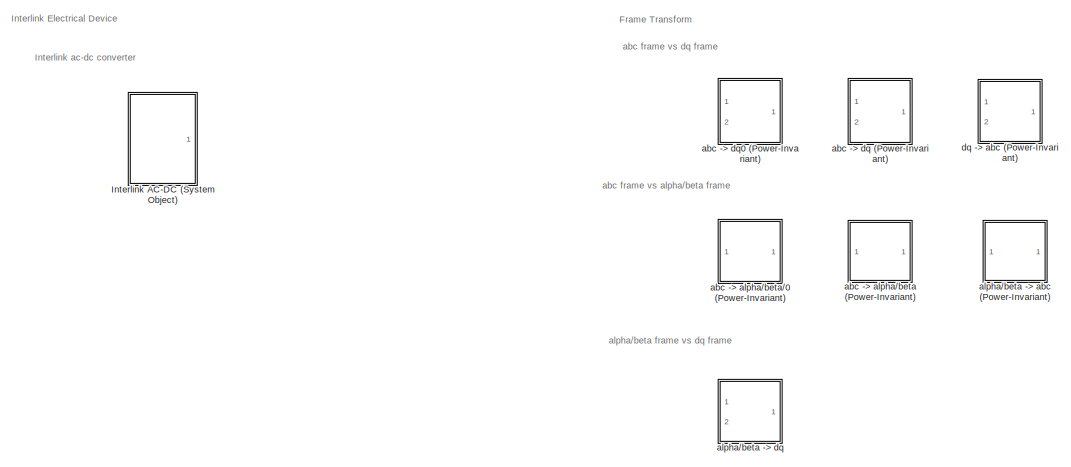
[diagram: root canvas - part 1/6, top center region]
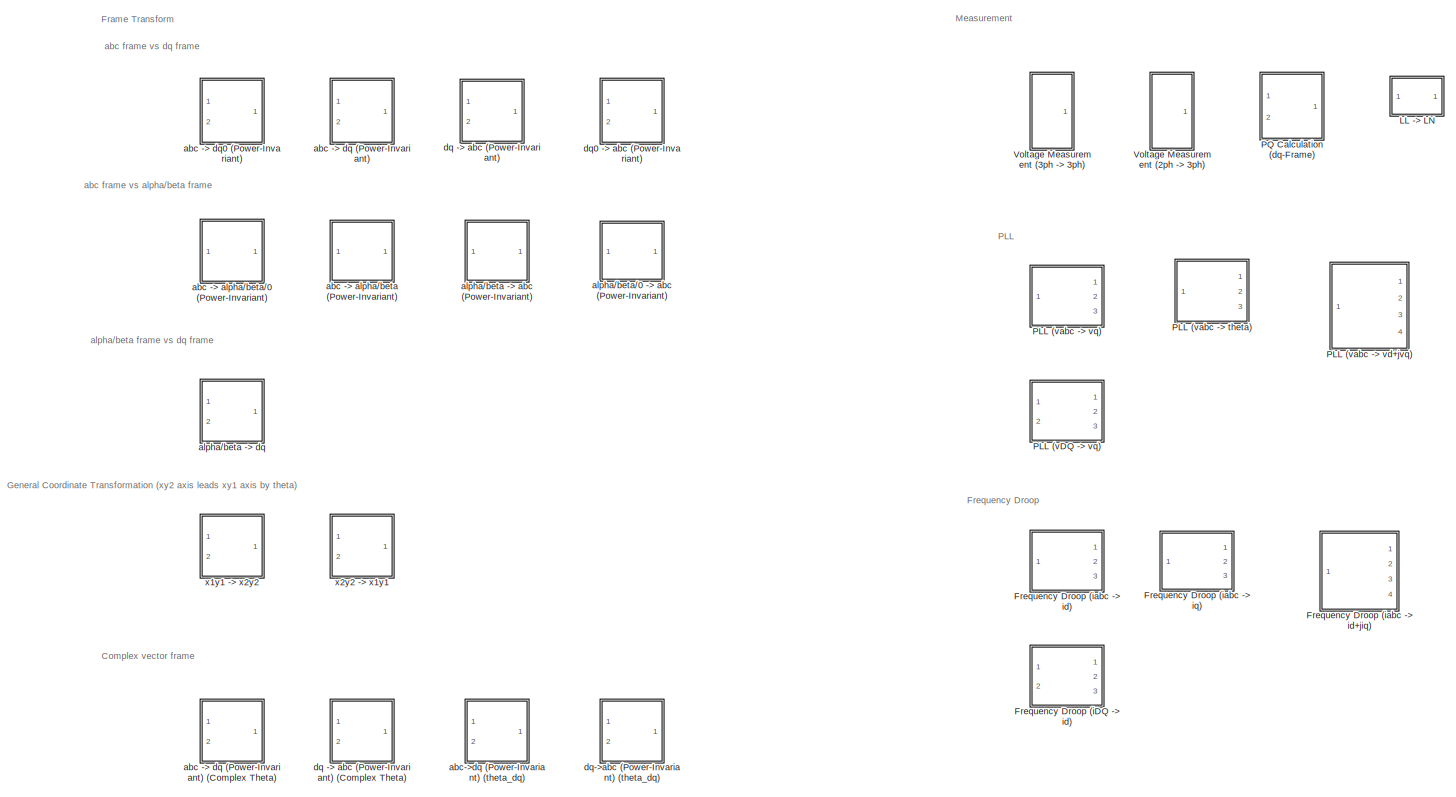
[diagram: root canvas - part 2/6, top right region]
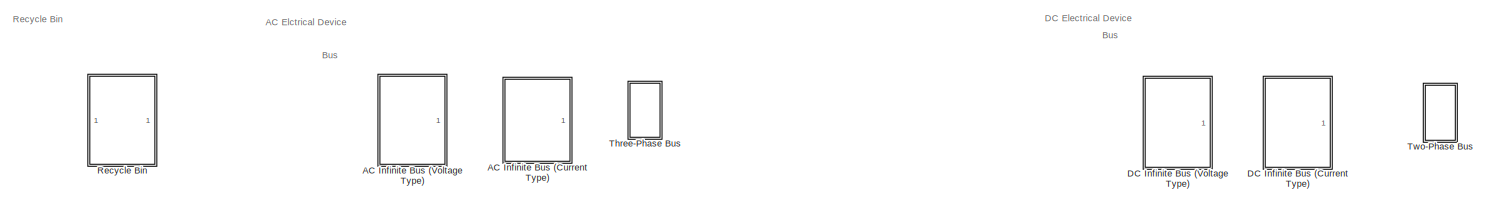
[diagram: root canvas - part 3/6, top left region]
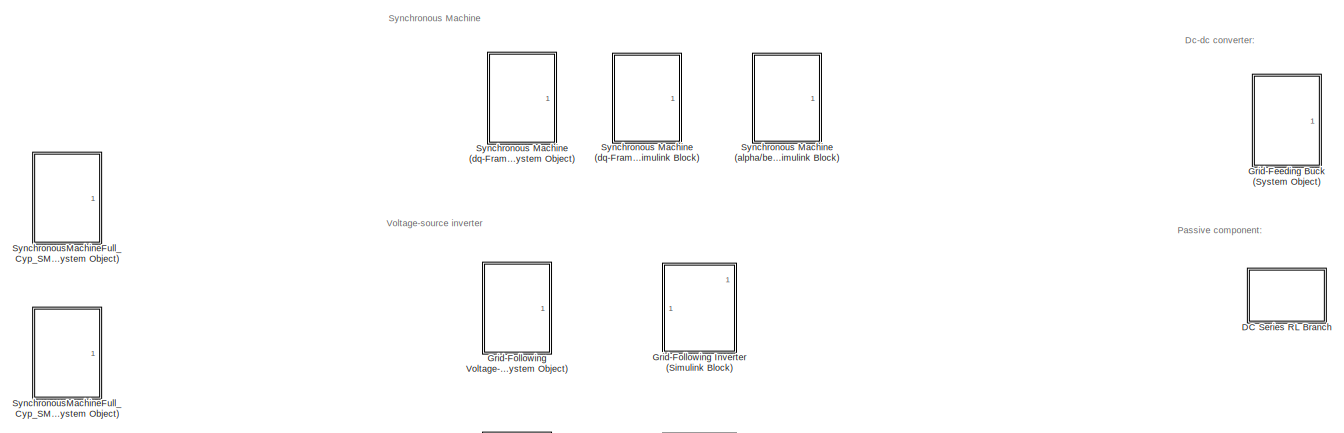
[diagram: root canvas - part 4/6, top left region]
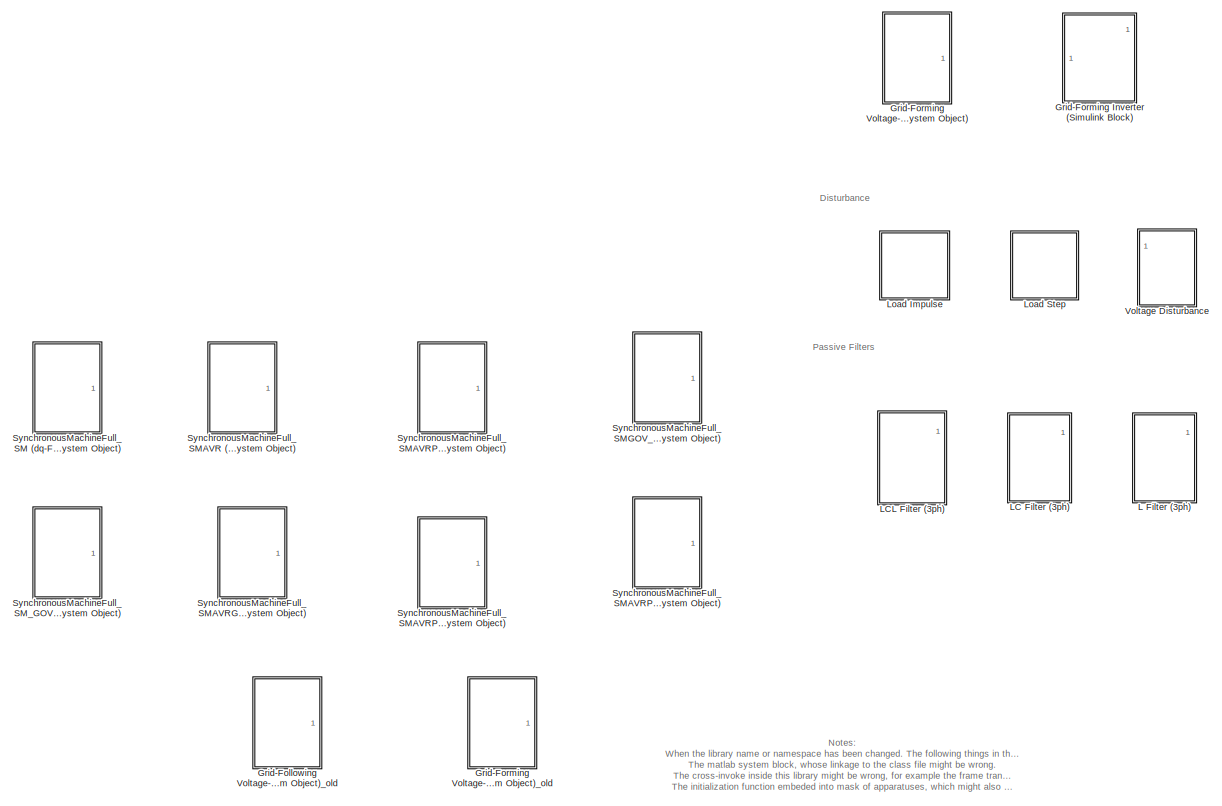
[diagram: root canvas - part 5/6, bottom left region]
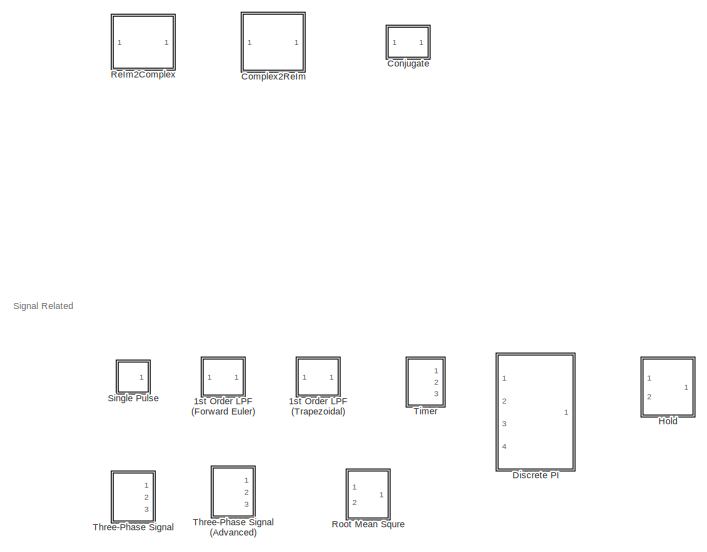
[diagram: root canvas - part 6/6, bottom right region]
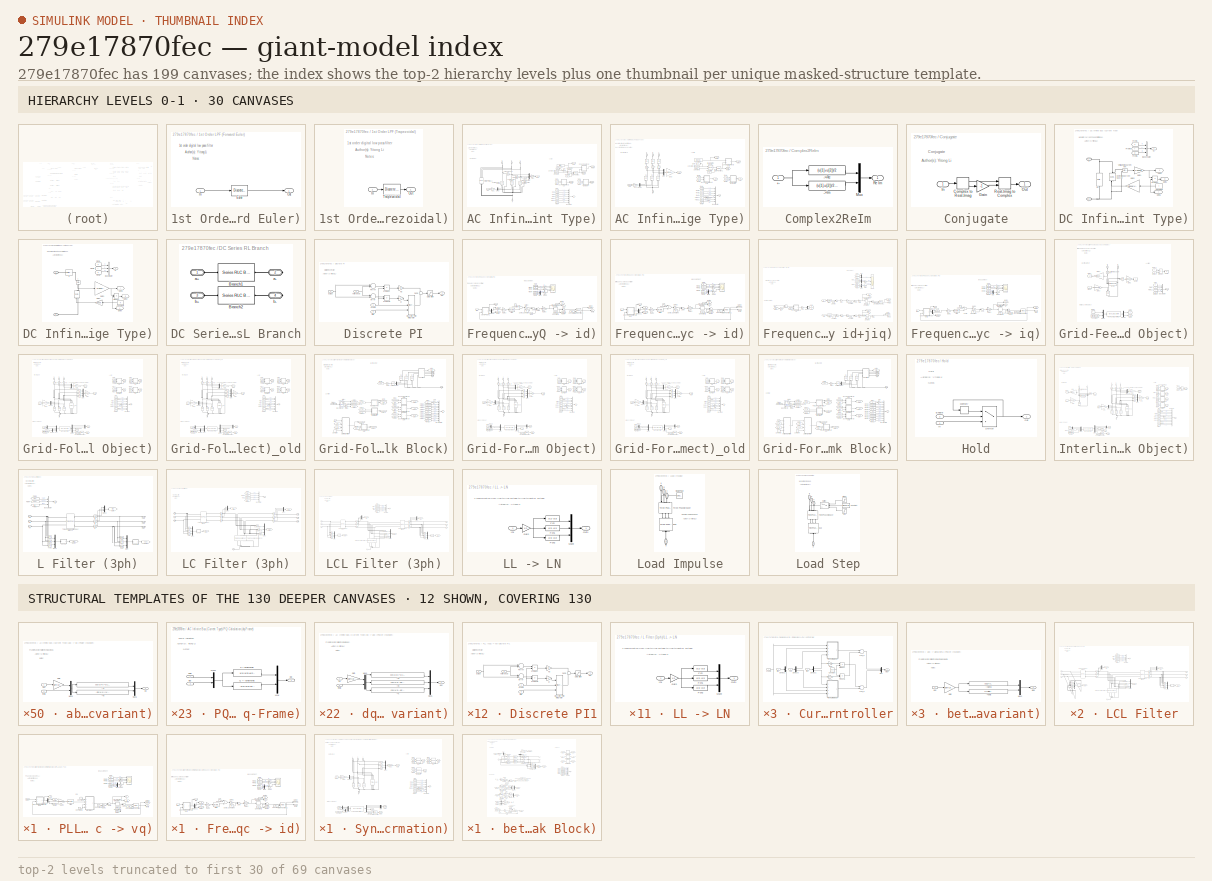
[diagram: thumbnail index - top-2 hierarchy levels (69 canvases (first 30 of 69 shown)) + 12 structural-template representatives of the remaining 130 canvases]
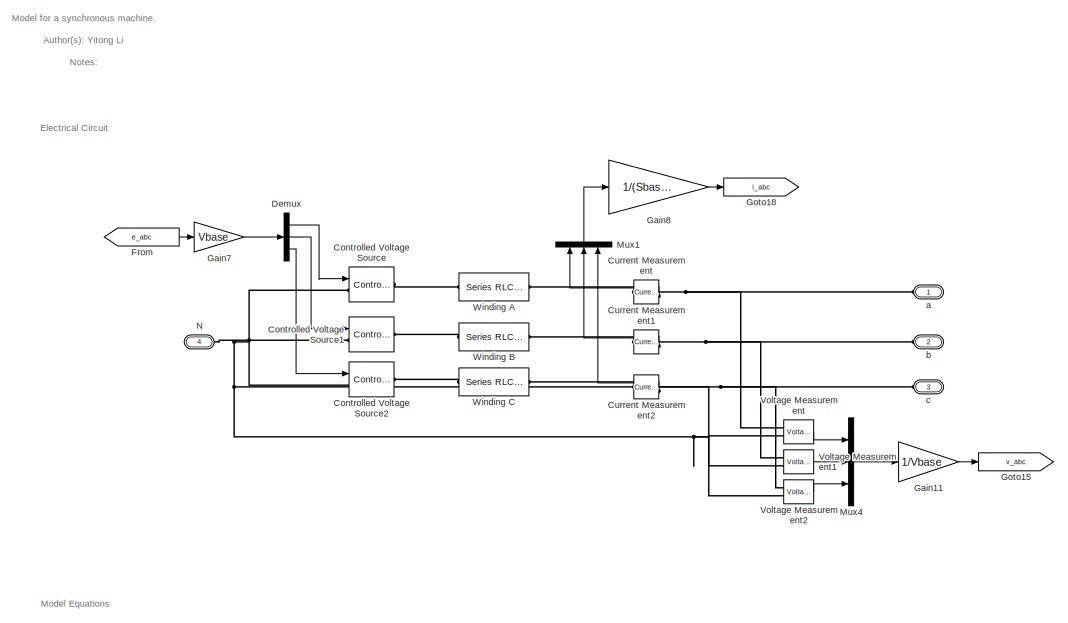
[diagram: Synchronous Machine (alpha/beta-Frame) (Simulink Block) - part 1/3, top center region]
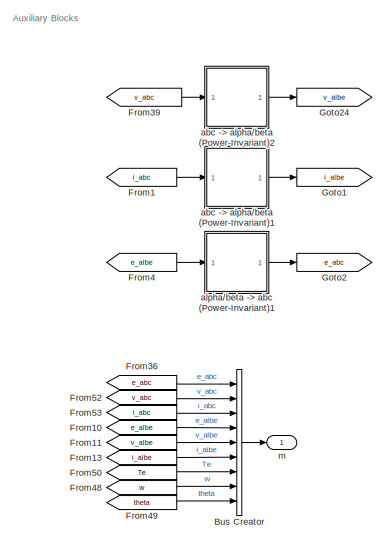
[diagram: Synchronous Machine (alpha/beta-Frame) (Simulink Block) - part 2/3, top right region]
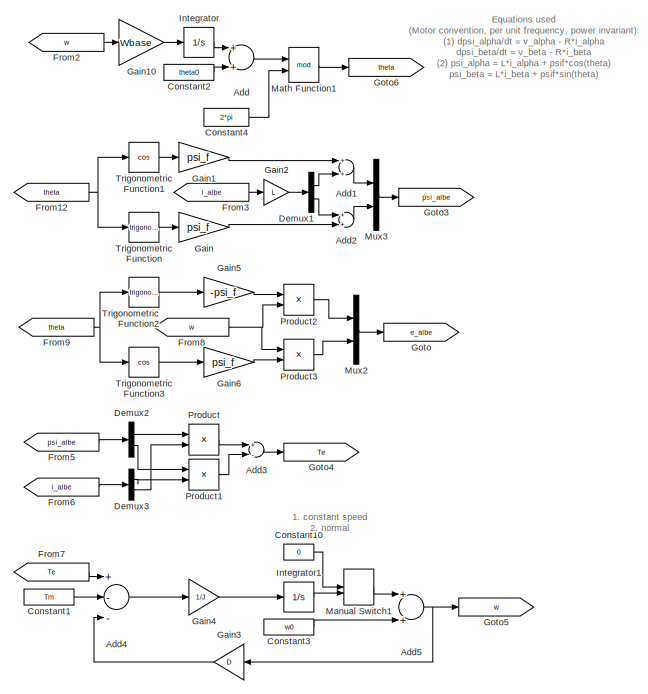
[diagram: Synchronous Machine (alpha/beta-Frame) (Simulink Block) - part 3/3, bottom left region]
MODEL slx_279e17870fec
KIND library
CONFIG AbsTol = auto
CONFIG FixedStep = auto
CONFIG MaxStep = auto
CONFIG MinStep = auto
CONFIG RelTol = 1e-3
CONFIG SampleTimeConstraint = Unconstrained
CONFIG Solver = ode45
CONFIG SolverMode = SingleTasking
CONFIG SolverName = ode45
CONFIG StartTime = 0.0
CONFIG StopTime = 10.0
BLOCK [SubSystem] 1st Order LPF (Forward Euler)
  Ports = [1, 1]
  RequestExecContextInheritance = off
BLOCK [DiscreteTransferFcn] 1st Order LPF (Forward Euler)/Euler
  Denominator = [1 ((wc*Ts)-1)]
  InputPortMap = u0
  Numerator = wc*Ts
  Ports = [1, 1]
  SampleTime = Ts
BLOCK [Inport] 1st Order LPF (Forward Euler)/In
  IconDisplay = Port number
BLOCK [Outport] 1st Order LPF (Forward Euler)/Out
  IconDisplay = Port number
BLOCK [SubSystem] 1st Order LPF (Trapezoidal)
  Ports = [1, 1]
  RequestExecContextInheritance = off
BLOCK [Inport] 1st Order LPF (Trapezoidal)/In
  IconDisplay = Port number
BLOCK [Outport] 1st Order LPF (Trapezoidal)/Out
  IconDisplay = Port number
BLOCK [DiscreteTransferFcn] 1st Order LPF (Trapezoidal)/Trapezoidal
  Denominator = [wc*Ts+2 wc*Ts-2]
  InputPortMap = u0
  Numerator = [wc*Ts wc*Ts]
  Ports = [1, 1]
  SampleTime = Ts
BLOCK [SubSystem] AC Infinite Bus (Current Type)
  Ports = [0, 1, 0, 0, 0, 4]
  RequestExecContextInheritance = off
BLOCK [BusCreator] AC Infinite Bus (Current Type)/Bus Creator
  DisplayOption = bar
  InheritFromInputs = on
  Inputs = 7
  Ports = [7, 1]
BLOCK [Constant] AC Infinite Bus (Current Type)/Constant
  Value = [id iq]
BLOCK [Constant] AC Infinite Bus (Current Type)/Constant1
  Value = w
BLOCK [Constant] AC Infinite Bus (Current Type)/Constant2
  Value = theta0
BLOCK [Constant] AC Infinite Bus (Current Type)/Constant3
  Value = 2*pi
BLOCK [Reference] AC Infinite Bus (Current Type)/Controlled Current Source  REF=powerlib/Electrical
Sources/Controlled Current Source
  Amplitude = 0
  Frequency = 0
  Initialize = on
  Measurements = None
  Phase = 0
  Ports = [1, 0, 0, 0, 0, 1, 1]
  SourceBlock = powerlib/Electrical\nSources/Controlled Current Source
  SourceType = Controlled Current Source
  Source_Type = AC
BLOCK [Reference] AC Infinite Bus (Current Type)/Controlled Current Source1  REF=powerlib/Electrical
Sources/Controlled Current Source
  Amplitude = 0
  Frequency = 0
  Initialize = on
  Measurements = None
  Phase = 0
  Ports = [1, 0, 0, 0, 0, 1, 1]
  SourceBlock = powerlib/Electrical\nSources/Controlled Current Source
  SourceType = Controlled Current Source
  Source_Type = AC
BLOCK [Reference] AC Infinite Bus (Current Type)/Controlled Current Source2  REF=powerlib/Electrical
Sources/Controlled Current Source
  Amplitude = 0
  Frequency = 0
  Initialize = on
  Measurements = None
  Phase = 0
  Ports = [1, 0, 0, 0, 0, 1, 1]
  SourceBlock = powerlib/Electrical\nSources/Controlled Current Source
  SourceType = Controlled Current Source
  Source_Type = AC
BLOCK [Demux] AC Infinite Bus (Current Type)/Demux
  DisplayOption = bar
  Outputs = 3
  Ports = [1, 3]
BLOCK [DiscreteIntegrator] AC Infinite Bus (Current Type)/Discrete-Time Integrator
  ICPrevOutput = DiscIntNeverNeededParam
  ICPrevScaledInput = DiscIntNeverNeededParam
  InitialConditionSetting = State (most efficient)
  InitialConditionSource = external
  IntegratorMethod = Integration: Trapezoidal
  Ports = [2, 1]
  SampleTime = -1
BLOCK [From] AC Infinite Bus (Current Type)/From
  GotoTag = i_abc
BLOCK [From] AC Infinite Bus (Current Type)/From1
  GotoTag = v_dq
BLOCK [From] AC Infinite Bus (Current Type)/From10
  GotoTag = theta
BLOCK [From] AC Infinite Bus (Current Type)/From11
  GotoTag = w
BLOCK [From] AC Infinite Bus (Current Type)/From2
  GotoTag = v_abc
BLOCK [From] AC Infinite Bus (Current Type)/From3
  GotoTag = theta
BLOCK [From] AC Infinite Bus (Current Type)/From4
  GotoTag = v_dq
BLOCK [From] AC Infinite Bus (Current Type)/From5
  GotoTag = i_dq
BLOCK [From] AC Infinite Bus (Current Type)/From6
  GotoTag = pq
BLOCK [From] AC Infinite Bus (Current Type)/From7
  GotoTag = i_abc
BLOCK [From] AC Infinite Bus (Current Type)/From8
  GotoTag = i_dq
BLOCK [From] AC Infinite Bus (Current Type)/From9
  GotoTag = v_abc
BLOCK [Gain] AC Infinite Bus (Current Type)/Gain
  Gain = Wbase
  OutDataTypeStr = Inherit: Inherit via internal rule
  ParamDataTypeStr = Inherit: Inherit via internal rule
  SaturateOnIntegerOverflow = off
BLOCK [Gain] AC Infinite Bus (Current Type)/Gain1
  Gain = Sbase/Vbase
  OutDataTypeStr = Inherit: Inherit via internal rule
  ParamDataTypeStr = Inherit: Inherit via internal rule
  SaturateOnIntegerOverflow = off
BLOCK [Gain] AC Infinite Bus (Current Type)/Gain3
  Gain = 1/Vbase
  OutDataTypeStr = Inherit: Inherit via internal rule
  ParamDataTypeStr = Inherit: Inherit via internal rule
  SaturateOnIntegerOverflow = off
BLOCK [Goto] AC Infinite Bus (Current Type)/Goto1
  GotoTag = i_dq
BLOCK [Goto] AC Infinite Bus (Current Type)/Goto2
  GotoTag = i_abc
BLOCK [Goto] AC Infinite Bus (Current Type)/Goto3
  GotoTag = w
BLOCK [Goto] AC Infinite Bus (Current Type)/Goto4
  GotoTag = theta
BLOCK [Goto] AC Infinite Bus (Current Type)/Goto5
  GotoTag = v_abc
BLOCK [Goto] AC Infinite Bus (Current Type)/Goto6
  GotoTag = v_dq
BLOCK [Goto] AC Infinite Bus (Current Type)/Goto7
  GotoTag = pq
BLOCK [Math] AC Infinite Bus (Current Type)/Math Function1
  Operator = mod
  Ports = [2, 1]
BLOCK [Mux] AC Infinite Bus (Current Type)/Mux
  DisplayOption = bar
  Inputs = 3
  Ports = [3, 1]
BLOCK [SubSystem] AC Infinite Bus (Current Type)/PQ Calculation (dq-Frame)
  AncestorBlock = SimplusGT/PQ Calculation\n(dq-Frame)
  Ports = [2, 1]
  RequestExecContextInheritance = off
BLOCK [Mux] AC Infinite Bus (Current Type)/PQ Calculation (dq-Frame)/Mux
  DisplayOption = bar
  Inputs = 2
  Ports = [2, 1]
BLOCK [Mux] AC Infinite Bus (Current Type)/PQ Calculation (dq-Frame)/Mux1
  DisplayOption = bar
  Inputs = 2
  Ports = [2, 1]
BLOCK [Fcn] AC Infinite Bus (Current Type)/PQ Calculation (dq-Frame)/P = vd*id+vq*iq
  Expr = u[1]*u[3]+u[2]*u[4]
BLOCK [Fcn] AC Infinite Bus (Current Type)/PQ Calculation (dq-Frame)/Q = -vd*iq+vq*id
  Expr = -u[1]*u[4]+u[2]*u[3]
BLOCK [Inport] AC Infinite Bus (Current Type)/PQ Calculation (dq-Frame)/idq
  IconDisplay = Port number
  Port = 2
BLOCK [Outport] AC Infinite Bus (Current Type)/PQ Calculation (dq-Frame)/pq
  IconDisplay = Port number
BLOCK [Inport] AC Infinite Bus (Current Type)/PQ Calculation (dq-Frame)/vdq
  IconDisplay = Port number
BLOCK [Reference] AC Infinite Bus (Current Type)/Three-Phase Parallel RLC Branch  REF=powerlib/Elements/Three-Phase
Parallel RLC Branch
  AttributesFormatString = \n
  BranchType = C
  Capacitance = 1e-9
  Inductance = 1e-3
  LConnTagsString = A|B|C
  Measurements = None
  Ports = [0, 0, 0, 0, 0, 3, 3]
  RConnTagsString = A|B|C
  Resistance = 1
  SourceBlock = powerlib/Elements/Three-Phase\nParallel RLC Branch
  SourceType = Three-Phase Parallel RLC Branch
BLOCK [Reference] AC Infinite Bus (Current Type)/Voltage Measurement  REF=powerlib/Measurements/Voltage Measurement
  OutputType = Complex
  PSBequivalent = 0
  PhasorSimulation = off
  Ports = [0, 1, 0, 0, 0, 2]
  SourceBlock = powerlib/Measurements/Voltage Measurement
  SourceType = Voltage Measurement
  UserDataPersistent = on
BLOCK [Reference] AC Infinite Bus (Current Type)/Voltage Measurement1  REF=powerlib/Measurements/Voltage Measurement
  OutputType = Complex
  PSBequivalent = 0
  PhasorSimulation = off
  Ports = [0, 1, 0, 0, 0, 2]
  SourceBlock = powerlib/Measurements/Voltage Measurement
  SourceType = Voltage Measurement
  UserDataPersistent = on
BLOCK [Reference] AC Infinite Bus (Current Type)/Voltage Measurement2  REF=powerlib/Measurements/Voltage Measurement
  OutputType = Complex
  PSBequivalent = 0
  PhasorSimulation = off
  Ports = [0, 1, 0, 0, 0, 2]
  SourceBlock = powerlib/Measurements/Voltage Measurement
  SourceType = Voltage Measurement
  UserDataPersistent = on
BLOCK [PMIOPort] AC Infinite Bus (Current Type)/a
  Side = Left
BLOCK [SubSystem] AC Infinite Bus (Current Type)/abc -> dq (Power-Invariant)
  AncestorBlock = SimplusGT/abc -> dq\n(Power-Invariant)
  Ports = [2, 1]
  RequestExecContextInheritance = off
BLOCK [Fcn] AC Infinite Bus (Current Type)/abc -> dq (Power-Invariant)/->d
  Expr = cos(u(4))*u(1) + cos(u(4)-2/3*pi)*u(2) + cos(u(4)-4/3*pi)*u(3)
BLOCK [Fcn] AC Infinite Bus (Current Type)/abc -> dq (Power-Invariant)/->q
  Expr = -sin(u(4))*u(1) - sin(u(4)-2/3*pi)*u(2) - sin(u(4)-4/3*pi)*u(3)
BLOCK [Gain] AC Infinite Bus (Current Type)/abc -> dq (Power-Invariant)/Gain
  Gain = sqrt(2/3)
  OutDataTypeStr = Inherit: Inherit via internal rule
  ParamDataTypeStr = Inherit: Inherit via internal rule
  SaturateOnIntegerOverflow = off
BLOCK [Mux] AC Infinite Bus (Current Type)/abc -> dq (Power-Invariant)/Mux5
  DisplayOption = bar
  Inputs = 2
  Ports = [2, 1]
BLOCK [Mux] AC Infinite Bus (Current Type)/abc -> dq (Power-Invariant)/Mux6
  DisplayOption = bar
  Inputs = 2
  Ports = [2, 1]
BLOCK [Inport] AC Infinite Bus (Current Type)/abc -> dq (Power-Invariant)/abc
  IconDisplay = Port number
BLOCK [Outport] AC Infinite Bus (Current Type)/abc -> dq (Power-Invariant)/dq
  IconDisplay = Port number
BLOCK [Inport] AC Infinite Bus (Current Type)/abc -> dq (Power-Invariant)/theta
  IconDisplay = Port number
  Port = 2
BLOCK [PMIOPort] AC Infinite Bus (Current Type)/b
  Port = 2
  Side = Left
BLOCK [PMIOPort] AC Infinite Bus (Current Type)/c
  Port = 3
  Side = Left
BLOCK [SubSystem] AC Infinite Bus (Current Type)/dq -> abc (Power-Invariant)
  AncestorBlock = SimplusGT/dq -> abc\n(Power-Invariant)
  Ports = [2, 1]
  RequestExecContextInheritance = off
BLOCK [Fcn] AC Infinite Bus (Current Type)/dq -> abc (Power-Invariant)/->a
  Expr = cos(u(3))*u(1) - sin(u(3))*u(2)
BLOCK [Fcn] AC Infinite Bus (Current Type)/dq -> abc (Power-Invariant)/->b
  Expr = cos(u(3)-2/3*pi)*u(1) - sin(u(3)-2/3*pi)*u(2)
BLOCK [Fcn] AC Infinite Bus (Current Type)/dq -> abc (Power-Invariant)/->c
  Expr = cos(u(3)-4/3*pi)*u(1) - sin(u(3)-4/3*pi)*u(2)
BLOCK [Gain] AC Infinite Bus (Current Type)/dq -> abc (Power-Invariant)/Gain
  Gain = sqrt(2/3)
  OutDataTypeStr = Inherit: Inherit via internal rule
  ParamDataTypeStr = Inherit: Inherit via internal rule
  SaturateOnIntegerOverflow = off
BLOCK [Mux] AC Infinite Bus (Current Type)/dq -> abc (Power-Invariant)/Mux5
  DisplayOption = bar
  Inputs = 2
  Ports = [2, 1]
BLOCK [Mux] AC Infinite Bus (Current Type)/dq -> abc (Power-Invariant)/Mux6
  DisplayOption = bar
  Inputs = 3
  Ports = [3, 1]
BLOCK [Outport] AC Infinite Bus (Current Type)/dq -> abc (Power-Invariant)/abc
  IconDisplay = Port number
BLOCK [Inport] AC Infinite Bus (Current Type)/dq -> abc (Power-Invariant)/dq
  IconDisplay = Port number
BLOCK [Inport] AC Infinite Bus (Current Type)/dq -> abc (Power-Invariant)/theta
  IconDisplay = Port number
  Port = 2
BLOCK [Outport] AC Infinite Bus (Current Type)/m
  IconDisplay = Port number
BLOCK [PMIOPort] AC Infinite Bus (Current Type)/n
  Port = 4
  Side = Left
BLOCK [SubSystem] AC Infinite Bus (Voltage Type)
  Ports = [0, 1, 0, 0, 0, 4]
  RequestExecContextInheritance = off
BLOCK [BusCreator] AC Infinite Bus (Voltage Type)/Bus Creator
  DisplayOption = bar
  InheritFromInputs = on
  Inputs = 7
  Ports = [7, 1]
BLOCK [Constant] AC Infinite Bus (Voltage Type)/Constant
  Value = [vd vq]
BLOCK [Constant] AC Infinite Bus (Voltage Type)/Constant1
  Value = w
BLOCK [Constant] AC Infinite Bus (Voltage Type)/Constant2
  Value = theta0
BLOCK [Constant] AC Infinite Bus (Voltage Type)/Constant3
  Value = 2*pi
BLOCK [Demux] AC Infinite Bus (Voltage Type)/Demux
  DisplayOption = bar
  Outputs = 3
  Ports = [1, 3]
BLOCK [DiscreteIntegrator] AC Infinite Bus (Voltage Type)/Discrete-Time Integrator
  ICPrevOutput = DiscIntNeverNeededParam
  ICPrevScaledInput = DiscIntNeverNeededParam
  InitialConditionSetting = State (most efficient)
  InitialConditionSource = external
  IntegratorMethod = Integration: Trapezoidal
  Ports = [2, 1]
  SampleTime = -1
BLOCK [From] AC Infinite Bus (Voltage Type)/From
  GotoTag = v_abc
BLOCK [From] AC Infinite Bus (Voltage Type)/From1
  GotoTag = v_dq
BLOCK [From] AC Infinite Bus (Voltage Type)/From10
  GotoTag = theta
BLOCK [From] AC Infinite Bus (Voltage Type)/From11
  GotoTag = w
BLOCK [From] AC Infinite Bus (Voltage Type)/From2
  GotoTag = i_abc
BLOCK [From] AC Infinite Bus (Voltage Type)/From3
  GotoTag = theta
BLOCK [From] AC Infinite Bus (Voltage Type)/From4
  GotoTag = v_dq
BLOCK [From] AC Infinite Bus (Voltage Type)/From5
  GotoTag = i_dq
BLOCK [From] AC Infinite Bus (Voltage Type)/From6
  GotoTag = pq
BLOCK [From] AC Infinite Bus (Voltage Type)/From7
  GotoTag = i_abc
BLOCK [From] AC Infinite Bus (Voltage Type)/From8
  GotoTag = i_dq
BLOCK [From] AC Infinite Bus (Voltage Type)/From9
  GotoTag = v_abc
BLOCK [Gain] AC Infinite Bus (Voltage Type)/Gain1
  Gain = Vbase
  OutDataTypeStr = Inherit: Inherit via internal rule
  ParamDataTypeStr = Inherit: Inherit via internal rule
  SaturateOnIntegerOverflow = off
BLOCK [Gain] AC Infinite Bus (Voltage Type)/Gain2
  Gain = 1/Wbase
  OutDataTypeStr = Inherit: Inherit via internal rule
  ParamDataTypeStr = Inherit: Inherit via internal rule
  SaturateOnIntegerOverflow = off
BLOCK [Gain] AC Infinite Bus (Voltage Type)/Gain3
  Gain = 1/(Sbase/Vbase)
  OutDataTypeStr = Inherit: Inherit via internal rule
  ParamDataTypeStr = Inherit: Inherit via internal rule
  SaturateOnIntegerOverflow = off
BLOCK [Goto] AC Infinite Bus (Voltage Type)/Goto1
  GotoTag = v_dq
BLOCK [Goto] AC Infinite Bus (Voltage Type)/Goto2
  GotoTag = v_abc
BLOCK [Goto] AC Infinite Bus (Voltage Type)/Goto3
  GotoTag = w
BLOCK [Goto] AC Infinite Bus (Voltage Type)/Goto4
  GotoTag = theta
BLOCK [Goto] AC Infinite Bus (Voltage Type)/Goto5
  GotoTag = i_abc
BLOCK [Goto] AC Infinite Bus (Voltage Type)/Goto6
  GotoTag = i_dq
BLOCK [Goto] AC Infinite Bus (Voltage Type)/Goto7
  GotoTag = pq
BLOCK [Math] AC Infinite Bus (Voltage Type)/Math Function1
  Operator = mod
  Ports = [2, 1]
BLOCK [Mux] AC Infinite Bus (Voltage Type)/Mux
  DisplayOption = bar
  Inputs = 3
  Ports = [3, 1]
BLOCK [SubSystem] AC Infinite Bus (Voltage Type)/PQ Calculation (dq-Frame)1
  AncestorBlock = SimplusGT/PQ Calculation\n(dq-Frame)
  Ports = [2, 1]
  RequestExecContextInheritance = off
BLOCK [Mux] AC Infinite Bus (Voltage Type)/PQ Calculation (dq-Frame)1/Mux
  DisplayOption = bar
  Inputs = 2
  Ports = [2, 1]
BLOCK [Mux] AC Infinite Bus (Voltage Type)/PQ Calculation (dq-Frame)1/Mux1
  DisplayOption = bar
  Inputs = 2
  Ports = [2, 1]
BLOCK [Fcn] AC Infinite Bus (Voltage Type)/PQ Calculation (dq-Frame)1/P = vd*id+vq*iq
  Expr = u[1]*u[3]+u[2]*u[4]
BLOCK [Fcn] AC Infinite Bus (Voltage Type)/PQ Calculation (dq-Frame)1/Q = -vd*iq+vq*id
  Expr = -u[1]*u[4]+u[2]*u[3]
BLOCK [Inport] AC Infinite Bus (Voltage Type)/PQ Calculation (dq-Frame)1/idq
  IconDisplay = Port number
  Port = 2
BLOCK [Outport] AC Infinite Bus (Voltage Type)/PQ Calculation (dq-Frame)1/pq
  IconDisplay = Port number
BLOCK [Inport] AC Infinite Bus (Voltage Type)/PQ Calculation (dq-Frame)1/vdq
  IconDisplay = Port number
BLOCK [Reference] AC Infinite Bus (Voltage Type)/Ra  REF=powerlib/Elements/Series RLC Branch
  BranchType = R
  Capacitance = 1e-6
  Inductance = 1e-3
  InitialCurrent = 0
  InitialVoltage = 0
  LConnTagsString = __new0
  Measurements = None
  Ports = [0, 0, 0, 0, 0, 1, 1]
  RConnTagsString = __new0
  Resistance = R
  SetiL0 = off
  Setx0 = off
  SourceBlock = powerlib/Elements/Series RLC Branch
  SourceType = Series RLC Branch
BLOCK [Reference] AC Infinite Bus (Voltage Type)/Rb  REF=powerlib/Elements/Series RLC Branch
  BranchType = R
  Capacitance = 1e-6
  Inductance = 1e-3
  InitialCurrent = 0
  InitialVoltage = 0
  LConnTagsString = __new0
  Measurements = None
  Ports = [0, 0, 0, 0, 0, 1, 1]
  RConnTagsString = __new0
  Resistance = R
  SetiL0 = off
  Setx0 = off
  SourceBlock = powerlib/Elements/Series RLC Branch
  SourceType = Series RLC Branch
BLOCK [Reference] AC Infinite Bus (Voltage Type)/Rc  REF=powerlib/Elements/Series RLC Branch
  BranchType = R
  Capacitance = 1e-6
  Inductance = 1e-3
  InitialCurrent = 0
  InitialVoltage = 0
  LConnTagsString = __new0
  Measurements = None
  Ports = [0, 0, 0, 0, 0, 1, 1]
  RConnTagsString = __new0
  Resistance = R
  SetiL0 = off
  Setx0 = off
  SourceBlock = powerlib/Elements/Series RLC Branch
  SourceType = Series RLC Branch
BLOCK [PMIOPort] AC Infinite Bus (Voltage Type)/a
  Side = Left
BLOCK [SubSystem] AC Infinite Bus (Voltage Type)/abc -> dq (Power-Invariant)1
  AncestorBlock = SimplusGT/abc -> dq\n(Power-Invariant)
  Ports = [2, 1]
  RequestExecContextInheritance = off
BLOCK [Fcn] AC Infinite Bus (Voltage Type)/abc -> dq (Power-Invariant)1/->d
  Expr = cos(u(4))*u(1) + cos(u(4)-2/3*pi)*u(2) + cos(u(4)-4/3*pi)*u(3)
BLOCK [Fcn] AC Infinite Bus (Voltage Type)/abc -> dq (Power-Invariant)1/->q
  Expr = -sin(u(4))*u(1) - sin(u(4)-2/3*pi)*u(2) - sin(u(4)-4/3*pi)*u(3)
BLOCK [Gain] AC Infinite Bus (Voltage Type)/abc -> dq (Power-Invariant)1/Gain
  Gain = sqrt(2/3)
  OutDataTypeStr = Inherit: Inherit via internal rule
  ParamDataTypeStr = Inherit: Inherit via internal rule
  SaturateOnIntegerOverflow = off
BLOCK [Mux] AC Infinite Bus (Voltage Type)/abc -> dq (Power-Invariant)1/Mux5
  DisplayOption = bar
  Inputs = 2
  Ports = [2, 1]
BLOCK [Mux] AC Infinite Bus (Voltage Type)/abc -> dq (Power-Invariant)1/Mux6
  DisplayOption = bar
  Inputs = 2
  Ports = [2, 1]
BLOCK [Inport] AC Infinite Bus (Voltage Type)/abc -> dq (Power-Invariant)1/abc
  IconDisplay = Port number
BLOCK [Outport] AC Infinite Bus (Voltage Type)/abc -> dq (Power-Invariant)1/dq
  IconDisplay = Port number
BLOCK [Inport] AC Infinite Bus (Voltage Type)/abc -> dq (Power-Invariant)1/theta
  IconDisplay = Port number
  Port = 2
BLOCK [PMIOPort] AC Infinite Bus (Voltage Type)/b
  Port = 2
  Side = Left
BLOCK [PMIOPort] AC Infinite Bus (Voltage Type)/c
  Port = 3
  Side = Left
BLOCK [SubSystem] AC Infinite Bus (Voltage Type)/dq -> abc (Power-Invariant)1
  AncestorBlock = SimplusGT/dq -> abc\n(Power-Invariant)
  Ports = [2, 1]
  RequestExecContextInheritance = off
BLOCK [Fcn] AC Infinite Bus (Voltage Type)/dq -> abc (Power-Invariant)1/->a
  Expr = cos(u(3))*u(1) - sin(u(3))*u(2)
BLOCK [Fcn] AC Infinite Bus (Voltage Type)/dq -> abc (Power-Invariant)1/->b
  Expr = cos(u(3)-2/3*pi)*u(1) - sin(u(3)-2/3*pi)*u(2)
BLOCK [Fcn] AC Infinite Bus (Voltage Type)/dq -> abc (Power-Invariant)1/->c
  Expr = cos(u(3)-4/3*pi)*u(1) - sin(u(3)-4/3*pi)*u(2)
BLOCK [Gain] AC Infinite Bus (Voltage Type)/dq -> abc (Power-Invariant)1/Gain
  Gain = sqrt(2/3)
  OutDataTypeStr = Inherit: Inherit via internal rule
  ParamDataTypeStr = Inherit: Inherit via internal rule
  SaturateOnIntegerOverflow = off
BLOCK [Mux] AC Infinite Bus (Voltage Type)/dq -> abc (Power-Invariant)1/Mux5
  DisplayOption = bar
  Inputs = 2
  Ports = [2, 1]
BLOCK [Mux] AC Infinite Bus (Voltage Type)/dq -> abc (Power-Invariant)1/Mux6
  DisplayOption = bar
  Inputs = 3
  Ports = [3, 1]
BLOCK [Outport] AC Infinite Bus (Voltage Type)/dq -> abc (Power-Invariant)1/abc
  IconDisplay = Port number
BLOCK [Inport] AC Infinite Bus (Voltage Type)/dq -> abc (Power-Invariant)1/dq
  IconDisplay = Port number
BLOCK [Inport] AC Infinite Bus (Voltage Type)/dq -> abc (Power-Invariant)1/theta
  IconDisplay = Port number
  Port = 2
BLOCK [Reference] AC Infinite Bus (Voltage Type)/ia  REF=powerlib/Measurements/Current Measurement
  OutputType = Complex
  PSBequivalent = 0
  PhasorSimulation = off
  Ports = [0, 1, 0, 0, 0, 1, 1]
  SourceBlock = powerlib/Measurements/Current Measurement
  SourceType = Current Measurement
  UserDataPersistent = on
BLOCK [Reference] AC Infinite Bus (Voltage Type)/ib  REF=powerlib/Measurements/Current Measurement
  OutputType = Complex
  PSBequivalent = 0
  PhasorSimulation = off
  Ports = [0, 1, 0, 0, 0, 1, 1]
  SourceBlock = powerlib/Measurements/Current Measurement
  SourceType = Current Measurement
  UserDataPersistent = on
BLOCK [Reference] AC Infinite Bus (Voltage Type)/ic  REF=powerlib/Measurements/Current Measurement
  OutputType = Complex
  PSBequivalent = 0
  PhasorSimulation = off
  Ports = [0, 1, 0, 0, 0, 1, 1]
  SourceBlock = powerlib/Measurements/Current Measurement
  SourceType = Current Measurement
  UserDataPersistent = on
BLOCK [Outport] AC Infinite Bus (Voltage Type)/m
  IconDisplay = Port number
BLOCK [PMIOPort] AC Infinite Bus (Voltage Type)/n
  Port = 4
  Side = Left
BLOCK [Reference] AC Infinite Bus (Voltage Type)/va  REF=powerlib/Electrical
Sources/Controlled Voltage Source
  Amplitude = 0
  Frequency = 0
  Initialize = on
  Measurements = None
  Phase = 0
  Ports = [1, 0, 0, 0, 0, 1, 1]
  SourceBlock = powerlib/Electrical\nSources/Controlled Voltage Source
  SourceType = Controlled Voltage Source
  Source_Type = AC
BLOCK [Reference] AC Infinite Bus (Voltage Type)/vb  REF=powerlib/Electrical
Sources/Controlled Voltage Source
  Amplitude = 0
  Frequency = 0
  Initialize = on
  Measurements = None
  Phase = 0
  Ports = [1, 0, 0, 0, 0, 1, 1]
  SourceBlock = powerlib/Electrical\nSources/Controlled Voltage Source
  SourceType = Controlled Voltage Source
  Source_Type = AC
BLOCK [Reference] AC Infinite Bus (Voltage Type)/vc  REF=powerlib/Electrical
Sources/Controlled Voltage Source
  Amplitude = 0
  Frequency = 0
  Initialize = on
  Measurements = None
  Phase = 0
  Ports = [1, 0, 0, 0, 0, 1, 1]
  SourceBlock = powerlib/Electrical\nSources/Controlled Voltage Source
  SourceType = Controlled Voltage Source
  Source_Type = AC
BLOCK [SubSystem] Complex2ReIm
  Ports = [1, 1]
  RequestExecContextInheritance = off
BLOCK [Inport] Complex2ReIm/+-
  IconDisplay = Port number
BLOCK [Fcn] Complex2ReIm/->Im
  Expr = (u[1]-u[2])/2/1i
BLOCK [Fcn] Complex2ReIm/->Re
  Expr = (u[1]+u[2])/2
BLOCK [Mux] Complex2ReIm/Mux
  DisplayOption = bar
  Inputs = 2
  Ports = [2, 1]
BLOCK [Outport] Complex2ReIm/Re Im
  IconDisplay = Port number
BLOCK [SubSystem] Conjugate
  Ports = [1, 1]
  RequestExecContextInheritance = off
BLOCK [ComplexToRealImag] Conjugate/Complex to Real-Imag
  Ports = [1, 2]
BLOCK [Gain] Conjugate/Gain
  Gain = -1
  OutDataTypeStr = Inherit: Inherit via internal rule
  ParamDataTypeStr = Inherit: Inherit via internal rule
  SaturateOnIntegerOverflow = off
BLOCK [Inport] Conjugate/In
  IconDisplay = Port number
BLOCK [Outport] Conjugate/Out
  IconDisplay = Port number
BLOCK [RealImagToComplex] Conjugate/Real-Imag to Complex
  Ports = [2, 1]
BLOCK [SubSystem] DC Infinite Bus (Current Type)
  Ports = [0, 1, 0, 0, 0, 2]
  RequestExecContextInheritance = off
BLOCK [PMIOPort] DC Infinite Bus (Current Type)/+
  Side = Left
BLOCK [PMIOPort] DC Infinite Bus (Current Type)/-
  Port = 2
  Side = Left
BLOCK [BusCreator] DC Infinite Bus (Current Type)/Bus Creator
  DisplayOption = bar
  InheritFromInputs = on
  Inputs = 3
  Ports = [3, 1]
BLOCK [Constant] DC Infinite Bus (Current Type)/Constant4
  Value = i
BLOCK [Reference] DC Infinite Bus (Current Type)/Controlled Current Source  REF=powerlib/Electrical
Sources/Controlled Current Source
  Amplitude = 0
  Frequency = 0
  Initialize = on
  Measurements = None
  Phase = 0
  Ports = [1, 0, 0, 0, 0, 1, 1]
  SourceBlock = powerlib/Electrical\nSources/Controlled Current Source
  SourceType = Controlled Current Source
  Source_Type = AC
BLOCK [From] DC Infinite Bus (Current Type)/From1
  GotoTag = v
BLOCK [From] DC Infinite Bus (Current Type)/From6
  GotoTag = p
BLOCK [From] DC Infinite Bus (Current Type)/From8
  GotoTag = i
BLOCK [Gain] DC Infinite Bus (Current Type)/Gain1
  Gain = 1/Vbase
  OutDataTypeStr = Inherit: Inherit via internal rule
  ParamDataTypeStr = Inherit: Inherit via internal rule
  SaturateOnIntegerOverflow = off
BLOCK [Gain] DC Infinite Bus (Current Type)/Gain3
  Gain = Sbase/Vbase
  OutDataTypeStr = Inherit: Inherit via internal rule
  ParamDataTypeStr = Inherit: Inherit via internal rule
  SaturateOnIntegerOverflow = off
BLOCK [Goto] DC Infinite Bus (Current Type)/Goto1
  GotoTag = p
BLOCK [Goto] DC Infinite Bus (Current Type)/Goto5
  GotoTag = v
BLOCK [Goto] DC Infinite Bus (Current Type)/Goto6
  GotoTag = i
BLOCK [Product] DC Infinite Bus (Current Type)/Product
  InputSameDT = off
  OutDataTypeStr = Inherit: Inherit via internal rule
  Ports = [2, 1]
  RndMeth = Floor
  SaturateOnIntegerOverflow = off
BLOCK [Reference] DC Infinite Bus (Current Type)/RC  REF=powerlib/Elements/Series RLC Branch
  BranchType = RC
  Capacitance = C/(2*pi*50)*Sbase/Vbase^2
  Inductance = 1e-3
  InitialCurrent = 0
  InitialVoltage = 0
  LConnTagsString = __new0
  Measurements = None
  Ports = [0, 0, 0, 0, 0, 1, 1]
  RConnTagsString = __new0
  Resistance = R*V^2/Sbase
  SetiL0 = off
  Setx0 = off
  SourceBlock = powerlib/Elements/Series RLC Branch
  SourceType = Series RLC Branch
BLOCK [Reference] DC Infinite Bus (Current Type)/Voltage Measurement  REF=powerlib/Measurements/Voltage Measurement
  OutputType = Complex
  PSBequivalent = 0
  PhasorSimulation = off
  Ports = [0, 1, 0, 0, 0, 2]
  SourceBlock = powerlib/Measurements/Voltage Measurement
  SourceType = Voltage Measurement
  UserDataPersistent = on
BLOCK [Outport] DC Infinite Bus (Current Type)/m
  IconDisplay = Port number
BLOCK [SubSystem] DC Infinite Bus (Voltage Type)
  Ports = [0, 1, 0, 0, 0, 2]
  RequestExecContextInheritance = off
BLOCK [PMIOPort] DC Infinite Bus (Voltage Type)/+
  Side = Left
BLOCK [PMIOPort] DC Infinite Bus (Voltage Type)/-
  Port = 2
  Side = Left
BLOCK [BusCreator] DC Infinite Bus (Voltage Type)/Bus Creator
  DisplayOption = bar
  InheritFromInputs = on
  Inputs = 3
  Ports = [3, 1]
BLOCK [Constant] DC Infinite Bus (Voltage Type)/Constant4
  Value = v
BLOCK [From] DC Infinite Bus (Voltage Type)/From1
  GotoTag = v
BLOCK [From] DC Infinite Bus (Voltage Type)/From6
  GotoTag = p
BLOCK [From] DC Infinite Bus (Voltage Type)/From8
  GotoTag = i
BLOCK [Gain] DC Infinite Bus (Voltage Type)/Gain1
  Gain = Vbase
  OutDataTypeStr = Inherit: Inherit via internal rule
  ParamDataTypeStr = Inherit: Inherit via internal rule
  SaturateOnIntegerOverflow = off
BLOCK [Gain] DC Infinite Bus (Voltage Type)/Gain3
  Gain = 1/(Sbase/Vbase)
  OutDataTypeStr = Inherit: Inherit via internal rule
  ParamDataTypeStr = Inherit: Inherit via internal rule
  SaturateOnIntegerOverflow = off
BLOCK [Goto] DC Infinite Bus (Voltage Type)/Goto1
  GotoTag = p
BLOCK [Goto] DC Infinite Bus (Voltage Type)/Goto5
  GotoTag = i
BLOCK [Goto] DC Infinite Bus (Voltage Type)/Goto6
  GotoTag = v
BLOCK [Product] DC Infinite Bus (Voltage Type)/Product
  InputSameDT = off
  OutDataTypeStr = Inherit: Inherit via internal rule
  Ports = [2, 1]
  RndMeth = Floor
  SaturateOnIntegerOverflow = off
BLOCK [Reference] DC Infinite Bus (Voltage Type)/R  REF=powerlib/Elements/Series RLC Branch
  BranchType = R
  Capacitance = 1e-6
  Inductance = 1e-3
  InitialCurrent = 0
  InitialVoltage = 0
  LConnTagsString = __new0
  Measurements = None
  Ports = [0, 0, 0, 0, 0, 1, 1]
  RConnTagsString = __new0
  Resistance = R*Vbase^2/Sbase
  SetiL0 = off
  Setx0 = off
  SourceBlock = powerlib/Elements/Series RLC Branch
  SourceType = Series RLC Branch
BLOCK [Reference] DC Infinite Bus (Voltage Type)/i  REF=powerlib/Measurements/Current Measurement
  OutputType = Complex
  PSBequivalent = 0
  PhasorSimulation = off
  Ports = [0, 1, 0, 0, 0, 1, 1]
  SourceBlock = powerlib/Measurements/Current Measurement
  SourceType = Current Measurement
  UserDataPersistent = on
BLOCK [Outport] DC Infinite Bus (Voltage Type)/m
  IconDisplay = Port number
BLOCK [Reference] DC Infinite Bus (Voltage Type)/v  REF=powerlib/Electrical
Sources/Controlled Voltage Source
  Amplitude = 0
  Frequency = 0
  Initialize = on
  Measurements = None
  Phase = 0
  Ports = [1, 0, 0, 0, 0, 1, 1]
  SourceBlock = powerlib/Electrical\nSources/Controlled Voltage Source
  SourceType = Controlled Voltage Source
  Source_Type = AC
BLOCK [SubSystem] DC Series RL Branch
  Ports = [0, 0, 0, 0, 0, 2, 2]
  RequestExecContextInheritance = off
BLOCK [Reference] DC Series RL Branch/Branch1  REF=powerlib/Elements/Series RLC Branch
  BranchType = RL
  Capacitance = 1e-6
  Inductance = Inductance/2
  InitialCurrent = 0
  InitialVoltage = 0
  LConnTagsString = __new0
  Measurements = None
  Ports = [0, 0, 0, 0, 0, 1, 1]
  RConnTagsString = __new0
  Resistance = Resistance/2
  SetiL0 = off
  Setx0 = off
  SourceBlock = powerlib/Elements/Series RLC Branch
  SourceType = Series RLC Branch
BLOCK [Reference] DC Series RL Branch/Branch2  REF=powerlib/Elements/Series RLC Branch
  BranchType = RL
  Capacitance = 1e-6
  Inductance = Inductance/2
  InitialCurrent = 0
  InitialVoltage = 0
  LConnTagsString = __new0
  Measurements = None
  Ports = [0, 0, 0, 0, 0, 1, 1]
  RConnTagsString = __new0
  Resistance = Resistance/2
  SetiL0 = off
  Setx0 = off
  SourceBlock = powerlib/Elements/Series RLC Branch
  SourceType = Series RLC Branch
BLOCK [PMIOPort] DC Series RL Branch/a+
  Side = Left
BLOCK [PMIOPort] DC Series RL Branch/a-
  Port = 2
  Side = Right
BLOCK [PMIOPort] DC Series RL Branch/b+
  Port = 3
  Side = Left
BLOCK [PMIOPort] DC Series RL Branch/b-
  Port = 4
  Side = Right
BLOCK [SubSystem] Discrete PI
  Ports = [4, 1]
  RequestExecContextInheritance = off
BLOCK [DiscreteIntegrator] Discrete PI/Discrete-Time Integrator
  ExternalReset = rising
  ICPrevOutput = DiscIntNeverNeededParam
  ICPrevScaledInput = DiscIntNeverNeededParam
  InitialCondition = initial
  InitialConditionSource = external
  LimitOutput = on
  LowerSaturationLimit = xmin
  Ports = [3, 1]
  SampleTime = Ts
  UpperSaturationLimit = xmax
  gainval = 1
BLOCK [Sum] Discrete PI/Ierror
  InputSameDT = off
  Inputs = +-
  OutDataTypeStr = Inherit: Inherit via internal rule
  Ports = [2, 1]
  SaturateOnIntegerOverflow = off
BLOCK [Gain] Discrete PI/Ki
  Gain = Ki
BLOCK [Gain] Discrete PI/Kp
  Gain = Kp
BLOCK [Outport] Discrete PI/Out
  IconDisplay = Port number
BLOCK [Sum] Discrete PI/Perror
  InputSameDT = off
  Inputs = -+
  OutDataTypeStr = Inherit: Inherit via internal rule
  Ports = [2, 1]
  SaturateOnIntegerOverflow = off
BLOCK [Product] Discrete PI/Product
  InputSameDT = off
  OutDataTypeStr = Inherit: Inherit via internal rule
  Ports = [2, 1]
  SaturateOnIntegerOverflow = off
BLOCK [Product] Discrete PI/Product1
  InputSameDT = off
  OutDataTypeStr = Inherit: Inherit via internal rule
  Ports = [2, 1]
  SaturateOnIntegerOverflow = off
BLOCK [Saturate] Discrete PI/Saturation
  InputPortMap = u0
  LowerLimit = xmin
  Ports = [1, 1]
  UpperLimit = xmax
BLOCK [Sum] Discrete PI/Sum1
  IconShape = round
  InputSameDT = off
  OutDataTypeStr = Inherit: Inherit via internal rule
  Ports = [2, 1]
BLOCK [Inport] Discrete PI/actual
  IconDisplay = Port number
  Port = 4
BLOCK [Inport] Discrete PI/enable
  IconDisplay = Port number
BLOCK [Inport] Discrete PI/initial
  IconDisplay = Port number
  Port = 3
BLOCK [Inport] Discrete PI/reference
  IconDisplay = Port number
  Port = 2
BLOCK [SubSystem] Frequency Droop (iDQ -> id)
  Ports = [2, 3]
  RequestExecContextInheritance = off
BLOCK [Constant] Frequency Droop (iDQ -> id)/Constant
  Value = w0
BLOCK [Constant] Frequency Droop (iDQ -> id)/Constant2
  Value = theta0
BLOCK [Constant] Frequency Droop (iDQ -> id)/Constant4
  Value = 2*pi
BLOCK [Constant] Frequency Droop (iDQ -> id)/Constant6
  Value = i0
BLOCK [Demux] Frequency Droop (iDQ -> id)/Demux1
  DisplayOption = bar
  Outputs = 2
  Ports = [1, 2]
BLOCK [DiscreteIntegrator] Frequency Droop (iDQ -> id)/Discrete-Time Integrator
  ICPrevOutput = DiscIntNeverNeededParam
  ICPrevScaledInput = DiscIntNeverNeededParam
  Ports = [1, 1]
  SampleTime = Ts
BLOCK [DiscreteTransferFcn] Frequency Droop (iDQ -> id)/Filter p
  Denominator = [1 ((w_tau*Ts)-1)]
  InputPortMap = u0
  Numerator = w_tau*Ts
  Ports = [1, 1]
  SampleTime = Ts
BLOCK [From] Frequency Droop (iDQ -> id)/From
  GotoTag = id
BLOCK [From] Frequency Droop (iDQ -> id)/From1
  GotoTag = iq
BLOCK [From] Frequency Droop (iDQ -> id)/From2
  GotoTag = w
BLOCK [From] Frequency Droop (iDQ -> id)/From3
  GotoTag = theta
BLOCK [From] Frequency Droop (iDQ -> id)/From4
  GotoTag = theta0
BLOCK [Gain] Frequency Droop (iDQ -> id)/Gain1
  Gain = 1/(Sbase/Vbase)
  OutDataTypeStr = Inherit: Inherit via internal rule
  ParamDataTypeStr = Inherit: Inherit via internal rule
  SaturateOnIntegerOverflow = off
BLOCK [Gain] Frequency Droop (iDQ -> id)/Gain2
  Gain = m
  OutDataTypeStr = Inherit: Inherit via internal rule
  ParamDataTypeStr = Inherit: Inherit via internal rule
  SaturateOnIntegerOverflow = off
BLOCK [Gain] Frequency Droop (iDQ -> id)/Gain3
  Gain = Wbase
  OutDataTypeStr = Inherit: Inherit via internal rule
  ParamDataTypeStr = Inherit: Inherit via internal rule
  SaturateOnIntegerOverflow = off
BLOCK [Gain] Frequency Droop (iDQ -> id)/Gain4
  Gain = 1/Wbase
  OutDataTypeStr = Inherit: Inherit via internal rule
  ParamDataTypeStr = Inherit: Inherit via internal rule
  SaturateOnIntegerOverflow = off
BLOCK [Gain] Frequency Droop (iDQ -> id)/Gain5
  Gain = 1/pi
  OutDataTypeStr = Inherit: Inherit via internal rule
  ParamDataTypeStr = Inherit: Inherit via internal rule
  SaturateOnIntegerOverflow = off
BLOCK [Goto] Frequency Droop (iDQ -> id)/Goto
  GotoTag = id
BLOCK [Goto] Frequency Droop (iDQ -> id)/Goto1
  GotoTag = iq
BLOCK [Goto] Frequency Droop (iDQ -> id)/Goto2
  GotoTag = w
BLOCK [Goto] Frequency Droop (iDQ -> id)/Goto3
  GotoTag = theta
BLOCK [Goto] Frequency Droop (iDQ -> id)/Goto4
  GotoTag = theta0
BLOCK [Math] Frequency Droop (iDQ -> id)/Math Function1
  Operator = mod
  Ports = [2, 1]
BLOCK [Mux] Frequency Droop (iDQ -> id)/Mux
  DisplayOption = bar
  Inputs = 2
  Ports = [2, 1]
BLOCK [Scope] Frequency Droop (iDQ -> id)/Scope
  DataFormat = StructureWithTime
  Decimation = 1
  Floating = off
  Grid = on
  LimitDataPoints = off
  MaxDataPoints = 5000
  NumInputPorts = 4
  Ports = [4]
  SampleInput = off
  SampleTime = -1
  SaveName = ScopeData1
  SaveToWorkspace = off
  ShowLegends = off
  TickLabels = OneTimeTick
  TimeRange = auto
  YMax = 0.17599~0.17599~0.17599~0.17599
  YMin = -0.01955~-0.01955~-0.01955~-0.01955
  ZoomMode = on
BLOCK [Sum] Frequency Droop (iDQ -> id)/Sum
  InputSameDT = off
  OutDataTypeStr = Inherit: Inherit via internal rule
  Ports = [2, 1]
  SaturateOnIntegerOverflow = off
BLOCK [Sum] Frequency Droop (iDQ -> id)/Sum1
  InputSameDT = off
  OutDataTypeStr = Inherit: Inherit via internal rule
  Ports = [2, 1]
  SaturateOnIntegerOverflow = off
BLOCK [Sum] Frequency Droop (iDQ -> id)/Sum2
  InputSameDT = off
  Inputs = +-
  OutDataTypeStr = Inherit: Inherit via internal rule
  Ports = [2, 1]
  SaturateOnIntegerOverflow = off
BLOCK [Sum] Frequency Droop (iDQ -> id)/Sum3
  InputSameDT = off
  Inputs = +-
  OutDataTypeStr = Inherit: Inherit via internal rule
  Ports = [2, 1]
  SaturateOnIntegerOverflow = off
BLOCK [Inport] Frequency Droop (iDQ -> id)/iDQ
  IconDisplay = Port number
BLOCK [Outport] Frequency Droop (iDQ -> id)/idq
  IconDisplay = Port number
  Port = 3
BLOCK [Outport] Frequency Droop (iDQ -> id)/theta
  IconDisplay = Port number
  Port = 2
BLOCK [Inport] Frequency Droop (iDQ -> id)/wDQ
  IconDisplay = Port number
  Port = 2
BLOCK [Outport] Frequency Droop (iDQ -> id)/wdq
  IconDisplay = Port number
BLOCK [SubSystem] Frequency Droop (iDQ -> id)/x1y1 -> x2y2
  AncestorBlock = SimplusGT/x1y1 -> x2y2
  Ports = [2, 1]
  RequestExecContextInheritance = off
BLOCK [Fcn] Frequency Droop (iDQ -> id)/x1y1 -> x2y2/->x2
  Expr = cos(u(3))*u(1) + sin(u(3))*u(2)
BLOCK [Fcn] Frequency Droop (iDQ -> id)/x1y1 -> x2y2/->y2
  Expr = -sin(u(3))*u(1) + cos(u(3))*u(2)
BLOCK [Mux] Frequency Droop (iDQ -> id)/x1y1 -> x2y2/Mux5
  DisplayOption = bar
  Inputs = 2
  Ports = [2, 1]
BLOCK [Mux] Frequency Droop (iDQ -> id)/x1y1 -> x2y2/Mux6
  DisplayOption = bar
  Inputs = 2
  Ports = [2, 1]
BLOCK [Inport] Frequency Droop (iDQ -> id)/x1y1 -> x2y2/theta
  IconDisplay = Port number
  Port = 2
BLOCK [Inport] Frequency Droop (iDQ -> id)/x1y1 -> x2y2/x1y1
  IconDisplay = Port number
BLOCK [Outport] Frequency Droop (iDQ -> id)/x1y1 -> x2y2/x2y2
  IconDisplay = Port number
BLOCK [SubSystem] Frequency Droop (iabc -> id)
  Ports = [1, 3]
  RequestExecContextInheritance = off
BLOCK [Constant] Frequency Droop (iabc -> id)/Constant
  Value = w0
BLOCK [Constant] Frequency Droop (iabc -> id)/Constant2
  Value = theta0
BLOCK [Constant] Frequency Droop (iabc -> id)/Constant4
  Value = 2*pi
BLOCK [Constant] Frequency Droop (iabc -> id)/Constant6
  Value = i0
BLOCK [Demux] Frequency Droop (iabc -> id)/Demux1
  DisplayOption = bar
  Outputs = 2
  Ports = [1, 2]
BLOCK [DiscreteIntegrator] Frequency Droop (iabc -> id)/Discrete-Time Integrator
  ICPrevOutput = DiscIntNeverNeededParam
  ICPrevScaledInput = DiscIntNeverNeededParam
  Ports = [1, 1]
  SampleTime = Ts
BLOCK [DiscreteTransferFcn] Frequency Droop (iabc -> id)/Filter p
  Denominator = [1 ((w_tau*Ts)-1)]
  InputPortMap = u0
  Numerator = w_tau*Ts
  Ports = [1, 1]
  SampleTime = Ts
BLOCK [From] Frequency Droop (iabc -> id)/From
  GotoTag = id
BLOCK [From] Frequency Droop (iabc -> id)/From1
  GotoTag = iq
BLOCK [From] Frequency Droop (iabc -> id)/From2
  GotoTag = w
BLOCK [From] Frequency Droop (iabc -> id)/From3
  GotoTag = theta
BLOCK [From] Frequency Droop (iabc -> id)/From4
  GotoTag = theta0
BLOCK [Gain] Frequency Droop (iabc -> id)/Gain1
  Gain = 1/(Sbase/Vbase)
  OutDataTypeStr = Inherit: Inherit via internal rule
  ParamDataTypeStr = Inherit: Inherit via internal rule
  SaturateOnIntegerOverflow = off
BLOCK [Gain] Frequency Droop (iabc -> id)/Gain2
  Gain = m
  OutDataTypeStr = Inherit: Inherit via internal rule
  ParamDataTypeStr = Inherit: Inherit via internal rule
  SaturateOnIntegerOverflow = off
BLOCK [Gain] Frequency Droop (iabc -> id)/Gain3
  Gain = Wbase
  OutDataTypeStr = Inherit: Inherit via internal rule
  ParamDataTypeStr = Inherit: Inherit via internal rule
  SaturateOnIntegerOverflow = off
BLOCK [Gain] Frequency Droop (iabc -> id)/Gain4
  Gain = 1/Wbase
  OutDataTypeStr = Inherit: Inherit via internal rule
  ParamDataTypeStr = Inherit: Inherit via internal rule
  SaturateOnIntegerOverflow = off
BLOCK [Gain] Frequency Droop (iabc -> id)/Gain5
  Gain = 1/pi
  OutDataTypeStr = Inherit: Inherit via internal rule
  ParamDataTypeStr = Inherit: Inherit via internal rule
  SaturateOnIntegerOverflow = off
BLOCK [Goto] Frequency Droop (iabc -> id)/Goto
  GotoTag = id
BLOCK [Goto] Frequency Droop (iabc -> id)/Goto1
  GotoTag = iq
BLOCK [Goto] Frequency Droop (iabc -> id)/Goto2
  GotoTag = w
BLOCK [Goto] Frequency Droop (iabc -> id)/Goto3
  GotoTag = theta
BLOCK [Goto] Frequency Droop (iabc -> id)/Goto4
  GotoTag = theta0
BLOCK [Math] Frequency Droop (iabc -> id)/Math Function1
  Operator = mod
  Ports = [2, 1]
BLOCK [Mux] Frequency Droop (iabc -> id)/Mux
  DisplayOption = bar
  Inputs = 2
  Ports = [2, 1]
BLOCK [Scope] Frequency Droop (iabc -> id)/Scope
  DataFormat = StructureWithTime
  Decimation = 1
  Floating = off
  Grid = on
  LimitDataPoints = off
  MaxDataPoints = 5000
  NumInputPorts = 4
  Ports = [4]
  SampleInput = off
  SampleTime = -1
  SaveName = ScopeData1
  SaveToWorkspace = off
  ShowLegends = off
  TickLabels = OneTimeTick
  TimeRange = auto
  YMax = 0.17599~0.17599~0.17599~0.17599
  YMin = -0.01955~-0.01955~-0.01955~-0.01955
  ZoomMode = on
BLOCK [Sum] Frequency Droop (iabc -> id)/Sum
  InputSameDT = off
  OutDataTypeStr = Inherit: Inherit via internal rule
  Ports = [2, 1]
  SaturateOnIntegerOverflow = off
BLOCK [Sum] Frequency Droop (iabc -> id)/Sum1
  InputSameDT = off
  OutDataTypeStr = Inherit: Inherit via internal rule
  Ports = [2, 1]
  SaturateOnIntegerOverflow = off
BLOCK [Sum] Frequency Droop (iabc -> id)/Sum2
  InputSameDT = off
  Inputs = +-
  OutDataTypeStr = Inherit: Inherit via internal rule
  Ports = [2, 1]
  SaturateOnIntegerOverflow = off
BLOCK [SubSystem] Frequency Droop (iabc -> id)/abc -> dq (Power-Invariant)
  AncestorBlock = SimplusGT/abc -> dq\n(Power-Invariant)
  Ports = [2, 1]
  RequestExecContextInheritance = off
BLOCK [Fcn] Frequency Droop (iabc -> id)/abc -> dq (Power-Invariant)/->d
  Expr = cos(u(4))*u(1) + cos(u(4)-2/3*pi)*u(2) + cos(u(4)-4/3*pi)*u(3)
BLOCK [Fcn] Frequency Droop (iabc -> id)/abc -> dq (Power-Invariant)/->q
  Expr = -sin(u(4))*u(1) - sin(u(4)-2/3*pi)*u(2) - sin(u(4)-4/3*pi)*u(3)
BLOCK [Gain] Frequency Droop (iabc -> id)/abc -> dq (Power-Invariant)/Gain
  Gain = sqrt(2/3)
  OutDataTypeStr = Inherit: Inherit via internal rule
  ParamDataTypeStr = Inherit: Inherit via internal rule
  SaturateOnIntegerOverflow = off
BLOCK [Mux] Frequency Droop (iabc -> id)/abc -> dq (Power-Invariant)/Mux5
  DisplayOption = bar
  Inputs = 2
  Ports = [2, 1]
BLOCK [Mux] Frequency Droop (iabc -> id)/abc -> dq (Power-Invariant)/Mux6
  DisplayOption = bar
  Inputs = 2
  Ports = [2, 1]
BLOCK [Inport] Frequency Droop (iabc -> id)/abc -> dq (Power-Invariant)/abc
  IconDisplay = Port number
BLOCK [Outport] Frequency Droop (iabc -> id)/abc -> dq (Power-Invariant)/dq
  IconDisplay = Port number
BLOCK [Inport] Frequency Droop (iabc -> id)/abc -> dq (Power-Invariant)/theta
  IconDisplay = Port number
  Port = 2
BLOCK [Inport] Frequency Droop (iabc -> id)/iabc
  IconDisplay = Port number
BLOCK [Outport] Frequency Droop (iabc -> id)/idq
  IconDisplay = Port number
  Port = 3
BLOCK [Outport] Frequency Droop (iabc -> id)/theta
  IconDisplay = Port number
  Port = 2
BLOCK [Outport] Frequency Droop (iabc -> id)/w
  IconDisplay = Port number
BLOCK [SubSystem] Frequency Droop (iabc -> id+jiq)
  Ports = [1, 4]
  RequestExecContextInheritance = off
BLOCK [Constant] Frequency Droop (iabc -> id+jiq)/Constant
  Value = id0
BLOCK [Constant] Frequency Droop (iabc -> id+jiq)/Constant10
  Value = theta_d0
BLOCK [Constant] Frequency Droop (iabc -> id+jiq)/Constant2
  Value = wd0
BLOCK [Constant] Frequency Droop (iabc -> id+jiq)/Constant4
  Value = 2*pi
BLOCK [Constant] Frequency Droop (iabc -> id+jiq)/Constant5
  Value = wq0
BLOCK [Constant] Frequency Droop (iabc -> id+jiq)/Constant8
  Value = iq0
BLOCK [Constant] Frequency Droop (iabc -> id+jiq)/Constant9
  Value = theta_q0
BLOCK [Demux] Frequency Droop (iabc -> id+jiq)/Demux1
  DisplayOption = bar
  Outputs = 2
  Ports = [1, 2]
BLOCK [DiscreteIntegrator] Frequency Droop (iabc -> id+jiq)/Discrete-Time Integrator
  ICPrevOutput = DiscIntNeverNeededParam
  ICPrevScaledInput = DiscIntNeverNeededParam
  Ports = [1, 1]
  SampleTime = Ts
BLOCK [DiscreteIntegrator] Frequency Droop (iabc -> id+jiq)/Discrete-Time Integrator1
  ICPrevOutput = DiscIntNeverNeededParam
  ICPrevScaledInput = DiscIntNeverNeededParam
  Ports = [1, 1]
  SampleTime = Ts
BLOCK [Math] Frequency Droop (iabc -> id+jiq)/Exp
  Ports = [1, 1]
BLOCK [DiscreteTransferFcn] Frequency Droop (iabc -> id+jiq)/Filter p
  Denominator = [1 ((w_tau*Ts)-1)]
  InputPortMap = u0
  Numerator = w_tau*Ts
  Ports = [1, 1]
  SampleTime = Ts
BLOCK [DiscreteTransferFcn] Frequency Droop (iabc -> id+jiq)/Filter p1
  Denominator = [1 ((w_tau*Ts)-1)]
  InputPortMap = u0
  Numerator = w_tau*Ts
  Ports = [1, 1]
  SampleTime = Ts
BLOCK [From] Frequency Droop (iabc -> id+jiq)/From
  GotoTag = iq
BLOCK [From] Frequency Droop (iabc -> id+jiq)/From1
  GotoTag = id
BLOCK [From] Frequency Droop (iabc -> id+jiq)/From2
  GotoTag = thetad
BLOCK [From] Frequency Droop (iabc -> id+jiq)/From3
  GotoTag = thetaq
BLOCK [From] Frequency Droop (iabc -> id+jiq)/From4
  GotoTag = id
BLOCK [From] Frequency Droop (iabc -> id+jiq)/From5
  GotoTag = iq
BLOCK [From] Frequency Droop (iabc -> id+jiq)/From6
  GotoTag = wd
BLOCK [From] Frequency Droop (iabc -> id+jiq)/From7
  GotoTag = wq
BLOCK [From] Frequency Droop (iabc -> id+jiq)/From8
  GotoTag = thetad
BLOCK [From] Frequency Droop (iabc -> id+jiq)/From9
  GotoTag = thetaq
BLOCK [Gain] Frequency Droop (iabc -> id+jiq)/Gain
  Gain = Wbase
  OutDataTypeStr = Inherit: Inherit via internal rule
  ParamDataTypeStr = Inherit: Inherit via internal rule
  SaturateOnIntegerOverflow = off
BLOCK [Gain] Frequency Droop (iabc -> id+jiq)/Gain1
  Gain = Wbase
  OutDataTypeStr = Inherit: Inherit via internal rule
  ParamDataTypeStr = Inherit: Inherit via internal rule
  SaturateOnIntegerOverflow = off
BLOCK [Gain] Frequency Droop (iabc -> id+jiq)/Gain2
  Gain = 1/Wbase
  OutDataTypeStr = Inherit: Inherit via internal rule
  ParamDataTypeStr = Inherit: Inherit via internal rule
  SaturateOnIntegerOverflow = off
BLOCK [Gain] Frequency Droop (iabc -> id+jiq)/Gain4
  Gain = 1/pi
  OutDataTypeStr = Inherit: Inherit via internal rule
  ParamDataTypeStr = Inherit: Inherit via internal rule
  SaturateOnIntegerOverflow = off
BLOCK [Gain] Frequency Droop (iabc -> id+jiq)/Gain5
  Gain = 1/(Sbase/Vbase)
  OutDataTypeStr = Inherit: Inherit via internal rule
  ParamDataTypeStr = Inherit: Inherit via internal rule
  SaturateOnIntegerOverflow = off
BLOCK [Gain] Frequency Droop (iabc -> id+jiq)/Gain6
  Gain = m
  OutDataTypeStr = Inherit: Inherit via internal rule
  ParamDataTypeStr = Inherit: Inherit via internal rule
  SaturateOnIntegerOverflow = off
BLOCK [Gain] Frequency Droop (iabc -> id+jiq)/Gain7
  Gain = -1
  OutDataTypeStr = Inherit: Inherit via internal rule
  ParamDataTypeStr = Inherit: Inherit via internal rule
  SaturateOnIntegerOverflow = off
BLOCK [Gain] Frequency Droop (iabc -> id+jiq)/Gain8
  Gain = -1
  OutDataTypeStr = Inherit: Inherit via internal rule
  ParamDataTypeStr = Inherit: Inherit via internal rule
  SaturateOnIntegerOverflow = off
BLOCK [Gain] Frequency Droop (iabc -> id+jiq)/Gain9
  Gain = m
  OutDataTypeStr = Inherit: Inherit via internal rule
  ParamDataTypeStr = Inherit: Inherit via internal rule
  SaturateOnIntegerOverflow = off
BLOCK [Goto] Frequency Droop (iabc -> id+jiq)/Goto1
  GotoTag = iq
BLOCK [Goto] Frequency Droop (iabc -> id+jiq)/Goto2
  GotoTag = thetad
BLOCK [Goto] Frequency Droop (iabc -> id+jiq)/Goto3
  GotoTag = id
BLOCK [Goto] Frequency Droop (iabc -> id+jiq)/Goto4
  GotoTag = thetaq
BLOCK [Goto] Frequency Droop (iabc -> id+jiq)/Goto5
  GotoTag = wd
BLOCK [Goto] Frequency Droop (iabc -> id+jiq)/Goto6
  GotoTag = wq
BLOCK [Math] Frequency Droop (iabc -> id+jiq)/Math Function1
  Operator = mod
  Ports = [2, 1]
BLOCK [Mux] Frequency Droop (iabc -> id+jiq)/Mux
  DisplayOption = bar
  Inputs = 2
  Ports = [2, 1]
BLOCK [Mux] Frequency Droop (iabc -> id+jiq)/Mux1
  DisplayOption = bar
  Inputs = 2
  Ports = [2, 1]
BLOCK [Mux] Frequency Droop (iabc -> id+jiq)/Mux2
  DisplayOption = bar
  Inputs = 2
  Ports = [2, 1]
BLOCK [Product] Frequency Droop (iabc -> id+jiq)/Product
  InputSameDT = off
  OutDataTypeStr = Inherit: Inherit via internal rule
  Ports = [2, 1]
  RndMeth = Floor
  SaturateOnIntegerOverflow = off
BLOCK [Scope] Frequency Droop (iabc -> id+jiq)/Scope
  DataFormat = StructureWithTime
  Decimation = 1
  Floating = off
  Grid = on
  LimitDataPoints = off
  MaxDataPoints = 5000
  NumInputPorts = 3
  Ports = [3]
  SampleInput = off
  SampleTime = -1
  SaveName = ScopeData6
  SaveToWorkspace = off
  ShowLegends = off
  TickLabels = OneTimeTick
  TimeRange = auto
  YMax = 10~10~10
  YMin = -10~-10~-10
  ZoomMode = on
BLOCK [Sum] Frequency Droop (iabc -> id+jiq)/Sum
  IconShape = round
  InputSameDT = off
  Inputs = |+-
  OutDataTypeStr = Inherit: Inherit via internal rule
  Ports = [2, 1]
  SaturateOnIntegerOverflow = off
BLOCK [Sum] Frequency Droop (iabc -> id+jiq)/Sum1
  InputSameDT = off
  OutDataTypeStr = Inherit: Inherit via internal rule
  Ports = [2, 1]
  SaturateOnIntegerOverflow = off
BLOCK [Sum] Frequency Droop (iabc -> id+jiq)/Sum2
  InputSameDT = off
  OutDataTypeStr = Inherit: Inherit via internal rule
  Ports = [2, 1]
  SaturateOnIntegerOverflow = off
BLOCK [Sum] Frequency Droop (iabc -> id+jiq)/Sum3
  IconShape = round
  InputSameDT = off
  Inputs = |+-
  OutDataTypeStr = Inherit: Inherit via internal rule
  Ports = [2, 1]
  SaturateOnIntegerOverflow = off
BLOCK [Sum] Frequency Droop (iabc -> id+jiq)/Sum4
  InputSameDT = off
  OutDataTypeStr = Inherit: Inherit via internal rule
  Ports = [2, 1]
  SaturateOnIntegerOverflow = off
BLOCK [Sum] Frequency Droop (iabc -> id+jiq)/Sum5
  InputSameDT = off
  OutDataTypeStr = Inherit: Inherit via internal rule
  Ports = [2, 1]
  SaturateOnIntegerOverflow = off
BLOCK [SubSystem] Frequency Droop (iabc -> id+jiq)/abc -> dq (Power-Invariant)1
  AncestorBlock = SimplusGT/abc -> dq\n(Power-Invariant)
  Ports = [2, 1]
  RequestExecContextInheritance = off
BLOCK [Fcn] Frequency Droop (iabc -> id+jiq)/abc -> dq (Power-Invariant)1/->d
  Expr = cos(u(4))*u(1) + cos(u(4)-2/3*pi)*u(2) + cos(u(4)-4/3*pi)*u(3)
BLOCK [Fcn] Frequency Droop (iabc -> id+jiq)/abc -> dq (Power-Invariant)1/->q
  Expr = -sin(u(4))*u(1) - sin(u(4)-2/3*pi)*u(2) - sin(u(4)-4/3*pi)*u(3)
BLOCK [Gain] Frequency Droop (iabc -> id+jiq)/abc -> dq (Power-Invariant)1/Gain
  Gain = sqrt(2/3)
  OutDataTypeStr = Inherit: Inherit via internal rule
  ParamDataTypeStr = Inherit: Inherit via internal rule
  SaturateOnIntegerOverflow = off
BLOCK [Mux] Frequency Droop (iabc -> id+jiq)/abc -> dq (Power-Invariant)1/Mux5
  DisplayOption = bar
  Inputs = 2
  Ports = [2, 1]
BLOCK [Mux] Frequency Droop (iabc -> id+jiq)/abc -> dq (Power-Invariant)1/Mux6
  DisplayOption = bar
  Inputs = 2
  Ports = [2, 1]
BLOCK [Inport] Frequency Droop (iabc -> id+jiq)/abc -> dq (Power-Invariant)1/abc
  IconDisplay = Port number
BLOCK [Outport] Frequency Droop (iabc -> id+jiq)/abc -> dq (Power-Invariant)1/dq
  IconDisplay = Port number
BLOCK [Inport] Frequency Droop (iabc -> id+jiq)/abc -> dq (Power-Invariant)1/theta
  IconDisplay = Port number
  Port = 2
BLOCK [Inport] Frequency Droop (iabc -> id+jiq)/iabc
  IconDisplay = Port number
BLOCK [Outport] Frequency Droop (iabc -> id+jiq)/theta_d
  IconDisplay = Port number
  Port = 2
BLOCK [Outport] Frequency Droop (iabc -> id+jiq)/theta_q
  IconDisplay = Port number
  Port = 4
BLOCK [Outport] Frequency Droop (iabc -> id+jiq)/wd
  IconDisplay = Port number
BLOCK [Outport] Frequency Droop (iabc -> id+jiq)/wq
  IconDisplay = Port number
  Port = 3
BLOCK [SubSystem] Frequency Droop (iabc -> iq)
  Ports = [1, 3]
  RequestExecContextInheritance = off
BLOCK [Constant] Frequency Droop (iabc -> iq)/Constant
  Value = w0
BLOCK [Constant] Frequency Droop (iabc -> iq)/Constant2
  Value = theta0
BLOCK [Constant] Frequency Droop (iabc -> iq)/Constant4
  Value = 2*pi
BLOCK [Constant] Frequency Droop (iabc -> iq)/Constant6
  Value = i0
BLOCK [Demux] Frequency Droop (iabc -> iq)/Demux1
  DisplayOption = bar
  Outputs = 2
  Ports = [1, 2]
BLOCK [DiscreteIntegrator] Frequency Droop (iabc -> iq)/Discrete-Time Integrator
  ICPrevOutput = DiscIntNeverNeededParam
  ICPrevScaledInput = DiscIntNeverNeededParam
  Ports = [1, 1]
  SampleTime = Ts
BLOCK [DiscreteTransferFcn] Frequency Droop (iabc -> iq)/Filter p
  Denominator = [1 ((w_tau*Ts)-1)]
  InputPortMap = u0
  Numerator = w_tau*Ts
  Ports = [1, 1]
  SampleTime = Ts
BLOCK [From] Frequency Droop (iabc -> iq)/From
  GotoTag = id
BLOCK [From] Frequency Droop (iabc -> iq)/From1
  GotoTag = iq
BLOCK [From] Frequency Droop (iabc -> iq)/From2
  GotoTag = w
BLOCK [From] Frequency Droop (iabc -> iq)/From3
  GotoTag = theta
BLOCK [From] Frequency Droop (iabc -> iq)/From4
  GotoTag = theta0
BLOCK [Gain] Frequency Droop (iabc -> iq)/Gain1
  Gain = 1/(Sbase/Vbase)
  OutDataTypeStr = Inherit: Inherit via internal rule
  ParamDataTypeStr = Inherit: Inherit via internal rule
  SaturateOnIntegerOverflow = off
BLOCK [Gain] Frequency Droop (iabc -> iq)/Gain2
  Gain = m
  OutDataTypeStr = Inherit: Inherit via internal rule
  ParamDataTypeStr = Inherit: Inherit via internal rule
  SaturateOnIntegerOverflow = off
BLOCK [Gain] Frequency Droop (iabc -> iq)/Gain3
  Gain = Wbase
  OutDataTypeStr = Inherit: Inherit via internal rule
  ParamDataTypeStr = Inherit: Inherit via internal rule
  SaturateOnIntegerOverflow = off
BLOCK [Gain] Frequency Droop (iabc -> iq)/Gain4
  Gain = 1/Wbase
  OutDataTypeStr = Inherit: Inherit via internal rule
  ParamDataTypeStr = Inherit: Inherit via internal rule
  SaturateOnIntegerOverflow = off
BLOCK [Gain] Frequency Droop (iabc -> iq)/Gain5
  Gain = 1/pi
  OutDataTypeStr = Inherit: Inherit via internal rule
  ParamDataTypeStr = Inherit: Inherit via internal rule
  SaturateOnIntegerOverflow = off
BLOCK [Goto] Frequency Droop (iabc -> iq)/Goto
  GotoTag = id
BLOCK [Goto] Frequency Droop (iabc -> iq)/Goto1
  GotoTag = iq
BLOCK [Goto] Frequency Droop (iabc -> iq)/Goto2
  GotoTag = w
BLOCK [Goto] Frequency Droop (iabc -> iq)/Goto3
  GotoTag = theta
BLOCK [Goto] Frequency Droop (iabc -> iq)/Goto4
  GotoTag = theta0
BLOCK [Math] Frequency Droop (iabc -> iq)/Math Function1
  Operator = mod
  Ports = [2, 1]
BLOCK [Mux] Frequency Droop (iabc -> iq)/Mux
  DisplayOption = bar
  Inputs = 2
  Ports = [2, 1]
BLOCK [Scope] Frequency Droop (iabc -> iq)/Scope
  DataFormat = StructureWithTime
  Decimation = 1
  Floating = off
  Grid = on
  LimitDataPoints = off
  MaxDataPoints = 5000
  NumInputPorts = 4
  Ports = [4]
  SampleInput = off
  SampleTime = -1
  SaveName = ScopeData2
  SaveToWorkspace = off
  ShowLegends = off
  TickLabels = OneTimeTick
  TimeRange = auto
  YMax = 0.17599~0.17599~0.17599~0.17599
  YMin = -0.01955~-0.01955~-0.01955~-0.01955
  ZoomMode = on
BLOCK [Sum] Frequency Droop (iabc -> iq)/Sum
  InputSameDT = off
  OutDataTypeStr = Inherit: Inherit via internal rule
  Ports = [2, 1]
  SaturateOnIntegerOverflow = off
BLOCK [Sum] Frequency Droop (iabc -> iq)/Sum1
  InputSameDT = off
  OutDataTypeStr = Inherit: Inherit via internal rule
  Ports = [2, 1]
  SaturateOnIntegerOverflow = off
BLOCK [Sum] Frequency Droop (iabc -> iq)/Sum2
  InputSameDT = off
  Inputs = +-
  OutDataTypeStr = Inherit: Inherit via internal rule
  Ports = [2, 1]
  SaturateOnIntegerOverflow = off
BLOCK [SubSystem] Frequency Droop (iabc -> iq)/abc -> dq (Power-Invariant)1
  AncestorBlock = SimplusGT/abc -> dq\n(Power-Invariant)
  Ports = [2, 1]
  RequestExecContextInheritance = off
BLOCK [Fcn] Frequency Droop (iabc -> iq)/abc -> dq (Power-Invariant)1/->d
  Expr = cos(u(4))*u(1) + cos(u(4)-2/3*pi)*u(2) + cos(u(4)-4/3*pi)*u(3)
BLOCK [Fcn] Frequency Droop (iabc -> iq)/abc -> dq (Power-Invariant)1/->q
  Expr = -sin(u(4))*u(1) - sin(u(4)-2/3*pi)*u(2) - sin(u(4)-4/3*pi)*u(3)
BLOCK [Gain] Frequency Droop (iabc -> iq)/abc -> dq (Power-Invariant)1/Gain
  Gain = sqrt(2/3)
  OutDataTypeStr = Inherit: Inherit via internal rule
  ParamDataTypeStr = Inherit: Inherit via internal rule
  SaturateOnIntegerOverflow = off
BLOCK [Mux] Frequency Droop (iabc -> iq)/abc -> dq (Power-Invariant)1/Mux5
  DisplayOption = bar
  Inputs = 2
  Ports = [2, 1]
BLOCK [Mux] Frequency Droop (iabc -> iq)/abc -> dq (Power-Invariant)1/Mux6
  DisplayOption = bar
  Inputs = 2
  Ports = [2, 1]
BLOCK [Inport] Frequency Droop (iabc -> iq)/abc -> dq (Power-Invariant)1/abc
  IconDisplay = Port number
BLOCK [Outport] Frequency Droop (iabc -> iq)/abc -> dq (Power-Invariant)1/dq
  IconDisplay = Port number
BLOCK [Inport] Frequency Droop (iabc -> iq)/abc -> dq (Power-Invariant)1/theta
  IconDisplay = Port number
  Port = 2
BLOCK [Inport] Frequency Droop (iabc -> iq)/iabc
  IconDisplay = Port number
BLOCK [Outport] Frequency Droop (iabc -> iq)/idq
  IconDisplay = Port number
  Port = 3
BLOCK [Outport] Frequency Droop (iabc -> iq)/theta
  IconDisplay = Port number
  Port = 2
BLOCK [Outport] Frequency Droop (iabc -> iq)/w
  IconDisplay = Port number
BLOCK [SubSystem] Grid-Feeding Buck (System Object)
  Ports = [0, 1, 0, 0, 0, 2]
  RequestExecContextInheritance = off
BLOCK [BusCreator] Grid-Feeding Buck (System Object)/Bus Creator
  DisplayOption = bar
  InheritFromInputs = on
  Inputs = 4
  Ports = [4, 1]
BLOCK [Constant] Grid-Feeding Buck (System Object)/Constant
  Value = OtherInputs
BLOCK [Reference] Grid-Feeding Buck (System Object)/Current Measurement  REF=powerlib/Measurements/Current Measurement
  OutputType = Complex
  PSBequivalent = 0
  PhasorSimulation = off
  Ports = [0, 1, 0, 0, 0, 1, 1]
  SourceBlock = powerlib/Measurements/Current Measurement
  SourceType = Current Measurement
  UserDataPersistent = on
BLOCK [Demux] Grid-Feeding Buck (System Object)/Demux
  DisplayOption = bar
  Outputs = 2
  Ports = [1, 2]
BLOCK [From] Grid-Feeding Buck (System Object)/From
  GotoTag = v
BLOCK [From] Grid-Feeding Buck (System Object)/From1
  GotoTag = i
BLOCK [From] Grid-Feeding Buck (System Object)/From12
  GotoTag = p
BLOCK [From] Grid-Feeding Buck (System Object)/From13
  GotoTag = v
BLOCK [From] Grid-Feeding Buck (System Object)/From14
  GotoTag = i_t
BLOCK [From] Grid-Feeding Buck (System Object)/From15
  GotoTag = v_dc
BLOCK [From] Grid-Feeding Buck (System Object)/From2
  GotoTag = v
BLOCK [From] Grid-Feeding Buck (System Object)/From7
  GotoTag = i_t
BLOCK [Gain] Grid-Feeding Buck (System Object)/Gain1
  Gain = 1/Vbase
  OutDataTypeStr = Inherit: Inherit via internal rule
  ParamDataTypeStr = Inherit: Inherit via internal rule
  SaturateOnIntegerOverflow = off
BLOCK [Gain] Grid-Feeding Buck (System Object)/Gain2
  Gain = Sbase/Vbase
  OutDataTypeStr = Inherit: Inherit via internal rule
  ParamDataTypeStr = Inherit: Inherit via internal rule
  SaturateOnIntegerOverflow = off
BLOCK [Gain] Grid-Feeding Buck (System Object)/Gain3
  Gain = 1/(Sbase/Vbase)
  OutDataTypeStr = Inherit: Inherit via internal rule
  ParamDataTypeStr = Inherit: Inherit via internal rule
  SaturateOnIntegerOverflow = off
BLOCK [Goto] Grid-Feeding Buck (System Object)/Goto1
  GotoTag = v_dc
BLOCK [Goto] Grid-Feeding Buck (System Object)/Goto2
  GotoTag = i_t
BLOCK [Goto] Grid-Feeding Buck (System Object)/Goto3
  GotoTag = v
BLOCK [Goto] Grid-Feeding Buck (System Object)/Goto4
  GotoTag = i
BLOCK [Goto] Grid-Feeding Buck (System Object)/Goto7
  GotoTag = p
BLOCK [MATLABSystem] Grid-Feeding Buck (System Object)/MATLAB System1
  ApparatusType = ApparatusType
  DirectFeedthrough = DirectFeedthrough
  DiscreMethod = DiscreMethod
  ElecPortIOs = [1]
  EquiInitial = true
  LinearizationTimes = LinearizationTimes
  MaskDisplay = disp('GridFeedingBuck');\nport_label('input',1,'u');\nport_label('output',1,'y');
  MaskType = SimplusGT.Class.GridFeedingBuck
  Para = ApparatusPara
  Ports = [1, 1]
  PowerFlow = PowerFlow
  SimulateUsing = Code generation
  System = SimplusGT.Class.GridFeedingBuck
  Ts = Ts
  VirtualResistor = DiscreDampingFlag
  x0 = x0
BLOCK [Mux] Grid-Feeding Buck (System Object)/Mux2
  DisplayOption = bar
  Inputs = 2
  Ports = [2, 1]
BLOCK [Product] Grid-Feeding Buck (System Object)/Product
  InputSameDT = off
  OutDataTypeStr = Inherit: Inherit via internal rule
  Ports = [2, 1]
  RndMeth = Floor
  SaturateOnIntegerOverflow = off
BLOCK [Reference] Grid-Feeding Buck (System Object)/R_VD  REF=powerlib/Elements/Series RLC Branch
  BranchType = R
  Capacitance = 1e-6
  Inductance = 1e-3
  InitialCurrent = 0
  InitialVoltage = 0
  LConnTagsString = __new0
  Measurements = None
  Ports = [0, 0, 0, 0, 0, 1, 1]
  RConnTagsString = __new0
  Resistance = DiscreDampingValue*Vbase^2/Sbase
  SetiL0 = off
  Setx0 = off
  SourceBlock = powerlib/Elements/Series RLC Branch
  SourceType = Series RLC Branch
BLOCK [PMIOPort] Grid-Feeding Buck (System Object)/a
  Side = Left
BLOCK [PMIOPort] Grid-Feeding Buck (System Object)/b
  Port = 2
  Side = Left
BLOCK [Reference] Grid-Feeding Buck (System Object)/ia  REF=powerlib/Electrical
Sources/Controlled Current Source
  Amplitude = 0
  Frequency = 0
  Initialize = on
  Measurements = None
  Phase = 0
  Ports = [1, 0, 0, 0, 0, 1, 1]
  SourceBlock = powerlib/Electrical\nSources/Controlled Current Source
  SourceType = Controlled Current Source
  Source_Type = AC
BLOCK [Outport] Grid-Feeding Buck (System Object)/m
  IconDisplay = Port number
BLOCK [Reference] Grid-Feeding Buck (System Object)/v  REF=powerlib/Measurements/Voltage Measurement
  OutputType = Complex
  PSBequivalent = 0
  PhasorSimulation = off
  Ports = [0, 1, 0, 0, 0, 2]
  SourceBlock = powerlib/Measurements/Voltage Measurement
  SourceType = Voltage Measurement
  UserDataPersistent = on
BLOCK [SubSystem] Grid-Following Inverter (Simulink Block)
  Ports = [1, 1, 0, 0, 0, 0, 4]
  RequestExecContextInheritance = off
BLOCK [BusCreator] Grid-Following Inverter (Simulink Block)/Bus Creator3
  DisplayOption = bar
  InheritFromInputs = on
  Inputs = 11
  Ports = [11, 1]
BLOCK [BusSelector] Grid-Following Inverter (Simulink Block)/Bus Selector
  OutputSignals = vcabc,ilabc,igabc
  Ports = [1, 3]
BLOCK [Constant] Grid-Following Inverter (Simulink Block)/Constant
BLOCK [SubSystem] Grid-Following Inverter (Simulink Block)/Current Controller
  Ports = [4, 1]
  RequestExecContextInheritance = off
BLOCK [Constant] Grid-Following Inverter (Simulink Block)/Current Controller/Constant
  Value = Kcd
BLOCK [Demux] Grid-Following Inverter (Simulink Block)/Current Controller/Demux1
  DisplayOption = bar
  Outputs = 2
  Ports = [1, 2]
BLOCK [Demux] Grid-Following Inverter (Simulink Block)/Current Controller/Demux2
  DisplayOption = bar
  Outputs = 2
  Ports = [1, 2]
BLOCK [Demux] Grid-Following Inverter (Simulink Block)/Current Controller/Demux3
  DisplayOption = bar
  Outputs = 2
  Ports = [1, 2]
BLOCK [Mux] Grid-Following Inverter (Simulink Block)/Current Controller/Mux
  DisplayOption = bar
  Inputs = 2
  Ports = [2, 1]
BLOCK [SubSystem] Grid-Following Inverter (Simulink Block)/Current Controller/PI-DT-Estimated d
  Ports = [4, 1]
  RequestExecContextInheritance = off
BLOCK [DiscreteIntegrator] Grid-Following Inverter (Simulink Block)/Current Controller/PI-DT-Estimated d/Discrete-Time Integrator
  ExternalReset = rising
  ICPrevOutput = DiscIntNeverNeededParam
  ICPrevScaledInput = DiscIntNeverNeededParam
  InitialCondition = initial
  InitialConditionSource = external
  LimitOutput = on
  LowerSaturationLimit = xmin
  Ports = [3, 1]
  SampleTime = Ts
  UpperSaturationLimit = xmax
  gainval = 1
BLOCK [Sum] Grid-Following Inverter (Simulink Block)/Current Controller/PI-DT-Estimated d/Ierror
  InputSameDT = off
  Inputs = +-
  OutDataTypeStr = Inherit: Inherit via internal rule
  Ports = [2, 1]
  SaturateOnIntegerOverflow = off
BLOCK [Gain] Grid-Following Inverter (Simulink Block)/Current Controller/PI-DT-Estimated d/Ki
  Gain = Ki
BLOCK [Gain] Grid-Following Inverter (Simulink Block)/Current Controller/PI-DT-Estimated d/Kp
  Gain = Kp
BLOCK [Outport] Grid-Following Inverter (Simulink Block)/Current Controller/PI-DT-Estimated d/Out
  IconDisplay = Port number
BLOCK [Sum] Grid-Following Inverter (Simulink Block)/Current Controller/PI-DT-Estimated d/Perror
  InputSameDT = off
  Inputs = -+
  OutDataTypeStr = Inherit: Inherit via internal rule
  Ports = [2, 1]
  SaturateOnIntegerOverflow = off
BLOCK [Product] Grid-Following Inverter (Simulink Block)/Current Controller/PI-DT-Estimated d/Product
  InputSameDT = off
  OutDataTypeStr = Inherit: Inherit via internal rule
  Ports = [2, 1]
  SaturateOnIntegerOverflow = off
BLOCK [Product] Grid-Following Inverter (Simulink Block)/Current Controller/PI-DT-Estimated d/Product1
  InputSameDT = off
  OutDataTypeStr = Inherit: Inherit via internal rule
  Ports = [2, 1]
  SaturateOnIntegerOverflow = off
BLOCK [Saturate] Grid-Following Inverter (Simulink Block)/Current Controller/PI-DT-Estimated d/Saturation
  InputPortMap = u0
  LowerLimit = xmin
  Ports = [1, 1]
  UpperLimit = xmax
BLOCK [Sum] Grid-Following Inverter (Simulink Block)/Current Controller/PI-DT-Estimated d/Sum1
  IconShape = round
  InputSameDT = off
  OutDataTypeStr = Inherit: Inherit via internal rule
  Ports = [2, 1]
BLOCK [Inport] Grid-Following Inverter (Simulink Block)/Current Controller/PI-DT-Estimated d/actual
  IconDisplay = Port number
  Port = 4
BLOCK [Inport] Grid-Following Inverter (Simulink Block)/Current Controller/PI-DT-Estimated d/enable
  IconDisplay = Port number
BLOCK [Inport] Grid-Following Inverter (Simulink Block)/Current Controller/PI-DT-Estimated d/initial
  IconDisplay = Port number
  Port = 3
BLOCK [Inport] Grid-Following Inverter (Simulink Block)/Current Controller/PI-DT-Estimated d/reference
  IconDisplay = Port number
  Port = 2
BLOCK [SubSystem] Grid-Following Inverter (Simulink Block)/Current Controller/PI-DT-Estimated q
  Ports = [4, 1]
  RequestExecContextInheritance = off
BLOCK [DiscreteIntegrator] Grid-Following Inverter (Simulink Block)/Current Controller/PI-DT-Estimated q/Discrete-Time Integrator
  ExternalReset = rising
  ICPrevOutput = DiscIntNeverNeededParam
  ICPrevScaledInput = DiscIntNeverNeededParam
  InitialCondition = initial
  InitialConditionSource = external
  LimitOutput = on
  LowerSaturationLimit = xmin
  Ports = [3, 1]
  SampleTime = Ts
  UpperSaturationLimit = xmax
  gainval = 1
BLOCK [Sum] Grid-Following Inverter (Simulink Block)/Current Controller/PI-DT-Estimated q/Ierror
  InputSameDT = off
  Inputs = +-
  OutDataTypeStr = Inherit: Inherit via internal rule
  Ports = [2, 1]
  SaturateOnIntegerOverflow = off
BLOCK [Gain] Grid-Following Inverter (Simulink Block)/Current Controller/PI-DT-Estimated q/Ki
  Gain = Ki
BLOCK [Gain] Grid-Following Inverter (Simulink Block)/Current Controller/PI-DT-Estimated q/Kp
  Gain = Kp
BLOCK [Outport] Grid-Following Inverter (Simulink Block)/Current Controller/PI-DT-Estimated q/Out
  IconDisplay = Port number
BLOCK [Sum] Grid-Following Inverter (Simulink Block)/Current Controller/PI-DT-Estimated q/Perror
  InputSameDT = off
  Inputs = -+
  OutDataTypeStr = Inherit: Inherit via internal rule
  Ports = [2, 1]
  SaturateOnIntegerOverflow = off
BLOCK [Product] Grid-Following Inverter (Simulink Block)/Current Controller/PI-DT-Estimated q/Product
  InputSameDT = off
  OutDataTypeStr = Inherit: Inherit via internal rule
  Ports = [2, 1]
  SaturateOnIntegerOverflow = off
BLOCK [Product] Grid-Following Inverter (Simulink Block)/Current Controller/PI-DT-Estimated q/Product1
  InputSameDT = off
  OutDataTypeStr = Inherit: Inherit via internal rule
  Ports = [2, 1]
  SaturateOnIntegerOverflow = off
BLOCK [Saturate] Grid-Following Inverter (Simulink Block)/Current Controller/PI-DT-Estimated q/Saturation
  InputPortMap = u0
  LowerLimit = xmin
  Ports = [1, 1]
  UpperLimit = xmax
BLOCK [Sum] Grid-Following Inverter (Simulink Block)/Current Controller/PI-DT-Estimated q/Sum1
  IconShape = round
  InputSameDT = off
  OutDataTypeStr = Inherit: Inherit via internal rule
  Ports = [2, 1]
BLOCK [Inport] Grid-Following Inverter (Simulink Block)/Current Controller/PI-DT-Estimated q/actual
  IconDisplay = Port number
BLOCK [Inport] Grid-Following Inverter (Simulink Block)/Current Controller/PI-DT-Estimated q/enable
  IconDisplay = Port number
  Port = 4
BLOCK [Inport] Grid-Following Inverter (Simulink Block)/Current Controller/PI-DT-Estimated q/initial
  IconDisplay = Port number
  Port = 2
BLOCK [Inport] Grid-Following Inverter (Simulink Block)/Current Controller/PI-DT-Estimated q/reference
  IconDisplay = Port number
  Port = 3
BLOCK [Product] Grid-Following Inverter (Simulink Block)/Current Controller/Product
  InputSameDT = off
  OutDataTypeStr = Inherit: Inherit via internal rule
  Ports = [2, 1]
  RndMeth = Floor
  SaturateOnIntegerOverflow = off
BLOCK [Product] Grid-Following Inverter (Simulink Block)/Current Controller/Product1
  InputSameDT = off
  OutDataTypeStr = Inherit: Inherit via internal rule
  Ports = [2, 1]
  RndMeth = Floor
  SaturateOnIntegerOverflow = off
BLOCK [Inport] Grid-Following Inverter (Simulink Block)/Current Controller/enable
  IconDisplay = Port number
  Port = 4
BLOCK [Inport] Grid-Following Inverter (Simulink Block)/Current Controller/iIdq
  IconDisplay = Port number
  Port = 2
BLOCK [Inport] Grid-Following Inverter (Simulink Block)/Current Controller/iIdq*
  IconDisplay = Port number
BLOCK [Sum] Grid-Following Inverter (Simulink Block)/Current Controller/sum_d
  InputSameDT = off
  Inputs = +-
  OutDataTypeStr = Inherit: Inherit via internal rule
  Ports = [2, 1]
  SaturateOnIntegerOverflow = off
BLOCK [Sum] Grid-Following Inverter (Simulink Block)/Current Controller/sum_q
  InputSameDT = off
  OutDataTypeStr = Inherit: Inherit via internal rule
  Ports = [2, 1]
  SaturateOnIntegerOverflow = off
BLOCK [Inport] Grid-Following Inverter (Simulink Block)/Current Controller/vdq
  IconDisplay = Port number
  Port = 3
BLOCK [Outport] Grid-Following Inverter (Simulink Block)/Current Controller/vidq*
  IconDisplay = Port number
BLOCK [Gain] Grid-Following Inverter (Simulink Block)/Current Controller/wLd
  Gain = Wbase*Lf
  OutDataTypeStr = Inherit: Inherit via internal rule
  ParamDataTypeStr = Inherit: Inherit via internal rule
  SaturateOnIntegerOverflow = off
BLOCK [Gain] Grid-Following Inverter (Simulink Block)/Current Controller/wLq
  Gain = Wbase*Lf
  OutDataTypeStr = Inherit: Inherit via internal rule
  ParamDataTypeStr = Inherit: Inherit via internal rule
  SaturateOnIntegerOverflow = off
BLOCK [Demux] Grid-Following Inverter (Simulink Block)/Demux
  DisplayOption = bar
  Outputs = 3
  Ports = [1, 3]
BLOCK [From] Grid-Following Inverter (Simulink Block)/From1
  CloseFcn = tagdialog Close
  GotoTag = theta
BLOCK [From] Grid-Following Inverter (Simulink Block)/From10
  CloseFcn = tagdialog Close
  GotoTag = m_filter
BLOCK [From] Grid-Following Inverter (Simulink Block)/From11
  CloseFcn = tagdialog Close
  GotoTag = vc_abc
BLOCK [From] Grid-Following Inverter (Simulink Block)/From14
  CloseFcn = tagdialog Close
  GotoTag = il_abc
BLOCK [From] Grid-Following Inverter (Simulink Block)/From16
  CloseFcn = tagdialog Close
  GotoTag = vc_dq
BLOCK [From] Grid-Following Inverter (Simulink Block)/From18
  CloseFcn = tagdialog Close
  GotoTag = ig_dq
BLOCK [From] Grid-Following Inverter (Simulink Block)/From19
  CloseFcn = tagdialog Close
  GotoTag = vi_abc
BLOCK [From] Grid-Following Inverter (Simulink Block)/From2
  CloseFcn = tagdialog Close
  GotoTag = theta
BLOCK [From] Grid-Following Inverter (Simulink Block)/From26
  CloseFcn = tagdialog Close
  GotoTag = pq
BLOCK [From] Grid-Following Inverter (Simulink Block)/From28
  CloseFcn = tagdialog Close
  GotoTag = vc_abc
BLOCK [From] Grid-Following Inverter (Simulink Block)/From29
  CloseFcn = tagdialog Close
  GotoTag = vc_dq
BLOCK [From] Grid-Following Inverter (Simulink Block)/From3
  CloseFcn = tagdialog Close
  GotoTag = il_dq
BLOCK [From] Grid-Following Inverter (Simulink Block)/From30
  CloseFcn = tagdialog Close
  GotoTag = theta
BLOCK [From] Grid-Following Inverter (Simulink Block)/From31
  CloseFcn = tagdialog Close
  GotoTag = il_abc
BLOCK [From] Grid-Following Inverter (Simulink Block)/From32
  CloseFcn = tagdialog Close
  GotoTag = il_dq
BLOCK [From] Grid-Following Inverter (Simulink Block)/From33
  CloseFcn = tagdialog Close
  GotoTag = ig_abc
BLOCK [From] Grid-Following Inverter (Simulink Block)/From34
  CloseFcn = tagdialog Close
  GotoTag = ig_dq
BLOCK [From] Grid-Following Inverter (Simulink Block)/From39
  CloseFcn = tagdialog Close
  GotoTag = vi_dq
BLOCK [From] Grid-Following Inverter (Simulink Block)/From4
  CloseFcn = tagdialog Close
  GotoTag = vc_dq
BLOCK [From] Grid-Following Inverter (Simulink Block)/From40
  CloseFcn = tagdialog Close
  GotoTag = theta
BLOCK [From] Grid-Following Inverter (Simulink Block)/From5
  CloseFcn = tagdialog Close
  GotoTag = theta
BLOCK [From] Grid-Following Inverter (Simulink Block)/From6
  CloseFcn = tagdialog Close
  GotoTag = vc_abc
BLOCK [From] Grid-Following Inverter (Simulink Block)/From7
  CloseFcn = tagdialog Close
  GotoTag = w
BLOCK [From] Grid-Following Inverter (Simulink Block)/From8
  CloseFcn = tagdialog Close
  GotoTag = vi_abc
BLOCK [From] Grid-Following Inverter (Simulink Block)/From9
  CloseFcn = tagdialog Close
  GotoTag = ig_abc
BLOCK [Gain] Grid-Following Inverter (Simulink Block)/Gain
  Gain = 1/Wbase
  OutDataTypeStr = Inherit: Inherit via internal rule
  ParamDataTypeStr = Inherit: Inherit via internal rule
  SaturateOnIntegerOverflow = off
BLOCK [Gain] Grid-Following Inverter (Simulink Block)/Gain1
  Gain = 1/Vbase
  OutDataTypeStr = Inherit: Inherit via internal rule
  ParamDataTypeStr = Inherit: Inherit via internal rule
  SaturateOnIntegerOverflow = off
BLOCK [Gain] Grid-Following Inverter (Simulink Block)/Gain2
  Gain = 1/(Sbase/Vbase)
  OutDataTypeStr = Inherit: Inherit via internal rule
  ParamDataTypeStr = Inherit: Inherit via internal rule
  SaturateOnIntegerOverflow = off
BLOCK [Gain] Grid-Following Inverter (Simulink Block)/Gain3
  Gain = 1/(Sbase/Vbase)
  OutDataTypeStr = Inherit: Inherit via internal rule
  ParamDataTypeStr = Inherit: Inherit via internal rule
  SaturateOnIntegerOverflow = off
BLOCK [Gain] Grid-Following Inverter (Simulink Block)/Gain4
  Gain = Vbase
  OutDataTypeStr = Inherit: Inherit via internal rule
  ParamDataTypeStr = Inherit: Inherit via internal rule
  SaturateOnIntegerOverflow = off
BLOCK [Goto] Grid-Following Inverter (Simulink Block)/Goto1
  GotoTag = m_filter
BLOCK [Goto] Grid-Following Inverter (Simulink Block)/Goto10
  GotoTag = theta
BLOCK [Goto] Grid-Following Inverter (Simulink Block)/Goto13
  GotoTag = vi_abc
BLOCK [Goto] Grid-Following Inverter (Simulink Block)/Goto14
  GotoTag = il_dq
BLOCK [Goto] Grid-Following Inverter (Simulink Block)/Goto15
  GotoTag = il_abc
BLOCK [Goto] Grid-Following Inverter (Simulink Block)/Goto18
  GotoTag = pq
BLOCK [Goto] Grid-Following Inverter (Simulink Block)/Goto19
  GotoTag = vi_dq
BLOCK [Goto] Grid-Following Inverter (Simulink Block)/Goto2
  GotoTag = vc_abc
BLOCK [Goto] Grid-Following Inverter (Simulink Block)/Goto4
  GotoTag = ig_abc
BLOCK [Goto] Grid-Following Inverter (Simulink Block)/Goto5
  GotoTag = vc_dq
BLOCK [Goto] Grid-Following Inverter (Simulink Block)/Goto6
  GotoTag = w
BLOCK [Goto] Grid-Following Inverter (Simulink Block)/Goto7
  GotoTag = ig_dq
BLOCK [SubSystem] Grid-Following Inverter (Simulink Block)/LCL Filter
  AncestorBlock = SimplexPS/LCL Filter
  Ports = [0, 1, 0, 0, 0, 4, 3]
  RequestExecContextInheritance = off
BLOCK [BusCreator] Grid-Following Inverter (Simulink Block)/LCL Filter/Bus Creator
  DisplayOption = bar
  InheritFromInputs = on
  Inputs = 5
  Ports = [5, 1]
BLOCK [From] Grid-Following Inverter (Simulink Block)/LCL Filter/From
  GotoTag = ilabc
BLOCK [From] Grid-Following Inverter (Simulink Block)/LCL Filter/From1
  GotoTag = igabc
BLOCK [From] Grid-Following Inverter (Simulink Block)/LCL Filter/From2
  GotoTag = viabc
BLOCK [From] Grid-Following Inverter (Simulink Block)/LCL Filter/From3
  GotoTag = vcabc
BLOCK [From] Grid-Following Inverter (Simulink Block)/LCL Filter/From4
  GotoTag = vgabc
BLOCK [Goto] Grid-Following Inverter (Simulink Block)/LCL Filter/Goto
  GotoTag = ilabc
BLOCK [Goto] Grid-Following Inverter (Simulink Block)/LCL Filter/Goto1
  GotoTag = igabc
BLOCK [Goto] Grid-Following Inverter (Simulink Block)/LCL Filter/Goto2
  GotoTag = vgabc
BLOCK [Goto] Grid-Following Inverter (Simulink Block)/LCL Filter/Goto3
  GotoTag = vcabc
BLOCK [Goto] Grid-Following Inverter (Simulink Block)/LCL Filter/Goto4
  GotoTag = viabc
BLOCK [SubSystem] Grid-Following Inverter (Simulink Block)/LCL Filter/LL -> LN1
  AncestorBlock = SimplusGT/Grid-Forming Inverter\n(Simulink Block)/LCL Filter/LL -> LN1
  Ports = [1, 1]
  RequestExecContextInheritance = off
BLOCK [Fcn] Grid-Following Inverter (Simulink Block)/LCL Filter/LL -> LN1/Fcn
  Expr = u[1]-u[3]
BLOCK [Fcn] Grid-Following Inverter (Simulink Block)/LCL Filter/LL -> LN1/Fcn1
  Expr = u[2]-u[1]
BLOCK [Fcn] Grid-Following Inverter (Simulink Block)/LCL Filter/LL -> LN1/Fcn2
  Expr = u[3]-u[2]
BLOCK [Gain] Grid-Following Inverter (Simulink Block)/LCL Filter/LL -> LN1/Gain
  Gain = 1/3
  OutDataTypeStr = Inherit: Inherit via internal rule
  ParamDataTypeStr = Inherit: Inherit via internal rule
  SaturateOnIntegerOverflow = off
BLOCK [Inport] Grid-Following Inverter (Simulink Block)/LCL Filter/LL -> LN1/In1
  IconDisplay = Port number
BLOCK [Mux] Grid-Following Inverter (Simulink Block)/LCL Filter/LL -> LN1/Mux9
  DisplayOption = bar
  Inputs = 3
  Ports = [3, 1]
BLOCK [Outport] Grid-Following Inverter (Simulink Block)/LCL Filter/LL -> LN1/Out1
  IconDisplay = Port number
BLOCK [SubSystem] Grid-Following Inverter (Simulink Block)/LCL Filter/LL -> LN2
  AncestorBlock = SimplusGT/Grid-Forming Inverter\n(Simulink Block)/LCL Filter/LL -> LN1
  Ports = [1, 1]
  RequestExecContextInheritance = off
BLOCK [Fcn] Grid-Following Inverter (Simulink Block)/LCL Filter/LL -> LN2/Fcn
  Expr = u[1]-u[3]
BLOCK [Fcn] Grid-Following Inverter (Simulink Block)/LCL Filter/LL -> LN2/Fcn1
  Expr = u[2]-u[1]
BLOCK [Fcn] Grid-Following Inverter (Simulink Block)/LCL Filter/LL -> LN2/Fcn2
  Expr = u[3]-u[2]
BLOCK [Gain] Grid-Following Inverter (Simulink Block)/LCL Filter/LL -> LN2/Gain
  Gain = 1/3
  OutDataTypeStr = Inherit: Inherit via internal rule
  ParamDataTypeStr = Inherit: Inherit via internal rule
  SaturateOnIntegerOverflow = off
BLOCK [Inport] Grid-Following Inverter (Simulink Block)/LCL Filter/LL -> LN2/In1
  IconDisplay = Port number
BLOCK [Mux] Grid-Following Inverter (Simulink Block)/LCL Filter/LL -> LN2/Mux9
  DisplayOption = bar
  Inputs = 3
  Ports = [3, 1]
BLOCK [Outport] Grid-Following Inverter (Simulink Block)/LCL Filter/LL -> LN2/Out1
  IconDisplay = Port number
BLOCK [Mux] Grid-Following Inverter (Simulink Block)/LCL Filter/Mux
  DisplayOption = bar
  Inputs = 3
  Ports = [3, 1]
BLOCK [Mux] Grid-Following Inverter (Simulink Block)/LCL Filter/Mux1
  DisplayOption = bar
  Inputs = 3
  Ports = [3, 1]
BLOCK [Mux] Grid-Following Inverter (Simulink Block)/LCL Filter/Mux2
  DisplayOption = bar
  Inputs = 3
  Ports = [3, 1]
BLOCK [Mux] Grid-Following Inverter (Simulink Block)/LCL Filter/Mux3
  DisplayOption = bar
  Inputs = 3
  Ports = [3, 1]
BLOCK [Mux] Grid-Following Inverter (Simulink Block)/LCL Filter/Mux4
  DisplayOption = bar
  Inputs = 3
  Ports = [3, 1]
BLOCK [PMIOPort] Grid-Following Inverter (Simulink Block)/LCL Filter/N
  Port = 7
  Side = Left
BLOCK [Reference] Grid-Following Inverter (Simulink Block)/LCL Filter/Three-Phase Series RLC Branch  REF=powerlib/Elements/Three-Phase
Series RLC Branch
  AttributesFormatString = \n
  BranchType = RL
  Capacitance = 1e-6
  Inductance = Lf
  LConnTagsString = A|B|C
  Measurements = None
  Ports = [0, 0, 0, 0, 0, 3, 3]
  RConnTagsString = A|B|C
  Resistance = Rf
  SourceBlock = powerlib/Elements/Three-Phase\nSeries RLC Branch
  SourceType = Three-Phase Series RLC Branch
BLOCK [Reference] Grid-Following Inverter (Simulink Block)/LCL Filter/Three-Phase Series RLC Branch1  REF=powerlib/Elements/Three-Phase
Series RLC Branch
  AttributesFormatString = \n
  BranchType = RL
  Capacitance = 1e-6
  Inductance = Lc
  LConnTagsString = A|B|C
  Measurements = None
  Ports = [0, 0, 0, 0, 0, 3, 3]
  RConnTagsString = A|B|C
  Resistance = Rc
  SourceBlock = powerlib/Elements/Three-Phase\nSeries RLC Branch
  SourceType = Three-Phase Series RLC Branch
BLOCK [Reference] Grid-Following Inverter (Simulink Block)/LCL Filter/Three-Phase Series RLC Branch2  REF=powerlib/Elements/Three-Phase
Series RLC Branch
  AttributesFormatString = \n
  BranchType = RC
  Capacitance = Cf
  Inductance = Lc
  LConnTagsString = A|B|C
  Measurements = None
  Ports = [0, 0, 0, 0, 0, 3, 3]
  RConnTagsString = A|B|C
  Resistance = Rd
  SourceBlock = powerlib/Elements/Three-Phase\nSeries RLC Branch
  SourceType = Three-Phase Series RLC Branch
BLOCK [Reference] Grid-Following Inverter (Simulink Block)/LCL Filter/Vab  REF=powerlib/Measurements/Voltage Measurement
  OutputType = Complex
  PSBequivalent = 0
  PhasorSimulation = off
  Ports = [0, 1, 0, 0, 0, 2]
  SourceBlock = powerlib/Measurements/Voltage Measurement
  SourceType = Voltage Measurement
BLOCK [Reference] Grid-Following Inverter (Simulink Block)/LCL Filter/Vab1  REF=powerlib/Measurements/Voltage Measurement
  OutputType = Complex
  PSBequivalent = 0
  PhasorSimulation = off
  Ports = [0, 1, 0, 0, 0, 2]
  SourceBlock = powerlib/Measurements/Voltage Measurement
  SourceType = Voltage Measurement
BLOCK [Reference] Grid-Following Inverter (Simulink Block)/LCL Filter/Vbc  REF=powerlib/Measurements/Voltage Measurement
  OutputType = Complex
  PSBequivalent = 0
  PhasorSimulation = off
  Ports = [0, 1, 0, 0, 0, 2]
  SourceBlock = powerlib/Measurements/Voltage Measurement
  SourceType = Voltage Measurement
BLOCK [Reference] Grid-Following Inverter (Simulink Block)/LCL Filter/Vbc1  REF=powerlib/Measurements/Voltage Measurement
  OutputType = Complex
  PSBequivalent = 0
  PhasorSimulation = off
  Ports = [0, 1, 0, 0, 0, 2]
  SourceBlock = powerlib/Measurements/Voltage Measurement
  SourceType = Voltage Measurement
BLOCK [Reference] Grid-Following Inverter (Simulink Block)/LCL Filter/Vca  REF=powerlib/Measurements/Voltage Measurement
  OutputType = Complex
  PSBequivalent = 0
  PhasorSimulation = off
  Ports = [0, 1, 0, 0, 0, 2]
  SourceBlock = powerlib/Measurements/Voltage Measurement
  SourceType = Voltage Measurement
BLOCK [Reference] Grid-Following Inverter (Simulink Block)/LCL Filter/Vca1  REF=powerlib/Measurements/Voltage Measurement
  OutputType = Complex
  PSBequivalent = 0
  PhasorSimulation = off
  Ports = [0, 1, 0, 0, 0, 2]
  SourceBlock = powerlib/Measurements/Voltage Measurement
  SourceType = Voltage Measurement
BLOCK [Reference] Grid-Following Inverter (Simulink Block)/LCL Filter/iga  REF=powerlib/Measurements/Current Measurement
  OutputType = Complex
  PSBequivalent = 0
  PhasorSimulation = off
  Ports = [0, 1, 0, 0, 0, 1, 1]
  SourceBlock = powerlib/Measurements/Current Measurement
  SourceType = Current Measurement
BLOCK [Reference] Grid-Following Inverter (Simulink Block)/LCL Filter/igb  REF=powerlib/Measurements/Current Measurement
  OutputType = Complex
  PSBequivalent = 0
  PhasorSimulation = off
  Ports = [0, 1, 0, 0, 0, 1, 1]
  SourceBlock = powerlib/Measurements/Current Measurement
  SourceType = Current Measurement
BLOCK [Reference] Grid-Following Inverter (Simulink Block)/LCL Filter/igc  REF=powerlib/Measurements/Current Measurement
  OutputType = Complex
  PSBequivalent = 0
  PhasorSimulation = off
  Ports = [0, 1, 0, 0, 0, 1, 1]
  SourceBlock = powerlib/Measurements/Current Measurement
  SourceType = Current Measurement
BLOCK [Reference] Grid-Following Inverter (Simulink Block)/LCL Filter/ila  REF=powerlib/Measurements/Current Measurement
  OutputType = Complex
  PSBequivalent = 0
  PhasorSimulation = off
  Ports = [0, 1, 0, 0, 0, 1, 1]
  SourceBlock = powerlib/Measurements/Current Measurement
  SourceType = Current Measurement
BLOCK [Reference] Grid-Following Inverter (Simulink Block)/LCL Filter/ilb  REF=powerlib/Measurements/Current Measurement
  OutputType = Complex
  PSBequivalent = 0
  PhasorSimulation = off
  Ports = [0, 1, 0, 0, 0, 1, 1]
  SourceBlock = powerlib/Measurements/Current Measurement
  SourceType = Current Measurement
BLOCK [Reference] Grid-Following Inverter (Simulink Block)/LCL Filter/ilc  REF=powerlib/Measurements/Current Measurement
  OutputType = Complex
  PSBequivalent = 0
  PhasorSimulation = off
  Ports = [0, 1, 0, 0, 0, 1, 1]
  SourceBlock = powerlib/Measurements/Current Measurement
  SourceType = Current Measurement
BLOCK [Outport] Grid-Following Inverter (Simulink Block)/LCL Filter/m
  IconDisplay = Port number
BLOCK [Reference] Grid-Following Inverter (Simulink Block)/LCL Filter/vca measure  REF=powerlib/Measurements/Voltage Measurement
  OutputType = Complex
  PSBequivalent = 0
  PhasorSimulation = off
  Ports = [0, 1, 0, 0, 0, 2]
  SourceBlock = powerlib/Measurements/Voltage Measurement
  SourceType = Voltage Measurement
BLOCK [Reference] Grid-Following Inverter (Simulink Block)/LCL Filter/vcb measure  REF=powerlib/Measurements/Voltage Measurement
  OutputType = Complex
  PSBequivalent = 0
  PhasorSimulation = off
  Ports = [0, 1, 0, 0, 0, 2]
  SourceBlock = powerlib/Measurements/Voltage Measurement
  SourceType = Voltage Measurement
BLOCK [Reference] Grid-Following Inverter (Simulink Block)/LCL Filter/vcc measure  REF=powerlib/Measurements/Voltage Measurement
  OutputType = Complex
  PSBequivalent = 0
  PhasorSimulation = off
  Ports = [0, 1, 0, 0, 0, 2]
  SourceBlock = powerlib/Measurements/Voltage Measurement
  SourceType = Voltage Measurement
BLOCK [PMIOPort] Grid-Following Inverter (Simulink Block)/LCL Filter/vga
  Port = 4
  Side = Right
BLOCK [PMIOPort] Grid-Following Inverter (Simulink Block)/LCL Filter/vgb
  Port = 5
  Side = Right
BLOCK [PMIOPort] Grid-Following Inverter (Simulink Block)/LCL Filter/vgc
  Port = 6
  Side = Right
BLOCK [PMIOPort] Grid-Following Inverter (Simulink Block)/LCL Filter/via
  Side = Left
BLOCK [PMIOPort] Grid-Following Inverter (Simulink Block)/LCL Filter/vib
  Port = 2
  Side = Left
BLOCK [PMIOPort] Grid-Following Inverter (Simulink Block)/LCL Filter/vic
  Port = 3
  Side = Left
BLOCK [PMIOPort] Grid-Following Inverter (Simulink Block)/N
  Port = 4
  Side = Right
BLOCK [SubSystem] Grid-Following Inverter (Simulink Block)/PLL (vabc -> vq)
  AncestorBlock = SimplusGT/PLL\n(vabc -> vq)
  Ports = [1, 3]
  RequestExecContextInheritance = off
BLOCK [Constant] Grid-Following Inverter (Simulink Block)/PLL (vabc -> vq)/Constant1
BLOCK [Constant] Grid-Following Inverter (Simulink Block)/PLL (vabc -> vq)/Constant2
  Value = theta0
BLOCK [Constant] Grid-Following Inverter (Simulink Block)/PLL (vabc -> vq)/Constant3
BLOCK [Constant] Grid-Following Inverter (Simulink Block)/PLL (vabc -> vq)/Constant4
  Value = 2*pi
BLOCK [Constant] Grid-Following Inverter (Simulink Block)/PLL (vabc -> vq)/Constant6
  Value = 0
BLOCK [Demux] Grid-Following Inverter (Simulink Block)/PLL (vabc -> vq)/Demux1
  DisplayOption = bar
  Outputs = 2
  Ports = [1, 2]
BLOCK [SubSystem] Grid-Following Inverter (Simulink Block)/PLL (vabc -> vq)/Discrete PI
  AncestorBlock = SimplusGT/Discrete PI
  Ports = [4, 1]
  RequestExecContextInheritance = off
BLOCK [DiscreteIntegrator] Grid-Following Inverter (Simulink Block)/PLL (vabc -> vq)/Discrete PI/Discrete-Time Integrator
  ExternalReset = rising
  ICPrevOutput = DiscIntNeverNeededParam
  ICPrevScaledInput = DiscIntNeverNeededParam
  InitialCondition = initial
  InitialConditionSource = external
  LimitOutput = on
  LowerSaturationLimit = xmin
  Ports = [3, 1]
  SampleTime = Ts
  UpperSaturationLimit = xmax
  gainval = 1
BLOCK [Sum] Grid-Following Inverter (Simulink Block)/PLL (vabc -> vq)/Discrete PI/Ierror
  InputSameDT = off
  Inputs = +-
  OutDataTypeStr = Inherit: Inherit via internal rule
  Ports = [2, 1]
  SaturateOnIntegerOverflow = off
BLOCK [Gain] Grid-Following Inverter (Simulink Block)/PLL (vabc -> vq)/Discrete PI/Ki
  Gain = Ki
BLOCK [Gain] Grid-Following Inverter (Simulink Block)/PLL (vabc -> vq)/Discrete PI/Kp
  Gain = Kp
BLOCK [Outport] Grid-Following Inverter (Simulink Block)/PLL (vabc -> vq)/Discrete PI/Out
  IconDisplay = Port number
BLOCK [Sum] Grid-Following Inverter (Simulink Block)/PLL (vabc -> vq)/Discrete PI/Perror
  InputSameDT = off
  Inputs = -+
  OutDataTypeStr = Inherit: Inherit via internal rule
  Ports = [2, 1]
  SaturateOnIntegerOverflow = off
BLOCK [Product] Grid-Following Inverter (Simulink Block)/PLL (vabc -> vq)/Discrete PI/Product
  InputSameDT = off
  OutDataTypeStr = Inherit: Inherit via internal rule
  Ports = [2, 1]
  SaturateOnIntegerOverflow = off
BLOCK [Product] Grid-Following Inverter (Simulink Block)/PLL (vabc -> vq)/Discrete PI/Product1
  InputSameDT = off
  OutDataTypeStr = Inherit: Inherit via internal rule
  Ports = [2, 1]
  SaturateOnIntegerOverflow = off
BLOCK [Saturate] Grid-Following Inverter (Simulink Block)/PLL (vabc -> vq)/Discrete PI/Saturation
  InputPortMap = u0
  LowerLimit = xmin
  Ports = [1, 1]
  UpperLimit = xmax
BLOCK [Sum] Grid-Following Inverter (Simulink Block)/PLL (vabc -> vq)/Discrete PI/Sum1
  IconShape = round
  InputSameDT = off
  OutDataTypeStr = Inherit: Inherit via internal rule
  Ports = [2, 1]
BLOCK [Inport] Grid-Following Inverter (Simulink Block)/PLL (vabc -> vq)/Discrete PI/actual
  IconDisplay = Port number
  Port = 4
BLOCK [Inport] Grid-Following Inverter (Simulink Block)/PLL (vabc -> vq)/Discrete PI/enable
  IconDisplay = Port number
BLOCK [Inport] Grid-Following Inverter (Simulink Block)/PLL (vabc -> vq)/Discrete PI/initial
  IconDisplay = Port number
  Port = 3
BLOCK [Inport] Grid-Following Inverter (Simulink Block)/PLL (vabc -> vq)/Discrete PI/reference
  IconDisplay = Port number
  Port = 2
BLOCK [DiscreteIntegrator] Grid-Following Inverter (Simulink Block)/PLL (vabc -> vq)/Discrete-Time Integrator
  ICPrevOutput = DiscIntNeverNeededParam
  ICPrevScaledInput = DiscIntNeverNeededParam
  Ports = [1, 1]
  SampleTime = Ts
BLOCK [DiscreteTransferFcn] Grid-Following Inverter (Simulink Block)/PLL (vabc -> vq)/Filter p
  Denominator = [1 ((w_tau*Ts)-1)]
  InputPortMap = u0
  Numerator = w_tau*Ts
  Ports = [1, 1]
  SampleTime = Ts
BLOCK [From] Grid-Following Inverter (Simulink Block)/PLL (vabc -> vq)/From
  GotoTag = vd
BLOCK [From] Grid-Following Inverter (Simulink Block)/PLL (vabc -> vq)/From1
  GotoTag = vq
BLOCK [From] Grid-Following Inverter (Simulink Block)/PLL (vabc -> vq)/From2
  GotoTag = w
BLOCK [From] Grid-Following Inverter (Simulink Block)/PLL (vabc -> vq)/From3
  GotoTag = theta
BLOCK [From] Grid-Following Inverter (Simulink Block)/PLL (vabc -> vq)/From4
  GotoTag = theta0
BLOCK [Gain] Grid-Following Inverter (Simulink Block)/PLL (vabc -> vq)/Gain1
  Gain = Wbase
  OutDataTypeStr = Inherit: Inherit via internal rule
  ParamDataTypeStr = Inherit: Inherit via internal rule
  SaturateOnIntegerOverflow = off
BLOCK [Gain] Grid-Following Inverter (Simulink Block)/PLL (vabc -> vq)/Gain2
  Gain = 1/Vbase
  OutDataTypeStr = Inherit: Inherit via internal rule
  ParamDataTypeStr = Inherit: Inherit via internal rule
  SaturateOnIntegerOverflow = off
BLOCK [Gain] Grid-Following Inverter (Simulink Block)/PLL (vabc -> vq)/Gain4
  Gain = 1/Wbase
  OutDataTypeStr = Inherit: Inherit via internal rule
  ParamDataTypeStr = Inherit: Inherit via internal rule
  SaturateOnIntegerOverflow = off
BLOCK [Gain] Grid-Following Inverter (Simulink Block)/PLL (vabc -> vq)/Gain5
  Gain = 1/pi
  OutDataTypeStr = Inherit: Inherit via internal rule
  ParamDataTypeStr = Inherit: Inherit via internal rule
  SaturateOnIntegerOverflow = off
BLOCK [Goto] Grid-Following Inverter (Simulink Block)/PLL (vabc -> vq)/Goto
  GotoTag = vd
BLOCK [Goto] Grid-Following Inverter (Simulink Block)/PLL (vabc -> vq)/Goto1
  GotoTag = vq
BLOCK [Goto] Grid-Following Inverter (Simulink Block)/PLL (vabc -> vq)/Goto2
  GotoTag = w
BLOCK [Goto] Grid-Following Inverter (Simulink Block)/PLL (vabc -> vq)/Goto3
  GotoTag = theta
BLOCK [Goto] Grid-Following Inverter (Simulink Block)/PLL (vabc -> vq)/Goto4
  GotoTag = theta0
BLOCK [Math] Grid-Following Inverter (Simulink Block)/PLL (vabc -> vq)/Math Function1
  Operator = mod
  Ports = [2, 1]
BLOCK [Mux] Grid-Following Inverter (Simulink Block)/PLL (vabc -> vq)/Mux
  DisplayOption = bar
  Inputs = 2
  Ports = [2, 1]
BLOCK [Scope] Grid-Following Inverter (Simulink Block)/PLL (vabc -> vq)/Scope
  DataFormat = StructureWithTime
  Decimation = 1
  Floating = off
  Grid = on
  LimitDataPoints = off
  MaxDataPoints = 5000
  NumInputPorts = 4
  Ports = [4]
  SampleInput = off
  SampleTime = -1
  SaveName = ScopeData3
  SaveToWorkspace = off
  ShowLegends = off
  TickLabels = OneTimeTick
  TimeRange = auto
  YMax = 0.17599~0.17599~0.17599~0.17599
  YMin = -0.01955~-0.01955~-0.01955~-0.01955
  ZoomMode = on
BLOCK [Sum] Grid-Following Inverter (Simulink Block)/PLL (vabc -> vq)/Sum
  InputSameDT = off
  OutDataTypeStr = Inherit: Inherit via internal rule
  Ports = [2, 1]
  SaturateOnIntegerOverflow = off
BLOCK [Sum] Grid-Following Inverter (Simulink Block)/PLL (vabc -> vq)/Sum1
  InputSameDT = off
  OutDataTypeStr = Inherit: Inherit via internal rule
  Ports = [2, 1]
  SaturateOnIntegerOverflow = off
BLOCK [SubSystem] Grid-Following Inverter (Simulink Block)/PLL (vabc -> vq)/abc -> dq (Power-Invariant)
  AncestorBlock = SimplusGT/abc -> dq\n(Power-Invariant)
  Ports = [2, 1]
  RequestExecContextInheritance = off
BLOCK [Fcn] Grid-Following Inverter (Simulink Block)/PLL (vabc -> vq)/abc -> dq (Power-Invariant)/->d
  Expr = cos(u(4))*u(1) + cos(u(4)-2/3*pi)*u(2) + cos(u(4)-4/3*pi)*u(3)
BLOCK [Fcn] Grid-Following Inverter (Simulink Block)/PLL (vabc -> vq)/abc -> dq (Power-Invariant)/->q
  Expr = -sin(u(4))*u(1) - sin(u(4)-2/3*pi)*u(2) - sin(u(4)-4/3*pi)*u(3)
BLOCK [Gain] Grid-Following Inverter (Simulink Block)/PLL (vabc -> vq)/abc -> dq (Power-Invariant)/Gain
  Gain = sqrt(2/3)
  OutDataTypeStr = Inherit: Inherit via internal rule
  ParamDataTypeStr = Inherit: Inherit via internal rule
  SaturateOnIntegerOverflow = off
BLOCK [Mux] Grid-Following Inverter (Simulink Block)/PLL (vabc -> vq)/abc -> dq (Power-Invariant)/Mux5
  DisplayOption = bar
  Inputs = 2
  Ports = [2, 1]
BLOCK [Mux] Grid-Following Inverter (Simulink Block)/PLL (vabc -> vq)/abc -> dq (Power-Invariant)/Mux6
  DisplayOption = bar
  Inputs = 2
  Ports = [2, 1]
BLOCK [Inport] Grid-Following Inverter (Simulink Block)/PLL (vabc -> vq)/abc -> dq (Power-Invariant)/abc
  IconDisplay = Port number
BLOCK [Outport] Grid-Following Inverter (Simulink Block)/PLL (vabc -> vq)/abc -> dq (Power-Invariant)/dq
  IconDisplay = Port number
BLOCK [Inport] Grid-Following Inverter (Simulink Block)/PLL (vabc -> vq)/abc -> dq (Power-Invariant)/theta
  IconDisplay = Port number
  Port = 2
BLOCK [Outport] Grid-Following Inverter (Simulink Block)/PLL (vabc -> vq)/theta
  IconDisplay = Port number
  Port = 2
BLOCK [Inport] Grid-Following Inverter (Simulink Block)/PLL (vabc -> vq)/vabc
  IconDisplay = Port number
BLOCK [Outport] Grid-Following Inverter (Simulink Block)/PLL (vabc -> vq)/vdq
  IconDisplay = Port number
  Port = 3
BLOCK [Outport] Grid-Following Inverter (Simulink Block)/PLL (vabc -> vq)/w
  IconDisplay = Port number
BLOCK [SubSystem] Grid-Following Inverter (Simulink Block)/PQ Calculation (dq-Frame)1
  AncestorBlock = SimplusGT/PQ Calculation\n(dq-Frame)
  Ports = [2, 1]
  RequestExecContextInheritance = off
BLOCK [Mux] Grid-Following Inverter (Simulink Block)/PQ Calculation (dq-Frame)1/Mux
  DisplayOption = bar
  Inputs = 2
  Ports = [2, 1]
BLOCK [Mux] Grid-Following Inverter (Simulink Block)/PQ Calculation (dq-Frame)1/Mux1
  DisplayOption = bar
  Inputs = 2
  Ports = [2, 1]
BLOCK [Fcn] Grid-Following Inverter (Simulink Block)/PQ Calculation (dq-Frame)1/P = vd*id+vq*iq
  Expr = u[1]*u[3]+u[2]*u[4]
BLOCK [Fcn] Grid-Following Inverter (Simulink Block)/PQ Calculation (dq-Frame)1/Q = -vd*iq+vq*id
  Expr = -u[1]*u[4]+u[2]*u[3]
BLOCK [Inport] Grid-Following Inverter (Simulink Block)/PQ Calculation (dq-Frame)1/idq
  IconDisplay = Port number
  Port = 2
BLOCK [Outport] Grid-Following Inverter (Simulink Block)/PQ Calculation (dq-Frame)1/pq
  IconDisplay = Port number
BLOCK [Inport] Grid-Following Inverter (Simulink Block)/PQ Calculation (dq-Frame)1/vdq
  IconDisplay = Port number
BLOCK [UnitDelay] Grid-Following Inverter (Simulink Block)/Unit Delay
  InputProcessing = Elements as channels (sample based)
  SampleTime = -1
BLOCK [PMIOPort] Grid-Following Inverter (Simulink Block)/a
  Side = Right
BLOCK [SubSystem] Grid-Following Inverter (Simulink Block)/abc -> dq (Power-Invariant)1
  AncestorBlock = SimplusGT/abc -> dq\n(Power-Invariant)
  Ports = [2, 1]
  RequestExecContextInheritance = off
BLOCK [Fcn] Grid-Following Inverter (Simulink Block)/abc -> dq (Power-Invariant)1/->d
  Expr = cos(u(4))*u(1) + cos(u(4)-2/3*pi)*u(2) + cos(u(4)-4/3*pi)*u(3)
BLOCK [Fcn] Grid-Following Inverter (Simulink Block)/abc -> dq (Power-Invariant)1/->q
  Expr = -sin(u(4))*u(1) - sin(u(4)-2/3*pi)*u(2) - sin(u(4)-4/3*pi)*u(3)
BLOCK [Gain] Grid-Following Inverter (Simulink Block)/abc -> dq (Power-Invariant)1/Gain
  Gain = sqrt(2/3)
  OutDataTypeStr = Inherit: Inherit via internal rule
  ParamDataTypeStr = Inherit: Inherit via internal rule
  SaturateOnIntegerOverflow = off
BLOCK [Mux] Grid-Following Inverter (Simulink Block)/abc -> dq (Power-Invariant)1/Mux5
  DisplayOption = bar
  Inputs = 2
  Ports = [2, 1]
BLOCK [Mux] Grid-Following Inverter (Simulink Block)/abc -> dq (Power-Invariant)1/Mux6
  DisplayOption = bar
  Inputs = 2
  Ports = [2, 1]
BLOCK [Inport] Grid-Following Inverter (Simulink Block)/abc -> dq (Power-Invariant)1/abc
  IconDisplay = Port number
BLOCK [Outport] Grid-Following Inverter (Simulink Block)/abc -> dq (Power-Invariant)1/dq
  IconDisplay = Port number
BLOCK [Inport] Grid-Following Inverter (Simulink Block)/abc -> dq (Power-Invariant)1/theta
  IconDisplay = Port number
  Port = 2
BLOCK [SubSystem] Grid-Following Inverter (Simulink Block)/abc -> dq (Power-Invariant)2
  AncestorBlock = SimplusGT/abc -> dq\n(Power-Invariant)
  Ports = [2, 1]
  RequestExecContextInheritance = off
BLOCK [Fcn] Grid-Following Inverter (Simulink Block)/abc -> dq (Power-Invariant)2/->d
  Expr = cos(u(4))*u(1) + cos(u(4)-2/3*pi)*u(2) + cos(u(4)-4/3*pi)*u(3)
BLOCK [Fcn] Grid-Following Inverter (Simulink Block)/abc -> dq (Power-Invariant)2/->q
  Expr = -sin(u(4))*u(1) - sin(u(4)-2/3*pi)*u(2) - sin(u(4)-4/3*pi)*u(3)
BLOCK [Gain] Grid-Following Inverter (Simulink Block)/abc -> dq (Power-Invariant)2/Gain
  Gain = sqrt(2/3)
  OutDataTypeStr = Inherit: Inherit via internal rule
  ParamDataTypeStr = Inherit: Inherit via internal rule
  SaturateOnIntegerOverflow = off
BLOCK [Mux] Grid-Following Inverter (Simulink Block)/abc -> dq (Power-Invariant)2/Mux5
  DisplayOption = bar
  Inputs = 2
  Ports = [2, 1]
BLOCK [Mux] Grid-Following Inverter (Simulink Block)/abc -> dq (Power-Invariant)2/Mux6
  DisplayOption = bar
  Inputs = 2
  Ports = [2, 1]
BLOCK [Inport] Grid-Following Inverter (Simulink Block)/abc -> dq (Power-Invariant)2/abc
  IconDisplay = Port number
BLOCK [Outport] Grid-Following Inverter (Simulink Block)/abc -> dq (Power-Invariant)2/dq
  IconDisplay = Port number
BLOCK [Inport] Grid-Following Inverter (Simulink Block)/abc -> dq (Power-Invariant)2/theta
  IconDisplay = Port number
  Port = 2
BLOCK [SubSystem] Grid-Following Inverter (Simulink Block)/abc -> dq (Power-Invariant)4
  AncestorBlock = SimplusGT/abc -> dq\n(Power-Invariant)
  Ports = [2, 1]
  RequestExecContextInheritance = off
BLOCK [Fcn] Grid-Following Inverter (Simulink Block)/abc -> dq (Power-Invariant)4/->d
  Expr = cos(u(4))*u(1) + cos(u(4)-2/3*pi)*u(2) + cos(u(4)-4/3*pi)*u(3)
BLOCK [Fcn] Grid-Following Inverter (Simulink Block)/abc -> dq (Power-Invariant)4/->q
  Expr = -sin(u(4))*u(1) - sin(u(4)-2/3*pi)*u(2) - sin(u(4)-4/3*pi)*u(3)
BLOCK [Gain] Grid-Following Inverter (Simulink Block)/abc -> dq (Power-Invariant)4/Gain
  Gain = sqrt(2/3)
  OutDataTypeStr = Inherit: Inherit via internal rule
  ParamDataTypeStr = Inherit: Inherit via internal rule
  SaturateOnIntegerOverflow = off
BLOCK [Mux] Grid-Following Inverter (Simulink Block)/abc -> dq (Power-Invariant)4/Mux5
  DisplayOption = bar
  Inputs = 2
  Ports = [2, 1]
BLOCK [Mux] Grid-Following Inverter (Simulink Block)/abc -> dq (Power-Invariant)4/Mux6
  DisplayOption = bar
  Inputs = 2
  Ports = [2, 1]
BLOCK [Inport] Grid-Following Inverter (Simulink Block)/abc -> dq (Power-Invariant)4/abc
  IconDisplay = Port number
BLOCK [Outport] Grid-Following Inverter (Simulink Block)/abc -> dq (Power-Invariant)4/dq
  IconDisplay = Port number
BLOCK [Inport] Grid-Following Inverter (Simulink Block)/abc -> dq (Power-Invariant)4/theta
  IconDisplay = Port number
  Port = 2
BLOCK [PMIOPort] Grid-Following Inverter (Simulink Block)/b
  Port = 2
  Side = Right
BLOCK [PMIOPort] Grid-Following Inverter (Simulink Block)/c
  Port = 3
  Side = Right
BLOCK [SubSystem] Grid-Following Inverter (Simulink Block)/dq -> abc (Power-Invariant)1
  AncestorBlock = SimplusGT/dq -> abc\n(Power-Invariant)
  Ports = [2, 1]
  RequestExecContextInheritance = off
BLOCK [Fcn] Grid-Following Inverter (Simulink Block)/dq -> abc (Power-Invariant)1/->a
  Expr = cos(u(3))*u(1) - sin(u(3))*u(2)
BLOCK [Fcn] Grid-Following Inverter (Simulink Block)/dq -> abc (Power-Invariant)1/->b
  Expr = cos(u(3)-2/3*pi)*u(1) - sin(u(3)-2/3*pi)*u(2)
BLOCK [Fcn] Grid-Following Inverter (Simulink Block)/dq -> abc (Power-Invariant)1/->c
  Expr = cos(u(3)-4/3*pi)*u(1) - sin(u(3)-4/3*pi)*u(2)
BLOCK [Gain] Grid-Following Inverter (Simulink Block)/dq -> abc (Power-Invariant)1/Gain
  Gain = sqrt(2/3)
  OutDataTypeStr = Inherit: Inherit via internal rule
  ParamDataTypeStr = Inherit: Inherit via internal rule
  SaturateOnIntegerOverflow = off
BLOCK [Mux] Grid-Following Inverter (Simulink Block)/dq -> abc (Power-Invariant)1/Mux5
  DisplayOption = bar
  Inputs = 2
  Ports = [2, 1]
BLOCK [Mux] Grid-Following Inverter (Simulink Block)/dq -> abc (Power-Invariant)1/Mux6
  DisplayOption = bar
  Inputs = 3
  Ports = [3, 1]
BLOCK [Outport] Grid-Following Inverter (Simulink Block)/dq -> abc (Power-Invariant)1/abc
  IconDisplay = Port number
BLOCK [Inport] Grid-Following Inverter (Simulink Block)/dq -> abc (Power-Invariant)1/dq
  IconDisplay = Port number
BLOCK [Inport] Grid-Following Inverter (Simulink Block)/dq -> abc (Power-Invariant)1/theta
  IconDisplay = Port number
  Port = 2
BLOCK [Inport] Grid-Following Inverter (Simulink Block)/ildq*
  IconDisplay = Port number
BLOCK [Outport] Grid-Following Inverter (Simulink Block)/m
  IconDisplay = Port number
BLOCK [Reference] Grid-Following Inverter (Simulink Block)/va  REF=powerlib/Electrical
Sources/Controlled Voltage Source
  Amplitude = 0
  Frequency = 0
  Initialize = on
  Measurements = None
  Phase = 0
  Ports = [1, 0, 0, 0, 0, 1, 1]
  SourceBlock = powerlib/Electrical\nSources/Controlled Voltage Source
  SourceType = Controlled Voltage Source
  Source_Type = AC
BLOCK [Reference] Grid-Following Inverter (Simulink Block)/vb  REF=powerlib/Electrical
Sources/Controlled Voltage Source
  Amplitude = 0
  Frequency = 0
  Initialize = on
  Measurements = None
  Phase = 0
  Ports = [1, 0, 0, 0, 0, 1, 1]
  SourceBlock = powerlib/Electrical\nSources/Controlled Voltage Source
  SourceType = Controlled Voltage Source
  Source_Type = AC
BLOCK [Reference] Grid-Following Inverter (Simulink Block)/vc  REF=powerlib/Electrical
Sources/Controlled Voltage Source
  Amplitude = 0
  Frequency = 0
  Initialize = on
  Measurements = None
  Phase = 0
  Ports = [1, 0, 0, 0, 0, 1, 1]
  SourceBlock = powerlib/Electrical\nSources/Controlled Voltage Source
  SourceType = Controlled Voltage Source
  Source_Type = AC
BLOCK [SubSystem] Grid-Following Voltage-Source Inverter (dq-Frame System Object)
  Ports = [0, 1, 0, 0, 0, 4]
  RequestExecContextInheritance = off
BLOCK [BusCreator] Grid-Following Voltage-Source Inverter (dq-Frame System Object)/Bus Creator
  DisplayOption = bar
  InheritFromInputs = on
  Inputs = 8
  Ports = [8, 1]
BLOCK [Constant] Grid-Following Voltage-Source Inverter (dq-Frame System Object)/Constant
  Value = OtherInputs
BLOCK [Constant] Grid-Following Voltage-Source Inverter (dq-Frame System Object)/Constant5
  Value = 2*pi
BLOCK [Demux] Grid-Following Voltage-Source Inverter (dq-Frame System Object)/Demux
  DisplayOption = bar
  Outputs = 5
  Ports = [1, 5]
BLOCK [Demux] Grid-Following Voltage-Source Inverter (dq-Frame System Object)/Demux1
  DisplayOption = bar
  Outputs = 3
  Ports = [1, 3]
BLOCK [Demux] Grid-Following Voltage-Source Inverter (dq-Frame System Object)/Demux2
  DisplayOption = bar
  Outputs = 2
  Ports = [1, 2]
BLOCK [Demux] Grid-Following Voltage-Source Inverter (dq-Frame System Object)/Demux3
  DisplayOption = bar
  Outputs = 2
  Ports = [1, 2]
BLOCK [From] Grid-Following Voltage-Source Inverter (dq-Frame System Object)/From
  GotoTag = v_dq
BLOCK [From] Grid-Following Voltage-Source Inverter (dq-Frame System Object)/From1
  GotoTag = i_abc
BLOCK [From] Grid-Following Voltage-Source Inverter (dq-Frame System Object)/From10
  GotoTag = theta
BLOCK [From] Grid-Following Voltage-Source Inverter (dq-Frame System Object)/From11
  GotoTag = w
BLOCK [From] Grid-Following Voltage-Source Inverter (dq-Frame System Object)/From12
  GotoTag = pq
BLOCK [From] Grid-Following Voltage-Source Inverter (dq-Frame System Object)/From13
  GotoTag = v_dq
BLOCK [From] Grid-Following Voltage-Source Inverter (dq-Frame System Object)/From14
  GotoTag = i_dq_t
BLOCK [From] Grid-Following Voltage-Source Inverter (dq-Frame System Object)/From15
  GotoTag = v_dc
BLOCK [From] Grid-Following Voltage-Source Inverter (dq-Frame System Object)/From16
  GotoTag = i_abc_t
BLOCK [From] Grid-Following Voltage-Source Inverter (dq-Frame System Object)/From17
  GotoTag = theta
BLOCK [From] Grid-Following Voltage-Source Inverter (dq-Frame System Object)/From2
  GotoTag = v_dq
BLOCK [From] Grid-Following Voltage-Source Inverter (dq-Frame System Object)/From3
  GotoTag = v_abc
BLOCK [From] Grid-Following Voltage-Source Inverter (dq-Frame System Object)/From4
  GotoTag = theta
BLOCK [From] Grid-Following Voltage-Source Inverter (dq-Frame System Object)/From5
  GotoTag = i_dq
BLOCK [From] Grid-Following Voltage-Source Inverter (dq-Frame System Object)/From6
  GotoTag = theta
BLOCK [From] Grid-Following Voltage-Source Inverter (dq-Frame System Object)/From7
  GotoTag = i_abc_t
BLOCK [From] Grid-Following Voltage-Source Inverter (dq-Frame System Object)/From8
  GotoTag = i_dq_t
BLOCK [From] Grid-Following Voltage-Source Inverter (dq-Frame System Object)/From9
  GotoTag = v_abc
BLOCK [Gain] Grid-Following Voltage-Source Inverter (dq-Frame System Object)/Gain
  Gain = 1/Wbase
  OutDataTypeStr = Inherit: Inherit via internal rule
  ParamDataTypeStr = Inherit: Inherit via internal rule
  SaturateOnIntegerOverflow = off
BLOCK [Gain] Grid-Following Voltage-Source Inverter (dq-Frame System Object)/Gain1
  Gain = 1/Vbase
  OutDataTypeStr = Inherit: Inherit via internal rule
  ParamDataTypeStr = Inherit: Inherit via internal rule
  SaturateOnIntegerOverflow = off
BLOCK [Gain] Grid-Following Voltage-Source Inverter (dq-Frame System Object)/Gain2
  Gain = Sbase/Vbase
  OutDataTypeStr = Inherit: Inherit via internal rule
  ParamDataTypeStr = Inherit: Inherit via internal rule
  SaturateOnIntegerOverflow = off
BLOCK [Gain] Grid-Following Voltage-Source Inverter (dq-Frame System Object)/Gain3
  Gain = 1/(Sbase/Vbase)
  OutDataTypeStr = Inherit: Inherit via internal rule
  ParamDataTypeStr = Inherit: Inherit via internal rule
  SaturateOnIntegerOverflow = off
BLOCK [Goto] Grid-Following Voltage-Source Inverter (dq-Frame System Object)/Goto
  GotoTag = v_abc
BLOCK [Goto] Grid-Following Voltage-Source Inverter (dq-Frame System Object)/Goto1
  GotoTag = v_dc
BLOCK [Goto] Grid-Following Voltage-Source Inverter (dq-Frame System Object)/Goto2
  GotoTag = i_dq
BLOCK [Goto] Grid-Following Voltage-Source Inverter (dq-Frame System Object)/Goto3
  GotoTag = v_dq
BLOCK [Goto] Grid-Following Voltage-Source Inverter (dq-Frame System Object)/Goto4
  GotoTag = i_abc
BLOCK [Goto] Grid-Following Voltage-Source Inverter (dq-Frame System Object)/Goto5
  GotoTag = w
BLOCK [Goto] Grid-Following Voltage-Source Inverter (dq-Frame System Object)/Goto6
  GotoTag = theta
BLOCK [Goto] Grid-Following Voltage-Source Inverter (dq-Frame System Object)/Goto7
  GotoTag = pq
BLOCK [Goto] Grid-Following Voltage-Source Inverter (dq-Frame System Object)/Goto8
  GotoTag = i_abc_t
BLOCK [Goto] Grid-Following Voltage-Source Inverter (dq-Frame System Object)/Goto9
  GotoTag = i_dq_t
BLOCK [MATLABSystem] Grid-Following Voltage-Source Inverter (dq-Frame System Object)/MATLAB System
  ApparatusType = ApparatusType
  DirectFeedthrough = DirectFeedthrough
  DiscreMethod = DiscreMethod
  ElecPortIOs = [ 1, 2 ]
  EquiInitial = true
  LinearizationTimes = LinearizationTimes
  MaskDisplay = disp('GridFollowingVSI');\nport_label('input',1,'u');\nport_label('output',1,'y');
  MaskType = SimplusGT.Class.GridFollowingVSI
  Para = ApparatusPara
  Ports = [1, 1]
  PowerFlow = PowerFlow
  SimulateUsing = Code generation
  System = SimplusGT.Class.GridFollowingVSI
  Ts = Ts
  VirtualResistor = DiscreDampingFlag
  x0 = x0
BLOCK [Math] Grid-Following Voltage-Source Inverter (dq-Frame System Object)/Math Function2
  Operator = mod
  Ports = [2, 1]
BLOCK [Mux] Grid-Following Voltage-Source Inverter (dq-Frame System Object)/Mux
  DisplayOption = bar
  Inputs = 2
  Ports = [2, 1]
BLOCK [Mux] Grid-Following Voltage-Source Inverter (dq-Frame System Object)/Mux1
  DisplayOption = bar
  Inputs = 3
  Ports = [3, 1]
BLOCK [Mux] Grid-Following Voltage-Source Inverter (dq-Frame System Object)/Mux2
  DisplayOption = bar
  Ports = [4, 1]
BLOCK [Mux] Grid-Following Voltage-Source Inverter (dq-Frame System Object)/Mux3
  DisplayOption = bar
  Inputs = 3
  Ports = [3, 1]
BLOCK [SubSystem] Grid-Following Voltage-Source Inverter (dq-Frame System Object)/PQ Calculation (dq-Frame)1
  AncestorBlock = SimplusGT/PQ Calculation\n(dq-Frame)
  Ports = [2, 1]
  RequestExecContextInheritance = off
BLOCK [Mux] Grid-Following Voltage-Source Inverter (dq-Frame System Object)/PQ Calculation (dq-Frame)1/Mux
  DisplayOption = bar
  Inputs = 2
  Ports = [2, 1]
BLOCK [Mux] Grid-Following Voltage-Source Inverter (dq-Frame System Object)/PQ Calculation (dq-Frame)1/Mux1
  DisplayOption = bar
  Inputs = 2
  Ports = [2, 1]
BLOCK [Fcn] Grid-Following Voltage-Source Inverter (dq-Frame System Object)/PQ Calculation (dq-Frame)1/P = vd*id+vq*iq
  Expr = u[1]*u[3]+u[2]*u[4]
BLOCK [Fcn] Grid-Following Voltage-Source Inverter (dq-Frame System Object)/PQ Calculation (dq-Frame)1/Q = -vd*iq+vq*id
  Expr = -u[1]*u[4]+u[2]*u[3]
BLOCK [Inport] Grid-Following Voltage-Source Inverter (dq-Frame System Object)/PQ Calculation (dq-Frame)1/idq
  IconDisplay = Port number
  Port = 2
BLOCK [Outport] Grid-Following Voltage-Source Inverter (dq-Frame System Object)/PQ Calculation (dq-Frame)1/pq
  IconDisplay = Port number
BLOCK [Inport] Grid-Following Voltage-Source Inverter (dq-Frame System Object)/PQ Calculation (dq-Frame)1/vdq
  IconDisplay = Port number
BLOCK [Reference] Grid-Following Voltage-Source Inverter (dq-Frame System Object)/R_VD  REF=powerlib/Elements/Three-Phase
Series RLC Branch
  AttributesFormatString = \n
  BranchType = R
  Capacitance = 1e-6
  Inductance = 1e-3
  LConnTagsString = A|B|C
  Measurements = None
  Ports = [0, 0, 0, 0, 0, 3, 3]
  RConnTagsString = A|B|C
  Resistance = DiscreDampingValue*Vbase^2/Sbase
  SourceBlock = powerlib/Elements/Three-Phase\nSeries RLC Branch
  SourceType = Three-Phase Series RLC Branch
BLOCK [PMIOPort] Grid-Following Voltage-Source Inverter (dq-Frame System Object)/a
  Side = Left
BLOCK [SubSystem] Grid-Following Voltage-Source Inverter (dq-Frame System Object)/abc -> dq (Power-Invariant)1
  AncestorBlock = SimplusGT/abc -> dq\n(Power-Invariant)
  Ports = [2, 1]
  RequestExecContextInheritance = off
BLOCK [Fcn] Grid-Following Voltage-Source Inverter (dq-Frame System Object)/abc -> dq (Power-Invariant)1/->d
  Expr = cos(u(4))*u(1) + cos(u(4)-2/3*pi)*u(2) + cos(u(4)-4/3*pi)*u(3)
BLOCK [Fcn] Grid-Following Voltage-Source Inverter (dq-Frame System Object)/abc -> dq (Power-Invariant)1/->q
  Expr = -sin(u(4))*u(1) - sin(u(4)-2/3*pi)*u(2) - sin(u(4)-4/3*pi)*u(3)
BLOCK [Gain] Grid-Following Voltage-Source Inverter (dq-Frame System Object)/abc -> dq (Power-Invariant)1/Gain
  Gain = sqrt(2/3)
  OutDataTypeStr = Inherit: Inherit via internal rule
  ParamDataTypeStr = Inherit: Inherit via internal rule
  SaturateOnIntegerOverflow = off
BLOCK [Mux] Grid-Following Voltage-Source Inverter (dq-Frame System Object)/abc -> dq (Power-Invariant)1/Mux5
  DisplayOption = bar
  Inputs = 2
  Ports = [2, 1]
BLOCK [Mux] Grid-Following Voltage-Source Inverter (dq-Frame System Object)/abc -> dq (Power-Invariant)1/Mux6
  DisplayOption = bar
  Inputs = 2
  Ports = [2, 1]
BLOCK [Inport] Grid-Following Voltage-Source Inverter (dq-Frame System Object)/abc -> dq (Power-Invariant)1/abc
  IconDisplay = Port number
BLOCK [Outport] Grid-Following Voltage-Source Inverter (dq-Frame System Object)/abc -> dq (Power-Invariant)1/dq
  IconDisplay = Port number
BLOCK [Inport] Grid-Following Voltage-Source Inverter (dq-Frame System Object)/abc -> dq (Power-Invariant)1/theta
  IconDisplay = Port number
  Port = 2
BLOCK [SubSystem] Grid-Following Voltage-Source Inverter (dq-Frame System Object)/abc -> dq (Power-Invariant)2
  AncestorBlock = SimplusGT/abc -> dq\n(Power-Invariant)
  Ports = [2, 1]
  RequestExecContextInheritance = off
BLOCK [Fcn] Grid-Following Voltage-Source Inverter (dq-Frame System Object)/abc -> dq (Power-Invariant)2/->d
  Expr = cos(u(4))*u(1) + cos(u(4)-2/3*pi)*u(2) + cos(u(4)-4/3*pi)*u(3)
BLOCK [Fcn] Grid-Following Voltage-Source Inverter (dq-Frame System Object)/abc -> dq (Power-Invariant)2/->q
  Expr = -sin(u(4))*u(1) - sin(u(4)-2/3*pi)*u(2) - sin(u(4)-4/3*pi)*u(3)
BLOCK [Gain] Grid-Following Voltage-Source Inverter (dq-Frame System Object)/abc -> dq (Power-Invariant)2/Gain
  Gain = sqrt(2/3)
  OutDataTypeStr = Inherit: Inherit via internal rule
  ParamDataTypeStr = Inherit: Inherit via internal rule
  SaturateOnIntegerOverflow = off
BLOCK [Mux] Grid-Following Voltage-Source Inverter (dq-Frame System Object)/abc -> dq (Power-Invariant)2/Mux5
  DisplayOption = bar
  Inputs = 2
  Ports = [2, 1]
BLOCK [Mux] Grid-Following Voltage-Source Inverter (dq-Frame System Object)/abc -> dq (Power-Invariant)2/Mux6
  DisplayOption = bar
  Inputs = 2
  Ports = [2, 1]
BLOCK [Inport] Grid-Following Voltage-Source Inverter (dq-Frame System Object)/abc -> dq (Power-Invariant)2/abc
  IconDisplay = Port number
BLOCK [Outport] Grid-Following Voltage-Source Inverter (dq-Frame System Object)/abc -> dq (Power-Invariant)2/dq
  IconDisplay = Port number
BLOCK [Inport] Grid-Following Voltage-Source Inverter (dq-Frame System Object)/abc -> dq (Power-Invariant)2/theta
  IconDisplay = Port number
  Port = 2
BLOCK [PMIOPort] Grid-Following Voltage-Source Inverter (dq-Frame System Object)/b
  Port = 2
  Side = Left
BLOCK [PMIOPort] Grid-Following Voltage-Source Inverter (dq-Frame System Object)/c
  Port = 3
  Side = Left
BLOCK [SubSystem] Grid-Following Voltage-Source Inverter (dq-Frame System Object)/dq -> abc (Power-Invariant)1
  AncestorBlock = SimplusGT/dq -> abc\n(Power-Invariant)
  Ports = [2, 1]
  RequestExecContextInheritance = off
BLOCK [Fcn] Grid-Following Voltage-Source Inverter (dq-Frame System Object)/dq -> abc (Power-Invariant)1/->a
  Expr = cos(u(3))*u(1) - sin(u(3))*u(2)
BLOCK [Fcn] Grid-Following Voltage-Source Inverter (dq-Frame System Object)/dq -> abc (Power-Invariant)1/->b
  Expr = cos(u(3)-2/3*pi)*u(1) - sin(u(3)-2/3*pi)*u(2)
BLOCK [Fcn] Grid-Following Voltage-Source Inverter (dq-Frame System Object)/dq -> abc (Power-Invariant)1/->c
  Expr = cos(u(3)-4/3*pi)*u(1) - sin(u(3)-4/3*pi)*u(2)
BLOCK [Gain] Grid-Following Voltage-Source Inverter (dq-Frame System Object)/dq -> abc (Power-Invariant)1/Gain
  Gain = sqrt(2/3)
  OutDataTypeStr = Inherit: Inherit via internal rule
  ParamDataTypeStr = Inherit: Inherit via internal rule
  SaturateOnIntegerOverflow = off
BLOCK [Mux] Grid-Following Voltage-Source Inverter (dq-Frame System Object)/dq -> abc (Power-Invariant)1/Mux5
  DisplayOption = bar
  Inputs = 2
  Ports = [2, 1]
BLOCK [Mux] Grid-Following Voltage-Source Inverter (dq-Frame System Object)/dq -> abc (Power-Invariant)1/Mux6
  DisplayOption = bar
  Inputs = 3
  Ports = [3, 1]
BLOCK [Outport] Grid-Following Voltage-Source Inverter (dq-Frame System Object)/dq -> abc (Power-Invariant)1/abc
  IconDisplay = Port number
BLOCK [Inport] Grid-Following Voltage-Source Inverter (dq-Frame System Object)/dq -> abc (Power-Invariant)1/dq
  IconDisplay = Port number
BLOCK [Inport] Grid-Following Voltage-Source Inverter (dq-Frame System Object)/dq -> abc (Power-Invariant)1/theta
  IconDisplay = Port number
  Port = 2
BLOCK [Reference] Grid-Following Voltage-Source Inverter (dq-Frame System Object)/ia  REF=powerlib/Electrical
Sources/Controlled Current Source
  Amplitude = 0
  Frequency = 0
  Initialize = on
  Measurements = None
  Phase = 0
  Ports = [1, 0, 0, 0, 0, 1, 1]
  SourceBlock = powerlib/Electrical\nSources/Controlled Current Source
  SourceType = Controlled Current Source
  Source_Type = AC
BLOCK [Reference] Grid-Following Voltage-Source Inverter (dq-Frame System Object)/ia_m  REF=powerlib/Measurements/Current Measurement
  OutputType = Complex
  PSBequivalent = 0
  PhasorSimulation = off
  Ports = [0, 1, 0, 0, 0, 1, 1]
  SourceBlock = powerlib/Measurements/Current Measurement
  SourceType = Current Measurement
  UserDataPersistent = on
BLOCK [Reference] Grid-Following Voltage-Source Inverter (dq-Frame System Object)/ib  REF=powerlib/Electrical
Sources/Controlled Current Source
  Amplitude = 0
  Frequency = 0
  Initialize = on
  Measurements = None
  Phase = 0
  Ports = [1, 0, 0, 0, 0, 1, 1]
  SourceBlock = powerlib/Electrical\nSources/Controlled Current Source
  SourceType = Controlled Current Source
  Source_Type = AC
BLOCK [Reference] Grid-Following Voltage-Source Inverter (dq-Frame System Object)/ib_m  REF=powerlib/Measurements/Current Measurement
  OutputType = Complex
  PSBequivalent = 0
  PhasorSimulation = off
  Ports = [0, 1, 0, 0, 0, 1, 1]
  SourceBlock = powerlib/Measurements/Current Measurement
  SourceType = Current Measurement
  UserDataPersistent = on
BLOCK [Reference] Grid-Following Voltage-Source Inverter (dq-Frame System Object)/ic  REF=powerlib/Electrical
Sources/Controlled Current Source
  Amplitude = 0
  Frequency = 0
  Initialize = on
  Measurements = None
  Phase = 0
  Ports = [1, 0, 0, 0, 0, 1, 1]
  SourceBlock = powerlib/Electrical\nSources/Controlled Current Source
  SourceType = Controlled Current Source
  Source_Type = AC
BLOCK [Reference] Grid-Following Voltage-Source Inverter (dq-Frame System Object)/ic_m  REF=powerlib/Measurements/Current Measurement
  OutputType = Complex
  PSBequivalent = 0
  PhasorSimulation = off
  Ports = [0, 1, 0, 0, 0, 1, 1]
  SourceBlock = powerlib/Measurements/Current Measurement
  SourceType = Current Measurement
  UserDataPersistent = on
BLOCK [Outport] Grid-Following Voltage-Source Inverter (dq-Frame System Object)/m
  IconDisplay = Port number
BLOCK [PMIOPort] Grid-Following Voltage-Source Inverter (dq-Frame System Object)/n
  Port = 4
  Side = Left
BLOCK [Reference] Grid-Following Voltage-Source Inverter (dq-Frame System Object)/va  REF=powerlib/Measurements/Voltage Measurement
  OutputType = Complex
  PSBequivalent = 0
  PhasorSimulation = off
  Ports = [0, 1, 0, 0, 0, 2]
  SourceBlock = powerlib/Measurements/Voltage Measurement
  SourceType = Voltage Measurement
  UserDataPersistent = on
BLOCK [Reference] Grid-Following Voltage-Source Inverter (dq-Frame System Object)/vb  REF=powerlib/Measurements/Voltage Measurement
  OutputType = Complex
  PSBequivalent = 0
  PhasorSimulation = off
  Ports = [0, 1, 0, 0, 0, 2]
  SourceBlock = powerlib/Measurements/Voltage Measurement
  SourceType = Voltage Measurement
  UserDataPersistent = on
BLOCK [Reference] Grid-Following Voltage-Source Inverter (dq-Frame System Object)/vc  REF=powerlib/Measurements/Voltage Measurement
  OutputType = Complex
  PSBequivalent = 0
  PhasorSimulation = off
  Ports = [0, 1, 0, 0, 0, 2]
  SourceBlock = powerlib/Measurements/Voltage Measurement
  SourceType = Voltage Measurement
  UserDataPersistent = on
BLOCK [SubSystem] Grid-Following Voltage-Source Inverter (dq-Frame System Object)_old
  Ports = [0, 1, 0, 0, 0, 4]
  RequestExecContextInheritance = off
BLOCK [BusCreator] Grid-Following Voltage-Source Inverter (dq-Frame System Object)_old/Bus Creator
  DisplayOption = bar
  InheritFromInputs = on
  Inputs = 8
  Ports = [8, 1]
BLOCK [Constant] Grid-Following Voltage-Source Inverter (dq-Frame System Object)_old/Constant
  Value = OtherInputs
BLOCK [Constant] Grid-Following Voltage-Source Inverter (dq-Frame System Object)_old/Constant5
  Value = 2*pi
BLOCK [Demux] Grid-Following Voltage-Source Inverter (dq-Frame System Object)_old/Demux
  DisplayOption = bar
  Outputs = 5
  Ports = [1, 5]
BLOCK [Demux] Grid-Following Voltage-Source Inverter (dq-Frame System Object)_old/Demux1
  DisplayOption = bar
  Outputs = 3
  Ports = [1, 3]
BLOCK [Demux] Grid-Following Voltage-Source Inverter (dq-Frame System Object)_old/Demux2
  DisplayOption = bar
  Outputs = 2
  Ports = [1, 2]
BLOCK [Demux] Grid-Following Voltage-Source Inverter (dq-Frame System Object)_old/Demux3
  DisplayOption = bar
  Outputs = 2
  Ports = [1, 2]
BLOCK [From] Grid-Following Voltage-Source Inverter (dq-Frame System Object)_old/From
  GotoTag = v_dq
BLOCK [From] Grid-Following Voltage-Source Inverter (dq-Frame System Object)_old/From1
  GotoTag = i_abc
BLOCK [From] Grid-Following Voltage-Source Inverter (dq-Frame System Object)_old/From10
  GotoTag = theta
BLOCK [From] Grid-Following Voltage-Source Inverter (dq-Frame System Object)_old/From11
  GotoTag = w
BLOCK [From] Grid-Following Voltage-Source Inverter (dq-Frame System Object)_old/From12
  GotoTag = pq
BLOCK [From] Grid-Following Voltage-Source Inverter (dq-Frame System Object)_old/From13
  GotoTag = v_dq
BLOCK [From] Grid-Following Voltage-Source Inverter (dq-Frame System Object)_old/From14
  GotoTag = i_dq_t
BLOCK [From] Grid-Following Voltage-Source Inverter (dq-Frame System Object)_old/From15
  GotoTag = v_dc
BLOCK [From] Grid-Following Voltage-Source Inverter (dq-Frame System Object)_old/From16
  GotoTag = i_abc_t
BLOCK [From] Grid-Following Voltage-Source Inverter (dq-Frame System Object)_old/From17
  GotoTag = theta
BLOCK [From] Grid-Following Voltage-Source Inverter (dq-Frame System Object)_old/From2
  GotoTag = v_dq
BLOCK [From] Grid-Following Voltage-Source Inverter (dq-Frame System Object)_old/From3
  GotoTag = v_abc
BLOCK [From] Grid-Following Voltage-Source Inverter (dq-Frame System Object)_old/From4
  GotoTag = theta
BLOCK [From] Grid-Following Voltage-Source Inverter (dq-Frame System Object)_old/From5
  GotoTag = i_dq
BLOCK [From] Grid-Following Voltage-Source Inverter (dq-Frame System Object)_old/From6
  GotoTag = theta
BLOCK [From] Grid-Following Voltage-Source Inverter (dq-Frame System Object)_old/From7
  GotoTag = i_abc_t
BLOCK [From] Grid-Following Voltage-Source Inverter (dq-Frame System Object)_old/From8
  GotoTag = i_dq_t
BLOCK [From] Grid-Following Voltage-Source Inverter (dq-Frame System Object)_old/From9
  GotoTag = v_abc
BLOCK [Gain] Grid-Following Voltage-Source Inverter (dq-Frame System Object)_old/Gain
  Gain = 1/Wbase
  OutDataTypeStr = Inherit: Inherit via internal rule
  ParamDataTypeStr = Inherit: Inherit via internal rule
  SaturateOnIntegerOverflow = off
BLOCK [Gain] Grid-Following Voltage-Source Inverter (dq-Frame System Object)_old/Gain1
  Gain = 1/Vbase
  OutDataTypeStr = Inherit: Inherit via internal rule
  ParamDataTypeStr = Inherit: Inherit via internal rule
  SaturateOnIntegerOverflow = off
BLOCK [Gain] Grid-Following Voltage-Source Inverter (dq-Frame System Object)_old/Gain2
  Gain = Sbase/Vbase
  OutDataTypeStr = Inherit: Inherit via internal rule
  ParamDataTypeStr = Inherit: Inherit via internal rule
  SaturateOnIntegerOverflow = off
BLOCK [Gain] Grid-Following Voltage-Source Inverter (dq-Frame System Object)_old/Gain3
  Gain = 1/(Sbase/Vbase)
  OutDataTypeStr = Inherit: Inherit via internal rule
  ParamDataTypeStr = Inherit: Inherit via internal rule
  SaturateOnIntegerOverflow = off
BLOCK [Goto] Grid-Following Voltage-Source Inverter (dq-Frame System Object)_old/Goto
  GotoTag = v_abc
BLOCK [Goto] Grid-Following Voltage-Source Inverter (dq-Frame System Object)_old/Goto1
  GotoTag = v_dc
BLOCK [Goto] Grid-Following Voltage-Source Inverter (dq-Frame System Object)_old/Goto2
  GotoTag = i_dq
BLOCK [Goto] Grid-Following Voltage-Source Inverter (dq-Frame System Object)_old/Goto3
  GotoTag = v_dq
BLOCK [Goto] Grid-Following Voltage-Source Inverter (dq-Frame System Object)_old/Goto4
  GotoTag = i_abc
BLOCK [Goto] Grid-Following Voltage-Source Inverter (dq-Frame System Object)_old/Goto5
  GotoTag = w
BLOCK [Goto] Grid-Following Voltage-Source Inverter (dq-Frame System Object)_old/Goto6
  GotoTag = theta
BLOCK [Goto] Grid-Following Voltage-Source Inverter (dq-Frame System Object)_old/Goto7
  GotoTag = pq
BLOCK [Goto] Grid-Following Voltage-Source Inverter (dq-Frame System Object)_old/Goto8
  GotoTag = i_abc_t
BLOCK [Goto] Grid-Following Voltage-Source Inverter (dq-Frame System Object)_old/Goto9
  GotoTag = i_dq_t
BLOCK [MATLABSystem] Grid-Following Voltage-Source Inverter (dq-Frame System Object)_old/MATLAB System1
  ApparatusType = ApparatusType
  DirectFeedthrough = DirectFeedthrough
  DiscreMethod = DiscreMethod
  ElecPortIOs = [ 1, 2 ]
  EquiInitial = true
  LinearizationTimes = LinearizationTimes
  MaskDisplay = disp('GridFollowingVSI_old');\nport_label('input',1,'u');\nport_label('output',1,'y');
  MaskType = SimplusGT.Class.GridFollowingVSI_old
  Para = ApparatusPara
  Ports = [1, 1]
  PowerFlow = PowerFlow
  SimulateUsing = Code generation
  System = SimplusGT.Class.GridFollowingVSI_old
  Ts = Ts
  VirtualResistor = DiscreDampingFlag
  x0 = x0
BLOCK [Math] Grid-Following Voltage-Source Inverter (dq-Frame System Object)_old/Math Function2
  Operator = mod
  Ports = [2, 1]
BLOCK [Mux] Grid-Following Voltage-Source Inverter (dq-Frame System Object)_old/Mux
  DisplayOption = bar
  Inputs = 2
  Ports = [2, 1]
BLOCK [Mux] Grid-Following Voltage-Source Inverter (dq-Frame System Object)_old/Mux1
  DisplayOption = bar
  Inputs = 3
  Ports = [3, 1]
BLOCK [Mux] Grid-Following Voltage-Source Inverter (dq-Frame System Object)_old/Mux2
  DisplayOption = bar
  Ports = [4, 1]
BLOCK [Mux] Grid-Following Voltage-Source Inverter (dq-Frame System Object)_old/Mux3
  DisplayOption = bar
  Inputs = 3
  Ports = [3, 1]
BLOCK [SubSystem] Grid-Following Voltage-Source Inverter (dq-Frame System Object)_old/PQ Calculation (dq-Frame)1
  AncestorBlock = SimplusGT/PQ Calculation\n(dq-Frame)
  Ports = [2, 1]
  RequestExecContextInheritance = off
BLOCK [Mux] Grid-Following Voltage-Source Inverter (dq-Frame System Object)_old/PQ Calculation (dq-Frame)1/Mux
  DisplayOption = bar
  Inputs = 2
  Ports = [2, 1]
BLOCK [Mux] Grid-Following Voltage-Source Inverter (dq-Frame System Object)_old/PQ Calculation (dq-Frame)1/Mux1
  DisplayOption = bar
  Inputs = 2
  Ports = [2, 1]
BLOCK [Fcn] Grid-Following Voltage-Source Inverter (dq-Frame System Object)_old/PQ Calculation (dq-Frame)1/P = vd*id+vq*iq
  Expr = u[1]*u[3]+u[2]*u[4]
BLOCK [Fcn] Grid-Following Voltage-Source Inverter (dq-Frame System Object)_old/PQ Calculation (dq-Frame)1/Q = -vd*iq+vq*id
  Expr = -u[1]*u[4]+u[2]*u[3]
BLOCK [Inport] Grid-Following Voltage-Source Inverter (dq-Frame System Object)_old/PQ Calculation (dq-Frame)1/idq
  IconDisplay = Port number
  Port = 2
BLOCK [Outport] Grid-Following Voltage-Source Inverter (dq-Frame System Object)_old/PQ Calculation (dq-Frame)1/pq
  IconDisplay = Port number
BLOCK [Inport] Grid-Following Voltage-Source Inverter (dq-Frame System Object)_old/PQ Calculation (dq-Frame)1/vdq
  IconDisplay = Port number
BLOCK [Reference] Grid-Following Voltage-Source Inverter (dq-Frame System Object)_old/R_VD  REF=powerlib/Elements/Three-Phase
Series RLC Branch
  AttributesFormatString = \n
  BranchType = R
  Capacitance = 1e-6
  Inductance = 1e-3
  LConnTagsString = A|B|C
  Measurements = None
  Ports = [0, 0, 0, 0, 0, 3, 3]
  RConnTagsString = A|B|C
  Resistance = DiscreDampingValue*Vbase^2/Sbase
  SourceBlock = powerlib/Elements/Three-Phase\nSeries RLC Branch
  SourceType = Three-Phase Series RLC Branch
BLOCK [PMIOPort] Grid-Following Voltage-Source Inverter (dq-Frame System Object)_old/a
  Side = Left
BLOCK [SubSystem] Grid-Following Voltage-Source Inverter (dq-Frame System Object)_old/abc -> dq (Power-Invariant)1
  AncestorBlock = SimplusGT/abc -> dq\n(Power-Invariant)
  Ports = [2, 1]
  RequestExecContextInheritance = off
BLOCK [Fcn] Grid-Following Voltage-Source Inverter (dq-Frame System Object)_old/abc -> dq (Power-Invariant)1/->d
  Expr = cos(u(4))*u(1) + cos(u(4)-2/3*pi)*u(2) + cos(u(4)-4/3*pi)*u(3)
BLOCK [Fcn] Grid-Following Voltage-Source Inverter (dq-Frame System Object)_old/abc -> dq (Power-Invariant)1/->q
  Expr = -sin(u(4))*u(1) - sin(u(4)-2/3*pi)*u(2) - sin(u(4)-4/3*pi)*u(3)
BLOCK [Gain] Grid-Following Voltage-Source Inverter (dq-Frame System Object)_old/abc -> dq (Power-Invariant)1/Gain
  Gain = sqrt(2/3)
  OutDataTypeStr = Inherit: Inherit via internal rule
  ParamDataTypeStr = Inherit: Inherit via internal rule
  SaturateOnIntegerOverflow = off
BLOCK [Mux] Grid-Following Voltage-Source Inverter (dq-Frame System Object)_old/abc -> dq (Power-Invariant)1/Mux5
  DisplayOption = bar
  Inputs = 2
  Ports = [2, 1]
BLOCK [Mux] Grid-Following Voltage-Source Inverter (dq-Frame System Object)_old/abc -> dq (Power-Invariant)1/Mux6
  DisplayOption = bar
  Inputs = 2
  Ports = [2, 1]
BLOCK [Inport] Grid-Following Voltage-Source Inverter (dq-Frame System Object)_old/abc -> dq (Power-Invariant)1/abc
  IconDisplay = Port number
BLOCK [Outport] Grid-Following Voltage-Source Inverter (dq-Frame System Object)_old/abc -> dq (Power-Invariant)1/dq
  IconDisplay = Port number
BLOCK [Inport] Grid-Following Voltage-Source Inverter (dq-Frame System Object)_old/abc -> dq (Power-Invariant)1/theta
  IconDisplay = Port number
  Port = 2
BLOCK [SubSystem] Grid-Following Voltage-Source Inverter (dq-Frame System Object)_old/abc -> dq (Power-Invariant)2
  AncestorBlock = SimplusGT/abc -> dq\n(Power-Invariant)
  Ports = [2, 1]
  RequestExecContextInheritance = off
BLOCK [Fcn] Grid-Following Voltage-Source Inverter (dq-Frame System Object)_old/abc -> dq (Power-Invariant)2/->d
  Expr = cos(u(4))*u(1) + cos(u(4)-2/3*pi)*u(2) + cos(u(4)-4/3*pi)*u(3)
BLOCK [Fcn] Grid-Following Voltage-Source Inverter (dq-Frame System Object)_old/abc -> dq (Power-Invariant)2/->q
  Expr = -sin(u(4))*u(1) - sin(u(4)-2/3*pi)*u(2) - sin(u(4)-4/3*pi)*u(3)
BLOCK [Gain] Grid-Following Voltage-Source Inverter (dq-Frame System Object)_old/abc -> dq (Power-Invariant)2/Gain
  Gain = sqrt(2/3)
  OutDataTypeStr = Inherit: Inherit via internal rule
  ParamDataTypeStr = Inherit: Inherit via internal rule
  SaturateOnIntegerOverflow = off
BLOCK [Mux] Grid-Following Voltage-Source Inverter (dq-Frame System Object)_old/abc -> dq (Power-Invariant)2/Mux5
  DisplayOption = bar
  Inputs = 2
  Ports = [2, 1]
BLOCK [Mux] Grid-Following Voltage-Source Inverter (dq-Frame System Object)_old/abc -> dq (Power-Invariant)2/Mux6
  DisplayOption = bar
  Inputs = 2
  Ports = [2, 1]
BLOCK [Inport] Grid-Following Voltage-Source Inverter (dq-Frame System Object)_old/abc -> dq (Power-Invariant)2/abc
  IconDisplay = Port number
BLOCK [Outport] Grid-Following Voltage-Source Inverter (dq-Frame System Object)_old/abc -> dq (Power-Invariant)2/dq
  IconDisplay = Port number
BLOCK [Inport] Grid-Following Voltage-Source Inverter (dq-Frame System Object)_old/abc -> dq (Power-Invariant)2/theta
  IconDisplay = Port number
  Port = 2
BLOCK [PMIOPort] Grid-Following Voltage-Source Inverter (dq-Frame System Object)_old/b
  Port = 2
  Side = Left
BLOCK [PMIOPort] Grid-Following Voltage-Source Inverter (dq-Frame System Object)_old/c
  Port = 3
  Side = Left
BLOCK [SubSystem] Grid-Following Voltage-Source Inverter (dq-Frame System Object)_old/dq -> abc (Power-Invariant)1
  AncestorBlock = SimplusGT/dq -> abc\n(Power-Invariant)
  Ports = [2, 1]
  RequestExecContextInheritance = off
BLOCK [Fcn] Grid-Following Voltage-Source Inverter (dq-Frame System Object)_old/dq -> abc (Power-Invariant)1/->a
  Expr = cos(u(3))*u(1) - sin(u(3))*u(2)
BLOCK [Fcn] Grid-Following Voltage-Source Inverter (dq-Frame System Object)_old/dq -> abc (Power-Invariant)1/->b
  Expr = cos(u(3)-2/3*pi)*u(1) - sin(u(3)-2/3*pi)*u(2)
BLOCK [Fcn] Grid-Following Voltage-Source Inverter (dq-Frame System Object)_old/dq -> abc (Power-Invariant)1/->c
  Expr = cos(u(3)-4/3*pi)*u(1) - sin(u(3)-4/3*pi)*u(2)
BLOCK [Gain] Grid-Following Voltage-Source Inverter (dq-Frame System Object)_old/dq -> abc (Power-Invariant)1/Gain
  Gain = sqrt(2/3)
  OutDataTypeStr = Inherit: Inherit via internal rule
  ParamDataTypeStr = Inherit: Inherit via internal rule
  SaturateOnIntegerOverflow = off
BLOCK [Mux] Grid-Following Voltage-Source Inverter (dq-Frame System Object)_old/dq -> abc (Power-Invariant)1/Mux5
  DisplayOption = bar
  Inputs = 2
  Ports = [2, 1]
BLOCK [Mux] Grid-Following Voltage-Source Inverter (dq-Frame System Object)_old/dq -> abc (Power-Invariant)1/Mux6
  DisplayOption = bar
  Inputs = 3
  Ports = [3, 1]
BLOCK [Outport] Grid-Following Voltage-Source Inverter (dq-Frame System Object)_old/dq -> abc (Power-Invariant)1/abc
  IconDisplay = Port number
BLOCK [Inport] Grid-Following Voltage-Source Inverter (dq-Frame System Object)_old/dq -> abc (Power-Invariant)1/dq
  IconDisplay = Port number
BLOCK [Inport] Grid-Following Voltage-Source Inverter (dq-Frame System Object)_old/dq -> abc (Power-Invariant)1/theta
  IconDisplay = Port number
  Port = 2
BLOCK [Reference] Grid-Following Voltage-Source Inverter (dq-Frame System Object)_old/ia  REF=powerlib/Electrical
Sources/Controlled Current Source
  Amplitude = 0
  Frequency = 0
  Initialize = on
  Measurements = None
  Phase = 0
  Ports = [1, 0, 0, 0, 0, 1, 1]
  SourceBlock = powerlib/Electrical\nSources/Controlled Current Source
  SourceType = Controlled Current Source
  Source_Type = AC
BLOCK [Reference] Grid-Following Voltage-Source Inverter (dq-Frame System Object)_old/ia_m  REF=powerlib/Measurements/Current Measurement
  OutputType = Complex
  PSBequivalent = 0
  PhasorSimulation = off
  Ports = [0, 1, 0, 0, 0, 1, 1]
  SourceBlock = powerlib/Measurements/Current Measurement
  SourceType = Current Measurement
  UserDataPersistent = on
BLOCK [Reference] Grid-Following Voltage-Source Inverter (dq-Frame System Object)_old/ib  REF=powerlib/Electrical
Sources/Controlled Current Source
  Amplitude = 0
  Frequency = 0
  Initialize = on
  Measurements = None
  Phase = 0
  Ports = [1, 0, 0, 0, 0, 1, 1]
  SourceBlock = powerlib/Electrical\nSources/Controlled Current Source
  SourceType = Controlled Current Source
  Source_Type = AC
BLOCK [Reference] Grid-Following Voltage-Source Inverter (dq-Frame System Object)_old/ib_m  REF=powerlib/Measurements/Current Measurement
  OutputType = Complex
  PSBequivalent = 0
  PhasorSimulation = off
  Ports = [0, 1, 0, 0, 0, 1, 1]
  SourceBlock = powerlib/Measurements/Current Measurement
  SourceType = Current Measurement
  UserDataPersistent = on
BLOCK [Reference] Grid-Following Voltage-Source Inverter (dq-Frame System Object)_old/ic  REF=powerlib/Electrical
Sources/Controlled Current Source
  Amplitude = 0
  Frequency = 0
  Initialize = on
  Measurements = None
  Phase = 0
  Ports = [1, 0, 0, 0, 0, 1, 1]
  SourceBlock = powerlib/Electrical\nSources/Controlled Current Source
  SourceType = Controlled Current Source
  Source_Type = AC
BLOCK [Reference] Grid-Following Voltage-Source Inverter (dq-Frame System Object)_old/ic_m  REF=powerlib/Measurements/Current Measurement
  OutputType = Complex
  PSBequivalent = 0
  PhasorSimulation = off
  Ports = [0, 1, 0, 0, 0, 1, 1]
  SourceBlock = powerlib/Measurements/Current Measurement
  SourceType = Current Measurement
  UserDataPersistent = on
BLOCK [Outport] Grid-Following Voltage-Source Inverter (dq-Frame System Object)_old/m
  IconDisplay = Port number
BLOCK [PMIOPort] Grid-Following Voltage-Source Inverter (dq-Frame System Object)_old/n
  Port = 4
  Side = Left
BLOCK [Reference] Grid-Following Voltage-Source Inverter (dq-Frame System Object)_old/va  REF=powerlib/Measurements/Voltage Measurement
  OutputType = Complex
  PSBequivalent = 0
  PhasorSimulation = off
  Ports = [0, 1, 0, 0, 0, 2]
  SourceBlock = powerlib/Measurements/Voltage Measurement
  SourceType = Voltage Measurement
  UserDataPersistent = on
BLOCK [Reference] Grid-Following Voltage-Source Inverter (dq-Frame System Object)_old/vb  REF=powerlib/Measurements/Voltage Measurement
  OutputType = Complex
  PSBequivalent = 0
  PhasorSimulation = off
  Ports = [0, 1, 0, 0, 0, 2]
  SourceBlock = powerlib/Measurements/Voltage Measurement
  SourceType = Voltage Measurement
  UserDataPersistent = on
BLOCK [Reference] Grid-Following Voltage-Source Inverter (dq-Frame System Object)_old/vc  REF=powerlib/Measurements/Voltage Measurement
  OutputType = Complex
  PSBequivalent = 0
  PhasorSimulation = off
  Ports = [0, 1, 0, 0, 0, 2]
  SourceBlock = powerlib/Measurements/Voltage Measurement
  SourceType = Voltage Measurement
  UserDataPersistent = on
BLOCK [SubSystem] Grid-Forming Inverter (Simulink Block)
  Ports = [1, 1, 0, 0, 0, 0, 4]
  RequestExecContextInheritance = off
BLOCK [BusCreator] Grid-Forming Inverter (Simulink Block)/Bus Creator3
  DisplayOption = bar
  InheritFromInputs = on
  Inputs = 11
  Ports = [11, 1]
BLOCK [BusSelector] Grid-Forming Inverter (Simulink Block)/Bus Selector
  OutputSignals = vcabc,ilabc,igabc
  Ports = [1, 3]
BLOCK [Constant] Grid-Forming Inverter (Simulink Block)/Constant
BLOCK [Constant] Grid-Forming Inverter (Simulink Block)/Constant1
BLOCK [SubSystem] Grid-Forming Inverter (Simulink Block)/Current Controller
  Ports = [4, 1]
  RequestExecContextInheritance = off
BLOCK [Constant] Grid-Forming Inverter (Simulink Block)/Current Controller/Constant
  Value = Kcd
BLOCK [Demux] Grid-Forming Inverter (Simulink Block)/Current Controller/Demux1
  DisplayOption = bar
  Outputs = 2
  Ports = [1, 2]
BLOCK [Demux] Grid-Forming Inverter (Simulink Block)/Current Controller/Demux2
  DisplayOption = bar
  Outputs = 2
  Ports = [1, 2]
BLOCK [Demux] Grid-Forming Inverter (Simulink Block)/Current Controller/Demux3
  DisplayOption = bar
  Outputs = 2
  Ports = [1, 2]
BLOCK [Mux] Grid-Forming Inverter (Simulink Block)/Current Controller/Mux
  DisplayOption = bar
  Inputs = 2
  Ports = [2, 1]
BLOCK [SubSystem] Grid-Forming Inverter (Simulink Block)/Current Controller/PI-DT-Estimated d
  Ports = [4, 1]
  RequestExecContextInheritance = off
BLOCK [DiscreteIntegrator] Grid-Forming Inverter (Simulink Block)/Current Controller/PI-DT-Estimated d/Discrete-Time Integrator
  ExternalReset = rising
  ICPrevOutput = DiscIntNeverNeededParam
  ICPrevScaledInput = DiscIntNeverNeededParam
  InitialCondition = initial
  InitialConditionSource = external
  LimitOutput = on
  LowerSaturationLimit = xmin
  Ports = [3, 1]
  SampleTime = Ts
  UpperSaturationLimit = xmax
  gainval = 1
BLOCK [Sum] Grid-Forming Inverter (Simulink Block)/Current Controller/PI-DT-Estimated d/Ierror
  InputSameDT = off
  Inputs = +-
  OutDataTypeStr = Inherit: Inherit via internal rule
  Ports = [2, 1]
  SaturateOnIntegerOverflow = off
BLOCK [Gain] Grid-Forming Inverter (Simulink Block)/Current Controller/PI-DT-Estimated d/Ki
  Gain = Ki
BLOCK [Gain] Grid-Forming Inverter (Simulink Block)/Current Controller/PI-DT-Estimated d/Kp
  Gain = Kp
BLOCK [Outport] Grid-Forming Inverter (Simulink Block)/Current Controller/PI-DT-Estimated d/Out
  IconDisplay = Port number
BLOCK [Sum] Grid-Forming Inverter (Simulink Block)/Current Controller/PI-DT-Estimated d/Perror
  InputSameDT = off
  Inputs = -+
  OutDataTypeStr = Inherit: Inherit via internal rule
  Ports = [2, 1]
  SaturateOnIntegerOverflow = off
BLOCK [Product] Grid-Forming Inverter (Simulink Block)/Current Controller/PI-DT-Estimated d/Product
  InputSameDT = off
  OutDataTypeStr = Inherit: Inherit via internal rule
  Ports = [2, 1]
  SaturateOnIntegerOverflow = off
BLOCK [Product] Grid-Forming Inverter (Simulink Block)/Current Controller/PI-DT-Estimated d/Product1
  InputSameDT = off
  OutDataTypeStr = Inherit: Inherit via internal rule
  Ports = [2, 1]
  SaturateOnIntegerOverflow = off
BLOCK [Saturate] Grid-Forming Inverter (Simulink Block)/Current Controller/PI-DT-Estimated d/Saturation
  InputPortMap = u0
  LowerLimit = xmin
  Ports = [1, 1]
  UpperLimit = xmax
BLOCK [Sum] Grid-Forming Inverter (Simulink Block)/Current Controller/PI-DT-Estimated d/Sum1
  IconShape = round
  InputSameDT = off
  OutDataTypeStr = Inherit: Inherit via internal rule
  Ports = [2, 1]
BLOCK [Inport] Grid-Forming Inverter (Simulink Block)/Current Controller/PI-DT-Estimated d/actual
  IconDisplay = Port number
  Port = 4
BLOCK [Inport] Grid-Forming Inverter (Simulink Block)/Current Controller/PI-DT-Estimated d/enable
  IconDisplay = Port number
BLOCK [Inport] Grid-Forming Inverter (Simulink Block)/Current Controller/PI-DT-Estimated d/initial
  IconDisplay = Port number
  Port = 3
BLOCK [Inport] Grid-Forming Inverter (Simulink Block)/Current Controller/PI-DT-Estimated d/reference
  IconDisplay = Port number
  Port = 2
BLOCK [SubSystem] Grid-Forming Inverter (Simulink Block)/Current Controller/PI-DT-Estimated q
  Ports = [4, 1]
  RequestExecContextInheritance = off
BLOCK [DiscreteIntegrator] Grid-Forming Inverter (Simulink Block)/Current Controller/PI-DT-Estimated q/Discrete-Time Integrator
  ExternalReset = rising
  ICPrevOutput = DiscIntNeverNeededParam
  ICPrevScaledInput = DiscIntNeverNeededParam
  InitialCondition = initial
  InitialConditionSource = external
  LimitOutput = on
  LowerSaturationLimit = xmin
  Ports = [3, 1]
  SampleTime = Ts
  UpperSaturationLimit = xmax
  gainval = 1
BLOCK [Sum] Grid-Forming Inverter (Simulink Block)/Current Controller/PI-DT-Estimated q/Ierror
  InputSameDT = off
  Inputs = +-
  OutDataTypeStr = Inherit: Inherit via internal rule
  Ports = [2, 1]
  SaturateOnIntegerOverflow = off
BLOCK [Gain] Grid-Forming Inverter (Simulink Block)/Current Controller/PI-DT-Estimated q/Ki
  Gain = Ki
BLOCK [Gain] Grid-Forming Inverter (Simulink Block)/Current Controller/PI-DT-Estimated q/Kp
  Gain = Kp
BLOCK [Outport] Grid-Forming Inverter (Simulink Block)/Current Controller/PI-DT-Estimated q/Out
  IconDisplay = Port number
BLOCK [Sum] Grid-Forming Inverter (Simulink Block)/Current Controller/PI-DT-Estimated q/Perror
  InputSameDT = off
  Inputs = -+
  OutDataTypeStr = Inherit: Inherit via internal rule
  Ports = [2, 1]
  SaturateOnIntegerOverflow = off
BLOCK [Product] Grid-Forming Inverter (Simulink Block)/Current Controller/PI-DT-Estimated q/Product
  InputSameDT = off
  OutDataTypeStr = Inherit: Inherit via internal rule
  Ports = [2, 1]
  SaturateOnIntegerOverflow = off
BLOCK [Product] Grid-Forming Inverter (Simulink Block)/Current Controller/PI-DT-Estimated q/Product1
  InputSameDT = off
  OutDataTypeStr = Inherit: Inherit via internal rule
  Ports = [2, 1]
  SaturateOnIntegerOverflow = off
BLOCK [Saturate] Grid-Forming Inverter (Simulink Block)/Current Controller/PI-DT-Estimated q/Saturation
  InputPortMap = u0
  LowerLimit = xmin
  Ports = [1, 1]
  UpperLimit = xmax
BLOCK [Sum] Grid-Forming Inverter (Simulink Block)/Current Controller/PI-DT-Estimated q/Sum1
  IconShape = round
  InputSameDT = off
  OutDataTypeStr = Inherit: Inherit via internal rule
  Ports = [2, 1]
BLOCK [Inport] Grid-Forming Inverter (Simulink Block)/Current Controller/PI-DT-Estimated q/actual
  IconDisplay = Port number
BLOCK [Inport] Grid-Forming Inverter (Simulink Block)/Current Controller/PI-DT-Estimated q/enable
  IconDisplay = Port number
  Port = 4
BLOCK [Inport] Grid-Forming Inverter (Simulink Block)/Current Controller/PI-DT-Estimated q/initial
  IconDisplay = Port number
  Port = 2
BLOCK [Inport] Grid-Forming Inverter (Simulink Block)/Current Controller/PI-DT-Estimated q/reference
  IconDisplay = Port number
  Port = 3
BLOCK [Product] Grid-Forming Inverter (Simulink Block)/Current Controller/Product
  InputSameDT = off
  OutDataTypeStr = Inherit: Inherit via internal rule
  Ports = [2, 1]
  RndMeth = Floor
  SaturateOnIntegerOverflow = off
BLOCK [Product] Grid-Forming Inverter (Simulink Block)/Current Controller/Product1
  InputSameDT = off
  OutDataTypeStr = Inherit: Inherit via internal rule
  Ports = [2, 1]
  RndMeth = Floor
  SaturateOnIntegerOverflow = off
BLOCK [Inport] Grid-Forming Inverter (Simulink Block)/Current Controller/enable
  IconDisplay = Port number
  Port = 4
BLOCK [Inport] Grid-Forming Inverter (Simulink Block)/Current Controller/iIdq
  IconDisplay = Port number
  Port = 2
BLOCK [Inport] Grid-Forming Inverter (Simulink Block)/Current Controller/iIdq*
  IconDisplay = Port number
BLOCK [Sum] Grid-Forming Inverter (Simulink Block)/Current Controller/sum_d
  InputSameDT = off
  Inputs = +-
  OutDataTypeStr = Inherit: Inherit via internal rule
  Ports = [2, 1]
  SaturateOnIntegerOverflow = off
BLOCK [Sum] Grid-Forming Inverter (Simulink Block)/Current Controller/sum_q
  InputSameDT = off
  OutDataTypeStr = Inherit: Inherit via internal rule
  Ports = [2, 1]
  SaturateOnIntegerOverflow = off
BLOCK [Inport] Grid-Forming Inverter (Simulink Block)/Current Controller/vdq
  IconDisplay = Port number
  Port = 3
BLOCK [Outport] Grid-Forming Inverter (Simulink Block)/Current Controller/vidq*
  IconDisplay = Port number
BLOCK [Gain] Grid-Forming Inverter (Simulink Block)/Current Controller/wLd
  Gain = Wbase*Lf
  OutDataTypeStr = Inherit: Inherit via internal rule
  ParamDataTypeStr = Inherit: Inherit via internal rule
  SaturateOnIntegerOverflow = off
BLOCK [Gain] Grid-Forming Inverter (Simulink Block)/Current Controller/wLq
  Gain = Wbase*Lf
  OutDataTypeStr = Inherit: Inherit via internal rule
  ParamDataTypeStr = Inherit: Inherit via internal rule
  SaturateOnIntegerOverflow = off
BLOCK [Demux] Grid-Forming Inverter (Simulink Block)/Demux
  DisplayOption = bar
  Outputs = 3
  Ports = [1, 3]
BLOCK [SubSystem] Grid-Forming Inverter (Simulink Block)/Frequency Droop (iabc -> id)
  AncestorBlock = SimplusGT/Frequency Droop\n(iabc -> id)
  Ports = [1, 3]
  RequestExecContextInheritance = off
BLOCK [Constant] Grid-Forming Inverter (Simulink Block)/Frequency Droop (iabc -> id)/Constant
  Value = w0
BLOCK [Constant] Grid-Forming Inverter (Simulink Block)/Frequency Droop (iabc -> id)/Constant2
  Value = theta0
BLOCK [Constant] Grid-Forming Inverter (Simulink Block)/Frequency Droop (iabc -> id)/Constant4
  Value = 2*pi
BLOCK [Constant] Grid-Forming Inverter (Simulink Block)/Frequency Droop (iabc -> id)/Constant6
  Value = i0
BLOCK [Demux] Grid-Forming Inverter (Simulink Block)/Frequency Droop (iabc -> id)/Demux1
  DisplayOption = bar
  Outputs = 2
  Ports = [1, 2]
BLOCK [DiscreteIntegrator] Grid-Forming Inverter (Simulink Block)/Frequency Droop (iabc -> id)/Discrete-Time Integrator
  ICPrevOutput = DiscIntNeverNeededParam
  ICPrevScaledInput = DiscIntNeverNeededParam
  Ports = [1, 1]
  SampleTime = Ts
BLOCK [DiscreteTransferFcn] Grid-Forming Inverter (Simulink Block)/Frequency Droop (iabc -> id)/Filter p
  Denominator = [1 ((w_tau*Ts)-1)]
  InputPortMap = u0
  Numerator = w_tau*Ts
  Ports = [1, 1]
  SampleTime = Ts
BLOCK [From] Grid-Forming Inverter (Simulink Block)/Frequency Droop (iabc -> id)/From
  GotoTag = id
BLOCK [From] Grid-Forming Inverter (Simulink Block)/Frequency Droop (iabc -> id)/From1
  GotoTag = iq
BLOCK [From] Grid-Forming Inverter (Simulink Block)/Frequency Droop (iabc -> id)/From2
  GotoTag = w
BLOCK [From] Grid-Forming Inverter (Simulink Block)/Frequency Droop (iabc -> id)/From3
  GotoTag = theta
BLOCK [From] Grid-Forming Inverter (Simulink Block)/Frequency Droop (iabc -> id)/From4
  GotoTag = theta0
BLOCK [Gain] Grid-Forming Inverter (Simulink Block)/Frequency Droop (iabc -> id)/Gain1
  Gain = 1/(Sbase/Vbase)
  OutDataTypeStr = Inherit: Inherit via internal rule
  ParamDataTypeStr = Inherit: Inherit via internal rule
  SaturateOnIntegerOverflow = off
BLOCK [Gain] Grid-Forming Inverter (Simulink Block)/Frequency Droop (iabc -> id)/Gain2
  Gain = m
  OutDataTypeStr = Inherit: Inherit via internal rule
  ParamDataTypeStr = Inherit: Inherit via internal rule
  SaturateOnIntegerOverflow = off
BLOCK [Gain] Grid-Forming Inverter (Simulink Block)/Frequency Droop (iabc -> id)/Gain3
  Gain = Wbase
  OutDataTypeStr = Inherit: Inherit via internal rule
  ParamDataTypeStr = Inherit: Inherit via internal rule
  SaturateOnIntegerOverflow = off
BLOCK [Gain] Grid-Forming Inverter (Simulink Block)/Frequency Droop (iabc -> id)/Gain4
  Gain = 1/Wbase
  OutDataTypeStr = Inherit: Inherit via internal rule
  ParamDataTypeStr = Inherit: Inherit via internal rule
  SaturateOnIntegerOverflow = off
BLOCK [Gain] Grid-Forming Inverter (Simulink Block)/Frequency Droop (iabc -> id)/Gain5
  Gain = 1/pi
  OutDataTypeStr = Inherit: Inherit via internal rule
  ParamDataTypeStr = Inherit: Inherit via internal rule
  SaturateOnIntegerOverflow = off
BLOCK [Goto] Grid-Forming Inverter (Simulink Block)/Frequency Droop (iabc -> id)/Goto
  GotoTag = id
BLOCK [Goto] Grid-Forming Inverter (Simulink Block)/Frequency Droop (iabc -> id)/Goto1
  GotoTag = iq
BLOCK [Goto] Grid-Forming Inverter (Simulink Block)/Frequency Droop (iabc -> id)/Goto2
  GotoTag = w
BLOCK [Goto] Grid-Forming Inverter (Simulink Block)/Frequency Droop (iabc -> id)/Goto3
  GotoTag = theta
BLOCK [Goto] Grid-Forming Inverter (Simulink Block)/Frequency Droop (iabc -> id)/Goto4
  GotoTag = theta0
BLOCK [Math] Grid-Forming Inverter (Simulink Block)/Frequency Droop (iabc -> id)/Math Function1
  Operator = mod
  Ports = [2, 1]
BLOCK [Mux] Grid-Forming Inverter (Simulink Block)/Frequency Droop (iabc -> id)/Mux
  DisplayOption = bar
  Inputs = 2
  Ports = [2, 1]
BLOCK [Scope] Grid-Forming Inverter (Simulink Block)/Frequency Droop (iabc -> id)/Scope
  DataFormat = StructureWithTime
  Decimation = 1
  Floating = off
  Grid = on
  LimitDataPoints = off
  MaxDataPoints = 5000
  NumInputPorts = 4
  Ports = [4]
  SampleInput = off
  SampleTime = -1
  SaveName = ScopeData1
  SaveToWorkspace = off
  ShowLegends = off
  TickLabels = OneTimeTick
  TimeRange = auto
  YMax = 0.17599~0.17599~0.17599~0.17599
  YMin = -0.01955~-0.01955~-0.01955~-0.01955
  ZoomMode = on
BLOCK [Sum] Grid-Forming Inverter (Simulink Block)/Frequency Droop (iabc -> id)/Sum
  InputSameDT = off
  OutDataTypeStr = Inherit: Inherit via internal rule
  Ports = [2, 1]
  SaturateOnIntegerOverflow = off
BLOCK [Sum] Grid-Forming Inverter (Simulink Block)/Frequency Droop (iabc -> id)/Sum1
  InputSameDT = off
  OutDataTypeStr = Inherit: Inherit via internal rule
  Ports = [2, 1]
  SaturateOnIntegerOverflow = off
BLOCK [Sum] Grid-Forming Inverter (Simulink Block)/Frequency Droop (iabc -> id)/Sum2
  InputSameDT = off
  Inputs = +-
  OutDataTypeStr = Inherit: Inherit via internal rule
  Ports = [2, 1]
  SaturateOnIntegerOverflow = off
BLOCK [SubSystem] Grid-Forming Inverter (Simulink Block)/Frequency Droop (iabc -> id)/abc -> dq (Power-Invariant)
  AncestorBlock = SimplusGT/abc -> dq\n(Power-Invariant)
  Ports = [2, 1]
  RequestExecContextInheritance = off
BLOCK [Fcn] Grid-Forming Inverter (Simulink Block)/Frequency Droop (iabc -> id)/abc -> dq (Power-Invariant)/->d
  Expr = cos(u(4))*u(1) + cos(u(4)-2/3*pi)*u(2) + cos(u(4)-4/3*pi)*u(3)
BLOCK [Fcn] Grid-Forming Inverter (Simulink Block)/Frequency Droop (iabc -> id)/abc -> dq (Power-Invariant)/->q
  Expr = -sin(u(4))*u(1) - sin(u(4)-2/3*pi)*u(2) - sin(u(4)-4/3*pi)*u(3)
BLOCK [Gain] Grid-Forming Inverter (Simulink Block)/Frequency Droop (iabc -> id)/abc -> dq (Power-Invariant)/Gain
  Gain = sqrt(2/3)
  OutDataTypeStr = Inherit: Inherit via internal rule
  ParamDataTypeStr = Inherit: Inherit via internal rule
  SaturateOnIntegerOverflow = off
BLOCK [Mux] Grid-Forming Inverter (Simulink Block)/Frequency Droop (iabc -> id)/abc -> dq (Power-Invariant)/Mux5
  DisplayOption = bar
  Inputs = 2
  Ports = [2, 1]
BLOCK [Mux] Grid-Forming Inverter (Simulink Block)/Frequency Droop (iabc -> id)/abc -> dq (Power-Invariant)/Mux6
  DisplayOption = bar
  Inputs = 2
  Ports = [2, 1]
BLOCK [Inport] Grid-Forming Inverter (Simulink Block)/Frequency Droop (iabc -> id)/abc -> dq (Power-Invariant)/abc
  IconDisplay = Port number
BLOCK [Outport] Grid-Forming Inverter (Simulink Block)/Frequency Droop (iabc -> id)/abc -> dq (Power-Invariant)/dq
  IconDisplay = Port number
BLOCK [Inport] Grid-Forming Inverter (Simulink Block)/Frequency Droop (iabc -> id)/abc -> dq (Power-Invariant)/theta
  IconDisplay = Port number
  Port = 2
BLOCK [Inport] Grid-Forming Inverter (Simulink Block)/Frequency Droop (iabc -> id)/iabc
  IconDisplay = Port number
BLOCK [Outport] Grid-Forming Inverter (Simulink Block)/Frequency Droop (iabc -> id)/idq
  IconDisplay = Port number
  Port = 3
BLOCK [Outport] Grid-Forming Inverter (Simulink Block)/Frequency Droop (iabc -> id)/theta
  IconDisplay = Port number
  Port = 2
BLOCK [Outport] Grid-Forming Inverter (Simulink Block)/Frequency Droop (iabc -> id)/w
  IconDisplay = Port number
BLOCK [From] Grid-Forming Inverter (Simulink Block)/From1
  CloseFcn = tagdialog Close
  GotoTag = theta
BLOCK [From] Grid-Forming Inverter (Simulink Block)/From10
  CloseFcn = tagdialog Close
  GotoTag = m_filter
BLOCK [From] Grid-Forming Inverter (Simulink Block)/From11
  CloseFcn = tagdialog Close
  GotoTag = ig_abc
BLOCK [From] Grid-Forming Inverter (Simulink Block)/From12
  CloseFcn = tagdialog Close
  GotoTag = vc_dq
BLOCK [From] Grid-Forming Inverter (Simulink Block)/From13
  CloseFcn = tagdialog Close
  GotoTag = ig_dq
BLOCK [From] Grid-Forming Inverter (Simulink Block)/From14
  CloseFcn = tagdialog Close
  GotoTag = il_abc
BLOCK [From] Grid-Forming Inverter (Simulink Block)/From16
  CloseFcn = tagdialog Close
  GotoTag = vc_dq
BLOCK [From] Grid-Forming Inverter (Simulink Block)/From18
  CloseFcn = tagdialog Close
  GotoTag = ig_dq
BLOCK [From] Grid-Forming Inverter (Simulink Block)/From19
  CloseFcn = tagdialog Close
  GotoTag = vi_abc
BLOCK [From] Grid-Forming Inverter (Simulink Block)/From2
  CloseFcn = tagdialog Close
  GotoTag = theta
BLOCK [From] Grid-Forming Inverter (Simulink Block)/From26
  CloseFcn = tagdialog Close
  GotoTag = pq
BLOCK [From] Grid-Forming Inverter (Simulink Block)/From28
  CloseFcn = tagdialog Close
  GotoTag = vc_abc
BLOCK [From] Grid-Forming Inverter (Simulink Block)/From29
  CloseFcn = tagdialog Close
  GotoTag = vc_dq
BLOCK [From] Grid-Forming Inverter (Simulink Block)/From3
  CloseFcn = tagdialog Close
  GotoTag = il_dq
BLOCK [From] Grid-Forming Inverter (Simulink Block)/From30
  CloseFcn = tagdialog Close
  GotoTag = theta
BLOCK [From] Grid-Forming Inverter (Simulink Block)/From31
  CloseFcn = tagdialog Close
  GotoTag = il_abc
BLOCK [From] Grid-Forming Inverter (Simulink Block)/From32
  CloseFcn = tagdialog Close
  GotoTag = il_dq
BLOCK [From] Grid-Forming Inverter (Simulink Block)/From33
  CloseFcn = tagdialog Close
  GotoTag = ig_abc
BLOCK [From] Grid-Forming Inverter (Simulink Block)/From34
  CloseFcn = tagdialog Close
  GotoTag = ig_dq
BLOCK [From] Grid-Forming Inverter (Simulink Block)/From39
  CloseFcn = tagdialog Close
  GotoTag = vi_dq
BLOCK [From] Grid-Forming Inverter (Simulink Block)/From4
  CloseFcn = tagdialog Close
  GotoTag = vc_dq
BLOCK [From] Grid-Forming Inverter (Simulink Block)/From40
  CloseFcn = tagdialog Close
  GotoTag = theta
BLOCK [From] Grid-Forming Inverter (Simulink Block)/From5
  CloseFcn = tagdialog Close
  GotoTag = theta
BLOCK [From] Grid-Forming Inverter (Simulink Block)/From6
  CloseFcn = tagdialog Close
  GotoTag = vc_abc
BLOCK [From] Grid-Forming Inverter (Simulink Block)/From7
  CloseFcn = tagdialog Close
  GotoTag = w
BLOCK [From] Grid-Forming Inverter (Simulink Block)/From8
  CloseFcn = tagdialog Close
  GotoTag = vi_abc
BLOCK [From] Grid-Forming Inverter (Simulink Block)/From9
  CloseFcn = tagdialog Close
  GotoTag = ig_abc
BLOCK [Gain] Grid-Forming Inverter (Simulink Block)/Gain
  Gain = 1/Wbase
  OutDataTypeStr = Inherit: Inherit via internal rule
  ParamDataTypeStr = Inherit: Inherit via internal rule
  SaturateOnIntegerOverflow = off
BLOCK [Gain] Grid-Forming Inverter (Simulink Block)/Gain1
  Gain = Vbase
  OutDataTypeStr = Inherit: Inherit via internal rule
  ParamDataTypeStr = Inherit: Inherit via internal rule
  SaturateOnIntegerOverflow = off
BLOCK [Gain] Grid-Forming Inverter (Simulink Block)/Gain2
  Gain = 1/Vbase
  OutDataTypeStr = Inherit: Inherit via internal rule
  ParamDataTypeStr = Inherit: Inherit via internal rule
  SaturateOnIntegerOverflow = off
BLOCK [Gain] Grid-Forming Inverter (Simulink Block)/Gain3
  Gain = 1/(Sbase/Vbase)
  OutDataTypeStr = Inherit: Inherit via internal rule
  ParamDataTypeStr = Inherit: Inherit via internal rule
  SaturateOnIntegerOverflow = off
BLOCK [Gain] Grid-Forming Inverter (Simulink Block)/Gain4
  Gain = 1/Vbase
  OutDataTypeStr = Inherit: Inherit via internal rule
  ParamDataTypeStr = Inherit: Inherit via internal rule
  SaturateOnIntegerOverflow = off
BLOCK [Goto] Grid-Forming Inverter (Simulink Block)/Goto1
  GotoTag = m_filter
BLOCK [Goto] Grid-Forming Inverter (Simulink Block)/Goto10
  GotoTag = theta
BLOCK [Goto] Grid-Forming Inverter (Simulink Block)/Goto13
  GotoTag = vi_abc
BLOCK [Goto] Grid-Forming Inverter (Simulink Block)/Goto14
  GotoTag = il_dq
BLOCK [Goto] Grid-Forming Inverter (Simulink Block)/Goto15
  GotoTag = il_abc
BLOCK [Goto] Grid-Forming Inverter (Simulink Block)/Goto18
  GotoTag = pq
BLOCK [Goto] Grid-Forming Inverter (Simulink Block)/Goto19
  GotoTag = vi_dq
BLOCK [Goto] Grid-Forming Inverter (Simulink Block)/Goto2
  GotoTag = vc_abc
BLOCK [Goto] Grid-Forming Inverter (Simulink Block)/Goto4
  GotoTag = ig_abc
BLOCK [Goto] Grid-Forming Inverter (Simulink Block)/Goto5
  GotoTag = vc_dq
BLOCK [Goto] Grid-Forming Inverter (Simulink Block)/Goto6
  GotoTag = w
BLOCK [Goto] Grid-Forming Inverter (Simulink Block)/Goto7
  GotoTag = ig_dq
BLOCK [SubSystem] Grid-Forming Inverter (Simulink Block)/LCL Filter
  AncestorBlock = SimplexPS/LCL Filter
  Ports = [0, 1, 0, 0, 0, 4, 3]
  RequestExecContextInheritance = off
BLOCK [BusCreator] Grid-Forming Inverter (Simulink Block)/LCL Filter/Bus Creator
  DisplayOption = bar
  InheritFromInputs = on
  Inputs = 5
  Ports = [5, 1]
BLOCK [From] Grid-Forming Inverter (Simulink Block)/LCL Filter/From
  GotoTag = ilabc
BLOCK [From] Grid-Forming Inverter (Simulink Block)/LCL Filter/From1
  GotoTag = igabc
BLOCK [From] Grid-Forming Inverter (Simulink Block)/LCL Filter/From2
  GotoTag = viabc
BLOCK [From] Grid-Forming Inverter (Simulink Block)/LCL Filter/From3
  GotoTag = vcabc
BLOCK [From] Grid-Forming Inverter (Simulink Block)/LCL Filter/From4
  GotoTag = vgabc
BLOCK [Goto] Grid-Forming Inverter (Simulink Block)/LCL Filter/Goto
  GotoTag = ilabc
BLOCK [Goto] Grid-Forming Inverter (Simulink Block)/LCL Filter/Goto1
  GotoTag = igabc
BLOCK [Goto] Grid-Forming Inverter (Simulink Block)/LCL Filter/Goto2
  GotoTag = vgabc
BLOCK [Goto] Grid-Forming Inverter (Simulink Block)/LCL Filter/Goto3
  GotoTag = vcabc
BLOCK [Goto] Grid-Forming Inverter (Simulink Block)/LCL Filter/Goto4
  GotoTag = viabc
BLOCK [SubSystem] Grid-Forming Inverter (Simulink Block)/LCL Filter/LL -> LN
  AncestorBlock = SimplusGT/LL -> LN
  Ports = [1, 1]
  RequestExecContextInheritance = off
BLOCK [Fcn] Grid-Forming Inverter (Simulink Block)/LCL Filter/LL -> LN/Fcn
  Expr = u[1]-u[3]
BLOCK [Fcn] Grid-Forming Inverter (Simulink Block)/LCL Filter/LL -> LN/Fcn1
  Expr = u[2]-u[1]
BLOCK [Fcn] Grid-Forming Inverter (Simulink Block)/LCL Filter/LL -> LN/Fcn2
  Expr = u[3]-u[2]
BLOCK [Gain] Grid-Forming Inverter (Simulink Block)/LCL Filter/LL -> LN/Gain
  Gain = 1/3
  OutDataTypeStr = Inherit: Inherit via internal rule
  ParamDataTypeStr = Inherit: Inherit via internal rule
  SaturateOnIntegerOverflow = off
BLOCK [Inport] Grid-Forming Inverter (Simulink Block)/LCL Filter/LL -> LN/In1
  IconDisplay = Port number
BLOCK [Mux] Grid-Forming Inverter (Simulink Block)/LCL Filter/LL -> LN/Mux9
  DisplayOption = bar
  Inputs = 3
  Ports = [3, 1]
BLOCK [Outport] Grid-Forming Inverter (Simulink Block)/LCL Filter/LL -> LN/Out1
  IconDisplay = Port number
BLOCK [SubSystem] Grid-Forming Inverter (Simulink Block)/LCL Filter/LL -> LN1
  AncestorBlock = SimplusGT/Grid-Forming Inverter\n(Simulink Block)/LCL Filter/LL -> LN
  Ports = [1, 1]
  RequestExecContextInheritance = off
BLOCK [Fcn] Grid-Forming Inverter (Simulink Block)/LCL Filter/LL -> LN1/Fcn
  Expr = u[1]-u[3]
BLOCK [Fcn] Grid-Forming Inverter (Simulink Block)/LCL Filter/LL -> LN1/Fcn1
  Expr = u[2]-u[1]
BLOCK [Fcn] Grid-Forming Inverter (Simulink Block)/LCL Filter/LL -> LN1/Fcn2
  Expr = u[3]-u[2]
BLOCK [Gain] Grid-Forming Inverter (Simulink Block)/LCL Filter/LL -> LN1/Gain
  Gain = 1/3
  OutDataTypeStr = Inherit: Inherit via internal rule
  ParamDataTypeStr = Inherit: Inherit via internal rule
  SaturateOnIntegerOverflow = off
BLOCK [Inport] Grid-Forming Inverter (Simulink Block)/LCL Filter/LL -> LN1/In1
  IconDisplay = Port number
BLOCK [Mux] Grid-Forming Inverter (Simulink Block)/LCL Filter/LL -> LN1/Mux9
  DisplayOption = bar
  Inputs = 3
  Ports = [3, 1]
BLOCK [Outport] Grid-Forming Inverter (Simulink Block)/LCL Filter/LL -> LN1/Out1
  IconDisplay = Port number
BLOCK [Mux] Grid-Forming Inverter (Simulink Block)/LCL Filter/Mux
  DisplayOption = bar
  Inputs = 3
  Ports = [3, 1]
BLOCK [Mux] Grid-Forming Inverter (Simulink Block)/LCL Filter/Mux1
  DisplayOption = bar
  Inputs = 3
  Ports = [3, 1]
BLOCK [Mux] Grid-Forming Inverter (Simulink Block)/LCL Filter/Mux2
  DisplayOption = bar
  Inputs = 3
  Ports = [3, 1]
BLOCK [Mux] Grid-Forming Inverter (Simulink Block)/LCL Filter/Mux3
  DisplayOption = bar
  Inputs = 3
  Ports = [3, 1]
BLOCK [Mux] Grid-Forming Inverter (Simulink Block)/LCL Filter/Mux4
  DisplayOption = bar
  Inputs = 3
  Ports = [3, 1]
BLOCK [PMIOPort] Grid-Forming Inverter (Simulink Block)/LCL Filter/N
  Port = 7
  Side = Left
BLOCK [Reference] Grid-Forming Inverter (Simulink Block)/LCL Filter/Three-Phase Series RLC Branch  REF=powerlib/Elements/Three-Phase
Series RLC Branch
  AttributesFormatString = \n
  BranchType = RL
  Capacitance = 1e-6
  Inductance = Lf
  LConnTagsString = A|B|C
  Measurements = None
  Ports = [0, 0, 0, 0, 0, 3, 3]
  RConnTagsString = A|B|C
  Resistance = Rf
  SourceBlock = powerlib/Elements/Three-Phase\nSeries RLC Branch
  SourceType = Three-Phase Series RLC Branch
BLOCK [Reference] Grid-Forming Inverter (Simulink Block)/LCL Filter/Three-Phase Series RLC Branch1  REF=powerlib/Elements/Three-Phase
Series RLC Branch
  AttributesFormatString = \n
  BranchType = RL
  Capacitance = 1e-6
  Inductance = Lc
  LConnTagsString = A|B|C
  Measurements = None
  Ports = [0, 0, 0, 0, 0, 3, 3]
  RConnTagsString = A|B|C
  Resistance = Rc
  SourceBlock = powerlib/Elements/Three-Phase\nSeries RLC Branch
  SourceType = Three-Phase Series RLC Branch
BLOCK [Reference] Grid-Forming Inverter (Simulink Block)/LCL Filter/Three-Phase Series RLC Branch2  REF=powerlib/Elements/Three-Phase
Series RLC Branch
  AttributesFormatString = \n
  BranchType = RC
  Capacitance = Cf
  Inductance = Lc
  LConnTagsString = A|B|C
  Measurements = None
  Ports = [0, 0, 0, 0, 0, 3, 3]
  RConnTagsString = A|B|C
  Resistance = Rd
  SourceBlock = powerlib/Elements/Three-Phase\nSeries RLC Branch
  SourceType = Three-Phase Series RLC Branch
BLOCK [Reference] Grid-Forming Inverter (Simulink Block)/LCL Filter/Vab  REF=powerlib/Measurements/Voltage Measurement
  OutputType = Complex
  PSBequivalent = 0
  PhasorSimulation = off
  Ports = [0, 1, 0, 0, 0, 2]
  SourceBlock = powerlib/Measurements/Voltage Measurement
  SourceType = Voltage Measurement
BLOCK [Reference] Grid-Forming Inverter (Simulink Block)/LCL Filter/Vab1  REF=powerlib/Measurements/Voltage Measurement
  OutputType = Complex
  PSBequivalent = 0
  PhasorSimulation = off
  Ports = [0, 1, 0, 0, 0, 2]
  SourceBlock = powerlib/Measurements/Voltage Measurement
  SourceType = Voltage Measurement
BLOCK [Reference] Grid-Forming Inverter (Simulink Block)/LCL Filter/Vbc  REF=powerlib/Measurements/Voltage Measurement
  OutputType = Complex
  PSBequivalent = 0
  PhasorSimulation = off
  Ports = [0, 1, 0, 0, 0, 2]
  SourceBlock = powerlib/Measurements/Voltage Measurement
  SourceType = Voltage Measurement
BLOCK [Reference] Grid-Forming Inverter (Simulink Block)/LCL Filter/Vbc1  REF=powerlib/Measurements/Voltage Measurement
  OutputType = Complex
  PSBequivalent = 0
  PhasorSimulation = off
  Ports = [0, 1, 0, 0, 0, 2]
  SourceBlock = powerlib/Measurements/Voltage Measurement
  SourceType = Voltage Measurement
BLOCK [Reference] Grid-Forming Inverter (Simulink Block)/LCL Filter/Vca  REF=powerlib/Measurements/Voltage Measurement
  OutputType = Complex
  PSBequivalent = 0
  PhasorSimulation = off
  Ports = [0, 1, 0, 0, 0, 2]
  SourceBlock = powerlib/Measurements/Voltage Measurement
  SourceType = Voltage Measurement
BLOCK [Reference] Grid-Forming Inverter (Simulink Block)/LCL Filter/Vca1  REF=powerlib/Measurements/Voltage Measurement
  OutputType = Complex
  PSBequivalent = 0
  PhasorSimulation = off
  Ports = [0, 1, 0, 0, 0, 2]
  SourceBlock = powerlib/Measurements/Voltage Measurement
  SourceType = Voltage Measurement
BLOCK [Reference] Grid-Forming Inverter (Simulink Block)/LCL Filter/iga  REF=powerlib/Measurements/Current Measurement
  OutputType = Complex
  PSBequivalent = 0
  PhasorSimulation = off
  Ports = [0, 1, 0, 0, 0, 1, 1]
  SourceBlock = powerlib/Measurements/Current Measurement
  SourceType = Current Measurement
BLOCK [Reference] Grid-Forming Inverter (Simulink Block)/LCL Filter/igb  REF=powerlib/Measurements/Current Measurement
  OutputType = Complex
  PSBequivalent = 0
  PhasorSimulation = off
  Ports = [0, 1, 0, 0, 0, 1, 1]
  SourceBlock = powerlib/Measurements/Current Measurement
  SourceType = Current Measurement
BLOCK [Reference] Grid-Forming Inverter (Simulink Block)/LCL Filter/igc  REF=powerlib/Measurements/Current Measurement
  OutputType = Complex
  PSBequivalent = 0
  PhasorSimulation = off
  Ports = [0, 1, 0, 0, 0, 1, 1]
  SourceBlock = powerlib/Measurements/Current Measurement
  SourceType = Current Measurement
BLOCK [Reference] Grid-Forming Inverter (Simulink Block)/LCL Filter/ila  REF=powerlib/Measurements/Current Measurement
  OutputType = Complex
  PSBequivalent = 0
  PhasorSimulation = off
  Ports = [0, 1, 0, 0, 0, 1, 1]
  SourceBlock = powerlib/Measurements/Current Measurement
  SourceType = Current Measurement
BLOCK [Reference] Grid-Forming Inverter (Simulink Block)/LCL Filter/ilb  REF=powerlib/Measurements/Current Measurement
  OutputType = Complex
  PSBequivalent = 0
  PhasorSimulation = off
  Ports = [0, 1, 0, 0, 0, 1, 1]
  SourceBlock = powerlib/Measurements/Current Measurement
  SourceType = Current Measurement
BLOCK [Reference] Grid-Forming Inverter (Simulink Block)/LCL Filter/ilc  REF=powerlib/Measurements/Current Measurement
  OutputType = Complex
  PSBequivalent = 0
  PhasorSimulation = off
  Ports = [0, 1, 0, 0, 0, 1, 1]
  SourceBlock = powerlib/Measurements/Current Measurement
  SourceType = Current Measurement
BLOCK [Outport] Grid-Forming Inverter (Simulink Block)/LCL Filter/m
  IconDisplay = Port number
BLOCK [Reference] Grid-Forming Inverter (Simulink Block)/LCL Filter/vca measure  REF=powerlib/Measurements/Voltage Measurement
  OutputType = Complex
  PSBequivalent = 0
  PhasorSimulation = off
  Ports = [0, 1, 0, 0, 0, 2]
  SourceBlock = powerlib/Measurements/Voltage Measurement
  SourceType = Voltage Measurement
BLOCK [Reference] Grid-Forming Inverter (Simulink Block)/LCL Filter/vcb measure  REF=powerlib/Measurements/Voltage Measurement
  OutputType = Complex
  PSBequivalent = 0
  PhasorSimulation = off
  Ports = [0, 1, 0, 0, 0, 2]
  SourceBlock = powerlib/Measurements/Voltage Measurement
  SourceType = Voltage Measurement
BLOCK [Reference] Grid-Forming Inverter (Simulink Block)/LCL Filter/vcc measure  REF=powerlib/Measurements/Voltage Measurement
  OutputType = Complex
  PSBequivalent = 0
  PhasorSimulation = off
  Ports = [0, 1, 0, 0, 0, 2]
  SourceBlock = powerlib/Measurements/Voltage Measurement
  SourceType = Voltage Measurement
BLOCK [PMIOPort] Grid-Forming Inverter (Simulink Block)/LCL Filter/vga
  Port = 4
  Side = Right
BLOCK [PMIOPort] Grid-Forming Inverter (Simulink Block)/LCL Filter/vgb
  Port = 5
  Side = Right
BLOCK [PMIOPort] Grid-Forming Inverter (Simulink Block)/LCL Filter/vgc
  Port = 6
  Side = Right
BLOCK [PMIOPort] Grid-Forming Inverter (Simulink Block)/LCL Filter/via
  Side = Left
BLOCK [PMIOPort] Grid-Forming Inverter (Simulink Block)/LCL Filter/vib
  Port = 2
  Side = Left
BLOCK [PMIOPort] Grid-Forming Inverter (Simulink Block)/LCL Filter/vic
  Port = 3
  Side = Left
BLOCK [PMIOPort] Grid-Forming Inverter (Simulink Block)/N
  Port = 4
  Side = Right
BLOCK [SubSystem] Grid-Forming Inverter (Simulink Block)/PQ Calculation (dq-Frame)
  AncestorBlock = SimplusGT/PQ Calculation\n(dq-Frame)
  Ports = [2, 1]
  RequestExecContextInheritance = off
BLOCK [Mux] Grid-Forming Inverter (Simulink Block)/PQ Calculation (dq-Frame)/Mux
  DisplayOption = bar
  Inputs = 2
  Ports = [2, 1]
BLOCK [Mux] Grid-Forming Inverter (Simulink Block)/PQ Calculation (dq-Frame)/Mux1
  DisplayOption = bar
  Inputs = 2
  Ports = [2, 1]
BLOCK [Fcn] Grid-Forming Inverter (Simulink Block)/PQ Calculation (dq-Frame)/P = vd*id+vq*iq
  Expr = u[1]*u[3]+u[2]*u[4]
BLOCK [Fcn] Grid-Forming Inverter (Simulink Block)/PQ Calculation (dq-Frame)/Q = -vd*iq+vq*id
  Expr = -u[1]*u[4]+u[2]*u[3]
BLOCK [Inport] Grid-Forming Inverter (Simulink Block)/PQ Calculation (dq-Frame)/idq
  IconDisplay = Port number
  Port = 2
BLOCK [Outport] Grid-Forming Inverter (Simulink Block)/PQ Calculation (dq-Frame)/pq
  IconDisplay = Port number
BLOCK [Inport] Grid-Forming Inverter (Simulink Block)/PQ Calculation (dq-Frame)/vdq
  IconDisplay = Port number
BLOCK [UnitDelay] Grid-Forming Inverter (Simulink Block)/Unit Delay
  InputProcessing = Elements as channels (sample based)
  SampleTime = -1
BLOCK [SubSystem] Grid-Forming Inverter (Simulink Block)/Voltage Controller
  Ports = [4, 1]
  RequestExecContextInheritance = off
BLOCK [Constant] Grid-Forming Inverter (Simulink Block)/Voltage Controller/Constant
  Value = Kcd
BLOCK [Demux] Grid-Forming Inverter (Simulink Block)/Voltage Controller/Demux1
  DisplayOption = bar
  Outputs = 2
  Ports = [1, 2]
BLOCK [Demux] Grid-Forming Inverter (Simulink Block)/Voltage Controller/Demux2
  DisplayOption = bar
  Outputs = 2
  Ports = [1, 2]
BLOCK [Demux] Grid-Forming Inverter (Simulink Block)/Voltage Controller/Demux3
  DisplayOption = bar
  Outputs = 2
  Ports = [1, 2]
BLOCK [Mux] Grid-Forming Inverter (Simulink Block)/Voltage Controller/Mux
  DisplayOption = bar
  Inputs = 2
  Ports = [2, 1]
BLOCK [SubSystem] Grid-Forming Inverter (Simulink Block)/Voltage Controller/PI-DT-Estimated d
  Ports = [4, 1]
  RequestExecContextInheritance = off
BLOCK [DiscreteIntegrator] Grid-Forming Inverter (Simulink Block)/Voltage Controller/PI-DT-Estimated d/Discrete-Time Integrator
  ExternalReset = rising
  ICPrevOutput = DiscIntNeverNeededParam
  ICPrevScaledInput = DiscIntNeverNeededParam
  InitialCondition = initial
  InitialConditionSource = external
  LimitOutput = on
  LowerSaturationLimit = xmin
  Ports = [3, 1]
  SampleTime = Ts
  UpperSaturationLimit = xmax
  gainval = 1
BLOCK [Sum] Grid-Forming Inverter (Simulink Block)/Voltage Controller/PI-DT-Estimated d/Ierror
  InputSameDT = off
  Inputs = +-
  OutDataTypeStr = Inherit: Inherit via internal rule
  Ports = [2, 1]
  SaturateOnIntegerOverflow = off
BLOCK [Gain] Grid-Forming Inverter (Simulink Block)/Voltage Controller/PI-DT-Estimated d/Ki
  Gain = Ki
BLOCK [Gain] Grid-Forming Inverter (Simulink Block)/Voltage Controller/PI-DT-Estimated d/Kp
  Gain = Kp
BLOCK [Outport] Grid-Forming Inverter (Simulink Block)/Voltage Controller/PI-DT-Estimated d/Out
  IconDisplay = Port number
BLOCK [Sum] Grid-Forming Inverter (Simulink Block)/Voltage Controller/PI-DT-Estimated d/Perror
  InputSameDT = off
  Inputs = -+
  OutDataTypeStr = Inherit: Inherit via internal rule
  Ports = [2, 1]
  SaturateOnIntegerOverflow = off
BLOCK [Product] Grid-Forming Inverter (Simulink Block)/Voltage Controller/PI-DT-Estimated d/Product
  InputSameDT = off
  OutDataTypeStr = Inherit: Inherit via internal rule
  Ports = [2, 1]
  SaturateOnIntegerOverflow = off
BLOCK [Product] Grid-Forming Inverter (Simulink Block)/Voltage Controller/PI-DT-Estimated d/Product1
  InputSameDT = off
  OutDataTypeStr = Inherit: Inherit via internal rule
  Ports = [2, 1]
  SaturateOnIntegerOverflow = off
BLOCK [Saturate] Grid-Forming Inverter (Simulink Block)/Voltage Controller/PI-DT-Estimated d/Saturation
  InputPortMap = u0
  LowerLimit = xmin
  Ports = [1, 1]
  UpperLimit = xmax
BLOCK [Sum] Grid-Forming Inverter (Simulink Block)/Voltage Controller/PI-DT-Estimated d/Sum1
  IconShape = round
  InputSameDT = off
  OutDataTypeStr = Inherit: Inherit via internal rule
  Ports = [2, 1]
BLOCK [Inport] Grid-Forming Inverter (Simulink Block)/Voltage Controller/PI-DT-Estimated d/actual
  IconDisplay = Port number
  Port = 4
BLOCK [Inport] Grid-Forming Inverter (Simulink Block)/Voltage Controller/PI-DT-Estimated d/enable
  IconDisplay = Port number
BLOCK [Inport] Grid-Forming Inverter (Simulink Block)/Voltage Controller/PI-DT-Estimated d/initial
  IconDisplay = Port number
  Port = 3
BLOCK [Inport] Grid-Forming Inverter (Simulink Block)/Voltage Controller/PI-DT-Estimated d/reference
  IconDisplay = Port number
  Port = 2
BLOCK [SubSystem] Grid-Forming Inverter (Simulink Block)/Voltage Controller/PI-DT-Estimated q
  Ports = [4, 1]
  RequestExecContextInheritance = off
BLOCK [DiscreteIntegrator] Grid-Forming Inverter (Simulink Block)/Voltage Controller/PI-DT-Estimated q/Discrete-Time Integrator
  ExternalReset = rising
  ICPrevOutput = DiscIntNeverNeededParam
  ICPrevScaledInput = DiscIntNeverNeededParam
  InitialCondition = initial
  InitialConditionSource = external
  LimitOutput = on
  LowerSaturationLimit = xmin
  Ports = [3, 1]
  SampleTime = Ts
  UpperSaturationLimit = xmax
  gainval = 1
BLOCK [Sum] Grid-Forming Inverter (Simulink Block)/Voltage Controller/PI-DT-Estimated q/Ierror
  InputSameDT = off
  Inputs = +-
  OutDataTypeStr = Inherit: Inherit via internal rule
  Ports = [2, 1]
  SaturateOnIntegerOverflow = off
BLOCK [Gain] Grid-Forming Inverter (Simulink Block)/Voltage Controller/PI-DT-Estimated q/Ki
  Gain = Ki
BLOCK [Gain] Grid-Forming Inverter (Simulink Block)/Voltage Controller/PI-DT-Estimated q/Kp
  Gain = Kp
BLOCK [Outport] Grid-Forming Inverter (Simulink Block)/Voltage Controller/PI-DT-Estimated q/Out
  IconDisplay = Port number
BLOCK [Sum] Grid-Forming Inverter (Simulink Block)/Voltage Controller/PI-DT-Estimated q/Perror
  InputSameDT = off
  Inputs = -+
  OutDataTypeStr = Inherit: Inherit via internal rule
  Ports = [2, 1]
  SaturateOnIntegerOverflow = off
BLOCK [Product] Grid-Forming Inverter (Simulink Block)/Voltage Controller/PI-DT-Estimated q/Product
  InputSameDT = off
  OutDataTypeStr = Inherit: Inherit via internal rule
  Ports = [2, 1]
  SaturateOnIntegerOverflow = off
BLOCK [Product] Grid-Forming Inverter (Simulink Block)/Voltage Controller/PI-DT-Estimated q/Product1
  InputSameDT = off
  OutDataTypeStr = Inherit: Inherit via internal rule
  Ports = [2, 1]
  SaturateOnIntegerOverflow = off
BLOCK [Saturate] Grid-Forming Inverter (Simulink Block)/Voltage Controller/PI-DT-Estimated q/Saturation
  InputPortMap = u0
  LowerLimit = xmin
  Ports = [1, 1]
  UpperLimit = xmax
BLOCK [Sum] Grid-Forming Inverter (Simulink Block)/Voltage Controller/PI-DT-Estimated q/Sum1
  IconShape = round
  InputSameDT = off
  OutDataTypeStr = Inherit: Inherit via internal rule
  Ports = [2, 1]
BLOCK [Inport] Grid-Forming Inverter (Simulink Block)/Voltage Controller/PI-DT-Estimated q/actual
  IconDisplay = Port number
BLOCK [Inport] Grid-Forming Inverter (Simulink Block)/Voltage Controller/PI-DT-Estimated q/enable
  IconDisplay = Port number
  Port = 4
BLOCK [Inport] Grid-Forming Inverter (Simulink Block)/Voltage Controller/PI-DT-Estimated q/initial
  IconDisplay = Port number
  Port = 2
BLOCK [Inport] Grid-Forming Inverter (Simulink Block)/Voltage Controller/PI-DT-Estimated q/reference
  IconDisplay = Port number
  Port = 3
BLOCK [Product] Grid-Forming Inverter (Simulink Block)/Voltage Controller/Product
  InputSameDT = off
  OutDataTypeStr = Inherit: Inherit via internal rule
  Ports = [2, 1]
  RndMeth = Floor
  SaturateOnIntegerOverflow = off
BLOCK [Product] Grid-Forming Inverter (Simulink Block)/Voltage Controller/Product1
  InputSameDT = off
  OutDataTypeStr = Inherit: Inherit via internal rule
  Ports = [2, 1]
  RndMeth = Floor
  SaturateOnIntegerOverflow = off
BLOCK [Inport] Grid-Forming Inverter (Simulink Block)/Voltage Controller/enable
  IconDisplay = Port number
  Port = 4
BLOCK [Inport] Grid-Forming Inverter (Simulink Block)/Voltage Controller/igdq
  IconDisplay = Port number
  Port = 3
BLOCK [Outport] Grid-Forming Inverter (Simulink Block)/Voltage Controller/ildq*
  IconDisplay = Port number
BLOCK [Sum] Grid-Forming Inverter (Simulink Block)/Voltage Controller/sum_d
  InputSameDT = off
  Inputs = +-
  OutDataTypeStr = Inherit: Inherit via internal rule
  Ports = [2, 1]
  SaturateOnIntegerOverflow = off
BLOCK [Sum] Grid-Forming Inverter (Simulink Block)/Voltage Controller/sum_q
  InputSameDT = off
  OutDataTypeStr = Inherit: Inherit via internal rule
  Ports = [2, 1]
  SaturateOnIntegerOverflow = off
BLOCK [Inport] Grid-Forming Inverter (Simulink Block)/Voltage Controller/vcdq
  IconDisplay = Port number
  Port = 2
BLOCK [Inport] Grid-Forming Inverter (Simulink Block)/Voltage Controller/vcdq*
  IconDisplay = Port number
BLOCK [Gain] Grid-Forming Inverter (Simulink Block)/Voltage Controller/wCd
  Gain = Wbase*Cf
  OutDataTypeStr = Inherit: Inherit via internal rule
  ParamDataTypeStr = Inherit: Inherit via internal rule
  SaturateOnIntegerOverflow = off
BLOCK [Gain] Grid-Forming Inverter (Simulink Block)/Voltage Controller/wCq
  Gain = Wbase*Cf
  OutDataTypeStr = Inherit: Inherit via internal rule
  ParamDataTypeStr = Inherit: Inherit via internal rule
  SaturateOnIntegerOverflow = off
BLOCK [PMIOPort] Grid-Forming Inverter (Simulink Block)/a
  Side = Right
BLOCK [SubSystem] Grid-Forming Inverter (Simulink Block)/abc -> dq (Power-Invariant)
  AncestorBlock = SimplusGT/abc -> dq\n(Power-Invariant)
  Ports = [2, 1]
  RequestExecContextInheritance = off
BLOCK [Fcn] Grid-Forming Inverter (Simulink Block)/abc -> dq (Power-Invariant)/->d
  Expr = cos(u(4))*u(1) + cos(u(4)-2/3*pi)*u(2) + cos(u(4)-4/3*pi)*u(3)
BLOCK [Fcn] Grid-Forming Inverter (Simulink Block)/abc -> dq (Power-Invariant)/->q
  Expr = -sin(u(4))*u(1) - sin(u(4)-2/3*pi)*u(2) - sin(u(4)-4/3*pi)*u(3)
BLOCK [Gain] Grid-Forming Inverter (Simulink Block)/abc -> dq (Power-Invariant)/Gain
  Gain = sqrt(2/3)
  OutDataTypeStr = Inherit: Inherit via internal rule
  ParamDataTypeStr = Inherit: Inherit via internal rule
  SaturateOnIntegerOverflow = off
BLOCK [Mux] Grid-Forming Inverter (Simulink Block)/abc -> dq (Power-Invariant)/Mux5
  DisplayOption = bar
  Inputs = 2
  Ports = [2, 1]
BLOCK [Mux] Grid-Forming Inverter (Simulink Block)/abc -> dq (Power-Invariant)/Mux6
  DisplayOption = bar
  Inputs = 2
  Ports = [2, 1]
BLOCK [Inport] Grid-Forming Inverter (Simulink Block)/abc -> dq (Power-Invariant)/abc
  IconDisplay = Port number
BLOCK [Outport] Grid-Forming Inverter (Simulink Block)/abc -> dq (Power-Invariant)/dq
  IconDisplay = Port number
BLOCK [Inport] Grid-Forming Inverter (Simulink Block)/abc -> dq (Power-Invariant)/theta
  IconDisplay = Port number
  Port = 2
BLOCK [SubSystem] Grid-Forming Inverter (Simulink Block)/abc -> dq (Power-Invariant)1
  AncestorBlock = SimplusGT/abc -> dq\n(Power-Invariant)
  Ports = [2, 1]
  RequestExecContextInheritance = off
BLOCK [Fcn] Grid-Forming Inverter (Simulink Block)/abc -> dq (Power-Invariant)1/->d
  Expr = cos(u(4))*u(1) + cos(u(4)-2/3*pi)*u(2) + cos(u(4)-4/3*pi)*u(3)
BLOCK [Fcn] Grid-Forming Inverter (Simulink Block)/abc -> dq (Power-Invariant)1/->q
  Expr = -sin(u(4))*u(1) - sin(u(4)-2/3*pi)*u(2) - sin(u(4)-4/3*pi)*u(3)
BLOCK [Gain] Grid-Forming Inverter (Simulink Block)/abc -> dq (Power-Invariant)1/Gain
  Gain = sqrt(2/3)
  OutDataTypeStr = Inherit: Inherit via internal rule
  ParamDataTypeStr = Inherit: Inherit via internal rule
  SaturateOnIntegerOverflow = off
BLOCK [Mux] Grid-Forming Inverter (Simulink Block)/abc -> dq (Power-Invariant)1/Mux5
  DisplayOption = bar
  Inputs = 2
  Ports = [2, 1]
BLOCK [Mux] Grid-Forming Inverter (Simulink Block)/abc -> dq (Power-Invariant)1/Mux6
  DisplayOption = bar
  Inputs = 2
  Ports = [2, 1]
BLOCK [Inport] Grid-Forming Inverter (Simulink Block)/abc -> dq (Power-Invariant)1/abc
  IconDisplay = Port number
BLOCK [Outport] Grid-Forming Inverter (Simulink Block)/abc -> dq (Power-Invariant)1/dq
  IconDisplay = Port number
BLOCK [Inport] Grid-Forming Inverter (Simulink Block)/abc -> dq (Power-Invariant)1/theta
  IconDisplay = Port number
  Port = 2
BLOCK [SubSystem] Grid-Forming Inverter (Simulink Block)/abc -> dq (Power-Invariant)2
  AncestorBlock = SimplusGT/abc -> dq\n(Power-Invariant)
  Ports = [2, 1]
  RequestExecContextInheritance = off
BLOCK [Fcn] Grid-Forming Inverter (Simulink Block)/abc -> dq (Power-Invariant)2/->d
  Expr = cos(u(4))*u(1) + cos(u(4)-2/3*pi)*u(2) + cos(u(4)-4/3*pi)*u(3)
BLOCK [Fcn] Grid-Forming Inverter (Simulink Block)/abc -> dq (Power-Invariant)2/->q
  Expr = -sin(u(4))*u(1) - sin(u(4)-2/3*pi)*u(2) - sin(u(4)-4/3*pi)*u(3)
BLOCK [Gain] Grid-Forming Inverter (Simulink Block)/abc -> dq (Power-Invariant)2/Gain
  Gain = sqrt(2/3)
  OutDataTypeStr = Inherit: Inherit via internal rule
  ParamDataTypeStr = Inherit: Inherit via internal rule
  SaturateOnIntegerOverflow = off
BLOCK [Mux] Grid-Forming Inverter (Simulink Block)/abc -> dq (Power-Invariant)2/Mux5
  DisplayOption = bar
  Inputs = 2
  Ports = [2, 1]
BLOCK [Mux] Grid-Forming Inverter (Simulink Block)/abc -> dq (Power-Invariant)2/Mux6
  DisplayOption = bar
  Inputs = 2
  Ports = [2, 1]
BLOCK [Inport] Grid-Forming Inverter (Simulink Block)/abc -> dq (Power-Invariant)2/abc
  IconDisplay = Port number
BLOCK [Outport] Grid-Forming Inverter (Simulink Block)/abc -> dq (Power-Invariant)2/dq
  IconDisplay = Port number
BLOCK [Inport] Grid-Forming Inverter (Simulink Block)/abc -> dq (Power-Invariant)2/theta
  IconDisplay = Port number
  Port = 2
BLOCK [PMIOPort] Grid-Forming Inverter (Simulink Block)/b
  Port = 2
  Side = Right
BLOCK [PMIOPort] Grid-Forming Inverter (Simulink Block)/c
  Port = 3
  Side = Right
BLOCK [SubSystem] Grid-Forming Inverter (Simulink Block)/dq -> abc (Power-Invariant)
  AncestorBlock = SimplusGT/dq -> abc\n(Power-Invariant)
  Ports = [2, 1]
  RequestExecContextInheritance = off
BLOCK [Fcn] Grid-Forming Inverter (Simulink Block)/dq -> abc (Power-Invariant)/->a
  Expr = cos(u(3))*u(1) - sin(u(3))*u(2)
BLOCK [Fcn] Grid-Forming Inverter (Simulink Block)/dq -> abc (Power-Invariant)/->b
  Expr = cos(u(3)-2/3*pi)*u(1) - sin(u(3)-2/3*pi)*u(2)
BLOCK [Fcn] Grid-Forming Inverter (Simulink Block)/dq -> abc (Power-Invariant)/->c
  Expr = cos(u(3)-4/3*pi)*u(1) - sin(u(3)-4/3*pi)*u(2)
BLOCK [Gain] Grid-Forming Inverter (Simulink Block)/dq -> abc (Power-Invariant)/Gain
  Gain = sqrt(2/3)
  OutDataTypeStr = Inherit: Inherit via internal rule
  ParamDataTypeStr = Inherit: Inherit via internal rule
  SaturateOnIntegerOverflow = off
BLOCK [Mux] Grid-Forming Inverter (Simulink Block)/dq -> abc (Power-Invariant)/Mux5
  DisplayOption = bar
  Inputs = 2
  Ports = [2, 1]
BLOCK [Mux] Grid-Forming Inverter (Simulink Block)/dq -> abc (Power-Invariant)/Mux6
  DisplayOption = bar
  Inputs = 3
  Ports = [3, 1]
BLOCK [Outport] Grid-Forming Inverter (Simulink Block)/dq -> abc (Power-Invariant)/abc
  IconDisplay = Port number
BLOCK [Inport] Grid-Forming Inverter (Simulink Block)/dq -> abc (Power-Invariant)/dq
  IconDisplay = Port number
BLOCK [Inport] Grid-Forming Inverter (Simulink Block)/dq -> abc (Power-Invariant)/theta
  IconDisplay = Port number
  Port = 2
BLOCK [Outport] Grid-Forming Inverter (Simulink Block)/m
  IconDisplay = Port number
BLOCK [Reference] Grid-Forming Inverter (Simulink Block)/va  REF=powerlib/Electrical
Sources/Controlled Voltage Source
  Amplitude = 0
  Frequency = 0
  Initialize = on
  Measurements = None
  Phase = 0
  Ports = [1, 0, 0, 0, 0, 1, 1]
  SourceBlock = powerlib/Electrical\nSources/Controlled Voltage Source
  SourceType = Controlled Voltage Source
  Source_Type = AC
BLOCK [Reference] Grid-Forming Inverter (Simulink Block)/vb  REF=powerlib/Electrical
Sources/Controlled Voltage Source
  Amplitude = 0
  Frequency = 0
  Initialize = on
  Measurements = None
  Phase = 0
  Ports = [1, 0, 0, 0, 0, 1, 1]
  SourceBlock = powerlib/Electrical\nSources/Controlled Voltage Source
  SourceType = Controlled Voltage Source
  Source_Type = AC
BLOCK [Reference] Grid-Forming Inverter (Simulink Block)/vc  REF=powerlib/Electrical
Sources/Controlled Voltage Source
  Amplitude = 0
  Frequency = 0
  Initialize = on
  Measurements = None
  Phase = 0
  Ports = [1, 0, 0, 0, 0, 1, 1]
  SourceBlock = powerlib/Electrical\nSources/Controlled Voltage Source
  SourceType = Controlled Voltage Source
  Source_Type = AC
BLOCK [Inport] Grid-Forming Inverter (Simulink Block)/vcdq*
  IconDisplay = Port number
BLOCK [SubSystem] Grid-Forming Voltage-Source Inverter (dq-Frame System Object)
  Ports = [0, 1, 0, 0, 0, 4]
  RequestExecContextInheritance = off
BLOCK [BusCreator] Grid-Forming Voltage-Source Inverter (dq-Frame System Object)/Bus Creator
  DisplayOption = bar
  InheritFromInputs = on
  Inputs = 8
  Ports = [8, 1]
BLOCK [Constant] Grid-Forming Voltage-Source Inverter (dq-Frame System Object)/Constant
  Value = OtherInputs
BLOCK [Constant] Grid-Forming Voltage-Source Inverter (dq-Frame System Object)/Constant5
  Value = 2*pi
BLOCK [Demux] Grid-Forming Voltage-Source Inverter (dq-Frame System Object)/Demux
  DisplayOption = bar
  Ports = [1, 4]
BLOCK [Demux] Grid-Forming Voltage-Source Inverter (dq-Frame System Object)/Demux1
  DisplayOption = bar
  Outputs = 3
  Ports = [1, 3]
BLOCK [Demux] Grid-Forming Voltage-Source Inverter (dq-Frame System Object)/Demux2
  DisplayOption = bar
  Outputs = 2
  Ports = [1, 2]
BLOCK [From] Grid-Forming Voltage-Source Inverter (dq-Frame System Object)/From
  GotoTag = v_dq
BLOCK [From] Grid-Forming Voltage-Source Inverter (dq-Frame System Object)/From1
  GotoTag = i_abc
BLOCK [From] Grid-Forming Voltage-Source Inverter (dq-Frame System Object)/From10
  GotoTag = theta
BLOCK [From] Grid-Forming Voltage-Source Inverter (dq-Frame System Object)/From11
  GotoTag = w
BLOCK [From] Grid-Forming Voltage-Source Inverter (dq-Frame System Object)/From12
  GotoTag = pq
BLOCK [From] Grid-Forming Voltage-Source Inverter (dq-Frame System Object)/From13
  GotoTag = v_dq
BLOCK [From] Grid-Forming Voltage-Source Inverter (dq-Frame System Object)/From14
  GotoTag = i_dq_t
BLOCK [From] Grid-Forming Voltage-Source Inverter (dq-Frame System Object)/From15
  GotoTag = v_dc
BLOCK [From] Grid-Forming Voltage-Source Inverter (dq-Frame System Object)/From16
  GotoTag = i_abc_t
BLOCK [From] Grid-Forming Voltage-Source Inverter (dq-Frame System Object)/From17
  GotoTag = theta
BLOCK [From] Grid-Forming Voltage-Source Inverter (dq-Frame System Object)/From2
  GotoTag = v_dq
BLOCK [From] Grid-Forming Voltage-Source Inverter (dq-Frame System Object)/From3
  GotoTag = v_abc
BLOCK [From] Grid-Forming Voltage-Source Inverter (dq-Frame System Object)/From4
  GotoTag = theta
BLOCK [From] Grid-Forming Voltage-Source Inverter (dq-Frame System Object)/From5
  GotoTag = i_dq
BLOCK [From] Grid-Forming Voltage-Source Inverter (dq-Frame System Object)/From6
  GotoTag = theta
BLOCK [From] Grid-Forming Voltage-Source Inverter (dq-Frame System Object)/From7
  GotoTag = i_abc_t
BLOCK [From] Grid-Forming Voltage-Source Inverter (dq-Frame System Object)/From8
  GotoTag = i_dq_t
BLOCK [From] Grid-Forming Voltage-Source Inverter (dq-Frame System Object)/From9
  GotoTag = v_abc
BLOCK [Gain] Grid-Forming Voltage-Source Inverter (dq-Frame System Object)/Gain
  Gain = 1/Wbase
  OutDataTypeStr = Inherit: Inherit via internal rule
  ParamDataTypeStr = Inherit: Inherit via internal rule
  SaturateOnIntegerOverflow = off
BLOCK [Gain] Grid-Forming Voltage-Source Inverter (dq-Frame System Object)/Gain1
  Gain = 1/Vbase
  OutDataTypeStr = Inherit: Inherit via internal rule
  ParamDataTypeStr = Inherit: Inherit via internal rule
  SaturateOnIntegerOverflow = off
BLOCK [Gain] Grid-Forming Voltage-Source Inverter (dq-Frame System Object)/Gain2
  Gain = Sbase/Vbase
  OutDataTypeStr = Inherit: Inherit via internal rule
  ParamDataTypeStr = Inherit: Inherit via internal rule
  SaturateOnIntegerOverflow = off
BLOCK [Gain] Grid-Forming Voltage-Source Inverter (dq-Frame System Object)/Gain3
  Gain = 1/(Sbase/Vbase)
  OutDataTypeStr = Inherit: Inherit via internal rule
  ParamDataTypeStr = Inherit: Inherit via internal rule
  SaturateOnIntegerOverflow = off
BLOCK [Goto] Grid-Forming Voltage-Source Inverter (dq-Frame System Object)/Goto
  GotoTag = v_abc
BLOCK [Goto] Grid-Forming Voltage-Source Inverter (dq-Frame System Object)/Goto1
  GotoTag = i_abc_t
BLOCK [Goto] Grid-Forming Voltage-Source Inverter (dq-Frame System Object)/Goto2
  GotoTag = i_dq
BLOCK [Goto] Grid-Forming Voltage-Source Inverter (dq-Frame System Object)/Goto3
  GotoTag = v_dq
BLOCK [Goto] Grid-Forming Voltage-Source Inverter (dq-Frame System Object)/Goto4
  GotoTag = i_abc
BLOCK [Goto] Grid-Forming Voltage-Source Inverter (dq-Frame System Object)/Goto5
  GotoTag = w
BLOCK [Goto] Grid-Forming Voltage-Source Inverter (dq-Frame System Object)/Goto6
  GotoTag = theta
BLOCK [Goto] Grid-Forming Voltage-Source Inverter (dq-Frame System Object)/Goto7
  GotoTag = pq
BLOCK [Goto] Grid-Forming Voltage-Source Inverter (dq-Frame System Object)/Goto8
  GotoTag = i_dq_t
BLOCK [MATLABSystem] Grid-Forming Voltage-Source Inverter (dq-Frame System Object)/MATLAB System1
  ApparatusType = ApparatusType
  DirectFeedthrough = DirectFeedthrough
  DiscreMethod = DiscreMethod
  ElecPortIOs = [ 1, 2 ]
  EquiInitial = true
  LinearizationTimes = LinearizationTimes
  MaskDisplay = disp('GridFormingVSI');\nport_label('input',1,'u');\nport_label('output',1,'y');
  MaskType = SimplusGT.Class.GridFormingVSI
  Para = ApparatusPara
  Ports = [1, 1]
  PowerFlow = PowerFlow
  SimulateUsing = Code generation
  System = SimplusGT.Class.GridFormingVSI
  Ts = Ts
  VirtualResistor = DiscreDampingFlag
  x0 = x0
BLOCK [Math] Grid-Forming Voltage-Source Inverter (dq-Frame System Object)/Math Function2
  Operator = mod
  Ports = [2, 1]
BLOCK [Mux] Grid-Forming Voltage-Source Inverter (dq-Frame System Object)/Mux
  DisplayOption = bar
  Inputs = 2
  Ports = [2, 1]
BLOCK [Mux] Grid-Forming Voltage-Source Inverter (dq-Frame System Object)/Mux1
  DisplayOption = bar
  Inputs = 3
  Ports = [3, 1]
BLOCK [Mux] Grid-Forming Voltage-Source Inverter (dq-Frame System Object)/Mux2
  DisplayOption = bar
  Inputs = 3
  Ports = [3, 1]
BLOCK [Mux] Grid-Forming Voltage-Source Inverter (dq-Frame System Object)/Mux3
  DisplayOption = bar
  Inputs = 3
  Ports = [3, 1]
BLOCK [SubSystem] Grid-Forming Voltage-Source Inverter (dq-Frame System Object)/PQ Calculation (dq-Frame)
  AncestorBlock = SimplusGT/PQ Calculation\n(dq-Frame)
  Ports = [2, 1]
  RequestExecContextInheritance = off
BLOCK [Mux] Grid-Forming Voltage-Source Inverter (dq-Frame System Object)/PQ Calculation (dq-Frame)/Mux
  DisplayOption = bar
  Inputs = 2
  Ports = [2, 1]
BLOCK [Mux] Grid-Forming Voltage-Source Inverter (dq-Frame System Object)/PQ Calculation (dq-Frame)/Mux1
  DisplayOption = bar
  Inputs = 2
  Ports = [2, 1]
BLOCK [Fcn] Grid-Forming Voltage-Source Inverter (dq-Frame System Object)/PQ Calculation (dq-Frame)/P = vd*id+vq*iq
  Expr = u[1]*u[3]+u[2]*u[4]
BLOCK [Fcn] Grid-Forming Voltage-Source Inverter (dq-Frame System Object)/PQ Calculation (dq-Frame)/Q = -vd*iq+vq*id
  Expr = -u[1]*u[4]+u[2]*u[3]
BLOCK [Inport] Grid-Forming Voltage-Source Inverter (dq-Frame System Object)/PQ Calculation (dq-Frame)/idq
  IconDisplay = Port number
  Port = 2
BLOCK [Outport] Grid-Forming Voltage-Source Inverter (dq-Frame System Object)/PQ Calculation (dq-Frame)/pq
  IconDisplay = Port number
BLOCK [Inport] Grid-Forming Voltage-Source Inverter (dq-Frame System Object)/PQ Calculation (dq-Frame)/vdq
  IconDisplay = Port number
BLOCK [Reference] Grid-Forming Voltage-Source Inverter (dq-Frame System Object)/R_VD  REF=powerlib/Elements/Three-Phase
Series RLC Branch
  AttributesFormatString = \n
  BranchType = R
  Capacitance = 1e-6
  Inductance = 1e-3
  LConnTagsString = A|B|C
  Measurements = None
  Ports = [0, 0, 0, 0, 0, 3, 3]
  RConnTagsString = A|B|C
  Resistance = DiscreDampingValue*Vbase^2/Sbase
  SourceBlock = powerlib/Elements/Three-Phase\nSeries RLC Branch
  SourceType = Three-Phase Series RLC Branch
BLOCK [PMIOPort] Grid-Forming Voltage-Source Inverter (dq-Frame System Object)/a
  Side = Left
BLOCK [SubSystem] Grid-Forming Voltage-Source Inverter (dq-Frame System Object)/abc -> dq (Power-Invariant)
  AncestorBlock = SimplusGT/abc -> dq\n(Power-Invariant)
  Ports = [2, 1]
  RequestExecContextInheritance = off
BLOCK [Fcn] Grid-Forming Voltage-Source Inverter (dq-Frame System Object)/abc -> dq (Power-Invariant)/->d
  Expr = cos(u(4))*u(1) + cos(u(4)-2/3*pi)*u(2) + cos(u(4)-4/3*pi)*u(3)
BLOCK [Fcn] Grid-Forming Voltage-Source Inverter (dq-Frame System Object)/abc -> dq (Power-Invariant)/->q
  Expr = -sin(u(4))*u(1) - sin(u(4)-2/3*pi)*u(2) - sin(u(4)-4/3*pi)*u(3)
BLOCK [Gain] Grid-Forming Voltage-Source Inverter (dq-Frame System Object)/abc -> dq (Power-Invariant)/Gain
  Gain = sqrt(2/3)
  OutDataTypeStr = Inherit: Inherit via internal rule
  ParamDataTypeStr = Inherit: Inherit via internal rule
  SaturateOnIntegerOverflow = off
BLOCK [Mux] Grid-Forming Voltage-Source Inverter (dq-Frame System Object)/abc -> dq (Power-Invariant)/Mux5
  DisplayOption = bar
  Inputs = 2
  Ports = [2, 1]
BLOCK [Mux] Grid-Forming Voltage-Source Inverter (dq-Frame System Object)/abc -> dq (Power-Invariant)/Mux6
  DisplayOption = bar
  Inputs = 2
  Ports = [2, 1]
BLOCK [Inport] Grid-Forming Voltage-Source Inverter (dq-Frame System Object)/abc -> dq (Power-Invariant)/abc
  IconDisplay = Port number
BLOCK [Outport] Grid-Forming Voltage-Source Inverter (dq-Frame System Object)/abc -> dq (Power-Invariant)/dq
  IconDisplay = Port number
BLOCK [Inport] Grid-Forming Voltage-Source Inverter (dq-Frame System Object)/abc -> dq (Power-Invariant)/theta
  IconDisplay = Port number
  Port = 2
BLOCK [SubSystem] Grid-Forming Voltage-Source Inverter (dq-Frame System Object)/abc -> dq (Power-Invariant)1
  AncestorBlock = SimplusGT/abc -> dq\n(Power-Invariant)
  Ports = [2, 1]
  RequestExecContextInheritance = off
BLOCK [Fcn] Grid-Forming Voltage-Source Inverter (dq-Frame System Object)/abc -> dq (Power-Invariant)1/->d
  Expr = cos(u(4))*u(1) + cos(u(4)-2/3*pi)*u(2) + cos(u(4)-4/3*pi)*u(3)
BLOCK [Fcn] Grid-Forming Voltage-Source Inverter (dq-Frame System Object)/abc -> dq (Power-Invariant)1/->q
  Expr = -sin(u(4))*u(1) - sin(u(4)-2/3*pi)*u(2) - sin(u(4)-4/3*pi)*u(3)
BLOCK [Gain] Grid-Forming Voltage-Source Inverter (dq-Frame System Object)/abc -> dq (Power-Invariant)1/Gain
  Gain = sqrt(2/3)
  OutDataTypeStr = Inherit: Inherit via internal rule
  ParamDataTypeStr = Inherit: Inherit via internal rule
  SaturateOnIntegerOverflow = off
BLOCK [Mux] Grid-Forming Voltage-Source Inverter (dq-Frame System Object)/abc -> dq (Power-Invariant)1/Mux5
  DisplayOption = bar
  Inputs = 2
  Ports = [2, 1]
BLOCK [Mux] Grid-Forming Voltage-Source Inverter (dq-Frame System Object)/abc -> dq (Power-Invariant)1/Mux6
  DisplayOption = bar
  Inputs = 2
  Ports = [2, 1]
BLOCK [Inport] Grid-Forming Voltage-Source Inverter (dq-Frame System Object)/abc -> dq (Power-Invariant)1/abc
  IconDisplay = Port number
BLOCK [Outport] Grid-Forming Voltage-Source Inverter (dq-Frame System Object)/abc -> dq (Power-Invariant)1/dq
  IconDisplay = Port number
BLOCK [Inport] Grid-Forming Voltage-Source Inverter (dq-Frame System Object)/abc -> dq (Power-Invariant)1/theta
  IconDisplay = Port number
  Port = 2
BLOCK [PMIOPort] Grid-Forming Voltage-Source Inverter (dq-Frame System Object)/b
  Port = 2
  Side = Left
BLOCK [PMIOPort] Grid-Forming Voltage-Source Inverter (dq-Frame System Object)/c
  Port = 3
  Side = Left
BLOCK [SubSystem] Grid-Forming Voltage-Source Inverter (dq-Frame System Object)/dq -> abc (Power-Invariant)
  AncestorBlock = SimplusGT/dq -> abc\n(Power-Invariant)
  Ports = [2, 1]
  RequestExecContextInheritance = off
BLOCK [Fcn] Grid-Forming Voltage-Source Inverter (dq-Frame System Object)/dq -> abc (Power-Invariant)/->a
  Expr = cos(u(3))*u(1) - sin(u(3))*u(2)
BLOCK [Fcn] Grid-Forming Voltage-Source Inverter (dq-Frame System Object)/dq -> abc (Power-Invariant)/->b
  Expr = cos(u(3)-2/3*pi)*u(1) - sin(u(3)-2/3*pi)*u(2)
BLOCK [Fcn] Grid-Forming Voltage-Source Inverter (dq-Frame System Object)/dq -> abc (Power-Invariant)/->c
  Expr = cos(u(3)-4/3*pi)*u(1) - sin(u(3)-4/3*pi)*u(2)
BLOCK [Gain] Grid-Forming Voltage-Source Inverter (dq-Frame System Object)/dq -> abc (Power-Invariant)/Gain
  Gain = sqrt(2/3)
  OutDataTypeStr = Inherit: Inherit via internal rule
  ParamDataTypeStr = Inherit: Inherit via internal rule
  SaturateOnIntegerOverflow = off
BLOCK [Mux] Grid-Forming Voltage-Source Inverter (dq-Frame System Object)/dq -> abc (Power-Invariant)/Mux5
  DisplayOption = bar
  Inputs = 2
  Ports = [2, 1]
BLOCK [Mux] Grid-Forming Voltage-Source Inverter (dq-Frame System Object)/dq -> abc (Power-Invariant)/Mux6
  DisplayOption = bar
  Inputs = 3
  Ports = [3, 1]
BLOCK [Outport] Grid-Forming Voltage-Source Inverter (dq-Frame System Object)/dq -> abc (Power-Invariant)/abc
  IconDisplay = Port number
BLOCK [Inport] Grid-Forming Voltage-Source Inverter (dq-Frame System Object)/dq -> abc (Power-Invariant)/dq
  IconDisplay = Port number
BLOCK [Inport] Grid-Forming Voltage-Source Inverter (dq-Frame System Object)/dq -> abc (Power-Invariant)/theta
  IconDisplay = Port number
  Port = 2
BLOCK [Reference] Grid-Forming Voltage-Source Inverter (dq-Frame System Object)/ia  REF=powerlib/Electrical
Sources/Controlled Current Source
  Amplitude = 0
  Frequency = 0
  Initialize = on
  Measurements = None
  Phase = 0
  Ports = [1, 0, 0, 0, 0, 1, 1]
  SourceBlock = powerlib/Electrical\nSources/Controlled Current Source
  SourceType = Controlled Current Source
  Source_Type = AC
BLOCK [Reference] Grid-Forming Voltage-Source Inverter (dq-Frame System Object)/ia_m  REF=powerlib/Measurements/Current Measurement
  OutputType = Complex
  PSBequivalent = 0
  PhasorSimulation = off
  Ports = [0, 1, 0, 0, 0, 1, 1]
  SourceBlock = powerlib/Measurements/Current Measurement
  SourceType = Current Measurement
  UserDataPersistent = on
BLOCK [Reference] Grid-Forming Voltage-Source Inverter (dq-Frame System Object)/ib  REF=powerlib/Electrical
Sources/Controlled Current Source
  Amplitude = 0
  Frequency = 0
  Initialize = on
  Measurements = None
  Phase = 0
  Ports = [1, 0, 0, 0, 0, 1, 1]
  SourceBlock = powerlib/Electrical\nSources/Controlled Current Source
  SourceType = Controlled Current Source
  Source_Type = AC
BLOCK [Reference] Grid-Forming Voltage-Source Inverter (dq-Frame System Object)/ib_m  REF=powerlib/Measurements/Current Measurement
  OutputType = Complex
  PSBequivalent = 0
  PhasorSimulation = off
  Ports = [0, 1, 0, 0, 0, 1, 1]
  SourceBlock = powerlib/Measurements/Current Measurement
  SourceType = Current Measurement
  UserDataPersistent = on
BLOCK [Reference] Grid-Forming Voltage-Source Inverter (dq-Frame System Object)/ic  REF=powerlib/Electrical
Sources/Controlled Current Source
  Amplitude = 0
  Frequency = 0
  Initialize = on
  Measurements = None
  Phase = 0
  Ports = [1, 0, 0, 0, 0, 1, 1]
  SourceBlock = powerlib/Electrical\nSources/Controlled Current Source
  SourceType = Controlled Current Source
  Source_Type = AC
BLOCK [Reference] Grid-Forming Voltage-Source Inverter (dq-Frame System Object)/ic_m  REF=powerlib/Measurements/Current Measurement
  OutputType = Complex
  PSBequivalent = 0
  PhasorSimulation = off
  Ports = [0, 1, 0, 0, 0, 1, 1]
  SourceBlock = powerlib/Measurements/Current Measurement
  SourceType = Current Measurement
  UserDataPersistent = on
BLOCK [Outport] Grid-Forming Voltage-Source Inverter (dq-Frame System Object)/m
  IconDisplay = Port number
BLOCK [PMIOPort] Grid-Forming Voltage-Source Inverter (dq-Frame System Object)/n
  Port = 4
  Side = Left
BLOCK [Reference] Grid-Forming Voltage-Source Inverter (dq-Frame System Object)/va  REF=powerlib/Measurements/Voltage Measurement
  OutputType = Complex
  PSBequivalent = 0
  PhasorSimulation = off
  Ports = [0, 1, 0, 0, 0, 2]
  SourceBlock = powerlib/Measurements/Voltage Measurement
  SourceType = Voltage Measurement
  UserDataPersistent = on
BLOCK [Reference] Grid-Forming Voltage-Source Inverter (dq-Frame System Object)/vb  REF=powerlib/Measurements/Voltage Measurement
  OutputType = Complex
  PSBequivalent = 0
  PhasorSimulation = off
  Ports = [0, 1, 0, 0, 0, 2]
  SourceBlock = powerlib/Measurements/Voltage Measurement
  SourceType = Voltage Measurement
  UserDataPersistent = on
BLOCK [Reference] Grid-Forming Voltage-Source Inverter (dq-Frame System Object)/vc  REF=powerlib/Measurements/Voltage Measurement
  OutputType = Complex
  PSBequivalent = 0
  PhasorSimulation = off
  Ports = [0, 1, 0, 0, 0, 2]
  SourceBlock = powerlib/Measurements/Voltage Measurement
  SourceType = Voltage Measurement
  UserDataPersistent = on
BLOCK [SubSystem] Grid-Forming Voltage-Source Inverter (dq-Frame System Object)_old
  Ports = [0, 1, 0, 0, 0, 4]
  RequestExecContextInheritance = off
BLOCK [BusCreator] Grid-Forming Voltage-Source Inverter (dq-Frame System Object)_old/Bus Creator
  DisplayOption = bar
  InheritFromInputs = on
  Inputs = 8
  Ports = [8, 1]
BLOCK [Constant] Grid-Forming Voltage-Source Inverter (dq-Frame System Object)_old/Constant
  Value = OtherInputs
BLOCK [Constant] Grid-Forming Voltage-Source Inverter (dq-Frame System Object)_old/Constant5
  Value = 2*pi
BLOCK [Demux] Grid-Forming Voltage-Source Inverter (dq-Frame System Object)_old/Demux
  DisplayOption = bar
  Ports = [1, 4]
BLOCK [Demux] Grid-Forming Voltage-Source Inverter (dq-Frame System Object)_old/Demux1
  DisplayOption = bar
  Outputs = 3
  Ports = [1, 3]
BLOCK [Demux] Grid-Forming Voltage-Source Inverter (dq-Frame System Object)_old/Demux2
  DisplayOption = bar
  Outputs = 2
  Ports = [1, 2]
BLOCK [From] Grid-Forming Voltage-Source Inverter (dq-Frame System Object)_old/From
  GotoTag = v_dq
BLOCK [From] Grid-Forming Voltage-Source Inverter (dq-Frame System Object)_old/From1
  GotoTag = i_abc
BLOCK [From] Grid-Forming Voltage-Source Inverter (dq-Frame System Object)_old/From10
  GotoTag = theta
BLOCK [From] Grid-Forming Voltage-Source Inverter (dq-Frame System Object)_old/From11
  GotoTag = w
BLOCK [From] Grid-Forming Voltage-Source Inverter (dq-Frame System Object)_old/From12
  GotoTag = pq
BLOCK [From] Grid-Forming Voltage-Source Inverter (dq-Frame System Object)_old/From13
  GotoTag = v_dq
BLOCK [From] Grid-Forming Voltage-Source Inverter (dq-Frame System Object)_old/From14
  GotoTag = i_dq_t
BLOCK [From] Grid-Forming Voltage-Source Inverter (dq-Frame System Object)_old/From15
  GotoTag = v_dc
BLOCK [From] Grid-Forming Voltage-Source Inverter (dq-Frame System Object)_old/From16
  GotoTag = i_abc_t
BLOCK [From] Grid-Forming Voltage-Source Inverter (dq-Frame System Object)_old/From17
  GotoTag = theta
BLOCK [From] Grid-Forming Voltage-Source Inverter (dq-Frame System Object)_old/From2
  GotoTag = v_dq
BLOCK [From] Grid-Forming Voltage-Source Inverter (dq-Frame System Object)_old/From3
  GotoTag = v_abc
BLOCK [From] Grid-Forming Voltage-Source Inverter (dq-Frame System Object)_old/From4
  GotoTag = theta
BLOCK [From] Grid-Forming Voltage-Source Inverter (dq-Frame System Object)_old/From5
  GotoTag = i_dq
BLOCK [From] Grid-Forming Voltage-Source Inverter (dq-Frame System Object)_old/From6
  GotoTag = theta
BLOCK [From] Grid-Forming Voltage-Source Inverter (dq-Frame System Object)_old/From7
  GotoTag = i_abc_t
BLOCK [From] Grid-Forming Voltage-Source Inverter (dq-Frame System Object)_old/From8
  GotoTag = i_dq_t
BLOCK [From] Grid-Forming Voltage-Source Inverter (dq-Frame System Object)_old/From9
  GotoTag = v_abc
BLOCK [Gain] Grid-Forming Voltage-Source Inverter (dq-Frame System Object)_old/Gain
  Gain = 1/Wbase
  OutDataTypeStr = Inherit: Inherit via internal rule
  ParamDataTypeStr = Inherit: Inherit via internal rule
  SaturateOnIntegerOverflow = off
BLOCK [Gain] Grid-Forming Voltage-Source Inverter (dq-Frame System Object)_old/Gain1
  Gain = 1/Vbase
  OutDataTypeStr = Inherit: Inherit via internal rule
  ParamDataTypeStr = Inherit: Inherit via internal rule
  SaturateOnIntegerOverflow = off
BLOCK [Gain] Grid-Forming Voltage-Source Inverter (dq-Frame System Object)_old/Gain2
  Gain = Sbase/Vbase
  OutDataTypeStr = Inherit: Inherit via internal rule
  ParamDataTypeStr = Inherit: Inherit via internal rule
  SaturateOnIntegerOverflow = off
BLOCK [Gain] Grid-Forming Voltage-Source Inverter (dq-Frame System Object)_old/Gain3
  Gain = 1/(Sbase/Vbase)
  OutDataTypeStr = Inherit: Inherit via internal rule
  ParamDataTypeStr = Inherit: Inherit via internal rule
  SaturateOnIntegerOverflow = off
BLOCK [Goto] Grid-Forming Voltage-Source Inverter (dq-Frame System Object)_old/Goto
  GotoTag = v_abc
BLOCK [Goto] Grid-Forming Voltage-Source Inverter (dq-Frame System Object)_old/Goto1
  GotoTag = i_abc_t
BLOCK [Goto] Grid-Forming Voltage-Source Inverter (dq-Frame System Object)_old/Goto2
  GotoTag = i_dq
BLOCK [Goto] Grid-Forming Voltage-Source Inverter (dq-Frame System Object)_old/Goto3
  GotoTag = v_dq
BLOCK [Goto] Grid-Forming Voltage-Source Inverter (dq-Frame System Object)_old/Goto4
  GotoTag = i_abc
BLOCK [Goto] Grid-Forming Voltage-Source Inverter (dq-Frame System Object)_old/Goto5
  GotoTag = w
BLOCK [Goto] Grid-Forming Voltage-Source Inverter (dq-Frame System Object)_old/Goto6
  GotoTag = theta
BLOCK [Goto] Grid-Forming Voltage-Source Inverter (dq-Frame System Object)_old/Goto7
  GotoTag = pq
BLOCK [Goto] Grid-Forming Voltage-Source Inverter (dq-Frame System Object)_old/Goto8
  GotoTag = i_dq_t
BLOCK [MATLABSystem] Grid-Forming Voltage-Source Inverter (dq-Frame System Object)_old/MATLAB System
  ApparatusType = ApparatusType
  DirectFeedthrough = DirectFeedthrough
  DiscreMethod = DiscreMethod
  ElecPortIOs = [ 1, 2 ]
  EquiInitial = true
  LinearizationTimes = LinearizationTimes
  MaskDisplay = disp('GridFormingVSI_old');\nport_label('input',1,'u');\nport_label('output',1,'y');
  MaskType = SimplusGT.Class.GridFormingVSI_old
  Para = ApparatusPara
  Ports = [1, 1]
  PowerFlow = PowerFlow
  SimulateUsing = Code generation
  System = SimplusGT.Class.GridFormingVSI_old
  Ts = Ts
  VirtualResistor = DiscreDampingFlag
  x0 = x0
BLOCK [Math] Grid-Forming Voltage-Source Inverter (dq-Frame System Object)_old/Math Function2
  Operator = mod
  Ports = [2, 1]
BLOCK [Mux] Grid-Forming Voltage-Source Inverter (dq-Frame System Object)_old/Mux
  DisplayOption = bar
  Inputs = 2
  Ports = [2, 1]
BLOCK [Mux] Grid-Forming Voltage-Source Inverter (dq-Frame System Object)_old/Mux1
  DisplayOption = bar
  Inputs = 3
  Ports = [3, 1]
BLOCK [Mux] Grid-Forming Voltage-Source Inverter (dq-Frame System Object)_old/Mux2
  DisplayOption = bar
  Inputs = 3
  Ports = [3, 1]
BLOCK [Mux] Grid-Forming Voltage-Source Inverter (dq-Frame System Object)_old/Mux3
  DisplayOption = bar
  Inputs = 3
  Ports = [3, 1]
BLOCK [SubSystem] Grid-Forming Voltage-Source Inverter (dq-Frame System Object)_old/PQ Calculation (dq-Frame)
  AncestorBlock = SimplusGT/PQ Calculation\n(dq-Frame)
  Ports = [2, 1]
  RequestExecContextInheritance = off
BLOCK [Mux] Grid-Forming Voltage-Source Inverter (dq-Frame System Object)_old/PQ Calculation (dq-Frame)/Mux
  DisplayOption = bar
  Inputs = 2
  Ports = [2, 1]
BLOCK [Mux] Grid-Forming Voltage-Source Inverter (dq-Frame System Object)_old/PQ Calculation (dq-Frame)/Mux1
  DisplayOption = bar
  Inputs = 2
  Ports = [2, 1]
BLOCK [Fcn] Grid-Forming Voltage-Source Inverter (dq-Frame System Object)_old/PQ Calculation (dq-Frame)/P = vd*id+vq*iq
  Expr = u[1]*u[3]+u[2]*u[4]
BLOCK [Fcn] Grid-Forming Voltage-Source Inverter (dq-Frame System Object)_old/PQ Calculation (dq-Frame)/Q = -vd*iq+vq*id
  Expr = -u[1]*u[4]+u[2]*u[3]
BLOCK [Inport] Grid-Forming Voltage-Source Inverter (dq-Frame System Object)_old/PQ Calculation (dq-Frame)/idq
  IconDisplay = Port number
  Port = 2
BLOCK [Outport] Grid-Forming Voltage-Source Inverter (dq-Frame System Object)_old/PQ Calculation (dq-Frame)/pq
  IconDisplay = Port number
BLOCK [Inport] Grid-Forming Voltage-Source Inverter (dq-Frame System Object)_old/PQ Calculation (dq-Frame)/vdq
  IconDisplay = Port number
BLOCK [Reference] Grid-Forming Voltage-Source Inverter (dq-Frame System Object)_old/R_VD  REF=powerlib/Elements/Three-Phase
Series RLC Branch
  AttributesFormatString = \n
  BranchType = R
  Capacitance = 1e-6
  Inductance = 1e-3
  LConnTagsString = A|B|C
  Measurements = None
  Ports = [0, 0, 0, 0, 0, 3, 3]
  RConnTagsString = A|B|C
  Resistance = DiscreDampingValue*Vbase^2/Sbase
  SourceBlock = powerlib/Elements/Three-Phase\nSeries RLC Branch
  SourceType = Three-Phase Series RLC Branch
BLOCK [PMIOPort] Grid-Forming Voltage-Source Inverter (dq-Frame System Object)_old/a
  Side = Left
BLOCK [SubSystem] Grid-Forming Voltage-Source Inverter (dq-Frame System Object)_old/abc -> dq (Power-Invariant)
  AncestorBlock = SimplusGT/abc -> dq\n(Power-Invariant)
  Ports = [2, 1]
  RequestExecContextInheritance = off
BLOCK [Fcn] Grid-Forming Voltage-Source Inverter (dq-Frame System Object)_old/abc -> dq (Power-Invariant)/->d
  Expr = cos(u(4))*u(1) + cos(u(4)-2/3*pi)*u(2) + cos(u(4)-4/3*pi)*u(3)
BLOCK [Fcn] Grid-Forming Voltage-Source Inverter (dq-Frame System Object)_old/abc -> dq (Power-Invariant)/->q
  Expr = -sin(u(4))*u(1) - sin(u(4)-2/3*pi)*u(2) - sin(u(4)-4/3*pi)*u(3)
BLOCK [Gain] Grid-Forming Voltage-Source Inverter (dq-Frame System Object)_old/abc -> dq (Power-Invariant)/Gain
  Gain = sqrt(2/3)
  OutDataTypeStr = Inherit: Inherit via internal rule
  ParamDataTypeStr = Inherit: Inherit via internal rule
  SaturateOnIntegerOverflow = off
BLOCK [Mux] Grid-Forming Voltage-Source Inverter (dq-Frame System Object)_old/abc -> dq (Power-Invariant)/Mux5
  DisplayOption = bar
  Inputs = 2
  Ports = [2, 1]
BLOCK [Mux] Grid-Forming Voltage-Source Inverter (dq-Frame System Object)_old/abc -> dq (Power-Invariant)/Mux6
  DisplayOption = bar
  Inputs = 2
  Ports = [2, 1]
BLOCK [Inport] Grid-Forming Voltage-Source Inverter (dq-Frame System Object)_old/abc -> dq (Power-Invariant)/abc
  IconDisplay = Port number
BLOCK [Outport] Grid-Forming Voltage-Source Inverter (dq-Frame System Object)_old/abc -> dq (Power-Invariant)/dq
  IconDisplay = Port number
BLOCK [Inport] Grid-Forming Voltage-Source Inverter (dq-Frame System Object)_old/abc -> dq (Power-Invariant)/theta
  IconDisplay = Port number
  Port = 2
BLOCK [SubSystem] Grid-Forming Voltage-Source Inverter (dq-Frame System Object)_old/abc -> dq (Power-Invariant)1
  AncestorBlock = SimplusGT/abc -> dq\n(Power-Invariant)
  Ports = [2, 1]
  RequestExecContextInheritance = off
BLOCK [Fcn] Grid-Forming Voltage-Source Inverter (dq-Frame System Object)_old/abc -> dq (Power-Invariant)1/->d
  Expr = cos(u(4))*u(1) + cos(u(4)-2/3*pi)*u(2) + cos(u(4)-4/3*pi)*u(3)
BLOCK [Fcn] Grid-Forming Voltage-Source Inverter (dq-Frame System Object)_old/abc -> dq (Power-Invariant)1/->q
  Expr = -sin(u(4))*u(1) - sin(u(4)-2/3*pi)*u(2) - sin(u(4)-4/3*pi)*u(3)
BLOCK [Gain] Grid-Forming Voltage-Source Inverter (dq-Frame System Object)_old/abc -> dq (Power-Invariant)1/Gain
  Gain = sqrt(2/3)
  OutDataTypeStr = Inherit: Inherit via internal rule
  ParamDataTypeStr = Inherit: Inherit via internal rule
  SaturateOnIntegerOverflow = off
BLOCK [Mux] Grid-Forming Voltage-Source Inverter (dq-Frame System Object)_old/abc -> dq (Power-Invariant)1/Mux5
  DisplayOption = bar
  Inputs = 2
  Ports = [2, 1]
BLOCK [Mux] Grid-Forming Voltage-Source Inverter (dq-Frame System Object)_old/abc -> dq (Power-Invariant)1/Mux6
  DisplayOption = bar
  Inputs = 2
  Ports = [2, 1]
BLOCK [Inport] Grid-Forming Voltage-Source Inverter (dq-Frame System Object)_old/abc -> dq (Power-Invariant)1/abc
  IconDisplay = Port number
BLOCK [Outport] Grid-Forming Voltage-Source Inverter (dq-Frame System Object)_old/abc -> dq (Power-Invariant)1/dq
  IconDisplay = Port number
BLOCK [Inport] Grid-Forming Voltage-Source Inverter (dq-Frame System Object)_old/abc -> dq (Power-Invariant)1/theta
  IconDisplay = Port number
  Port = 2
BLOCK [PMIOPort] Grid-Forming Voltage-Source Inverter (dq-Frame System Object)_old/b
  Port = 2
  Side = Left
BLOCK [PMIOPort] Grid-Forming Voltage-Source Inverter (dq-Frame System Object)_old/c
  Port = 3
  Side = Left
BLOCK [SubSystem] Grid-Forming Voltage-Source Inverter (dq-Frame System Object)_old/dq -> abc (Power-Invariant)
  AncestorBlock = SimplusGT/dq -> abc\n(Power-Invariant)
  Ports = [2, 1]
  RequestExecContextInheritance = off
BLOCK [Fcn] Grid-Forming Voltage-Source Inverter (dq-Frame System Object)_old/dq -> abc (Power-Invariant)/->a
  Expr = cos(u(3))*u(1) - sin(u(3))*u(2)
BLOCK [Fcn] Grid-Forming Voltage-Source Inverter (dq-Frame System Object)_old/dq -> abc (Power-Invariant)/->b
  Expr = cos(u(3)-2/3*pi)*u(1) - sin(u(3)-2/3*pi)*u(2)
BLOCK [Fcn] Grid-Forming Voltage-Source Inverter (dq-Frame System Object)_old/dq -> abc (Power-Invariant)/->c
  Expr = cos(u(3)-4/3*pi)*u(1) - sin(u(3)-4/3*pi)*u(2)
BLOCK [Gain] Grid-Forming Voltage-Source Inverter (dq-Frame System Object)_old/dq -> abc (Power-Invariant)/Gain
  Gain = sqrt(2/3)
  OutDataTypeStr = Inherit: Inherit via internal rule
  ParamDataTypeStr = Inherit: Inherit via internal rule
  SaturateOnIntegerOverflow = off
BLOCK [Mux] Grid-Forming Voltage-Source Inverter (dq-Frame System Object)_old/dq -> abc (Power-Invariant)/Mux5
  DisplayOption = bar
  Inputs = 2
  Ports = [2, 1]
BLOCK [Mux] Grid-Forming Voltage-Source Inverter (dq-Frame System Object)_old/dq -> abc (Power-Invariant)/Mux6
  DisplayOption = bar
  Inputs = 3
  Ports = [3, 1]
BLOCK [Outport] Grid-Forming Voltage-Source Inverter (dq-Frame System Object)_old/dq -> abc (Power-Invariant)/abc
  IconDisplay = Port number
BLOCK [Inport] Grid-Forming Voltage-Source Inverter (dq-Frame System Object)_old/dq -> abc (Power-Invariant)/dq
  IconDisplay = Port number
BLOCK [Inport] Grid-Forming Voltage-Source Inverter (dq-Frame System Object)_old/dq -> abc (Power-Invariant)/theta
  IconDisplay = Port number
  Port = 2
BLOCK [Reference] Grid-Forming Voltage-Source Inverter (dq-Frame System Object)_old/ia  REF=powerlib/Electrical
Sources/Controlled Current Source
  Amplitude = 0
  Frequency = 0
  Initialize = on
  Measurements = None
  Phase = 0
  Ports = [1, 0, 0, 0, 0, 1, 1]
  SourceBlock = powerlib/Electrical\nSources/Controlled Current Source
  SourceType = Controlled Current Source
  Source_Type = AC
BLOCK [Reference] Grid-Forming Voltage-Source Inverter (dq-Frame System Object)_old/ia_m  REF=powerlib/Measurements/Current Measurement
  OutputType = Complex
  PSBequivalent = 0
  PhasorSimulation = off
  Ports = [0, 1, 0, 0, 0, 1, 1]
  SourceBlock = powerlib/Measurements/Current Measurement
  SourceType = Current Measurement
  UserDataPersistent = on
BLOCK [Reference] Grid-Forming Voltage-Source Inverter (dq-Frame System Object)_old/ib  REF=powerlib/Electrical
Sources/Controlled Current Source
  Amplitude = 0
  Frequency = 0
  Initialize = on
  Measurements = None
  Phase = 0
  Ports = [1, 0, 0, 0, 0, 1, 1]
  SourceBlock = powerlib/Electrical\nSources/Controlled Current Source
  SourceType = Controlled Current Source
  Source_Type = AC
BLOCK [Reference] Grid-Forming Voltage-Source Inverter (dq-Frame System Object)_old/ib_m  REF=powerlib/Measurements/Current Measurement
  OutputType = Complex
  PSBequivalent = 0
  PhasorSimulation = off
  Ports = [0, 1, 0, 0, 0, 1, 1]
  SourceBlock = powerlib/Measurements/Current Measurement
  SourceType = Current Measurement
  UserDataPersistent = on
BLOCK [Reference] Grid-Forming Voltage-Source Inverter (dq-Frame System Object)_old/ic  REF=powerlib/Electrical
Sources/Controlled Current Source
  Amplitude = 0
  Frequency = 0
  Initialize = on
  Measurements = None
  Phase = 0
  Ports = [1, 0, 0, 0, 0, 1, 1]
  SourceBlock = powerlib/Electrical\nSources/Controlled Current Source
  SourceType = Controlled Current Source
  Source_Type = AC
BLOCK [Reference] Grid-Forming Voltage-Source Inverter (dq-Frame System Object)_old/ic_m  REF=powerlib/Measurements/Current Measurement
  OutputType = Complex
  PSBequivalent = 0
  PhasorSimulation = off
  Ports = [0, 1, 0, 0, 0, 1, 1]
  SourceBlock = powerlib/Measurements/Current Measurement
  SourceType = Current Measurement
  UserDataPersistent = on
BLOCK [Outport] Grid-Forming Voltage-Source Inverter (dq-Frame System Object)_old/m
  IconDisplay = Port number
BLOCK [PMIOPort] Grid-Forming Voltage-Source Inverter (dq-Frame System Object)_old/n
  Port = 4
  Side = Left
BLOCK [Reference] Grid-Forming Voltage-Source Inverter (dq-Frame System Object)_old/va  REF=powerlib/Measurements/Voltage Measurement
  OutputType = Complex
  PSBequivalent = 0
  PhasorSimulation = off
  Ports = [0, 1, 0, 0, 0, 2]
  SourceBlock = powerlib/Measurements/Voltage Measurement
  SourceType = Voltage Measurement
  UserDataPersistent = on
BLOCK [Reference] Grid-Forming Voltage-Source Inverter (dq-Frame System Object)_old/vb  REF=powerlib/Measurements/Voltage Measurement
  OutputType = Complex
  PSBequivalent = 0
  PhasorSimulation = off
  Ports = [0, 1, 0, 0, 0, 2]
  SourceBlock = powerlib/Measurements/Voltage Measurement
  SourceType = Voltage Measurement
  UserDataPersistent = on
BLOCK [Reference] Grid-Forming Voltage-Source Inverter (dq-Frame System Object)_old/vc  REF=powerlib/Measurements/Voltage Measurement
  OutputType = Complex
  PSBequivalent = 0
  PhasorSimulation = off
  Ports = [0, 1, 0, 0, 0, 2]
  SourceBlock = powerlib/Measurements/Voltage Measurement
  SourceType = Voltage Measurement
  UserDataPersistent = on
BLOCK [SubSystem] Hold
  Ports = [2, 1]
  RequestExecContextInheritance = off
BLOCK [Inport] Hold/Enable
  IconDisplay = Port number
  Port = 2
BLOCK [Inport] Hold/In
  IconDisplay = Port number
BLOCK [Memory] Hold/Memory
BLOCK [Outport] Hold/Out
  IconDisplay = Port number
BLOCK [Switch] Hold/Switch
  Criteria = u2 > Threshold
  InputSameDT = off
  SaturateOnIntegerOverflow = off
  Threshold = 0.5
BLOCK [SubSystem] Interlink AC-DC (System Object)
  Ports = [0, 1, 0, 0, 0, 6]
  RequestExecContextInheritance = off
BLOCK [PMIOPort] Interlink AC-DC (System Object)/+
  Port = 5
  Side = Left
BLOCK [PMIOPort] Interlink AC-DC (System Object)/-
  Port = 6
  Side = Left
BLOCK [BusCreator] Interlink AC-DC (System Object)/Bus Creator
  DisplayOption = bar
  InheritFromInputs = on
  Inputs = 10
  Ports = [10, 1]
BLOCK [Constant] Interlink AC-DC (System Object)/Constant
  Value = OtherInputs
BLOCK [Constant] Interlink AC-DC (System Object)/Constant5
  Value = 2*pi
BLOCK [Reference] Interlink AC-DC (System Object)/Current Measurement  REF=powerlib/Measurements/Current Measurement
  OutputType = Complex
  PSBequivalent = 0
  PhasorSimulation = off
  Ports = [0, 1, 0, 0, 0, 1, 1]
  SourceBlock = powerlib/Measurements/Current Measurement
  SourceType = Current Measurement
  UserDataPersistent = on
BLOCK [Demux] Interlink AC-DC (System Object)/Demux
  DisplayOption = bar
  Outputs = 6
  Ports = [1, 6]
BLOCK [Demux] Interlink AC-DC (System Object)/Demux1
  DisplayOption = bar
  Outputs = 3
  Ports = [1, 3]
BLOCK [Demux] Interlink AC-DC (System Object)/Demux2
  DisplayOption = bar
  Outputs = 2
  Ports = [1, 2]
BLOCK [From] Interlink AC-DC (System Object)/From
  GotoTag = v_dq
BLOCK [From] Interlink AC-DC (System Object)/From1
  GotoTag = i_abc
BLOCK [From] Interlink AC-DC (System Object)/From10
  GotoTag = theta
BLOCK [From] Interlink AC-DC (System Object)/From11
  GotoTag = w
BLOCK [From] Interlink AC-DC (System Object)/From12
  GotoTag = pq_ac
BLOCK [From] Interlink AC-DC (System Object)/From13
  GotoTag = v_dq
BLOCK [From] Interlink AC-DC (System Object)/From14
  GotoTag = i_dq_t
BLOCK [From] Interlink AC-DC (System Object)/From15
  GotoTag = v
BLOCK [From] Interlink AC-DC (System Object)/From16
  GotoTag = v
BLOCK [From] Interlink AC-DC (System Object)/From17
  GotoTag = i
BLOCK [From] Interlink AC-DC (System Object)/From18
  GotoTag = i_t
BLOCK [From] Interlink AC-DC (System Object)/From19
  GotoTag = v
BLOCK [From] Interlink AC-DC (System Object)/From2
  GotoTag = v_dq
BLOCK [From] Interlink AC-DC (System Object)/From20
  GotoTag = i_t
BLOCK [From] Interlink AC-DC (System Object)/From21
  GotoTag = p_dc
BLOCK [From] Interlink AC-DC (System Object)/From22
  GotoTag = i_abc_t
BLOCK [From] Interlink AC-DC (System Object)/From23
  GotoTag = theta
BLOCK [From] Interlink AC-DC (System Object)/From3
  GotoTag = v_abc
BLOCK [From] Interlink AC-DC (System Object)/From4
  GotoTag = theta
BLOCK [From] Interlink AC-DC (System Object)/From5
  GotoTag = i_dq
BLOCK [From] Interlink AC-DC (System Object)/From6
  GotoTag = theta
BLOCK [From] Interlink AC-DC (System Object)/From7
  GotoTag = i_abc_t
BLOCK [From] Interlink AC-DC (System Object)/From8
  GotoTag = i_dq_t
BLOCK [From] Interlink AC-DC (System Object)/From9
  GotoTag = v_abc
BLOCK [Gain] Interlink AC-DC (System Object)/Gain
  Gain = 1/Wbase
  OutDataTypeStr = Inherit: Inherit via internal rule
  ParamDataTypeStr = Inherit: Inherit via internal rule
  SaturateOnIntegerOverflow = off
BLOCK [Gain] Interlink AC-DC (System Object)/Gain1
  Gain = 1/Vbase
  OutDataTypeStr = Inherit: Inherit via internal rule
  ParamDataTypeStr = Inherit: Inherit via internal rule
  SaturateOnIntegerOverflow = off
BLOCK [Gain] Interlink AC-DC (System Object)/Gain2
  Gain = Sbase/Vbase
  OutDataTypeStr = Inherit: Inherit via internal rule
  ParamDataTypeStr = Inherit: Inherit via internal rule
  SaturateOnIntegerOverflow = off
BLOCK [Gain] Interlink AC-DC (System Object)/Gain3
  Gain = 1/(Sbase/Vbase)
  OutDataTypeStr = Inherit: Inherit via internal rule
  ParamDataTypeStr = Inherit: Inherit via internal rule
  SaturateOnIntegerOverflow = off
BLOCK [Gain] Interlink AC-DC (System Object)/Gain4
  Gain = 1/(Sbase/Vbase)
  OutDataTypeStr = Inherit: Inherit via internal rule
  ParamDataTypeStr = Inherit: Inherit via internal rule
  SaturateOnIntegerOverflow = off
BLOCK [Gain] Interlink AC-DC (System Object)/Gain5
  Gain = Sbase/Vbase
  OutDataTypeStr = Inherit: Inherit via internal rule
  ParamDataTypeStr = Inherit: Inherit via internal rule
  SaturateOnIntegerOverflow = off
BLOCK [Goto] Interlink AC-DC (System Object)/Goto
  GotoTag = v_abc
BLOCK [Goto] Interlink AC-DC (System Object)/Goto1
  GotoTag = v_dc
BLOCK [Goto] Interlink AC-DC (System Object)/Goto10
  GotoTag = p_dc
BLOCK [Goto] Interlink AC-DC (System Object)/Goto11
  GotoTag = i_abc_t
BLOCK [Goto] Interlink AC-DC (System Object)/Goto12
  GotoTag = i_dq_t
BLOCK [Goto] Interlink AC-DC (System Object)/Goto13
  GotoTag = i_t
BLOCK [Goto] Interlink AC-DC (System Object)/Goto2
  GotoTag = i_dq
BLOCK [Goto] Interlink AC-DC (System Object)/Goto3
  GotoTag = v_dq
BLOCK [Goto] Interlink AC-DC (System Object)/Goto4
  GotoTag = i_abc
BLOCK [Goto] Interlink AC-DC (System Object)/Goto5
  GotoTag = w
BLOCK [Goto] Interlink AC-DC (System Object)/Goto6
  GotoTag = theta
BLOCK [Goto] Interlink AC-DC (System Object)/Goto7
  GotoTag = pq_ac
BLOCK [Goto] Interlink AC-DC (System Object)/Goto8
  GotoTag = i
BLOCK [Goto] Interlink AC-DC (System Object)/Goto9
  GotoTag = v
BLOCK [MATLABSystem] Interlink AC-DC (System Object)/MATLAB System
  ApparatusType = ApparatusType
  DirectFeedthrough = DirectFeedthrough
  DiscreMethod = DiscreMethod
  ElecPortIOs = [ 1, 2, 3 ]
  EquiInitial = true
  LinearizationTimes = LinearizationTimes
  MaskDisplay = disp('InterlinkAcDc');\nport_label('input',1,'u');\nport_label('output',1,'y');
  MaskType = SimplusGT.Class.InterlinkAcDc
  Para = ApparatusPara
  Ports = [1, 1]
  PowerFlow = PowerFlow
  SimulateUsing = Code generation
  System = SimplusGT.Class.InterlinkAcDc
  Ts = Ts
  VirtualResistor = DiscreDampingFlag
  x0 = x0
BLOCK [Math] Interlink AC-DC (System Object)/Math Function2
  Operator = mod
  Ports = [2, 1]
BLOCK [Mux] Interlink AC-DC (System Object)/Mux
  DisplayOption = bar
  Inputs = 2
  Ports = [2, 1]
BLOCK [Mux] Interlink AC-DC (System Object)/Mux1
  DisplayOption = bar
  Inputs = 3
  Ports = [3, 1]
BLOCK [Mux] Interlink AC-DC (System Object)/Mux2
  DisplayOption = bar
  Ports = [4, 1]
BLOCK [Mux] Interlink AC-DC (System Object)/Mux3
  DisplayOption = bar
  Inputs = 3
  Ports = [3, 1]
BLOCK [SubSystem] Interlink AC-DC (System Object)/PQ Calculation (dq-Frame)
  AncestorBlock = SimplusGT/PQ Calculation\n(dq-Frame)
  Ports = [2, 1]
  RequestExecContextInheritance = off
BLOCK [Mux] Interlink AC-DC (System Object)/PQ Calculation (dq-Frame)/Mux
  DisplayOption = bar
  Inputs = 2
  Ports = [2, 1]
BLOCK [Mux] Interlink AC-DC (System Object)/PQ Calculation (dq-Frame)/Mux1
  DisplayOption = bar
  Inputs = 2
  Ports = [2, 1]
BLOCK [Fcn] Interlink AC-DC (System Object)/PQ Calculation (dq-Frame)/P = vd*id+vq*iq
  Expr = u[1]*u[3]+u[2]*u[4]
BLOCK [Fcn] Interlink AC-DC (System Object)/PQ Calculation (dq-Frame)/Q = -vd*iq+vq*id
  Expr = -u[1]*u[4]+u[2]*u[3]
BLOCK [Inport] Interlink AC-DC (System Object)/PQ Calculation (dq-Frame)/idq
  IconDisplay = Port number
  Port = 2
BLOCK [Outport] Interlink AC-DC (System Object)/PQ Calculation (dq-Frame)/pq
  IconDisplay = Port number
BLOCK [Inport] Interlink AC-DC (System Object)/PQ Calculation (dq-Frame)/vdq
  IconDisplay = Port number
BLOCK [Product] Interlink AC-DC (System Object)/Product
  InputSameDT = off
  OutDataTypeStr = Inherit: Inherit via internal rule
  Ports = [2, 1]
  RndMeth = Floor
  SaturateOnIntegerOverflow = off
BLOCK [Reference] Interlink AC-DC (System Object)/R_VD  REF=powerlib/Elements/Three-Phase
Series RLC Branch
  AttributesFormatString = \n
  BranchType = R
  Capacitance = 1e-6
  Inductance = 1e-3
  LConnTagsString = A|B|C
  Measurements = None
  Ports = [0, 0, 0, 0, 0, 3, 3]
  RConnTagsString = A|B|C
  Resistance = DiscreDampingValue*Vbase^2/Sbase
  SourceBlock = powerlib/Elements/Three-Phase\nSeries RLC Branch
  SourceType = Three-Phase Series RLC Branch
BLOCK [Reference] Interlink AC-DC (System Object)/R_VD_DC  REF=powerlib/Elements/Series RLC Branch
  BranchType = R
  Capacitance = 1e-6
  Inductance = 1e-3
  InitialCurrent = 0
  InitialVoltage = 0
  LConnTagsString = __new0
  Measurements = None
  Ports = [0, 0, 0, 0, 0, 1, 1]
  RConnTagsString = __new0
  Resistance = DiscreDampingValue*Vbase^2/Sbase
  SetiL0 = off
  Setx0 = off
  SourceBlock = powerlib/Elements/Series RLC Branch
  SourceType = Series RLC Branch
BLOCK [PMIOPort] Interlink AC-DC (System Object)/a
  Side = Left
BLOCK [SubSystem] Interlink AC-DC (System Object)/abc -> dq (Power-Invariant)
  AncestorBlock = SimplusGT/abc -> dq\n(Power-Invariant)
  Ports = [2, 1]
  RequestExecContextInheritance = off
BLOCK [Fcn] Interlink AC-DC (System Object)/abc -> dq (Power-Invariant)/->d
  Expr = cos(u(4))*u(1) + cos(u(4)-2/3*pi)*u(2) + cos(u(4)-4/3*pi)*u(3)
BLOCK [Fcn] Interlink AC-DC (System Object)/abc -> dq (Power-Invariant)/->q
  Expr = -sin(u(4))*u(1) - sin(u(4)-2/3*pi)*u(2) - sin(u(4)-4/3*pi)*u(3)
BLOCK [Gain] Interlink AC-DC (System Object)/abc -> dq (Power-Invariant)/Gain
  Gain = sqrt(2/3)
  OutDataTypeStr = Inherit: Inherit via internal rule
  ParamDataTypeStr = Inherit: Inherit via internal rule
  SaturateOnIntegerOverflow = off
BLOCK [Mux] Interlink AC-DC (System Object)/abc -> dq (Power-Invariant)/Mux5
  DisplayOption = bar
  Inputs = 2
  Ports = [2, 1]
BLOCK [Mux] Interlink AC-DC (System Object)/abc -> dq (Power-Invariant)/Mux6
  DisplayOption = bar
  Inputs = 2
  Ports = [2, 1]
BLOCK [Inport] Interlink AC-DC (System Object)/abc -> dq (Power-Invariant)/abc
  IconDisplay = Port number
BLOCK [Outport] Interlink AC-DC (System Object)/abc -> dq (Power-Invariant)/dq
  IconDisplay = Port number
BLOCK [Inport] Interlink AC-DC (System Object)/abc -> dq (Power-Invariant)/theta
  IconDisplay = Port number
  Port = 2
BLOCK [SubSystem] Interlink AC-DC (System Object)/abc -> dq (Power-Invariant)1
  AncestorBlock = SimplusGT/abc -> dq\n(Power-Invariant)
  Ports = [2, 1]
  RequestExecContextInheritance = off
BLOCK [Fcn] Interlink AC-DC (System Object)/abc -> dq (Power-Invariant)1/->d
  Expr = cos(u(4))*u(1) + cos(u(4)-2/3*pi)*u(2) + cos(u(4)-4/3*pi)*u(3)
BLOCK [Fcn] Interlink AC-DC (System Object)/abc -> dq (Power-Invariant)1/->q
  Expr = -sin(u(4))*u(1) - sin(u(4)-2/3*pi)*u(2) - sin(u(4)-4/3*pi)*u(3)
BLOCK [Gain] Interlink AC-DC (System Object)/abc -> dq (Power-Invariant)1/Gain
  Gain = sqrt(2/3)
  OutDataTypeStr = Inherit: Inherit via internal rule
  ParamDataTypeStr = Inherit: Inherit via internal rule
  SaturateOnIntegerOverflow = off
BLOCK [Mux] Interlink AC-DC (System Object)/abc -> dq (Power-Invariant)1/Mux5
  DisplayOption = bar
  Inputs = 2
  Ports = [2, 1]
BLOCK [Mux] Interlink AC-DC (System Object)/abc -> dq (Power-Invariant)1/Mux6
  DisplayOption = bar
  Inputs = 2
  Ports = [2, 1]
BLOCK [Inport] Interlink AC-DC (System Object)/abc -> dq (Power-Invariant)1/abc
  IconDisplay = Port number
BLOCK [Outport] Interlink AC-DC (System Object)/abc -> dq (Power-Invariant)1/dq
  IconDisplay = Port number
BLOCK [Inport] Interlink AC-DC (System Object)/abc -> dq (Power-Invariant)1/theta
  IconDisplay = Port number
  Port = 2
BLOCK [PMIOPort] Interlink AC-DC (System Object)/b
  Port = 2
  Side = Left
BLOCK [PMIOPort] Interlink AC-DC (System Object)/c
  Port = 3
  Side = Left
BLOCK [SubSystem] Interlink AC-DC (System Object)/dq -> abc (Power-Invariant)
  AncestorBlock = SimplusGT/dq -> abc\n(Power-Invariant)
  Ports = [2, 1]
  RequestExecContextInheritance = off
BLOCK [Fcn] Interlink AC-DC (System Object)/dq -> abc (Power-Invariant)/->a
  Expr = cos(u(3))*u(1) - sin(u(3))*u(2)
BLOCK [Fcn] Interlink AC-DC (System Object)/dq -> abc (Power-Invariant)/->b
  Expr = cos(u(3)-2/3*pi)*u(1) - sin(u(3)-2/3*pi)*u(2)
BLOCK [Fcn] Interlink AC-DC (System Object)/dq -> abc (Power-Invariant)/->c
  Expr = cos(u(3)-4/3*pi)*u(1) - sin(u(3)-4/3*pi)*u(2)
BLOCK [Gain] Interlink AC-DC (System Object)/dq -> abc (Power-Invariant)/Gain
  Gain = sqrt(2/3)
  OutDataTypeStr = Inherit: Inherit via internal rule
  ParamDataTypeStr = Inherit: Inherit via internal rule
  SaturateOnIntegerOverflow = off
BLOCK [Mux] Interlink AC-DC (System Object)/dq -> abc (Power-Invariant)/Mux5
  DisplayOption = bar
  Inputs = 2
  Ports = [2, 1]
BLOCK [Mux] Interlink AC-DC (System Object)/dq -> abc (Power-Invariant)/Mux6
  DisplayOption = bar
  Inputs = 3
  Ports = [3, 1]
BLOCK [Outport] Interlink AC-DC (System Object)/dq -> abc (Power-Invariant)/abc
  IconDisplay = Port number
BLOCK [Inport] Interlink AC-DC (System Object)/dq -> abc (Power-Invariant)/dq
  IconDisplay = Port number
BLOCK [Inport] Interlink AC-DC (System Object)/dq -> abc (Power-Invariant)/theta
  IconDisplay = Port number
  Port = 2
BLOCK [Reference] Interlink AC-DC (System Object)/ia  REF=powerlib/Electrical
Sources/Controlled Current Source
  Amplitude = 0
  Frequency = 0
  Initialize = on
  Measurements = None
  Phase = 0
  Ports = [1, 0, 0, 0, 0, 1, 1]
  SourceBlock = powerlib/Electrical\nSources/Controlled Current Source
  SourceType = Controlled Current Source
  Source_Type = AC
BLOCK [Reference] Interlink AC-DC (System Object)/ia1  REF=powerlib/Electrical
Sources/Controlled Current Source
  Amplitude = 0
  Frequency = 0
  Initialize = on
  Measurements = None
  Phase = 0
  Ports = [1, 0, 0, 0, 0, 1, 1]
  SourceBlock = powerlib/Electrical\nSources/Controlled Current Source
  SourceType = Controlled Current Source
  Source_Type = AC
BLOCK [Reference] Interlink AC-DC (System Object)/ia_m  REF=powerlib/Measurements/Current Measurement
  OutputType = Complex
  PSBequivalent = 0
  PhasorSimulation = off
  Ports = [0, 1, 0, 0, 0, 1, 1]
  SourceBlock = powerlib/Measurements/Current Measurement
  SourceType = Current Measurement
  UserDataPersistent = on
BLOCK [Reference] Interlink AC-DC (System Object)/ib  REF=powerlib/Electrical
Sources/Controlled Current Source
  Amplitude = 0
  Frequency = 0
  Initialize = on
  Measurements = None
  Phase = 0
  Ports = [1, 0, 0, 0, 0, 1, 1]
  SourceBlock = powerlib/Electrical\nSources/Controlled Current Source
  SourceType = Controlled Current Source
  Source_Type = AC
BLOCK [Reference] Interlink AC-DC (System Object)/ib_m  REF=powerlib/Measurements/Current Measurement
  OutputType = Complex
  PSBequivalent = 0
  PhasorSimulation = off
  Ports = [0, 1, 0, 0, 0, 1, 1]
  SourceBlock = powerlib/Measurements/Current Measurement
  SourceType = Current Measurement
  UserDataPersistent = on
BLOCK [Reference] Interlink AC-DC (System Object)/ic  REF=powerlib/Electrical
Sources/Controlled Current Source
  Amplitude = 0
  Frequency = 0
  Initialize = on
  Measurements = None
  Phase = 0
  Ports = [1, 0, 0, 0, 0, 1, 1]
  SourceBlock = powerlib/Electrical\nSources/Controlled Current Source
  SourceType = Controlled Current Source
  Source_Type = AC
BLOCK [Reference] Interlink AC-DC (System Object)/ic_m  REF=powerlib/Measurements/Current Measurement
  OutputType = Complex
  PSBequivalent = 0
  PhasorSimulation = off
  Ports = [0, 1, 0, 0, 0, 1, 1]
  SourceBlock = powerlib/Measurements/Current Measurement
  SourceType = Current Measurement
  UserDataPersistent = on
BLOCK [Outport] Interlink AC-DC (System Object)/m
  IconDisplay = Port number
BLOCK [PMIOPort] Interlink AC-DC (System Object)/n
  Port = 4
  Side = Left
BLOCK [Reference] Interlink AC-DC (System Object)/v_dc  REF=powerlib/Measurements/Voltage Measurement
  OutputType = Complex
  PSBequivalent = 0
  PhasorSimulation = off
  Ports = [0, 1, 0, 0, 0, 2]
  SourceBlock = powerlib/Measurements/Voltage Measurement
  SourceType = Voltage Measurement
  UserDataPersistent = on
BLOCK [Reference] Interlink AC-DC (System Object)/va  REF=powerlib/Measurements/Voltage Measurement
  OutputType = Complex
  PSBequivalent = 0
  PhasorSimulation = off
  Ports = [0, 1, 0, 0, 0, 2]
  SourceBlock = powerlib/Measurements/Voltage Measurement
  SourceType = Voltage Measurement
  UserDataPersistent = on
BLOCK [Reference] Interlink AC-DC (System Object)/vb  REF=powerlib/Measurements/Voltage Measurement
  OutputType = Complex
  PSBequivalent = 0
  PhasorSimulation = off
  Ports = [0, 1, 0, 0, 0, 2]
  SourceBlock = powerlib/Measurements/Voltage Measurement
  SourceType = Voltage Measurement
  UserDataPersistent = on
BLOCK [Reference] Interlink AC-DC (System Object)/vc  REF=powerlib/Measurements/Voltage Measurement
  OutputType = Complex
  PSBequivalent = 0
  PhasorSimulation = off
  Ports = [0, 1, 0, 0, 0, 2]
  SourceBlock = powerlib/Measurements/Voltage Measurement
  SourceType = Voltage Measurement
  UserDataPersistent = on
BLOCK [SubSystem] L Filter (3ph)
  Ports = [0, 1, 0, 0, 0, 3, 3]
  RequestExecContextInheritance = off
BLOCK [BusCreator] L Filter (3ph)/Bus Creator
  DisplayOption = bar
  InheritFromInputs = on
  Inputs = 3
  Ports = [3, 1]
BLOCK [From] L Filter (3ph)/From
  GotoTag = ilabc
BLOCK [From] L Filter (3ph)/From2
  GotoTag = viabc
BLOCK [From] L Filter (3ph)/From4
  GotoTag = vgabc
BLOCK [Goto] L Filter (3ph)/Goto
  GotoTag = ilabc
BLOCK [Goto] L Filter (3ph)/Goto2
  GotoTag = vgabc
BLOCK [Goto] L Filter (3ph)/Goto4
  GotoTag = viabc
BLOCK [SubSystem] L Filter (3ph)/LL -> LN
  AncestorBlock = SimplusGT/LL -> LN
  Ports = [1, 1]
  RequestExecContextInheritance = off
BLOCK [Fcn] L Filter (3ph)/LL -> LN/Fcn
  Expr = u[1]-u[3]
BLOCK [Fcn] L Filter (3ph)/LL -> LN/Fcn1
  Expr = u[2]-u[1]
BLOCK [Fcn] L Filter (3ph)/LL -> LN/Fcn2
  Expr = u[3]-u[2]
BLOCK [Gain] L Filter (3ph)/LL -> LN/Gain
  Gain = 1/3
  OutDataTypeStr = Inherit: Inherit via internal rule
  ParamDataTypeStr = Inherit: Inherit via internal rule
  SaturateOnIntegerOverflow = off
BLOCK [Inport] L Filter (3ph)/LL -> LN/In1
  IconDisplay = Port number
BLOCK [Mux] L Filter (3ph)/LL -> LN/Mux9
  DisplayOption = bar
  Inputs = 3
  Ports = [3, 1]
BLOCK [Outport] L Filter (3ph)/LL -> LN/Out1
  IconDisplay = Port number
BLOCK [SubSystem] L Filter (3ph)/LL -> LN1
  AncestorBlock = SimplusGT/LL -> LN
  Ports = [1, 1]
  RequestExecContextInheritance = off
BLOCK [Fcn] L Filter (3ph)/LL -> LN1/Fcn
  Expr = u[1]-u[3]
BLOCK [Fcn] L Filter (3ph)/LL -> LN1/Fcn1
  Expr = u[2]-u[1]
BLOCK [Fcn] L Filter (3ph)/LL -> LN1/Fcn2
  Expr = u[3]-u[2]
BLOCK [Gain] L Filter (3ph)/LL -> LN1/Gain
  Gain = 1/3
  OutDataTypeStr = Inherit: Inherit via internal rule
  ParamDataTypeStr = Inherit: Inherit via internal rule
  SaturateOnIntegerOverflow = off
BLOCK [Inport] L Filter (3ph)/LL -> LN1/In1
  IconDisplay = Port number
BLOCK [Mux] L Filter (3ph)/LL -> LN1/Mux9
  DisplayOption = bar
  Inputs = 3
  Ports = [3, 1]
BLOCK [Outport] L Filter (3ph)/LL -> LN1/Out1
  IconDisplay = Port number
BLOCK [Mux] L Filter (3ph)/Mux
  DisplayOption = bar
  Inputs = 3
  Ports = [3, 1]
BLOCK [Mux] L Filter (3ph)/Mux1
  DisplayOption = bar
  Inputs = 3
  Ports = [3, 1]
BLOCK [Mux] L Filter (3ph)/Mux2
  DisplayOption = bar
  Inputs = 3
  Ports = [3, 1]
BLOCK [Reference] L Filter (3ph)/Three-Phase Series RLC Branch  REF=powerlib/Elements/Three-Phase
Series RLC Branch
  AttributesFormatString = \n
  BranchType = RL
  Capacitance = 1e-6
  Inductance = Lf
  LConnTagsString = A|B|C
  Measurements = None
  Ports = [0, 0, 0, 0, 0, 3, 3]
  RConnTagsString = A|B|C
  Resistance = Rf
  SourceBlock = powerlib/Elements/Three-Phase\nSeries RLC Branch
  SourceType = Three-Phase Series RLC Branch
BLOCK [Reference] L Filter (3ph)/Vab  REF=powerlib/Measurements/Voltage Measurement
  OutputType = Complex
  PSBequivalent = 0
  PhasorSimulation = off
  Ports = [0, 1, 0, 0, 0, 2]
  SourceBlock = powerlib/Measurements/Voltage Measurement
  SourceType = Voltage Measurement
BLOCK [Reference] L Filter (3ph)/Vab1  REF=powerlib/Measurements/Voltage Measurement
  OutputType = Complex
  PSBequivalent = 0
  PhasorSimulation = off
  Ports = [0, 1, 0, 0, 0, 2]
  SourceBlock = powerlib/Measurements/Voltage Measurement
  SourceType = Voltage Measurement
BLOCK [Reference] L Filter (3ph)/Vbc  REF=powerlib/Measurements/Voltage Measurement
  OutputType = Complex
  PSBequivalent = 0
  PhasorSimulation = off
  Ports = [0, 1, 0, 0, 0, 2]
  SourceBlock = powerlib/Measurements/Voltage Measurement
  SourceType = Voltage Measurement
BLOCK [Reference] L Filter (3ph)/Vbc1  REF=powerlib/Measurements/Voltage Measurement
  OutputType = Complex
  PSBequivalent = 0
  PhasorSimulation = off
  Ports = [0, 1, 0, 0, 0, 2]
  SourceBlock = powerlib/Measurements/Voltage Measurement
  SourceType = Voltage Measurement
BLOCK [Reference] L Filter (3ph)/Vca  REF=powerlib/Measurements/Voltage Measurement
  OutputType = Complex
  PSBequivalent = 0
  PhasorSimulation = off
  Ports = [0, 1, 0, 0, 0, 2]
  SourceBlock = powerlib/Measurements/Voltage Measurement
  SourceType = Voltage Measurement
BLOCK [Reference] L Filter (3ph)/Vca1  REF=powerlib/Measurements/Voltage Measurement
  OutputType = Complex
  PSBequivalent = 0
  PhasorSimulation = off
  Ports = [0, 1, 0, 0, 0, 2]
  SourceBlock = powerlib/Measurements/Voltage Measurement
  SourceType = Voltage Measurement
BLOCK [Reference] L Filter (3ph)/ila  REF=powerlib/Measurements/Current Measurement
  OutputType = Complex
  PSBequivalent = 0
  PhasorSimulation = off
  Ports = [0, 1, 0, 0, 0, 1, 1]
  SourceBlock = powerlib/Measurements/Current Measurement
  SourceType = Current Measurement
BLOCK [Reference] L Filter (3ph)/ilb  REF=powerlib/Measurements/Current Measurement
  OutputType = Complex
  PSBequivalent = 0
  PhasorSimulation = off
  Ports = [0, 1, 0, 0, 0, 1, 1]
  SourceBlock = powerlib/Measurements/Current Measurement
  SourceType = Current Measurement
BLOCK [Reference] L Filter (3ph)/ilc  REF=powerlib/Measurements/Current Measurement
  OutputType = Complex
  PSBequivalent = 0
  PhasorSimulation = off
  Ports = [0, 1, 0, 0, 0, 1, 1]
  SourceBlock = powerlib/Measurements/Current Measurement
  SourceType = Current Measurement
BLOCK [Outport] L Filter (3ph)/m
  IconDisplay = Port number
BLOCK [PMIOPort] L Filter (3ph)/vga
  Port = 4
  Side = Right
BLOCK [PMIOPort] L Filter (3ph)/vgb
  Port = 5
  Side = Right
BLOCK [PMIOPort] L Filter (3ph)/vgc
  Port = 6
  Side = Right
BLOCK [PMIOPort] L Filter (3ph)/via
  Side = Left
BLOCK [PMIOPort] L Filter (3ph)/vib
  Port = 2
  Side = Left
BLOCK [PMIOPort] L Filter (3ph)/vic
  Port = 3
  Side = Left
BLOCK [SubSystem] LC Filter (3ph)
  Ports = [0, 1, 0, 0, 0, 4, 3]
  RequestExecContextInheritance = off
BLOCK [BusCreator] LC Filter (3ph)/Bus Creator
  DisplayOption = bar
  InheritFromInputs = on
  Inputs = 4
  Ports = [4, 1]
BLOCK [From] LC Filter (3ph)/From
  GotoTag = ilabc
BLOCK [From] LC Filter (3ph)/From1
  GotoTag = igabc
BLOCK [From] LC Filter (3ph)/From2
  GotoTag = viabc
BLOCK [From] LC Filter (3ph)/From3
  GotoTag = vcabc
BLOCK [Goto] LC Filter (3ph)/Goto
  GotoTag = ilabc
BLOCK [Goto] LC Filter (3ph)/Goto1
  GotoTag = igabc
BLOCK [Goto] LC Filter (3ph)/Goto3
  GotoTag = vcabc
BLOCK [Goto] LC Filter (3ph)/Goto4
  GotoTag = viabc
BLOCK [SubSystem] LC Filter (3ph)/LL -> LN
  AncestorBlock = SimplusGT/LL -> LN
  Ports = [1, 1]
  RequestExecContextInheritance = off
BLOCK [Fcn] LC Filter (3ph)/LL -> LN/Fcn
  Expr = u[1]-u[3]
BLOCK [Fcn] LC Filter (3ph)/LL -> LN/Fcn1
  Expr = u[2]-u[1]
BLOCK [Fcn] LC Filter (3ph)/LL -> LN/Fcn2
  Expr = u[3]-u[2]
BLOCK [Gain] LC Filter (3ph)/LL -> LN/Gain
  Gain = 1/3
  OutDataTypeStr = Inherit: Inherit via internal rule
  ParamDataTypeStr = Inherit: Inherit via internal rule
  SaturateOnIntegerOverflow = off
BLOCK [Inport] LC Filter (3ph)/LL -> LN/In1
  IconDisplay = Port number
BLOCK [Mux] LC Filter (3ph)/LL -> LN/Mux9
  DisplayOption = bar
  Inputs = 3
  Ports = [3, 1]
BLOCK [Outport] LC Filter (3ph)/LL -> LN/Out1
  IconDisplay = Port number
BLOCK [Mux] LC Filter (3ph)/Mux1
  DisplayOption = bar
  Inputs = 3
  Ports = [3, 1]
BLOCK [Mux] LC Filter (3ph)/Mux2
  DisplayOption = bar
  Inputs = 3
  Ports = [3, 1]
BLOCK [Mux] LC Filter (3ph)/Mux3
  DisplayOption = bar
  Inputs = 3
  Ports = [3, 1]
BLOCK [Mux] LC Filter (3ph)/Mux4
  DisplayOption = bar
  Inputs = 3
  Ports = [3, 1]
BLOCK [PMIOPort] LC Filter (3ph)/N
  Port = 7
  Side = Left
BLOCK [Reference] LC Filter (3ph)/Three-Phase Series RLC Branch  REF=powerlib/Elements/Three-Phase
Series RLC Branch
  AttributesFormatString = \n
  BranchType = RL
  Capacitance = 1e-6
  Inductance = Lf
  LConnTagsString = A|B|C
  Measurements = None
  Ports = [0, 0, 0, 0, 0, 3, 3]
  RConnTagsString = A|B|C
  Resistance = Rf
  SourceBlock = powerlib/Elements/Three-Phase\nSeries RLC Branch
  SourceType = Three-Phase Series RLC Branch
BLOCK [Reference] LC Filter (3ph)/Three-Phase Series RLC Branch2  REF=powerlib/Elements/Three-Phase
Series RLC Branch
  AttributesFormatString = \n
  BranchType = RC
  Capacitance = Cf
  Inductance = Lc
  LConnTagsString = A|B|C
  Measurements = None
  Ports = [0, 0, 0, 0, 0, 3, 3]
  RConnTagsString = A|B|C
  Resistance = Rd
  SourceBlock = powerlib/Elements/Three-Phase\nSeries RLC Branch
  SourceType = Three-Phase Series RLC Branch
BLOCK [Reference] LC Filter (3ph)/Vab1  REF=powerlib/Measurements/Voltage Measurement
  OutputType = Complex
  PSBequivalent = 0
  PhasorSimulation = off
  Ports = [0, 1, 0, 0, 0, 2]
  SourceBlock = powerlib/Measurements/Voltage Measurement
  SourceType = Voltage Measurement
BLOCK [Reference] LC Filter (3ph)/Vbc1  REF=powerlib/Measurements/Voltage Measurement
  OutputType = Complex
  PSBequivalent = 0
  PhasorSimulation = off
  Ports = [0, 1, 0, 0, 0, 2]
  SourceBlock = powerlib/Measurements/Voltage Measurement
  SourceType = Voltage Measurement
BLOCK [Reference] LC Filter (3ph)/Vca1  REF=powerlib/Measurements/Voltage Measurement
  OutputType = Complex
  PSBequivalent = 0
  PhasorSimulation = off
  Ports = [0, 1, 0, 0, 0, 2]
  SourceBlock = powerlib/Measurements/Voltage Measurement
  SourceType = Voltage Measurement
BLOCK [Reference] LC Filter (3ph)/iga  REF=powerlib/Measurements/Current Measurement
  OutputType = Complex
  PSBequivalent = 0
  PhasorSimulation = off
  Ports = [0, 1, 0, 0, 0, 1, 1]
  SourceBlock = powerlib/Measurements/Current Measurement
  SourceType = Current Measurement
BLOCK [Reference] LC Filter (3ph)/igb  REF=powerlib/Measurements/Current Measurement
  OutputType = Complex
  PSBequivalent = 0
  PhasorSimulation = off
  Ports = [0, 1, 0, 0, 0, 1, 1]
  SourceBlock = powerlib/Measurements/Current Measurement
  SourceType = Current Measurement
BLOCK [Reference] LC Filter (3ph)/igc  REF=powerlib/Measurements/Current Measurement
  OutputType = Complex
  PSBequivalent = 0
  PhasorSimulation = off
  Ports = [0, 1, 0, 0, 0, 1, 1]
  SourceBlock = powerlib/Measurements/Current Measurement
  SourceType = Current Measurement
BLOCK [Reference] LC Filter (3ph)/ila  REF=powerlib/Measurements/Current Measurement
  OutputType = Complex
  PSBequivalent = 0
  PhasorSimulation = off
  Ports = [0, 1, 0, 0, 0, 1, 1]
  SourceBlock = powerlib/Measurements/Current Measurement
  SourceType = Current Measurement
BLOCK [Reference] LC Filter (3ph)/ilb  REF=powerlib/Measurements/Current Measurement
  OutputType = Complex
  PSBequivalent = 0
  PhasorSimulation = off
  Ports = [0, 1, 0, 0, 0, 1, 1]
  SourceBlock = powerlib/Measurements/Current Measurement
  SourceType = Current Measurement
BLOCK [Reference] LC Filter (3ph)/ilc  REF=powerlib/Measurements/Current Measurement
  OutputType = Complex
  PSBequivalent = 0
  PhasorSimulation = off
  Ports = [0, 1, 0, 0, 0, 1, 1]
  SourceBlock = powerlib/Measurements/Current Measurement
  SourceType = Current Measurement
BLOCK [Outport] LC Filter (3ph)/m
  IconDisplay = Port number
BLOCK [Reference] LC Filter (3ph)/vca measure  REF=powerlib/Measurements/Voltage Measurement
  OutputType = Complex
  PSBequivalent = 0
  PhasorSimulation = off
  Ports = [0, 1, 0, 0, 0, 2]
  SourceBlock = powerlib/Measurements/Voltage Measurement
  SourceType = Voltage Measurement
BLOCK [Reference] LC Filter (3ph)/vcb measure  REF=powerlib/Measurements/Voltage Measurement
  OutputType = Complex
  PSBequivalent = 0
  PhasorSimulation = off
  Ports = [0, 1, 0, 0, 0, 2]
  SourceBlock = powerlib/Measurements/Voltage Measurement
  SourceType = Voltage Measurement
BLOCK [Reference] LC Filter (3ph)/vcc measure  REF=powerlib/Measurements/Voltage Measurement
  OutputType = Complex
  PSBequivalent = 0
  PhasorSimulation = off
  Ports = [0, 1, 0, 0, 0, 2]
  SourceBlock = powerlib/Measurements/Voltage Measurement
  SourceType = Voltage Measurement
BLOCK [PMIOPort] LC Filter (3ph)/vga
  Port = 4
  Side = Right
BLOCK [PMIOPort] LC Filter (3ph)/vgb
  Port = 5
  Side = Right
BLOCK [PMIOPort] LC Filter (3ph)/vgc
  Port = 6
  Side = Right
BLOCK [PMIOPort] LC Filter (3ph)/via
  Side = Left
BLOCK [PMIOPort] LC Filter (3ph)/vib
  Port = 2
  Side = Left
BLOCK [PMIOPort] LC Filter (3ph)/vic
  Port = 3
  Side = Left
BLOCK [SubSystem] LCL Filter (3ph)
  Ports = [0, 1, 0, 0, 0, 4, 3]
  RequestExecContextInheritance = off
BLOCK [BusCreator] LCL Filter (3ph)/Bus Creator
  DisplayOption = bar
  InheritFromInputs = on
  Inputs = 5
  Ports = [5, 1]
BLOCK [From] LCL Filter (3ph)/From
  GotoTag = ilabc
BLOCK [From] LCL Filter (3ph)/From1
  GotoTag = igabc
BLOCK [From] LCL Filter (3ph)/From2
  GotoTag = viabc
BLOCK [From] LCL Filter (3ph)/From3
  GotoTag = vcabc
BLOCK [From] LCL Filter (3ph)/From4
  GotoTag = vgabc
BLOCK [Goto] LCL Filter (3ph)/Goto
  GotoTag = ilabc
BLOCK [Goto] LCL Filter (3ph)/Goto1
  GotoTag = igabc
BLOCK [Goto] LCL Filter (3ph)/Goto2
  GotoTag = vgabc
BLOCK [Goto] LCL Filter (3ph)/Goto3
  GotoTag = vcabc
BLOCK [Goto] LCL Filter (3ph)/Goto4
  GotoTag = viabc
BLOCK [Reference] LCL Filter (3ph)/LL -> LN  REF=SimplexPS_2015a/LL -> LN
  GeneratePreprocessorConditionals = off
  Ports = [1, 1]
  ShowPortLabels = FromPortIcon
  SourceBlock = SimplexPS_2015a/LL -> LN
  SystemSampleTime = -1
BLOCK [Reference] LCL Filter (3ph)/LL -> LN1  REF=SimplexPS_2015a/LL -> LN
  GeneratePreprocessorConditionals = off
  Ports = [1, 1]
  ShowPortLabels = FromPortIcon
  SourceBlock = SimplexPS_2015a/LL -> LN
  SystemSampleTime = -1
BLOCK [Mux] LCL Filter (3ph)/Mux
  DisplayOption = bar
  Inputs = 3
  Ports = [3, 1]
BLOCK [Mux] LCL Filter (3ph)/Mux1
  DisplayOption = bar
  Inputs = 3
  Ports = [3, 1]
BLOCK [Mux] LCL Filter (3ph)/Mux2
  DisplayOption = bar
  Inputs = 3
  Ports = [3, 1]
BLOCK [Mux] LCL Filter (3ph)/Mux3
  DisplayOption = bar
  Inputs = 3
  Ports = [3, 1]
BLOCK [Mux] LCL Filter (3ph)/Mux4
  DisplayOption = bar
  Inputs = 3
  Ports = [3, 1]
BLOCK [PMIOPort] LCL Filter (3ph)/N
  Port = 7
  Side = Left
BLOCK [Reference] LCL Filter (3ph)/Three-Phase Series RLC Branch  REF=powerlib/Elements/Three-Phase
Series RLC Branch
  AttributesFormatString = \n
  BranchType = RL
  Capacitance = 1e-6
  Inductance = Lf
  LConnTagsString = A|B|C
  Measurements = None
  Ports = [0, 0, 0, 0, 0, 3, 3]
  RConnTagsString = A|B|C
  Resistance = Rf
  SourceBlock = powerlib/Elements/Three-Phase\nSeries RLC Branch
  SourceType = Three-Phase Series RLC Branch
BLOCK [Reference] LCL Filter (3ph)/Three-Phase Series RLC Branch1  REF=powerlib/Elements/Three-Phase
Series RLC Branch
  AttributesFormatString = \n
  BranchType = RL
  Capacitance = 1e-6
  Inductance = Lc
  LConnTagsString = A|B|C
  Measurements = None
  Ports = [0, 0, 0, 0, 0, 3, 3]
  RConnTagsString = A|B|C
  Resistance = Rc
  SourceBlock = powerlib/Elements/Three-Phase\nSeries RLC Branch
  SourceType = Three-Phase Series RLC Branch
BLOCK [Reference] LCL Filter (3ph)/Three-Phase Series RLC Branch2  REF=powerlib/Elements/Three-Phase
Series RLC Branch
  AttributesFormatString = \n
  BranchType = RC
  Capacitance = Cf
  Inductance = Lc
  LConnTagsString = A|B|C
  Measurements = None
  Ports = [0, 0, 0, 0, 0, 3, 3]
  RConnTagsString = A|B|C
  Resistance = Rd
  SourceBlock = powerlib/Elements/Three-Phase\nSeries RLC Branch
  SourceType = Three-Phase Series RLC Branch
BLOCK [Reference] LCL Filter (3ph)/Vab  REF=powerlib/Measurements/Voltage Measurement
  OutputType = Complex
  PSBequivalent = 0
  PhasorSimulation = off
  Ports = [0, 1, 0, 0, 0, 2]
  SourceBlock = powerlib/Measurements/Voltage Measurement
  SourceType = Voltage Measurement
BLOCK [Reference] LCL Filter (3ph)/Vab1  REF=powerlib/Measurements/Voltage Measurement
  OutputType = Complex
  PSBequivalent = 0
  PhasorSimulation = off
  Ports = [0, 1, 0, 0, 0, 2]
  SourceBlock = powerlib/Measurements/Voltage Measurement
  SourceType = Voltage Measurement
BLOCK [Reference] LCL Filter (3ph)/Vbc  REF=powerlib/Measurements/Voltage Measurement
  OutputType = Complex
  PSBequivalent = 0
  PhasorSimulation = off
  Ports = [0, 1, 0, 0, 0, 2]
  SourceBlock = powerlib/Measurements/Voltage Measurement
  SourceType = Voltage Measurement
BLOCK [Reference] LCL Filter (3ph)/Vbc1  REF=powerlib/Measurements/Voltage Measurement
  OutputType = Complex
  PSBequivalent = 0
  PhasorSimulation = off
  Ports = [0, 1, 0, 0, 0, 2]
  SourceBlock = powerlib/Measurements/Voltage Measurement
  SourceType = Voltage Measurement
BLOCK [Reference] LCL Filter (3ph)/Vca  REF=powerlib/Measurements/Voltage Measurement
  OutputType = Complex
  PSBequivalent = 0
  PhasorSimulation = off
  Ports = [0, 1, 0, 0, 0, 2]
  SourceBlock = powerlib/Measurements/Voltage Measurement
  SourceType = Voltage Measurement
BLOCK [Reference] LCL Filter (3ph)/Vca1  REF=powerlib/Measurements/Voltage Measurement
  OutputType = Complex
  PSBequivalent = 0
  PhasorSimulation = off
  Ports = [0, 1, 0, 0, 0, 2]
  SourceBlock = powerlib/Measurements/Voltage Measurement
  SourceType = Voltage Measurement
BLOCK [Reference] LCL Filter (3ph)/iga  REF=powerlib/Measurements/Current Measurement
  OutputType = Complex
  PSBequivalent = 0
  PhasorSimulation = off
  Ports = [0, 1, 0, 0, 0, 1, 1]
  SourceBlock = powerlib/Measurements/Current Measurement
  SourceType = Current Measurement
BLOCK [Reference] LCL Filter (3ph)/igb  REF=powerlib/Measurements/Current Measurement
  OutputType = Complex
  PSBequivalent = 0
  PhasorSimulation = off
  Ports = [0, 1, 0, 0, 0, 1, 1]
  SourceBlock = powerlib/Measurements/Current Measurement
  SourceType = Current Measurement
BLOCK [Reference] LCL Filter (3ph)/igc  REF=powerlib/Measurements/Current Measurement
  OutputType = Complex
  PSBequivalent = 0
  PhasorSimulation = off
  Ports = [0, 1, 0, 0, 0, 1, 1]
  SourceBlock = powerlib/Measurements/Current Measurement
  SourceType = Current Measurement
BLOCK [Reference] LCL Filter (3ph)/ila  REF=powerlib/Measurements/Current Measurement
  OutputType = Complex
  PSBequivalent = 0
  PhasorSimulation = off
  Ports = [0, 1, 0, 0, 0, 1, 1]
  SourceBlock = powerlib/Measurements/Current Measurement
  SourceType = Current Measurement
BLOCK [Reference] LCL Filter (3ph)/ilb  REF=powerlib/Measurements/Current Measurement
  OutputType = Complex
  PSBequivalent = 0
  PhasorSimulation = off
  Ports = [0, 1, 0, 0, 0, 1, 1]
  SourceBlock = powerlib/Measurements/Current Measurement
  SourceType = Current Measurement
BLOCK [Reference] LCL Filter (3ph)/ilc  REF=powerlib/Measurements/Current Measurement
  OutputType = Complex
  PSBequivalent = 0
  PhasorSimulation = off
  Ports = [0, 1, 0, 0, 0, 1, 1]
  SourceBlock = powerlib/Measurements/Current Measurement
  SourceType = Current Measurement
BLOCK [Outport] LCL Filter (3ph)/m
  IconDisplay = Port number
BLOCK [Reference] LCL Filter (3ph)/vca measure  REF=powerlib/Measurements/Voltage Measurement
  OutputType = Complex
  PSBequivalent = 0
  PhasorSimulation = off
  Ports = [0, 1, 0, 0, 0, 2]
  SourceBlock = powerlib/Measurements/Voltage Measurement
  SourceType = Voltage Measurement
BLOCK [Reference] LCL Filter (3ph)/vcb measure  REF=powerlib/Measurements/Voltage Measurement
  OutputType = Complex
  PSBequivalent = 0
  PhasorSimulation = off
  Ports = [0, 1, 0, 0, 0, 2]
  SourceBlock = powerlib/Measurements/Voltage Measurement
  SourceType = Voltage Measurement
BLOCK [Reference] LCL Filter (3ph)/vcc measure  REF=powerlib/Measurements/Voltage Measurement
  OutputType = Complex
  PSBequivalent = 0
  PhasorSimulation = off
  Ports = [0, 1, 0, 0, 0, 2]
  SourceBlock = powerlib/Measurements/Voltage Measurement
  SourceType = Voltage Measurement
BLOCK [PMIOPort] LCL Filter (3ph)/vga
  Port = 4
  Side = Right
BLOCK [PMIOPort] LCL Filter (3ph)/vgb
  Port = 5
  Side = Right
BLOCK [PMIOPort] LCL Filter (3ph)/vgc
  Port = 6
  Side = Right
BLOCK [PMIOPort] LCL Filter (3ph)/via
  Side = Left
BLOCK [PMIOPort] LCL Filter (3ph)/vib
  Port = 2
  Side = Left
BLOCK [PMIOPort] LCL Filter (3ph)/vic
  Port = 3
  Side = Left
BLOCK [SubSystem] LL -> LN
  Ports = [1, 1]
  RequestExecContextInheritance = off
BLOCK [Fcn] LL -> LN/Fcn
  Expr = u[1]-u[3]
BLOCK [Fcn] LL -> LN/Fcn1
  Expr = u[2]-u[1]
BLOCK [Fcn] LL -> LN/Fcn2
  Expr = u[3]-u[2]
BLOCK [Gain] LL -> LN/Gain
  Gain = 1/3
  OutDataTypeStr = Inherit: Inherit via internal rule
  ParamDataTypeStr = Inherit: Inherit via internal rule
  SaturateOnIntegerOverflow = off
BLOCK [Inport] LL -> LN/In1
  IconDisplay = Port number
BLOCK [Mux] LL -> LN/Mux9
  DisplayOption = bar
  Inputs = 3
  Ports = [3, 1]
BLOCK [Outport] LL -> LN/Out1
  IconDisplay = Port number
BLOCK [SubSystem] Load Impulse
  Ports = [0, 0, 0, 0, 0, 3, 1]
  RequestExecContextInheritance = off
BLOCK [Reference] Load Impulse/Single Pulse  REF=SimplusGT_2015a/Single Pulse
  Am = 1
  Ports = [0, 1]
  SourceBlock = SimplusGT_2015a/Single Pulse
  dt = dt
  t0 = t0
BLOCK [Reference] Load Impulse/Three-Phase Breaker  REF=powerlib/Elements/Three-Phase Breaker
  BreakerResistance = 0.01
  External = on
  InitialState = open
  Measurements = None
  Ports = [1, 0, 0, 0, 0, 3, 3]
  SnubberCapacitance = inf
  SnubberResistance = 1e6
  SourceBlock = powerlib/Elements/Three-Phase Breaker
  SourceType = Three-Phase Breaker
  SwitchA = on
  SwitchB = on
  SwitchC = on
  SwitchTimes = [1/60  5/60]
BLOCK [PMIOPort] Load Impulse/a
  Side = Left
BLOCK [PMIOPort] Load Impulse/b
  Port = 2
  Side = Left
BLOCK [PMIOPort] Load Impulse/c
  Port = 3
  Side = Left
BLOCK [Reference] Load Impulse/load  REF=powerlib/Elements/Three-Phase
Parallel RLC Branch
  AttributesFormatString = \n
  BranchType = R
  Capacitance = 1
  Inductance = 1
  LConnTagsString = A|B|C
  Measurements = None
  Ports = [0, 0, 0, 0, 0, 3, 3]
  RConnTagsString = A|B|C
  Resistance = R
  SourceBlock = powerlib/Elements/Three-Phase\nParallel RLC Branch
  SourceType = Three-Phase Parallel RLC Branch
BLOCK [PMIOPort] Load Impulse/n
  Port = 4
  Side = Right
BLOCK [SubSystem] Load Step
  Ports = [0, 0, 0, 0, 0, 3, 1]
  RequestExecContextInheritance = off
BLOCK [Constant] Load Step/Constant
  Value = Reverse
BLOCK [Step] Load Step/Step
  SampleTime = 0
  Time = t0
BLOCK [Step] Load Step/Step1
  After = 0
  Before = 1
  SampleTime = 0
  Time = t0
BLOCK [Switch] Load Step/Switch
  Criteria = u2 > Threshold
  InputSameDT = off
  SaturateOnIntegerOverflow = off
  Threshold = 0.5
BLOCK [Reference] Load Step/Three-Phase Breaker  REF=powerlib/Elements/Three-Phase Breaker
  BreakerResistance = 0.01
  External = on
  InitialState = open
  Measurements = None
  Ports = [1, 0, 0, 0, 0, 3, 3]
  SnubberCapacitance = inf
  SnubberResistance = 1e6
  SourceBlock = powerlib/Elements/Three-Phase Breaker
  SourceType = Three-Phase Breaker
  SwitchA = on
  SwitchB = on
  SwitchC = on
  SwitchTimes = [1/60  5/60]
BLOCK [PMIOPort] Load Step/a
  Side = Left
BLOCK [PMIOPort] Load Step/b
  Port = 2
  Side = Left
BLOCK [PMIOPort] Load Step/c
  Port = 3
  Side = Left
BLOCK [Reference] Load Step/load  REF=powerlib/Elements/Three-Phase
Parallel RLC Branch
  AttributesFormatString = \n
  BranchType = R
  Capacitance = 1
  Inductance = 1
  LConnTagsString = A|B|C
  Measurements = None
  Ports = [0, 0, 0, 0, 0, 3, 3]
  RConnTagsString = A|B|C
  Resistance = R
  SourceBlock = powerlib/Elements/Three-Phase\nParallel RLC Branch
  SourceType = Three-Phase Parallel RLC Branch
BLOCK [PMIOPort] Load Step/n
  Port = 4
  Side = Right
BLOCK [SubSystem] PLL (vDQ -> vq)
  Ports = [2, 3]
  RequestExecContextInheritance = off
BLOCK [Constant] PLL (vDQ -> vq)/Constant1
BLOCK [Constant] PLL (vDQ -> vq)/Constant2
  Value = theta0
BLOCK [Constant] PLL (vDQ -> vq)/Constant3
BLOCK [Constant] PLL (vDQ -> vq)/Constant4
  Value = 2*pi
BLOCK [Constant] PLL (vDQ -> vq)/Constant6
  Value = 0
BLOCK [Demux] PLL (vDQ -> vq)/Demux1
  DisplayOption = bar
  Outputs = 2
  Ports = [1, 2]
BLOCK [SubSystem] PLL (vDQ -> vq)/Discrete PI1
  AncestorBlock = SimplusGT/Discrete PI
  Ports = [4, 1]
  RequestExecContextInheritance = off
BLOCK [DiscreteIntegrator] PLL (vDQ -> vq)/Discrete PI1/Discrete-Time Integrator
  ExternalReset = rising
  ICPrevOutput = DiscIntNeverNeededParam
  ICPrevScaledInput = DiscIntNeverNeededParam
  InitialCondition = initial
  InitialConditionSource = external
  LimitOutput = on
  LowerSaturationLimit = xmin
  Ports = [3, 1]
  SampleTime = Ts
  UpperSaturationLimit = xmax
  gainval = 1
BLOCK [Sum] PLL (vDQ -> vq)/Discrete PI1/Ierror
  InputSameDT = off
  Inputs = +-
  OutDataTypeStr = Inherit: Inherit via internal rule
  Ports = [2, 1]
  SaturateOnIntegerOverflow = off
BLOCK [Gain] PLL (vDQ -> vq)/Discrete PI1/Ki
  Gain = Ki
BLOCK [Gain] PLL (vDQ -> vq)/Discrete PI1/Kp
  Gain = Kp
BLOCK [Outport] PLL (vDQ -> vq)/Discrete PI1/Out
  IconDisplay = Port number
BLOCK [Sum] PLL (vDQ -> vq)/Discrete PI1/Perror
  InputSameDT = off
  Inputs = -+
  OutDataTypeStr = Inherit: Inherit via internal rule
  Ports = [2, 1]
  SaturateOnIntegerOverflow = off
BLOCK [Product] PLL (vDQ -> vq)/Discrete PI1/Product
  InputSameDT = off
  OutDataTypeStr = Inherit: Inherit via internal rule
  Ports = [2, 1]
  SaturateOnIntegerOverflow = off
BLOCK [Product] PLL (vDQ -> vq)/Discrete PI1/Product1
  InputSameDT = off
  OutDataTypeStr = Inherit: Inherit via internal rule
  Ports = [2, 1]
  SaturateOnIntegerOverflow = off
BLOCK [Saturate] PLL (vDQ -> vq)/Discrete PI1/Saturation
  InputPortMap = u0
  LowerLimit = xmin
  Ports = [1, 1]
  UpperLimit = xmax
BLOCK [Sum] PLL (vDQ -> vq)/Discrete PI1/Sum1
  IconShape = round
  InputSameDT = off
  OutDataTypeStr = Inherit: Inherit via internal rule
  Ports = [2, 1]
BLOCK [Inport] PLL (vDQ -> vq)/Discrete PI1/actual
  IconDisplay = Port number
  Port = 4
BLOCK [Inport] PLL (vDQ -> vq)/Discrete PI1/enable
  IconDisplay = Port number
BLOCK [Inport] PLL (vDQ -> vq)/Discrete PI1/initial
  IconDisplay = Port number
  Port = 3
BLOCK [Inport] PLL (vDQ -> vq)/Discrete PI1/reference
  IconDisplay = Port number
  Port = 2
BLOCK [DiscreteIntegrator] PLL (vDQ -> vq)/Discrete-Time Integrator
  ICPrevOutput = DiscIntNeverNeededParam
  ICPrevScaledInput = DiscIntNeverNeededParam
  Ports = [1, 1]
  SampleTime = Ts
BLOCK [DiscreteTransferFcn] PLL (vDQ -> vq)/Filter p
  Denominator = [1 ((w_tau*Ts)-1)]
  InputPortMap = u0
  Numerator = w_tau*Ts
  Ports = [1, 1]
  SampleTime = Ts
BLOCK [From] PLL (vDQ -> vq)/From
  GotoTag = vd
BLOCK [From] PLL (vDQ -> vq)/From1
  GotoTag = vq
BLOCK [From] PLL (vDQ -> vq)/From2
  GotoTag = w
BLOCK [From] PLL (vDQ -> vq)/From3
  GotoTag = theta
BLOCK [From] PLL (vDQ -> vq)/From4
  GotoTag = theta0
BLOCK [Gain] PLL (vDQ -> vq)/Gain1
  Gain = Wbase
  OutDataTypeStr = Inherit: Inherit via internal rule
  ParamDataTypeStr = Inherit: Inherit via internal rule
  SaturateOnIntegerOverflow = off
BLOCK [Gain] PLL (vDQ -> vq)/Gain2
  Gain = 1/Vbase
  OutDataTypeStr = Inherit: Inherit via internal rule
  ParamDataTypeStr = Inherit: Inherit via internal rule
  SaturateOnIntegerOverflow = off
BLOCK [Gain] PLL (vDQ -> vq)/Gain4
  Gain = 1/Wbase
  OutDataTypeStr = Inherit: Inherit via internal rule
  ParamDataTypeStr = Inherit: Inherit via internal rule
  SaturateOnIntegerOverflow = off
BLOCK [Gain] PLL (vDQ -> vq)/Gain5
  Gain = 1/pi
  OutDataTypeStr = Inherit: Inherit via internal rule
  ParamDataTypeStr = Inherit: Inherit via internal rule
  SaturateOnIntegerOverflow = off
BLOCK [Goto] PLL (vDQ -> vq)/Goto
  GotoTag = vd
BLOCK [Goto] PLL (vDQ -> vq)/Goto1
  GotoTag = vq
BLOCK [Goto] PLL (vDQ -> vq)/Goto2
  GotoTag = w
BLOCK [Goto] PLL (vDQ -> vq)/Goto3
  GotoTag = theta
BLOCK [Goto] PLL (vDQ -> vq)/Goto4
  GotoTag = theta0
BLOCK [Math] PLL (vDQ -> vq)/Math Function1
  Operator = mod
  Ports = [2, 1]
BLOCK [Mux] PLL (vDQ -> vq)/Mux
  DisplayOption = bar
  Inputs = 2
  Ports = [2, 1]
BLOCK [Scope] PLL (vDQ -> vq)/Scope
  DataFormat = StructureWithTime
  Decimation = 1
  Floating = off
  Grid = on
  LimitDataPoints = off
  MaxDataPoints = 5000
  NumInputPorts = 4
  Ports = [4]
  SampleInput = off
  SampleTime = -1
  SaveName = ScopeData2
  SaveToWorkspace = off
  ShowLegends = off
  TickLabels = OneTimeTick
  TimeRange = auto
  YMax = 0.17599~0.17599~0.17599~0.17599
  YMin = -0.01955~-0.01955~-0.01955~-0.01955
  ZoomMode = on
BLOCK [Sum] PLL (vDQ -> vq)/Sum
  InputSameDT = off
  OutDataTypeStr = Inherit: Inherit via internal rule
  Ports = [2, 1]
  SaturateOnIntegerOverflow = off
BLOCK [Sum] PLL (vDQ -> vq)/Sum1
  InputSameDT = off
  OutDataTypeStr = Inherit: Inherit via internal rule
  Ports = [2, 1]
  SaturateOnIntegerOverflow = off
BLOCK [Sum] PLL (vDQ -> vq)/Sum2
  InputSameDT = off
  Inputs = +-
  OutDataTypeStr = Inherit: Inherit via internal rule
  Ports = [2, 1]
  SaturateOnIntegerOverflow = off
BLOCK [Outport] PLL (vDQ -> vq)/theta
  IconDisplay = Port number
  Port = 2
BLOCK [Inport] PLL (vDQ -> vq)/vDQ
  IconDisplay = Port number
BLOCK [Outport] PLL (vDQ -> vq)/vdq
  IconDisplay = Port number
  Port = 3
BLOCK [Inport] PLL (vDQ -> vq)/wDQ
  IconDisplay = Port number
  Port = 2
BLOCK [Outport] PLL (vDQ -> vq)/wdq
  IconDisplay = Port number
BLOCK [SubSystem] PLL (vDQ -> vq)/x1y1 -> x2y2
  AncestorBlock = SimplusGT/x1y1 -> x2y2
  Ports = [2, 1]
  RequestExecContextInheritance = off
BLOCK [Fcn] PLL (vDQ -> vq)/x1y1 -> x2y2/->x2
  Expr = cos(u(3))*u(1) + sin(u(3))*u(2)
BLOCK [Fcn] PLL (vDQ -> vq)/x1y1 -> x2y2/->y2
  Expr = -sin(u(3))*u(1) + cos(u(3))*u(2)
BLOCK [Mux] PLL (vDQ -> vq)/x1y1 -> x2y2/Mux5
  DisplayOption = bar
  Inputs = 2
  Ports = [2, 1]
BLOCK [Mux] PLL (vDQ -> vq)/x1y1 -> x2y2/Mux6
  DisplayOption = bar
  Inputs = 2
  Ports = [2, 1]
BLOCK [Inport] PLL (vDQ -> vq)/x1y1 -> x2y2/theta
  IconDisplay = Port number
  Port = 2
BLOCK [Inport] PLL (vDQ -> vq)/x1y1 -> x2y2/x1y1
  IconDisplay = Port number
BLOCK [Outport] PLL (vDQ -> vq)/x1y1 -> x2y2/x2y2
  IconDisplay = Port number
BLOCK [SubSystem] PLL (vabc -> theta)
  Ports = [1, 3]
  RequestExecContextInheritance = off
BLOCK [Constant] PLL (vabc -> theta)/Constant1
BLOCK [Constant] PLL (vabc -> theta)/Constant2
  Value = 2*pi
BLOCK [Constant] PLL (vabc -> theta)/Constant3
  Value = 0
BLOCK [Constant] PLL (vabc -> theta)/Constant4
BLOCK [Constant] PLL (vabc -> theta)/Constant5
  Value = theta0
BLOCK [Demux] PLL (vabc -> theta)/Demux
  DisplayOption = bar
  Outputs = 2
  Ports = [1, 2]
BLOCK [SubSystem] PLL (vabc -> theta)/Discrete PI
  AncestorBlock = SimplusGT/Discrete PI
  Ports = [4, 1]
  RequestExecContextInheritance = off
BLOCK [DiscreteIntegrator] PLL (vabc -> theta)/Discrete PI/Discrete-Time Integrator
  ExternalReset = rising
  ICPrevOutput = DiscIntNeverNeededParam
  ICPrevScaledInput = DiscIntNeverNeededParam
  InitialCondition = initial
  InitialConditionSource = external
  LimitOutput = on
  LowerSaturationLimit = xmin
  Ports = [3, 1]
  SampleTime = Ts
  UpperSaturationLimit = xmax
  gainval = 1
BLOCK [Sum] PLL (vabc -> theta)/Discrete PI/Ierror
  InputSameDT = off
  Inputs = +-
  OutDataTypeStr = Inherit: Inherit via internal rule
  Ports = [2, 1]
  SaturateOnIntegerOverflow = off
BLOCK [Gain] PLL (vabc -> theta)/Discrete PI/Ki
  Gain = Ki
BLOCK [Gain] PLL (vabc -> theta)/Discrete PI/Kp
  Gain = Kp
BLOCK [Outport] PLL (vabc -> theta)/Discrete PI/Out
  IconDisplay = Port number
BLOCK [Sum] PLL (vabc -> theta)/Discrete PI/Perror
  InputSameDT = off
  Inputs = -+
  OutDataTypeStr = Inherit: Inherit via internal rule
  Ports = [2, 1]
  SaturateOnIntegerOverflow = off
BLOCK [Product] PLL (vabc -> theta)/Discrete PI/Product
  InputSameDT = off
  OutDataTypeStr = Inherit: Inherit via internal rule
  Ports = [2, 1]
  SaturateOnIntegerOverflow = off
BLOCK [Product] PLL (vabc -> theta)/Discrete PI/Product1
  InputSameDT = off
  OutDataTypeStr = Inherit: Inherit via internal rule
  Ports = [2, 1]
  SaturateOnIntegerOverflow = off
BLOCK [Saturate] PLL (vabc -> theta)/Discrete PI/Saturation
  InputPortMap = u0
  LowerLimit = xmin
  Ports = [1, 1]
  UpperLimit = xmax
BLOCK [Sum] PLL (vabc -> theta)/Discrete PI/Sum1
  IconShape = round
  InputSameDT = off
  OutDataTypeStr = Inherit: Inherit via internal rule
  Ports = [2, 1]
BLOCK [Inport] PLL (vabc -> theta)/Discrete PI/actual
  IconDisplay = Port number
  Port = 4
BLOCK [Inport] PLL (vabc -> theta)/Discrete PI/enable
  IconDisplay = Port number
BLOCK [Inport] PLL (vabc -> theta)/Discrete PI/initial
  IconDisplay = Port number
  Port = 3
BLOCK [Inport] PLL (vabc -> theta)/Discrete PI/reference
  IconDisplay = Port number
  Port = 2
BLOCK [DiscreteIntegrator] PLL (vabc -> theta)/Discrete-Time Integrator
  ICPrevOutput = DiscIntNeverNeededParam
  ICPrevScaledInput = DiscIntNeverNeededParam
  Ports = [1, 1]
  SampleTime = Ts
BLOCK [DiscreteTransferFcn] PLL (vabc -> theta)/Filter p
  Denominator = [1 ((w_tau*Ts)-1)]
  InputPortMap = u0
  Numerator = w_tau*Ts
  Ports = [1, 1]
  SampleTime = Ts
BLOCK [From] PLL (vabc -> theta)/From
  GotoTag = vd
BLOCK [From] PLL (vabc -> theta)/From1
  GotoTag = vq
BLOCK [From] PLL (vabc -> theta)/From2
  GotoTag = w
BLOCK [From] PLL (vabc -> theta)/From3
  GotoTag = theta
BLOCK [From] PLL (vabc -> theta)/From4
  GotoTag = theta0
BLOCK [Gain] PLL (vabc -> theta)/Gain1
  Gain = Wbase
  OutDataTypeStr = Inherit: Inherit via internal rule
  ParamDataTypeStr = Inherit: Inherit via internal rule
  SaturateOnIntegerOverflow = off
BLOCK [Gain] PLL (vabc -> theta)/Gain4
  Gain = 1/Wbase
  OutDataTypeStr = Inherit: Inherit via internal rule
  ParamDataTypeStr = Inherit: Inherit via internal rule
  SaturateOnIntegerOverflow = off
BLOCK [Gain] PLL (vabc -> theta)/Gain5
  Gain = 1/pi
  OutDataTypeStr = Inherit: Inherit via internal rule
  ParamDataTypeStr = Inherit: Inherit via internal rule
  SaturateOnIntegerOverflow = off
BLOCK [Goto] PLL (vabc -> theta)/Goto
  GotoTag = vd
BLOCK [Goto] PLL (vabc -> theta)/Goto1
  GotoTag = vq
BLOCK [Goto] PLL (vabc -> theta)/Goto2
  GotoTag = w
BLOCK [Goto] PLL (vabc -> theta)/Goto3
  GotoTag = theta0
BLOCK [Goto] PLL (vabc -> theta)/Goto4
  GotoTag = theta
BLOCK [Math] PLL (vabc -> theta)/Math Function1
  Operator = mod
  Ports = [2, 1]
BLOCK [Mux] PLL (vabc -> theta)/Mux
  DisplayOption = bar
  Inputs = 2
  Ports = [2, 1]
BLOCK [Scope] PLL (vabc -> theta)/Scope
  DataFormat = StructureWithTime
  Decimation = 1
  Floating = off
  Grid = on
  LimitDataPoints = off
  MaxDataPoints = 5000
  NumInputPorts = 4
  Ports = [4]
  SampleInput = off
  SampleTime = -1
  SaveName = ScopeData4
  SaveToWorkspace = off
  ShowLegends = off
  TickLabels = OneTimeTick
  TimeRange = auto
  YMax = 0.17599~0.17599~0.17599~0.17599
  YMin = -0.01955~-0.01955~-0.01955~-0.01955
  ZoomMode = on
BLOCK [Selector] PLL (vabc -> theta)/Selector
  IndexOptions = Index vector (dialog)
  Indices = [2 1]
  InputPortWidth = 2
  OutputSizes = 1
  Ports = [1, 1]
BLOCK [Sum] PLL (vabc -> theta)/Sum
  InputSameDT = off
  OutDataTypeStr = Inherit: Inherit via internal rule
  Ports = [2, 1]
  SaturateOnIntegerOverflow = off
BLOCK [Sum] PLL (vabc -> theta)/Sum1
  InputSameDT = off
  OutDataTypeStr = Inherit: Inherit via internal rule
  Ports = [2, 1]
  SaturateOnIntegerOverflow = off
BLOCK [Trigonometry] PLL (vabc -> theta)/Trigonometric Function
  Operator = atan2
  Ports = [2, 1]
BLOCK [SubSystem] PLL (vabc -> theta)/abc -> dq (Power-Invariant)
  AncestorBlock = SimplusGT/abc -> dq\n(Power-Invariant)
  Ports = [2, 1]
  RequestExecContextInheritance = off
BLOCK [Fcn] PLL (vabc -> theta)/abc -> dq (Power-Invariant)/->d
  Expr = cos(u(4))*u(1) + cos(u(4)-2/3*pi)*u(2) + cos(u(4)-4/3*pi)*u(3)
BLOCK [Fcn] PLL (vabc -> theta)/abc -> dq (Power-Invariant)/->q
  Expr = -sin(u(4))*u(1) - sin(u(4)-2/3*pi)*u(2) - sin(u(4)-4/3*pi)*u(3)
BLOCK [Gain] PLL (vabc -> theta)/abc -> dq (Power-Invariant)/Gain
  Gain = sqrt(2/3)
  OutDataTypeStr = Inherit: Inherit via internal rule
  ParamDataTypeStr = Inherit: Inherit via internal rule
  SaturateOnIntegerOverflow = off
BLOCK [Mux] PLL (vabc -> theta)/abc -> dq (Power-Invariant)/Mux5
  DisplayOption = bar
  Inputs = 2
  Ports = [2, 1]
BLOCK [Mux] PLL (vabc -> theta)/abc -> dq (Power-Invariant)/Mux6
  DisplayOption = bar
  Inputs = 2
  Ports = [2, 1]
BLOCK [Inport] PLL (vabc -> theta)/abc -> dq (Power-Invariant)/abc
  IconDisplay = Port number
BLOCK [Outport] PLL (vabc -> theta)/abc -> dq (Power-Invariant)/dq
  IconDisplay = Port number
BLOCK [Inport] PLL (vabc -> theta)/abc -> dq (Power-Invariant)/theta
  IconDisplay = Port number
  Port = 2
BLOCK [Outport] PLL (vabc -> theta)/theta
  IconDisplay = Port number
  Port = 2
BLOCK [Inport] PLL (vabc -> theta)/vabc
  IconDisplay = Port number
BLOCK [Outport] PLL (vabc -> theta)/vdq
  IconDisplay = Port number
  Port = 3
BLOCK [Outport] PLL (vabc -> theta)/w
  IconDisplay = Port number
BLOCK [SubSystem] PLL (vabc -> vd+jvq)
  Ports = [1, 4]
  RequestExecContextInheritance = off
BLOCK [Constant] PLL (vabc -> vd+jvq)/Constant
BLOCK [Constant] PLL (vabc -> vd+jvq)/Constant1
  Value = 0
BLOCK [Constant] PLL (vabc -> vd+jvq)/Constant10
  Value = theta_d0
BLOCK [Constant] PLL (vabc -> vd+jvq)/Constant2
BLOCK [Constant] PLL (vabc -> vd+jvq)/Constant3
BLOCK [Constant] PLL (vabc -> vd+jvq)/Constant4
  Value = 2*pi
BLOCK [Constant] PLL (vabc -> vd+jvq)/Constant5
  Value = 0
BLOCK [Constant] PLL (vabc -> vd+jvq)/Constant6
  Value = 0
BLOCK [Constant] PLL (vabc -> vd+jvq)/Constant7
BLOCK [Constant] PLL (vabc -> vd+jvq)/Constant8
  Value = 0
BLOCK [Constant] PLL (vabc -> vd+jvq)/Constant9
  Value = theta_q0
BLOCK [Demux] PLL (vabc -> vd+jvq)/Demux1
  DisplayOption = bar
  Outputs = 2
  Ports = [1, 2]
BLOCK [SubSystem] PLL (vabc -> vd+jvq)/Discrete PI_d
  AncestorBlock = SimplusGT/Discrete PI
  Ports = [4, 1]
  RequestExecContextInheritance = off
BLOCK [DiscreteIntegrator] PLL (vabc -> vd+jvq)/Discrete PI_d/Discrete-Time Integrator
  ExternalReset = rising
  ICPrevOutput = DiscIntNeverNeededParam
  ICPrevScaledInput = DiscIntNeverNeededParam
  InitialCondition = initial
  InitialConditionSource = external
  LimitOutput = on
  LowerSaturationLimit = xmin
  Ports = [3, 1]
  SampleTime = Ts
  UpperSaturationLimit = xmax
  gainval = 1
BLOCK [Sum] PLL (vabc -> vd+jvq)/Discrete PI_d/Ierror
  InputSameDT = off
  Inputs = +-
  OutDataTypeStr = Inherit: Inherit via internal rule
  Ports = [2, 1]
  SaturateOnIntegerOverflow = off
BLOCK [Gain] PLL (vabc -> vd+jvq)/Discrete PI_d/Ki
  Gain = Ki
BLOCK [Gain] PLL (vabc -> vd+jvq)/Discrete PI_d/Kp
  Gain = Kp
BLOCK [Outport] PLL (vabc -> vd+jvq)/Discrete PI_d/Out
  IconDisplay = Port number
BLOCK [Sum] PLL (vabc -> vd+jvq)/Discrete PI_d/Perror
  InputSameDT = off
  Inputs = -+
  OutDataTypeStr = Inherit: Inherit via internal rule
  Ports = [2, 1]
  SaturateOnIntegerOverflow = off
BLOCK [Product] PLL (vabc -> vd+jvq)/Discrete PI_d/Product
  InputSameDT = off
  OutDataTypeStr = Inherit: Inherit via internal rule
  Ports = [2, 1]
  SaturateOnIntegerOverflow = off
BLOCK [Product] PLL (vabc -> vd+jvq)/Discrete PI_d/Product1
  InputSameDT = off
  OutDataTypeStr = Inherit: Inherit via internal rule
  Ports = [2, 1]
  SaturateOnIntegerOverflow = off
BLOCK [Saturate] PLL (vabc -> vd+jvq)/Discrete PI_d/Saturation
  InputPortMap = u0
  LowerLimit = xmin
  Ports = [1, 1]
  UpperLimit = xmax
BLOCK [Sum] PLL (vabc -> vd+jvq)/Discrete PI_d/Sum1
  IconShape = round
  InputSameDT = off
  OutDataTypeStr = Inherit: Inherit via internal rule
  Ports = [2, 1]
BLOCK [Inport] PLL (vabc -> vd+jvq)/Discrete PI_d/actual
  IconDisplay = Port number
  Port = 4
BLOCK [Inport] PLL (vabc -> vd+jvq)/Discrete PI_d/enable
  IconDisplay = Port number
BLOCK [Inport] PLL (vabc -> vd+jvq)/Discrete PI_d/initial
  IconDisplay = Port number
  Port = 3
BLOCK [Inport] PLL (vabc -> vd+jvq)/Discrete PI_d/reference
  IconDisplay = Port number
  Port = 2
BLOCK [SubSystem] PLL (vabc -> vd+jvq)/Discrete PI_q
  AncestorBlock = SimplusGT/Discrete PI
  Ports = [4, 1]
  RequestExecContextInheritance = off
BLOCK [DiscreteIntegrator] PLL (vabc -> vd+jvq)/Discrete PI_q/Discrete-Time Integrator
  ExternalReset = rising
  ICPrevOutput = DiscIntNeverNeededParam
  ICPrevScaledInput = DiscIntNeverNeededParam
  InitialCondition = initial
  InitialConditionSource = external
  LimitOutput = on
  LowerSaturationLimit = xmin
  Ports = [3, 1]
  SampleTime = Ts
  UpperSaturationLimit = xmax
  gainval = 1
BLOCK [Sum] PLL (vabc -> vd+jvq)/Discrete PI_q/Ierror
  InputSameDT = off
  Inputs = +-
  OutDataTypeStr = Inherit: Inherit via internal rule
  Ports = [2, 1]
  SaturateOnIntegerOverflow = off
BLOCK [Gain] PLL (vabc -> vd+jvq)/Discrete PI_q/Ki
  Gain = Ki
BLOCK [Gain] PLL (vabc -> vd+jvq)/Discrete PI_q/Kp
  Gain = Kp
BLOCK [Outport] PLL (vabc -> vd+jvq)/Discrete PI_q/Out
  IconDisplay = Port number
BLOCK [Sum] PLL (vabc -> vd+jvq)/Discrete PI_q/Perror
  InputSameDT = off
  Inputs = -+
  OutDataTypeStr = Inherit: Inherit via internal rule
  Ports = [2, 1]
  SaturateOnIntegerOverflow = off
BLOCK [Product] PLL (vabc -> vd+jvq)/Discrete PI_q/Product
  InputSameDT = off
  OutDataTypeStr = Inherit: Inherit via internal rule
  Ports = [2, 1]
  SaturateOnIntegerOverflow = off
BLOCK [Product] PLL (vabc -> vd+jvq)/Discrete PI_q/Product1
  InputSameDT = off
  OutDataTypeStr = Inherit: Inherit via internal rule
  Ports = [2, 1]
  SaturateOnIntegerOverflow = off
BLOCK [Saturate] PLL (vabc -> vd+jvq)/Discrete PI_q/Saturation
  InputPortMap = u0
  LowerLimit = xmin
  Ports = [1, 1]
  UpperLimit = xmax
BLOCK [Sum] PLL (vabc -> vd+jvq)/Discrete PI_q/Sum1
  IconShape = round
  InputSameDT = off
  OutDataTypeStr = Inherit: Inherit via internal rule
  Ports = [2, 1]
BLOCK [Inport] PLL (vabc -> vd+jvq)/Discrete PI_q/actual
  IconDisplay = Port number
  Port = 4
BLOCK [Inport] PLL (vabc -> vd+jvq)/Discrete PI_q/enable
  IconDisplay = Port number
BLOCK [Inport] PLL (vabc -> vd+jvq)/Discrete PI_q/initial
  IconDisplay = Port number
  Port = 3
BLOCK [Inport] PLL (vabc -> vd+jvq)/Discrete PI_q/reference
  IconDisplay = Port number
  Port = 2
BLOCK [DiscreteIntegrator] PLL (vabc -> vd+jvq)/Discrete-Time Integrator
  ICPrevOutput = DiscIntNeverNeededParam
  ICPrevScaledInput = DiscIntNeverNeededParam
  Ports = [1, 1]
  SampleTime = Ts
BLOCK [DiscreteIntegrator] PLL (vabc -> vd+jvq)/Discrete-Time Integrator1
  ICPrevOutput = DiscIntNeverNeededParam
  ICPrevScaledInput = DiscIntNeverNeededParam
  Ports = [1, 1]
  SampleTime = Ts
BLOCK [Math] PLL (vabc -> vd+jvq)/Exp
  Ports = [1, 1]
BLOCK [DiscreteTransferFcn] PLL (vabc -> vd+jvq)/Filter p
  Denominator = [1 ((w_tau*Ts)-1)]
  InputPortMap = u0
  Numerator = w_tau*Ts
  Ports = [1, 1]
  SampleTime = Ts
BLOCK [DiscreteTransferFcn] PLL (vabc -> vd+jvq)/Filter p1
  Denominator = [1 ((w_tau*Ts)-1)]
  InputPortMap = u0
  Numerator = w_tau*Ts
  Ports = [1, 1]
  SampleTime = Ts
BLOCK [From] PLL (vabc -> vd+jvq)/From
  GotoTag = vq
BLOCK [From] PLL (vabc -> vd+jvq)/From1
  GotoTag = vd
BLOCK [From] PLL (vabc -> vd+jvq)/From2
  GotoTag = thetad
BLOCK [From] PLL (vabc -> vd+jvq)/From3
  GotoTag = thetaq
BLOCK [From] PLL (vabc -> vd+jvq)/From4
  GotoTag = vd
BLOCK [From] PLL (vabc -> vd+jvq)/From5
  GotoTag = vq
BLOCK [From] PLL (vabc -> vd+jvq)/From6
  GotoTag = wd
BLOCK [From] PLL (vabc -> vd+jvq)/From7
  GotoTag = wq
BLOCK [From] PLL (vabc -> vd+jvq)/From8
  GotoTag = thetad
BLOCK [From] PLL (vabc -> vd+jvq)/From9
  GotoTag = thetaq
BLOCK [Gain] PLL (vabc -> vd+jvq)/Gain
  Gain = Wbase
  OutDataTypeStr = Inherit: Inherit via internal rule
  ParamDataTypeStr = Inherit: Inherit via internal rule
  SaturateOnIntegerOverflow = off
BLOCK [Gain] PLL (vabc -> vd+jvq)/Gain1
  Gain = Wbase
  OutDataTypeStr = Inherit: Inherit via internal rule
  ParamDataTypeStr = Inherit: Inherit via internal rule
  SaturateOnIntegerOverflow = off
BLOCK [Gain] PLL (vabc -> vd+jvq)/Gain2
  Gain = 1/Wbase
  OutDataTypeStr = Inherit: Inherit via internal rule
  ParamDataTypeStr = Inherit: Inherit via internal rule
  SaturateOnIntegerOverflow = off
BLOCK [Gain] PLL (vabc -> vd+jvq)/Gain3
  Gain = -1
  OutDataTypeStr = Inherit: Inherit via internal rule
  ParamDataTypeStr = Inherit: Inherit via internal rule
  SaturateOnIntegerOverflow = off
BLOCK [Gain] PLL (vabc -> vd+jvq)/Gain4
  Gain = 1/pi
  OutDataTypeStr = Inherit: Inherit via internal rule
  ParamDataTypeStr = Inherit: Inherit via internal rule
  SaturateOnIntegerOverflow = off
BLOCK [Gain] PLL (vabc -> vd+jvq)/Gain5
  Gain = 1/Vbase
  OutDataTypeStr = Inherit: Inherit via internal rule
  ParamDataTypeStr = Inherit: Inherit via internal rule
  SaturateOnIntegerOverflow = off
BLOCK [Goto] PLL (vabc -> vd+jvq)/Goto1
  GotoTag = vq
BLOCK [Goto] PLL (vabc -> vd+jvq)/Goto2
  GotoTag = thetad
BLOCK [Goto] PLL (vabc -> vd+jvq)/Goto3
  GotoTag = vd
BLOCK [Goto] PLL (vabc -> vd+jvq)/Goto4
  GotoTag = thetaq
BLOCK [Goto] PLL (vabc -> vd+jvq)/Goto5
  GotoTag = wd
BLOCK [Goto] PLL (vabc -> vd+jvq)/Goto6
  GotoTag = wq
BLOCK [Math] PLL (vabc -> vd+jvq)/Math Function1
  Operator = mod
  Ports = [2, 1]
BLOCK [Mux] PLL (vabc -> vd+jvq)/Mux
  DisplayOption = bar
  Inputs = 2
  Ports = [2, 1]
BLOCK [Mux] PLL (vabc -> vd+jvq)/Mux1
  DisplayOption = bar
  Inputs = 2
  Ports = [2, 1]
BLOCK [Mux] PLL (vabc -> vd+jvq)/Mux2
  DisplayOption = bar
  Inputs = 2
  Ports = [2, 1]
BLOCK [Product] PLL (vabc -> vd+jvq)/Product
  InputSameDT = off
  OutDataTypeStr = Inherit: Inherit via internal rule
  Ports = [2, 1]
  RndMeth = Floor
  SaturateOnIntegerOverflow = off
BLOCK [Scope] PLL (vabc -> vd+jvq)/Scope
  DataFormat = StructureWithTime
  Decimation = 1
  Floating = off
  Grid = on
  LimitDataPoints = off
  MaxDataPoints = 5000
  NumInputPorts = 3
  Ports = [3]
  SampleInput = off
  SampleTime = -1
  SaveName = ScopeData5
  SaveToWorkspace = off
  ShowLegends = off
  TickLabels = OneTimeTick
  TimeRange = auto
  YMax = 10~10~10
  YMin = -10~-10~-10
  ZoomMode = on
BLOCK [Sum] PLL (vabc -> vd+jvq)/Sum
  IconShape = round
  InputSameDT = off
  Inputs = |+-
  OutDataTypeStr = Inherit: Inherit via internal rule
  Ports = [2, 1]
  SaturateOnIntegerOverflow = off
BLOCK [Sum] PLL (vabc -> vd+jvq)/Sum1
  InputSameDT = off
  OutDataTypeStr = Inherit: Inherit via internal rule
  Ports = [2, 1]
  SaturateOnIntegerOverflow = off
BLOCK [Sum] PLL (vabc -> vd+jvq)/Sum2
  InputSameDT = off
  OutDataTypeStr = Inherit: Inherit via internal rule
  Ports = [2, 1]
  SaturateOnIntegerOverflow = off
BLOCK [Sum] PLL (vabc -> vd+jvq)/Sum3
  IconShape = round
  InputSameDT = off
  Inputs = |+-
  OutDataTypeStr = Inherit: Inherit via internal rule
  Ports = [2, 1]
  SaturateOnIntegerOverflow = off
BLOCK [Sum] PLL (vabc -> vd+jvq)/Sum4
  InputSameDT = off
  OutDataTypeStr = Inherit: Inherit via internal rule
  Ports = [2, 1]
  SaturateOnIntegerOverflow = off
BLOCK [Sum] PLL (vabc -> vd+jvq)/Sum5
  InputSameDT = off
  OutDataTypeStr = Inherit: Inherit via internal rule
  Ports = [2, 1]
  SaturateOnIntegerOverflow = off
BLOCK [SubSystem] PLL (vabc -> vd+jvq)/abc -> dq (Power-Invariant)
  AncestorBlock = SimplusGT/abc -> dq\n(Power-Invariant)
  Ports = [2, 1]
  RequestExecContextInheritance = off
BLOCK [Fcn] PLL (vabc -> vd+jvq)/abc -> dq (Power-Invariant)/->d
  Expr = cos(u(4))*u(1) + cos(u(4)-2/3*pi)*u(2) + cos(u(4)-4/3*pi)*u(3)
BLOCK [Fcn] PLL (vabc -> vd+jvq)/abc -> dq (Power-Invariant)/->q
  Expr = -sin(u(4))*u(1) - sin(u(4)-2/3*pi)*u(2) - sin(u(4)-4/3*pi)*u(3)
BLOCK [Gain] PLL (vabc -> vd+jvq)/abc -> dq (Power-Invariant)/Gain
  Gain = sqrt(2/3)
  OutDataTypeStr = Inherit: Inherit via internal rule
  ParamDataTypeStr = Inherit: Inherit via internal rule
  SaturateOnIntegerOverflow = off
BLOCK [Mux] PLL (vabc -> vd+jvq)/abc -> dq (Power-Invariant)/Mux5
  DisplayOption = bar
  Inputs = 2
  Ports = [2, 1]
BLOCK [Mux] PLL (vabc -> vd+jvq)/abc -> dq (Power-Invariant)/Mux6
  DisplayOption = bar
  Inputs = 2
  Ports = [2, 1]
BLOCK [Inport] PLL (vabc -> vd+jvq)/abc -> dq (Power-Invariant)/abc
  IconDisplay = Port number
BLOCK [Outport] PLL (vabc -> vd+jvq)/abc -> dq (Power-Invariant)/dq
  IconDisplay = Port number
BLOCK [Inport] PLL (vabc -> vd+jvq)/abc -> dq (Power-Invariant)/theta
  IconDisplay = Port number
  Port = 2
BLOCK [Outport] PLL (vabc -> vd+jvq)/theta_d
  IconDisplay = Port number
  Port = 2
BLOCK [Outport] PLL (vabc -> vd+jvq)/theta_q
  IconDisplay = Port number
  Port = 4
BLOCK [Inport] PLL (vabc -> vd+jvq)/vabc
  IconDisplay = Port number
BLOCK [Outport] PLL (vabc -> vd+jvq)/wd
  IconDisplay = Port number
BLOCK [Outport] PLL (vabc -> vd+jvq)/wq
  IconDisplay = Port number
  Port = 3
BLOCK [SubSystem] PLL (vabc -> vq)
  Ports = [1, 3]
  RequestExecContextInheritance = off
BLOCK [Constant] PLL (vabc -> vq)/Constant1
BLOCK [Constant] PLL (vabc -> vq)/Constant2
  Value = theta0
BLOCK [Constant] PLL (vabc -> vq)/Constant3
BLOCK [Constant] PLL (vabc -> vq)/Constant4
  Value = 2*pi
BLOCK [Constant] PLL (vabc -> vq)/Constant6
  Value = 0
BLOCK [Demux] PLL (vabc -> vq)/Demux1
  DisplayOption = bar
  Outputs = 2
  Ports = [1, 2]
BLOCK [SubSystem] PLL (vabc -> vq)/Discrete PI
  AncestorBlock = SimplusGT/Discrete PI
  Ports = [4, 1]
  RequestExecContextInheritance = off
BLOCK [DiscreteIntegrator] PLL (vabc -> vq)/Discrete PI/Discrete-Time Integrator
  ExternalReset = rising
  ICPrevOutput = DiscIntNeverNeededParam
  ICPrevScaledInput = DiscIntNeverNeededParam
  InitialCondition = initial
  InitialConditionSource = external
  LimitOutput = on
  LowerSaturationLimit = xmin
  Ports = [3, 1]
  SampleTime = Ts
  UpperSaturationLimit = xmax
  gainval = 1
BLOCK [Sum] PLL (vabc -> vq)/Discrete PI/Ierror
  InputSameDT = off
  Inputs = +-
  OutDataTypeStr = Inherit: Inherit via internal rule
  Ports = [2, 1]
  SaturateOnIntegerOverflow = off
BLOCK [Gain] PLL (vabc -> vq)/Discrete PI/Ki
  Gain = Ki
BLOCK [Gain] PLL (vabc -> vq)/Discrete PI/Kp
  Gain = Kp
BLOCK [Outport] PLL (vabc -> vq)/Discrete PI/Out
  IconDisplay = Port number
BLOCK [Sum] PLL (vabc -> vq)/Discrete PI/Perror
  InputSameDT = off
  Inputs = -+
  OutDataTypeStr = Inherit: Inherit via internal rule
  Ports = [2, 1]
  SaturateOnIntegerOverflow = off
BLOCK [Product] PLL (vabc -> vq)/Discrete PI/Product
  InputSameDT = off
  OutDataTypeStr = Inherit: Inherit via internal rule
  Ports = [2, 1]
  SaturateOnIntegerOverflow = off
BLOCK [Product] PLL (vabc -> vq)/Discrete PI/Product1
  InputSameDT = off
  OutDataTypeStr = Inherit: Inherit via internal rule
  Ports = [2, 1]
  SaturateOnIntegerOverflow = off
BLOCK [Saturate] PLL (vabc -> vq)/Discrete PI/Saturation
  InputPortMap = u0
  LowerLimit = xmin
  Ports = [1, 1]
  UpperLimit = xmax
BLOCK [Sum] PLL (vabc -> vq)/Discrete PI/Sum1
  IconShape = round
  InputSameDT = off
  OutDataTypeStr = Inherit: Inherit via internal rule
  Ports = [2, 1]
BLOCK [Inport] PLL (vabc -> vq)/Discrete PI/actual
  IconDisplay = Port number
  Port = 4
BLOCK [Inport] PLL (vabc -> vq)/Discrete PI/enable
  IconDisplay = Port number
BLOCK [Inport] PLL (vabc -> vq)/Discrete PI/initial
  IconDisplay = Port number
  Port = 3
BLOCK [Inport] PLL (vabc -> vq)/Discrete PI/reference
  IconDisplay = Port number
  Port = 2
BLOCK [DiscreteIntegrator] PLL (vabc -> vq)/Discrete-Time Integrator
  ICPrevOutput = DiscIntNeverNeededParam
  ICPrevScaledInput = DiscIntNeverNeededParam
  Ports = [1, 1]
  SampleTime = Ts
BLOCK [DiscreteTransferFcn] PLL (vabc -> vq)/Filter p
  Denominator = [1 ((w_tau*Ts)-1)]
  InputPortMap = u0
  Numerator = w_tau*Ts
  Ports = [1, 1]
  SampleTime = Ts
BLOCK [From] PLL (vabc -> vq)/From
  GotoTag = vd
BLOCK [From] PLL (vabc -> vq)/From1
  GotoTag = vq
BLOCK [From] PLL (vabc -> vq)/From2
  GotoTag = w
BLOCK [From] PLL (vabc -> vq)/From3
  GotoTag = theta
BLOCK [From] PLL (vabc -> vq)/From4
  GotoTag = theta0
BLOCK [Gain] PLL (vabc -> vq)/Gain1
  Gain = Wbase
  OutDataTypeStr = Inherit: Inherit via internal rule
  ParamDataTypeStr = Inherit: Inherit via internal rule
  SaturateOnIntegerOverflow = off
BLOCK [Gain] PLL (vabc -> vq)/Gain2
  Gain = 1/Vbase
  OutDataTypeStr = Inherit: Inherit via internal rule
  ParamDataTypeStr = Inherit: Inherit via internal rule
  SaturateOnIntegerOverflow = off
BLOCK [Gain] PLL (vabc -> vq)/Gain4
  Gain = 1/Wbase
  OutDataTypeStr = Inherit: Inherit via internal rule
  ParamDataTypeStr = Inherit: Inherit via internal rule
  SaturateOnIntegerOverflow = off
BLOCK [Gain] PLL (vabc -> vq)/Gain5
  Gain = 1/pi
  OutDataTypeStr = Inherit: Inherit via internal rule
  ParamDataTypeStr = Inherit: Inherit via internal rule
  SaturateOnIntegerOverflow = off
BLOCK [Goto] PLL (vabc -> vq)/Goto
  GotoTag = vd
BLOCK [Goto] PLL (vabc -> vq)/Goto1
  GotoTag = vq
BLOCK [Goto] PLL (vabc -> vq)/Goto2
  GotoTag = w
BLOCK [Goto] PLL (vabc -> vq)/Goto3
  GotoTag = theta
BLOCK [Goto] PLL (vabc -> vq)/Goto4
  GotoTag = theta0
BLOCK [Math] PLL (vabc -> vq)/Math Function1
  Operator = mod
  Ports = [2, 1]
BLOCK [Mux] PLL (vabc -> vq)/Mux
  DisplayOption = bar
  Inputs = 2
  Ports = [2, 1]
BLOCK [Scope] PLL (vabc -> vq)/Scope
  DataFormat = StructureWithTime
  Decimation = 1
  Floating = off
  Grid = on
  LimitDataPoints = off
  MaxDataPoints = 5000
  NumInputPorts = 4
  Ports = [4]
  SampleInput = off
  SampleTime = -1
  SaveName = ScopeData3
  SaveToWorkspace = off
  ShowLegends = off
  TickLabels = OneTimeTick
  TimeRange = auto
  YMax = 0.17599~0.17599~0.17599~0.17599
  YMin = -0.01955~-0.01955~-0.01955~-0.01955
  ZoomMode = on
BLOCK [Sum] PLL (vabc -> vq)/Sum
  InputSameDT = off
  OutDataTypeStr = Inherit: Inherit via internal rule
  Ports = [2, 1]
  SaturateOnIntegerOverflow = off
BLOCK [Sum] PLL (vabc -> vq)/Sum1
  InputSameDT = off
  OutDataTypeStr = Inherit: Inherit via internal rule
  Ports = [2, 1]
  SaturateOnIntegerOverflow = off
BLOCK [SubSystem] PLL (vabc -> vq)/abc -> dq (Power-Invariant)
  AncestorBlock = SimplusGT/abc -> dq\n(Power-Invariant)
  Ports = [2, 1]
  RequestExecContextInheritance = off
BLOCK [Fcn] PLL (vabc -> vq)/abc -> dq (Power-Invariant)/->d
  Expr = cos(u(4))*u(1) + cos(u(4)-2/3*pi)*u(2) + cos(u(4)-4/3*pi)*u(3)
BLOCK [Fcn] PLL (vabc -> vq)/abc -> dq (Power-Invariant)/->q
  Expr = -sin(u(4))*u(1) - sin(u(4)-2/3*pi)*u(2) - sin(u(4)-4/3*pi)*u(3)
BLOCK [Gain] PLL (vabc -> vq)/abc -> dq (Power-Invariant)/Gain
  Gain = sqrt(2/3)
  OutDataTypeStr = Inherit: Inherit via internal rule
  ParamDataTypeStr = Inherit: Inherit via internal rule
  SaturateOnIntegerOverflow = off
BLOCK [Mux] PLL (vabc -> vq)/abc -> dq (Power-Invariant)/Mux5
  DisplayOption = bar
  Inputs = 2
  Ports = [2, 1]
BLOCK [Mux] PLL (vabc -> vq)/abc -> dq (Power-Invariant)/Mux6
  DisplayOption = bar
  Inputs = 2
  Ports = [2, 1]
BLOCK [Inport] PLL (vabc -> vq)/abc -> dq (Power-Invariant)/abc
  IconDisplay = Port number
BLOCK [Outport] PLL (vabc -> vq)/abc -> dq (Power-Invariant)/dq
  IconDisplay = Port number
BLOCK [Inport] PLL (vabc -> vq)/abc -> dq (Power-Invariant)/theta
  IconDisplay = Port number
  Port = 2
BLOCK [Outport] PLL (vabc -> vq)/theta
  IconDisplay = Port number
  Port = 2
BLOCK [Inport] PLL (vabc -> vq)/vabc
  IconDisplay = Port number
BLOCK [Outport] PLL (vabc -> vq)/vdq
  IconDisplay = Port number
  Port = 3
BLOCK [Outport] PLL (vabc -> vq)/w
  IconDisplay = Port number
BLOCK [SubSystem] PQ Calculation (dq-Frame)
  Ports = [2, 1]
  RequestExecContextInheritance = off
BLOCK [Mux] PQ Calculation (dq-Frame)/Mux
  DisplayOption = bar
  Inputs = 2
  Ports = [2, 1]
BLOCK [Mux] PQ Calculation (dq-Frame)/Mux1
  DisplayOption = bar
  Inputs = 2
  Ports = [2, 1]
BLOCK [Fcn] PQ Calculation (dq-Frame)/P = vd*id+vq*iq
  Expr = u[1]*u[3]+u[2]*u[4]
BLOCK [Fcn] PQ Calculation (dq-Frame)/Q = -vd*iq+vq*id
  Expr = -u[1]*u[4]+u[2]*u[3]
BLOCK [Inport] PQ Calculation (dq-Frame)/idq
  IconDisplay = Port number
  Port = 2
BLOCK [Outport] PQ Calculation (dq-Frame)/pq
  IconDisplay = Port number
BLOCK [Inport] PQ Calculation (dq-Frame)/vdq
  IconDisplay = Port number
BLOCK [SubSystem] ReIm2Complex
  Ports = [1, 1]
  RequestExecContextInheritance = off
BLOCK [Outport] ReIm2Complex/+-
  IconDisplay = Port number
BLOCK [Fcn] ReIm2Complex/-> backward
  Expr = u[1] - u[2]*1i
BLOCK [Fcn] ReIm2Complex/-> forward
  Expr = u[1] + u[2]*1i
BLOCK [Mux] ReIm2Complex/Mux
  DisplayOption = bar
  Inputs = 2
  Ports = [2, 1]
BLOCK [Inport] ReIm2Complex/Re Im
  IconDisplay = Port number
BLOCK [SubSystem] Recycle Bin
  Ports = []
  RequestExecContextInheritance = off
BLOCK [SubSystem] Recycle Bin/Synchronous Machine (dq-Frame System Object) (Internal Frame Transformation)
  Ports = [0, 1, 0, 0, 0, 4]
  RequestExecContextInheritance = off
BLOCK [BusCreator] Recycle Bin/Synchronous Machine (dq-Frame System Object) (Internal Frame Transformation)/Bus Creator
  DisplayOption = bar
  InheritFromInputs = on
  Inputs = 7
  Ports = [7, 1]
BLOCK [Constant] Recycle Bin/Synchronous Machine (dq-Frame System Object) (Internal Frame Transformation)/Constant2
  Value = OtherInputs
BLOCK [Constant] Recycle Bin/Synchronous Machine (dq-Frame System Object) (Internal Frame Transformation)/Constant5
  Value = 2*pi
BLOCK [Demux] Recycle Bin/Synchronous Machine (dq-Frame System Object) (Internal Frame Transformation)/Demux
  DisplayOption = bar
  Outputs = 6
  Ports = [1, 6]
BLOCK [Demux] Recycle Bin/Synchronous Machine (dq-Frame System Object) (Internal Frame Transformation)/Demux1
  DisplayOption = bar
  Outputs = 3
  Ports = [1, 3]
BLOCK [Demux] Recycle Bin/Synchronous Machine (dq-Frame System Object) (Internal Frame Transformation)/Demux2
  DisplayOption = bar
  Outputs = 3
  Ports = [1, 3]
BLOCK [Demux] Recycle Bin/Synchronous Machine (dq-Frame System Object) (Internal Frame Transformation)/Demux3
  DisplayOption = bar
  Outputs = 2
  Ports = [1, 2]
BLOCK [From] Recycle Bin/Synchronous Machine (dq-Frame System Object) (Internal Frame Transformation)/From
  GotoTag = v_dq
BLOCK [From] Recycle Bin/Synchronous Machine (dq-Frame System Object) (Internal Frame Transformation)/From1
  GotoTag = i_abc
BLOCK [From] Recycle Bin/Synchronous Machine (dq-Frame System Object) (Internal Frame Transformation)/From10
  GotoTag = theta
BLOCK [From] Recycle Bin/Synchronous Machine (dq-Frame System Object) (Internal Frame Transformation)/From11
  GotoTag = w
BLOCK [From] Recycle Bin/Synchronous Machine (dq-Frame System Object) (Internal Frame Transformation)/From12
  GotoTag = v_dq
BLOCK [From] Recycle Bin/Synchronous Machine (dq-Frame System Object) (Internal Frame Transformation)/From13
  GotoTag = i_dq
BLOCK [From] Recycle Bin/Synchronous Machine (dq-Frame System Object) (Internal Frame Transformation)/From14
  GotoTag = pq
BLOCK [From] Recycle Bin/Synchronous Machine (dq-Frame System Object) (Internal Frame Transformation)/From2
  GotoTag = v_abc
BLOCK [From] Recycle Bin/Synchronous Machine (dq-Frame System Object) (Internal Frame Transformation)/From3
  GotoTag = v_abc
BLOCK [From] Recycle Bin/Synchronous Machine (dq-Frame System Object) (Internal Frame Transformation)/From4
  GotoTag = theta
BLOCK [From] Recycle Bin/Synchronous Machine (dq-Frame System Object) (Internal Frame Transformation)/From5
  GotoTag = i_abc
BLOCK [From] Recycle Bin/Synchronous Machine (dq-Frame System Object) (Internal Frame Transformation)/From6
  GotoTag = theta
BLOCK [From] Recycle Bin/Synchronous Machine (dq-Frame System Object) (Internal Frame Transformation)/From7
  GotoTag = i_abc
BLOCK [From] Recycle Bin/Synchronous Machine (dq-Frame System Object) (Internal Frame Transformation)/From8
  GotoTag = i_dq
BLOCK [From] Recycle Bin/Synchronous Machine (dq-Frame System Object) (Internal Frame Transformation)/From9
  GotoTag = v_abc
BLOCK [Gain] Recycle Bin/Synchronous Machine (dq-Frame System Object) (Internal Frame Transformation)/Gain
  Gain = 1/Wbase
  OutDataTypeStr = Inherit: Inherit via internal rule
  ParamDataTypeStr = Inherit: Inherit via internal rule
  SaturateOnIntegerOverflow = off
BLOCK [Gain] Recycle Bin/Synchronous Machine (dq-Frame System Object) (Internal Frame Transformation)/Gain1
  Gain = 1/Vbase
  OutDataTypeStr = Inherit: Inherit via internal rule
  ParamDataTypeStr = Inherit: Inherit via internal rule
  SaturateOnIntegerOverflow = off
BLOCK [Gain] Recycle Bin/Synchronous Machine (dq-Frame System Object) (Internal Frame Transformation)/Gain2
  Gain = Sbase/Vbase
  OutDataTypeStr = Inherit: Inherit via internal rule
  ParamDataTypeStr = Inherit: Inherit via internal rule
  SaturateOnIntegerOverflow = off
BLOCK [Goto] Recycle Bin/Synchronous Machine (dq-Frame System Object) (Internal Frame Transformation)/Goto
  GotoTag = v_abc
BLOCK [Goto] Recycle Bin/Synchronous Machine (dq-Frame System Object) (Internal Frame Transformation)/Goto1
  GotoTag = theta
BLOCK [Goto] Recycle Bin/Synchronous Machine (dq-Frame System Object) (Internal Frame Transformation)/Goto2
  GotoTag = i_abc
BLOCK [Goto] Recycle Bin/Synchronous Machine (dq-Frame System Object) (Internal Frame Transformation)/Goto3
  GotoTag = v_dq
BLOCK [Goto] Recycle Bin/Synchronous Machine (dq-Frame System Object) (Internal Frame Transformation)/Goto4
  GotoTag = i_dq
BLOCK [Goto] Recycle Bin/Synchronous Machine (dq-Frame System Object) (Internal Frame Transformation)/Goto5
  GotoTag = w
BLOCK [Goto] Recycle Bin/Synchronous Machine (dq-Frame System Object) (Internal Frame Transformation)/Goto6
  GotoTag = pq
BLOCK [MATLABSystem] Recycle Bin/Synchronous Machine (dq-Frame System Object) (Internal Frame Transformation)/MATLAB System1
  DeviceType = DeviceType
  DirectFeedthrough = DirectFeedthrough
  DiscreMethod = DiscreMethodL
  ElecPortIOs = [ 1, 2]
  EquiInitial = true
  LinearizationTimes = LinearizationTimes
  MaskDisplay = disp('SynchronousMachineTransform');\nport_label('input',1,'u');\nport_label('output',1,'y');
  MaskType = SimplexPS.Class.SynchronousMachineTransform
  Para = DevicePara
  Ports = [1, 1]
  PowerFlow = PowerFlow
  SimulateUsing = Code generation
  System = SimplexPS.Class.SynchronousMachineTransform
  Ts = Ts
  VirtualResistor = DiscreDampingFlag
  x0 = x0
BLOCK [Math] Recycle Bin/Synchronous Machine (dq-Frame System Object) (Internal Frame Transformation)/Math Function2
  Operator = mod
  Ports = [2, 1]
BLOCK [Mux] Recycle Bin/Synchronous Machine (dq-Frame System Object) (Internal Frame Transformation)/Mux
  DisplayOption = bar
  Inputs = 3
  Ports = [3, 1]
BLOCK [Mux] Recycle Bin/Synchronous Machine (dq-Frame System Object) (Internal Frame Transformation)/Mux1
  DisplayOption = bar
  Inputs = 3
  Ports = [3, 1]
BLOCK [Mux] Recycle Bin/Synchronous Machine (dq-Frame System Object) (Internal Frame Transformation)/Mux2
  DisplayOption = bar
  Inputs = 5
  Ports = [5, 1]
BLOCK [Reference] Recycle Bin/Synchronous Machine (dq-Frame System Object) (Internal Frame Transformation)/PQ Calculation (dq-Frame)  REF=SimplexPS_2015a/PQ Calculation
(dq-Frame)
  GeneratePreprocessorConditionals = off
  Ports = [2, 1]
  ShowPortLabels = FromPortIcon
  SourceBlock = SimplexPS_2015a/PQ Calculation\n(dq-Frame)
  SystemSampleTime = -1
BLOCK [Reference] Recycle Bin/Synchronous Machine (dq-Frame System Object) (Internal Frame Transformation)/R_VD  REF=powerlib/Elements/Three-Phase
Series RLC Branch
  AttributesFormatString = \n
  BranchType = R
  Capacitance = 1e-6
  Inductance = 1e-3
  LConnTagsString = A|B|C
  Measurements = None
  Ports = [0, 0, 0, 0, 0, 3, 3]
  RConnTagsString = A|B|C
  Resistance = DiscreDampingValue*Vbase^2/Sbase
  SourceBlock = powerlib/Elements/Three-Phase\nSeries RLC Branch
  SourceType = Three-Phase Series RLC Branch
BLOCK [PMIOPort] Recycle Bin/Synchronous Machine (dq-Frame System Object) (Internal Frame Transformation)/a
  Side = Left
BLOCK [Reference] Recycle Bin/Synchronous Machine (dq-Frame System Object) (Internal Frame Transformation)/abc -> dq (Power-Invariant)  REF=SimplexPS_2015a/abc -> dq
(Power-Invariant)
  GeneratePreprocessorConditionals = off
  Ports = [2, 1]
  ShowPortLabels = FromPortIcon
  SourceBlock = SimplexPS_2015a/abc -> dq\n(Power-Invariant)
  SystemSampleTime = -1
BLOCK [Reference] Recycle Bin/Synchronous Machine (dq-Frame System Object) (Internal Frame Transformation)/abc -> dq (Power-Invariant)1  REF=SimplexPS_2015a/abc -> dq
(Power-Invariant)
  GeneratePreprocessorConditionals = off
  Ports = [2, 1]
  ShowPortLabels = FromPortIcon
  SourceBlock = SimplexPS_2015a/abc -> dq\n(Power-Invariant)
  SystemSampleTime = -1
BLOCK [PMIOPort] Recycle Bin/Synchronous Machine (dq-Frame System Object) (Internal Frame Transformation)/b
  Port = 2
  Side = Left
BLOCK [PMIOPort] Recycle Bin/Synchronous Machine (dq-Frame System Object) (Internal Frame Transformation)/c
  Port = 3
  Side = Left
BLOCK [Reference] Recycle Bin/Synchronous Machine (dq-Frame System Object) (Internal Frame Transformation)/ia  REF=powerlib/Electrical
Sources/Controlled Current Source
  Amplitude = 0
  Frequency = 0
  Initialize = on
  Measurements = None
  Phase = 0
  Ports = [1, 0, 0, 0, 0, 1, 1]
  SourceBlock = powerlib/Electrical\nSources/Controlled Current Source
  SourceType = Controlled Current Source
  Source_Type = AC
BLOCK [Reference] Recycle Bin/Synchronous Machine (dq-Frame System Object) (Internal Frame Transformation)/ib  REF=powerlib/Electrical
Sources/Controlled Current Source
  Amplitude = 0
  Frequency = 0
  Initialize = on
  Measurements = None
  Phase = 0
  Ports = [1, 0, 0, 0, 0, 1, 1]
  SourceBlock = powerlib/Electrical\nSources/Controlled Current Source
  SourceType = Controlled Current Source
  Source_Type = AC
BLOCK [Reference] Recycle Bin/Synchronous Machine (dq-Frame System Object) (Internal Frame Transformation)/ic  REF=powerlib/Electrical
Sources/Controlled Current Source
  Amplitude = 0
  Frequency = 0
  Initialize = on
  Measurements = None
  Phase = 0
  Ports = [1, 0, 0, 0, 0, 1, 1]
  SourceBlock = powerlib/Electrical\nSources/Controlled Current Source
  SourceType = Controlled Current Source
  Source_Type = AC
BLOCK [Outport] Recycle Bin/Synchronous Machine (dq-Frame System Object) (Internal Frame Transformation)/m
  IconDisplay = Port number
BLOCK [PMIOPort] Recycle Bin/Synchronous Machine (dq-Frame System Object) (Internal Frame Transformation)/n
  Port = 4
  Side = Left
BLOCK [Reference] Recycle Bin/Synchronous Machine (dq-Frame System Object) (Internal Frame Transformation)/va  REF=powerlib/Measurements/Voltage Measurement
  OutputType = Complex
  PSBequivalent = 0
  PhasorSimulation = off
  Ports = [0, 1, 0, 0, 0, 2]
  SourceBlock = powerlib/Measurements/Voltage Measurement
  SourceType = Voltage Measurement
  UserDataPersistent = on
BLOCK [Reference] Recycle Bin/Synchronous Machine (dq-Frame System Object) (Internal Frame Transformation)/vb  REF=powerlib/Measurements/Voltage Measurement
  OutputType = Complex
  PSBequivalent = 0
  PhasorSimulation = off
  Ports = [0, 1, 0, 0, 0, 2]
  SourceBlock = powerlib/Measurements/Voltage Measurement
  SourceType = Voltage Measurement
  UserDataPersistent = on
BLOCK [Reference] Recycle Bin/Synchronous Machine (dq-Frame System Object) (Internal Frame Transformation)/vc  REF=powerlib/Measurements/Voltage Measurement
  OutputType = Complex
  PSBequivalent = 0
  PhasorSimulation = off
  Ports = [0, 1, 0, 0, 0, 2]
  SourceBlock = powerlib/Measurements/Voltage Measurement
  SourceType = Voltage Measurement
  UserDataPersistent = on
BLOCK [SubSystem] Root Mean Squre
  Ports = [2, 1]
  RequestExecContextInheritance = off
BLOCK [Math] Root Mean Squre/Math Function1
  Operator = square
  Ports = [1, 1]
BLOCK [Math] Root Mean Squre/Math Function2
  Operator = square
  Ports = [1, 1]
BLOCK [Outport] Root Mean Squre/RMS
  IconDisplay = Port number
BLOCK [Sqrt] Root Mean Squre/Sqrt
BLOCK [Sum] Root Mean Squre/Sum
  InputSameDT = off
  OutDataTypeStr = Inherit: Inherit via internal rule
  Ports = [2, 1]
  SaturateOnIntegerOverflow = off
BLOCK [Inport] Root Mean Squre/x
  IconDisplay = Port number
BLOCK [Inport] Root Mean Squre/y
  IconDisplay = Port number
  Port = 2
BLOCK [SubSystem] Single Pulse
  Ports = [0, 1]
  RequestExecContextInheritance = off
BLOCK [Gain] Single Pulse/Gain
  Gain = Am
  OutDataTypeStr = Inherit: Inherit via internal rule
  ParamDataTypeStr = Inherit: Inherit via internal rule
  SaturateOnIntegerOverflow = off
BLOCK [Outport] Single Pulse/Out
  IconDisplay = Port number
BLOCK [Product] Single Pulse/Product
  InputSameDT = off
  OutDataTypeStr = Inherit: Inherit via internal rule
  Ports = [2, 1]
  RndMeth = Floor
  SaturateOnIntegerOverflow = off
BLOCK [Step] Single Pulse/Step
  SampleTime = 0
  Time = t0
BLOCK [Step] Single Pulse/Step1
  After = 0
  Before = 1
  SampleTime = 0
  Time = t0+dt
BLOCK [SubSystem] Synchronous Machine (alpha//beta-Frame) (Simulink Block)
  Ports = [0, 1, 0, 0, 0, 4]
  RequestExecContextInheritance = off
BLOCK [Sum] Synchronous Machine (alpha//beta-Frame) (Simulink Block)/Add
  InputSameDT = off
  OutDataTypeStr = Inherit: Inherit via internal rule
  Ports = [2, 1]
  SaturateOnIntegerOverflow = off
BLOCK [Sum] Synchronous Machine (alpha//beta-Frame) (Simulink Block)/Add1
  InputSameDT = off
  OutDataTypeStr = Inherit: Inherit via internal rule
  Ports = [2, 1]
  SaturateOnIntegerOverflow = off
BLOCK [Sum] Synchronous Machine (alpha//beta-Frame) (Simulink Block)/Add2
  InputSameDT = off
  OutDataTypeStr = Inherit: Inherit via internal rule
  Ports = [2, 1]
  SaturateOnIntegerOverflow = off
BLOCK [Sum] Synchronous Machine (alpha//beta-Frame) (Simulink Block)/Add3
  InputSameDT = off
  Inputs = +-
  OutDataTypeStr = Inherit: Inherit via internal rule
  Ports = [2, 1]
  SaturateOnIntegerOverflow = off
BLOCK [Sum] Synchronous Machine (alpha//beta-Frame) (Simulink Block)/Add4
  InputSameDT = off
  Inputs = +--
  OutDataTypeStr = Inherit: Inherit via internal rule
  Ports = [3, 1]
  SaturateOnIntegerOverflow = off
BLOCK [Sum] Synchronous Machine (alpha//beta-Frame) (Simulink Block)/Add5
  InputSameDT = off
  OutDataTypeStr = Inherit: Inherit via internal rule
  Ports = [2, 1]
  SaturateOnIntegerOverflow = off
BLOCK [BusCreator] Synchronous Machine (alpha//beta-Frame) (Simulink Block)/Bus Creator
  DisplayOption = bar
  InheritFromInputs = on
  Inputs = 9
  Ports = [9, 1]
BLOCK [Constant] Synchronous Machine (alpha//beta-Frame) (Simulink Block)/Constant1
  Value = Tm
BLOCK [Constant] Synchronous Machine (alpha//beta-Frame) (Simulink Block)/Constant10
  Value = 0
BLOCK [Constant] Synchronous Machine (alpha//beta-Frame) (Simulink Block)/Constant2
  Value = theta0
BLOCK [Constant] Synchronous Machine (alpha//beta-Frame) (Simulink Block)/Constant3
  Value = w0
BLOCK [Constant] Synchronous Machine (alpha//beta-Frame) (Simulink Block)/Constant4
  Value = 2*pi
BLOCK [Reference] Synchronous Machine (alpha//beta-Frame) (Simulink Block)/Controlled Voltage Source  REF=powerlib/Electrical
Sources/Controlled Voltage Source
  Amplitude = 0
  Frequency = 0
  Initialize = on
  Measurements = None
  Phase = 0
  Ports = [1, 0, 0, 0, 0, 1, 1]
  SourceBlock = powerlib/Electrical\nSources/Controlled Voltage Source
  SourceType = Controlled Voltage Source
  Source_Type = AC
BLOCK [Reference] Synchronous Machine (alpha//beta-Frame) (Simulink Block)/Controlled Voltage Source1  REF=powerlib/Electrical
Sources/Controlled Voltage Source
  Amplitude = 0
  Frequency = 0
  Initialize = on
  Measurements = None
  Phase = 0
  Ports = [1, 0, 0, 0, 0, 1, 1]
  SourceBlock = powerlib/Electrical\nSources/Controlled Voltage Source
  SourceType = Controlled Voltage Source
  Source_Type = AC
BLOCK [Reference] Synchronous Machine (alpha//beta-Frame) (Simulink Block)/Controlled Voltage Source2  REF=powerlib/Electrical
Sources/Controlled Voltage Source
  Amplitude = 0
  Frequency = 0
  Initialize = on
  Measurements = None
  Phase = 0
  Ports = [1, 0, 0, 0, 0, 1, 1]
  SourceBlock = powerlib/Electrical\nSources/Controlled Voltage Source
  SourceType = Controlled Voltage Source
  Source_Type = AC
BLOCK [Reference] Synchronous Machine (alpha//beta-Frame) (Simulink Block)/Current Measurement  REF=powerlib/Measurements/Current Measurement
  OutputType = Complex
  PSBequivalent = 0
  PhasorSimulation = off
  Ports = [0, 1, 0, 0, 0, 1, 1]
  SourceBlock = powerlib/Measurements/Current Measurement
  SourceType = Current Measurement
  UserDataPersistent = on
BLOCK [Reference] Synchronous Machine (alpha//beta-Frame) (Simulink Block)/Current Measurement1  REF=powerlib/Measurements/Current Measurement
  OutputType = Complex
  PSBequivalent = 0
  PhasorSimulation = off
  Ports = [0, 1, 0, 0, 0, 1, 1]
  SourceBlock = powerlib/Measurements/Current Measurement
  SourceType = Current Measurement
  UserDataPersistent = on
BLOCK [Reference] Synchronous Machine (alpha//beta-Frame) (Simulink Block)/Current Measurement2  REF=powerlib/Measurements/Current Measurement
  OutputType = Complex
  PSBequivalent = 0
  PhasorSimulation = off
  Ports = [0, 1, 0, 0, 0, 1, 1]
  SourceBlock = powerlib/Measurements/Current Measurement
  SourceType = Current Measurement
  UserDataPersistent = on
BLOCK [Demux] Synchronous Machine (alpha//beta-Frame) (Simulink Block)/Demux
  DisplayOption = bar
  Outputs = 3
  Ports = [1, 3]
BLOCK [Demux] Synchronous Machine (alpha//beta-Frame) (Simulink Block)/Demux1
  DisplayOption = bar
  Outputs = 2
  Ports = [1, 2]
BLOCK [Demux] Synchronous Machine (alpha//beta-Frame) (Simulink Block)/Demux2
  DisplayOption = bar
  Outputs = 2
  Ports = [1, 2]
BLOCK [Demux] Synchronous Machine (alpha//beta-Frame) (Simulink Block)/Demux3
  DisplayOption = bar
  Outputs = 2
  Ports = [1, 2]
BLOCK [From] Synchronous Machine (alpha//beta-Frame) (Simulink Block)/From
  GotoTag = e_abc
BLOCK [From] Synchronous Machine (alpha//beta-Frame) (Simulink Block)/From1
  GotoTag = i_abc
BLOCK [From] Synchronous Machine (alpha//beta-Frame) (Simulink Block)/From10
  GotoTag = e_albe
BLOCK [From] Synchronous Machine (alpha//beta-Frame) (Simulink Block)/From11
  GotoTag = v_albe
BLOCK [From] Synchronous Machine (alpha//beta-Frame) (Simulink Block)/From12
  GotoTag = theta
BLOCK [From] Synchronous Machine (alpha//beta-Frame) (Simulink Block)/From13
  GotoTag = i_albe
BLOCK [From] Synchronous Machine (alpha//beta-Frame) (Simulink Block)/From2
  GotoTag = w
BLOCK [From] Synchronous Machine (alpha//beta-Frame) (Simulink Block)/From3
  GotoTag = i_albe
BLOCK [From] Synchronous Machine (alpha//beta-Frame) (Simulink Block)/From36
  GotoTag = e_abc
BLOCK [From] Synchronous Machine (alpha//beta-Frame) (Simulink Block)/From39
  GotoTag = v_abc
BLOCK [From] Synchronous Machine (alpha//beta-Frame) (Simulink Block)/From4
  GotoTag = e_albe
BLOCK [From] Synchronous Machine (alpha//beta-Frame) (Simulink Block)/From48
  GotoTag = w
BLOCK [From] Synchronous Machine (alpha//beta-Frame) (Simulink Block)/From49
  GotoTag = theta
BLOCK [From] Synchronous Machine (alpha//beta-Frame) (Simulink Block)/From5
  GotoTag = psi_albe
BLOCK [From] Synchronous Machine (alpha//beta-Frame) (Simulink Block)/From50
  GotoTag = Te
BLOCK [From] Synchronous Machine (alpha//beta-Frame) (Simulink Block)/From52
  GotoTag = v_abc
BLOCK [From] Synchronous Machine (alpha//beta-Frame) (Simulink Block)/From53
  GotoTag = i_abc
BLOCK [From] Synchronous Machine (alpha//beta-Frame) (Simulink Block)/From6
  GotoTag = i_albe
BLOCK [From] Synchronous Machine (alpha//beta-Frame) (Simulink Block)/From7
  GotoTag = Te
BLOCK [From] Synchronous Machine (alpha//beta-Frame) (Simulink Block)/From8
  GotoTag = w
BLOCK [From] Synchronous Machine (alpha//beta-Frame) (Simulink Block)/From9
  GotoTag = theta
BLOCK [Gain] Synchronous Machine (alpha//beta-Frame) (Simulink Block)/Gain
  Gain = psi_f
  OutDataTypeStr = Inherit: Inherit via internal rule
  ParamDataTypeStr = Inherit: Inherit via internal rule
  SaturateOnIntegerOverflow = off
BLOCK [Gain] Synchronous Machine (alpha//beta-Frame) (Simulink Block)/Gain1
  Gain = psi_f
  OutDataTypeStr = Inherit: Inherit via internal rule
  ParamDataTypeStr = Inherit: Inherit via internal rule
  SaturateOnIntegerOverflow = off
BLOCK [Gain] Synchronous Machine (alpha//beta-Frame) (Simulink Block)/Gain10
  Gain = Wbase
  OutDataTypeStr = Inherit: Inherit via internal rule
  ParamDataTypeStr = Inherit: Inherit via internal rule
  SaturateOnIntegerOverflow = off
BLOCK [Gain] Synchronous Machine (alpha//beta-Frame) (Simulink Block)/Gain11
  Gain = 1/Vbase
  OutDataTypeStr = Inherit: Inherit via internal rule
  ParamDataTypeStr = Inherit: Inherit via internal rule
  SaturateOnIntegerOverflow = off
BLOCK [Gain] Synchronous Machine (alpha//beta-Frame) (Simulink Block)/Gain2
  Gain = L
  OutDataTypeStr = Inherit: Inherit via internal rule
  ParamDataTypeStr = Inherit: Inherit via internal rule
  SaturateOnIntegerOverflow = off
BLOCK [Gain] Synchronous Machine (alpha//beta-Frame) (Simulink Block)/Gain3
  Gain = D
  OutDataTypeStr = Inherit: Inherit via internal rule
  ParamDataTypeStr = Inherit: Inherit via internal rule
  SaturateOnIntegerOverflow = off
BLOCK [Gain] Synchronous Machine (alpha//beta-Frame) (Simulink Block)/Gain4
  Gain = 1/J
  OutDataTypeStr = Inherit: Inherit via internal rule
  ParamDataTypeStr = Inherit: Inherit via internal rule
  SaturateOnIntegerOverflow = off
BLOCK [Gain] Synchronous Machine (alpha//beta-Frame) (Simulink Block)/Gain5
  Gain = -psi_f
  OutDataTypeStr = Inherit: Inherit via internal rule
  ParamDataTypeStr = Inherit: Inherit via internal rule
  SaturateOnIntegerOverflow = off
BLOCK [Gain] Synchronous Machine (alpha//beta-Frame) (Simulink Block)/Gain6
  Gain = psi_f
  OutDataTypeStr = Inherit: Inherit via internal rule
  ParamDataTypeStr = Inherit: Inherit via internal rule
  SaturateOnIntegerOverflow = off
BLOCK [Gain] Synchronous Machine (alpha//beta-Frame) (Simulink Block)/Gain7
  Gain = Vbase
  OutDataTypeStr = Inherit: Inherit via internal rule
  ParamDataTypeStr = Inherit: Inherit via internal rule
  SaturateOnIntegerOverflow = off
BLOCK [Gain] Synchronous Machine (alpha//beta-Frame) (Simulink Block)/Gain8
  Gain = 1/(Sbase/Vbase)
  OutDataTypeStr = Inherit: Inherit via internal rule
  ParamDataTypeStr = Inherit: Inherit via internal rule
  SaturateOnIntegerOverflow = off
BLOCK [Goto] Synchronous Machine (alpha//beta-Frame) (Simulink Block)/Goto
  GotoTag = e_albe
BLOCK [Goto] Synchronous Machine (alpha//beta-Frame) (Simulink Block)/Goto1
  GotoTag = i_albe
BLOCK [Goto] Synchronous Machine (alpha//beta-Frame) (Simulink Block)/Goto15
  GotoTag = v_abc
BLOCK [Goto] Synchronous Machine (alpha//beta-Frame) (Simulink Block)/Goto18
  GotoTag = i_abc
BLOCK [Goto] Synchronous Machine (alpha//beta-Frame) (Simulink Block)/Goto2
  GotoTag = e_abc
BLOCK [Goto] Synchronous Machine (alpha//beta-Frame) (Simulink Block)/Goto24
  GotoTag = v_albe
BLOCK [Goto] Synchronous Machine (alpha//beta-Frame) (Simulink Block)/Goto3
  GotoTag = psi_albe
BLOCK [Goto] Synchronous Machine (alpha//beta-Frame) (Simulink Block)/Goto4
  GotoTag = Te
BLOCK [Goto] Synchronous Machine (alpha//beta-Frame) (Simulink Block)/Goto5
  GotoTag = w
BLOCK [Goto] Synchronous Machine (alpha//beta-Frame) (Simulink Block)/Goto6
  GotoTag = theta
BLOCK [Integrator] Synchronous Machine (alpha//beta-Frame) (Simulink Block)/Integrator
  Ports = [1, 1]
BLOCK [Integrator] Synchronous Machine (alpha//beta-Frame) (Simulink Block)/Integrator1
  Ports = [1, 1]
BLOCK [ManualSwitch] Synchronous Machine (alpha//beta-Frame) (Simulink Block)/Manual Switch1
  CurrentSetting = 0
BLOCK [Math] Synchronous Machine (alpha//beta-Frame) (Simulink Block)/Math Function1
  Operator = mod
  Ports = [2, 1]
BLOCK [Mux] Synchronous Machine (alpha//beta-Frame) (Simulink Block)/Mux1
  DisplayOption = bar
  Inputs = 3
  Ports = [3, 1]
BLOCK [Mux] Synchronous Machine (alpha//beta-Frame) (Simulink Block)/Mux2
  DisplayOption = bar
  Inputs = 2
  Ports = [2, 1]
BLOCK [Mux] Synchronous Machine (alpha//beta-Frame) (Simulink Block)/Mux3
  DisplayOption = bar
  Inputs = 2
  Ports = [2, 1]
BLOCK [Mux] Synchronous Machine (alpha//beta-Frame) (Simulink Block)/Mux4
  DisplayOption = bar
  Inputs = 3
  Ports = [3, 1]
BLOCK [PMIOPort] Synchronous Machine (alpha//beta-Frame) (Simulink Block)/N
  Port = 4
  Side = Left
BLOCK [Product] Synchronous Machine (alpha//beta-Frame) (Simulink Block)/Product
  InputSameDT = off
  OutDataTypeStr = Inherit: Inherit via internal rule
  Ports = [2, 1]
  RndMeth = Floor
  SaturateOnIntegerOverflow = off
BLOCK [Product] Synchronous Machine (alpha//beta-Frame) (Simulink Block)/Product1
  InputSameDT = off
  OutDataTypeStr = Inherit: Inherit via internal rule
  Ports = [2, 1]
  RndMeth = Floor
  SaturateOnIntegerOverflow = off
BLOCK [Product] Synchronous Machine (alpha//beta-Frame) (Simulink Block)/Product2
  InputSameDT = off
  OutDataTypeStr = Inherit: Inherit via internal rule
  Ports = [2, 1]
  RndMeth = Floor
  SaturateOnIntegerOverflow = off
BLOCK [Product] Synchronous Machine (alpha//beta-Frame) (Simulink Block)/Product3
  InputSameDT = off
  OutDataTypeStr = Inherit: Inherit via internal rule
  Ports = [2, 1]
  RndMeth = Floor
  SaturateOnIntegerOverflow = off
BLOCK [Trigonometry] Synchronous Machine (alpha//beta-Frame) (Simulink Block)/Trigonometric Function
  Ports = [1, 1]
BLOCK [Trigonometry] Synchronous Machine (alpha//beta-Frame) (Simulink Block)/Trigonometric Function1
  Operator = cos
  Ports = [1, 1]
BLOCK [Trigonometry] Synchronous Machine (alpha//beta-Frame) (Simulink Block)/Trigonometric Function2
  Ports = [1, 1]
BLOCK [Trigonometry] Synchronous Machine (alpha//beta-Frame) (Simulink Block)/Trigonometric Function3
  Operator = cos
  Ports = [1, 1]
BLOCK [Reference] Synchronous Machine (alpha//beta-Frame) (Simulink Block)/Voltage Measurement  REF=powerlib/Measurements/Voltage Measurement
  OutputType = Complex
  PSBequivalent = 0
  PhasorSimulation = off
  Ports = [0, 1, 0, 0, 0, 2]
  SourceBlock = powerlib/Measurements/Voltage Measurement
  SourceType = Voltage Measurement
  UserDataPersistent = on
BLOCK [Reference] Synchronous Machine (alpha//beta-Frame) (Simulink Block)/Voltage Measurement1  REF=powerlib/Measurements/Voltage Measurement
  OutputType = Complex
  PSBequivalent = 0
  PhasorSimulation = off
  Ports = [0, 1, 0, 0, 0, 2]
  SourceBlock = powerlib/Measurements/Voltage Measurement
  SourceType = Voltage Measurement
  UserDataPersistent = on
BLOCK [Reference] Synchronous Machine (alpha//beta-Frame) (Simulink Block)/Voltage Measurement2  REF=powerlib/Measurements/Voltage Measurement
  OutputType = Complex
  PSBequivalent = 0
  PhasorSimulation = off
  Ports = [0, 1, 0, 0, 0, 2]
  SourceBlock = powerlib/Measurements/Voltage Measurement
  SourceType = Voltage Measurement
  UserDataPersistent = on
BLOCK [Reference] Synchronous Machine (alpha//beta-Frame) (Simulink Block)/Winding A  REF=powerlib/Elements/Series RLC Branch
  BranchType = RL
  Capacitance = 1e-6
  Inductance = L*(Vbase^2)/Sbase/Wbase
  InitialCurrent = ia0
  InitialVoltage = 0
  LConnTagsString = __new0
  Measurements = None
  Ports = [0, 0, 0, 0, 0, 1, 1]
  RConnTagsString = __new0
  Resistance = R*(Vbase^2)/Sbase
  SetiL0 = off
  Setx0 = off
  SourceBlock = powerlib/Elements/Series RLC Branch
  SourceType = Series RLC Branch
BLOCK [Reference] Synchronous Machine (alpha//beta-Frame) (Simulink Block)/Winding B  REF=powerlib/Elements/Series RLC Branch
  BranchType = RL
  Capacitance = 1e-6
  Inductance = L*(Vbase^2)/Sbase/Wbase
  InitialCurrent = ia0
  InitialVoltage = 0
  LConnTagsString = __new0
  Measurements = None
  Ports = [0, 0, 0, 0, 0, 1, 1]
  RConnTagsString = __new0
  Resistance = R*(Vbase^2)/Sbase
  SetiL0 = off
  Setx0 = off
  SourceBlock = powerlib/Elements/Series RLC Branch
  SourceType = Series RLC Branch
BLOCK [Reference] Synchronous Machine (alpha//beta-Frame) (Simulink Block)/Winding C  REF=powerlib/Elements/Series RLC Branch
  BranchType = RL
  Capacitance = 1e-6
  Inductance = L*(Vbase^2)/Sbase/Wbase
  InitialCurrent = ia0
  InitialVoltage = 0
  LConnTagsString = __new0
  Measurements = None
  Ports = [0, 0, 0, 0, 0, 1, 1]
  RConnTagsString = __new0
  Resistance = R*(Vbase^2)/Sbase
  SetiL0 = off
  Setx0 = off
  SourceBlock = powerlib/Elements/Series RLC Branch
  SourceType = Series RLC Branch
BLOCK [PMIOPort] Synchronous Machine (alpha//beta-Frame) (Simulink Block)/a
  Side = Left
BLOCK [SubSystem] Synchronous Machine (alpha//beta-Frame) (Simulink Block)/abc -> alpha//beta (Power-Invariant)1
  AncestorBlock = SimplusGT/abc -> alpha//beta\n(Power-Invariant)
  Ports = [1, 1]
  RequestExecContextInheritance = off
BLOCK [Fcn] Synchronous Machine (alpha//beta-Frame) (Simulink Block)/abc -> alpha//beta (Power-Invariant)1/->alpha
  Expr = u(1) - 1/2*u(2) - 1/2*u(3)
BLOCK [Fcn] Synchronous Machine (alpha//beta-Frame) (Simulink Block)/abc -> alpha//beta (Power-Invariant)1/->beta
  Expr = 0 + sqrt(3)/2*u(2) - sqrt(3)/2*u(3)
BLOCK [Gain] Synchronous Machine (alpha//beta-Frame) (Simulink Block)/abc -> alpha//beta (Power-Invariant)1/Gain
  Gain = sqrt(2/3)
  OutDataTypeStr = Inherit: Inherit via internal rule
  ParamDataTypeStr = Inherit: Inherit via internal rule
  SaturateOnIntegerOverflow = off
BLOCK [Mux] Synchronous Machine (alpha//beta-Frame) (Simulink Block)/abc -> alpha//beta (Power-Invariant)1/Mux2
  DisplayOption = bar
  Inputs = 2
  Ports = [2, 1]
BLOCK [Inport] Synchronous Machine (alpha//beta-Frame) (Simulink Block)/abc -> alpha//beta (Power-Invariant)1/abc
  IconDisplay = Port number
BLOCK [Outport] Synchronous Machine (alpha//beta-Frame) (Simulink Block)/abc -> alpha//beta (Power-Invariant)1/albe
  IconDisplay = Port number
BLOCK [SubSystem] Synchronous Machine (alpha//beta-Frame) (Simulink Block)/abc -> alpha//beta (Power-Invariant)2
  AncestorBlock = SimplusGT/abc -> alpha//beta\n(Power-Invariant)
  Ports = [1, 1]
  RequestExecContextInheritance = off
BLOCK [Fcn] Synchronous Machine (alpha//beta-Frame) (Simulink Block)/abc -> alpha//beta (Power-Invariant)2/->alpha
  Expr = u(1) - 1/2*u(2) - 1/2*u(3)
BLOCK [Fcn] Synchronous Machine (alpha//beta-Frame) (Simulink Block)/abc -> alpha//beta (Power-Invariant)2/->beta
  Expr = 0 + sqrt(3)/2*u(2) - sqrt(3)/2*u(3)
BLOCK [Gain] Synchronous Machine (alpha//beta-Frame) (Simulink Block)/abc -> alpha//beta (Power-Invariant)2/Gain
  Gain = sqrt(2/3)
  OutDataTypeStr = Inherit: Inherit via internal rule
  ParamDataTypeStr = Inherit: Inherit via internal rule
  SaturateOnIntegerOverflow = off
BLOCK [Mux] Synchronous Machine (alpha//beta-Frame) (Simulink Block)/abc -> alpha//beta (Power-Invariant)2/Mux2
  DisplayOption = bar
  Inputs = 2
  Ports = [2, 1]
BLOCK [Inport] Synchronous Machine (alpha//beta-Frame) (Simulink Block)/abc -> alpha//beta (Power-Invariant)2/abc
  IconDisplay = Port number
BLOCK [Outport] Synchronous Machine (alpha//beta-Frame) (Simulink Block)/abc -> alpha//beta (Power-Invariant)2/albe
  IconDisplay = Port number
BLOCK [SubSystem] Synchronous Machine (alpha//beta-Frame) (Simulink Block)/alpha//beta -> abc (Power-Invariant)1
  AncestorBlock = SimplusGT/alpha//beta -> abc\n(Power-Invariant)
  Ports = [1, 1]
  RequestExecContextInheritance = off
BLOCK [Fcn] Synchronous Machine (alpha//beta-Frame) (Simulink Block)/alpha//beta -> abc (Power-Invariant)1/->a
  Expr = u(1) + 0
BLOCK [Fcn] Synchronous Machine (alpha//beta-Frame) (Simulink Block)/alpha//beta -> abc (Power-Invariant)1/->b
  Expr = -1/2*u(1) + sqrt(3)/2*u(2)
BLOCK [Fcn] Synchronous Machine (alpha//beta-Frame) (Simulink Block)/alpha//beta -> abc (Power-Invariant)1/->c
  Expr = -1/2*u(1) - sqrt(3)/2*u(2)
BLOCK [Gain] Synchronous Machine (alpha//beta-Frame) (Simulink Block)/alpha//beta -> abc (Power-Invariant)1/Gain
  Gain = sqrt(2/3)
  OutDataTypeStr = Inherit: Inherit via internal rule
  ParamDataTypeStr = Inherit: Inherit via internal rule
  SaturateOnIntegerOverflow = off
BLOCK [Mux] Synchronous Machine (alpha//beta-Frame) (Simulink Block)/alpha//beta -> abc (Power-Invariant)1/Mux2
  DisplayOption = bar
  Inputs = 3
  Ports = [3, 1]
BLOCK [Outport] Synchronous Machine (alpha//beta-Frame) (Simulink Block)/alpha//beta -> abc (Power-Invariant)1/abc
  IconDisplay = Port number
BLOCK [Inport] Synchronous Machine (alpha//beta-Frame) (Simulink Block)/alpha//beta -> abc (Power-Invariant)1/albe
  IconDisplay = Port number
BLOCK [PMIOPort] Synchronous Machine (alpha//beta-Frame) (Simulink Block)/b
  Port = 2
  Side = Left
BLOCK [PMIOPort] Synchronous Machine (alpha//beta-Frame) (Simulink Block)/c
  Port = 3
  Side = Left
BLOCK [Outport] Synchronous Machine (alpha//beta-Frame) (Simulink Block)/m
  IconDisplay = Port number
BLOCK [SubSystem] Synchronous Machine (dq-Frame System Object)
  Ports = [0, 1, 0, 0, 0, 4]
  RequestExecContextInheritance = off
BLOCK [BusCreator] Synchronous Machine (dq-Frame System Object)/Bus Creator
  DisplayOption = bar
  InheritFromInputs = on
  Inputs = 7
  Ports = [7, 1]
BLOCK [Constant] Synchronous Machine (dq-Frame System Object)/Constant2
  Value = OtherInputs
BLOCK [Constant] Synchronous Machine (dq-Frame System Object)/Constant5
  Value = 2*pi
BLOCK [Demux] Synchronous Machine (dq-Frame System Object)/Demux
  DisplayOption = bar
  Outputs = 5
  Ports = [1, 5]
BLOCK [Demux] Synchronous Machine (dq-Frame System Object)/Demux1
  DisplayOption = bar
  Outputs = 3
  Ports = [1, 3]
BLOCK [Demux] Synchronous Machine (dq-Frame System Object)/Demux2
  DisplayOption = bar
  Outputs = 2
  Ports = [1, 2]
BLOCK [Demux] Synchronous Machine (dq-Frame System Object)/Demux3
  DisplayOption = bar
  Outputs = 2
  Ports = [1, 2]
BLOCK [From] Synchronous Machine (dq-Frame System Object)/From
  GotoTag = v_dq
BLOCK [From] Synchronous Machine (dq-Frame System Object)/From1
  GotoTag = i_abc
BLOCK [From] Synchronous Machine (dq-Frame System Object)/From10
  GotoTag = theta
BLOCK [From] Synchronous Machine (dq-Frame System Object)/From11
  GotoTag = w
BLOCK [From] Synchronous Machine (dq-Frame System Object)/From12
  GotoTag = v_dq
BLOCK [From] Synchronous Machine (dq-Frame System Object)/From13
  GotoTag = i_dq_t
BLOCK [From] Synchronous Machine (dq-Frame System Object)/From14
  GotoTag = pq
BLOCK [From] Synchronous Machine (dq-Frame System Object)/From15
  GotoTag = i_abc_t
BLOCK [From] Synchronous Machine (dq-Frame System Object)/From16
  GotoTag = theta
BLOCK [From] Synchronous Machine (dq-Frame System Object)/From2
  GotoTag = v_dq
BLOCK [From] Synchronous Machine (dq-Frame System Object)/From3
  GotoTag = v_abc
BLOCK [From] Synchronous Machine (dq-Frame System Object)/From4
  GotoTag = theta
BLOCK [From] Synchronous Machine (dq-Frame System Object)/From5
  GotoTag = i_dq
BLOCK [From] Synchronous Machine (dq-Frame System Object)/From6
  GotoTag = theta
BLOCK [From] Synchronous Machine (dq-Frame System Object)/From7
  GotoTag = i_abc_t
BLOCK [From] Synchronous Machine (dq-Frame System Object)/From8
  GotoTag = i_dq_t
BLOCK [From] Synchronous Machine (dq-Frame System Object)/From9
  GotoTag = v_abc
BLOCK [Gain] Synchronous Machine (dq-Frame System Object)/Gain
  Gain = 1/Wbase
  OutDataTypeStr = Inherit: Inherit via internal rule
  ParamDataTypeStr = Inherit: Inherit via internal rule
  SaturateOnIntegerOverflow = off
BLOCK [Gain] Synchronous Machine (dq-Frame System Object)/Gain1
  Gain = 1/Vbase
  OutDataTypeStr = Inherit: Inherit via internal rule
  ParamDataTypeStr = Inherit: Inherit via internal rule
  SaturateOnIntegerOverflow = off
BLOCK [Gain] Synchronous Machine (dq-Frame System Object)/Gain2
  Gain = Sbase/Vbase
  OutDataTypeStr = Inherit: Inherit via internal rule
  ParamDataTypeStr = Inherit: Inherit via internal rule
  SaturateOnIntegerOverflow = off
BLOCK [Gain] Synchronous Machine (dq-Frame System Object)/Gain3
  Gain = 1/(Sbase/Vbase)
  OutDataTypeStr = Inherit: Inherit via internal rule
  ParamDataTypeStr = Inherit: Inherit via internal rule
  SaturateOnIntegerOverflow = off
BLOCK [Goto] Synchronous Machine (dq-Frame System Object)/Goto
  GotoTag = v_abc
BLOCK [Goto] Synchronous Machine (dq-Frame System Object)/Goto1
  GotoTag = theta
BLOCK [Goto] Synchronous Machine (dq-Frame System Object)/Goto2
  GotoTag = i_dq
BLOCK [Goto] Synchronous Machine (dq-Frame System Object)/Goto3
  GotoTag = v_dq
BLOCK [Goto] Synchronous Machine (dq-Frame System Object)/Goto4
  GotoTag = i_abc
BLOCK [Goto] Synchronous Machine (dq-Frame System Object)/Goto5
  GotoTag = w
BLOCK [Goto] Synchronous Machine (dq-Frame System Object)/Goto6
  GotoTag = pq
BLOCK [Goto] Synchronous Machine (dq-Frame System Object)/Goto7
  GotoTag = i_abc_t
BLOCK [Goto] Synchronous Machine (dq-Frame System Object)/Goto8
  GotoTag = i_dq_t
BLOCK [MATLABSystem] Synchronous Machine (dq-Frame System Object)/MATLAB System
  ApparatusType = ApparatusType
  DirectFeedthrough = DirectFeedthrough
  DiscreMethod = DiscreMethod
  ElecPortIOs = [ 1, 2 ]
  EquiInitial = true
  LinearizationTimes = LinearizationTimes
  MaskDisplay = disp('SynchronousMachine');\nport_label('input',1,'u');\nport_label('output',1,'y');
  MaskType = SimplusGT.Class.SynchronousMachine
  Para = ApparatusPara
  Ports = [1, 1]
  PowerFlow = PowerFlow
  SimulateUsing = Code generation
  System = SimplusGT.Class.SynchronousMachine
  Ts = Ts
  VirtualResistor = DiscreDampingFlag
  x0 = x0
BLOCK [Math] Synchronous Machine (dq-Frame System Object)/Math Function2
  Operator = mod
  Ports = [2, 1]
BLOCK [Mux] Synchronous Machine (dq-Frame System Object)/Mux
  DisplayOption = bar
  Inputs = 2
  Ports = [2, 1]
BLOCK [Mux] Synchronous Machine (dq-Frame System Object)/Mux1
  DisplayOption = bar
  Inputs = 3
  Ports = [3, 1]
BLOCK [Mux] Synchronous Machine (dq-Frame System Object)/Mux2
  DisplayOption = bar
  Ports = [4, 1]
BLOCK [Mux] Synchronous Machine (dq-Frame System Object)/Mux3
  DisplayOption = bar
  Inputs = 3
  Ports = [3, 1]
BLOCK [SubSystem] Synchronous Machine (dq-Frame System Object)/PQ Calculation (dq-Frame)
  AncestorBlock = SimplusGT/PQ Calculation\n(dq-Frame)
  Ports = [2, 1]
  RequestExecContextInheritance = off
BLOCK [Mux] Synchronous Machine (dq-Frame System Object)/PQ Calculation (dq-Frame)/Mux
  DisplayOption = bar
  Inputs = 2
  Ports = [2, 1]
BLOCK [Mux] Synchronous Machine (dq-Frame System Object)/PQ Calculation (dq-Frame)/Mux1
  DisplayOption = bar
  Inputs = 2
  Ports = [2, 1]
BLOCK [Fcn] Synchronous Machine (dq-Frame System Object)/PQ Calculation (dq-Frame)/P = vd*id+vq*iq
  Expr = u[1]*u[3]+u[2]*u[4]
BLOCK [Fcn] Synchronous Machine (dq-Frame System Object)/PQ Calculation (dq-Frame)/Q = -vd*iq+vq*id
  Expr = -u[1]*u[4]+u[2]*u[3]
BLOCK [Inport] Synchronous Machine (dq-Frame System Object)/PQ Calculation (dq-Frame)/idq
  IconDisplay = Port number
  Port = 2
BLOCK [Outport] Synchronous Machine (dq-Frame System Object)/PQ Calculation (dq-Frame)/pq
  IconDisplay = Port number
BLOCK [Inport] Synchronous Machine (dq-Frame System Object)/PQ Calculation (dq-Frame)/vdq
  IconDisplay = Port number
BLOCK [Reference] Synchronous Machine (dq-Frame System Object)/R_VD  REF=powerlib/Elements/Three-Phase
Series RLC Branch
  AttributesFormatString = \n
  BranchType = R
  Capacitance = 1e-6
  Inductance = 1e-3
  LConnTagsString = A|B|C
  Measurements = None
  Ports = [0, 0, 0, 0, 0, 3, 3]
  RConnTagsString = A|B|C
  Resistance = DiscreDampingValue*Vbase^2/Sbase
  SourceBlock = powerlib/Elements/Three-Phase\nSeries RLC Branch
  SourceType = Three-Phase Series RLC Branch
BLOCK [PMIOPort] Synchronous Machine (dq-Frame System Object)/a
  Side = Left
BLOCK [SubSystem] Synchronous Machine (dq-Frame System Object)/abc -> dq (Power-Invariant)
  AncestorBlock = SimplusGT/abc -> dq\n(Power-Invariant)
  Ports = [2, 1]
  RequestExecContextInheritance = off
BLOCK [Fcn] Synchronous Machine (dq-Frame System Object)/abc -> dq (Power-Invariant)/->d
  Expr = cos(u(4))*u(1) + cos(u(4)-2/3*pi)*u(2) + cos(u(4)-4/3*pi)*u(3)
BLOCK [Fcn] Synchronous Machine (dq-Frame System Object)/abc -> dq (Power-Invariant)/->q
  Expr = -sin(u(4))*u(1) - sin(u(4)-2/3*pi)*u(2) - sin(u(4)-4/3*pi)*u(3)
BLOCK [Gain] Synchronous Machine (dq-Frame System Object)/abc -> dq (Power-Invariant)/Gain
  Gain = sqrt(2/3)
  OutDataTypeStr = Inherit: Inherit via internal rule
  ParamDataTypeStr = Inherit: Inherit via internal rule
  SaturateOnIntegerOverflow = off
BLOCK [Mux] Synchronous Machine (dq-Frame System Object)/abc -> dq (Power-Invariant)/Mux5
  DisplayOption = bar
  Inputs = 2
  Ports = [2, 1]
BLOCK [Mux] Synchronous Machine (dq-Frame System Object)/abc -> dq (Power-Invariant)/Mux6
  DisplayOption = bar
  Inputs = 2
  Ports = [2, 1]
BLOCK [Inport] Synchronous Machine (dq-Frame System Object)/abc -> dq (Power-Invariant)/abc
  IconDisplay = Port number
BLOCK [Outport] Synchronous Machine (dq-Frame System Object)/abc -> dq (Power-Invariant)/dq
  IconDisplay = Port number
BLOCK [Inport] Synchronous Machine (dq-Frame System Object)/abc -> dq (Power-Invariant)/theta
  IconDisplay = Port number
  Port = 2
BLOCK [SubSystem] Synchronous Machine (dq-Frame System Object)/abc -> dq (Power-Invariant)1
  AncestorBlock = SimplusGT/abc -> dq\n(Power-Invariant)
  Ports = [2, 1]
  RequestExecContextInheritance = off
BLOCK [Fcn] Synchronous Machine (dq-Frame System Object)/abc -> dq (Power-Invariant)1/->d
  Expr = cos(u(4))*u(1) + cos(u(4)-2/3*pi)*u(2) + cos(u(4)-4/3*pi)*u(3)
BLOCK [Fcn] Synchronous Machine (dq-Frame System Object)/abc -> dq (Power-Invariant)1/->q
  Expr = -sin(u(4))*u(1) - sin(u(4)-2/3*pi)*u(2) - sin(u(4)-4/3*pi)*u(3)
BLOCK [Gain] Synchronous Machine (dq-Frame System Object)/abc -> dq (Power-Invariant)1/Gain
  Gain = sqrt(2/3)
  OutDataTypeStr = Inherit: Inherit via internal rule
  ParamDataTypeStr = Inherit: Inherit via internal rule
  SaturateOnIntegerOverflow = off
BLOCK [Mux] Synchronous Machine (dq-Frame System Object)/abc -> dq (Power-Invariant)1/Mux5
  DisplayOption = bar
  Inputs = 2
  Ports = [2, 1]
BLOCK [Mux] Synchronous Machine (dq-Frame System Object)/abc -> dq (Power-Invariant)1/Mux6
  DisplayOption = bar
  Inputs = 2
  Ports = [2, 1]
BLOCK [Inport] Synchronous Machine (dq-Frame System Object)/abc -> dq (Power-Invariant)1/abc
  IconDisplay = Port number
BLOCK [Outport] Synchronous Machine (dq-Frame System Object)/abc -> dq (Power-Invariant)1/dq
  IconDisplay = Port number
BLOCK [Inport] Synchronous Machine (dq-Frame System Object)/abc -> dq (Power-Invariant)1/theta
  IconDisplay = Port number
  Port = 2
BLOCK [PMIOPort] Synchronous Machine (dq-Frame System Object)/b
  Port = 2
  Side = Left
BLOCK [PMIOPort] Synchronous Machine (dq-Frame System Object)/c
  Port = 3
  Side = Left
BLOCK [SubSystem] Synchronous Machine (dq-Frame System Object)/dq -> abc (Power-Invariant)
  AncestorBlock = SimplusGT/dq -> abc\n(Power-Invariant)
  Ports = [2, 1]
  RequestExecContextInheritance = off
BLOCK [Fcn] Synchronous Machine (dq-Frame System Object)/dq -> abc (Power-Invariant)/->a
  Expr = cos(u(3))*u(1) - sin(u(3))*u(2)
BLOCK [Fcn] Synchronous Machine (dq-Frame System Object)/dq -> abc (Power-Invariant)/->b
  Expr = cos(u(3)-2/3*pi)*u(1) - sin(u(3)-2/3*pi)*u(2)
BLOCK [Fcn] Synchronous Machine (dq-Frame System Object)/dq -> abc (Power-Invariant)/->c
  Expr = cos(u(3)-4/3*pi)*u(1) - sin(u(3)-4/3*pi)*u(2)
BLOCK [Gain] Synchronous Machine (dq-Frame System Object)/dq -> abc (Power-Invariant)/Gain
  Gain = sqrt(2/3)
  OutDataTypeStr = Inherit: Inherit via internal rule
  ParamDataTypeStr = Inherit: Inherit via internal rule
  SaturateOnIntegerOverflow = off
BLOCK [Mux] Synchronous Machine (dq-Frame System Object)/dq -> abc (Power-Invariant)/Mux5
  DisplayOption = bar
  Inputs = 2
  Ports = [2, 1]
BLOCK [Mux] Synchronous Machine (dq-Frame System Object)/dq -> abc (Power-Invariant)/Mux6
  DisplayOption = bar
  Inputs = 3
  Ports = [3, 1]
BLOCK [Outport] Synchronous Machine (dq-Frame System Object)/dq -> abc (Power-Invariant)/abc
  IconDisplay = Port number
BLOCK [Inport] Synchronous Machine (dq-Frame System Object)/dq -> abc (Power-Invariant)/dq
  IconDisplay = Port number
BLOCK [Inport] Synchronous Machine (dq-Frame System Object)/dq -> abc (Power-Invariant)/theta
  IconDisplay = Port number
  Port = 2
BLOCK [Reference] Synchronous Machine (dq-Frame System Object)/ia  REF=powerlib/Electrical
Sources/Controlled Current Source
  Amplitude = 0
  Frequency = 0
  Initialize = on
  Measurements = None
  Phase = 0
  Ports = [1, 0, 0, 0, 0, 1, 1]
  SourceBlock = powerlib/Electrical\nSources/Controlled Current Source
  SourceType = Controlled Current Source
  Source_Type = AC
BLOCK [Reference] Synchronous Machine (dq-Frame System Object)/ia_m  REF=powerlib/Measurements/Current Measurement
  OutputType = Complex
  PSBequivalent = 0
  PhasorSimulation = off
  Ports = [0, 1, 0, 0, 0, 1, 1]
  SourceBlock = powerlib/Measurements/Current Measurement
  SourceType = Current Measurement
  UserDataPersistent = on
BLOCK [Reference] Synchronous Machine (dq-Frame System Object)/ib  REF=powerlib/Electrical
Sources/Controlled Current Source
  Amplitude = 0
  Frequency = 0
  Initialize = on
  Measurements = None
  Phase = 0
  Ports = [1, 0, 0, 0, 0, 1, 1]
  SourceBlock = powerlib/Electrical\nSources/Controlled Current Source
  SourceType = Controlled Current Source
  Source_Type = AC
BLOCK [Reference] Synchronous Machine (dq-Frame System Object)/ib_m  REF=powerlib/Measurements/Current Measurement
  OutputType = Complex
  PSBequivalent = 0
  PhasorSimulation = off
  Ports = [0, 1, 0, 0, 0, 1, 1]
  SourceBlock = powerlib/Measurements/Current Measurement
  SourceType = Current Measurement
  UserDataPersistent = on
BLOCK [Reference] Synchronous Machine (dq-Frame System Object)/ic  REF=powerlib/Electrical
Sources/Controlled Current Source
  Amplitude = 0
  Frequency = 0
  Initialize = on
  Measurements = None
  Phase = 0
  Ports = [1, 0, 0, 0, 0, 1, 1]
  SourceBlock = powerlib/Electrical\nSources/Controlled Current Source
  SourceType = Controlled Current Source
  Source_Type = AC
BLOCK [Reference] Synchronous Machine (dq-Frame System Object)/ic_m  REF=powerlib/Measurements/Current Measurement
  OutputType = Complex
  PSBequivalent = 0
  PhasorSimulation = off
  Ports = [0, 1, 0, 0, 0, 1, 1]
  SourceBlock = powerlib/Measurements/Current Measurement
  SourceType = Current Measurement
  UserDataPersistent = on
BLOCK [Outport] Synchronous Machine (dq-Frame System Object)/m
  IconDisplay = Port number
BLOCK [PMIOPort] Synchronous Machine (dq-Frame System Object)/n
  Port = 4
  Side = Left
BLOCK [Reference] Synchronous Machine (dq-Frame System Object)/va  REF=powerlib/Measurements/Voltage Measurement
  OutputType = Complex
  PSBequivalent = 0
  PhasorSimulation = off
  Ports = [0, 1, 0, 0, 0, 2]
  SourceBlock = powerlib/Measurements/Voltage Measurement
  SourceType = Voltage Measurement
  UserDataPersistent = on
BLOCK [Reference] Synchronous Machine (dq-Frame System Object)/vb  REF=powerlib/Measurements/Voltage Measurement
  OutputType = Complex
  PSBequivalent = 0
  PhasorSimulation = off
  Ports = [0, 1, 0, 0, 0, 2]
  SourceBlock = powerlib/Measurements/Voltage Measurement
  SourceType = Voltage Measurement
  UserDataPersistent = on
BLOCK [Reference] Synchronous Machine (dq-Frame System Object)/vc  REF=powerlib/Measurements/Voltage Measurement
  OutputType = Complex
  PSBequivalent = 0
  PhasorSimulation = off
  Ports = [0, 1, 0, 0, 0, 2]
  SourceBlock = powerlib/Measurements/Voltage Measurement
  SourceType = Voltage Measurement
  UserDataPersistent = on
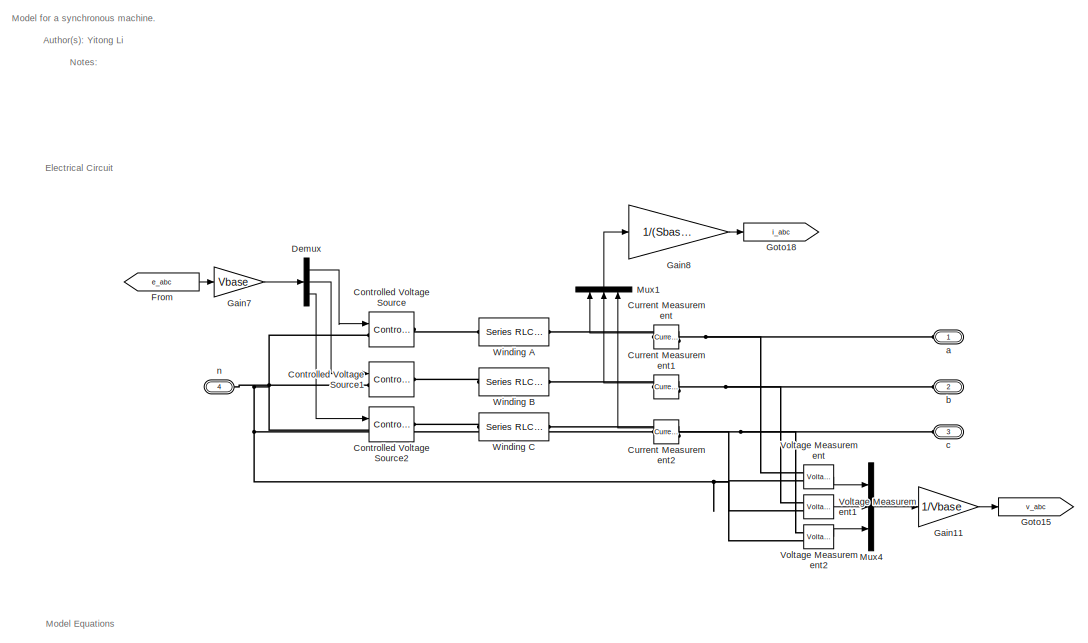
[diagram: Synchronous Machine (dq-Frame) (Simulink Block) - part 1/3, top left region]
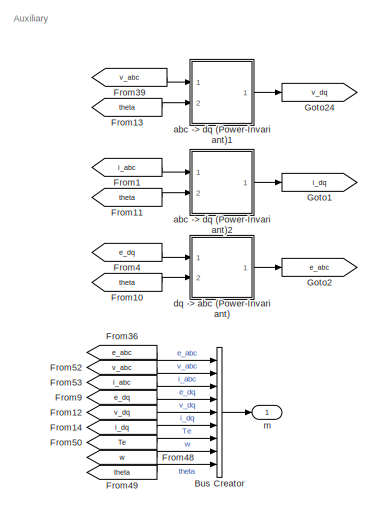
[diagram: Synchronous Machine (dq-Frame) (Simulink Block) - part 2/3, top right region]
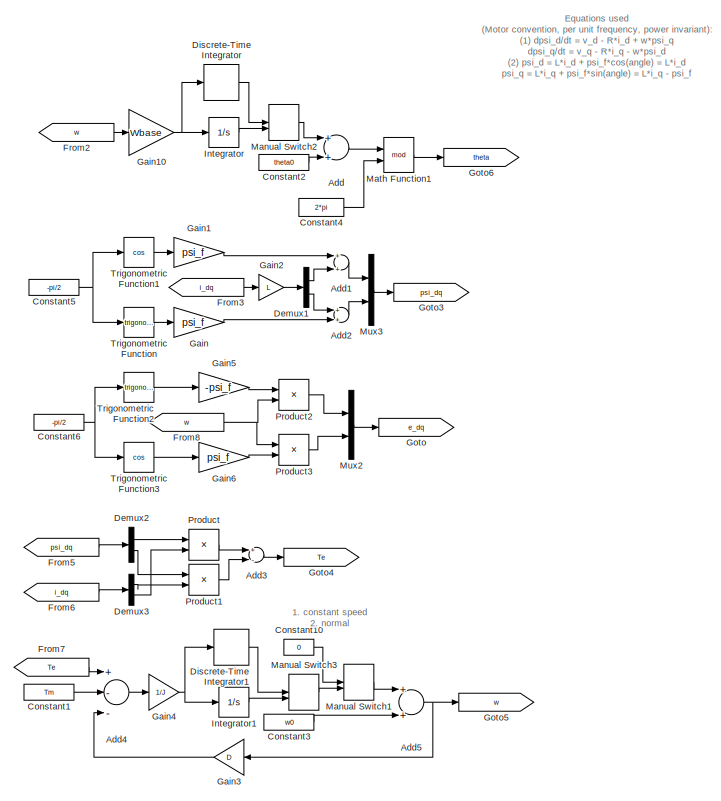
[diagram: Synchronous Machine (dq-Frame) (Simulink Block) - part 3/3, bottom left region]
BLOCK [SubSystem] Synchronous Machine (dq-Frame) (Simulink Block)
  Ports = [0, 1, 0, 0, 0, 4]
  RequestExecContextInheritance = off
BLOCK [Sum] Synchronous Machine (dq-Frame) (Simulink Block)/Add
  InputSameDT = off
  OutDataTypeStr = Inherit: Inherit via internal rule
  Ports = [2, 1]
  SaturateOnIntegerOverflow = off
BLOCK [Sum] Synchronous Machine (dq-Frame) (Simulink Block)/Add1
  InputSameDT = off
  OutDataTypeStr = Inherit: Inherit via internal rule
  Ports = [2, 1]
  SaturateOnIntegerOverflow = off
BLOCK [Sum] Synchronous Machine (dq-Frame) (Simulink Block)/Add2
  InputSameDT = off
  OutDataTypeStr = Inherit: Inherit via internal rule
  Ports = [2, 1]
  SaturateOnIntegerOverflow = off
BLOCK [Sum] Synchronous Machine (dq-Frame) (Simulink Block)/Add3
  InputSameDT = off
  Inputs = +-
  OutDataTypeStr = Inherit: Inherit via internal rule
  Ports = [2, 1]
  SaturateOnIntegerOverflow = off
BLOCK [Sum] Synchronous Machine (dq-Frame) (Simulink Block)/Add4
  InputSameDT = off
  Inputs = +--
  OutDataTypeStr = Inherit: Inherit via internal rule
  Ports = [3, 1]
  SaturateOnIntegerOverflow = off
BLOCK [Sum] Synchronous Machine (dq-Frame) (Simulink Block)/Add5
  InputSameDT = off
  OutDataTypeStr = Inherit: Inherit via internal rule
  Ports = [2, 1]
  SaturateOnIntegerOverflow = off
BLOCK [BusCreator] Synchronous Machine (dq-Frame) (Simulink Block)/Bus Creator
  DisplayOption = bar
  InheritFromInputs = on
  Inputs = 9
  Ports = [9, 1]
BLOCK [Constant] Synchronous Machine (dq-Frame) (Simulink Block)/Constant1
  Value = Tm
BLOCK [Constant] Synchronous Machine (dq-Frame) (Simulink Block)/Constant10
  Value = 0
BLOCK [Constant] Synchronous Machine (dq-Frame) (Simulink Block)/Constant2
  Value = theta0
BLOCK [Constant] Synchronous Machine (dq-Frame) (Simulink Block)/Constant3
  Value = w0
BLOCK [Constant] Synchronous Machine (dq-Frame) (Simulink Block)/Constant4
  Value = 2*pi
BLOCK [Constant] Synchronous Machine (dq-Frame) (Simulink Block)/Constant5
  Value = -pi/2
BLOCK [Constant] Synchronous Machine (dq-Frame) (Simulink Block)/Constant6
  Value = -pi/2
BLOCK [Reference] Synchronous Machine (dq-Frame) (Simulink Block)/Controlled Voltage Source  REF=powerlib/Electrical
Sources/Controlled Voltage Source
  Amplitude = 0
  Frequency = 0
  Initialize = on
  Measurements = None
  Phase = 0
  Ports = [1, 0, 0, 0, 0, 1, 1]
  SourceBlock = powerlib/Electrical\nSources/Controlled Voltage Source
  SourceType = Controlled Voltage Source
  Source_Type = AC
BLOCK [Reference] Synchronous Machine (dq-Frame) (Simulink Block)/Controlled Voltage Source1  REF=powerlib/Electrical
Sources/Controlled Voltage Source
  Amplitude = 0
  Frequency = 0
  Initialize = on
  Measurements = None
  Phase = 0
  Ports = [1, 0, 0, 0, 0, 1, 1]
  SourceBlock = powerlib/Electrical\nSources/Controlled Voltage Source
  SourceType = Controlled Voltage Source
  Source_Type = AC
BLOCK [Reference] Synchronous Machine (dq-Frame) (Simulink Block)/Controlled Voltage Source2  REF=powerlib/Electrical
Sources/Controlled Voltage Source
  Amplitude = 0
  Frequency = 0
  Initialize = on
  Measurements = None
  Phase = 0
  Ports = [1, 0, 0, 0, 0, 1, 1]
  SourceBlock = powerlib/Electrical\nSources/Controlled Voltage Source
  SourceType = Controlled Voltage Source
  Source_Type = AC
BLOCK [Reference] Synchronous Machine (dq-Frame) (Simulink Block)/Current Measurement  REF=powerlib/Measurements/Current Measurement
  OutputType = Complex
  PSBequivalent = 0
  PhasorSimulation = off
  Ports = [0, 1, 0, 0, 0, 1, 1]
  SourceBlock = powerlib/Measurements/Current Measurement
  SourceType = Current Measurement
  UserDataPersistent = on
BLOCK [Reference] Synchronous Machine (dq-Frame) (Simulink Block)/Current Measurement1  REF=powerlib/Measurements/Current Measurement
  OutputType = Complex
  PSBequivalent = 0
  PhasorSimulation = off
  Ports = [0, 1, 0, 0, 0, 1, 1]
  SourceBlock = powerlib/Measurements/Current Measurement
  SourceType = Current Measurement
  UserDataPersistent = on
BLOCK [Reference] Synchronous Machine (dq-Frame) (Simulink Block)/Current Measurement2  REF=powerlib/Measurements/Current Measurement
  OutputType = Complex
  PSBequivalent = 0
  PhasorSimulation = off
  Ports = [0, 1, 0, 0, 0, 1, 1]
  SourceBlock = powerlib/Measurements/Current Measurement
  SourceType = Current Measurement
  UserDataPersistent = on
BLOCK [Demux] Synchronous Machine (dq-Frame) (Simulink Block)/Demux
  DisplayOption = bar
  Outputs = 3
  Ports = [1, 3]
BLOCK [Demux] Synchronous Machine (dq-Frame) (Simulink Block)/Demux1
  DisplayOption = bar
  Outputs = 2
  Ports = [1, 2]
BLOCK [Demux] Synchronous Machine (dq-Frame) (Simulink Block)/Demux2
  DisplayOption = bar
  Outputs = 2
  Ports = [1, 2]
BLOCK [Demux] Synchronous Machine (dq-Frame) (Simulink Block)/Demux3
  DisplayOption = bar
  Outputs = 2
  Ports = [1, 2]
BLOCK [DiscreteIntegrator] Synchronous Machine (dq-Frame) (Simulink Block)/Discrete-Time Integrator
  ICPrevOutput = DiscIntNeverNeededParam
  ICPrevScaledInput = DiscIntNeverNeededParam
  InitialConditionSetting = State (most efficient)
  Ports = [1, 1]
  SampleTime = -1
BLOCK [DiscreteIntegrator] Synchronous Machine (dq-Frame) (Simulink Block)/Discrete-Time Integrator1
  ICPrevOutput = DiscIntNeverNeededParam
  ICPrevScaledInput = DiscIntNeverNeededParam
  InitialConditionSetting = State (most efficient)
  Ports = [1, 1]
  SampleTime = -1
BLOCK [From] Synchronous Machine (dq-Frame) (Simulink Block)/From
  GotoTag = e_abc
BLOCK [From] Synchronous Machine (dq-Frame) (Simulink Block)/From1
  GotoTag = i_abc
BLOCK [From] Synchronous Machine (dq-Frame) (Simulink Block)/From10
  GotoTag = theta
BLOCK [From] Synchronous Machine (dq-Frame) (Simulink Block)/From11
  GotoTag = theta
BLOCK [From] Synchronous Machine (dq-Frame) (Simulink Block)/From12
  GotoTag = v_dq
BLOCK [From] Synchronous Machine (dq-Frame) (Simulink Block)/From13
  GotoTag = theta
BLOCK [From] Synchronous Machine (dq-Frame) (Simulink Block)/From14
  GotoTag = i_dq
BLOCK [From] Synchronous Machine (dq-Frame) (Simulink Block)/From2
  GotoTag = w
BLOCK [From] Synchronous Machine (dq-Frame) (Simulink Block)/From3
  GotoTag = i_dq
BLOCK [From] Synchronous Machine (dq-Frame) (Simulink Block)/From36
  GotoTag = e_abc
BLOCK [From] Synchronous Machine (dq-Frame) (Simulink Block)/From39
  GotoTag = v_abc
BLOCK [From] Synchronous Machine (dq-Frame) (Simulink Block)/From4
  GotoTag = e_dq
BLOCK [From] Synchronous Machine (dq-Frame) (Simulink Block)/From48
  GotoTag = w
BLOCK [From] Synchronous Machine (dq-Frame) (Simulink Block)/From49
  GotoTag = theta
BLOCK [From] Synchronous Machine (dq-Frame) (Simulink Block)/From5
  GotoTag = psi_dq
BLOCK [From] Synchronous Machine (dq-Frame) (Simulink Block)/From50
  GotoTag = Te
BLOCK [From] Synchronous Machine (dq-Frame) (Simulink Block)/From52
  GotoTag = v_abc
BLOCK [From] Synchronous Machine (dq-Frame) (Simulink Block)/From53
  GotoTag = i_abc
BLOCK [From] Synchronous Machine (dq-Frame) (Simulink Block)/From6
  GotoTag = i_dq
BLOCK [From] Synchronous Machine (dq-Frame) (Simulink Block)/From7
  GotoTag = Te
BLOCK [From] Synchronous Machine (dq-Frame) (Simulink Block)/From8
  GotoTag = w
BLOCK [From] Synchronous Machine (dq-Frame) (Simulink Block)/From9
  GotoTag = e_dq
BLOCK [Gain] Synchronous Machine (dq-Frame) (Simulink Block)/Gain
  Gain = psi_f
  OutDataTypeStr = Inherit: Inherit via internal rule
  ParamDataTypeStr = Inherit: Inherit via internal rule
  SaturateOnIntegerOverflow = off
BLOCK [Gain] Synchronous Machine (dq-Frame) (Simulink Block)/Gain1
  Gain = psi_f
  OutDataTypeStr = Inherit: Inherit via internal rule
  ParamDataTypeStr = Inherit: Inherit via internal rule
  SaturateOnIntegerOverflow = off
BLOCK [Gain] Synchronous Machine (dq-Frame) (Simulink Block)/Gain10
  Gain = Wbase
  OutDataTypeStr = Inherit: Inherit via internal rule
  ParamDataTypeStr = Inherit: Inherit via internal rule
  SaturateOnIntegerOverflow = off
BLOCK [Gain] Synchronous Machine (dq-Frame) (Simulink Block)/Gain11
  Gain = 1/Vbase
  OutDataTypeStr = Inherit: Inherit via internal rule
  ParamDataTypeStr = Inherit: Inherit via internal rule
  SaturateOnIntegerOverflow = off
BLOCK [Gain] Synchronous Machine (dq-Frame) (Simulink Block)/Gain2
  Gain = L
  OutDataTypeStr = Inherit: Inherit via internal rule
  ParamDataTypeStr = Inherit: Inherit via internal rule
  SaturateOnIntegerOverflow = off
BLOCK [Gain] Synchronous Machine (dq-Frame) (Simulink Block)/Gain3
  Gain = D
  OutDataTypeStr = Inherit: Inherit via internal rule
  ParamDataTypeStr = Inherit: Inherit via internal rule
  SaturateOnIntegerOverflow = off
BLOCK [Gain] Synchronous Machine (dq-Frame) (Simulink Block)/Gain4
  Gain = 1/J
  OutDataTypeStr = Inherit: Inherit via internal rule
  ParamDataTypeStr = Inherit: Inherit via internal rule
  SaturateOnIntegerOverflow = off
BLOCK [Gain] Synchronous Machine (dq-Frame) (Simulink Block)/Gain5
  Gain = -psi_f
  OutDataTypeStr = Inherit: Inherit via internal rule
  ParamDataTypeStr = Inherit: Inherit via internal rule
  SaturateOnIntegerOverflow = off
BLOCK [Gain] Synchronous Machine (dq-Frame) (Simulink Block)/Gain6
  Gain = psi_f
  OutDataTypeStr = Inherit: Inherit via internal rule
  ParamDataTypeStr = Inherit: Inherit via internal rule
  SaturateOnIntegerOverflow = off
BLOCK [Gain] Synchronous Machine (dq-Frame) (Simulink Block)/Gain7
  Gain = Vbase
  OutDataTypeStr = Inherit: Inherit via internal rule
  ParamDataTypeStr = Inherit: Inherit via internal rule
  SaturateOnIntegerOverflow = off
BLOCK [Gain] Synchronous Machine (dq-Frame) (Simulink Block)/Gain8
  Gain = 1/(Sbase/Vbase)
  OutDataTypeStr = Inherit: Inherit via internal rule
  ParamDataTypeStr = Inherit: Inherit via internal rule
  SaturateOnIntegerOverflow = off
BLOCK [Goto] Synchronous Machine (dq-Frame) (Simulink Block)/Goto
  GotoTag = e_dq
BLOCK [Goto] Synchronous Machine (dq-Frame) (Simulink Block)/Goto1
  GotoTag = i_dq
BLOCK [Goto] Synchronous Machine (dq-Frame) (Simulink Block)/Goto15
  GotoTag = v_abc
BLOCK [Goto] Synchronous Machine (dq-Frame) (Simulink Block)/Goto18
  GotoTag = i_abc
BLOCK [Goto] Synchronous Machine (dq-Frame) (Simulink Block)/Goto2
  GotoTag = e_abc
BLOCK [Goto] Synchronous Machine (dq-Frame) (Simulink Block)/Goto24
  GotoTag = v_dq
BLOCK [Goto] Synchronous Machine (dq-Frame) (Simulink Block)/Goto3
  GotoTag = psi_dq
BLOCK [Goto] Synchronous Machine (dq-Frame) (Simulink Block)/Goto4
  GotoTag = Te
BLOCK [Goto] Synchronous Machine (dq-Frame) (Simulink Block)/Goto5
  GotoTag = w
BLOCK [Goto] Synchronous Machine (dq-Frame) (Simulink Block)/Goto6
  GotoTag = theta
BLOCK [Integrator] Synchronous Machine (dq-Frame) (Simulink Block)/Integrator
  Ports = [1, 1]
BLOCK [Integrator] Synchronous Machine (dq-Frame) (Simulink Block)/Integrator1
  Ports = [1, 1]
BLOCK [ManualSwitch] Synchronous Machine (dq-Frame) (Simulink Block)/Manual Switch1
  CurrentSetting = 0
BLOCK [ManualSwitch] Synchronous Machine (dq-Frame) (Simulink Block)/Manual Switch2
  CurrentSetting = 0
BLOCK [ManualSwitch] Synchronous Machine (dq-Frame) (Simulink Block)/Manual Switch3
  CurrentSetting = 0
BLOCK [Math] Synchronous Machine (dq-Frame) (Simulink Block)/Math Function1
  Operator = mod
  Ports = [2, 1]
BLOCK [Mux] Synchronous Machine (dq-Frame) (Simulink Block)/Mux1
  DisplayOption = bar
  Inputs = 3
  Ports = [3, 1]
BLOCK [Mux] Synchronous Machine (dq-Frame) (Simulink Block)/Mux2
  DisplayOption = bar
  Inputs = 2
  Ports = [2, 1]
BLOCK [Mux] Synchronous Machine (dq-Frame) (Simulink Block)/Mux3
  DisplayOption = bar
  Inputs = 2
  Ports = [2, 1]
BLOCK [Mux] Synchronous Machine (dq-Frame) (Simulink Block)/Mux4
  DisplayOption = bar
  Inputs = 3
  Ports = [3, 1]
BLOCK [Product] Synchronous Machine (dq-Frame) (Simulink Block)/Product
  InputSameDT = off
  OutDataTypeStr = Inherit: Inherit via internal rule
  Ports = [2, 1]
  RndMeth = Floor
  SaturateOnIntegerOverflow = off
BLOCK [Product] Synchronous Machine (dq-Frame) (Simulink Block)/Product1
  InputSameDT = off
  OutDataTypeStr = Inherit: Inherit via internal rule
  Ports = [2, 1]
  RndMeth = Floor
  SaturateOnIntegerOverflow = off
BLOCK [Product] Synchronous Machine (dq-Frame) (Simulink Block)/Product2
  InputSameDT = off
  OutDataTypeStr = Inherit: Inherit via internal rule
  Ports = [2, 1]
  RndMeth = Floor
  SaturateOnIntegerOverflow = off
BLOCK [Product] Synchronous Machine (dq-Frame) (Simulink Block)/Product3
  InputSameDT = off
  OutDataTypeStr = Inherit: Inherit via internal rule
  Ports = [2, 1]
  RndMeth = Floor
  SaturateOnIntegerOverflow = off
BLOCK [Trigonometry] Synchronous Machine (dq-Frame) (Simulink Block)/Trigonometric Function
  Ports = [1, 1]
BLOCK [Trigonometry] Synchronous Machine (dq-Frame) (Simulink Block)/Trigonometric Function1
  Operator = cos
  Ports = [1, 1]
BLOCK [Trigonometry] Synchronous Machine (dq-Frame) (Simulink Block)/Trigonometric Function2
  Ports = [1, 1]
BLOCK [Trigonometry] Synchronous Machine (dq-Frame) (Simulink Block)/Trigonometric Function3
  Operator = cos
  Ports = [1, 1]
BLOCK [Reference] Synchronous Machine (dq-Frame) (Simulink Block)/Voltage Measurement  REF=powerlib/Measurements/Voltage Measurement
  OutputType = Complex
  PSBequivalent = 0
  PhasorSimulation = off
  Ports = [0, 1, 0, 0, 0, 2]
  SourceBlock = powerlib/Measurements/Voltage Measurement
  SourceType = Voltage Measurement
  UserDataPersistent = on
BLOCK [Reference] Synchronous Machine (dq-Frame) (Simulink Block)/Voltage Measurement1  REF=powerlib/Measurements/Voltage Measurement
  OutputType = Complex
  PSBequivalent = 0
  PhasorSimulation = off
  Ports = [0, 1, 0, 0, 0, 2]
  SourceBlock = powerlib/Measurements/Voltage Measurement
  SourceType = Voltage Measurement
  UserDataPersistent = on
BLOCK [Reference] Synchronous Machine (dq-Frame) (Simulink Block)/Voltage Measurement2  REF=powerlib/Measurements/Voltage Measurement
  OutputType = Complex
  PSBequivalent = 0
  PhasorSimulation = off
  Ports = [0, 1, 0, 0, 0, 2]
  SourceBlock = powerlib/Measurements/Voltage Measurement
  SourceType = Voltage Measurement
  UserDataPersistent = on
BLOCK [Reference] Synchronous Machine (dq-Frame) (Simulink Block)/Winding A  REF=powerlib/Elements/Series RLC Branch
  BranchType = RL
  Capacitance = 1e-6
  Inductance = L*(Vbase^2)/Sbase/Wbase
  InitialCurrent = ia0
  InitialVoltage = 0
  LConnTagsString = __new0
  Measurements = None
  Ports = [0, 0, 0, 0, 0, 1, 1]
  RConnTagsString = __new0
  Resistance = R*(Vbase^2)/Sbase
  SetiL0 = off
  Setx0 = off
  SourceBlock = powerlib/Elements/Series RLC Branch
  SourceType = Series RLC Branch
BLOCK [Reference] Synchronous Machine (dq-Frame) (Simulink Block)/Winding B  REF=powerlib/Elements/Series RLC Branch
  BranchType = RL
  Capacitance = 1e-6
  Inductance = L*(Vbase^2)/Sbase/Wbase
  InitialCurrent = ia0
  InitialVoltage = 0
  LConnTagsString = __new0
  Measurements = None
  Ports = [0, 0, 0, 0, 0, 1, 1]
  RConnTagsString = __new0
  Resistance = R*(Vbase^2)/Sbase
  SetiL0 = off
  Setx0 = off
  SourceBlock = powerlib/Elements/Series RLC Branch
  SourceType = Series RLC Branch
BLOCK [Reference] Synchronous Machine (dq-Frame) (Simulink Block)/Winding C  REF=powerlib/Elements/Series RLC Branch
  BranchType = RL
  Capacitance = 1e-6
  Inductance = L*(Vbase^2)/Sbase/Wbase
  InitialCurrent = ia0
  InitialVoltage = 0
  LConnTagsString = __new0
  Measurements = None
  Ports = [0, 0, 0, 0, 0, 1, 1]
  RConnTagsString = __new0
  Resistance = R*(Vbase^2)/Sbase
  SetiL0 = off
  Setx0 = off
  SourceBlock = powerlib/Elements/Series RLC Branch
  SourceType = Series RLC Branch
BLOCK [PMIOPort] Synchronous Machine (dq-Frame) (Simulink Block)/a
  Side = Left
BLOCK [SubSystem] Synchronous Machine (dq-Frame) (Simulink Block)/abc -> dq (Power-Invariant)1
  AncestorBlock = SimplusGT/Synchronous Machine\n(dq-Frame System Object)/abc -> dq\n(Power-Invariant)
  Ports = [2, 1]
  RequestExecContextInheritance = off
BLOCK [Fcn] Synchronous Machine (dq-Frame) (Simulink Block)/abc -> dq (Power-Invariant)1/->d
  Expr = cos(u(4))*u(1) + cos(u(4)-2/3*pi)*u(2) + cos(u(4)-4/3*pi)*u(3)
BLOCK [Fcn] Synchronous Machine (dq-Frame) (Simulink Block)/abc -> dq (Power-Invariant)1/->q
  Expr = -sin(u(4))*u(1) - sin(u(4)-2/3*pi)*u(2) - sin(u(4)-4/3*pi)*u(3)
BLOCK [Gain] Synchronous Machine (dq-Frame) (Simulink Block)/abc -> dq (Power-Invariant)1/Gain
  Gain = sqrt(2/3)
  OutDataTypeStr = Inherit: Inherit via internal rule
  ParamDataTypeStr = Inherit: Inherit via internal rule
  SaturateOnIntegerOverflow = off
BLOCK [Mux] Synchronous Machine (dq-Frame) (Simulink Block)/abc -> dq (Power-Invariant)1/Mux5
  DisplayOption = bar
  Inputs = 2
  Ports = [2, 1]
BLOCK [Mux] Synchronous Machine (dq-Frame) (Simulink Block)/abc -> dq (Power-Invariant)1/Mux6
  DisplayOption = bar
  Inputs = 2
  Ports = [2, 1]
BLOCK [Inport] Synchronous Machine (dq-Frame) (Simulink Block)/abc -> dq (Power-Invariant)1/abc
  IconDisplay = Port number
BLOCK [Outport] Synchronous Machine (dq-Frame) (Simulink Block)/abc -> dq (Power-Invariant)1/dq
  IconDisplay = Port number
BLOCK [Inport] Synchronous Machine (dq-Frame) (Simulink Block)/abc -> dq (Power-Invariant)1/theta
  IconDisplay = Port number
  Port = 2
BLOCK [SubSystem] Synchronous Machine (dq-Frame) (Simulink Block)/abc -> dq (Power-Invariant)2
  AncestorBlock = SimplusGT/Synchronous Machine\n(dq-Frame)\n(Simulink Block)/abc -> dq\n(Power-Invariant)1
  Ports = [2, 1]
  RequestExecContextInheritance = off
BLOCK [Fcn] Synchronous Machine (dq-Frame) (Simulink Block)/abc -> dq (Power-Invariant)2/->d
  Expr = cos(u(4))*u(1) + cos(u(4)-2/3*pi)*u(2) + cos(u(4)-4/3*pi)*u(3)
BLOCK [Fcn] Synchronous Machine (dq-Frame) (Simulink Block)/abc -> dq (Power-Invariant)2/->q
  Expr = -sin(u(4))*u(1) - sin(u(4)-2/3*pi)*u(2) - sin(u(4)-4/3*pi)*u(3)
BLOCK [Gain] Synchronous Machine (dq-Frame) (Simulink Block)/abc -> dq (Power-Invariant)2/Gain
  Gain = sqrt(2/3)
  OutDataTypeStr = Inherit: Inherit via internal rule
  ParamDataTypeStr = Inherit: Inherit via internal rule
  SaturateOnIntegerOverflow = off
BLOCK [Mux] Synchronous Machine (dq-Frame) (Simulink Block)/abc -> dq (Power-Invariant)2/Mux5
  DisplayOption = bar
  Inputs = 2
  Ports = [2, 1]
BLOCK [Mux] Synchronous Machine (dq-Frame) (Simulink Block)/abc -> dq (Power-Invariant)2/Mux6
  DisplayOption = bar
  Inputs = 2
  Ports = [2, 1]
BLOCK [Inport] Synchronous Machine (dq-Frame) (Simulink Block)/abc -> dq (Power-Invariant)2/abc
  IconDisplay = Port number
BLOCK [Outport] Synchronous Machine (dq-Frame) (Simulink Block)/abc -> dq (Power-Invariant)2/dq
  IconDisplay = Port number
BLOCK [Inport] Synchronous Machine (dq-Frame) (Simulink Block)/abc -> dq (Power-Invariant)2/theta
  IconDisplay = Port number
  Port = 2
BLOCK [PMIOPort] Synchronous Machine (dq-Frame) (Simulink Block)/b
  Port = 2
  Side = Left
BLOCK [PMIOPort] Synchronous Machine (dq-Frame) (Simulink Block)/c
  Port = 3
  Side = Left
BLOCK [SubSystem] Synchronous Machine (dq-Frame) (Simulink Block)/dq -> abc (Power-Invariant)
  AncestorBlock = SimplusGT/dq -> abc\n(Power-Invariant)
  Ports = [2, 1]
  RequestExecContextInheritance = off
BLOCK [Fcn] Synchronous Machine (dq-Frame) (Simulink Block)/dq -> abc (Power-Invariant)/->a
  Expr = cos(u(3))*u(1) - sin(u(3))*u(2)
BLOCK [Fcn] Synchronous Machine (dq-Frame) (Simulink Block)/dq -> abc (Power-Invariant)/->b
  Expr = cos(u(3)-2/3*pi)*u(1) - sin(u(3)-2/3*pi)*u(2)
BLOCK [Fcn] Synchronous Machine (dq-Frame) (Simulink Block)/dq -> abc (Power-Invariant)/->c
  Expr = cos(u(3)-4/3*pi)*u(1) - sin(u(3)-4/3*pi)*u(2)
BLOCK [Gain] Synchronous Machine (dq-Frame) (Simulink Block)/dq -> abc (Power-Invariant)/Gain
  Gain = sqrt(2/3)
  OutDataTypeStr = Inherit: Inherit via internal rule
  ParamDataTypeStr = Inherit: Inherit via internal rule
  SaturateOnIntegerOverflow = off
BLOCK [Mux] Synchronous Machine (dq-Frame) (Simulink Block)/dq -> abc (Power-Invariant)/Mux5
  DisplayOption = bar
  Inputs = 2
  Ports = [2, 1]
BLOCK [Mux] Synchronous Machine (dq-Frame) (Simulink Block)/dq -> abc (Power-Invariant)/Mux6
  DisplayOption = bar
  Inputs = 3
  Ports = [3, 1]
BLOCK [Outport] Synchronous Machine (dq-Frame) (Simulink Block)/dq -> abc (Power-Invariant)/abc
  IconDisplay = Port number
BLOCK [Inport] Synchronous Machine (dq-Frame) (Simulink Block)/dq -> abc (Power-Invariant)/dq
  IconDisplay = Port number
BLOCK [Inport] Synchronous Machine (dq-Frame) (Simulink Block)/dq -> abc (Power-Invariant)/theta
  IconDisplay = Port number
  Port = 2
BLOCK [Outport] Synchronous Machine (dq-Frame) (Simulink Block)/m
  IconDisplay = Port number
BLOCK [PMIOPort] Synchronous Machine (dq-Frame) (Simulink Block)/n
  Port = 4
  Side = Left
BLOCK [SubSystem] SynchronousMachineFull_Cyp_SMAVR (dq-Frame System Object)
  Ports = [0, 1, 0, 0, 0, 4]
  RequestExecContextInheritance = off
BLOCK [BusCreator] SynchronousMachineFull_Cyp_SMAVR (dq-Frame System Object)/Bus Creator
  DisplayOption = bar
  InheritFromInputs = on
  Inputs = 7
  Ports = [7, 1]
BLOCK [Constant] SynchronousMachineFull_Cyp_SMAVR (dq-Frame System Object)/Constant2
  Value = OtherInputs
BLOCK [Constant] SynchronousMachineFull_Cyp_SMAVR (dq-Frame System Object)/Constant5
  Value = 2*pi
BLOCK [Demux] SynchronousMachineFull_Cyp_SMAVR (dq-Frame System Object)/Demux
  DisplayOption = bar
  Ports = [1, 4]
BLOCK [Demux] SynchronousMachineFull_Cyp_SMAVR (dq-Frame System Object)/Demux1
  DisplayOption = bar
  Outputs = 3
  Ports = [1, 3]
BLOCK [Demux] SynchronousMachineFull_Cyp_SMAVR (dq-Frame System Object)/Demux2
  DisplayOption = bar
  Outputs = 2
  Ports = [1, 2]
BLOCK [Demux] SynchronousMachineFull_Cyp_SMAVR (dq-Frame System Object)/Demux3
  DisplayOption = bar
  Outputs = 3
  Ports = [1, 3]
BLOCK [From] SynchronousMachineFull_Cyp_SMAVR (dq-Frame System Object)/From
  GotoTag = v_dq
BLOCK [From] SynchronousMachineFull_Cyp_SMAVR (dq-Frame System Object)/From1
  GotoTag = i_abc
BLOCK [From] SynchronousMachineFull_Cyp_SMAVR (dq-Frame System Object)/From10
  GotoTag = theta
BLOCK [From] SynchronousMachineFull_Cyp_SMAVR (dq-Frame System Object)/From11
  GotoTag = w
BLOCK [From] SynchronousMachineFull_Cyp_SMAVR (dq-Frame System Object)/From12
  GotoTag = v_dq
BLOCK [From] SynchronousMachineFull_Cyp_SMAVR (dq-Frame System Object)/From13
  GotoTag = i_dq_t
BLOCK [From] SynchronousMachineFull_Cyp_SMAVR (dq-Frame System Object)/From14
  GotoTag = pq
BLOCK [From] SynchronousMachineFull_Cyp_SMAVR (dq-Frame System Object)/From15
  GotoTag = i_abc_t
BLOCK [From] SynchronousMachineFull_Cyp_SMAVR (dq-Frame System Object)/From16
  GotoTag = theta
BLOCK [From] SynchronousMachineFull_Cyp_SMAVR (dq-Frame System Object)/From2
  GotoTag = v_dq
BLOCK [From] SynchronousMachineFull_Cyp_SMAVR (dq-Frame System Object)/From3
  GotoTag = v_abc
BLOCK [From] SynchronousMachineFull_Cyp_SMAVR (dq-Frame System Object)/From4
  GotoTag = theta
BLOCK [From] SynchronousMachineFull_Cyp_SMAVR (dq-Frame System Object)/From5
  GotoTag = i_dq
BLOCK [From] SynchronousMachineFull_Cyp_SMAVR (dq-Frame System Object)/From6
  GotoTag = theta
BLOCK [From] SynchronousMachineFull_Cyp_SMAVR (dq-Frame System Object)/From7
  GotoTag = i_abc_t
BLOCK [From] SynchronousMachineFull_Cyp_SMAVR (dq-Frame System Object)/From8
  GotoTag = i_dq_t
BLOCK [From] SynchronousMachineFull_Cyp_SMAVR (dq-Frame System Object)/From9
  GotoTag = v_abc
BLOCK [Gain] SynchronousMachineFull_Cyp_SMAVR (dq-Frame System Object)/Gain
  Gain = 1/Wbase
  OutDataTypeStr = Inherit: Inherit via internal rule
  ParamDataTypeStr = Inherit: Inherit via internal rule
  SaturateOnIntegerOverflow = off
BLOCK [Gain] SynchronousMachineFull_Cyp_SMAVR (dq-Frame System Object)/Gain1
  Gain = 1/Vbase
  OutDataTypeStr = Inherit: Inherit via internal rule
  ParamDataTypeStr = Inherit: Inherit via internal rule
  SaturateOnIntegerOverflow = off
BLOCK [Gain] SynchronousMachineFull_Cyp_SMAVR (dq-Frame System Object)/Gain2
  Gain = Sbase/Vbase
  OutDataTypeStr = Inherit: Inherit via internal rule
  ParamDataTypeStr = Inherit: Inherit via internal rule
  SaturateOnIntegerOverflow = off
BLOCK [Gain] SynchronousMachineFull_Cyp_SMAVR (dq-Frame System Object)/Gain3
  Gain = 1/(Sbase/Vbase)
  OutDataTypeStr = Inherit: Inherit via internal rule
  ParamDataTypeStr = Inherit: Inherit via internal rule
  SaturateOnIntegerOverflow = off
BLOCK [Goto] SynchronousMachineFull_Cyp_SMAVR (dq-Frame System Object)/Goto
  GotoTag = v_abc
BLOCK [Goto] SynchronousMachineFull_Cyp_SMAVR (dq-Frame System Object)/Goto1
  GotoTag = theta
BLOCK [Goto] SynchronousMachineFull_Cyp_SMAVR (dq-Frame System Object)/Goto2
  GotoTag = i_dq
BLOCK [Goto] SynchronousMachineFull_Cyp_SMAVR (dq-Frame System Object)/Goto3
  GotoTag = v_dq
BLOCK [Goto] SynchronousMachineFull_Cyp_SMAVR (dq-Frame System Object)/Goto4
  GotoTag = i_abc
BLOCK [Goto] SynchronousMachineFull_Cyp_SMAVR (dq-Frame System Object)/Goto5
  GotoTag = w
BLOCK [Goto] SynchronousMachineFull_Cyp_SMAVR (dq-Frame System Object)/Goto6
  GotoTag = pq
BLOCK [Goto] SynchronousMachineFull_Cyp_SMAVR (dq-Frame System Object)/Goto7
  GotoTag = i_abc_t
BLOCK [Goto] SynchronousMachineFull_Cyp_SMAVR (dq-Frame System Object)/Goto8
  GotoTag = i_dq_t
BLOCK [Math] SynchronousMachineFull_Cyp_SMAVR (dq-Frame System Object)/Math Function2
  Operator = mod
  Ports = [2, 1]
BLOCK [Mux] SynchronousMachineFull_Cyp_SMAVR (dq-Frame System Object)/Mux
  DisplayOption = bar
  Inputs = 2
  Ports = [2, 1]
BLOCK [Mux] SynchronousMachineFull_Cyp_SMAVR (dq-Frame System Object)/Mux1
  DisplayOption = bar
  Inputs = 3
  Ports = [3, 1]
BLOCK [Mux] SynchronousMachineFull_Cyp_SMAVR (dq-Frame System Object)/Mux2
  DisplayOption = bar
  Inputs = 5
  Ports = [5, 1]
BLOCK [Mux] SynchronousMachineFull_Cyp_SMAVR (dq-Frame System Object)/Mux3
  DisplayOption = bar
  Inputs = 3
  Ports = [3, 1]
BLOCK [SubSystem] SynchronousMachineFull_Cyp_SMAVR (dq-Frame System Object)/PQ Calculation (dq-Frame)
  AncestorBlock = SimplusGT/PQ Calculation\n(dq-Frame)
  Ports = [2, 1]
  RequestExecContextInheritance = off
BLOCK [Mux] SynchronousMachineFull_Cyp_SMAVR (dq-Frame System Object)/PQ Calculation (dq-Frame)/Mux
  DisplayOption = bar
  Inputs = 2
  Ports = [2, 1]
BLOCK [Mux] SynchronousMachineFull_Cyp_SMAVR (dq-Frame System Object)/PQ Calculation (dq-Frame)/Mux1
  DisplayOption = bar
  Inputs = 2
  Ports = [2, 1]
BLOCK [Fcn] SynchronousMachineFull_Cyp_SMAVR (dq-Frame System Object)/PQ Calculation (dq-Frame)/P = vd*id+vq*iq
  Expr = u[1]*u[3]+u[2]*u[4]
BLOCK [Fcn] SynchronousMachineFull_Cyp_SMAVR (dq-Frame System Object)/PQ Calculation (dq-Frame)/Q = -vd*iq+vq*id
  Expr = -u[1]*u[4]+u[2]*u[3]
BLOCK [Inport] SynchronousMachineFull_Cyp_SMAVR (dq-Frame System Object)/PQ Calculation (dq-Frame)/idq
  IconDisplay = Port number
  Port = 2
BLOCK [Outport] SynchronousMachineFull_Cyp_SMAVR (dq-Frame System Object)/PQ Calculation (dq-Frame)/pq
  IconDisplay = Port number
BLOCK [Inport] SynchronousMachineFull_Cyp_SMAVR (dq-Frame System Object)/PQ Calculation (dq-Frame)/vdq
  IconDisplay = Port number
BLOCK [Reference] SynchronousMachineFull_Cyp_SMAVR (dq-Frame System Object)/R_VD  REF=powerlib/Elements/Three-Phase
Series RLC Branch
  AttributesFormatString = \n
  BranchType = R
  Capacitance = 1e-6
  Inductance = 1e-3
  LConnTagsString = A|B|C
  Measurements = None
  Ports = [0, 0, 0, 0, 0, 3, 3]
  RConnTagsString = A|B|C
  Resistance = DiscreDampingValue*Vbase^2/Sbase
  SourceBlock = powerlib/Elements/Three-Phase\nSeries RLC Branch
  SourceType = Three-Phase Series RLC Branch
BLOCK [MATLABSystem] SynchronousMachineFull_Cyp_SMAVR (dq-Frame System Object)/SynchronousMachineFull_Cyp_SMAVR
  ApparatusType = ApparatusType
  DirectFeedthrough = DirectFeedthrough
  DiscreMethod = DiscreMethod
  ElecPortIOs = [ 1, 2 ]
  EquiInitial = true
  LinearizationTimes = LinearizationTimes
  MaskDisplay = disp('SynchronousMachineFull_Cyp_SMAVR');\nport_label('input',1,'u');\nport_label('output',1,'y');
  MaskType = SimplusGT.Class.SynchronousMachineFull_Cyp_SMAVR
  Para = ApparatusPara
  Ports = [1, 1]
  PowerFlow = PowerFlow
  SimulateUsing = Code generation
  System = SimplusGT.Class.SynchronousMachineFull_Cyp_SMAVR
  Ts = Ts
  VirtualResistor = DiscreDampingFlag
  x0 = x0
BLOCK [PMIOPort] SynchronousMachineFull_Cyp_SMAVR (dq-Frame System Object)/a
  Side = Left
BLOCK [SubSystem] SynchronousMachineFull_Cyp_SMAVR (dq-Frame System Object)/abc -> dq (Power-Invariant)
  AncestorBlock = SimplusGT/abc -> dq\n(Power-Invariant)
  Ports = [2, 1]
  RequestExecContextInheritance = off
BLOCK [Fcn] SynchronousMachineFull_Cyp_SMAVR (dq-Frame System Object)/abc -> dq (Power-Invariant)/->d
  Expr = cos(u(4))*u(1) + cos(u(4)-2/3*pi)*u(2) + cos(u(4)-4/3*pi)*u(3)
BLOCK [Fcn] SynchronousMachineFull_Cyp_SMAVR (dq-Frame System Object)/abc -> dq (Power-Invariant)/->q
  Expr = -sin(u(4))*u(1) - sin(u(4)-2/3*pi)*u(2) - sin(u(4)-4/3*pi)*u(3)
BLOCK [Gain] SynchronousMachineFull_Cyp_SMAVR (dq-Frame System Object)/abc -> dq (Power-Invariant)/Gain
  Gain = sqrt(2/3)
  OutDataTypeStr = Inherit: Inherit via internal rule
  ParamDataTypeStr = Inherit: Inherit via internal rule
  SaturateOnIntegerOverflow = off
BLOCK [Mux] SynchronousMachineFull_Cyp_SMAVR (dq-Frame System Object)/abc -> dq (Power-Invariant)/Mux5
  DisplayOption = bar
  Inputs = 2
  Ports = [2, 1]
BLOCK [Mux] SynchronousMachineFull_Cyp_SMAVR (dq-Frame System Object)/abc -> dq (Power-Invariant)/Mux6
  DisplayOption = bar
  Inputs = 2
  Ports = [2, 1]
BLOCK [Inport] SynchronousMachineFull_Cyp_SMAVR (dq-Frame System Object)/abc -> dq (Power-Invariant)/abc
  IconDisplay = Port number
BLOCK [Outport] SynchronousMachineFull_Cyp_SMAVR (dq-Frame System Object)/abc -> dq (Power-Invariant)/dq
  IconDisplay = Port number
BLOCK [Inport] SynchronousMachineFull_Cyp_SMAVR (dq-Frame System Object)/abc -> dq (Power-Invariant)/theta
  IconDisplay = Port number
  Port = 2
BLOCK [SubSystem] SynchronousMachineFull_Cyp_SMAVR (dq-Frame System Object)/abc -> dq (Power-Invariant)1
  AncestorBlock = SimplusGT/abc -> dq\n(Power-Invariant)
  Ports = [2, 1]
  RequestExecContextInheritance = off
BLOCK [Fcn] SynchronousMachineFull_Cyp_SMAVR (dq-Frame System Object)/abc -> dq (Power-Invariant)1/->d
  Expr = cos(u(4))*u(1) + cos(u(4)-2/3*pi)*u(2) + cos(u(4)-4/3*pi)*u(3)
BLOCK [Fcn] SynchronousMachineFull_Cyp_SMAVR (dq-Frame System Object)/abc -> dq (Power-Invariant)1/->q
  Expr = -sin(u(4))*u(1) - sin(u(4)-2/3*pi)*u(2) - sin(u(4)-4/3*pi)*u(3)
BLOCK [Gain] SynchronousMachineFull_Cyp_SMAVR (dq-Frame System Object)/abc -> dq (Power-Invariant)1/Gain
  Gain = sqrt(2/3)
  OutDataTypeStr = Inherit: Inherit via internal rule
  ParamDataTypeStr = Inherit: Inherit via internal rule
  SaturateOnIntegerOverflow = off
BLOCK [Mux] SynchronousMachineFull_Cyp_SMAVR (dq-Frame System Object)/abc -> dq (Power-Invariant)1/Mux5
  DisplayOption = bar
  Inputs = 2
  Ports = [2, 1]
BLOCK [Mux] SynchronousMachineFull_Cyp_SMAVR (dq-Frame System Object)/abc -> dq (Power-Invariant)1/Mux6
  DisplayOption = bar
  Inputs = 2
  Ports = [2, 1]
BLOCK [Inport] SynchronousMachineFull_Cyp_SMAVR (dq-Frame System Object)/abc -> dq (Power-Invariant)1/abc
  IconDisplay = Port number
BLOCK [Outport] SynchronousMachineFull_Cyp_SMAVR (dq-Frame System Object)/abc -> dq (Power-Invariant)1/dq
  IconDisplay = Port number
BLOCK [Inport] SynchronousMachineFull_Cyp_SMAVR (dq-Frame System Object)/abc -> dq (Power-Invariant)1/theta
  IconDisplay = Port number
  Port = 2
BLOCK [PMIOPort] SynchronousMachineFull_Cyp_SMAVR (dq-Frame System Object)/b
  Port = 2
  Side = Left
BLOCK [PMIOPort] SynchronousMachineFull_Cyp_SMAVR (dq-Frame System Object)/c
  Port = 3
  Side = Left
BLOCK [SubSystem] SynchronousMachineFull_Cyp_SMAVR (dq-Frame System Object)/dq -> abc (Power-Invariant)
  AncestorBlock = SimplusGT/dq -> abc\n(Power-Invariant)
  Ports = [2, 1]
  RequestExecContextInheritance = off
BLOCK [Fcn] SynchronousMachineFull_Cyp_SMAVR (dq-Frame System Object)/dq -> abc (Power-Invariant)/->a
  Expr = cos(u(3))*u(1) - sin(u(3))*u(2)
BLOCK [Fcn] SynchronousMachineFull_Cyp_SMAVR (dq-Frame System Object)/dq -> abc (Power-Invariant)/->b
  Expr = cos(u(3)-2/3*pi)*u(1) - sin(u(3)-2/3*pi)*u(2)
BLOCK [Fcn] SynchronousMachineFull_Cyp_SMAVR (dq-Frame System Object)/dq -> abc (Power-Invariant)/->c
  Expr = cos(u(3)-4/3*pi)*u(1) - sin(u(3)-4/3*pi)*u(2)
BLOCK [Gain] SynchronousMachineFull_Cyp_SMAVR (dq-Frame System Object)/dq -> abc (Power-Invariant)/Gain
  Gain = sqrt(2/3)
  OutDataTypeStr = Inherit: Inherit via internal rule
  ParamDataTypeStr = Inherit: Inherit via internal rule
  SaturateOnIntegerOverflow = off
BLOCK [Mux] SynchronousMachineFull_Cyp_SMAVR (dq-Frame System Object)/dq -> abc (Power-Invariant)/Mux5
  DisplayOption = bar
  Inputs = 2
  Ports = [2, 1]
BLOCK [Mux] SynchronousMachineFull_Cyp_SMAVR (dq-Frame System Object)/dq -> abc (Power-Invariant)/Mux6
  DisplayOption = bar
  Inputs = 3
  Ports = [3, 1]
BLOCK [Outport] SynchronousMachineFull_Cyp_SMAVR (dq-Frame System Object)/dq -> abc (Power-Invariant)/abc
  IconDisplay = Port number
BLOCK [Inport] SynchronousMachineFull_Cyp_SMAVR (dq-Frame System Object)/dq -> abc (Power-Invariant)/dq
  IconDisplay = Port number
BLOCK [Inport] SynchronousMachineFull_Cyp_SMAVR (dq-Frame System Object)/dq -> abc (Power-Invariant)/theta
  IconDisplay = Port number
  Port = 2
BLOCK [Reference] SynchronousMachineFull_Cyp_SMAVR (dq-Frame System Object)/ia  REF=powerlib/Electrical
Sources/Controlled Current Source
  Amplitude = 0
  Frequency = 0
  Initialize = on
  Measurements = None
  Phase = 0
  Ports = [1, 0, 0, 0, 0, 1, 1]
  SourceBlock = powerlib/Electrical\nSources/Controlled Current Source
  SourceType = Controlled Current Source
  Source_Type = AC
BLOCK [Reference] SynchronousMachineFull_Cyp_SMAVR (dq-Frame System Object)/ia_m  REF=powerlib/Measurements/Current Measurement
  OutputType = Complex
  PSBequivalent = 0
  PhasorSimulation = off
  Ports = [0, 1, 0, 0, 0, 1, 1]
  SourceBlock = powerlib/Measurements/Current Measurement
  SourceType = Current Measurement
  UserDataPersistent = on
BLOCK [Reference] SynchronousMachineFull_Cyp_SMAVR (dq-Frame System Object)/ib  REF=powerlib/Electrical
Sources/Controlled Current Source
  Amplitude = 0
  Frequency = 0
  Initialize = on
  Measurements = None
  Phase = 0
  Ports = [1, 0, 0, 0, 0, 1, 1]
  SourceBlock = powerlib/Electrical\nSources/Controlled Current Source
  SourceType = Controlled Current Source
  Source_Type = AC
BLOCK [Reference] SynchronousMachineFull_Cyp_SMAVR (dq-Frame System Object)/ib_m  REF=powerlib/Measurements/Current Measurement
  OutputType = Complex
  PSBequivalent = 0
  PhasorSimulation = off
  Ports = [0, 1, 0, 0, 0, 1, 1]
  SourceBlock = powerlib/Measurements/Current Measurement
  SourceType = Current Measurement
  UserDataPersistent = on
BLOCK [Reference] SynchronousMachineFull_Cyp_SMAVR (dq-Frame System Object)/ic  REF=powerlib/Electrical
Sources/Controlled Current Source
  Amplitude = 0
  Frequency = 0
  Initialize = on
  Measurements = None
  Phase = 0
  Ports = [1, 0, 0, 0, 0, 1, 1]
  SourceBlock = powerlib/Electrical\nSources/Controlled Current Source
  SourceType = Controlled Current Source
  Source_Type = AC
BLOCK [Reference] SynchronousMachineFull_Cyp_SMAVR (dq-Frame System Object)/ic_m  REF=powerlib/Measurements/Current Measurement
  OutputType = Complex
  PSBequivalent = 0
  PhasorSimulation = off
  Ports = [0, 1, 0, 0, 0, 1, 1]
  SourceBlock = powerlib/Measurements/Current Measurement
  SourceType = Current Measurement
  UserDataPersistent = on
BLOCK [Outport] SynchronousMachineFull_Cyp_SMAVR (dq-Frame System Object)/m
  IconDisplay = Port number
BLOCK [PMIOPort] SynchronousMachineFull_Cyp_SMAVR (dq-Frame System Object)/n
  Port = 4
  Side = Left
BLOCK [Reference] SynchronousMachineFull_Cyp_SMAVR (dq-Frame System Object)/va  REF=powerlib/Measurements/Voltage Measurement
  OutputType = Complex
  PSBequivalent = 0
  PhasorSimulation = off
  Ports = [0, 1, 0, 0, 0, 2]
  SourceBlock = powerlib/Measurements/Voltage Measurement
  SourceType = Voltage Measurement
  UserDataPersistent = on
BLOCK [Reference] SynchronousMachineFull_Cyp_SMAVR (dq-Frame System Object)/vb  REF=powerlib/Measurements/Voltage Measurement
  OutputType = Complex
  PSBequivalent = 0
  PhasorSimulation = off
  Ports = [0, 1, 0, 0, 0, 2]
  SourceBlock = powerlib/Measurements/Voltage Measurement
  SourceType = Voltage Measurement
  UserDataPersistent = on
BLOCK [Reference] SynchronousMachineFull_Cyp_SMAVR (dq-Frame System Object)/vc  REF=powerlib/Measurements/Voltage Measurement
  OutputType = Complex
  PSBequivalent = 0
  PhasorSimulation = off
  Ports = [0, 1, 0, 0, 0, 2]
  SourceBlock = powerlib/Measurements/Voltage Measurement
  SourceType = Voltage Measurement
  UserDataPersistent = on
BLOCK [SubSystem] SynchronousMachineFull_Cyp_SMAVRPSSGOV (dq-Frame System Object)
  Ports = [0, 1, 0, 0, 0, 4]
  RequestExecContextInheritance = off
BLOCK [BusCreator] SynchronousMachineFull_Cyp_SMAVRPSSGOV (dq-Frame System Object)/Bus Creator
  DisplayOption = bar
  InheritFromInputs = on
  Inputs = 7
  Ports = [7, 1]
BLOCK [Constant] SynchronousMachineFull_Cyp_SMAVRPSSGOV (dq-Frame System Object)/Constant2
  Value = OtherInputs
BLOCK [Constant] SynchronousMachineFull_Cyp_SMAVRPSSGOV (dq-Frame System Object)/Constant5
  Value = 2*pi
BLOCK [Demux] SynchronousMachineFull_Cyp_SMAVRPSSGOV (dq-Frame System Object)/Demux
  DisplayOption = bar
  Ports = [1, 4]
BLOCK [Demux] SynchronousMachineFull_Cyp_SMAVRPSSGOV (dq-Frame System Object)/Demux1
  DisplayOption = bar
  Outputs = 3
  Ports = [1, 3]
BLOCK [Demux] SynchronousMachineFull_Cyp_SMAVRPSSGOV (dq-Frame System Object)/Demux2
  DisplayOption = bar
  Outputs = 2
  Ports = [1, 2]
BLOCK [Demux] SynchronousMachineFull_Cyp_SMAVRPSSGOV (dq-Frame System Object)/Demux3
  DisplayOption = bar
  Outputs = 2
  Ports = [1, 2]
BLOCK [From] SynchronousMachineFull_Cyp_SMAVRPSSGOV (dq-Frame System Object)/From
  GotoTag = v_dq
BLOCK [From] SynchronousMachineFull_Cyp_SMAVRPSSGOV (dq-Frame System Object)/From1
  GotoTag = i_abc
BLOCK [From] SynchronousMachineFull_Cyp_SMAVRPSSGOV (dq-Frame System Object)/From10
  GotoTag = theta
BLOCK [From] SynchronousMachineFull_Cyp_SMAVRPSSGOV (dq-Frame System Object)/From11
  GotoTag = w
BLOCK [From] SynchronousMachineFull_Cyp_SMAVRPSSGOV (dq-Frame System Object)/From12
  GotoTag = v_dq
BLOCK [From] SynchronousMachineFull_Cyp_SMAVRPSSGOV (dq-Frame System Object)/From13
  GotoTag = i_dq_t
BLOCK [From] SynchronousMachineFull_Cyp_SMAVRPSSGOV (dq-Frame System Object)/From14
  GotoTag = pq
BLOCK [From] SynchronousMachineFull_Cyp_SMAVRPSSGOV (dq-Frame System Object)/From15
  GotoTag = i_abc_t
BLOCK [From] SynchronousMachineFull_Cyp_SMAVRPSSGOV (dq-Frame System Object)/From16
  GotoTag = theta
BLOCK [From] SynchronousMachineFull_Cyp_SMAVRPSSGOV (dq-Frame System Object)/From2
  GotoTag = v_dq
BLOCK [From] SynchronousMachineFull_Cyp_SMAVRPSSGOV (dq-Frame System Object)/From3
  GotoTag = v_abc
BLOCK [From] SynchronousMachineFull_Cyp_SMAVRPSSGOV (dq-Frame System Object)/From4
  GotoTag = theta
BLOCK [From] SynchronousMachineFull_Cyp_SMAVRPSSGOV (dq-Frame System Object)/From5
  GotoTag = i_dq
BLOCK [From] SynchronousMachineFull_Cyp_SMAVRPSSGOV (dq-Frame System Object)/From6
  GotoTag = theta
BLOCK [From] SynchronousMachineFull_Cyp_SMAVRPSSGOV (dq-Frame System Object)/From7
  GotoTag = i_abc_t
BLOCK [From] SynchronousMachineFull_Cyp_SMAVRPSSGOV (dq-Frame System Object)/From8
  GotoTag = i_dq_t
BLOCK [From] SynchronousMachineFull_Cyp_SMAVRPSSGOV (dq-Frame System Object)/From9
  GotoTag = v_abc
BLOCK [Gain] SynchronousMachineFull_Cyp_SMAVRPSSGOV (dq-Frame System Object)/Gain
  Gain = 1/Wbase
  OutDataTypeStr = Inherit: Inherit via internal rule
  ParamDataTypeStr = Inherit: Inherit via internal rule
  SaturateOnIntegerOverflow = off
BLOCK [Gain] SynchronousMachineFull_Cyp_SMAVRPSSGOV (dq-Frame System Object)/Gain1
  Gain = 1/Vbase
  OutDataTypeStr = Inherit: Inherit via internal rule
  ParamDataTypeStr = Inherit: Inherit via internal rule
  SaturateOnIntegerOverflow = off
BLOCK [Gain] SynchronousMachineFull_Cyp_SMAVRPSSGOV (dq-Frame System Object)/Gain2
  Gain = Sbase/Vbase
  OutDataTypeStr = Inherit: Inherit via internal rule
  ParamDataTypeStr = Inherit: Inherit via internal rule
  SaturateOnIntegerOverflow = off
BLOCK [Gain] SynchronousMachineFull_Cyp_SMAVRPSSGOV (dq-Frame System Object)/Gain3
  Gain = 1/(Sbase/Vbase)
  OutDataTypeStr = Inherit: Inherit via internal rule
  ParamDataTypeStr = Inherit: Inherit via internal rule
  SaturateOnIntegerOverflow = off
BLOCK [Goto] SynchronousMachineFull_Cyp_SMAVRPSSGOV (dq-Frame System Object)/Goto
  GotoTag = v_abc
BLOCK [Goto] SynchronousMachineFull_Cyp_SMAVRPSSGOV (dq-Frame System Object)/Goto1
  GotoTag = theta
BLOCK [Goto] SynchronousMachineFull_Cyp_SMAVRPSSGOV (dq-Frame System Object)/Goto2
  GotoTag = i_dq
BLOCK [Goto] SynchronousMachineFull_Cyp_SMAVRPSSGOV (dq-Frame System Object)/Goto3
  GotoTag = v_dq
BLOCK [Goto] SynchronousMachineFull_Cyp_SMAVRPSSGOV (dq-Frame System Object)/Goto4
  GotoTag = i_abc
BLOCK [Goto] SynchronousMachineFull_Cyp_SMAVRPSSGOV (dq-Frame System Object)/Goto5
  GotoTag = w
BLOCK [Goto] SynchronousMachineFull_Cyp_SMAVRPSSGOV (dq-Frame System Object)/Goto6
  GotoTag = pq
BLOCK [Goto] SynchronousMachineFull_Cyp_SMAVRPSSGOV (dq-Frame System Object)/Goto7
  GotoTag = i_abc_t
BLOCK [Goto] SynchronousMachineFull_Cyp_SMAVRPSSGOV (dq-Frame System Object)/Goto8
  GotoTag = i_dq_t
BLOCK [MATLABSystem] SynchronousMachineFull_Cyp_SMAVRPSSGOV (dq-Frame System Object)/MATLAB System
  ApparatusType = ApparatusType
  DirectFeedthrough = DirectFeedthrough
  DiscreMethod = DiscreMethod
  ElecPortIOs = [ 1, 2 ]
  EquiInitial = true
  LinearizationTimes = LinearizationTimes
  MaskDisplay = disp('SynchronousMachineFull_Cyp_SMAVRPSSGOV');\nport_label('input',1,'u');\nport_label('output',1,'y');
  MaskType = SimplusGT.Class.SynchronousMachineFull_Cyp_SMAVRPSSGOV
  Para = ApparatusPara
  Ports = [1, 1]
  PowerFlow = PowerFlow
  SimulateUsing = Code generation
  System = SimplusGT.Class.SynchronousMachineFull_Cyp_SMAVRPSSGOV
  Ts = Ts
  VirtualResistor = DiscreDampingFlag
  x0 = x0
BLOCK [Math] SynchronousMachineFull_Cyp_SMAVRPSSGOV (dq-Frame System Object)/Math Function2
  Operator = mod
  Ports = [2, 1]
BLOCK [Mux] SynchronousMachineFull_Cyp_SMAVRPSSGOV (dq-Frame System Object)/Mux
  DisplayOption = bar
  Inputs = 2
  Ports = [2, 1]
BLOCK [Mux] SynchronousMachineFull_Cyp_SMAVRPSSGOV (dq-Frame System Object)/Mux1
  DisplayOption = bar
  Inputs = 3
  Ports = [3, 1]
BLOCK [Mux] SynchronousMachineFull_Cyp_SMAVRPSSGOV (dq-Frame System Object)/Mux2
  DisplayOption = bar
  Ports = [4, 1]
BLOCK [Mux] SynchronousMachineFull_Cyp_SMAVRPSSGOV (dq-Frame System Object)/Mux3
  DisplayOption = bar
  Inputs = 3
  Ports = [3, 1]
BLOCK [SubSystem] SynchronousMachineFull_Cyp_SMAVRPSSGOV (dq-Frame System Object)/PQ Calculation (dq-Frame)
  AncestorBlock = SimplusGT/PQ Calculation\n(dq-Frame)
  Ports = [2, 1]
  RequestExecContextInheritance = off
BLOCK [Mux] SynchronousMachineFull_Cyp_SMAVRPSSGOV (dq-Frame System Object)/PQ Calculation (dq-Frame)/Mux
  DisplayOption = bar
  Inputs = 2
  Ports = [2, 1]
BLOCK [Mux] SynchronousMachineFull_Cyp_SMAVRPSSGOV (dq-Frame System Object)/PQ Calculation (dq-Frame)/Mux1
  DisplayOption = bar
  Inputs = 2
  Ports = [2, 1]
BLOCK [Fcn] SynchronousMachineFull_Cyp_SMAVRPSSGOV (dq-Frame System Object)/PQ Calculation (dq-Frame)/P = vd*id+vq*iq
  Expr = u[1]*u[3]+u[2]*u[4]
BLOCK [Fcn] SynchronousMachineFull_Cyp_SMAVRPSSGOV (dq-Frame System Object)/PQ Calculation (dq-Frame)/Q = -vd*iq+vq*id
  Expr = -u[1]*u[4]+u[2]*u[3]
BLOCK [Inport] SynchronousMachineFull_Cyp_SMAVRPSSGOV (dq-Frame System Object)/PQ Calculation (dq-Frame)/idq
  IconDisplay = Port number
  Port = 2
BLOCK [Outport] SynchronousMachineFull_Cyp_SMAVRPSSGOV (dq-Frame System Object)/PQ Calculation (dq-Frame)/pq
  IconDisplay = Port number
BLOCK [Inport] SynchronousMachineFull_Cyp_SMAVRPSSGOV (dq-Frame System Object)/PQ Calculation (dq-Frame)/vdq
  IconDisplay = Port number
BLOCK [Reference] SynchronousMachineFull_Cyp_SMAVRPSSGOV (dq-Frame System Object)/R_VD  REF=powerlib/Elements/Three-Phase
Series RLC Branch
  AttributesFormatString = \n
  BranchType = R
  Capacitance = 1e-6
  Inductance = 1e-3
  LConnTagsString = A|B|C
  Measurements = None
  Ports = [0, 0, 0, 0, 0, 3, 3]
  RConnTagsString = A|B|C
  Resistance = DiscreDampingValue*Vbase^2/Sbase
  SourceBlock = powerlib/Elements/Three-Phase\nSeries RLC Branch
  SourceType = Three-Phase Series RLC Branch
BLOCK [PMIOPort] SynchronousMachineFull_Cyp_SMAVRPSSGOV (dq-Frame System Object)/a
  Side = Left
BLOCK [SubSystem] SynchronousMachineFull_Cyp_SMAVRPSSGOV (dq-Frame System Object)/abc -> dq (Power-Invariant)
  AncestorBlock = SimplusGT/abc -> dq\n(Power-Invariant)
  Ports = [2, 1]
  RequestExecContextInheritance = off
BLOCK [Fcn] SynchronousMachineFull_Cyp_SMAVRPSSGOV (dq-Frame System Object)/abc -> dq (Power-Invariant)/->d
  Expr = cos(u(4))*u(1) + cos(u(4)-2/3*pi)*u(2) + cos(u(4)-4/3*pi)*u(3)
BLOCK [Fcn] SynchronousMachineFull_Cyp_SMAVRPSSGOV (dq-Frame System Object)/abc -> dq (Power-Invariant)/->q
  Expr = -sin(u(4))*u(1) - sin(u(4)-2/3*pi)*u(2) - sin(u(4)-4/3*pi)*u(3)
BLOCK [Gain] SynchronousMachineFull_Cyp_SMAVRPSSGOV (dq-Frame System Object)/abc -> dq (Power-Invariant)/Gain
  Gain = sqrt(2/3)
  OutDataTypeStr = Inherit: Inherit via internal rule
  ParamDataTypeStr = Inherit: Inherit via internal rule
  SaturateOnIntegerOverflow = off
BLOCK [Mux] SynchronousMachineFull_Cyp_SMAVRPSSGOV (dq-Frame System Object)/abc -> dq (Power-Invariant)/Mux5
  DisplayOption = bar
  Inputs = 2
  Ports = [2, 1]
BLOCK [Mux] SynchronousMachineFull_Cyp_SMAVRPSSGOV (dq-Frame System Object)/abc -> dq (Power-Invariant)/Mux6
  DisplayOption = bar
  Inputs = 2
  Ports = [2, 1]
BLOCK [Inport] SynchronousMachineFull_Cyp_SMAVRPSSGOV (dq-Frame System Object)/abc -> dq (Power-Invariant)/abc
  IconDisplay = Port number
BLOCK [Outport] SynchronousMachineFull_Cyp_SMAVRPSSGOV (dq-Frame System Object)/abc -> dq (Power-Invariant)/dq
  IconDisplay = Port number
BLOCK [Inport] SynchronousMachineFull_Cyp_SMAVRPSSGOV (dq-Frame System Object)/abc -> dq (Power-Invariant)/theta
  IconDisplay = Port number
  Port = 2
BLOCK [SubSystem] SynchronousMachineFull_Cyp_SMAVRPSSGOV (dq-Frame System Object)/abc -> dq (Power-Invariant)1
  AncestorBlock = SimplusGT/abc -> dq\n(Power-Invariant)
  Ports = [2, 1]
  RequestExecContextInheritance = off
BLOCK [Fcn] SynchronousMachineFull_Cyp_SMAVRPSSGOV (dq-Frame System Object)/abc -> dq (Power-Invariant)1/->d
  Expr = cos(u(4))*u(1) + cos(u(4)-2/3*pi)*u(2) + cos(u(4)-4/3*pi)*u(3)
BLOCK [Fcn] SynchronousMachineFull_Cyp_SMAVRPSSGOV (dq-Frame System Object)/abc -> dq (Power-Invariant)1/->q
  Expr = -sin(u(4))*u(1) - sin(u(4)-2/3*pi)*u(2) - sin(u(4)-4/3*pi)*u(3)
BLOCK [Gain] SynchronousMachineFull_Cyp_SMAVRPSSGOV (dq-Frame System Object)/abc -> dq (Power-Invariant)1/Gain
  Gain = sqrt(2/3)
  OutDataTypeStr = Inherit: Inherit via internal rule
  ParamDataTypeStr = Inherit: Inherit via internal rule
  SaturateOnIntegerOverflow = off
BLOCK [Mux] SynchronousMachineFull_Cyp_SMAVRPSSGOV (dq-Frame System Object)/abc -> dq (Power-Invariant)1/Mux5
  DisplayOption = bar
  Inputs = 2
  Ports = [2, 1]
BLOCK [Mux] SynchronousMachineFull_Cyp_SMAVRPSSGOV (dq-Frame System Object)/abc -> dq (Power-Invariant)1/Mux6
  DisplayOption = bar
  Inputs = 2
  Ports = [2, 1]
BLOCK [Inport] SynchronousMachineFull_Cyp_SMAVRPSSGOV (dq-Frame System Object)/abc -> dq (Power-Invariant)1/abc
  IconDisplay = Port number
BLOCK [Outport] SynchronousMachineFull_Cyp_SMAVRPSSGOV (dq-Frame System Object)/abc -> dq (Power-Invariant)1/dq
  IconDisplay = Port number
BLOCK [Inport] SynchronousMachineFull_Cyp_SMAVRPSSGOV (dq-Frame System Object)/abc -> dq (Power-Invariant)1/theta
  IconDisplay = Port number
  Port = 2
BLOCK [PMIOPort] SynchronousMachineFull_Cyp_SMAVRPSSGOV (dq-Frame System Object)/b
  Port = 2
  Side = Left
BLOCK [PMIOPort] SynchronousMachineFull_Cyp_SMAVRPSSGOV (dq-Frame System Object)/c
  Port = 3
  Side = Left
BLOCK [SubSystem] SynchronousMachineFull_Cyp_SMAVRPSSGOV (dq-Frame System Object)/dq -> abc (Power-Invariant)
  AncestorBlock = SimplusGT/dq -> abc\n(Power-Invariant)
  Ports = [2, 1]
  RequestExecContextInheritance = off
BLOCK [Fcn] SynchronousMachineFull_Cyp_SMAVRPSSGOV (dq-Frame System Object)/dq -> abc (Power-Invariant)/->a
  Expr = cos(u(3))*u(1) - sin(u(3))*u(2)
BLOCK [Fcn] SynchronousMachineFull_Cyp_SMAVRPSSGOV (dq-Frame System Object)/dq -> abc (Power-Invariant)/->b
  Expr = cos(u(3)-2/3*pi)*u(1) - sin(u(3)-2/3*pi)*u(2)
BLOCK [Fcn] SynchronousMachineFull_Cyp_SMAVRPSSGOV (dq-Frame System Object)/dq -> abc (Power-Invariant)/->c
  Expr = cos(u(3)-4/3*pi)*u(1) - sin(u(3)-4/3*pi)*u(2)
BLOCK [Gain] SynchronousMachineFull_Cyp_SMAVRPSSGOV (dq-Frame System Object)/dq -> abc (Power-Invariant)/Gain
  Gain = sqrt(2/3)
  OutDataTypeStr = Inherit: Inherit via internal rule
  ParamDataTypeStr = Inherit: Inherit via internal rule
  SaturateOnIntegerOverflow = off
BLOCK [Mux] SynchronousMachineFull_Cyp_SMAVRPSSGOV (dq-Frame System Object)/dq -> abc (Power-Invariant)/Mux5
  DisplayOption = bar
  Inputs = 2
  Ports = [2, 1]
BLOCK [Mux] SynchronousMachineFull_Cyp_SMAVRPSSGOV (dq-Frame System Object)/dq -> abc (Power-Invariant)/Mux6
  DisplayOption = bar
  Inputs = 3
  Ports = [3, 1]
BLOCK [Outport] SynchronousMachineFull_Cyp_SMAVRPSSGOV (dq-Frame System Object)/dq -> abc (Power-Invariant)/abc
  IconDisplay = Port number
BLOCK [Inport] SynchronousMachineFull_Cyp_SMAVRPSSGOV (dq-Frame System Object)/dq -> abc (Power-Invariant)/dq
  IconDisplay = Port number
BLOCK [Inport] SynchronousMachineFull_Cyp_SMAVRPSSGOV (dq-Frame System Object)/dq -> abc (Power-Invariant)/theta
  IconDisplay = Port number
  Port = 2
BLOCK [Reference] SynchronousMachineFull_Cyp_SMAVRPSSGOV (dq-Frame System Object)/ia  REF=powerlib/Electrical
Sources/Controlled Current Source
  Amplitude = 0
  Frequency = 0
  Initialize = on
  Measurements = None
  Phase = 0
  Ports = [1, 0, 0, 0, 0, 1, 1]
  SourceBlock = powerlib/Electrical\nSources/Controlled Current Source
  SourceType = Controlled Current Source
  Source_Type = AC
BLOCK [Reference] SynchronousMachineFull_Cyp_SMAVRPSSGOV (dq-Frame System Object)/ia_m  REF=powerlib/Measurements/Current Measurement
  OutputType = Complex
  PSBequivalent = 0
  PhasorSimulation = off
  Ports = [0, 1, 0, 0, 0, 1, 1]
  SourceBlock = powerlib/Measurements/Current Measurement
  SourceType = Current Measurement
  UserDataPersistent = on
BLOCK [Reference] SynchronousMachineFull_Cyp_SMAVRPSSGOV (dq-Frame System Object)/ib  REF=powerlib/Electrical
Sources/Controlled Current Source
  Amplitude = 0
  Frequency = 0
  Initialize = on
  Measurements = None
  Phase = 0
  Ports = [1, 0, 0, 0, 0, 1, 1]
  SourceBlock = powerlib/Electrical\nSources/Controlled Current Source
  SourceType = Controlled Current Source
  Source_Type = AC
BLOCK [Reference] SynchronousMachineFull_Cyp_SMAVRPSSGOV (dq-Frame System Object)/ib_m  REF=powerlib/Measurements/Current Measurement
  OutputType = Complex
  PSBequivalent = 0
  PhasorSimulation = off
  Ports = [0, 1, 0, 0, 0, 1, 1]
  SourceBlock = powerlib/Measurements/Current Measurement
  SourceType = Current Measurement
  UserDataPersistent = on
BLOCK [Reference] SynchronousMachineFull_Cyp_SMAVRPSSGOV (dq-Frame System Object)/ic  REF=powerlib/Electrical
Sources/Controlled Current Source
  Amplitude = 0
  Frequency = 0
  Initialize = on
  Measurements = None
  Phase = 0
  Ports = [1, 0, 0, 0, 0, 1, 1]
  SourceBlock = powerlib/Electrical\nSources/Controlled Current Source
  SourceType = Controlled Current Source
  Source_Type = AC
BLOCK [Reference] SynchronousMachineFull_Cyp_SMAVRPSSGOV (dq-Frame System Object)/ic_m  REF=powerlib/Measurements/Current Measurement
  OutputType = Complex
  PSBequivalent = 0
  PhasorSimulation = off
  Ports = [0, 1, 0, 0, 0, 1, 1]
  SourceBlock = powerlib/Measurements/Current Measurement
  SourceType = Current Measurement
  UserDataPersistent = on
BLOCK [Outport] SynchronousMachineFull_Cyp_SMAVRPSSGOV (dq-Frame System Object)/m
  IconDisplay = Port number
BLOCK [PMIOPort] SynchronousMachineFull_Cyp_SMAVRPSSGOV (dq-Frame System Object)/n
  Port = 4
  Side = Left
BLOCK [Reference] SynchronousMachineFull_Cyp_SMAVRPSSGOV (dq-Frame System Object)/va  REF=powerlib/Measurements/Voltage Measurement
  OutputType = Complex
  PSBequivalent = 0
  PhasorSimulation = off
  Ports = [0, 1, 0, 0, 0, 2]
  SourceBlock = powerlib/Measurements/Voltage Measurement
  SourceType = Voltage Measurement
  UserDataPersistent = on
BLOCK [Reference] SynchronousMachineFull_Cyp_SMAVRPSSGOV (dq-Frame System Object)/vb  REF=powerlib/Measurements/Voltage Measurement
  OutputType = Complex
  PSBequivalent = 0
  PhasorSimulation = off
  Ports = [0, 1, 0, 0, 0, 2]
  SourceBlock = powerlib/Measurements/Voltage Measurement
  SourceType = Voltage Measurement
  UserDataPersistent = on
BLOCK [Reference] SynchronousMachineFull_Cyp_SMAVRPSSGOV (dq-Frame System Object)/vc  REF=powerlib/Measurements/Voltage Measurement
  OutputType = Complex
  PSBequivalent = 0
  PhasorSimulation = off
  Ports = [0, 1, 0, 0, 0, 2]
  SourceBlock = powerlib/Measurements/Voltage Measurement
  SourceType = Voltage Measurement
  UserDataPersistent = on
BLOCK [SubSystem] SynchronousMachineFull_SM (dq-Frame System Object)
  Ports = [0, 1, 0, 0, 0, 4]
  RequestExecContextInheritance = off
BLOCK [BusCreator] SynchronousMachineFull_SM (dq-Frame System Object)/Bus Creator
  DisplayOption = bar
  InheritFromInputs = on
  Inputs = 7
  Ports = [7, 1]
BLOCK [Constant] SynchronousMachineFull_SM (dq-Frame System Object)/Constant2
  Value = OtherInputs
BLOCK [Constant] SynchronousMachineFull_SM (dq-Frame System Object)/Constant5
  Value = 2*pi
BLOCK [Demux] SynchronousMachineFull_SM (dq-Frame System Object)/Demux
  DisplayOption = bar
  Ports = [1, 4]
BLOCK [Demux] SynchronousMachineFull_SM (dq-Frame System Object)/Demux1
  DisplayOption = bar
  Outputs = 3
  Ports = [1, 3]
BLOCK [Demux] SynchronousMachineFull_SM (dq-Frame System Object)/Demux2
  DisplayOption = bar
  Outputs = 2
  Ports = [1, 2]
BLOCK [Demux] SynchronousMachineFull_SM (dq-Frame System Object)/Demux3
  DisplayOption = bar
  Outputs = 2
  Ports = [1, 2]
BLOCK [From] SynchronousMachineFull_SM (dq-Frame System Object)/From
  GotoTag = v_dq
BLOCK [From] SynchronousMachineFull_SM (dq-Frame System Object)/From1
  GotoTag = i_abc
BLOCK [From] SynchronousMachineFull_SM (dq-Frame System Object)/From10
  GotoTag = theta
BLOCK [From] SynchronousMachineFull_SM (dq-Frame System Object)/From11
  GotoTag = w
BLOCK [From] SynchronousMachineFull_SM (dq-Frame System Object)/From12
  GotoTag = v_dq
BLOCK [From] SynchronousMachineFull_SM (dq-Frame System Object)/From13
  GotoTag = i_dq_t
BLOCK [From] SynchronousMachineFull_SM (dq-Frame System Object)/From14
  GotoTag = pq
BLOCK [From] SynchronousMachineFull_SM (dq-Frame System Object)/From15
  GotoTag = i_abc_t
BLOCK [From] SynchronousMachineFull_SM (dq-Frame System Object)/From16
  GotoTag = theta
BLOCK [From] SynchronousMachineFull_SM (dq-Frame System Object)/From2
  GotoTag = v_dq
BLOCK [From] SynchronousMachineFull_SM (dq-Frame System Object)/From3
  GotoTag = v_abc
BLOCK [From] SynchronousMachineFull_SM (dq-Frame System Object)/From4
  GotoTag = theta
BLOCK [From] SynchronousMachineFull_SM (dq-Frame System Object)/From5
  GotoTag = i_dq
BLOCK [From] SynchronousMachineFull_SM (dq-Frame System Object)/From6
  GotoTag = theta
BLOCK [From] SynchronousMachineFull_SM (dq-Frame System Object)/From7
  GotoTag = i_abc_t
BLOCK [From] SynchronousMachineFull_SM (dq-Frame System Object)/From8
  GotoTag = i_dq_t
BLOCK [From] SynchronousMachineFull_SM (dq-Frame System Object)/From9
  GotoTag = v_abc
BLOCK [Gain] SynchronousMachineFull_SM (dq-Frame System Object)/Gain
  Gain = 1/Wbase
  OutDataTypeStr = Inherit: Inherit via internal rule
  ParamDataTypeStr = Inherit: Inherit via internal rule
  SaturateOnIntegerOverflow = off
BLOCK [Gain] SynchronousMachineFull_SM (dq-Frame System Object)/Gain1
  Gain = 1/Vbase
  OutDataTypeStr = Inherit: Inherit via internal rule
  ParamDataTypeStr = Inherit: Inherit via internal rule
  SaturateOnIntegerOverflow = off
BLOCK [Gain] SynchronousMachineFull_SM (dq-Frame System Object)/Gain2
  Gain = Sbase/Vbase
  OutDataTypeStr = Inherit: Inherit via internal rule
  ParamDataTypeStr = Inherit: Inherit via internal rule
  SaturateOnIntegerOverflow = off
BLOCK [Gain] SynchronousMachineFull_SM (dq-Frame System Object)/Gain3
  Gain = 1/(Sbase/Vbase)
  OutDataTypeStr = Inherit: Inherit via internal rule
  ParamDataTypeStr = Inherit: Inherit via internal rule
  SaturateOnIntegerOverflow = off
BLOCK [Goto] SynchronousMachineFull_SM (dq-Frame System Object)/Goto
  GotoTag = v_abc
BLOCK [Goto] SynchronousMachineFull_SM (dq-Frame System Object)/Goto1
  GotoTag = theta
BLOCK [Goto] SynchronousMachineFull_SM (dq-Frame System Object)/Goto2
  GotoTag = i_dq
BLOCK [Goto] SynchronousMachineFull_SM (dq-Frame System Object)/Goto3
  GotoTag = v_dq
BLOCK [Goto] SynchronousMachineFull_SM (dq-Frame System Object)/Goto4
  GotoTag = i_abc
BLOCK [Goto] SynchronousMachineFull_SM (dq-Frame System Object)/Goto5
  GotoTag = w
BLOCK [Goto] SynchronousMachineFull_SM (dq-Frame System Object)/Goto6
  GotoTag = pq
BLOCK [Goto] SynchronousMachineFull_SM (dq-Frame System Object)/Goto7
  GotoTag = i_abc_t
BLOCK [Goto] SynchronousMachineFull_SM (dq-Frame System Object)/Goto8
  GotoTag = i_dq_t
BLOCK [MATLABSystem] SynchronousMachineFull_SM (dq-Frame System Object)/MATLAB System
  ApparatusType = ApparatusType
  DirectFeedthrough = DirectFeedthrough
  DiscreMethod = DiscreMethod
  ElecPortIOs = [ 1, 2 ]
  EquiInitial = true
  LinearizationTimes = LinearizationTimes
  MaskDisplay = disp('SynchronousMachineFull_SM');\nport_label('input',1,'u');\nport_label('output',1,'y');
  MaskType = SimplusGT.Class.SynchronousMachineFull_SM
  Para = ApparatusPara
  Ports = [1, 1]
  PowerFlow = PowerFlow
  SimulateUsing = Code generation
  System = SimplusGT.Class.SynchronousMachineFull_SM
  Ts = Ts
  VirtualResistor = DiscreDampingFlag
  x0 = x0
BLOCK [Math] SynchronousMachineFull_SM (dq-Frame System Object)/Math Function2
  Operator = mod
  Ports = [2, 1]
BLOCK [Mux] SynchronousMachineFull_SM (dq-Frame System Object)/Mux
  DisplayOption = bar
  Inputs = 2
  Ports = [2, 1]
BLOCK [Mux] SynchronousMachineFull_SM (dq-Frame System Object)/Mux1
  DisplayOption = bar
  Inputs = 3
  Ports = [3, 1]
BLOCK [Mux] SynchronousMachineFull_SM (dq-Frame System Object)/Mux2
  DisplayOption = bar
  Ports = [4, 1]
BLOCK [Mux] SynchronousMachineFull_SM (dq-Frame System Object)/Mux3
  DisplayOption = bar
  Inputs = 3
  Ports = [3, 1]
BLOCK [SubSystem] SynchronousMachineFull_SM (dq-Frame System Object)/PQ Calculation (dq-Frame)
  AncestorBlock = SimplusGT/PQ Calculation\n(dq-Frame)
  Ports = [2, 1]
  RequestExecContextInheritance = off
BLOCK [Mux] SynchronousMachineFull_SM (dq-Frame System Object)/PQ Calculation (dq-Frame)/Mux
  DisplayOption = bar
  Inputs = 2
  Ports = [2, 1]
BLOCK [Mux] SynchronousMachineFull_SM (dq-Frame System Object)/PQ Calculation (dq-Frame)/Mux1
  DisplayOption = bar
  Inputs = 2
  Ports = [2, 1]
BLOCK [Fcn] SynchronousMachineFull_SM (dq-Frame System Object)/PQ Calculation (dq-Frame)/P = vd*id+vq*iq
  Expr = u[1]*u[3]+u[2]*u[4]
BLOCK [Fcn] SynchronousMachineFull_SM (dq-Frame System Object)/PQ Calculation (dq-Frame)/Q = -vd*iq+vq*id
  Expr = -u[1]*u[4]+u[2]*u[3]
BLOCK [Inport] SynchronousMachineFull_SM (dq-Frame System Object)/PQ Calculation (dq-Frame)/idq
  IconDisplay = Port number
  Port = 2
BLOCK [Outport] SynchronousMachineFull_SM (dq-Frame System Object)/PQ Calculation (dq-Frame)/pq
  IconDisplay = Port number
BLOCK [Inport] SynchronousMachineFull_SM (dq-Frame System Object)/PQ Calculation (dq-Frame)/vdq
  IconDisplay = Port number
BLOCK [Reference] SynchronousMachineFull_SM (dq-Frame System Object)/R_VD  REF=powerlib/Elements/Three-Phase
Series RLC Branch
  AttributesFormatString = \n
  BranchType = R
  Capacitance = 1e-6
  Inductance = 1e-3
  LConnTagsString = A|B|C
  Measurements = None
  Ports = [0, 0, 0, 0, 0, 3, 3]
  RConnTagsString = A|B|C
  Resistance = DiscreDampingValue*Vbase^2/Sbase
  SourceBlock = powerlib/Elements/Three-Phase\nSeries RLC Branch
  SourceType = Three-Phase Series RLC Branch
BLOCK [PMIOPort] SynchronousMachineFull_SM (dq-Frame System Object)/a
  Side = Left
BLOCK [SubSystem] SynchronousMachineFull_SM (dq-Frame System Object)/abc -> dq (Power-Invariant)
  AncestorBlock = SimplusGT/abc -> dq\n(Power-Invariant)
  Ports = [2, 1]
  RequestExecContextInheritance = off
BLOCK [Fcn] SynchronousMachineFull_SM (dq-Frame System Object)/abc -> dq (Power-Invariant)/->d
  Expr = cos(u(4))*u(1) + cos(u(4)-2/3*pi)*u(2) + cos(u(4)-4/3*pi)*u(3)
BLOCK [Fcn] SynchronousMachineFull_SM (dq-Frame System Object)/abc -> dq (Power-Invariant)/->q
  Expr = -sin(u(4))*u(1) - sin(u(4)-2/3*pi)*u(2) - sin(u(4)-4/3*pi)*u(3)
BLOCK [Gain] SynchronousMachineFull_SM (dq-Frame System Object)/abc -> dq (Power-Invariant)/Gain
  Gain = sqrt(2/3)
  OutDataTypeStr = Inherit: Inherit via internal rule
  ParamDataTypeStr = Inherit: Inherit via internal rule
  SaturateOnIntegerOverflow = off
BLOCK [Mux] SynchronousMachineFull_SM (dq-Frame System Object)/abc -> dq (Power-Invariant)/Mux5
  DisplayOption = bar
  Inputs = 2
  Ports = [2, 1]
BLOCK [Mux] SynchronousMachineFull_SM (dq-Frame System Object)/abc -> dq (Power-Invariant)/Mux6
  DisplayOption = bar
  Inputs = 2
  Ports = [2, 1]
BLOCK [Inport] SynchronousMachineFull_SM (dq-Frame System Object)/abc -> dq (Power-Invariant)/abc
  IconDisplay = Port number
BLOCK [Outport] SynchronousMachineFull_SM (dq-Frame System Object)/abc -> dq (Power-Invariant)/dq
  IconDisplay = Port number
BLOCK [Inport] SynchronousMachineFull_SM (dq-Frame System Object)/abc -> dq (Power-Invariant)/theta
  IconDisplay = Port number
  Port = 2
BLOCK [SubSystem] SynchronousMachineFull_SM (dq-Frame System Object)/abc -> dq (Power-Invariant)1
  AncestorBlock = SimplusGT/abc -> dq\n(Power-Invariant)
  Ports = [2, 1]
  RequestExecContextInheritance = off
BLOCK [Fcn] SynchronousMachineFull_SM (dq-Frame System Object)/abc -> dq (Power-Invariant)1/->d
  Expr = cos(u(4))*u(1) + cos(u(4)-2/3*pi)*u(2) + cos(u(4)-4/3*pi)*u(3)
BLOCK [Fcn] SynchronousMachineFull_SM (dq-Frame System Object)/abc -> dq (Power-Invariant)1/->q
  Expr = -sin(u(4))*u(1) - sin(u(4)-2/3*pi)*u(2) - sin(u(4)-4/3*pi)*u(3)
BLOCK [Gain] SynchronousMachineFull_SM (dq-Frame System Object)/abc -> dq (Power-Invariant)1/Gain
  Gain = sqrt(2/3)
  OutDataTypeStr = Inherit: Inherit via internal rule
  ParamDataTypeStr = Inherit: Inherit via internal rule
  SaturateOnIntegerOverflow = off
BLOCK [Mux] SynchronousMachineFull_SM (dq-Frame System Object)/abc -> dq (Power-Invariant)1/Mux5
  DisplayOption = bar
  Inputs = 2
  Ports = [2, 1]
BLOCK [Mux] SynchronousMachineFull_SM (dq-Frame System Object)/abc -> dq (Power-Invariant)1/Mux6
  DisplayOption = bar
  Inputs = 2
  Ports = [2, 1]
BLOCK [Inport] SynchronousMachineFull_SM (dq-Frame System Object)/abc -> dq (Power-Invariant)1/abc
  IconDisplay = Port number
BLOCK [Outport] SynchronousMachineFull_SM (dq-Frame System Object)/abc -> dq (Power-Invariant)1/dq
  IconDisplay = Port number
BLOCK [Inport] SynchronousMachineFull_SM (dq-Frame System Object)/abc -> dq (Power-Invariant)1/theta
  IconDisplay = Port number
  Port = 2
BLOCK [PMIOPort] SynchronousMachineFull_SM (dq-Frame System Object)/b
  Port = 2
  Side = Left
BLOCK [PMIOPort] SynchronousMachineFull_SM (dq-Frame System Object)/c
  Port = 3
  Side = Left
BLOCK [SubSystem] SynchronousMachineFull_SM (dq-Frame System Object)/dq -> abc (Power-Invariant)
  AncestorBlock = SimplusGT/dq -> abc\n(Power-Invariant)
  Ports = [2, 1]
  RequestExecContextInheritance = off
BLOCK [Fcn] SynchronousMachineFull_SM (dq-Frame System Object)/dq -> abc (Power-Invariant)/->a
  Expr = cos(u(3))*u(1) - sin(u(3))*u(2)
BLOCK [Fcn] SynchronousMachineFull_SM (dq-Frame System Object)/dq -> abc (Power-Invariant)/->b
  Expr = cos(u(3)-2/3*pi)*u(1) - sin(u(3)-2/3*pi)*u(2)
BLOCK [Fcn] SynchronousMachineFull_SM (dq-Frame System Object)/dq -> abc (Power-Invariant)/->c
  Expr = cos(u(3)-4/3*pi)*u(1) - sin(u(3)-4/3*pi)*u(2)
BLOCK [Gain] SynchronousMachineFull_SM (dq-Frame System Object)/dq -> abc (Power-Invariant)/Gain
  Gain = sqrt(2/3)
  OutDataTypeStr = Inherit: Inherit via internal rule
  ParamDataTypeStr = Inherit: Inherit via internal rule
  SaturateOnIntegerOverflow = off
BLOCK [Mux] SynchronousMachineFull_SM (dq-Frame System Object)/dq -> abc (Power-Invariant)/Mux5
  DisplayOption = bar
  Inputs = 2
  Ports = [2, 1]
BLOCK [Mux] SynchronousMachineFull_SM (dq-Frame System Object)/dq -> abc (Power-Invariant)/Mux6
  DisplayOption = bar
  Inputs = 3
  Ports = [3, 1]
BLOCK [Outport] SynchronousMachineFull_SM (dq-Frame System Object)/dq -> abc (Power-Invariant)/abc
  IconDisplay = Port number
BLOCK [Inport] SynchronousMachineFull_SM (dq-Frame System Object)/dq -> abc (Power-Invariant)/dq
  IconDisplay = Port number
BLOCK [Inport] SynchronousMachineFull_SM (dq-Frame System Object)/dq -> abc (Power-Invariant)/theta
  IconDisplay = Port number
  Port = 2
BLOCK [Reference] SynchronousMachineFull_SM (dq-Frame System Object)/ia  REF=powerlib/Electrical
Sources/Controlled Current Source
  Amplitude = 0
  Frequency = 0
  Initialize = on
  Measurements = None
  Phase = 0
  Ports = [1, 0, 0, 0, 0, 1, 1]
  SourceBlock = powerlib/Electrical\nSources/Controlled Current Source
  SourceType = Controlled Current Source
  Source_Type = AC
BLOCK [Reference] SynchronousMachineFull_SM (dq-Frame System Object)/ia_m  REF=powerlib/Measurements/Current Measurement
  OutputType = Complex
  PSBequivalent = 0
  PhasorSimulation = off
  Ports = [0, 1, 0, 0, 0, 1, 1]
  SourceBlock = powerlib/Measurements/Current Measurement
  SourceType = Current Measurement
  UserDataPersistent = on
BLOCK [Reference] SynchronousMachineFull_SM (dq-Frame System Object)/ib  REF=powerlib/Electrical
Sources/Controlled Current Source
  Amplitude = 0
  Frequency = 0
  Initialize = on
  Measurements = None
  Phase = 0
  Ports = [1, 0, 0, 0, 0, 1, 1]
  SourceBlock = powerlib/Electrical\nSources/Controlled Current Source
  SourceType = Controlled Current Source
  Source_Type = AC
BLOCK [Reference] SynchronousMachineFull_SM (dq-Frame System Object)/ib_m  REF=powerlib/Measurements/Current Measurement
  OutputType = Complex
  PSBequivalent = 0
  PhasorSimulation = off
  Ports = [0, 1, 0, 0, 0, 1, 1]
  SourceBlock = powerlib/Measurements/Current Measurement
  SourceType = Current Measurement
  UserDataPersistent = on
BLOCK [Reference] SynchronousMachineFull_SM (dq-Frame System Object)/ic  REF=powerlib/Electrical
Sources/Controlled Current Source
  Amplitude = 0
  Frequency = 0
  Initialize = on
  Measurements = None
  Phase = 0
  Ports = [1, 0, 0, 0, 0, 1, 1]
  SourceBlock = powerlib/Electrical\nSources/Controlled Current Source
  SourceType = Controlled Current Source
  Source_Type = AC
BLOCK [Reference] SynchronousMachineFull_SM (dq-Frame System Object)/ic_m  REF=powerlib/Measurements/Current Measurement
  OutputType = Complex
  PSBequivalent = 0
  PhasorSimulation = off
  Ports = [0, 1, 0, 0, 0, 1, 1]
  SourceBlock = powerlib/Measurements/Current Measurement
  SourceType = Current Measurement
  UserDataPersistent = on
BLOCK [Outport] SynchronousMachineFull_SM (dq-Frame System Object)/m
  IconDisplay = Port number
BLOCK [PMIOPort] SynchronousMachineFull_SM (dq-Frame System Object)/n
  Port = 4
  Side = Left
BLOCK [Reference] SynchronousMachineFull_SM (dq-Frame System Object)/va  REF=powerlib/Measurements/Voltage Measurement
  OutputType = Complex
  PSBequivalent = 0
  PhasorSimulation = off
  Ports = [0, 1, 0, 0, 0, 2]
  SourceBlock = powerlib/Measurements/Voltage Measurement
  SourceType = Voltage Measurement
  UserDataPersistent = on
BLOCK [Reference] SynchronousMachineFull_SM (dq-Frame System Object)/vb  REF=powerlib/Measurements/Voltage Measurement
  OutputType = Complex
  PSBequivalent = 0
  PhasorSimulation = off
  Ports = [0, 1, 0, 0, 0, 2]
  SourceBlock = powerlib/Measurements/Voltage Measurement
  SourceType = Voltage Measurement
  UserDataPersistent = on
BLOCK [Reference] SynchronousMachineFull_SM (dq-Frame System Object)/vc  REF=powerlib/Measurements/Voltage Measurement
  OutputType = Complex
  PSBequivalent = 0
  PhasorSimulation = off
  Ports = [0, 1, 0, 0, 0, 2]
  SourceBlock = powerlib/Measurements/Voltage Measurement
  SourceType = Voltage Measurement
  UserDataPersistent = on
BLOCK [SubSystem] SynchronousMachineFull_SMAVR (dq-Frame System Object)
  Ports = [0, 1, 0, 0, 0, 4]
  RequestExecContextInheritance = off
BLOCK [BusCreator] SynchronousMachineFull_SMAVR (dq-Frame System Object)/Bus Creator
  DisplayOption = bar
  InheritFromInputs = on
  Inputs = 7
  Ports = [7, 1]
BLOCK [Constant] SynchronousMachineFull_SMAVR (dq-Frame System Object)/Constant2
  Value = OtherInputs
BLOCK [Constant] SynchronousMachineFull_SMAVR (dq-Frame System Object)/Constant5
  Value = 2*pi
BLOCK [Demux] SynchronousMachineFull_SMAVR (dq-Frame System Object)/Demux
  DisplayOption = bar
  Ports = [1, 4]
BLOCK [Demux] SynchronousMachineFull_SMAVR (dq-Frame System Object)/Demux1
  DisplayOption = bar
  Outputs = 3
  Ports = [1, 3]
BLOCK [Demux] SynchronousMachineFull_SMAVR (dq-Frame System Object)/Demux2
  DisplayOption = bar
  Outputs = 2
  Ports = [1, 2]
BLOCK [Demux] SynchronousMachineFull_SMAVR (dq-Frame System Object)/Demux3
  DisplayOption = bar
  Outputs = 2
  Ports = [1, 2]
BLOCK [From] SynchronousMachineFull_SMAVR (dq-Frame System Object)/From
  GotoTag = v_dq
BLOCK [From] SynchronousMachineFull_SMAVR (dq-Frame System Object)/From1
  GotoTag = i_abc
BLOCK [From] SynchronousMachineFull_SMAVR (dq-Frame System Object)/From10
  GotoTag = theta
BLOCK [From] SynchronousMachineFull_SMAVR (dq-Frame System Object)/From11
  GotoTag = w
BLOCK [From] SynchronousMachineFull_SMAVR (dq-Frame System Object)/From12
  GotoTag = v_dq
BLOCK [From] SynchronousMachineFull_SMAVR (dq-Frame System Object)/From13
  GotoTag = i_dq_t
BLOCK [From] SynchronousMachineFull_SMAVR (dq-Frame System Object)/From14
  GotoTag = pq
BLOCK [From] SynchronousMachineFull_SMAVR (dq-Frame System Object)/From15
  GotoTag = i_abc_t
BLOCK [From] SynchronousMachineFull_SMAVR (dq-Frame System Object)/From16
  GotoTag = theta
BLOCK [From] SynchronousMachineFull_SMAVR (dq-Frame System Object)/From2
  GotoTag = v_dq
BLOCK [From] SynchronousMachineFull_SMAVR (dq-Frame System Object)/From3
  GotoTag = v_abc
BLOCK [From] SynchronousMachineFull_SMAVR (dq-Frame System Object)/From4
  GotoTag = theta
BLOCK [From] SynchronousMachineFull_SMAVR (dq-Frame System Object)/From5
  GotoTag = i_dq
BLOCK [From] SynchronousMachineFull_SMAVR (dq-Frame System Object)/From6
  GotoTag = theta
BLOCK [From] SynchronousMachineFull_SMAVR (dq-Frame System Object)/From7
  GotoTag = i_abc_t
BLOCK [From] SynchronousMachineFull_SMAVR (dq-Frame System Object)/From8
  GotoTag = i_dq_t
BLOCK [From] SynchronousMachineFull_SMAVR (dq-Frame System Object)/From9
  GotoTag = v_abc
BLOCK [Gain] SynchronousMachineFull_SMAVR (dq-Frame System Object)/Gain
  Gain = 1/Wbase
  OutDataTypeStr = Inherit: Inherit via internal rule
  ParamDataTypeStr = Inherit: Inherit via internal rule
  SaturateOnIntegerOverflow = off
BLOCK [Gain] SynchronousMachineFull_SMAVR (dq-Frame System Object)/Gain1
  Gain = 1/Vbase
  OutDataTypeStr = Inherit: Inherit via internal rule
  ParamDataTypeStr = Inherit: Inherit via internal rule
  SaturateOnIntegerOverflow = off
BLOCK [Gain] SynchronousMachineFull_SMAVR (dq-Frame System Object)/Gain2
  Gain = Sbase/Vbase
  OutDataTypeStr = Inherit: Inherit via internal rule
  ParamDataTypeStr = Inherit: Inherit via internal rule
  SaturateOnIntegerOverflow = off
BLOCK [Gain] SynchronousMachineFull_SMAVR (dq-Frame System Object)/Gain3
  Gain = 1/(Sbase/Vbase)
  OutDataTypeStr = Inherit: Inherit via internal rule
  ParamDataTypeStr = Inherit: Inherit via internal rule
  SaturateOnIntegerOverflow = off
BLOCK [Goto] SynchronousMachineFull_SMAVR (dq-Frame System Object)/Goto
  GotoTag = v_abc
BLOCK [Goto] SynchronousMachineFull_SMAVR (dq-Frame System Object)/Goto1
  GotoTag = theta
BLOCK [Goto] SynchronousMachineFull_SMAVR (dq-Frame System Object)/Goto2
  GotoTag = i_dq
BLOCK [Goto] SynchronousMachineFull_SMAVR (dq-Frame System Object)/Goto3
  GotoTag = v_dq
BLOCK [Goto] SynchronousMachineFull_SMAVR (dq-Frame System Object)/Goto4
  GotoTag = i_abc
BLOCK [Goto] SynchronousMachineFull_SMAVR (dq-Frame System Object)/Goto5
  GotoTag = w
BLOCK [Goto] SynchronousMachineFull_SMAVR (dq-Frame System Object)/Goto6
  GotoTag = pq
BLOCK [Goto] SynchronousMachineFull_SMAVR (dq-Frame System Object)/Goto7
  GotoTag = i_abc_t
BLOCK [Goto] SynchronousMachineFull_SMAVR (dq-Frame System Object)/Goto8
  GotoTag = i_dq_t
BLOCK [MATLABSystem] SynchronousMachineFull_SMAVR (dq-Frame System Object)/MATLAB System
  ApparatusType = ApparatusType
  DirectFeedthrough = DirectFeedthrough
  DiscreMethod = DiscreMethod
  ElecPortIOs = [ 1, 2 ]
  EquiInitial = true
  LinearizationTimes = LinearizationTimes
  MaskDisplay = disp('SynchronousMachineFull_SMAVR');\nport_label('input',1,'u');\nport_label('output',1,'y');
  MaskType = SimplusGT.Class.SynchronousMachineFull_SMAVR
  Para = ApparatusPara
  Ports = [1, 1]
  PowerFlow = PowerFlow
  SimulateUsing = Code generation
  System = SimplusGT.Class.SynchronousMachineFull_SMAVR
  Ts = Ts
  VirtualResistor = DiscreDampingFlag
  x0 = x0
BLOCK [Math] SynchronousMachineFull_SMAVR (dq-Frame System Object)/Math Function2
  Operator = mod
  Ports = [2, 1]
BLOCK [Mux] SynchronousMachineFull_SMAVR (dq-Frame System Object)/Mux
  DisplayOption = bar
  Inputs = 2
  Ports = [2, 1]
BLOCK [Mux] SynchronousMachineFull_SMAVR (dq-Frame System Object)/Mux1
  DisplayOption = bar
  Inputs = 3
  Ports = [3, 1]
BLOCK [Mux] SynchronousMachineFull_SMAVR (dq-Frame System Object)/Mux2
  DisplayOption = bar
  Ports = [4, 1]
BLOCK [Mux] SynchronousMachineFull_SMAVR (dq-Frame System Object)/Mux3
  DisplayOption = bar
  Inputs = 3
  Ports = [3, 1]
BLOCK [SubSystem] SynchronousMachineFull_SMAVR (dq-Frame System Object)/PQ Calculation (dq-Frame)
  AncestorBlock = SimplusGT/PQ Calculation\n(dq-Frame)
  Ports = [2, 1]
  RequestExecContextInheritance = off
BLOCK [Mux] SynchronousMachineFull_SMAVR (dq-Frame System Object)/PQ Calculation (dq-Frame)/Mux
  DisplayOption = bar
  Inputs = 2
  Ports = [2, 1]
BLOCK [Mux] SynchronousMachineFull_SMAVR (dq-Frame System Object)/PQ Calculation (dq-Frame)/Mux1
  DisplayOption = bar
  Inputs = 2
  Ports = [2, 1]
BLOCK [Fcn] SynchronousMachineFull_SMAVR (dq-Frame System Object)/PQ Calculation (dq-Frame)/P = vd*id+vq*iq
  Expr = u[1]*u[3]+u[2]*u[4]
BLOCK [Fcn] SynchronousMachineFull_SMAVR (dq-Frame System Object)/PQ Calculation (dq-Frame)/Q = -vd*iq+vq*id
  Expr = -u[1]*u[4]+u[2]*u[3]
BLOCK [Inport] SynchronousMachineFull_SMAVR (dq-Frame System Object)/PQ Calculation (dq-Frame)/idq
  IconDisplay = Port number
  Port = 2
BLOCK [Outport] SynchronousMachineFull_SMAVR (dq-Frame System Object)/PQ Calculation (dq-Frame)/pq
  IconDisplay = Port number
BLOCK [Inport] SynchronousMachineFull_SMAVR (dq-Frame System Object)/PQ Calculation (dq-Frame)/vdq
  IconDisplay = Port number
BLOCK [Reference] SynchronousMachineFull_SMAVR (dq-Frame System Object)/R_VD  REF=powerlib/Elements/Three-Phase
Series RLC Branch
  AttributesFormatString = \n
  BranchType = R
  Capacitance = 1e-6
  Inductance = 1e-3
  LConnTagsString = A|B|C
  Measurements = None
  Ports = [0, 0, 0, 0, 0, 3, 3]
  RConnTagsString = A|B|C
  Resistance = DiscreDampingValue*Vbase^2/Sbase
  SourceBlock = powerlib/Elements/Three-Phase\nSeries RLC Branch
  SourceType = Three-Phase Series RLC Branch
BLOCK [PMIOPort] SynchronousMachineFull_SMAVR (dq-Frame System Object)/a
  Side = Left
BLOCK [SubSystem] SynchronousMachineFull_SMAVR (dq-Frame System Object)/abc -> dq (Power-Invariant)
  AncestorBlock = SimplusGT/abc -> dq\n(Power-Invariant)
  Ports = [2, 1]
  RequestExecContextInheritance = off
BLOCK [Fcn] SynchronousMachineFull_SMAVR (dq-Frame System Object)/abc -> dq (Power-Invariant)/->d
  Expr = cos(u(4))*u(1) + cos(u(4)-2/3*pi)*u(2) + cos(u(4)-4/3*pi)*u(3)
BLOCK [Fcn] SynchronousMachineFull_SMAVR (dq-Frame System Object)/abc -> dq (Power-Invariant)/->q
  Expr = -sin(u(4))*u(1) - sin(u(4)-2/3*pi)*u(2) - sin(u(4)-4/3*pi)*u(3)
BLOCK [Gain] SynchronousMachineFull_SMAVR (dq-Frame System Object)/abc -> dq (Power-Invariant)/Gain
  Gain = sqrt(2/3)
  OutDataTypeStr = Inherit: Inherit via internal rule
  ParamDataTypeStr = Inherit: Inherit via internal rule
  SaturateOnIntegerOverflow = off
BLOCK [Mux] SynchronousMachineFull_SMAVR (dq-Frame System Object)/abc -> dq (Power-Invariant)/Mux5
  DisplayOption = bar
  Inputs = 2
  Ports = [2, 1]
BLOCK [Mux] SynchronousMachineFull_SMAVR (dq-Frame System Object)/abc -> dq (Power-Invariant)/Mux6
  DisplayOption = bar
  Inputs = 2
  Ports = [2, 1]
BLOCK [Inport] SynchronousMachineFull_SMAVR (dq-Frame System Object)/abc -> dq (Power-Invariant)/abc
  IconDisplay = Port number
BLOCK [Outport] SynchronousMachineFull_SMAVR (dq-Frame System Object)/abc -> dq (Power-Invariant)/dq
  IconDisplay = Port number
BLOCK [Inport] SynchronousMachineFull_SMAVR (dq-Frame System Object)/abc -> dq (Power-Invariant)/theta
  IconDisplay = Port number
  Port = 2
BLOCK [SubSystem] SynchronousMachineFull_SMAVR (dq-Frame System Object)/abc -> dq (Power-Invariant)1
  AncestorBlock = SimplusGT/abc -> dq\n(Power-Invariant)
  Ports = [2, 1]
  RequestExecContextInheritance = off
BLOCK [Fcn] SynchronousMachineFull_SMAVR (dq-Frame System Object)/abc -> dq (Power-Invariant)1/->d
  Expr = cos(u(4))*u(1) + cos(u(4)-2/3*pi)*u(2) + cos(u(4)-4/3*pi)*u(3)
BLOCK [Fcn] SynchronousMachineFull_SMAVR (dq-Frame System Object)/abc -> dq (Power-Invariant)1/->q
  Expr = -sin(u(4))*u(1) - sin(u(4)-2/3*pi)*u(2) - sin(u(4)-4/3*pi)*u(3)
BLOCK [Gain] SynchronousMachineFull_SMAVR (dq-Frame System Object)/abc -> dq (Power-Invariant)1/Gain
  Gain = sqrt(2/3)
  OutDataTypeStr = Inherit: Inherit via internal rule
  ParamDataTypeStr = Inherit: Inherit via internal rule
  SaturateOnIntegerOverflow = off
BLOCK [Mux] SynchronousMachineFull_SMAVR (dq-Frame System Object)/abc -> dq (Power-Invariant)1/Mux5
  DisplayOption = bar
  Inputs = 2
  Ports = [2, 1]
BLOCK [Mux] SynchronousMachineFull_SMAVR (dq-Frame System Object)/abc -> dq (Power-Invariant)1/Mux6
  DisplayOption = bar
  Inputs = 2
  Ports = [2, 1]
BLOCK [Inport] SynchronousMachineFull_SMAVR (dq-Frame System Object)/abc -> dq (Power-Invariant)1/abc
  IconDisplay = Port number
BLOCK [Outport] SynchronousMachineFull_SMAVR (dq-Frame System Object)/abc -> dq (Power-Invariant)1/dq
  IconDisplay = Port number
BLOCK [Inport] SynchronousMachineFull_SMAVR (dq-Frame System Object)/abc -> dq (Power-Invariant)1/theta
  IconDisplay = Port number
  Port = 2
BLOCK [PMIOPort] SynchronousMachineFull_SMAVR (dq-Frame System Object)/b
  Port = 2
  Side = Left
BLOCK [PMIOPort] SynchronousMachineFull_SMAVR (dq-Frame System Object)/c
  Port = 3
  Side = Left
BLOCK [SubSystem] SynchronousMachineFull_SMAVR (dq-Frame System Object)/dq -> abc (Power-Invariant)
  AncestorBlock = SimplusGT/dq -> abc\n(Power-Invariant)
  Ports = [2, 1]
  RequestExecContextInheritance = off
BLOCK [Fcn] SynchronousMachineFull_SMAVR (dq-Frame System Object)/dq -> abc (Power-Invariant)/->a
  Expr = cos(u(3))*u(1) - sin(u(3))*u(2)
BLOCK [Fcn] SynchronousMachineFull_SMAVR (dq-Frame System Object)/dq -> abc (Power-Invariant)/->b
  Expr = cos(u(3)-2/3*pi)*u(1) - sin(u(3)-2/3*pi)*u(2)
BLOCK [Fcn] SynchronousMachineFull_SMAVR (dq-Frame System Object)/dq -> abc (Power-Invariant)/->c
  Expr = cos(u(3)-4/3*pi)*u(1) - sin(u(3)-4/3*pi)*u(2)
BLOCK [Gain] SynchronousMachineFull_SMAVR (dq-Frame System Object)/dq -> abc (Power-Invariant)/Gain
  Gain = sqrt(2/3)
  OutDataTypeStr = Inherit: Inherit via internal rule
  ParamDataTypeStr = Inherit: Inherit via internal rule
  SaturateOnIntegerOverflow = off
BLOCK [Mux] SynchronousMachineFull_SMAVR (dq-Frame System Object)/dq -> abc (Power-Invariant)/Mux5
  DisplayOption = bar
  Inputs = 2
  Ports = [2, 1]
BLOCK [Mux] SynchronousMachineFull_SMAVR (dq-Frame System Object)/dq -> abc (Power-Invariant)/Mux6
  DisplayOption = bar
  Inputs = 3
  Ports = [3, 1]
BLOCK [Outport] SynchronousMachineFull_SMAVR (dq-Frame System Object)/dq -> abc (Power-Invariant)/abc
  IconDisplay = Port number
BLOCK [Inport] SynchronousMachineFull_SMAVR (dq-Frame System Object)/dq -> abc (Power-Invariant)/dq
  IconDisplay = Port number
BLOCK [Inport] SynchronousMachineFull_SMAVR (dq-Frame System Object)/dq -> abc (Power-Invariant)/theta
  IconDisplay = Port number
  Port = 2
BLOCK [Reference] SynchronousMachineFull_SMAVR (dq-Frame System Object)/ia  REF=powerlib/Electrical
Sources/Controlled Current Source
  Amplitude = 0
  Frequency = 0
  Initialize = on
  Measurements = None
  Phase = 0
  Ports = [1, 0, 0, 0, 0, 1, 1]
  SourceBlock = powerlib/Electrical\nSources/Controlled Current Source
  SourceType = Controlled Current Source
  Source_Type = AC
BLOCK [Reference] SynchronousMachineFull_SMAVR (dq-Frame System Object)/ia_m  REF=powerlib/Measurements/Current Measurement
  OutputType = Complex
  PSBequivalent = 0
  PhasorSimulation = off
  Ports = [0, 1, 0, 0, 0, 1, 1]
  SourceBlock = powerlib/Measurements/Current Measurement
  SourceType = Current Measurement
  UserDataPersistent = on
BLOCK [Reference] SynchronousMachineFull_SMAVR (dq-Frame System Object)/ib  REF=powerlib/Electrical
Sources/Controlled Current Source
  Amplitude = 0
  Frequency = 0
  Initialize = on
  Measurements = None
  Phase = 0
  Ports = [1, 0, 0, 0, 0, 1, 1]
  SourceBlock = powerlib/Electrical\nSources/Controlled Current Source
  SourceType = Controlled Current Source
  Source_Type = AC
BLOCK [Reference] SynchronousMachineFull_SMAVR (dq-Frame System Object)/ib_m  REF=powerlib/Measurements/Current Measurement
  OutputType = Complex
  PSBequivalent = 0
  PhasorSimulation = off
  Ports = [0, 1, 0, 0, 0, 1, 1]
  SourceBlock = powerlib/Measurements/Current Measurement
  SourceType = Current Measurement
  UserDataPersistent = on
BLOCK [Reference] SynchronousMachineFull_SMAVR (dq-Frame System Object)/ic  REF=powerlib/Electrical
Sources/Controlled Current Source
  Amplitude = 0
  Frequency = 0
  Initialize = on
  Measurements = None
  Phase = 0
  Ports = [1, 0, 0, 0, 0, 1, 1]
  SourceBlock = powerlib/Electrical\nSources/Controlled Current Source
  SourceType = Controlled Current Source
  Source_Type = AC
BLOCK [Reference] SynchronousMachineFull_SMAVR (dq-Frame System Object)/ic_m  REF=powerlib/Measurements/Current Measurement
  OutputType = Complex
  PSBequivalent = 0
  PhasorSimulation = off
  Ports = [0, 1, 0, 0, 0, 1, 1]
  SourceBlock = powerlib/Measurements/Current Measurement
  SourceType = Current Measurement
  UserDataPersistent = on
BLOCK [Outport] SynchronousMachineFull_SMAVR (dq-Frame System Object)/m
  IconDisplay = Port number
BLOCK [PMIOPort] SynchronousMachineFull_SMAVR (dq-Frame System Object)/n
  Port = 4
  Side = Left
BLOCK [Reference] SynchronousMachineFull_SMAVR (dq-Frame System Object)/va  REF=powerlib/Measurements/Voltage Measurement
  OutputType = Complex
  PSBequivalent = 0
  PhasorSimulation = off
  Ports = [0, 1, 0, 0, 0, 2]
  SourceBlock = powerlib/Measurements/Voltage Measurement
  SourceType = Voltage Measurement
  UserDataPersistent = on
BLOCK [Reference] SynchronousMachineFull_SMAVR (dq-Frame System Object)/vb  REF=powerlib/Measurements/Voltage Measurement
  OutputType = Complex
  PSBequivalent = 0
  PhasorSimulation = off
  Ports = [0, 1, 0, 0, 0, 2]
  SourceBlock = powerlib/Measurements/Voltage Measurement
  SourceType = Voltage Measurement
  UserDataPersistent = on
BLOCK [Reference] SynchronousMachineFull_SMAVR (dq-Frame System Object)/vc  REF=powerlib/Measurements/Voltage Measurement
  OutputType = Complex
  PSBequivalent = 0
  PhasorSimulation = off
  Ports = [0, 1, 0, 0, 0, 2]
  SourceBlock = powerlib/Measurements/Voltage Measurement
  SourceType = Voltage Measurement
  UserDataPersistent = on
BLOCK [SubSystem] SynchronousMachineFull_SMAVRGOV (dq-Frame System Object)
  Ports = [0, 1, 0, 0, 0, 4]
  RequestExecContextInheritance = off
BLOCK [BusCreator] SynchronousMachineFull_SMAVRGOV (dq-Frame System Object)/Bus Creator
  DisplayOption = bar
  InheritFromInputs = on
  Inputs = 7
  Ports = [7, 1]
BLOCK [Constant] SynchronousMachineFull_SMAVRGOV (dq-Frame System Object)/Constant2
  Value = OtherInputs
BLOCK [Constant] SynchronousMachineFull_SMAVRGOV (dq-Frame System Object)/Constant5
  Value = 2*pi
BLOCK [Demux] SynchronousMachineFull_SMAVRGOV (dq-Frame System Object)/Demux
  DisplayOption = bar
  Ports = [1, 4]
BLOCK [Demux] SynchronousMachineFull_SMAVRGOV (dq-Frame System Object)/Demux1
  DisplayOption = bar
  Outputs = 3
  Ports = [1, 3]
BLOCK [Demux] SynchronousMachineFull_SMAVRGOV (dq-Frame System Object)/Demux2
  DisplayOption = bar
  Outputs = 2
  Ports = [1, 2]
BLOCK [Demux] SynchronousMachineFull_SMAVRGOV (dq-Frame System Object)/Demux3
  DisplayOption = bar
  Outputs = 2
  Ports = [1, 2]
BLOCK [From] SynchronousMachineFull_SMAVRGOV (dq-Frame System Object)/From
  GotoTag = v_dq
BLOCK [From] SynchronousMachineFull_SMAVRGOV (dq-Frame System Object)/From1
  GotoTag = i_abc
BLOCK [From] SynchronousMachineFull_SMAVRGOV (dq-Frame System Object)/From10
  GotoTag = theta
BLOCK [From] SynchronousMachineFull_SMAVRGOV (dq-Frame System Object)/From11
  GotoTag = w
BLOCK [From] SynchronousMachineFull_SMAVRGOV (dq-Frame System Object)/From12
  GotoTag = v_dq
BLOCK [From] SynchronousMachineFull_SMAVRGOV (dq-Frame System Object)/From13
  GotoTag = i_dq_t
BLOCK [From] SynchronousMachineFull_SMAVRGOV (dq-Frame System Object)/From14
  GotoTag = pq
BLOCK [From] SynchronousMachineFull_SMAVRGOV (dq-Frame System Object)/From15
  GotoTag = i_abc_t
BLOCK [From] SynchronousMachineFull_SMAVRGOV (dq-Frame System Object)/From16
  GotoTag = theta
BLOCK [From] SynchronousMachineFull_SMAVRGOV (dq-Frame System Object)/From2
  GotoTag = v_dq
BLOCK [From] SynchronousMachineFull_SMAVRGOV (dq-Frame System Object)/From3
  GotoTag = v_abc
BLOCK [From] SynchronousMachineFull_SMAVRGOV (dq-Frame System Object)/From4
  GotoTag = theta
BLOCK [From] SynchronousMachineFull_SMAVRGOV (dq-Frame System Object)/From5
  GotoTag = i_dq
BLOCK [From] SynchronousMachineFull_SMAVRGOV (dq-Frame System Object)/From6
  GotoTag = theta
BLOCK [From] SynchronousMachineFull_SMAVRGOV (dq-Frame System Object)/From7
  GotoTag = i_abc_t
BLOCK [From] SynchronousMachineFull_SMAVRGOV (dq-Frame System Object)/From8
  GotoTag = i_dq_t
BLOCK [From] SynchronousMachineFull_SMAVRGOV (dq-Frame System Object)/From9
  GotoTag = v_abc
BLOCK [Gain] SynchronousMachineFull_SMAVRGOV (dq-Frame System Object)/Gain
  Gain = 1/Wbase
  OutDataTypeStr = Inherit: Inherit via internal rule
  ParamDataTypeStr = Inherit: Inherit via internal rule
  SaturateOnIntegerOverflow = off
BLOCK [Gain] SynchronousMachineFull_SMAVRGOV (dq-Frame System Object)/Gain1
  Gain = 1/Vbase
  OutDataTypeStr = Inherit: Inherit via internal rule
  ParamDataTypeStr = Inherit: Inherit via internal rule
  SaturateOnIntegerOverflow = off
BLOCK [Gain] SynchronousMachineFull_SMAVRGOV (dq-Frame System Object)/Gain2
  Gain = Sbase/Vbase
  OutDataTypeStr = Inherit: Inherit via internal rule
  ParamDataTypeStr = Inherit: Inherit via internal rule
  SaturateOnIntegerOverflow = off
BLOCK [Gain] SynchronousMachineFull_SMAVRGOV (dq-Frame System Object)/Gain3
  Gain = 1/(Sbase/Vbase)
  OutDataTypeStr = Inherit: Inherit via internal rule
  ParamDataTypeStr = Inherit: Inherit via internal rule
  SaturateOnIntegerOverflow = off
BLOCK [Goto] SynchronousMachineFull_SMAVRGOV (dq-Frame System Object)/Goto
  GotoTag = v_abc
BLOCK [Goto] SynchronousMachineFull_SMAVRGOV (dq-Frame System Object)/Goto1
  GotoTag = theta
BLOCK [Goto] SynchronousMachineFull_SMAVRGOV (dq-Frame System Object)/Goto2
  GotoTag = i_dq
BLOCK [Goto] SynchronousMachineFull_SMAVRGOV (dq-Frame System Object)/Goto3
  GotoTag = v_dq
BLOCK [Goto] SynchronousMachineFull_SMAVRGOV (dq-Frame System Object)/Goto4
  GotoTag = i_abc
BLOCK [Goto] SynchronousMachineFull_SMAVRGOV (dq-Frame System Object)/Goto5
  GotoTag = w
BLOCK [Goto] SynchronousMachineFull_SMAVRGOV (dq-Frame System Object)/Goto6
  GotoTag = pq
BLOCK [Goto] SynchronousMachineFull_SMAVRGOV (dq-Frame System Object)/Goto7
  GotoTag = i_abc_t
BLOCK [Goto] SynchronousMachineFull_SMAVRGOV (dq-Frame System Object)/Goto8
  GotoTag = i_dq_t
BLOCK [MATLABSystem] SynchronousMachineFull_SMAVRGOV (dq-Frame System Object)/MATLAB System1
  ApparatusType = ApparatusType
  DirectFeedthrough = DirectFeedthrough
  DiscreMethod = DiscreMethod
  ElecPortIOs = [ 1, 2 ]
  EquiInitial = true
  LinearizationTimes = LinearizationTimes
  MaskDisplay = disp('SynchronousMachineFull_SMAVRGOV');\nport_label('input',1,'u');\nport_label('output',1,'y');
  MaskType = SimplusGT.Class.SynchronousMachineFull_SMAVRGOV
  Para = ApparatusPara
  Ports = [1, 1]
  PowerFlow = PowerFlow
  SimulateUsing = Code generation
  System = SimplusGT.Class.SynchronousMachineFull_SMAVRGOV
  Ts = Ts
  VirtualResistor = DiscreDampingFlag
  x0 = x0
BLOCK [Math] SynchronousMachineFull_SMAVRGOV (dq-Frame System Object)/Math Function2
  Operator = mod
  Ports = [2, 1]
BLOCK [Mux] SynchronousMachineFull_SMAVRGOV (dq-Frame System Object)/Mux
  DisplayOption = bar
  Inputs = 2
  Ports = [2, 1]
BLOCK [Mux] SynchronousMachineFull_SMAVRGOV (dq-Frame System Object)/Mux1
  DisplayOption = bar
  Inputs = 3
  Ports = [3, 1]
BLOCK [Mux] SynchronousMachineFull_SMAVRGOV (dq-Frame System Object)/Mux2
  DisplayOption = bar
  Ports = [4, 1]
BLOCK [Mux] SynchronousMachineFull_SMAVRGOV (dq-Frame System Object)/Mux3
  DisplayOption = bar
  Inputs = 3
  Ports = [3, 1]
BLOCK [SubSystem] SynchronousMachineFull_SMAVRGOV (dq-Frame System Object)/PQ Calculation (dq-Frame)
  AncestorBlock = SimplusGT/PQ Calculation\n(dq-Frame)
  Ports = [2, 1]
  RequestExecContextInheritance = off
BLOCK [Mux] SynchronousMachineFull_SMAVRGOV (dq-Frame System Object)/PQ Calculation (dq-Frame)/Mux
  DisplayOption = bar
  Inputs = 2
  Ports = [2, 1]
BLOCK [Mux] SynchronousMachineFull_SMAVRGOV (dq-Frame System Object)/PQ Calculation (dq-Frame)/Mux1
  DisplayOption = bar
  Inputs = 2
  Ports = [2, 1]
BLOCK [Fcn] SynchronousMachineFull_SMAVRGOV (dq-Frame System Object)/PQ Calculation (dq-Frame)/P = vd*id+vq*iq
  Expr = u[1]*u[3]+u[2]*u[4]
BLOCK [Fcn] SynchronousMachineFull_SMAVRGOV (dq-Frame System Object)/PQ Calculation (dq-Frame)/Q = -vd*iq+vq*id
  Expr = -u[1]*u[4]+u[2]*u[3]
BLOCK [Inport] SynchronousMachineFull_SMAVRGOV (dq-Frame System Object)/PQ Calculation (dq-Frame)/idq
  IconDisplay = Port number
  Port = 2
BLOCK [Outport] SynchronousMachineFull_SMAVRGOV (dq-Frame System Object)/PQ Calculation (dq-Frame)/pq
  IconDisplay = Port number
BLOCK [Inport] SynchronousMachineFull_SMAVRGOV (dq-Frame System Object)/PQ Calculation (dq-Frame)/vdq
  IconDisplay = Port number
BLOCK [Reference] SynchronousMachineFull_SMAVRGOV (dq-Frame System Object)/R_VD  REF=powerlib/Elements/Three-Phase
Series RLC Branch
  AttributesFormatString = \n
  BranchType = R
  Capacitance = 1e-6
  Inductance = 1e-3
  LConnTagsString = A|B|C
  Measurements = None
  Ports = [0, 0, 0, 0, 0, 3, 3]
  RConnTagsString = A|B|C
  Resistance = DiscreDampingValue*Vbase^2/Sbase
  SourceBlock = powerlib/Elements/Three-Phase\nSeries RLC Branch
  SourceType = Three-Phase Series RLC Branch
BLOCK [PMIOPort] SynchronousMachineFull_SMAVRGOV (dq-Frame System Object)/a
  Side = Left
BLOCK [SubSystem] SynchronousMachineFull_SMAVRGOV (dq-Frame System Object)/abc -> dq (Power-Invariant)
  AncestorBlock = SimplusGT/abc -> dq\n(Power-Invariant)
  Ports = [2, 1]
  RequestExecContextInheritance = off
BLOCK [Fcn] SynchronousMachineFull_SMAVRGOV (dq-Frame System Object)/abc -> dq (Power-Invariant)/->d
  Expr = cos(u(4))*u(1) + cos(u(4)-2/3*pi)*u(2) + cos(u(4)-4/3*pi)*u(3)
BLOCK [Fcn] SynchronousMachineFull_SMAVRGOV (dq-Frame System Object)/abc -> dq (Power-Invariant)/->q
  Expr = -sin(u(4))*u(1) - sin(u(4)-2/3*pi)*u(2) - sin(u(4)-4/3*pi)*u(3)
BLOCK [Gain] SynchronousMachineFull_SMAVRGOV (dq-Frame System Object)/abc -> dq (Power-Invariant)/Gain
  Gain = sqrt(2/3)
  OutDataTypeStr = Inherit: Inherit via internal rule
  ParamDataTypeStr = Inherit: Inherit via internal rule
  SaturateOnIntegerOverflow = off
BLOCK [Mux] SynchronousMachineFull_SMAVRGOV (dq-Frame System Object)/abc -> dq (Power-Invariant)/Mux5
  DisplayOption = bar
  Inputs = 2
  Ports = [2, 1]
BLOCK [Mux] SynchronousMachineFull_SMAVRGOV (dq-Frame System Object)/abc -> dq (Power-Invariant)/Mux6
  DisplayOption = bar
  Inputs = 2
  Ports = [2, 1]
BLOCK [Inport] SynchronousMachineFull_SMAVRGOV (dq-Frame System Object)/abc -> dq (Power-Invariant)/abc
  IconDisplay = Port number
BLOCK [Outport] SynchronousMachineFull_SMAVRGOV (dq-Frame System Object)/abc -> dq (Power-Invariant)/dq
  IconDisplay = Port number
BLOCK [Inport] SynchronousMachineFull_SMAVRGOV (dq-Frame System Object)/abc -> dq (Power-Invariant)/theta
  IconDisplay = Port number
  Port = 2
BLOCK [SubSystem] SynchronousMachineFull_SMAVRGOV (dq-Frame System Object)/abc -> dq (Power-Invariant)1
  AncestorBlock = SimplusGT/abc -> dq\n(Power-Invariant)
  Ports = [2, 1]
  RequestExecContextInheritance = off
BLOCK [Fcn] SynchronousMachineFull_SMAVRGOV (dq-Frame System Object)/abc -> dq (Power-Invariant)1/->d
  Expr = cos(u(4))*u(1) + cos(u(4)-2/3*pi)*u(2) + cos(u(4)-4/3*pi)*u(3)
BLOCK [Fcn] SynchronousMachineFull_SMAVRGOV (dq-Frame System Object)/abc -> dq (Power-Invariant)1/->q
  Expr = -sin(u(4))*u(1) - sin(u(4)-2/3*pi)*u(2) - sin(u(4)-4/3*pi)*u(3)
BLOCK [Gain] SynchronousMachineFull_SMAVRGOV (dq-Frame System Object)/abc -> dq (Power-Invariant)1/Gain
  Gain = sqrt(2/3)
  OutDataTypeStr = Inherit: Inherit via internal rule
  ParamDataTypeStr = Inherit: Inherit via internal rule
  SaturateOnIntegerOverflow = off
BLOCK [Mux] SynchronousMachineFull_SMAVRGOV (dq-Frame System Object)/abc -> dq (Power-Invariant)1/Mux5
  DisplayOption = bar
  Inputs = 2
  Ports = [2, 1]
BLOCK [Mux] SynchronousMachineFull_SMAVRGOV (dq-Frame System Object)/abc -> dq (Power-Invariant)1/Mux6
  DisplayOption = bar
  Inputs = 2
  Ports = [2, 1]
BLOCK [Inport] SynchronousMachineFull_SMAVRGOV (dq-Frame System Object)/abc -> dq (Power-Invariant)1/abc
  IconDisplay = Port number
BLOCK [Outport] SynchronousMachineFull_SMAVRGOV (dq-Frame System Object)/abc -> dq (Power-Invariant)1/dq
  IconDisplay = Port number
BLOCK [Inport] SynchronousMachineFull_SMAVRGOV (dq-Frame System Object)/abc -> dq (Power-Invariant)1/theta
  IconDisplay = Port number
  Port = 2
BLOCK [PMIOPort] SynchronousMachineFull_SMAVRGOV (dq-Frame System Object)/b
  Port = 2
  Side = Left
BLOCK [PMIOPort] SynchronousMachineFull_SMAVRGOV (dq-Frame System Object)/c
  Port = 3
  Side = Left
BLOCK [SubSystem] SynchronousMachineFull_SMAVRGOV (dq-Frame System Object)/dq -> abc (Power-Invariant)
  AncestorBlock = SimplusGT/dq -> abc\n(Power-Invariant)
  Ports = [2, 1]
  RequestExecContextInheritance = off
BLOCK [Fcn] SynchronousMachineFull_SMAVRGOV (dq-Frame System Object)/dq -> abc (Power-Invariant)/->a
  Expr = cos(u(3))*u(1) - sin(u(3))*u(2)
BLOCK [Fcn] SynchronousMachineFull_SMAVRGOV (dq-Frame System Object)/dq -> abc (Power-Invariant)/->b
  Expr = cos(u(3)-2/3*pi)*u(1) - sin(u(3)-2/3*pi)*u(2)
BLOCK [Fcn] SynchronousMachineFull_SMAVRGOV (dq-Frame System Object)/dq -> abc (Power-Invariant)/->c
  Expr = cos(u(3)-4/3*pi)*u(1) - sin(u(3)-4/3*pi)*u(2)
BLOCK [Gain] SynchronousMachineFull_SMAVRGOV (dq-Frame System Object)/dq -> abc (Power-Invariant)/Gain
  Gain = sqrt(2/3)
  OutDataTypeStr = Inherit: Inherit via internal rule
  ParamDataTypeStr = Inherit: Inherit via internal rule
  SaturateOnIntegerOverflow = off
BLOCK [Mux] SynchronousMachineFull_SMAVRGOV (dq-Frame System Object)/dq -> abc (Power-Invariant)/Mux5
  DisplayOption = bar
  Inputs = 2
  Ports = [2, 1]
BLOCK [Mux] SynchronousMachineFull_SMAVRGOV (dq-Frame System Object)/dq -> abc (Power-Invariant)/Mux6
  DisplayOption = bar
  Inputs = 3
  Ports = [3, 1]
BLOCK [Outport] SynchronousMachineFull_SMAVRGOV (dq-Frame System Object)/dq -> abc (Power-Invariant)/abc
  IconDisplay = Port number
BLOCK [Inport] SynchronousMachineFull_SMAVRGOV (dq-Frame System Object)/dq -> abc (Power-Invariant)/dq
  IconDisplay = Port number
BLOCK [Inport] SynchronousMachineFull_SMAVRGOV (dq-Frame System Object)/dq -> abc (Power-Invariant)/theta
  IconDisplay = Port number
  Port = 2
BLOCK [Reference] SynchronousMachineFull_SMAVRGOV (dq-Frame System Object)/ia  REF=powerlib/Electrical
Sources/Controlled Current Source
  Amplitude = 0
  Frequency = 0
  Initialize = on
  Measurements = None
  Phase = 0
  Ports = [1, 0, 0, 0, 0, 1, 1]
  SourceBlock = powerlib/Electrical\nSources/Controlled Current Source
  SourceType = Controlled Current Source
  Source_Type = AC
BLOCK [Reference] SynchronousMachineFull_SMAVRGOV (dq-Frame System Object)/ia_m  REF=powerlib/Measurements/Current Measurement
  OutputType = Complex
  PSBequivalent = 0
  PhasorSimulation = off
  Ports = [0, 1, 0, 0, 0, 1, 1]
  SourceBlock = powerlib/Measurements/Current Measurement
  SourceType = Current Measurement
  UserDataPersistent = on
BLOCK [Reference] SynchronousMachineFull_SMAVRGOV (dq-Frame System Object)/ib  REF=powerlib/Electrical
Sources/Controlled Current Source
  Amplitude = 0
  Frequency = 0
  Initialize = on
  Measurements = None
  Phase = 0
  Ports = [1, 0, 0, 0, 0, 1, 1]
  SourceBlock = powerlib/Electrical\nSources/Controlled Current Source
  SourceType = Controlled Current Source
  Source_Type = AC
BLOCK [Reference] SynchronousMachineFull_SMAVRGOV (dq-Frame System Object)/ib_m  REF=powerlib/Measurements/Current Measurement
  OutputType = Complex
  PSBequivalent = 0
  PhasorSimulation = off
  Ports = [0, 1, 0, 0, 0, 1, 1]
  SourceBlock = powerlib/Measurements/Current Measurement
  SourceType = Current Measurement
  UserDataPersistent = on
BLOCK [Reference] SynchronousMachineFull_SMAVRGOV (dq-Frame System Object)/ic  REF=powerlib/Electrical
Sources/Controlled Current Source
  Amplitude = 0
  Frequency = 0
  Initialize = on
  Measurements = None
  Phase = 0
  Ports = [1, 0, 0, 0, 0, 1, 1]
  SourceBlock = powerlib/Electrical\nSources/Controlled Current Source
  SourceType = Controlled Current Source
  Source_Type = AC
BLOCK [Reference] SynchronousMachineFull_SMAVRGOV (dq-Frame System Object)/ic_m  REF=powerlib/Measurements/Current Measurement
  OutputType = Complex
  PSBequivalent = 0
  PhasorSimulation = off
  Ports = [0, 1, 0, 0, 0, 1, 1]
  SourceBlock = powerlib/Measurements/Current Measurement
  SourceType = Current Measurement
  UserDataPersistent = on
BLOCK [Outport] SynchronousMachineFull_SMAVRGOV (dq-Frame System Object)/m
  IconDisplay = Port number
BLOCK [PMIOPort] SynchronousMachineFull_SMAVRGOV (dq-Frame System Object)/n
  Port = 4
  Side = Left
BLOCK [Reference] SynchronousMachineFull_SMAVRGOV (dq-Frame System Object)/va  REF=powerlib/Measurements/Voltage Measurement
  OutputType = Complex
  PSBequivalent = 0
  PhasorSimulation = off
  Ports = [0, 1, 0, 0, 0, 2]
  SourceBlock = powerlib/Measurements/Voltage Measurement
  SourceType = Voltage Measurement
  UserDataPersistent = on
BLOCK [Reference] SynchronousMachineFull_SMAVRGOV (dq-Frame System Object)/vb  REF=powerlib/Measurements/Voltage Measurement
  OutputType = Complex
  PSBequivalent = 0
  PhasorSimulation = off
  Ports = [0, 1, 0, 0, 0, 2]
  SourceBlock = powerlib/Measurements/Voltage Measurement
  SourceType = Voltage Measurement
  UserDataPersistent = on
BLOCK [Reference] SynchronousMachineFull_SMAVRGOV (dq-Frame System Object)/vc  REF=powerlib/Measurements/Voltage Measurement
  OutputType = Complex
  PSBequivalent = 0
  PhasorSimulation = off
  Ports = [0, 1, 0, 0, 0, 2]
  SourceBlock = powerlib/Measurements/Voltage Measurement
  SourceType = Voltage Measurement
  UserDataPersistent = on
BLOCK [SubSystem] SynchronousMachineFull_SMAVRPSS (dq-Frame System Object)
  Ports = [0, 1, 0, 0, 0, 4]
  RequestExecContextInheritance = off
BLOCK [BusCreator] SynchronousMachineFull_SMAVRPSS (dq-Frame System Object)/Bus Creator
  DisplayOption = bar
  InheritFromInputs = on
  Inputs = 7
  Ports = [7, 1]
BLOCK [Constant] SynchronousMachineFull_SMAVRPSS (dq-Frame System Object)/Constant2
  Value = OtherInputs
BLOCK [Constant] SynchronousMachineFull_SMAVRPSS (dq-Frame System Object)/Constant5
  Value = 2*pi
BLOCK [Demux] SynchronousMachineFull_SMAVRPSS (dq-Frame System Object)/Demux
  DisplayOption = bar
  Ports = [1, 4]
BLOCK [Demux] SynchronousMachineFull_SMAVRPSS (dq-Frame System Object)/Demux1
  DisplayOption = bar
  Outputs = 3
  Ports = [1, 3]
BLOCK [Demux] SynchronousMachineFull_SMAVRPSS (dq-Frame System Object)/Demux2
  DisplayOption = bar
  Outputs = 2
  Ports = [1, 2]
BLOCK [Demux] SynchronousMachineFull_SMAVRPSS (dq-Frame System Object)/Demux3
  DisplayOption = bar
  Outputs = 2
  Ports = [1, 2]
BLOCK [From] SynchronousMachineFull_SMAVRPSS (dq-Frame System Object)/From
  GotoTag = v_dq
BLOCK [From] SynchronousMachineFull_SMAVRPSS (dq-Frame System Object)/From1
  GotoTag = i_abc
BLOCK [From] SynchronousMachineFull_SMAVRPSS (dq-Frame System Object)/From10
  GotoTag = theta
BLOCK [From] SynchronousMachineFull_SMAVRPSS (dq-Frame System Object)/From11
  GotoTag = w
BLOCK [From] SynchronousMachineFull_SMAVRPSS (dq-Frame System Object)/From12
  GotoTag = v_dq
BLOCK [From] SynchronousMachineFull_SMAVRPSS (dq-Frame System Object)/From13
  GotoTag = i_dq_t
BLOCK [From] SynchronousMachineFull_SMAVRPSS (dq-Frame System Object)/From14
  GotoTag = pq
BLOCK [From] SynchronousMachineFull_SMAVRPSS (dq-Frame System Object)/From15
  GotoTag = i_abc_t
BLOCK [From] SynchronousMachineFull_SMAVRPSS (dq-Frame System Object)/From16
  GotoTag = theta
BLOCK [From] SynchronousMachineFull_SMAVRPSS (dq-Frame System Object)/From2
  GotoTag = v_dq
BLOCK [From] SynchronousMachineFull_SMAVRPSS (dq-Frame System Object)/From3
  GotoTag = v_abc
BLOCK [From] SynchronousMachineFull_SMAVRPSS (dq-Frame System Object)/From4
  GotoTag = theta
BLOCK [From] SynchronousMachineFull_SMAVRPSS (dq-Frame System Object)/From5
  GotoTag = i_dq
BLOCK [From] SynchronousMachineFull_SMAVRPSS (dq-Frame System Object)/From6
  GotoTag = theta
BLOCK [From] SynchronousMachineFull_SMAVRPSS (dq-Frame System Object)/From7
  GotoTag = i_abc_t
BLOCK [From] SynchronousMachineFull_SMAVRPSS (dq-Frame System Object)/From8
  GotoTag = i_dq_t
BLOCK [From] SynchronousMachineFull_SMAVRPSS (dq-Frame System Object)/From9
  GotoTag = v_abc
BLOCK [Gain] SynchronousMachineFull_SMAVRPSS (dq-Frame System Object)/Gain
  Gain = 1/Wbase
  OutDataTypeStr = Inherit: Inherit via internal rule
  ParamDataTypeStr = Inherit: Inherit via internal rule
  SaturateOnIntegerOverflow = off
BLOCK [Gain] SynchronousMachineFull_SMAVRPSS (dq-Frame System Object)/Gain1
  Gain = 1/Vbase
  OutDataTypeStr = Inherit: Inherit via internal rule
  ParamDataTypeStr = Inherit: Inherit via internal rule
  SaturateOnIntegerOverflow = off
BLOCK [Gain] SynchronousMachineFull_SMAVRPSS (dq-Frame System Object)/Gain2
  Gain = Sbase/Vbase
  OutDataTypeStr = Inherit: Inherit via internal rule
  ParamDataTypeStr = Inherit: Inherit via internal rule
  SaturateOnIntegerOverflow = off
BLOCK [Gain] SynchronousMachineFull_SMAVRPSS (dq-Frame System Object)/Gain3
  Gain = 1/(Sbase/Vbase)
  OutDataTypeStr = Inherit: Inherit via internal rule
  ParamDataTypeStr = Inherit: Inherit via internal rule
  SaturateOnIntegerOverflow = off
BLOCK [Goto] SynchronousMachineFull_SMAVRPSS (dq-Frame System Object)/Goto
  GotoTag = v_abc
BLOCK [Goto] SynchronousMachineFull_SMAVRPSS (dq-Frame System Object)/Goto1
  GotoTag = theta
BLOCK [Goto] SynchronousMachineFull_SMAVRPSS (dq-Frame System Object)/Goto2
  GotoTag = i_dq
BLOCK [Goto] SynchronousMachineFull_SMAVRPSS (dq-Frame System Object)/Goto3
  GotoTag = v_dq
BLOCK [Goto] SynchronousMachineFull_SMAVRPSS (dq-Frame System Object)/Goto4
  GotoTag = i_abc
BLOCK [Goto] SynchronousMachineFull_SMAVRPSS (dq-Frame System Object)/Goto5
  GotoTag = w
BLOCK [Goto] SynchronousMachineFull_SMAVRPSS (dq-Frame System Object)/Goto6
  GotoTag = pq
BLOCK [Goto] SynchronousMachineFull_SMAVRPSS (dq-Frame System Object)/Goto7
  GotoTag = i_abc_t
BLOCK [Goto] SynchronousMachineFull_SMAVRPSS (dq-Frame System Object)/Goto8
  GotoTag = i_dq_t
BLOCK [MATLABSystem] SynchronousMachineFull_SMAVRPSS (dq-Frame System Object)/MATLAB System1
  ApparatusType = ApparatusType
  DirectFeedthrough = DirectFeedthrough
  DiscreMethod = DiscreMethod
  ElecPortIOs = [ 1, 2 ]
  EquiInitial = true
  LinearizationTimes = LinearizationTimes
  MaskDisplay = disp('SynchronousMachineFull_SMAVRPSS');\nport_label('input',1,'u');\nport_label('output',1,'y');
  MaskType = SimplusGT.Class.SynchronousMachineFull_SMAVRPSS
  Para = ApparatusPara
  Ports = [1, 1]
  PowerFlow = PowerFlow
  SimulateUsing = Code generation
  System = SimplusGT.Class.SynchronousMachineFull_SMAVRPSS
  Ts = Ts
  VirtualResistor = DiscreDampingFlag
  x0 = x0
BLOCK [Math] SynchronousMachineFull_SMAVRPSS (dq-Frame System Object)/Math Function2
  Operator = mod
  Ports = [2, 1]
BLOCK [Mux] SynchronousMachineFull_SMAVRPSS (dq-Frame System Object)/Mux
  DisplayOption = bar
  Inputs = 2
  Ports = [2, 1]
BLOCK [Mux] SynchronousMachineFull_SMAVRPSS (dq-Frame System Object)/Mux1
  DisplayOption = bar
  Inputs = 3
  Ports = [3, 1]
BLOCK [Mux] SynchronousMachineFull_SMAVRPSS (dq-Frame System Object)/Mux2
  DisplayOption = bar
  Ports = [4, 1]
BLOCK [Mux] SynchronousMachineFull_SMAVRPSS (dq-Frame System Object)/Mux3
  DisplayOption = bar
  Inputs = 3
  Ports = [3, 1]
BLOCK [SubSystem] SynchronousMachineFull_SMAVRPSS (dq-Frame System Object)/PQ Calculation (dq-Frame)
  AncestorBlock = SimplusGT/PQ Calculation\n(dq-Frame)
  Ports = [2, 1]
  RequestExecContextInheritance = off
BLOCK [Mux] SynchronousMachineFull_SMAVRPSS (dq-Frame System Object)/PQ Calculation (dq-Frame)/Mux
  DisplayOption = bar
  Inputs = 2
  Ports = [2, 1]
BLOCK [Mux] SynchronousMachineFull_SMAVRPSS (dq-Frame System Object)/PQ Calculation (dq-Frame)/Mux1
  DisplayOption = bar
  Inputs = 2
  Ports = [2, 1]
BLOCK [Fcn] SynchronousMachineFull_SMAVRPSS (dq-Frame System Object)/PQ Calculation (dq-Frame)/P = vd*id+vq*iq
  Expr = u[1]*u[3]+u[2]*u[4]
BLOCK [Fcn] SynchronousMachineFull_SMAVRPSS (dq-Frame System Object)/PQ Calculation (dq-Frame)/Q = -vd*iq+vq*id
  Expr = -u[1]*u[4]+u[2]*u[3]
BLOCK [Inport] SynchronousMachineFull_SMAVRPSS (dq-Frame System Object)/PQ Calculation (dq-Frame)/idq
  IconDisplay = Port number
  Port = 2
BLOCK [Outport] SynchronousMachineFull_SMAVRPSS (dq-Frame System Object)/PQ Calculation (dq-Frame)/pq
  IconDisplay = Port number
BLOCK [Inport] SynchronousMachineFull_SMAVRPSS (dq-Frame System Object)/PQ Calculation (dq-Frame)/vdq
  IconDisplay = Port number
BLOCK [Reference] SynchronousMachineFull_SMAVRPSS (dq-Frame System Object)/R_VD  REF=powerlib/Elements/Three-Phase
Series RLC Branch
  AttributesFormatString = \n
  BranchType = R
  Capacitance = 1e-6
  Inductance = 1e-3
  LConnTagsString = A|B|C
  Measurements = None
  Ports = [0, 0, 0, 0, 0, 3, 3]
  RConnTagsString = A|B|C
  Resistance = DiscreDampingValue*Vbase^2/Sbase
  SourceBlock = powerlib/Elements/Three-Phase\nSeries RLC Branch
  SourceType = Three-Phase Series RLC Branch
BLOCK [PMIOPort] SynchronousMachineFull_SMAVRPSS (dq-Frame System Object)/a
  Side = Left
BLOCK [SubSystem] SynchronousMachineFull_SMAVRPSS (dq-Frame System Object)/abc -> dq (Power-Invariant)
  AncestorBlock = SimplusGT/abc -> dq\n(Power-Invariant)
  Ports = [2, 1]
  RequestExecContextInheritance = off
BLOCK [Fcn] SynchronousMachineFull_SMAVRPSS (dq-Frame System Object)/abc -> dq (Power-Invariant)/->d
  Expr = cos(u(4))*u(1) + cos(u(4)-2/3*pi)*u(2) + cos(u(4)-4/3*pi)*u(3)
BLOCK [Fcn] SynchronousMachineFull_SMAVRPSS (dq-Frame System Object)/abc -> dq (Power-Invariant)/->q
  Expr = -sin(u(4))*u(1) - sin(u(4)-2/3*pi)*u(2) - sin(u(4)-4/3*pi)*u(3)
BLOCK [Gain] SynchronousMachineFull_SMAVRPSS (dq-Frame System Object)/abc -> dq (Power-Invariant)/Gain
  Gain = sqrt(2/3)
  OutDataTypeStr = Inherit: Inherit via internal rule
  ParamDataTypeStr = Inherit: Inherit via internal rule
  SaturateOnIntegerOverflow = off
BLOCK [Mux] SynchronousMachineFull_SMAVRPSS (dq-Frame System Object)/abc -> dq (Power-Invariant)/Mux5
  DisplayOption = bar
  Inputs = 2
  Ports = [2, 1]
BLOCK [Mux] SynchronousMachineFull_SMAVRPSS (dq-Frame System Object)/abc -> dq (Power-Invariant)/Mux6
  DisplayOption = bar
  Inputs = 2
  Ports = [2, 1]
BLOCK [Inport] SynchronousMachineFull_SMAVRPSS (dq-Frame System Object)/abc -> dq (Power-Invariant)/abc
  IconDisplay = Port number
BLOCK [Outport] SynchronousMachineFull_SMAVRPSS (dq-Frame System Object)/abc -> dq (Power-Invariant)/dq
  IconDisplay = Port number
BLOCK [Inport] SynchronousMachineFull_SMAVRPSS (dq-Frame System Object)/abc -> dq (Power-Invariant)/theta
  IconDisplay = Port number
  Port = 2
BLOCK [SubSystem] SynchronousMachineFull_SMAVRPSS (dq-Frame System Object)/abc -> dq (Power-Invariant)1
  AncestorBlock = SimplusGT/abc -> dq\n(Power-Invariant)
  Ports = [2, 1]
  RequestExecContextInheritance = off
BLOCK [Fcn] SynchronousMachineFull_SMAVRPSS (dq-Frame System Object)/abc -> dq (Power-Invariant)1/->d
  Expr = cos(u(4))*u(1) + cos(u(4)-2/3*pi)*u(2) + cos(u(4)-4/3*pi)*u(3)
BLOCK [Fcn] SynchronousMachineFull_SMAVRPSS (dq-Frame System Object)/abc -> dq (Power-Invariant)1/->q
  Expr = -sin(u(4))*u(1) - sin(u(4)-2/3*pi)*u(2) - sin(u(4)-4/3*pi)*u(3)
BLOCK [Gain] SynchronousMachineFull_SMAVRPSS (dq-Frame System Object)/abc -> dq (Power-Invariant)1/Gain
  Gain = sqrt(2/3)
  OutDataTypeStr = Inherit: Inherit via internal rule
  ParamDataTypeStr = Inherit: Inherit via internal rule
  SaturateOnIntegerOverflow = off
BLOCK [Mux] SynchronousMachineFull_SMAVRPSS (dq-Frame System Object)/abc -> dq (Power-Invariant)1/Mux5
  DisplayOption = bar
  Inputs = 2
  Ports = [2, 1]
BLOCK [Mux] SynchronousMachineFull_SMAVRPSS (dq-Frame System Object)/abc -> dq (Power-Invariant)1/Mux6
  DisplayOption = bar
  Inputs = 2
  Ports = [2, 1]
BLOCK [Inport] SynchronousMachineFull_SMAVRPSS (dq-Frame System Object)/abc -> dq (Power-Invariant)1/abc
  IconDisplay = Port number
BLOCK [Outport] SynchronousMachineFull_SMAVRPSS (dq-Frame System Object)/abc -> dq (Power-Invariant)1/dq
  IconDisplay = Port number
BLOCK [Inport] SynchronousMachineFull_SMAVRPSS (dq-Frame System Object)/abc -> dq (Power-Invariant)1/theta
  IconDisplay = Port number
  Port = 2
BLOCK [PMIOPort] SynchronousMachineFull_SMAVRPSS (dq-Frame System Object)/b
  Port = 2
  Side = Left
BLOCK [PMIOPort] SynchronousMachineFull_SMAVRPSS (dq-Frame System Object)/c
  Port = 3
  Side = Left
BLOCK [SubSystem] SynchronousMachineFull_SMAVRPSS (dq-Frame System Object)/dq -> abc (Power-Invariant)
  AncestorBlock = SimplusGT/dq -> abc\n(Power-Invariant)
  Ports = [2, 1]
  RequestExecContextInheritance = off
BLOCK [Fcn] SynchronousMachineFull_SMAVRPSS (dq-Frame System Object)/dq -> abc (Power-Invariant)/->a
  Expr = cos(u(3))*u(1) - sin(u(3))*u(2)
BLOCK [Fcn] SynchronousMachineFull_SMAVRPSS (dq-Frame System Object)/dq -> abc (Power-Invariant)/->b
  Expr = cos(u(3)-2/3*pi)*u(1) - sin(u(3)-2/3*pi)*u(2)
BLOCK [Fcn] SynchronousMachineFull_SMAVRPSS (dq-Frame System Object)/dq -> abc (Power-Invariant)/->c
  Expr = cos(u(3)-4/3*pi)*u(1) - sin(u(3)-4/3*pi)*u(2)
BLOCK [Gain] SynchronousMachineFull_SMAVRPSS (dq-Frame System Object)/dq -> abc (Power-Invariant)/Gain
  Gain = sqrt(2/3)
  OutDataTypeStr = Inherit: Inherit via internal rule
  ParamDataTypeStr = Inherit: Inherit via internal rule
  SaturateOnIntegerOverflow = off
BLOCK [Mux] SynchronousMachineFull_SMAVRPSS (dq-Frame System Object)/dq -> abc (Power-Invariant)/Mux5
  DisplayOption = bar
  Inputs = 2
  Ports = [2, 1]
BLOCK [Mux] SynchronousMachineFull_SMAVRPSS (dq-Frame System Object)/dq -> abc (Power-Invariant)/Mux6
  DisplayOption = bar
  Inputs = 3
  Ports = [3, 1]
BLOCK [Outport] SynchronousMachineFull_SMAVRPSS (dq-Frame System Object)/dq -> abc (Power-Invariant)/abc
  IconDisplay = Port number
BLOCK [Inport] SynchronousMachineFull_SMAVRPSS (dq-Frame System Object)/dq -> abc (Power-Invariant)/dq
  IconDisplay = Port number
BLOCK [Inport] SynchronousMachineFull_SMAVRPSS (dq-Frame System Object)/dq -> abc (Power-Invariant)/theta
  IconDisplay = Port number
  Port = 2
BLOCK [Reference] SynchronousMachineFull_SMAVRPSS (dq-Frame System Object)/ia  REF=powerlib/Electrical
Sources/Controlled Current Source
  Amplitude = 0
  Frequency = 0
  Initialize = on
  Measurements = None
  Phase = 0
  Ports = [1, 0, 0, 0, 0, 1, 1]
  SourceBlock = powerlib/Electrical\nSources/Controlled Current Source
  SourceType = Controlled Current Source
  Source_Type = AC
BLOCK [Reference] SynchronousMachineFull_SMAVRPSS (dq-Frame System Object)/ia_m  REF=powerlib/Measurements/Current Measurement
  OutputType = Complex
  PSBequivalent = 0
  PhasorSimulation = off
  Ports = [0, 1, 0, 0, 0, 1, 1]
  SourceBlock = powerlib/Measurements/Current Measurement
  SourceType = Current Measurement
  UserDataPersistent = on
BLOCK [Reference] SynchronousMachineFull_SMAVRPSS (dq-Frame System Object)/ib  REF=powerlib/Electrical
Sources/Controlled Current Source
  Amplitude = 0
  Frequency = 0
  Initialize = on
  Measurements = None
  Phase = 0
  Ports = [1, 0, 0, 0, 0, 1, 1]
  SourceBlock = powerlib/Electrical\nSources/Controlled Current Source
  SourceType = Controlled Current Source
  Source_Type = AC
BLOCK [Reference] SynchronousMachineFull_SMAVRPSS (dq-Frame System Object)/ib_m  REF=powerlib/Measurements/Current Measurement
  OutputType = Complex
  PSBequivalent = 0
  PhasorSimulation = off
  Ports = [0, 1, 0, 0, 0, 1, 1]
  SourceBlock = powerlib/Measurements/Current Measurement
  SourceType = Current Measurement
  UserDataPersistent = on
BLOCK [Reference] SynchronousMachineFull_SMAVRPSS (dq-Frame System Object)/ic  REF=powerlib/Electrical
Sources/Controlled Current Source
  Amplitude = 0
  Frequency = 0
  Initialize = on
  Measurements = None
  Phase = 0
  Ports = [1, 0, 0, 0, 0, 1, 1]
  SourceBlock = powerlib/Electrical\nSources/Controlled Current Source
  SourceType = Controlled Current Source
  Source_Type = AC
BLOCK [Reference] SynchronousMachineFull_SMAVRPSS (dq-Frame System Object)/ic_m  REF=powerlib/Measurements/Current Measurement
  OutputType = Complex
  PSBequivalent = 0
  PhasorSimulation = off
  Ports = [0, 1, 0, 0, 0, 1, 1]
  SourceBlock = powerlib/Measurements/Current Measurement
  SourceType = Current Measurement
  UserDataPersistent = on
BLOCK [Outport] SynchronousMachineFull_SMAVRPSS (dq-Frame System Object)/m
  IconDisplay = Port number
BLOCK [PMIOPort] SynchronousMachineFull_SMAVRPSS (dq-Frame System Object)/n
  Port = 4
  Side = Left
BLOCK [Reference] SynchronousMachineFull_SMAVRPSS (dq-Frame System Object)/va  REF=powerlib/Measurements/Voltage Measurement
  OutputType = Complex
  PSBequivalent = 0
  PhasorSimulation = off
  Ports = [0, 1, 0, 0, 0, 2]
  SourceBlock = powerlib/Measurements/Voltage Measurement
  SourceType = Voltage Measurement
  UserDataPersistent = on
BLOCK [Reference] SynchronousMachineFull_SMAVRPSS (dq-Frame System Object)/vb  REF=powerlib/Measurements/Voltage Measurement
  OutputType = Complex
  PSBequivalent = 0
  PhasorSimulation = off
  Ports = [0, 1, 0, 0, 0, 2]
  SourceBlock = powerlib/Measurements/Voltage Measurement
  SourceType = Voltage Measurement
  UserDataPersistent = on
BLOCK [Reference] SynchronousMachineFull_SMAVRPSS (dq-Frame System Object)/vc  REF=powerlib/Measurements/Voltage Measurement
  OutputType = Complex
  PSBequivalent = 0
  PhasorSimulation = off
  Ports = [0, 1, 0, 0, 0, 2]
  SourceBlock = powerlib/Measurements/Voltage Measurement
  SourceType = Voltage Measurement
  UserDataPersistent = on
BLOCK [SubSystem] SynchronousMachineFull_SMAVRPSSGOV (dq-Frame System Object)
  Ports = [0, 1, 0, 0, 0, 4]
  RequestExecContextInheritance = off
BLOCK [BusCreator] SynchronousMachineFull_SMAVRPSSGOV (dq-Frame System Object)/Bus Creator
  DisplayOption = bar
  InheritFromInputs = on
  Inputs = 7
  Ports = [7, 1]
BLOCK [Constant] SynchronousMachineFull_SMAVRPSSGOV (dq-Frame System Object)/Constant2
  Value = OtherInputs
BLOCK [Constant] SynchronousMachineFull_SMAVRPSSGOV (dq-Frame System Object)/Constant5
  Value = 2*pi
BLOCK [Demux] SynchronousMachineFull_SMAVRPSSGOV (dq-Frame System Object)/Demux
  DisplayOption = bar
  Ports = [1, 4]
BLOCK [Demux] SynchronousMachineFull_SMAVRPSSGOV (dq-Frame System Object)/Demux1
  DisplayOption = bar
  Outputs = 3
  Ports = [1, 3]
BLOCK [Demux] SynchronousMachineFull_SMAVRPSSGOV (dq-Frame System Object)/Demux2
  DisplayOption = bar
  Outputs = 2
  Ports = [1, 2]
BLOCK [Demux] SynchronousMachineFull_SMAVRPSSGOV (dq-Frame System Object)/Demux3
  DisplayOption = bar
  Outputs = 2
  Ports = [1, 2]
BLOCK [From] SynchronousMachineFull_SMAVRPSSGOV (dq-Frame System Object)/From
  GotoTag = v_dq
BLOCK [From] SynchronousMachineFull_SMAVRPSSGOV (dq-Frame System Object)/From1
  GotoTag = i_abc
BLOCK [From] SynchronousMachineFull_SMAVRPSSGOV (dq-Frame System Object)/From10
  GotoTag = theta
BLOCK [From] SynchronousMachineFull_SMAVRPSSGOV (dq-Frame System Object)/From11
  GotoTag = w
BLOCK [From] SynchronousMachineFull_SMAVRPSSGOV (dq-Frame System Object)/From12
  GotoTag = v_dq
BLOCK [From] SynchronousMachineFull_SMAVRPSSGOV (dq-Frame System Object)/From13
  GotoTag = i_dq_t
BLOCK [From] SynchronousMachineFull_SMAVRPSSGOV (dq-Frame System Object)/From14
  GotoTag = pq
BLOCK [From] SynchronousMachineFull_SMAVRPSSGOV (dq-Frame System Object)/From15
  GotoTag = i_abc_t
BLOCK [From] SynchronousMachineFull_SMAVRPSSGOV (dq-Frame System Object)/From16
  GotoTag = theta
BLOCK [From] SynchronousMachineFull_SMAVRPSSGOV (dq-Frame System Object)/From2
  GotoTag = v_dq
BLOCK [From] SynchronousMachineFull_SMAVRPSSGOV (dq-Frame System Object)/From3
  GotoTag = v_abc
BLOCK [From] SynchronousMachineFull_SMAVRPSSGOV (dq-Frame System Object)/From4
  GotoTag = theta
BLOCK [From] SynchronousMachineFull_SMAVRPSSGOV (dq-Frame System Object)/From5
  GotoTag = i_dq
BLOCK [From] SynchronousMachineFull_SMAVRPSSGOV (dq-Frame System Object)/From6
  GotoTag = theta
BLOCK [From] SynchronousMachineFull_SMAVRPSSGOV (dq-Frame System Object)/From7
  GotoTag = i_abc_t
BLOCK [From] SynchronousMachineFull_SMAVRPSSGOV (dq-Frame System Object)/From8
  GotoTag = i_dq_t
BLOCK [From] SynchronousMachineFull_SMAVRPSSGOV (dq-Frame System Object)/From9
  GotoTag = v_abc
BLOCK [Gain] SynchronousMachineFull_SMAVRPSSGOV (dq-Frame System Object)/Gain
  Gain = 1/Wbase
  OutDataTypeStr = Inherit: Inherit via internal rule
  ParamDataTypeStr = Inherit: Inherit via internal rule
  SaturateOnIntegerOverflow = off
BLOCK [Gain] SynchronousMachineFull_SMAVRPSSGOV (dq-Frame System Object)/Gain1
  Gain = 1/Vbase
  OutDataTypeStr = Inherit: Inherit via internal rule
  ParamDataTypeStr = Inherit: Inherit via internal rule
  SaturateOnIntegerOverflow = off
BLOCK [Gain] SynchronousMachineFull_SMAVRPSSGOV (dq-Frame System Object)/Gain2
  Gain = Sbase/Vbase
  OutDataTypeStr = Inherit: Inherit via internal rule
  ParamDataTypeStr = Inherit: Inherit via internal rule
  SaturateOnIntegerOverflow = off
BLOCK [Gain] SynchronousMachineFull_SMAVRPSSGOV (dq-Frame System Object)/Gain3
  Gain = 1/(Sbase/Vbase)
  OutDataTypeStr = Inherit: Inherit via internal rule
  ParamDataTypeStr = Inherit: Inherit via internal rule
  SaturateOnIntegerOverflow = off
BLOCK [Goto] SynchronousMachineFull_SMAVRPSSGOV (dq-Frame System Object)/Goto
  GotoTag = v_abc
BLOCK [Goto] SynchronousMachineFull_SMAVRPSSGOV (dq-Frame System Object)/Goto1
  GotoTag = theta
BLOCK [Goto] SynchronousMachineFull_SMAVRPSSGOV (dq-Frame System Object)/Goto2
  GotoTag = i_dq
BLOCK [Goto] SynchronousMachineFull_SMAVRPSSGOV (dq-Frame System Object)/Goto3
  GotoTag = v_dq
BLOCK [Goto] SynchronousMachineFull_SMAVRPSSGOV (dq-Frame System Object)/Goto4
  GotoTag = i_abc
BLOCK [Goto] SynchronousMachineFull_SMAVRPSSGOV (dq-Frame System Object)/Goto5
  GotoTag = w
BLOCK [Goto] SynchronousMachineFull_SMAVRPSSGOV (dq-Frame System Object)/Goto6
  GotoTag = pq
BLOCK [Goto] SynchronousMachineFull_SMAVRPSSGOV (dq-Frame System Object)/Goto7
  GotoTag = i_abc_t
BLOCK [Goto] SynchronousMachineFull_SMAVRPSSGOV (dq-Frame System Object)/Goto8
  GotoTag = i_dq_t
BLOCK [MATLABSystem] SynchronousMachineFull_SMAVRPSSGOV (dq-Frame System Object)/MATLAB System
  ApparatusType = ApparatusType
  DirectFeedthrough = DirectFeedthrough
  DiscreMethod = DiscreMethod
  ElecPortIOs = [ 1, 2 ]
  EquiInitial = true
  LinearizationTimes = LinearizationTimes
  MaskDisplay = disp('SynchronousMachineFull_SMAVRPSSGOV');\nport_label('input',1,'u');\nport_label('output',1,'y');
  MaskType = SimplusGT.Class.SynchronousMachineFull_SMAVRPSSGOV
  Para = ApparatusPara
  Ports = [1, 1]
  PowerFlow = PowerFlow
  SimulateUsing = Code generation
  System = SimplusGT.Class.SynchronousMachineFull_SMAVRPSSGOV
  Ts = Ts
  VirtualResistor = DiscreDampingFlag
  x0 = x0
BLOCK [Math] SynchronousMachineFull_SMAVRPSSGOV (dq-Frame System Object)/Math Function2
  Operator = mod
  Ports = [2, 1]
BLOCK [Mux] SynchronousMachineFull_SMAVRPSSGOV (dq-Frame System Object)/Mux
  DisplayOption = bar
  Inputs = 2
  Ports = [2, 1]
BLOCK [Mux] SynchronousMachineFull_SMAVRPSSGOV (dq-Frame System Object)/Mux1
  DisplayOption = bar
  Inputs = 3
  Ports = [3, 1]
BLOCK [Mux] SynchronousMachineFull_SMAVRPSSGOV (dq-Frame System Object)/Mux2
  DisplayOption = bar
  Ports = [4, 1]
BLOCK [Mux] SynchronousMachineFull_SMAVRPSSGOV (dq-Frame System Object)/Mux3
  DisplayOption = bar
  Inputs = 3
  Ports = [3, 1]
BLOCK [SubSystem] SynchronousMachineFull_SMAVRPSSGOV (dq-Frame System Object)/PQ Calculation (dq-Frame)
  AncestorBlock = SimplusGT/PQ Calculation\n(dq-Frame)
  Ports = [2, 1]
  RequestExecContextInheritance = off
BLOCK [Mux] SynchronousMachineFull_SMAVRPSSGOV (dq-Frame System Object)/PQ Calculation (dq-Frame)/Mux
  DisplayOption = bar
  Inputs = 2
  Ports = [2, 1]
BLOCK [Mux] SynchronousMachineFull_SMAVRPSSGOV (dq-Frame System Object)/PQ Calculation (dq-Frame)/Mux1
  DisplayOption = bar
  Inputs = 2
  Ports = [2, 1]
BLOCK [Fcn] SynchronousMachineFull_SMAVRPSSGOV (dq-Frame System Object)/PQ Calculation (dq-Frame)/P = vd*id+vq*iq
  Expr = u[1]*u[3]+u[2]*u[4]
BLOCK [Fcn] SynchronousMachineFull_SMAVRPSSGOV (dq-Frame System Object)/PQ Calculation (dq-Frame)/Q = -vd*iq+vq*id
  Expr = -u[1]*u[4]+u[2]*u[3]
BLOCK [Inport] SynchronousMachineFull_SMAVRPSSGOV (dq-Frame System Object)/PQ Calculation (dq-Frame)/idq
  IconDisplay = Port number
  Port = 2
BLOCK [Outport] SynchronousMachineFull_SMAVRPSSGOV (dq-Frame System Object)/PQ Calculation (dq-Frame)/pq
  IconDisplay = Port number
BLOCK [Inport] SynchronousMachineFull_SMAVRPSSGOV (dq-Frame System Object)/PQ Calculation (dq-Frame)/vdq
  IconDisplay = Port number
BLOCK [Reference] SynchronousMachineFull_SMAVRPSSGOV (dq-Frame System Object)/R_VD  REF=powerlib/Elements/Three-Phase
Series RLC Branch
  AttributesFormatString = \n
  BranchType = R
  Capacitance = 1e-6
  Inductance = 1e-3
  LConnTagsString = A|B|C
  Measurements = None
  Ports = [0, 0, 0, 0, 0, 3, 3]
  RConnTagsString = A|B|C
  Resistance = DiscreDampingValue*Vbase^2/Sbase
  SourceBlock = powerlib/Elements/Three-Phase\nSeries RLC Branch
  SourceType = Three-Phase Series RLC Branch
BLOCK [PMIOPort] SynchronousMachineFull_SMAVRPSSGOV (dq-Frame System Object)/a
  Side = Left
BLOCK [SubSystem] SynchronousMachineFull_SMAVRPSSGOV (dq-Frame System Object)/abc -> dq (Power-Invariant)
  AncestorBlock = SimplusGT/abc -> dq\n(Power-Invariant)
  Ports = [2, 1]
  RequestExecContextInheritance = off
BLOCK [Fcn] SynchronousMachineFull_SMAVRPSSGOV (dq-Frame System Object)/abc -> dq (Power-Invariant)/->d
  Expr = cos(u(4))*u(1) + cos(u(4)-2/3*pi)*u(2) + cos(u(4)-4/3*pi)*u(3)
BLOCK [Fcn] SynchronousMachineFull_SMAVRPSSGOV (dq-Frame System Object)/abc -> dq (Power-Invariant)/->q
  Expr = -sin(u(4))*u(1) - sin(u(4)-2/3*pi)*u(2) - sin(u(4)-4/3*pi)*u(3)
BLOCK [Gain] SynchronousMachineFull_SMAVRPSSGOV (dq-Frame System Object)/abc -> dq (Power-Invariant)/Gain
  Gain = sqrt(2/3)
  OutDataTypeStr = Inherit: Inherit via internal rule
  ParamDataTypeStr = Inherit: Inherit via internal rule
  SaturateOnIntegerOverflow = off
BLOCK [Mux] SynchronousMachineFull_SMAVRPSSGOV (dq-Frame System Object)/abc -> dq (Power-Invariant)/Mux5
  DisplayOption = bar
  Inputs = 2
  Ports = [2, 1]
BLOCK [Mux] SynchronousMachineFull_SMAVRPSSGOV (dq-Frame System Object)/abc -> dq (Power-Invariant)/Mux6
  DisplayOption = bar
  Inputs = 2
  Ports = [2, 1]
BLOCK [Inport] SynchronousMachineFull_SMAVRPSSGOV (dq-Frame System Object)/abc -> dq (Power-Invariant)/abc
  IconDisplay = Port number
BLOCK [Outport] SynchronousMachineFull_SMAVRPSSGOV (dq-Frame System Object)/abc -> dq (Power-Invariant)/dq
  IconDisplay = Port number
BLOCK [Inport] SynchronousMachineFull_SMAVRPSSGOV (dq-Frame System Object)/abc -> dq (Power-Invariant)/theta
  IconDisplay = Port number
  Port = 2
BLOCK [SubSystem] SynchronousMachineFull_SMAVRPSSGOV (dq-Frame System Object)/abc -> dq (Power-Invariant)1
  AncestorBlock = SimplusGT/abc -> dq\n(Power-Invariant)
  Ports = [2, 1]
  RequestExecContextInheritance = off
BLOCK [Fcn] SynchronousMachineFull_SMAVRPSSGOV (dq-Frame System Object)/abc -> dq (Power-Invariant)1/->d
  Expr = cos(u(4))*u(1) + cos(u(4)-2/3*pi)*u(2) + cos(u(4)-4/3*pi)*u(3)
BLOCK [Fcn] SynchronousMachineFull_SMAVRPSSGOV (dq-Frame System Object)/abc -> dq (Power-Invariant)1/->q
  Expr = -sin(u(4))*u(1) - sin(u(4)-2/3*pi)*u(2) - sin(u(4)-4/3*pi)*u(3)
BLOCK [Gain] SynchronousMachineFull_SMAVRPSSGOV (dq-Frame System Object)/abc -> dq (Power-Invariant)1/Gain
  Gain = sqrt(2/3)
  OutDataTypeStr = Inherit: Inherit via internal rule
  ParamDataTypeStr = Inherit: Inherit via internal rule
  SaturateOnIntegerOverflow = off
BLOCK [Mux] SynchronousMachineFull_SMAVRPSSGOV (dq-Frame System Object)/abc -> dq (Power-Invariant)1/Mux5
  DisplayOption = bar
  Inputs = 2
  Ports = [2, 1]
BLOCK [Mux] SynchronousMachineFull_SMAVRPSSGOV (dq-Frame System Object)/abc -> dq (Power-Invariant)1/Mux6
  DisplayOption = bar
  Inputs = 2
  Ports = [2, 1]
BLOCK [Inport] SynchronousMachineFull_SMAVRPSSGOV (dq-Frame System Object)/abc -> dq (Power-Invariant)1/abc
  IconDisplay = Port number
BLOCK [Outport] SynchronousMachineFull_SMAVRPSSGOV (dq-Frame System Object)/abc -> dq (Power-Invariant)1/dq
  IconDisplay = Port number
BLOCK [Inport] SynchronousMachineFull_SMAVRPSSGOV (dq-Frame System Object)/abc -> dq (Power-Invariant)1/theta
  IconDisplay = Port number
  Port = 2
BLOCK [PMIOPort] SynchronousMachineFull_SMAVRPSSGOV (dq-Frame System Object)/b
  Port = 2
  Side = Left
BLOCK [PMIOPort] SynchronousMachineFull_SMAVRPSSGOV (dq-Frame System Object)/c
  Port = 3
  Side = Left
BLOCK [SubSystem] SynchronousMachineFull_SMAVRPSSGOV (dq-Frame System Object)/dq -> abc (Power-Invariant)
  AncestorBlock = SimplusGT/dq -> abc\n(Power-Invariant)
  Ports = [2, 1]
  RequestExecContextInheritance = off
BLOCK [Fcn] SynchronousMachineFull_SMAVRPSSGOV (dq-Frame System Object)/dq -> abc (Power-Invariant)/->a
  Expr = cos(u(3))*u(1) - sin(u(3))*u(2)
BLOCK [Fcn] SynchronousMachineFull_SMAVRPSSGOV (dq-Frame System Object)/dq -> abc (Power-Invariant)/->b
  Expr = cos(u(3)-2/3*pi)*u(1) - sin(u(3)-2/3*pi)*u(2)
BLOCK [Fcn] SynchronousMachineFull_SMAVRPSSGOV (dq-Frame System Object)/dq -> abc (Power-Invariant)/->c
  Expr = cos(u(3)-4/3*pi)*u(1) - sin(u(3)-4/3*pi)*u(2)
BLOCK [Gain] SynchronousMachineFull_SMAVRPSSGOV (dq-Frame System Object)/dq -> abc (Power-Invariant)/Gain
  Gain = sqrt(2/3)
  OutDataTypeStr = Inherit: Inherit via internal rule
  ParamDataTypeStr = Inherit: Inherit via internal rule
  SaturateOnIntegerOverflow = off
BLOCK [Mux] SynchronousMachineFull_SMAVRPSSGOV (dq-Frame System Object)/dq -> abc (Power-Invariant)/Mux5
  DisplayOption = bar
  Inputs = 2
  Ports = [2, 1]
BLOCK [Mux] SynchronousMachineFull_SMAVRPSSGOV (dq-Frame System Object)/dq -> abc (Power-Invariant)/Mux6
  DisplayOption = bar
  Inputs = 3
  Ports = [3, 1]
BLOCK [Outport] SynchronousMachineFull_SMAVRPSSGOV (dq-Frame System Object)/dq -> abc (Power-Invariant)/abc
  IconDisplay = Port number
BLOCK [Inport] SynchronousMachineFull_SMAVRPSSGOV (dq-Frame System Object)/dq -> abc (Power-Invariant)/dq
  IconDisplay = Port number
BLOCK [Inport] SynchronousMachineFull_SMAVRPSSGOV (dq-Frame System Object)/dq -> abc (Power-Invariant)/theta
  IconDisplay = Port number
  Port = 2
BLOCK [Reference] SynchronousMachineFull_SMAVRPSSGOV (dq-Frame System Object)/ia  REF=powerlib/Electrical
Sources/Controlled Current Source
  Amplitude = 0
  Frequency = 0
  Initialize = on
  Measurements = None
  Phase = 0
  Ports = [1, 0, 0, 0, 0, 1, 1]
  SourceBlock = powerlib/Electrical\nSources/Controlled Current Source
  SourceType = Controlled Current Source
  Source_Type = AC
BLOCK [Reference] SynchronousMachineFull_SMAVRPSSGOV (dq-Frame System Object)/ia_m  REF=powerlib/Measurements/Current Measurement
  OutputType = Complex
  PSBequivalent = 0
  PhasorSimulation = off
  Ports = [0, 1, 0, 0, 0, 1, 1]
  SourceBlock = powerlib/Measurements/Current Measurement
  SourceType = Current Measurement
  UserDataPersistent = on
BLOCK [Reference] SynchronousMachineFull_SMAVRPSSGOV (dq-Frame System Object)/ib  REF=powerlib/Electrical
Sources/Controlled Current Source
  Amplitude = 0
  Frequency = 0
  Initialize = on
  Measurements = None
  Phase = 0
  Ports = [1, 0, 0, 0, 0, 1, 1]
  SourceBlock = powerlib/Electrical\nSources/Controlled Current Source
  SourceType = Controlled Current Source
  Source_Type = AC
BLOCK [Reference] SynchronousMachineFull_SMAVRPSSGOV (dq-Frame System Object)/ib_m  REF=powerlib/Measurements/Current Measurement
  OutputType = Complex
  PSBequivalent = 0
  PhasorSimulation = off
  Ports = [0, 1, 0, 0, 0, 1, 1]
  SourceBlock = powerlib/Measurements/Current Measurement
  SourceType = Current Measurement
  UserDataPersistent = on
BLOCK [Reference] SynchronousMachineFull_SMAVRPSSGOV (dq-Frame System Object)/ic  REF=powerlib/Electrical
Sources/Controlled Current Source
  Amplitude = 0
  Frequency = 0
  Initialize = on
  Measurements = None
  Phase = 0
  Ports = [1, 0, 0, 0, 0, 1, 1]
  SourceBlock = powerlib/Electrical\nSources/Controlled Current Source
  SourceType = Controlled Current Source
  Source_Type = AC
BLOCK [Reference] SynchronousMachineFull_SMAVRPSSGOV (dq-Frame System Object)/ic_m  REF=powerlib/Measurements/Current Measurement
  OutputType = Complex
  PSBequivalent = 0
  PhasorSimulation = off
  Ports = [0, 1, 0, 0, 0, 1, 1]
  SourceBlock = powerlib/Measurements/Current Measurement
  SourceType = Current Measurement
  UserDataPersistent = on
BLOCK [Outport] SynchronousMachineFull_SMAVRPSSGOV (dq-Frame System Object)/m
  IconDisplay = Port number
BLOCK [PMIOPort] SynchronousMachineFull_SMAVRPSSGOV (dq-Frame System Object)/n
  Port = 4
  Side = Left
BLOCK [Reference] SynchronousMachineFull_SMAVRPSSGOV (dq-Frame System Object)/va  REF=powerlib/Measurements/Voltage Measurement
  OutputType = Complex
  PSBequivalent = 0
  PhasorSimulation = off
  Ports = [0, 1, 0, 0, 0, 2]
  SourceBlock = powerlib/Measurements/Voltage Measurement
  SourceType = Voltage Measurement
  UserDataPersistent = on
BLOCK [Reference] SynchronousMachineFull_SMAVRPSSGOV (dq-Frame System Object)/vb  REF=powerlib/Measurements/Voltage Measurement
  OutputType = Complex
  PSBequivalent = 0
  PhasorSimulation = off
  Ports = [0, 1, 0, 0, 0, 2]
  SourceBlock = powerlib/Measurements/Voltage Measurement
  SourceType = Voltage Measurement
  UserDataPersistent = on
BLOCK [Reference] SynchronousMachineFull_SMAVRPSSGOV (dq-Frame System Object)/vc  REF=powerlib/Measurements/Voltage Measurement
  OutputType = Complex
  PSBequivalent = 0
  PhasorSimulation = off
  Ports = [0, 1, 0, 0, 0, 2]
  SourceBlock = powerlib/Measurements/Voltage Measurement
  SourceType = Voltage Measurement
  UserDataPersistent = on
BLOCK [SubSystem] SynchronousMachineFull_SMAVRPSSGOV_FS (dq-Frame System Object)
  Ports = [0, 1, 0, 0, 0, 4]
  RequestExecContextInheritance = off
BLOCK [BusCreator] SynchronousMachineFull_SMAVRPSSGOV_FS (dq-Frame System Object)/Bus Creator
  DisplayOption = bar
  InheritFromInputs = on
  Inputs = 7
  Ports = [7, 1]
BLOCK [Constant] SynchronousMachineFull_SMAVRPSSGOV_FS (dq-Frame System Object)/Constant2
  Value = OtherInputs
BLOCK [Constant] SynchronousMachineFull_SMAVRPSSGOV_FS (dq-Frame System Object)/Constant5
  Value = 2*pi
BLOCK [Demux] SynchronousMachineFull_SMAVRPSSGOV_FS (dq-Frame System Object)/Demux
  DisplayOption = bar
  Ports = [1, 4]
BLOCK [Demux] SynchronousMachineFull_SMAVRPSSGOV_FS (dq-Frame System Object)/Demux1
  DisplayOption = bar
  Outputs = 3
  Ports = [1, 3]
BLOCK [Demux] SynchronousMachineFull_SMAVRPSSGOV_FS (dq-Frame System Object)/Demux2
  DisplayOption = bar
  Outputs = 2
  Ports = [1, 2]
BLOCK [Demux] SynchronousMachineFull_SMAVRPSSGOV_FS (dq-Frame System Object)/Demux3
  DisplayOption = bar
  Outputs = 2
  Ports = [1, 2]
BLOCK [From] SynchronousMachineFull_SMAVRPSSGOV_FS (dq-Frame System Object)/From
  GotoTag = v_dq
BLOCK [From] SynchronousMachineFull_SMAVRPSSGOV_FS (dq-Frame System Object)/From1
  GotoTag = i_abc
BLOCK [From] SynchronousMachineFull_SMAVRPSSGOV_FS (dq-Frame System Object)/From10
  GotoTag = theta
BLOCK [From] SynchronousMachineFull_SMAVRPSSGOV_FS (dq-Frame System Object)/From11
  GotoTag = w
BLOCK [From] SynchronousMachineFull_SMAVRPSSGOV_FS (dq-Frame System Object)/From12
  GotoTag = v_dq
BLOCK [From] SynchronousMachineFull_SMAVRPSSGOV_FS (dq-Frame System Object)/From13
  GotoTag = i_dq_t
BLOCK [From] SynchronousMachineFull_SMAVRPSSGOV_FS (dq-Frame System Object)/From14
  GotoTag = pq
BLOCK [From] SynchronousMachineFull_SMAVRPSSGOV_FS (dq-Frame System Object)/From15
  GotoTag = i_abc_t
BLOCK [From] SynchronousMachineFull_SMAVRPSSGOV_FS (dq-Frame System Object)/From16
  GotoTag = theta
BLOCK [From] SynchronousMachineFull_SMAVRPSSGOV_FS (dq-Frame System Object)/From2
  GotoTag = v_dq
BLOCK [From] SynchronousMachineFull_SMAVRPSSGOV_FS (dq-Frame System Object)/From3
  GotoTag = v_abc
BLOCK [From] SynchronousMachineFull_SMAVRPSSGOV_FS (dq-Frame System Object)/From4
  GotoTag = theta
BLOCK [From] SynchronousMachineFull_SMAVRPSSGOV_FS (dq-Frame System Object)/From5
  GotoTag = i_dq
BLOCK [From] SynchronousMachineFull_SMAVRPSSGOV_FS (dq-Frame System Object)/From6
  GotoTag = theta
BLOCK [From] SynchronousMachineFull_SMAVRPSSGOV_FS (dq-Frame System Object)/From7
  GotoTag = i_abc_t
BLOCK [From] SynchronousMachineFull_SMAVRPSSGOV_FS (dq-Frame System Object)/From8
  GotoTag = i_dq_t
BLOCK [From] SynchronousMachineFull_SMAVRPSSGOV_FS (dq-Frame System Object)/From9
  GotoTag = v_abc
BLOCK [Gain] SynchronousMachineFull_SMAVRPSSGOV_FS (dq-Frame System Object)/Gain
  Gain = 1/Wbase
  OutDataTypeStr = Inherit: Inherit via internal rule
  ParamDataTypeStr = Inherit: Inherit via internal rule
  SaturateOnIntegerOverflow = off
BLOCK [Gain] SynchronousMachineFull_SMAVRPSSGOV_FS (dq-Frame System Object)/Gain1
  Gain = 1/Vbase
  OutDataTypeStr = Inherit: Inherit via internal rule
  ParamDataTypeStr = Inherit: Inherit via internal rule
  SaturateOnIntegerOverflow = off
BLOCK [Gain] SynchronousMachineFull_SMAVRPSSGOV_FS (dq-Frame System Object)/Gain2
  Gain = Sbase/Vbase
  OutDataTypeStr = Inherit: Inherit via internal rule
  ParamDataTypeStr = Inherit: Inherit via internal rule
  SaturateOnIntegerOverflow = off
BLOCK [Gain] SynchronousMachineFull_SMAVRPSSGOV_FS (dq-Frame System Object)/Gain3
  Gain = 1/(Sbase/Vbase)
  OutDataTypeStr = Inherit: Inherit via internal rule
  ParamDataTypeStr = Inherit: Inherit via internal rule
  SaturateOnIntegerOverflow = off
BLOCK [Goto] SynchronousMachineFull_SMAVRPSSGOV_FS (dq-Frame System Object)/Goto
  GotoTag = v_abc
BLOCK [Goto] SynchronousMachineFull_SMAVRPSSGOV_FS (dq-Frame System Object)/Goto1
  GotoTag = theta
BLOCK [Goto] SynchronousMachineFull_SMAVRPSSGOV_FS (dq-Frame System Object)/Goto2
  GotoTag = i_dq
BLOCK [Goto] SynchronousMachineFull_SMAVRPSSGOV_FS (dq-Frame System Object)/Goto3
  GotoTag = v_dq
BLOCK [Goto] SynchronousMachineFull_SMAVRPSSGOV_FS (dq-Frame System Object)/Goto4
  GotoTag = i_abc
BLOCK [Goto] SynchronousMachineFull_SMAVRPSSGOV_FS (dq-Frame System Object)/Goto5
  GotoTag = w
BLOCK [Goto] SynchronousMachineFull_SMAVRPSSGOV_FS (dq-Frame System Object)/Goto6
  GotoTag = pq
BLOCK [Goto] SynchronousMachineFull_SMAVRPSSGOV_FS (dq-Frame System Object)/Goto7
  GotoTag = i_abc_t
BLOCK [Goto] SynchronousMachineFull_SMAVRPSSGOV_FS (dq-Frame System Object)/Goto8
  GotoTag = i_dq_t
BLOCK [MATLABSystem] SynchronousMachineFull_SMAVRPSSGOV_FS (dq-Frame System Object)/MATLAB System
  ApparatusType = ApparatusType
  DirectFeedthrough = DirectFeedthrough
  DiscreMethod = DiscreMethod
  ElecPortIOs = [ 1, 2 ]
  EquiInitial = true
  LinearizationTimes = LinearizationTimes
  MaskDisplay = disp('SynchronousMachineFull_SMAVRPSSGOV_FS');\nport_label('input',1,'u');\nport_label('output',1,'y');
  MaskType = SimplusGT.Class.SynchronousMachineFull_SMAVRPSSGOV_FS
  Para = ApparatusPara
  Ports = [1, 1]
  PowerFlow = PowerFlow
  SimulateUsing = Code generation
  System = SimplusGT.Class.SynchronousMachineFull_SMAVRPSSGOV_FS
  Ts = Ts
  VirtualResistor = DiscreDampingFlag
  x0 = x0
BLOCK [Math] SynchronousMachineFull_SMAVRPSSGOV_FS (dq-Frame System Object)/Math Function2
  Operator = mod
  Ports = [2, 1]
BLOCK [Mux] SynchronousMachineFull_SMAVRPSSGOV_FS (dq-Frame System Object)/Mux
  DisplayOption = bar
  Inputs = 2
  Ports = [2, 1]
BLOCK [Mux] SynchronousMachineFull_SMAVRPSSGOV_FS (dq-Frame System Object)/Mux1
  DisplayOption = bar
  Inputs = 3
  Ports = [3, 1]
BLOCK [Mux] SynchronousMachineFull_SMAVRPSSGOV_FS (dq-Frame System Object)/Mux2
  DisplayOption = bar
  Ports = [4, 1]
BLOCK [Mux] SynchronousMachineFull_SMAVRPSSGOV_FS (dq-Frame System Object)/Mux3
  DisplayOption = bar
  Inputs = 3
  Ports = [3, 1]
BLOCK [SubSystem] SynchronousMachineFull_SMAVRPSSGOV_FS (dq-Frame System Object)/PQ Calculation (dq-Frame)
  AncestorBlock = SimplusGT/PQ Calculation\n(dq-Frame)
  Ports = [2, 1]
  RequestExecContextInheritance = off
BLOCK [Mux] SynchronousMachineFull_SMAVRPSSGOV_FS (dq-Frame System Object)/PQ Calculation (dq-Frame)/Mux
  DisplayOption = bar
  Inputs = 2
  Ports = [2, 1]
BLOCK [Mux] SynchronousMachineFull_SMAVRPSSGOV_FS (dq-Frame System Object)/PQ Calculation (dq-Frame)/Mux1
  DisplayOption = bar
  Inputs = 2
  Ports = [2, 1]
BLOCK [Fcn] SynchronousMachineFull_SMAVRPSSGOV_FS (dq-Frame System Object)/PQ Calculation (dq-Frame)/P = vd*id+vq*iq
  Expr = u[1]*u[3]+u[2]*u[4]
BLOCK [Fcn] SynchronousMachineFull_SMAVRPSSGOV_FS (dq-Frame System Object)/PQ Calculation (dq-Frame)/Q = -vd*iq+vq*id
  Expr = -u[1]*u[4]+u[2]*u[3]
BLOCK [Inport] SynchronousMachineFull_SMAVRPSSGOV_FS (dq-Frame System Object)/PQ Calculation (dq-Frame)/idq
  IconDisplay = Port number
  Port = 2
BLOCK [Outport] SynchronousMachineFull_SMAVRPSSGOV_FS (dq-Frame System Object)/PQ Calculation (dq-Frame)/pq
  IconDisplay = Port number
BLOCK [Inport] SynchronousMachineFull_SMAVRPSSGOV_FS (dq-Frame System Object)/PQ Calculation (dq-Frame)/vdq
  IconDisplay = Port number
BLOCK [Reference] SynchronousMachineFull_SMAVRPSSGOV_FS (dq-Frame System Object)/R_VD  REF=powerlib/Elements/Three-Phase
Series RLC Branch
  AttributesFormatString = \n
  BranchType = R
  Capacitance = 1e-6
  Inductance = 1e-3
  LConnTagsString = A|B|C
  Measurements = None
  Ports = [0, 0, 0, 0, 0, 3, 3]
  RConnTagsString = A|B|C
  Resistance = DiscreDampingValue*Vbase^2/Sbase
  SourceBlock = powerlib/Elements/Three-Phase\nSeries RLC Branch
  SourceType = Three-Phase Series RLC Branch
BLOCK [PMIOPort] SynchronousMachineFull_SMAVRPSSGOV_FS (dq-Frame System Object)/a
  Side = Left
BLOCK [SubSystem] SynchronousMachineFull_SMAVRPSSGOV_FS (dq-Frame System Object)/abc -> dq (Power-Invariant)
  AncestorBlock = SimplusGT/abc -> dq\n(Power-Invariant)
  Ports = [2, 1]
  RequestExecContextInheritance = off
BLOCK [Fcn] SynchronousMachineFull_SMAVRPSSGOV_FS (dq-Frame System Object)/abc -> dq (Power-Invariant)/->d
  Expr = cos(u(4))*u(1) + cos(u(4)-2/3*pi)*u(2) + cos(u(4)-4/3*pi)*u(3)
BLOCK [Fcn] SynchronousMachineFull_SMAVRPSSGOV_FS (dq-Frame System Object)/abc -> dq (Power-Invariant)/->q
  Expr = -sin(u(4))*u(1) - sin(u(4)-2/3*pi)*u(2) - sin(u(4)-4/3*pi)*u(3)
BLOCK [Gain] SynchronousMachineFull_SMAVRPSSGOV_FS (dq-Frame System Object)/abc -> dq (Power-Invariant)/Gain
  Gain = sqrt(2/3)
  OutDataTypeStr = Inherit: Inherit via internal rule
  ParamDataTypeStr = Inherit: Inherit via internal rule
  SaturateOnIntegerOverflow = off
BLOCK [Mux] SynchronousMachineFull_SMAVRPSSGOV_FS (dq-Frame System Object)/abc -> dq (Power-Invariant)/Mux5
  DisplayOption = bar
  Inputs = 2
  Ports = [2, 1]
BLOCK [Mux] SynchronousMachineFull_SMAVRPSSGOV_FS (dq-Frame System Object)/abc -> dq (Power-Invariant)/Mux6
  DisplayOption = bar
  Inputs = 2
  Ports = [2, 1]
BLOCK [Inport] SynchronousMachineFull_SMAVRPSSGOV_FS (dq-Frame System Object)/abc -> dq (Power-Invariant)/abc
  IconDisplay = Port number
BLOCK [Outport] SynchronousMachineFull_SMAVRPSSGOV_FS (dq-Frame System Object)/abc -> dq (Power-Invariant)/dq
  IconDisplay = Port number
BLOCK [Inport] SynchronousMachineFull_SMAVRPSSGOV_FS (dq-Frame System Object)/abc -> dq (Power-Invariant)/theta
  IconDisplay = Port number
  Port = 2
BLOCK [SubSystem] SynchronousMachineFull_SMAVRPSSGOV_FS (dq-Frame System Object)/abc -> dq (Power-Invariant)1
  AncestorBlock = SimplusGT/abc -> dq\n(Power-Invariant)
  Ports = [2, 1]
  RequestExecContextInheritance = off
BLOCK [Fcn] SynchronousMachineFull_SMAVRPSSGOV_FS (dq-Frame System Object)/abc -> dq (Power-Invariant)1/->d
  Expr = cos(u(4))*u(1) + cos(u(4)-2/3*pi)*u(2) + cos(u(4)-4/3*pi)*u(3)
BLOCK [Fcn] SynchronousMachineFull_SMAVRPSSGOV_FS (dq-Frame System Object)/abc -> dq (Power-Invariant)1/->q
  Expr = -sin(u(4))*u(1) - sin(u(4)-2/3*pi)*u(2) - sin(u(4)-4/3*pi)*u(3)
BLOCK [Gain] SynchronousMachineFull_SMAVRPSSGOV_FS (dq-Frame System Object)/abc -> dq (Power-Invariant)1/Gain
  Gain = sqrt(2/3)
  OutDataTypeStr = Inherit: Inherit via internal rule
  ParamDataTypeStr = Inherit: Inherit via internal rule
  SaturateOnIntegerOverflow = off
BLOCK [Mux] SynchronousMachineFull_SMAVRPSSGOV_FS (dq-Frame System Object)/abc -> dq (Power-Invariant)1/Mux5
  DisplayOption = bar
  Inputs = 2
  Ports = [2, 1]
BLOCK [Mux] SynchronousMachineFull_SMAVRPSSGOV_FS (dq-Frame System Object)/abc -> dq (Power-Invariant)1/Mux6
  DisplayOption = bar
  Inputs = 2
  Ports = [2, 1]
BLOCK [Inport] SynchronousMachineFull_SMAVRPSSGOV_FS (dq-Frame System Object)/abc -> dq (Power-Invariant)1/abc
  IconDisplay = Port number
BLOCK [Outport] SynchronousMachineFull_SMAVRPSSGOV_FS (dq-Frame System Object)/abc -> dq (Power-Invariant)1/dq
  IconDisplay = Port number
BLOCK [Inport] SynchronousMachineFull_SMAVRPSSGOV_FS (dq-Frame System Object)/abc -> dq (Power-Invariant)1/theta
  IconDisplay = Port number
  Port = 2
BLOCK [PMIOPort] SynchronousMachineFull_SMAVRPSSGOV_FS (dq-Frame System Object)/b
  Port = 2
  Side = Left
BLOCK [PMIOPort] SynchronousMachineFull_SMAVRPSSGOV_FS (dq-Frame System Object)/c
  Port = 3
  Side = Left
BLOCK [SubSystem] SynchronousMachineFull_SMAVRPSSGOV_FS (dq-Frame System Object)/dq -> abc (Power-Invariant)
  AncestorBlock = SimplusGT/dq -> abc\n(Power-Invariant)
  Ports = [2, 1]
  RequestExecContextInheritance = off
BLOCK [Fcn] SynchronousMachineFull_SMAVRPSSGOV_FS (dq-Frame System Object)/dq -> abc (Power-Invariant)/->a
  Expr = cos(u(3))*u(1) - sin(u(3))*u(2)
BLOCK [Fcn] SynchronousMachineFull_SMAVRPSSGOV_FS (dq-Frame System Object)/dq -> abc (Power-Invariant)/->b
  Expr = cos(u(3)-2/3*pi)*u(1) - sin(u(3)-2/3*pi)*u(2)
BLOCK [Fcn] SynchronousMachineFull_SMAVRPSSGOV_FS (dq-Frame System Object)/dq -> abc (Power-Invariant)/->c
  Expr = cos(u(3)-4/3*pi)*u(1) - sin(u(3)-4/3*pi)*u(2)
BLOCK [Gain] SynchronousMachineFull_SMAVRPSSGOV_FS (dq-Frame System Object)/dq -> abc (Power-Invariant)/Gain
  Gain = sqrt(2/3)
  OutDataTypeStr = Inherit: Inherit via internal rule
  ParamDataTypeStr = Inherit: Inherit via internal rule
  SaturateOnIntegerOverflow = off
BLOCK [Mux] SynchronousMachineFull_SMAVRPSSGOV_FS (dq-Frame System Object)/dq -> abc (Power-Invariant)/Mux5
  DisplayOption = bar
  Inputs = 2
  Ports = [2, 1]
BLOCK [Mux] SynchronousMachineFull_SMAVRPSSGOV_FS (dq-Frame System Object)/dq -> abc (Power-Invariant)/Mux6
  DisplayOption = bar
  Inputs = 3
  Ports = [3, 1]
BLOCK [Outport] SynchronousMachineFull_SMAVRPSSGOV_FS (dq-Frame System Object)/dq -> abc (Power-Invariant)/abc
  IconDisplay = Port number
BLOCK [Inport] SynchronousMachineFull_SMAVRPSSGOV_FS (dq-Frame System Object)/dq -> abc (Power-Invariant)/dq
  IconDisplay = Port number
BLOCK [Inport] SynchronousMachineFull_SMAVRPSSGOV_FS (dq-Frame System Object)/dq -> abc (Power-Invariant)/theta
  IconDisplay = Port number
  Port = 2
BLOCK [Reference] SynchronousMachineFull_SMAVRPSSGOV_FS (dq-Frame System Object)/ia  REF=powerlib/Electrical
Sources/Controlled Current Source
  Amplitude = 0
  Frequency = 0
  Initialize = on
  Measurements = None
  Phase = 0
  Ports = [1, 0, 0, 0, 0, 1, 1]
  SourceBlock = powerlib/Electrical\nSources/Controlled Current Source
  SourceType = Controlled Current Source
  Source_Type = AC
BLOCK [Reference] SynchronousMachineFull_SMAVRPSSGOV_FS (dq-Frame System Object)/ia_m  REF=powerlib/Measurements/Current Measurement
  OutputType = Complex
  PSBequivalent = 0
  PhasorSimulation = off
  Ports = [0, 1, 0, 0, 0, 1, 1]
  SourceBlock = powerlib/Measurements/Current Measurement
  SourceType = Current Measurement
  UserDataPersistent = on
BLOCK [Reference] SynchronousMachineFull_SMAVRPSSGOV_FS (dq-Frame System Object)/ib  REF=powerlib/Electrical
Sources/Controlled Current Source
  Amplitude = 0
  Frequency = 0
  Initialize = on
  Measurements = None
  Phase = 0
  Ports = [1, 0, 0, 0, 0, 1, 1]
  SourceBlock = powerlib/Electrical\nSources/Controlled Current Source
  SourceType = Controlled Current Source
  Source_Type = AC
BLOCK [Reference] SynchronousMachineFull_SMAVRPSSGOV_FS (dq-Frame System Object)/ib_m  REF=powerlib/Measurements/Current Measurement
  OutputType = Complex
  PSBequivalent = 0
  PhasorSimulation = off
  Ports = [0, 1, 0, 0, 0, 1, 1]
  SourceBlock = powerlib/Measurements/Current Measurement
  SourceType = Current Measurement
  UserDataPersistent = on
BLOCK [Reference] SynchronousMachineFull_SMAVRPSSGOV_FS (dq-Frame System Object)/ic  REF=powerlib/Electrical
Sources/Controlled Current Source
  Amplitude = 0
  Frequency = 0
  Initialize = on
  Measurements = None
  Phase = 0
  Ports = [1, 0, 0, 0, 0, 1, 1]
  SourceBlock = powerlib/Electrical\nSources/Controlled Current Source
  SourceType = Controlled Current Source
  Source_Type = AC
BLOCK [Reference] SynchronousMachineFull_SMAVRPSSGOV_FS (dq-Frame System Object)/ic_m  REF=powerlib/Measurements/Current Measurement
  OutputType = Complex
  PSBequivalent = 0
  PhasorSimulation = off
  Ports = [0, 1, 0, 0, 0, 1, 1]
  SourceBlock = powerlib/Measurements/Current Measurement
  SourceType = Current Measurement
  UserDataPersistent = on
BLOCK [Outport] SynchronousMachineFull_SMAVRPSSGOV_FS (dq-Frame System Object)/m
  IconDisplay = Port number
BLOCK [PMIOPort] SynchronousMachineFull_SMAVRPSSGOV_FS (dq-Frame System Object)/n
  Port = 4
  Side = Left
BLOCK [Reference] SynchronousMachineFull_SMAVRPSSGOV_FS (dq-Frame System Object)/va  REF=powerlib/Measurements/Voltage Measurement
  OutputType = Complex
  PSBequivalent = 0
  PhasorSimulation = off
  Ports = [0, 1, 0, 0, 0, 2]
  SourceBlock = powerlib/Measurements/Voltage Measurement
  SourceType = Voltage Measurement
  UserDataPersistent = on
BLOCK [Reference] SynchronousMachineFull_SMAVRPSSGOV_FS (dq-Frame System Object)/vb  REF=powerlib/Measurements/Voltage Measurement
  OutputType = Complex
  PSBequivalent = 0
  PhasorSimulation = off
  Ports = [0, 1, 0, 0, 0, 2]
  SourceBlock = powerlib/Measurements/Voltage Measurement
  SourceType = Voltage Measurement
  UserDataPersistent = on
BLOCK [Reference] SynchronousMachineFull_SMAVRPSSGOV_FS (dq-Frame System Object)/vc  REF=powerlib/Measurements/Voltage Measurement
  OutputType = Complex
  PSBequivalent = 0
  PhasorSimulation = off
  Ports = [0, 1, 0, 0, 0, 2]
  SourceBlock = powerlib/Measurements/Voltage Measurement
  SourceType = Voltage Measurement
  UserDataPersistent = on
BLOCK [SubSystem] SynchronousMachineFull_SMGOV_FS (dq-Frame System Object)
  Ports = [0, 1, 0, 0, 0, 4]
  RequestExecContextInheritance = off
BLOCK [BusCreator] SynchronousMachineFull_SMGOV_FS (dq-Frame System Object)/Bus Creator
  DisplayOption = bar
  InheritFromInputs = on
  Inputs = 7
  Ports = [7, 1]
BLOCK [Constant] SynchronousMachineFull_SMGOV_FS (dq-Frame System Object)/Constant2
  Value = OtherInputs
BLOCK [Constant] SynchronousMachineFull_SMGOV_FS (dq-Frame System Object)/Constant5
  Value = 2*pi
BLOCK [Demux] SynchronousMachineFull_SMGOV_FS (dq-Frame System Object)/Demux
  DisplayOption = bar
  Ports = [1, 4]
BLOCK [Demux] SynchronousMachineFull_SMGOV_FS (dq-Frame System Object)/Demux1
  DisplayOption = bar
  Outputs = 3
  Ports = [1, 3]
BLOCK [Demux] SynchronousMachineFull_SMGOV_FS (dq-Frame System Object)/Demux2
  DisplayOption = bar
  Outputs = 2
  Ports = [1, 2]
BLOCK [Demux] SynchronousMachineFull_SMGOV_FS (dq-Frame System Object)/Demux3
  DisplayOption = bar
  Outputs = 2
  Ports = [1, 2]
BLOCK [From] SynchronousMachineFull_SMGOV_FS (dq-Frame System Object)/From
  GotoTag = v_dq
BLOCK [From] SynchronousMachineFull_SMGOV_FS (dq-Frame System Object)/From1
  GotoTag = i_abc
BLOCK [From] SynchronousMachineFull_SMGOV_FS (dq-Frame System Object)/From10
  GotoTag = theta
BLOCK [From] SynchronousMachineFull_SMGOV_FS (dq-Frame System Object)/From11
  GotoTag = w
BLOCK [From] SynchronousMachineFull_SMGOV_FS (dq-Frame System Object)/From12
  GotoTag = v_dq
BLOCK [From] SynchronousMachineFull_SMGOV_FS (dq-Frame System Object)/From13
  GotoTag = i_dq_t
BLOCK [From] SynchronousMachineFull_SMGOV_FS (dq-Frame System Object)/From14
  GotoTag = pq
BLOCK [From] SynchronousMachineFull_SMGOV_FS (dq-Frame System Object)/From15
  GotoTag = i_abc_t
BLOCK [From] SynchronousMachineFull_SMGOV_FS (dq-Frame System Object)/From16
  GotoTag = theta
BLOCK [From] SynchronousMachineFull_SMGOV_FS (dq-Frame System Object)/From2
  GotoTag = v_dq
BLOCK [From] SynchronousMachineFull_SMGOV_FS (dq-Frame System Object)/From3
  GotoTag = v_abc
BLOCK [From] SynchronousMachineFull_SMGOV_FS (dq-Frame System Object)/From4
  GotoTag = theta
BLOCK [From] SynchronousMachineFull_SMGOV_FS (dq-Frame System Object)/From5
  GotoTag = i_dq
BLOCK [From] SynchronousMachineFull_SMGOV_FS (dq-Frame System Object)/From6
  GotoTag = theta
BLOCK [From] SynchronousMachineFull_SMGOV_FS (dq-Frame System Object)/From7
  GotoTag = i_abc_t
BLOCK [From] SynchronousMachineFull_SMGOV_FS (dq-Frame System Object)/From8
  GotoTag = i_dq_t
BLOCK [From] SynchronousMachineFull_SMGOV_FS (dq-Frame System Object)/From9
  GotoTag = v_abc
BLOCK [Gain] SynchronousMachineFull_SMGOV_FS (dq-Frame System Object)/Gain
  Gain = 1/Wbase
  OutDataTypeStr = Inherit: Inherit via internal rule
  ParamDataTypeStr = Inherit: Inherit via internal rule
  SaturateOnIntegerOverflow = off
BLOCK [Gain] SynchronousMachineFull_SMGOV_FS (dq-Frame System Object)/Gain1
  Gain = 1/Vbase
  OutDataTypeStr = Inherit: Inherit via internal rule
  ParamDataTypeStr = Inherit: Inherit via internal rule
  SaturateOnIntegerOverflow = off
BLOCK [Gain] SynchronousMachineFull_SMGOV_FS (dq-Frame System Object)/Gain2
  Gain = Sbase/Vbase
  OutDataTypeStr = Inherit: Inherit via internal rule
  ParamDataTypeStr = Inherit: Inherit via internal rule
  SaturateOnIntegerOverflow = off
BLOCK [Gain] SynchronousMachineFull_SMGOV_FS (dq-Frame System Object)/Gain3
  Gain = 1/(Sbase/Vbase)
  OutDataTypeStr = Inherit: Inherit via internal rule
  ParamDataTypeStr = Inherit: Inherit via internal rule
  SaturateOnIntegerOverflow = off
BLOCK [Goto] SynchronousMachineFull_SMGOV_FS (dq-Frame System Object)/Goto
  GotoTag = v_abc
BLOCK [Goto] SynchronousMachineFull_SMGOV_FS (dq-Frame System Object)/Goto1
  GotoTag = theta
BLOCK [Goto] SynchronousMachineFull_SMGOV_FS (dq-Frame System Object)/Goto2
  GotoTag = i_dq
BLOCK [Goto] SynchronousMachineFull_SMGOV_FS (dq-Frame System Object)/Goto3
  GotoTag = v_dq
BLOCK [Goto] SynchronousMachineFull_SMGOV_FS (dq-Frame System Object)/Goto4
  GotoTag = i_abc
BLOCK [Goto] SynchronousMachineFull_SMGOV_FS (dq-Frame System Object)/Goto5
  GotoTag = w
BLOCK [Goto] SynchronousMachineFull_SMGOV_FS (dq-Frame System Object)/Goto6
  GotoTag = pq
BLOCK [Goto] SynchronousMachineFull_SMGOV_FS (dq-Frame System Object)/Goto7
  GotoTag = i_abc_t
BLOCK [Goto] SynchronousMachineFull_SMGOV_FS (dq-Frame System Object)/Goto8
  GotoTag = i_dq_t
BLOCK [MATLABSystem] SynchronousMachineFull_SMGOV_FS (dq-Frame System Object)/MATLAB System1
  ApparatusType = ApparatusType
  DirectFeedthrough = DirectFeedthrough
  DiscreMethod = DiscreMethod
  ElecPortIOs = [ 1, 2 ]
  EquiInitial = true
  LinearizationTimes = LinearizationTimes
  MaskDisplay = disp('SynchronousMachineFull_SMGOV_FS');\nport_label('input',1,'u');\nport_label('output',1,'y');
  MaskType = SimplusGT.Class.SynchronousMachineFull_SMGOV_FS
  Para = ApparatusPara
  Ports = [1, 1]
  PowerFlow = PowerFlow
  SimulateUsing = Code generation
  System = SimplusGT.Class.SynchronousMachineFull_SMGOV_FS
  Ts = Ts
  VirtualResistor = DiscreDampingFlag
  x0 = x0
BLOCK [Math] SynchronousMachineFull_SMGOV_FS (dq-Frame System Object)/Math Function2
  Operator = mod
  Ports = [2, 1]
BLOCK [Mux] SynchronousMachineFull_SMGOV_FS (dq-Frame System Object)/Mux
  DisplayOption = bar
  Inputs = 2
  Ports = [2, 1]
BLOCK [Mux] SynchronousMachineFull_SMGOV_FS (dq-Frame System Object)/Mux1
  DisplayOption = bar
  Inputs = 3
  Ports = [3, 1]
BLOCK [Mux] SynchronousMachineFull_SMGOV_FS (dq-Frame System Object)/Mux2
  DisplayOption = bar
  Ports = [4, 1]
BLOCK [Mux] SynchronousMachineFull_SMGOV_FS (dq-Frame System Object)/Mux3
  DisplayOption = bar
  Inputs = 3
  Ports = [3, 1]
BLOCK [SubSystem] SynchronousMachineFull_SMGOV_FS (dq-Frame System Object)/PQ Calculation (dq-Frame)
  AncestorBlock = SimplusGT/PQ Calculation\n(dq-Frame)
  Ports = [2, 1]
  RequestExecContextInheritance = off
BLOCK [Mux] SynchronousMachineFull_SMGOV_FS (dq-Frame System Object)/PQ Calculation (dq-Frame)/Mux
  DisplayOption = bar
  Inputs = 2
  Ports = [2, 1]
BLOCK [Mux] SynchronousMachineFull_SMGOV_FS (dq-Frame System Object)/PQ Calculation (dq-Frame)/Mux1
  DisplayOption = bar
  Inputs = 2
  Ports = [2, 1]
BLOCK [Fcn] SynchronousMachineFull_SMGOV_FS (dq-Frame System Object)/PQ Calculation (dq-Frame)/P = vd*id+vq*iq
  Expr = u[1]*u[3]+u[2]*u[4]
BLOCK [Fcn] SynchronousMachineFull_SMGOV_FS (dq-Frame System Object)/PQ Calculation (dq-Frame)/Q = -vd*iq+vq*id
  Expr = -u[1]*u[4]+u[2]*u[3]
BLOCK [Inport] SynchronousMachineFull_SMGOV_FS (dq-Frame System Object)/PQ Calculation (dq-Frame)/idq
  IconDisplay = Port number
  Port = 2
BLOCK [Outport] SynchronousMachineFull_SMGOV_FS (dq-Frame System Object)/PQ Calculation (dq-Frame)/pq
  IconDisplay = Port number
BLOCK [Inport] SynchronousMachineFull_SMGOV_FS (dq-Frame System Object)/PQ Calculation (dq-Frame)/vdq
  IconDisplay = Port number
BLOCK [Reference] SynchronousMachineFull_SMGOV_FS (dq-Frame System Object)/R_VD  REF=powerlib/Elements/Three-Phase
Series RLC Branch
  AttributesFormatString = \n
  BranchType = R
  Capacitance = 1e-6
  Inductance = 1e-3
  LConnTagsString = A|B|C
  Measurements = None
  Ports = [0, 0, 0, 0, 0, 3, 3]
  RConnTagsString = A|B|C
  Resistance = DiscreDampingValue*Vbase^2/Sbase
  SourceBlock = powerlib/Elements/Three-Phase\nSeries RLC Branch
  SourceType = Three-Phase Series RLC Branch
BLOCK [PMIOPort] SynchronousMachineFull_SMGOV_FS (dq-Frame System Object)/a
  Side = Left
BLOCK [SubSystem] SynchronousMachineFull_SMGOV_FS (dq-Frame System Object)/abc -> dq (Power-Invariant)
  AncestorBlock = SimplusGT/abc -> dq\n(Power-Invariant)
  Ports = [2, 1]
  RequestExecContextInheritance = off
BLOCK [Fcn] SynchronousMachineFull_SMGOV_FS (dq-Frame System Object)/abc -> dq (Power-Invariant)/->d
  Expr = cos(u(4))*u(1) + cos(u(4)-2/3*pi)*u(2) + cos(u(4)-4/3*pi)*u(3)
BLOCK [Fcn] SynchronousMachineFull_SMGOV_FS (dq-Frame System Object)/abc -> dq (Power-Invariant)/->q
  Expr = -sin(u(4))*u(1) - sin(u(4)-2/3*pi)*u(2) - sin(u(4)-4/3*pi)*u(3)
BLOCK [Gain] SynchronousMachineFull_SMGOV_FS (dq-Frame System Object)/abc -> dq (Power-Invariant)/Gain
  Gain = sqrt(2/3)
  OutDataTypeStr = Inherit: Inherit via internal rule
  ParamDataTypeStr = Inherit: Inherit via internal rule
  SaturateOnIntegerOverflow = off
BLOCK [Mux] SynchronousMachineFull_SMGOV_FS (dq-Frame System Object)/abc -> dq (Power-Invariant)/Mux5
  DisplayOption = bar
  Inputs = 2
  Ports = [2, 1]
BLOCK [Mux] SynchronousMachineFull_SMGOV_FS (dq-Frame System Object)/abc -> dq (Power-Invariant)/Mux6
  DisplayOption = bar
  Inputs = 2
  Ports = [2, 1]
BLOCK [Inport] SynchronousMachineFull_SMGOV_FS (dq-Frame System Object)/abc -> dq (Power-Invariant)/abc
  IconDisplay = Port number
BLOCK [Outport] SynchronousMachineFull_SMGOV_FS (dq-Frame System Object)/abc -> dq (Power-Invariant)/dq
  IconDisplay = Port number
BLOCK [Inport] SynchronousMachineFull_SMGOV_FS (dq-Frame System Object)/abc -> dq (Power-Invariant)/theta
  IconDisplay = Port number
  Port = 2
BLOCK [SubSystem] SynchronousMachineFull_SMGOV_FS (dq-Frame System Object)/abc -> dq (Power-Invariant)1
  AncestorBlock = SimplusGT/abc -> dq\n(Power-Invariant)
  Ports = [2, 1]
  RequestExecContextInheritance = off
BLOCK [Fcn] SynchronousMachineFull_SMGOV_FS (dq-Frame System Object)/abc -> dq (Power-Invariant)1/->d
  Expr = cos(u(4))*u(1) + cos(u(4)-2/3*pi)*u(2) + cos(u(4)-4/3*pi)*u(3)
BLOCK [Fcn] SynchronousMachineFull_SMGOV_FS (dq-Frame System Object)/abc -> dq (Power-Invariant)1/->q
  Expr = -sin(u(4))*u(1) - sin(u(4)-2/3*pi)*u(2) - sin(u(4)-4/3*pi)*u(3)
BLOCK [Gain] SynchronousMachineFull_SMGOV_FS (dq-Frame System Object)/abc -> dq (Power-Invariant)1/Gain
  Gain = sqrt(2/3)
  OutDataTypeStr = Inherit: Inherit via internal rule
  ParamDataTypeStr = Inherit: Inherit via internal rule
  SaturateOnIntegerOverflow = off
BLOCK [Mux] SynchronousMachineFull_SMGOV_FS (dq-Frame System Object)/abc -> dq (Power-Invariant)1/Mux5
  DisplayOption = bar
  Inputs = 2
  Ports = [2, 1]
BLOCK [Mux] SynchronousMachineFull_SMGOV_FS (dq-Frame System Object)/abc -> dq (Power-Invariant)1/Mux6
  DisplayOption = bar
  Inputs = 2
  Ports = [2, 1]
BLOCK [Inport] SynchronousMachineFull_SMGOV_FS (dq-Frame System Object)/abc -> dq (Power-Invariant)1/abc
  IconDisplay = Port number
BLOCK [Outport] SynchronousMachineFull_SMGOV_FS (dq-Frame System Object)/abc -> dq (Power-Invariant)1/dq
  IconDisplay = Port number
BLOCK [Inport] SynchronousMachineFull_SMGOV_FS (dq-Frame System Object)/abc -> dq (Power-Invariant)1/theta
  IconDisplay = Port number
  Port = 2
BLOCK [PMIOPort] SynchronousMachineFull_SMGOV_FS (dq-Frame System Object)/b
  Port = 2
  Side = Left
BLOCK [PMIOPort] SynchronousMachineFull_SMGOV_FS (dq-Frame System Object)/c
  Port = 3
  Side = Left
BLOCK [SubSystem] SynchronousMachineFull_SMGOV_FS (dq-Frame System Object)/dq -> abc (Power-Invariant)
  AncestorBlock = SimplusGT/dq -> abc\n(Power-Invariant)
  Ports = [2, 1]
  RequestExecContextInheritance = off
BLOCK [Fcn] SynchronousMachineFull_SMGOV_FS (dq-Frame System Object)/dq -> abc (Power-Invariant)/->a
  Expr = cos(u(3))*u(1) - sin(u(3))*u(2)
BLOCK [Fcn] SynchronousMachineFull_SMGOV_FS (dq-Frame System Object)/dq -> abc (Power-Invariant)/->b
  Expr = cos(u(3)-2/3*pi)*u(1) - sin(u(3)-2/3*pi)*u(2)
BLOCK [Fcn] SynchronousMachineFull_SMGOV_FS (dq-Frame System Object)/dq -> abc (Power-Invariant)/->c
  Expr = cos(u(3)-4/3*pi)*u(1) - sin(u(3)-4/3*pi)*u(2)
BLOCK [Gain] SynchronousMachineFull_SMGOV_FS (dq-Frame System Object)/dq -> abc (Power-Invariant)/Gain
  Gain = sqrt(2/3)
  OutDataTypeStr = Inherit: Inherit via internal rule
  ParamDataTypeStr = Inherit: Inherit via internal rule
  SaturateOnIntegerOverflow = off
BLOCK [Mux] SynchronousMachineFull_SMGOV_FS (dq-Frame System Object)/dq -> abc (Power-Invariant)/Mux5
  DisplayOption = bar
  Inputs = 2
  Ports = [2, 1]
BLOCK [Mux] SynchronousMachineFull_SMGOV_FS (dq-Frame System Object)/dq -> abc (Power-Invariant)/Mux6
  DisplayOption = bar
  Inputs = 3
  Ports = [3, 1]
BLOCK [Outport] SynchronousMachineFull_SMGOV_FS (dq-Frame System Object)/dq -> abc (Power-Invariant)/abc
  IconDisplay = Port number
BLOCK [Inport] SynchronousMachineFull_SMGOV_FS (dq-Frame System Object)/dq -> abc (Power-Invariant)/dq
  IconDisplay = Port number
BLOCK [Inport] SynchronousMachineFull_SMGOV_FS (dq-Frame System Object)/dq -> abc (Power-Invariant)/theta
  IconDisplay = Port number
  Port = 2
BLOCK [Reference] SynchronousMachineFull_SMGOV_FS (dq-Frame System Object)/ia  REF=powerlib/Electrical
Sources/Controlled Current Source
  Amplitude = 0
  Frequency = 0
  Initialize = on
  Measurements = None
  Phase = 0
  Ports = [1, 0, 0, 0, 0, 1, 1]
  SourceBlock = powerlib/Electrical\nSources/Controlled Current Source
  SourceType = Controlled Current Source
  Source_Type = AC
BLOCK [Reference] SynchronousMachineFull_SMGOV_FS (dq-Frame System Object)/ia_m  REF=powerlib/Measurements/Current Measurement
  OutputType = Complex
  PSBequivalent = 0
  PhasorSimulation = off
  Ports = [0, 1, 0, 0, 0, 1, 1]
  SourceBlock = powerlib/Measurements/Current Measurement
  SourceType = Current Measurement
  UserDataPersistent = on
BLOCK [Reference] SynchronousMachineFull_SMGOV_FS (dq-Frame System Object)/ib  REF=powerlib/Electrical
Sources/Controlled Current Source
  Amplitude = 0
  Frequency = 0
  Initialize = on
  Measurements = None
  Phase = 0
  Ports = [1, 0, 0, 0, 0, 1, 1]
  SourceBlock = powerlib/Electrical\nSources/Controlled Current Source
  SourceType = Controlled Current Source
  Source_Type = AC
BLOCK [Reference] SynchronousMachineFull_SMGOV_FS (dq-Frame System Object)/ib_m  REF=powerlib/Measurements/Current Measurement
  OutputType = Complex
  PSBequivalent = 0
  PhasorSimulation = off
  Ports = [0, 1, 0, 0, 0, 1, 1]
  SourceBlock = powerlib/Measurements/Current Measurement
  SourceType = Current Measurement
  UserDataPersistent = on
BLOCK [Reference] SynchronousMachineFull_SMGOV_FS (dq-Frame System Object)/ic  REF=powerlib/Electrical
Sources/Controlled Current Source
  Amplitude = 0
  Frequency = 0
  Initialize = on
  Measurements = None
  Phase = 0
  Ports = [1, 0, 0, 0, 0, 1, 1]
  SourceBlock = powerlib/Electrical\nSources/Controlled Current Source
  SourceType = Controlled Current Source
  Source_Type = AC
BLOCK [Reference] SynchronousMachineFull_SMGOV_FS (dq-Frame System Object)/ic_m  REF=powerlib/Measurements/Current Measurement
  OutputType = Complex
  PSBequivalent = 0
  PhasorSimulation = off
  Ports = [0, 1, 0, 0, 0, 1, 1]
  SourceBlock = powerlib/Measurements/Current Measurement
  SourceType = Current Measurement
  UserDataPersistent = on
BLOCK [Outport] SynchronousMachineFull_SMGOV_FS (dq-Frame System Object)/m
  IconDisplay = Port number
BLOCK [PMIOPort] SynchronousMachineFull_SMGOV_FS (dq-Frame System Object)/n
  Port = 4
  Side = Left
BLOCK [Reference] SynchronousMachineFull_SMGOV_FS (dq-Frame System Object)/va  REF=powerlib/Measurements/Voltage Measurement
  OutputType = Complex
  PSBequivalent = 0
  PhasorSimulation = off
  Ports = [0, 1, 0, 0, 0, 2]
  SourceBlock = powerlib/Measurements/Voltage Measurement
  SourceType = Voltage Measurement
  UserDataPersistent = on
BLOCK [Reference] SynchronousMachineFull_SMGOV_FS (dq-Frame System Object)/vb  REF=powerlib/Measurements/Voltage Measurement
  OutputType = Complex
  PSBequivalent = 0
  PhasorSimulation = off
  Ports = [0, 1, 0, 0, 0, 2]
  SourceBlock = powerlib/Measurements/Voltage Measurement
  SourceType = Voltage Measurement
  UserDataPersistent = on
BLOCK [Reference] SynchronousMachineFull_SMGOV_FS (dq-Frame System Object)/vc  REF=powerlib/Measurements/Voltage Measurement
  OutputType = Complex
  PSBequivalent = 0
  PhasorSimulation = off
  Ports = [0, 1, 0, 0, 0, 2]
  SourceBlock = powerlib/Measurements/Voltage Measurement
  SourceType = Voltage Measurement
  UserDataPersistent = on
BLOCK [SubSystem] SynchronousMachineFull_SM_GOV (dq-Frame System Object)
  Ports = [0, 1, 0, 0, 0, 4]
  RequestExecContextInheritance = off
BLOCK [BusCreator] SynchronousMachineFull_SM_GOV (dq-Frame System Object)/Bus Creator
  DisplayOption = bar
  InheritFromInputs = on
  Inputs = 7
  Ports = [7, 1]
BLOCK [Constant] SynchronousMachineFull_SM_GOV (dq-Frame System Object)/Constant2
  Value = OtherInputs
BLOCK [Constant] SynchronousMachineFull_SM_GOV (dq-Frame System Object)/Constant5
  Value = 2*pi
BLOCK [Demux] SynchronousMachineFull_SM_GOV (dq-Frame System Object)/Demux
  DisplayOption = bar
  Ports = [1, 4]
BLOCK [Demux] SynchronousMachineFull_SM_GOV (dq-Frame System Object)/Demux1
  DisplayOption = bar
  Outputs = 3
  Ports = [1, 3]
BLOCK [Demux] SynchronousMachineFull_SM_GOV (dq-Frame System Object)/Demux2
  DisplayOption = bar
  Outputs = 2
  Ports = [1, 2]
BLOCK [Demux] SynchronousMachineFull_SM_GOV (dq-Frame System Object)/Demux3
  DisplayOption = bar
  Outputs = 2
  Ports = [1, 2]
BLOCK [From] SynchronousMachineFull_SM_GOV (dq-Frame System Object)/From
  GotoTag = v_dq
BLOCK [From] SynchronousMachineFull_SM_GOV (dq-Frame System Object)/From1
  GotoTag = i_abc
BLOCK [From] SynchronousMachineFull_SM_GOV (dq-Frame System Object)/From10
  GotoTag = theta
BLOCK [From] SynchronousMachineFull_SM_GOV (dq-Frame System Object)/From11
  GotoTag = w
BLOCK [From] SynchronousMachineFull_SM_GOV (dq-Frame System Object)/From12
  GotoTag = v_dq
BLOCK [From] SynchronousMachineFull_SM_GOV (dq-Frame System Object)/From13
  GotoTag = i_dq_t
BLOCK [From] SynchronousMachineFull_SM_GOV (dq-Frame System Object)/From14
  GotoTag = pq
BLOCK [From] SynchronousMachineFull_SM_GOV (dq-Frame System Object)/From15
  GotoTag = i_abc_t
BLOCK [From] SynchronousMachineFull_SM_GOV (dq-Frame System Object)/From16
  GotoTag = theta
BLOCK [From] SynchronousMachineFull_SM_GOV (dq-Frame System Object)/From2
  GotoTag = v_dq
BLOCK [From] SynchronousMachineFull_SM_GOV (dq-Frame System Object)/From3
  GotoTag = v_abc
BLOCK [From] SynchronousMachineFull_SM_GOV (dq-Frame System Object)/From4
  GotoTag = theta
BLOCK [From] SynchronousMachineFull_SM_GOV (dq-Frame System Object)/From5
  GotoTag = i_dq
BLOCK [From] SynchronousMachineFull_SM_GOV (dq-Frame System Object)/From6
  GotoTag = theta
BLOCK [From] SynchronousMachineFull_SM_GOV (dq-Frame System Object)/From7
  GotoTag = i_abc_t
BLOCK [From] SynchronousMachineFull_SM_GOV (dq-Frame System Object)/From8
  GotoTag = i_dq_t
BLOCK [From] SynchronousMachineFull_SM_GOV (dq-Frame System Object)/From9
  GotoTag = v_abc
BLOCK [Gain] SynchronousMachineFull_SM_GOV (dq-Frame System Object)/Gain
  Gain = 1/Wbase
  OutDataTypeStr = Inherit: Inherit via internal rule
  ParamDataTypeStr = Inherit: Inherit via internal rule
  SaturateOnIntegerOverflow = off
BLOCK [Gain] SynchronousMachineFull_SM_GOV (dq-Frame System Object)/Gain1
  Gain = 1/Vbase
  OutDataTypeStr = Inherit: Inherit via internal rule
  ParamDataTypeStr = Inherit: Inherit via internal rule
  SaturateOnIntegerOverflow = off
BLOCK [Gain] SynchronousMachineFull_SM_GOV (dq-Frame System Object)/Gain2
  Gain = Sbase/Vbase
  OutDataTypeStr = Inherit: Inherit via internal rule
  ParamDataTypeStr = Inherit: Inherit via internal rule
  SaturateOnIntegerOverflow = off
BLOCK [Gain] SynchronousMachineFull_SM_GOV (dq-Frame System Object)/Gain3
  Gain = 1/(Sbase/Vbase)
  OutDataTypeStr = Inherit: Inherit via internal rule
  ParamDataTypeStr = Inherit: Inherit via internal rule
  SaturateOnIntegerOverflow = off
BLOCK [Goto] SynchronousMachineFull_SM_GOV (dq-Frame System Object)/Goto
  GotoTag = v_abc
BLOCK [Goto] SynchronousMachineFull_SM_GOV (dq-Frame System Object)/Goto1
  GotoTag = theta
BLOCK [Goto] SynchronousMachineFull_SM_GOV (dq-Frame System Object)/Goto2
  GotoTag = i_dq
BLOCK [Goto] SynchronousMachineFull_SM_GOV (dq-Frame System Object)/Goto3
  GotoTag = v_dq
BLOCK [Goto] SynchronousMachineFull_SM_GOV (dq-Frame System Object)/Goto4
  GotoTag = i_abc
BLOCK [Goto] SynchronousMachineFull_SM_GOV (dq-Frame System Object)/Goto5
  GotoTag = w
BLOCK [Goto] SynchronousMachineFull_SM_GOV (dq-Frame System Object)/Goto6
  GotoTag = pq
BLOCK [Goto] SynchronousMachineFull_SM_GOV (dq-Frame System Object)/Goto7
  GotoTag = i_abc_t
BLOCK [Goto] SynchronousMachineFull_SM_GOV (dq-Frame System Object)/Goto8
  GotoTag = i_dq_t
BLOCK [MATLABSystem] SynchronousMachineFull_SM_GOV (dq-Frame System Object)/MATLAB System
  ApparatusType = ApparatusType
  DirectFeedthrough = DirectFeedthrough
  DiscreMethod = DiscreMethod
  ElecPortIOs = [ 1, 2 ]
  EquiInitial = true
  LinearizationTimes = LinearizationTimes
  MaskDisplay = disp('SynchronousMachineFull_SM_GOV');\nport_label('input',1,'u');\nport_label('output',1,'y');
  MaskType = SimplusGT.Class.SynchronousMachineFull_SM_GOV
  Para = ApparatusPara
  Ports = [1, 1]
  PowerFlow = PowerFlow
  SimulateUsing = Code generation
  System = SimplusGT.Class.SynchronousMachineFull_SM_GOV
  Ts = Ts
  VirtualResistor = DiscreDampingFlag
  x0 = x0
BLOCK [Math] SynchronousMachineFull_SM_GOV (dq-Frame System Object)/Math Function2
  Operator = mod
  Ports = [2, 1]
BLOCK [Mux] SynchronousMachineFull_SM_GOV (dq-Frame System Object)/Mux
  DisplayOption = bar
  Inputs = 2
  Ports = [2, 1]
BLOCK [Mux] SynchronousMachineFull_SM_GOV (dq-Frame System Object)/Mux1
  DisplayOption = bar
  Inputs = 3
  Ports = [3, 1]
BLOCK [Mux] SynchronousMachineFull_SM_GOV (dq-Frame System Object)/Mux2
  DisplayOption = bar
  Ports = [4, 1]
BLOCK [Mux] SynchronousMachineFull_SM_GOV (dq-Frame System Object)/Mux3
  DisplayOption = bar
  Inputs = 3
  Ports = [3, 1]
BLOCK [SubSystem] SynchronousMachineFull_SM_GOV (dq-Frame System Object)/PQ Calculation (dq-Frame)
  AncestorBlock = SimplusGT/PQ Calculation\n(dq-Frame)
  Ports = [2, 1]
  RequestExecContextInheritance = off
BLOCK [Mux] SynchronousMachineFull_SM_GOV (dq-Frame System Object)/PQ Calculation (dq-Frame)/Mux
  DisplayOption = bar
  Inputs = 2
  Ports = [2, 1]
BLOCK [Mux] SynchronousMachineFull_SM_GOV (dq-Frame System Object)/PQ Calculation (dq-Frame)/Mux1
  DisplayOption = bar
  Inputs = 2
  Ports = [2, 1]
BLOCK [Fcn] SynchronousMachineFull_SM_GOV (dq-Frame System Object)/PQ Calculation (dq-Frame)/P = vd*id+vq*iq
  Expr = u[1]*u[3]+u[2]*u[4]
BLOCK [Fcn] SynchronousMachineFull_SM_GOV (dq-Frame System Object)/PQ Calculation (dq-Frame)/Q = -vd*iq+vq*id
  Expr = -u[1]*u[4]+u[2]*u[3]
BLOCK [Inport] SynchronousMachineFull_SM_GOV (dq-Frame System Object)/PQ Calculation (dq-Frame)/idq
  IconDisplay = Port number
  Port = 2
BLOCK [Outport] SynchronousMachineFull_SM_GOV (dq-Frame System Object)/PQ Calculation (dq-Frame)/pq
  IconDisplay = Port number
BLOCK [Inport] SynchronousMachineFull_SM_GOV (dq-Frame System Object)/PQ Calculation (dq-Frame)/vdq
  IconDisplay = Port number
BLOCK [Reference] SynchronousMachineFull_SM_GOV (dq-Frame System Object)/R_VD  REF=powerlib/Elements/Three-Phase
Series RLC Branch
  AttributesFormatString = \n
  BranchType = R
  Capacitance = 1e-6
  Inductance = 1e-3
  LConnTagsString = A|B|C
  Measurements = None
  Ports = [0, 0, 0, 0, 0, 3, 3]
  RConnTagsString = A|B|C
  Resistance = DiscreDampingValue*Vbase^2/Sbase
  SourceBlock = powerlib/Elements/Three-Phase\nSeries RLC Branch
  SourceType = Three-Phase Series RLC Branch
BLOCK [PMIOPort] SynchronousMachineFull_SM_GOV (dq-Frame System Object)/a
  Side = Left
BLOCK [SubSystem] SynchronousMachineFull_SM_GOV (dq-Frame System Object)/abc -> dq (Power-Invariant)
  AncestorBlock = SimplusGT/abc -> dq\n(Power-Invariant)
  Ports = [2, 1]
  RequestExecContextInheritance = off
BLOCK [Fcn] SynchronousMachineFull_SM_GOV (dq-Frame System Object)/abc -> dq (Power-Invariant)/->d
  Expr = cos(u(4))*u(1) + cos(u(4)-2/3*pi)*u(2) + cos(u(4)-4/3*pi)*u(3)
BLOCK [Fcn] SynchronousMachineFull_SM_GOV (dq-Frame System Object)/abc -> dq (Power-Invariant)/->q
  Expr = -sin(u(4))*u(1) - sin(u(4)-2/3*pi)*u(2) - sin(u(4)-4/3*pi)*u(3)
BLOCK [Gain] SynchronousMachineFull_SM_GOV (dq-Frame System Object)/abc -> dq (Power-Invariant)/Gain
  Gain = sqrt(2/3)
  OutDataTypeStr = Inherit: Inherit via internal rule
  ParamDataTypeStr = Inherit: Inherit via internal rule
  SaturateOnIntegerOverflow = off
BLOCK [Mux] SynchronousMachineFull_SM_GOV (dq-Frame System Object)/abc -> dq (Power-Invariant)/Mux5
  DisplayOption = bar
  Inputs = 2
  Ports = [2, 1]
BLOCK [Mux] SynchronousMachineFull_SM_GOV (dq-Frame System Object)/abc -> dq (Power-Invariant)/Mux6
  DisplayOption = bar
  Inputs = 2
  Ports = [2, 1]
BLOCK [Inport] SynchronousMachineFull_SM_GOV (dq-Frame System Object)/abc -> dq (Power-Invariant)/abc
  IconDisplay = Port number
BLOCK [Outport] SynchronousMachineFull_SM_GOV (dq-Frame System Object)/abc -> dq (Power-Invariant)/dq
  IconDisplay = Port number
BLOCK [Inport] SynchronousMachineFull_SM_GOV (dq-Frame System Object)/abc -> dq (Power-Invariant)/theta
  IconDisplay = Port number
  Port = 2
BLOCK [SubSystem] SynchronousMachineFull_SM_GOV (dq-Frame System Object)/abc -> dq (Power-Invariant)1
  AncestorBlock = SimplusGT/abc -> dq\n(Power-Invariant)
  Ports = [2, 1]
  RequestExecContextInheritance = off
BLOCK [Fcn] SynchronousMachineFull_SM_GOV (dq-Frame System Object)/abc -> dq (Power-Invariant)1/->d
  Expr = cos(u(4))*u(1) + cos(u(4)-2/3*pi)*u(2) + cos(u(4)-4/3*pi)*u(3)
BLOCK [Fcn] SynchronousMachineFull_SM_GOV (dq-Frame System Object)/abc -> dq (Power-Invariant)1/->q
  Expr = -sin(u(4))*u(1) - sin(u(4)-2/3*pi)*u(2) - sin(u(4)-4/3*pi)*u(3)
BLOCK [Gain] SynchronousMachineFull_SM_GOV (dq-Frame System Object)/abc -> dq (Power-Invariant)1/Gain
  Gain = sqrt(2/3)
  OutDataTypeStr = Inherit: Inherit via internal rule
  ParamDataTypeStr = Inherit: Inherit via internal rule
  SaturateOnIntegerOverflow = off
BLOCK [Mux] SynchronousMachineFull_SM_GOV (dq-Frame System Object)/abc -> dq (Power-Invariant)1/Mux5
  DisplayOption = bar
  Inputs = 2
  Ports = [2, 1]
BLOCK [Mux] SynchronousMachineFull_SM_GOV (dq-Frame System Object)/abc -> dq (Power-Invariant)1/Mux6
  DisplayOption = bar
  Inputs = 2
  Ports = [2, 1]
BLOCK [Inport] SynchronousMachineFull_SM_GOV (dq-Frame System Object)/abc -> dq (Power-Invariant)1/abc
  IconDisplay = Port number
BLOCK [Outport] SynchronousMachineFull_SM_GOV (dq-Frame System Object)/abc -> dq (Power-Invariant)1/dq
  IconDisplay = Port number
BLOCK [Inport] SynchronousMachineFull_SM_GOV (dq-Frame System Object)/abc -> dq (Power-Invariant)1/theta
  IconDisplay = Port number
  Port = 2
BLOCK [PMIOPort] SynchronousMachineFull_SM_GOV (dq-Frame System Object)/b
  Port = 2
  Side = Left
BLOCK [PMIOPort] SynchronousMachineFull_SM_GOV (dq-Frame System Object)/c
  Port = 3
  Side = Left
BLOCK [SubSystem] SynchronousMachineFull_SM_GOV (dq-Frame System Object)/dq -> abc (Power-Invariant)
  AncestorBlock = SimplusGT/dq -> abc\n(Power-Invariant)
  Ports = [2, 1]
  RequestExecContextInheritance = off
BLOCK [Fcn] SynchronousMachineFull_SM_GOV (dq-Frame System Object)/dq -> abc (Power-Invariant)/->a
  Expr = cos(u(3))*u(1) - sin(u(3))*u(2)
BLOCK [Fcn] SynchronousMachineFull_SM_GOV (dq-Frame System Object)/dq -> abc (Power-Invariant)/->b
  Expr = cos(u(3)-2/3*pi)*u(1) - sin(u(3)-2/3*pi)*u(2)
BLOCK [Fcn] SynchronousMachineFull_SM_GOV (dq-Frame System Object)/dq -> abc (Power-Invariant)/->c
  Expr = cos(u(3)-4/3*pi)*u(1) - sin(u(3)-4/3*pi)*u(2)
BLOCK [Gain] SynchronousMachineFull_SM_GOV (dq-Frame System Object)/dq -> abc (Power-Invariant)/Gain
  Gain = sqrt(2/3)
  OutDataTypeStr = Inherit: Inherit via internal rule
  ParamDataTypeStr = Inherit: Inherit via internal rule
  SaturateOnIntegerOverflow = off
BLOCK [Mux] SynchronousMachineFull_SM_GOV (dq-Frame System Object)/dq -> abc (Power-Invariant)/Mux5
  DisplayOption = bar
  Inputs = 2
  Ports = [2, 1]
BLOCK [Mux] SynchronousMachineFull_SM_GOV (dq-Frame System Object)/dq -> abc (Power-Invariant)/Mux6
  DisplayOption = bar
  Inputs = 3
  Ports = [3, 1]
BLOCK [Outport] SynchronousMachineFull_SM_GOV (dq-Frame System Object)/dq -> abc (Power-Invariant)/abc
  IconDisplay = Port number
BLOCK [Inport] SynchronousMachineFull_SM_GOV (dq-Frame System Object)/dq -> abc (Power-Invariant)/dq
  IconDisplay = Port number
BLOCK [Inport] SynchronousMachineFull_SM_GOV (dq-Frame System Object)/dq -> abc (Power-Invariant)/theta
  IconDisplay = Port number
  Port = 2
BLOCK [Reference] SynchronousMachineFull_SM_GOV (dq-Frame System Object)/ia  REF=powerlib/Electrical
Sources/Controlled Current Source
  Amplitude = 0
  Frequency = 0
  Initialize = on
  Measurements = None
  Phase = 0
  Ports = [1, 0, 0, 0, 0, 1, 1]
  SourceBlock = powerlib/Electrical\nSources/Controlled Current Source
  SourceType = Controlled Current Source
  Source_Type = AC
BLOCK [Reference] SynchronousMachineFull_SM_GOV (dq-Frame System Object)/ia_m  REF=powerlib/Measurements/Current Measurement
  OutputType = Complex
  PSBequivalent = 0
  PhasorSimulation = off
  Ports = [0, 1, 0, 0, 0, 1, 1]
  SourceBlock = powerlib/Measurements/Current Measurement
  SourceType = Current Measurement
  UserDataPersistent = on
BLOCK [Reference] SynchronousMachineFull_SM_GOV (dq-Frame System Object)/ib  REF=powerlib/Electrical
Sources/Controlled Current Source
  Amplitude = 0
  Frequency = 0
  Initialize = on
  Measurements = None
  Phase = 0
  Ports = [1, 0, 0, 0, 0, 1, 1]
  SourceBlock = powerlib/Electrical\nSources/Controlled Current Source
  SourceType = Controlled Current Source
  Source_Type = AC
BLOCK [Reference] SynchronousMachineFull_SM_GOV (dq-Frame System Object)/ib_m  REF=powerlib/Measurements/Current Measurement
  OutputType = Complex
  PSBequivalent = 0
  PhasorSimulation = off
  Ports = [0, 1, 0, 0, 0, 1, 1]
  SourceBlock = powerlib/Measurements/Current Measurement
  SourceType = Current Measurement
  UserDataPersistent = on
BLOCK [Reference] SynchronousMachineFull_SM_GOV (dq-Frame System Object)/ic  REF=powerlib/Electrical
Sources/Controlled Current Source
  Amplitude = 0
  Frequency = 0
  Initialize = on
  Measurements = None
  Phase = 0
  Ports = [1, 0, 0, 0, 0, 1, 1]
  SourceBlock = powerlib/Electrical\nSources/Controlled Current Source
  SourceType = Controlled Current Source
  Source_Type = AC
BLOCK [Reference] SynchronousMachineFull_SM_GOV (dq-Frame System Object)/ic_m  REF=powerlib/Measurements/Current Measurement
  OutputType = Complex
  PSBequivalent = 0
  PhasorSimulation = off
  Ports = [0, 1, 0, 0, 0, 1, 1]
  SourceBlock = powerlib/Measurements/Current Measurement
  SourceType = Current Measurement
  UserDataPersistent = on
BLOCK [Outport] SynchronousMachineFull_SM_GOV (dq-Frame System Object)/m
  IconDisplay = Port number
BLOCK [PMIOPort] SynchronousMachineFull_SM_GOV (dq-Frame System Object)/n
  Port = 4
  Side = Left
BLOCK [Reference] SynchronousMachineFull_SM_GOV (dq-Frame System Object)/va  REF=powerlib/Measurements/Voltage Measurement
  OutputType = Complex
  PSBequivalent = 0
  PhasorSimulation = off
  Ports = [0, 1, 0, 0, 0, 2]
  SourceBlock = powerlib/Measurements/Voltage Measurement
  SourceType = Voltage Measurement
  UserDataPersistent = on
BLOCK [Reference] SynchronousMachineFull_SM_GOV (dq-Frame System Object)/vb  REF=powerlib/Measurements/Voltage Measurement
  OutputType = Complex
  PSBequivalent = 0
  PhasorSimulation = off
  Ports = [0, 1, 0, 0, 0, 2]
  SourceBlock = powerlib/Measurements/Voltage Measurement
  SourceType = Voltage Measurement
  UserDataPersistent = on
BLOCK [Reference] SynchronousMachineFull_SM_GOV (dq-Frame System Object)/vc  REF=powerlib/Measurements/Voltage Measurement
  OutputType = Complex
  PSBequivalent = 0
  PhasorSimulation = off
  Ports = [0, 1, 0, 0, 0, 2]
  SourceBlock = powerlib/Measurements/Voltage Measurement
  SourceType = Voltage Measurement
  UserDataPersistent = on
BLOCK [SubSystem] Three-Phase Bus
  Ports = [0, 0, 0, 0, 0, 3, 3]
  RequestExecContextInheritance = off
BLOCK [PMIOPort] Three-Phase Bus/-a
  Port = 2
  Side = Right
BLOCK [PMIOPort] Three-Phase Bus/-b
  Port = 4
  Side = Right
BLOCK [PMIOPort] Three-Phase Bus/-c
  Port = 6
  Side = Right
BLOCK [Mux] Three-Phase Bus/Mux
  DisplayOption = bar
  Inputs = 3
  Ports = [3, 1]
BLOCK [PMIOPort] Three-Phase Bus/a+
  Side = Left
BLOCK [PMIOPort] Three-Phase Bus/b+
  Port = 3
  Side = Left
BLOCK [PMIOPort] Three-Phase Bus/c+
  Port = 5
  Side = Left
BLOCK [Reference] Three-Phase Bus/ia  REF=powerlib/Measurements/Current Measurement
  OutputType = Complex
  PSBequivalent = 0
  PhasorSimulation = off
  Ports = [0, 1, 0, 0, 0, 1, 1]
  SourceBlock = powerlib/Measurements/Current Measurement
  SourceType = Current Measurement
  UserDataPersistent = on
BLOCK [Goto] Three-Phase Bus/iabc
  GotoTag = iabc
BLOCK [Reference] Three-Phase Bus/ib  REF=powerlib/Measurements/Current Measurement
  OutputType = Complex
  PSBequivalent = 0
  PhasorSimulation = off
  Ports = [0, 1, 0, 0, 0, 1, 1]
  SourceBlock = powerlib/Measurements/Current Measurement
  SourceType = Current Measurement
  UserDataPersistent = on
BLOCK [Reference] Three-Phase Bus/ic  REF=powerlib/Measurements/Current Measurement
  OutputType = Complex
  PSBequivalent = 0
  PhasorSimulation = off
  Ports = [0, 1, 0, 0, 0, 1, 1]
  SourceBlock = powerlib/Measurements/Current Measurement
  SourceType = Current Measurement
  UserDataPersistent = on
BLOCK [SubSystem] Three-Phase Signal
  Ports = [0, 3]
  RequestExecContextInheritance = off
BLOCK [SubSystem] Three-Phase Signal (Advanced)
  Ports = [0, 3]
  RequestExecContextInheritance = off
BLOCK [Constant] Three-Phase Signal (Advanced)/Constant
  Value = [ud uq]
BLOCK [Constant] Three-Phase Signal (Advanced)/Constant1
  Value = w
BLOCK [Constant] Three-Phase Signal (Advanced)/Constant2
  Value = theta0
BLOCK [Constant] Three-Phase Signal (Advanced)/Constant3
  Value = 2*pi
BLOCK [Constant] Three-Phase Signal (Advanced)/Constant4
  Value = enable_freq_step
BLOCK [DiscreteIntegrator] Three-Phase Signal (Advanced)/Discrete-Time Integrator
  ICPrevOutput = DiscIntNeverNeededParam
  ICPrevScaledInput = DiscIntNeverNeededParam
  InitialConditionSetting = State (most efficient)
  InitialConditionSource = external
  Ports = [2, 1]
  SampleTime = Ts
BLOCK [Math] Three-Phase Signal (Advanced)/Math Function1
  Operator = mod
  Ports = [2, 1]
BLOCK [Product] Three-Phase Signal (Advanced)/Product
  InputSameDT = off
  OutDataTypeStr = Inherit: Inherit via internal rule
  Ports = [2, 1]
  RndMeth = Floor
  SaturateOnIntegerOverflow = off
BLOCK [Step] Three-Phase Signal (Advanced)/Step
  After = ratio_freq_step
  Before = 1
  SampleTime = 0
  Time = time_freq_step
BLOCK [Switch] Three-Phase Signal (Advanced)/Switch
  Criteria = u2 > Threshold
  InputSameDT = off
  SaturateOnIntegerOverflow = off
  Threshold = 0.5
BLOCK [Outport] Three-Phase Signal (Advanced)/abc
  IconDisplay = Port number
BLOCK [Outport] Three-Phase Signal (Advanced)/dq
  IconDisplay = Port number
  Port = 2
BLOCK [Reference] Three-Phase Signal (Advanced)/dq -> abc (Power-Invariant)1  REF=SimplexPS_2015a/Three-Phase Signal/dq -> abc
(Power-Invariant)
  GeneratePreprocessorConditionals = off
  Ports = [2, 1]
  ShowPortLabels = FromPortIcon
  SourceBlock = SimplexPS_2015a/Three-Phase Signal/dq -> abc\n(Power-Invariant)
  SystemSampleTime = -1
BLOCK [Outport] Three-Phase Signal (Advanced)/theta
  IconDisplay = Port number
  Port = 3
BLOCK [Constant] Three-Phase Signal/Constant
  Value = [ud uq]
BLOCK [Constant] Three-Phase Signal/Constant1
  Value = w
BLOCK [Constant] Three-Phase Signal/Constant2
  Value = theta0
BLOCK [Constant] Three-Phase Signal/Constant3
  Value = 2*pi
BLOCK [DiscreteIntegrator] Three-Phase Signal/Discrete-Time Integrator
  ICPrevOutput = DiscIntNeverNeededParam
  ICPrevScaledInput = DiscIntNeverNeededParam
  InitialConditionSetting = State (most efficient)
  InitialConditionSource = external
  Ports = [2, 1]
  SampleTime = Ts
BLOCK [Math] Three-Phase Signal/Math Function1
  Operator = mod
  Ports = [2, 1]
BLOCK [Outport] Three-Phase Signal/abc
  IconDisplay = Port number
BLOCK [Outport] Three-Phase Signal/dq
  IconDisplay = Port number
  Port = 2
BLOCK [SubSystem] Three-Phase Signal/dq -> abc (Power-Invariant)
  AncestorBlock = SimplexPS/dq -> abc\n(Power-Invariant)
  Ports = [2, 1]
  RequestExecContextInheritance = off
BLOCK [Fcn] Three-Phase Signal/dq -> abc (Power-Invariant)/->a
  Expr = cos(u(3))*u(1) - sin(u(3))*u(2)
BLOCK [Fcn] Three-Phase Signal/dq -> abc (Power-Invariant)/->b
  Expr = cos(u(3)-2/3*pi)*u(1) - sin(u(3)-2/3*pi)*u(2)
BLOCK [Fcn] Three-Phase Signal/dq -> abc (Power-Invariant)/->c
  Expr = cos(u(3)-4/3*pi)*u(1) - sin(u(3)-4/3*pi)*u(2)
BLOCK [Gain] Three-Phase Signal/dq -> abc (Power-Invariant)/Gain
  Gain = sqrt(2/3)
  OutDataTypeStr = Inherit: Inherit via internal rule
  ParamDataTypeStr = Inherit: Inherit via internal rule
  SaturateOnIntegerOverflow = off
BLOCK [Mux] Three-Phase Signal/dq -> abc (Power-Invariant)/Mux5
  DisplayOption = bar
  Inputs = 2
  Ports = [2, 1]
BLOCK [Mux] Three-Phase Signal/dq -> abc (Power-Invariant)/Mux6
  DisplayOption = bar
  Inputs = 3
  Ports = [3, 1]
BLOCK [Outport] Three-Phase Signal/dq -> abc (Power-Invariant)/abc
  IconDisplay = Port number
BLOCK [Inport] Three-Phase Signal/dq -> abc (Power-Invariant)/dq
  IconDisplay = Port number
BLOCK [Inport] Three-Phase Signal/dq -> abc (Power-Invariant)/theta
  IconDisplay = Port number
  Port = 2
BLOCK [Outport] Three-Phase Signal/theta
  IconDisplay = Port number
  Port = 3
BLOCK [SubSystem] Timer
  Ports = [0, 3]
  RequestExecContextInheritance = off
BLOCK [Constant] Timer/Constant
BLOCK [DiscreteIntegrator] Timer/Discrete-Time Integrator
  ICPrevOutput = DiscIntNeverNeededParam
  ICPrevScaledInput = DiscIntNeverNeededParam
  InitialConditionSetting = State (most efficient)
  Ports = [1, 1]
  SampleTime = Ts
BLOCK [Gain] Timer/Gain
  OutDataTypeStr = Inherit: Inherit via internal rule
  ParamDataTypeStr = Inherit: Inherit via internal rule
  SaturateOnIntegerOverflow = off
BLOCK [Gain] Timer/Gain1
  Gain = 1/60
  OutDataTypeStr = Inherit: Inherit via internal rule
  ParamDataTypeStr = Inherit: Inherit via internal rule
  SaturateOnIntegerOverflow = off
BLOCK [Gain] Timer/Gain2
  Gain = 1/60
  OutDataTypeStr = Inherit: Inherit via internal rule
  ParamDataTypeStr = Inherit: Inherit via internal rule
  SaturateOnIntegerOverflow = off
BLOCK [Outport] Timer/h
  IconDisplay = Port number
  Port = 3
BLOCK [Outport] Timer/min
  IconDisplay = Port number
  Port = 2
BLOCK [Outport] Timer/sec
  IconDisplay = Port number
BLOCK [SubSystem] Two-Phase Bus
  Ports = [0, 0, 0, 0, 0, 2, 2]
  RequestExecContextInheritance = off
BLOCK [PMIOPort] Two-Phase Bus/-a
  Port = 2
  Side = Right
BLOCK [PMIOPort] Two-Phase Bus/-b
  Port = 4
  Side = Right
BLOCK [Mux] Two-Phase Bus/Mux
  DisplayOption = bar
  Inputs = 2
  Ports = [2, 1]
BLOCK [PMIOPort] Two-Phase Bus/a+
  Side = Left
BLOCK [PMIOPort] Two-Phase Bus/b+
  Port = 3
  Side = Left
BLOCK [Reference] Two-Phase Bus/ia  REF=powerlib/Measurements/Current Measurement
  OutputType = Complex
  PSBequivalent = 0
  PhasorSimulation = off
  Ports = [0, 1, 0, 0, 0, 1, 1]
  SourceBlock = powerlib/Measurements/Current Measurement
  SourceType = Current Measurement
  UserDataPersistent = on
BLOCK [Goto] Two-Phase Bus/iabc
  GotoTag = iab
BLOCK [Reference] Two-Phase Bus/ib  REF=powerlib/Measurements/Current Measurement
  OutputType = Complex
  PSBequivalent = 0
  PhasorSimulation = off
  Ports = [0, 1, 0, 0, 0, 1, 1]
  SourceBlock = powerlib/Measurements/Current Measurement
  SourceType = Current Measurement
  UserDataPersistent = on
BLOCK [SubSystem] Voltage Disturbance
  Ports = [1, 0, 0, 0, 0, 3, 3]
  RequestExecContextInheritance = off
BLOCK [Reference] Voltage Disturbance/Controlled Voltage Source  REF=powerlib/Electrical
Sources/Controlled Voltage Source
  Amplitude = 0
  Frequency = 0
  Initialize = on
  Measurements = None
  Phase = 0
  Ports = [1, 0, 0, 0, 0, 1, 1]
  SourceBlock = powerlib/Electrical\nSources/Controlled Voltage Source
  SourceType = Controlled Voltage Source
  Source_Type = AC
BLOCK [Reference] Voltage Disturbance/Controlled Voltage Source1  REF=powerlib/Electrical
Sources/Controlled Voltage Source
  Amplitude = 0
  Frequency = 0
  Initialize = on
  Measurements = None
  Phase = 0
  Ports = [1, 0, 0, 0, 0, 1, 1]
  SourceBlock = powerlib/Electrical\nSources/Controlled Voltage Source
  SourceType = Controlled Voltage Source
  Source_Type = AC
BLOCK [Reference] Voltage Disturbance/Controlled Voltage Source2  REF=powerlib/Electrical
Sources/Controlled Voltage Source
  Amplitude = 0
  Frequency = 0
  Initialize = on
  Measurements = None
  Phase = 0
  Ports = [1, 0, 0, 0, 0, 1, 1]
  SourceBlock = powerlib/Electrical\nSources/Controlled Voltage Source
  SourceType = Controlled Voltage Source
  Source_Type = AC
BLOCK [Demux] Voltage Disturbance/Demux
  DisplayOption = bar
  Outputs = 3
  Ports = [1, 3]
BLOCK [Gain] Voltage Disturbance/Gain
  Gain = Vbase
  OutDataTypeStr = Inherit: Inherit via internal rule
  ParamDataTypeStr = Inherit: Inherit via internal rule
  SaturateOnIntegerOverflow = off
BLOCK [PMIOPort] Voltage Disturbance/a+
  Side = Right
BLOCK [PMIOPort] Voltage Disturbance/a-
  Port = 2
  Side = Left
BLOCK [PMIOPort] Voltage Disturbance/b+
  Port = 3
  Side = Right
BLOCK [PMIOPort] Voltage Disturbance/b-
  Port = 4
  Side = Left
BLOCK [PMIOPort] Voltage Disturbance/c+
  Port = 5
  Side = Right
BLOCK [PMIOPort] Voltage Disturbance/c-
  Port = 6
  Side = Left
BLOCK [Inport] Voltage Disturbance/vabc
  IconDisplay = Port number
BLOCK [SubSystem] Voltage Measurement (2ph -> 3ph)
  Ports = [0, 1, 0, 0, 0, 3]
  RequestExecContextInheritance = off
BLOCK [Sum] Voltage Measurement (2ph -> 3ph)/Add
  InputSameDT = off
  Inputs = --+
  OutDataTypeStr = Inherit: Inherit via internal rule
  Ports = [3, 1]
  SaturateOnIntegerOverflow = off
BLOCK [Constant] Voltage Measurement (2ph -> 3ph)/Constant
  Value = 0
BLOCK [Mux] Voltage Measurement (2ph -> 3ph)/Mux
  DisplayOption = bar
  Inputs = 3
  Ports = [3, 1]
BLOCK [PMIOPort] Voltage Measurement (2ph -> 3ph)/a
  Side = Left
BLOCK [PMIOPort] Voltage Measurement (2ph -> 3ph)/b
  Port = 2
  Side = Left
BLOCK [PMIOPort] Voltage Measurement (2ph -> 3ph)/n
  Port = 3
  Side = Left
BLOCK [Reference] Voltage Measurement (2ph -> 3ph)/va  REF=powerlib/Measurements/Voltage Measurement
  OutputType = Complex
  PSBequivalent = 0
  PhasorSimulation = off
  Ports = [0, 1, 0, 0, 0, 2]
  SourceBlock = powerlib/Measurements/Voltage Measurement
  SourceType = Voltage Measurement
  UserDataPersistent = on
BLOCK [Outport] Voltage Measurement (2ph -> 3ph)/vabc
  IconDisplay = Port number
BLOCK [Reference] Voltage Measurement (2ph -> 3ph)/vb  REF=powerlib/Measurements/Voltage Measurement
  OutputType = Complex
  PSBequivalent = 0
  PhasorSimulation = off
  Ports = [0, 1, 0, 0, 0, 2]
  SourceBlock = powerlib/Measurements/Voltage Measurement
  SourceType = Voltage Measurement
  UserDataPersistent = on
BLOCK [SubSystem] Voltage Measurement (3ph -> 3ph)
  Ports = [0, 1, 0, 0, 0, 4]
  RequestExecContextInheritance = off
BLOCK [Mux] Voltage Measurement (3ph -> 3ph)/Mux
  DisplayOption = bar
  Inputs = 3
  Ports = [3, 1]
BLOCK [PMIOPort] Voltage Measurement (3ph -> 3ph)/a
  Side = Left
BLOCK [PMIOPort] Voltage Measurement (3ph -> 3ph)/b
  Port = 2
  Side = Left
BLOCK [PMIOPort] Voltage Measurement (3ph -> 3ph)/c
  Port = 3
  Side = Left
BLOCK [PMIOPort] Voltage Measurement (3ph -> 3ph)/n
  Port = 4
  Side = Left
BLOCK [Reference] Voltage Measurement (3ph -> 3ph)/va  REF=powerlib/Measurements/Voltage Measurement
  OutputType = Complex
  PSBequivalent = 0
  PhasorSimulation = off
  Ports = [0, 1, 0, 0, 0, 2]
  SourceBlock = powerlib/Measurements/Voltage Measurement
  SourceType = Voltage Measurement
  UserDataPersistent = on
BLOCK [Outport] Voltage Measurement (3ph -> 3ph)/vabc
  IconDisplay = Port number
BLOCK [Reference] Voltage Measurement (3ph -> 3ph)/vb  REF=powerlib/Measurements/Voltage Measurement
  OutputType = Complex
  PSBequivalent = 0
  PhasorSimulation = off
  Ports = [0, 1, 0, 0, 0, 2]
  SourceBlock = powerlib/Measurements/Voltage Measurement
  SourceType = Voltage Measurement
  UserDataPersistent = on
BLOCK [Reference] Voltage Measurement (3ph -> 3ph)/vc  REF=powerlib/Measurements/Voltage Measurement
  OutputType = Complex
  PSBequivalent = 0
  PhasorSimulation = off
  Ports = [0, 1, 0, 0, 0, 2]
  SourceBlock = powerlib/Measurements/Voltage Measurement
  SourceType = Voltage Measurement
  UserDataPersistent = on
BLOCK [SubSystem] abc -> alpha//beta (Power-Invariant)
  Ports = [1, 1]
  RequestExecContextInheritance = off
BLOCK [Fcn] abc -> alpha//beta (Power-Invariant)/->alpha
  Expr = u(1) - 1/2*u(2) - 1/2*u(3)
BLOCK [Fcn] abc -> alpha//beta (Power-Invariant)/->beta
  Expr = 0 + sqrt(3)/2*u(2) - sqrt(3)/2*u(3)
BLOCK [Gain] abc -> alpha//beta (Power-Invariant)/Gain
  Gain = sqrt(2/3)
  OutDataTypeStr = Inherit: Inherit via internal rule
  ParamDataTypeStr = Inherit: Inherit via internal rule
  SaturateOnIntegerOverflow = off
BLOCK [Mux] abc -> alpha//beta (Power-Invariant)/Mux2
  DisplayOption = bar
  Inputs = 2
  Ports = [2, 1]
BLOCK [Inport] abc -> alpha//beta (Power-Invariant)/abc
  IconDisplay = Port number
BLOCK [Outport] abc -> alpha//beta (Power-Invariant)/albe
  IconDisplay = Port number
BLOCK [SubSystem] abc -> alpha//beta//0 (Power-Invariant)
  Ports = [1, 1]
  RequestExecContextInheritance = off
BLOCK [Fcn] abc -> alpha//beta//0 (Power-Invariant)/->0
  Expr = 1/sqrt(2)*u(1) + 1/sqrt(2)*u(2) + 1/sqrt(2)*u(3)
BLOCK [Fcn] abc -> alpha//beta//0 (Power-Invariant)/->alpha
  Expr = u(1) - 1/2*u(2) - 1/2*u(3)
BLOCK [Fcn] abc -> alpha//beta//0 (Power-Invariant)/->beta
  Expr = 0 + sqrt(3)/2*u(2) - sqrt(3)/2*u(3)
BLOCK [Gain] abc -> alpha//beta//0 (Power-Invariant)/Gain
  Gain = sqrt(2/3)
  OutDataTypeStr = Inherit: Inherit via internal rule
  ParamDataTypeStr = Inherit: Inherit via internal rule
  SaturateOnIntegerOverflow = off
BLOCK [Mux] abc -> alpha//beta//0 (Power-Invariant)/Mux2
  DisplayOption = bar
  Inputs = 3
  Ports = [3, 1]
BLOCK [Inport] abc -> alpha//beta//0 (Power-Invariant)/abc
  IconDisplay = Port number
BLOCK [Outport] abc -> alpha//beta//0 (Power-Invariant)/albe0
  IconDisplay = Port number
BLOCK [SubSystem] abc -> dq (Power-Invariant)
  Ports = [2, 1]
  RequestExecContextInheritance = off
BLOCK [SubSystem] abc -> dq (Power-Invariant) (Complex Theta)
  Ports = [2, 1]
  RequestExecContextInheritance = off
BLOCK [Fcn] abc -> dq (Power-Invariant) (Complex Theta)/->d
  Expr = cos(u(4))*u(1) + cos(u(4)-2/3*pi)*u(2) + cos(u(4)-4/3*pi)*u(3)
BLOCK [Fcn] abc -> dq (Power-Invariant) (Complex Theta)/->q
  Expr = -sin(u(4))*u(1) - sin(u(4)-2/3*pi)*u(2) - sin(u(4)-4/3*pi)*u(3)
BLOCK [ComplexToRealImag] abc -> dq (Power-Invariant) (Complex Theta)/Complex to Real-Imag
  Ports = [1, 2]
BLOCK [Gain] abc -> dq (Power-Invariant) (Complex Theta)/Gain
  Gain = sqrt(2/3)
  OutDataTypeStr = Inherit: Inherit via internal rule
  ParamDataTypeStr = Inherit: Inherit via internal rule
  SaturateOnIntegerOverflow = off
BLOCK [Math] abc -> dq (Power-Invariant) (Complex Theta)/Math Function
  Ports = [1, 1]
BLOCK [Mux] abc -> dq (Power-Invariant) (Complex Theta)/Mux5
  DisplayOption = bar
  Inputs = 2
  Ports = [2, 1]
BLOCK [Mux] abc -> dq (Power-Invariant) (Complex Theta)/Mux6
  DisplayOption = bar
  Inputs = 2
  Ports = [2, 1]
BLOCK [Product] abc -> dq (Power-Invariant) (Complex Theta)/Product
  InputSameDT = off
  OutDataTypeStr = Inherit: Inherit via internal rule
  Ports = [2, 1]
  RndMeth = Floor
  SaturateOnIntegerOverflow = off
BLOCK [Inport] abc -> dq (Power-Invariant) (Complex Theta)/abc
  IconDisplay = Port number
BLOCK [Outport] abc -> dq (Power-Invariant) (Complex Theta)/dq
  IconDisplay = Port number
BLOCK [Inport] abc -> dq (Power-Invariant) (Complex Theta)/theta+
  IconDisplay = Port number
  Port = 2
BLOCK [Fcn] abc -> dq (Power-Invariant)/->d
  Expr = cos(u(4))*u(1) + cos(u(4)-2/3*pi)*u(2) + cos(u(4)-4/3*pi)*u(3)
BLOCK [Fcn] abc -> dq (Power-Invariant)/->q
  Expr = -sin(u(4))*u(1) - sin(u(4)-2/3*pi)*u(2) - sin(u(4)-4/3*pi)*u(3)
BLOCK [Gain] abc -> dq (Power-Invariant)/Gain
  Gain = sqrt(2/3)
  OutDataTypeStr = Inherit: Inherit via internal rule
  ParamDataTypeStr = Inherit: Inherit via internal rule
  SaturateOnIntegerOverflow = off
BLOCK [Mux] abc -> dq (Power-Invariant)/Mux5
  DisplayOption = bar
  Inputs = 2
  Ports = [2, 1]
BLOCK [Mux] abc -> dq (Power-Invariant)/Mux6
  DisplayOption = bar
  Inputs = 2
  Ports = [2, 1]
BLOCK [Inport] abc -> dq (Power-Invariant)/abc
  IconDisplay = Port number
BLOCK [Outport] abc -> dq (Power-Invariant)/dq
  IconDisplay = Port number
BLOCK [Inport] abc -> dq (Power-Invariant)/theta
  IconDisplay = Port number
  Port = 2
BLOCK [SubSystem] abc -> dq0 (Power-Invariant)
  Ports = [2, 1]
  RequestExecContextInheritance = off
BLOCK [Fcn] abc -> dq0 (Power-Invariant)/->0
  Expr = sqrt(2)/2*u(1) + sqrt(2)/2*u(2) + sqrt(2)/2*u(3)
BLOCK [Fcn] abc -> dq0 (Power-Invariant)/->d
  Expr = cos(u(4))*u(1) + cos(u(4)-2/3*pi)*u(2) + cos(u(4)-4/3*pi)*u(3)
BLOCK [Fcn] abc -> dq0 (Power-Invariant)/->q
  Expr = -sin(u(4))*u(1) - sin(u(4)-2/3*pi)*u(2) - sin(u(4)-4/3*pi)*u(3)
BLOCK [Gain] abc -> dq0 (Power-Invariant)/Gain
  Gain = sqrt(2/3)
  OutDataTypeStr = Inherit: Inherit via internal rule
  ParamDataTypeStr = Inherit: Inherit via internal rule
  SaturateOnIntegerOverflow = off
BLOCK [Mux] abc -> dq0 (Power-Invariant)/Mux1
  DisplayOption = bar
  Inputs = 2
  Ports = [2, 1]
BLOCK [Mux] abc -> dq0 (Power-Invariant)/Mux2
  DisplayOption = bar
  Inputs = 3
  Ports = [3, 1]
BLOCK [Inport] abc -> dq0 (Power-Invariant)/abc
  IconDisplay = Port number
BLOCK [Outport] abc -> dq0 (Power-Invariant)/dq0
  IconDisplay = Port number
BLOCK [Inport] abc -> dq0 (Power-Invariant)/theta
  IconDisplay = Port number
  Port = 2
BLOCK [SubSystem] abc->dq (Power-Invariant) (theta_dq)
  Ports = [2, 1]
  RequestExecContextInheritance = off
BLOCK [Fcn] abc->dq (Power-Invariant) (theta_dq)/->d
  Expr = cos(u(4))*u(1) + cos(u(4)-2/3*pi)*u(2) + cos(u(4)-4/3*pi)*u(3)
BLOCK [Fcn] abc->dq (Power-Invariant) (theta_dq)/->q
  Expr = -sin(u(4))*u(1) - sin(u(4)-2/3*pi)*u(2) - sin(u(4)-4/3*pi)*u(3)
BLOCK [Demux] abc->dq (Power-Invariant) (theta_dq)/Demux
  DisplayOption = bar
  Outputs = 2
  Ports = [1, 2]
BLOCK [Gain] abc->dq (Power-Invariant) (theta_dq)/Gain
  Gain = sqrt(2/3)
  OutDataTypeStr = Inherit: Inherit via internal rule
  ParamDataTypeStr = Inherit: Inherit via internal rule
  SaturateOnIntegerOverflow = off
BLOCK [Math] abc->dq (Power-Invariant) (theta_dq)/Math Function
  Ports = [1, 1]
BLOCK [Mux] abc->dq (Power-Invariant) (theta_dq)/Mux5
  DisplayOption = bar
  Inputs = 2
  Ports = [2, 1]
BLOCK [Mux] abc->dq (Power-Invariant) (theta_dq)/Mux6
  DisplayOption = bar
  Inputs = 2
  Ports = [2, 1]
BLOCK [Product] abc->dq (Power-Invariant) (theta_dq)/Product
  InputSameDT = off
  OutDataTypeStr = Inherit: Inherit via internal rule
  Ports = [2, 1]
  RndMeth = Floor
  SaturateOnIntegerOverflow = off
BLOCK [Inport] abc->dq (Power-Invariant) (theta_dq)/abc
  IconDisplay = Port number
BLOCK [Outport] abc->dq (Power-Invariant) (theta_dq)/dq
  IconDisplay = Port number
BLOCK [Inport] abc->dq (Power-Invariant) (theta_dq)/theta_dq
  IconDisplay = Port number
  Port = 2
BLOCK [SubSystem] alpha//beta -> abc (Power-Invariant)
  Ports = [1, 1]
  RequestExecContextInheritance = off
BLOCK [Fcn] alpha//beta -> abc (Power-Invariant)/->a
  Expr = u(1) + 0
BLOCK [Fcn] alpha//beta -> abc (Power-Invariant)/->b
  Expr = -1/2*u(1) + sqrt(3)/2*u(2)
BLOCK [Fcn] alpha//beta -> abc (Power-Invariant)/->c
  Expr = -1/2*u(1) - sqrt(3)/2*u(2)
BLOCK [Gain] alpha//beta -> abc (Power-Invariant)/Gain
  Gain = sqrt(2/3)
  OutDataTypeStr = Inherit: Inherit via internal rule
  ParamDataTypeStr = Inherit: Inherit via internal rule
  SaturateOnIntegerOverflow = off
BLOCK [Mux] alpha//beta -> abc (Power-Invariant)/Mux2
  DisplayOption = bar
  Inputs = 3
  Ports = [3, 1]
BLOCK [Outport] alpha//beta -> abc (Power-Invariant)/abc
  IconDisplay = Port number
BLOCK [Inport] alpha//beta -> abc (Power-Invariant)/albe
  IconDisplay = Port number
BLOCK [SubSystem] alpha//beta -> dq
  Ports = [2, 1]
  RequestExecContextInheritance = off
BLOCK [Fcn] alpha//beta -> dq/->d
  Expr = cos(u(3))*u(1) + sin(u(3))*u(2)
BLOCK [Fcn] alpha//beta -> dq/->q
  Expr = -sin(u(3))*u(1) + cos(u(3))*u(2)
BLOCK [Mux] alpha//beta -> dq/Mux5
  DisplayOption = bar
  Inputs = 2
  Ports = [2, 1]
BLOCK [Mux] alpha//beta -> dq/Mux6
  DisplayOption = bar
  Inputs = 2
  Ports = [2, 1]
BLOCK [Inport] alpha//beta -> dq/albe
  IconDisplay = Port number
BLOCK [Outport] alpha//beta -> dq/dq
  IconDisplay = Port number
BLOCK [Inport] alpha//beta -> dq/theta
  IconDisplay = Port number
  Port = 2
BLOCK [SubSystem] alpha//beta//0 -> abc (Power-Invariant)
  Ports = [1, 1]
  RequestExecContextInheritance = off
BLOCK [Fcn] alpha//beta//0 -> abc (Power-Invariant)/->a
  Expr = u(1) + 0 + 1/sqrt(2)*u(3)
BLOCK [Fcn] alpha//beta//0 -> abc (Power-Invariant)/->b
  Expr = -1/2*u(1) + sqrt(3)/2*u(2) + 1/sqrt(2)*u(3)
BLOCK [Fcn] alpha//beta//0 -> abc (Power-Invariant)/->c
  Expr = -1/2*u(1) - sqrt(3)/2*u(2) + 1/sqrt(2)*u(3)
BLOCK [Gain] alpha//beta//0 -> abc (Power-Invariant)/Gain
  Gain = sqrt(2/3)
  OutDataTypeStr = Inherit: Inherit via internal rule
  ParamDataTypeStr = Inherit: Inherit via internal rule
  SaturateOnIntegerOverflow = off
BLOCK [Mux] alpha//beta//0 -> abc (Power-Invariant)/Mux2
  DisplayOption = bar
  Inputs = 3
  Ports = [3, 1]
BLOCK [Outport] alpha//beta//0 -> abc (Power-Invariant)/abc
  IconDisplay = Port number
BLOCK [Inport] alpha//beta//0 -> abc (Power-Invariant)/albe0
  IconDisplay = Port number
BLOCK [SubSystem] dq -> abc (Power-Invariant)
  Ports = [2, 1]
  RequestExecContextInheritance = off
BLOCK [SubSystem] dq -> abc (Power-Invariant) (Complex Theta)
  Ports = [2, 1]
  RequestExecContextInheritance = off
BLOCK [Fcn] dq -> abc (Power-Invariant) (Complex Theta)/->a
  Expr = cos(u(3))*u(1) - sin(u(3))*u(2)
BLOCK [Fcn] dq -> abc (Power-Invariant) (Complex Theta)/->b
  Expr = cos(u(3)-2/3*pi)*u(1) - sin(u(3)-2/3*pi)*u(2)
BLOCK [Fcn] dq -> abc (Power-Invariant) (Complex Theta)/->c
  Expr = cos(u(3)-4/3*pi)*u(1) - sin(u(3)-4/3*pi)*u(2)
BLOCK [ComplexToRealImag] dq -> abc (Power-Invariant) (Complex Theta)/Complex to Real-Imag
  Ports = [1, 2]
BLOCK [Gain] dq -> abc (Power-Invariant) (Complex Theta)/Gain
  Gain = sqrt(2/3)
  OutDataTypeStr = Inherit: Inherit via internal rule
  ParamDataTypeStr = Inherit: Inherit via internal rule
  SaturateOnIntegerOverflow = off
BLOCK [Gain] dq -> abc (Power-Invariant) (Complex Theta)/Gain1
  Gain = -1
  OutDataTypeStr = Inherit: Inherit via internal rule
  ParamDataTypeStr = Inherit: Inherit via internal rule
  SaturateOnIntegerOverflow = off
BLOCK [Math] dq -> abc (Power-Invariant) (Complex Theta)/Math Function
  Ports = [1, 1]
BLOCK [Mux] dq -> abc (Power-Invariant) (Complex Theta)/Mux5
  DisplayOption = bar
  Inputs = 2
  Ports = [2, 1]
BLOCK [Mux] dq -> abc (Power-Invariant) (Complex Theta)/Mux6
  DisplayOption = bar
  Inputs = 3
  Ports = [3, 1]
BLOCK [Product] dq -> abc (Power-Invariant) (Complex Theta)/Product
  InputSameDT = off
  OutDataTypeStr = Inherit: Inherit via internal rule
  Ports = [2, 1]
  RndMeth = Floor
  SaturateOnIntegerOverflow = off
BLOCK [Outport] dq -> abc (Power-Invariant) (Complex Theta)/abc
  IconDisplay = Port number
BLOCK [Inport] dq -> abc (Power-Invariant) (Complex Theta)/dq
  IconDisplay = Port number
BLOCK [Inport] dq -> abc (Power-Invariant) (Complex Theta)/theta+
  IconDisplay = Port number
  Port = 2
BLOCK [Fcn] dq -> abc (Power-Invariant)/->a
  Expr = cos(u(3))*u(1) - sin(u(3))*u(2)
BLOCK [Fcn] dq -> abc (Power-Invariant)/->b
  Expr = cos(u(3)-2/3*pi)*u(1) - sin(u(3)-2/3*pi)*u(2)
BLOCK [Fcn] dq -> abc (Power-Invariant)/->c
  Expr = cos(u(3)-4/3*pi)*u(1) - sin(u(3)-4/3*pi)*u(2)
BLOCK [Gain] dq -> abc (Power-Invariant)/Gain
  Gain = sqrt(2/3)
  OutDataTypeStr = Inherit: Inherit via internal rule
  ParamDataTypeStr = Inherit: Inherit via internal rule
  SaturateOnIntegerOverflow = off
BLOCK [Mux] dq -> abc (Power-Invariant)/Mux5
  DisplayOption = bar
  Inputs = 2
  Ports = [2, 1]
BLOCK [Mux] dq -> abc (Power-Invariant)/Mux6
  DisplayOption = bar
  Inputs = 3
  Ports = [3, 1]
BLOCK [Outport] dq -> abc (Power-Invariant)/abc
  IconDisplay = Port number
BLOCK [Inport] dq -> abc (Power-Invariant)/dq
  IconDisplay = Port number
BLOCK [Inport] dq -> abc (Power-Invariant)/theta
  IconDisplay = Port number
  Port = 2
BLOCK [SubSystem] dq->abc (Power-Invariant) (theta_dq)
  Ports = [2, 1]
  RequestExecContextInheritance = off
BLOCK [Fcn] dq->abc (Power-Invariant) (theta_dq)/->a
  Expr = cos(u(3))*u(1) - sin(u(3))*u(2)
BLOCK [Fcn] dq->abc (Power-Invariant) (theta_dq)/->b
  Expr = cos(u(3)-2/3*pi)*u(1) - sin(u(3)-2/3*pi)*u(2)
BLOCK [Fcn] dq->abc (Power-Invariant) (theta_dq)/->c
  Expr = cos(u(3)-4/3*pi)*u(1) - sin(u(3)-4/3*pi)*u(2)
BLOCK [Demux] dq->abc (Power-Invariant) (theta_dq)/Demux
  DisplayOption = bar
  Outputs = 2
  Ports = [1, 2]
BLOCK [Gain] dq->abc (Power-Invariant) (theta_dq)/Gain
  Gain = sqrt(2/3)
  OutDataTypeStr = Inherit: Inherit via internal rule
  ParamDataTypeStr = Inherit: Inherit via internal rule
  SaturateOnIntegerOverflow = off
BLOCK [Gain] dq->abc (Power-Invariant) (theta_dq)/Gain1
  Gain = -1
  OutDataTypeStr = Inherit: Inherit via internal rule
  ParamDataTypeStr = Inherit: Inherit via internal rule
  SaturateOnIntegerOverflow = off
BLOCK [Math] dq->abc (Power-Invariant) (theta_dq)/Math Function
  Ports = [1, 1]
BLOCK [Mux] dq->abc (Power-Invariant) (theta_dq)/Mux5
  DisplayOption = bar
  Inputs = 2
  Ports = [2, 1]
BLOCK [Mux] dq->abc (Power-Invariant) (theta_dq)/Mux6
  DisplayOption = bar
  Inputs = 3
  Ports = [3, 1]
BLOCK [Product] dq->abc (Power-Invariant) (theta_dq)/Product
  InputSameDT = off
  OutDataTypeStr = Inherit: Inherit via internal rule
  Ports = [2, 1]
  RndMeth = Floor
  SaturateOnIntegerOverflow = off
BLOCK [Outport] dq->abc (Power-Invariant) (theta_dq)/abc
  IconDisplay = Port number
BLOCK [Inport] dq->abc (Power-Invariant) (theta_dq)/dq
  IconDisplay = Port number
BLOCK [Inport] dq->abc (Power-Invariant) (theta_dq)/theta_dq
  IconDisplay = Port number
  Port = 2
BLOCK [SubSystem] dq0 -> abc (Power-Invariant)
  Ports = [2, 1]
  RequestExecContextInheritance = off
BLOCK [Fcn] dq0 -> abc (Power-Invariant)/->a
  Expr = cos(u(4))*u(1) - sin(u(4))*u(2) + sqrt(2)/2*u(3)
BLOCK [Fcn] dq0 -> abc (Power-Invariant)/->b
  Expr = cos(u(4)-2/3*pi)*u(1) - sin(u(4)-2/3*pi)*u(2) + sqrt(2)/2*u(3)
BLOCK [Fcn] dq0 -> abc (Power-Invariant)/->c
  Expr = cos(u(4)-4/3*pi)*u(1) - sin(u(4)-4/3*pi)*u(2) + sqrt(2)/2*u(3)
BLOCK [Gain] dq0 -> abc (Power-Invariant)/Gain
  Gain = sqrt(2/3)
  OutDataTypeStr = Inherit: Inherit via internal rule
  ParamDataTypeStr = Inherit: Inherit via internal rule
  SaturateOnIntegerOverflow = off
BLOCK [Mux] dq0 -> abc (Power-Invariant)/Mux1
  DisplayOption = bar
  Inputs = 2
  Ports = [2, 1]
BLOCK [Mux] dq0 -> abc (Power-Invariant)/Mux2
  DisplayOption = bar
  Inputs = 3
  Ports = [3, 1]
BLOCK [Outport] dq0 -> abc (Power-Invariant)/abc
  IconDisplay = Port number
BLOCK [Inport] dq0 -> abc (Power-Invariant)/dq0
  IconDisplay = Port number
BLOCK [Inport] dq0 -> abc (Power-Invariant)/theta
  IconDisplay = Port number
  Port = 2
BLOCK [SubSystem] x1y1 -> x2y2
  Ports = [2, 1]
  RequestExecContextInheritance = off
BLOCK [Fcn] x1y1 -> x2y2/->x2
  Expr = cos(u(3))*u(1) + sin(u(3))*u(2)
BLOCK [Fcn] x1y1 -> x2y2/->y2
  Expr = -sin(u(3))*u(1) + cos(u(3))*u(2)
BLOCK [Mux] x1y1 -> x2y2/Mux5
  DisplayOption = bar
  Inputs = 2
  Ports = [2, 1]
BLOCK [Mux] x1y1 -> x2y2/Mux6
  DisplayOption = bar
  Inputs = 2
  Ports = [2, 1]
BLOCK [Inport] x1y1 -> x2y2/theta
  IconDisplay = Port number
  Port = 2
BLOCK [Inport] x1y1 -> x2y2/x1y1
  IconDisplay = Port number
BLOCK [Outport] x1y1 -> x2y2/x2y2
  IconDisplay = Port number
BLOCK [SubSystem] x2y2 -> x1y1
  Ports = [2, 1]
  RequestExecContextInheritance = off
BLOCK [Fcn] x2y2 -> x1y1/->x2
  Expr = cos(u(3))*u(1) - sin(u(3))*u(2)
BLOCK [Fcn] x2y2 -> x1y1/->y2
  Expr = sin(u(3))*u(1) + cos(u(3))*u(2)
BLOCK [Mux] x2y2 -> x1y1/Mux5
  DisplayOption = bar
  Inputs = 2
  Ports = [2, 1]
BLOCK [Mux] x2y2 -> x1y1/Mux6
  DisplayOption = bar
  Inputs = 2
  Ports = [2, 1]
BLOCK [Inport] x2y2 -> x1y1/theta
  IconDisplay = Port number
  Port = 2
BLOCK [Outport] x2y2 -> x1y1/x1y1
  IconDisplay = Port number
BLOCK [Inport] x2y2 -> x1y1/x2y2
  IconDisplay = Port number
ANNOTATION (root): Notes: When the library name or namespace has been changed. The following things in this library file should be double checked. The matlab system block, whose linkage to the class file might be wrong. The cross-invoke inside this library might be wrong, for example the frame transformation used in this library. The initialization function embeded into mask of apparatuses, which might also use the ...<+10ch>
ANNOTATION (root): AC Elctrical Device
ANNOTATION (root): Bus
ANNOTATION (root): Complex vector frame
ANNOTATION (root): DC Electrical Device
ANNOTATION (root): Dc-dc converter:
ANNOTATION (root): Disturbance
ANNOTATION (root): Frame Transform
ANNOTATION (root): Frequency Droop
ANNOTATION (root): General Coordinate Transformation (xy2 axis leads xy1 axis by theta)
ANNOTATION (root): Interlink Electrical Device
ANNOTATION (root): Interlink ac-dc converter
ANNOTATION (root): Measurement
ANNOTATION (root): PLL
ANNOTATION (root): Passive Filters
ANNOTATION (root): Passive component:
ANNOTATION (root): Recycle Bin
ANNOTATION (root): Signal Related
ANNOTATION (root): Synchronous Machine
ANNOTATION (root): Voltage-source inverter
ANNOTATION (root): abc frame vs alpha/beta frame
ANNOTATION (root): abc frame vs dq frame
ANNOTATION (root): alpha/beta frame vs dq frame
ANNOTATION 1st Order LPF (Forward Euler): 1st order digital low pass filter Author(s): Yitong Li Notes: This is the z-domain 1st-order LPF, wc*Ts/(wc*Ts + z-1), which can be obtained by simply applying the Euler transform (i.e., s -> (z-1)/Ts) to the s-domain 1st-order LPF, 1/(1 + s/wc), where wc is the bandwidth of the LPF.
ANNOTATION 1st Order LPF (Trapezoidal): 1st order digital low pass filter Author(s): Yitong Li Notes: The trapezoidal discretization is used.
ANNOTATION AC Infinite Bus (Current Type): Auxiliary
ANNOTATION AC Infinite Bus (Current Type): Current-type infinite bus. Author(s): Yitong Li Notes: Current-type means the infinite bus is a current source rather than a voltage source. The system is in source convention.
ANNOTATION AC Infinite Bus (Current Type): Electrical Circuit
ANNOTATION AC Infinite Bus (Current Type)/PQ Calculation (dq-Frame): Power calculation. Author(s): Yitong Li Notes: The calculation is done in dq frame.
ANNOTATION AC Infinite Bus (Current Type)/abc -> dq (Power-Invariant): Frame transformation from abc to dq. Author(s): Yitong Li Notes: The transformation is power-invariant. theta is the angle that d axis leads a axis. q axis leads d axis by 90 degrees.
ANNOTATION AC Infinite Bus (Current Type)/dq -> abc (Power-Invariant): Frame transformation from dq to abc. Author(s): Yitong Li Notes: The transformation is power-invariant. theta is the angle that dq axis leads alpha/beta axis, specifically, d axis leads alpha axis.
ANNOTATION AC Infinite Bus (Voltage Type): Auxiliary
ANNOTATION AC Infinite Bus (Voltage Type): Electrical Circuit
ANNOTATION AC Infinite Bus (Voltage Type): Model for voltage-type infinite bus. Author(s): Yitong Li The system is in load convention.
ANNOTATION AC Infinite Bus (Voltage Type)/PQ Calculation (dq-Frame)1: Power calculation. Author(s): Yitong Li Notes: The calculation is done in dq frame.
ANNOTATION AC Infinite Bus (Voltage Type)/abc -> dq (Power-Invariant)1: Frame transformation from abc to dq. Author(s): Yitong Li Notes: The transformation is power-invariant. theta is the angle that d axis leads a axis. q axis leads d axis by 90 degrees.
ANNOTATION AC Infinite Bus (Voltage Type)/dq -> abc (Power-Invariant)1: Frame transformation from dq to abc. Author(s): Yitong Li Notes: The transformation is power-invariant. theta is the angle that dq axis leads alpha/beta axis, specifically, d axis leads alpha axis.
ANNOTATION Conjugate: Conjugate Author(s): Yitong Li
ANNOTATION DC Infinite Bus (Current Type): Model for current-type dc infinite bus. Author(s): Yitong Li
ANNOTATION DC Infinite Bus (Voltage Type): Model for voltage-type dc infinite bus. Author(s): Yitong Li
ANNOTATION Discrete PI: Digital PI controller Author(s): Yitong Li
ANNOTATION Frequency Droop (iDQ -> id): Frequency droop controller Author(s): Yitong Li Notes: vq is fed into the PI controller of the PLL. This control assumes the input current is in DQ frame, which is the common electrical frame. It is not a practical frequency droop control which uses iabc or PQ as the input. But this controller is useful in research.
ANNOTATION Frequency Droop (iDQ -> id): Measurement
ANNOTATION Frequency Droop (iDQ -> id)/x1y1 -> x2y2: Frame transformation from x1y1 to x2y2. Author(s): Yitong Li Notes: theta is the phase angle that coordinate 2 (axis) leads coordinate 1 (axis).
ANNOTATION Frequency Droop (iabc -> id): Measurement
ANNOTATION Frequency Droop (iabc -> id): id-frequency droop controller Author(s): Yitong Li Notes: The current reference should be in source convention. It is a id-frequency droop controller rather than a power-frequency droop controller.
ANNOTATION Frequency Droop (iabc -> id)/abc -> dq (Power-Invariant): Frame transformation from abc to dq. Author(s): Yitong Li Notes: The transformation is power-invariant. theta is the angle that d axis leads a axis. q axis leads d axis by 90 degrees.
ANNOTATION Frequency Droop (iabc -> id+jiq): Current-frequency droop controller Author(s): Yitong Li Notes: The current reference should be in source convention. This droop controller controls both d- and q-axis currents.
ANNOTATION Frequency Droop (iabc -> id+jiq): Frame trabsformation
ANNOTATION Frequency Droop (iabc -> id+jiq): Measurement
ANNOTATION Frequency Droop (iabc -> id+jiq)/abc -> dq (Power-Invariant)1: Frame transformation from abc to dq. Author(s): Yitong Li Notes: The transformation is power-invariant. theta is the angle that d axis leads a axis. q axis leads d axis by 90 degrees.
ANNOTATION Frequency Droop (iabc -> iq): Measurement
ANNOTATION Frequency Droop (iabc -> iq): iq-frequency droop controller Author(s): Yitong Li Notes: The current reference should be in source convention. It is a iq-frequency droop controller rather than a power-frequency droop controller.
ANNOTATION Frequency Droop (iabc -> iq)/abc -> dq (Power-Invariant)1: Frame transformation from abc to dq. Author(s): Yitong Li Notes: The transformation is power-invariant. theta is the angle that d axis leads a axis. q axis leads d axis by 90 degrees.
ANNOTATION Grid-Feeding Buck (System Object): Auxiliary
ANNOTATION Grid-Feeding Buck (System Object): Electrical Circuit
ANNOTATION Grid-Feeding Buck (System Object): Grid-feeding buck dc-dc converter. Author(s): Yitong Li Notes: The model is based on matlab system object. The model is in load convention.
ANNOTATION Grid-Feeding Buck (System Object): Matlab System Object
ANNOTATION Grid-Following Inverter (Simulink Block): Controller
ANNOTATION Grid-Following Inverter (Simulink Block): Electrical circuit
ANNOTATION Grid-Following Inverter (Simulink Block): Grid-following inverter. Author(s): Yitong Li Notes: The model is based on simulink blocks in dq frame. The model is in source convention, i.e., the current flowing from the inverter to the grid is assumed as the positive direction.
ANNOTATION Grid-Following Inverter (Simulink Block)/LCL Filter: Model for a LCL filter. Author(s): Yitong Li Notes: vi is the converter side voltage, and vg is the grid side voltage.
ANNOTATION Grid-Following Inverter (Simulink Block)/LCL Filter/LL -> LN1: Transformation from line-to-line voltage to line-to-neutral voltage. Author(s): Yitong Li
ANNOTATION Grid-Following Inverter (Simulink Block)/LCL Filter/LL -> LN2: Transformation from line-to-line voltage to line-to-neutral voltage. Author(s): Yitong Li
ANNOTATION Grid-Following Inverter (Simulink Block)/PLL (vabc -> vq): Gpll
ANNOTATION Grid-Following Inverter (Simulink Block)/PLL (vabc -> vq): Measurement
ANNOTATION Grid-Following Inverter (Simulink Block)/PLL (vabc -> vq): Phase lock loop (PLL) Author(s): Yitong Li Notes: vq is fed into the PI controller of the PLL.
ANNOTATION Grid-Following Inverter (Simulink Block)/PLL (vabc -> vq)/Discrete PI: Digital PI controller Author(s): Yitong Li
ANNOTATION Grid-Following Inverter (Simulink Block)/PLL (vabc -> vq)/abc -> dq (Power-Invariant): Frame transformation from abc to dq. Author(s): Yitong Li Notes: The transformation is power-invariant. theta is the angle that d axis leads a axis. q axis leads d axis by 90 degrees.
ANNOTATION Grid-Following Inverter (Simulink Block)/PQ Calculation (dq-Frame)1: Power calculation. Author(s): Yitong Li Notes: The calculation is done in dq frame.
ANNOTATION Grid-Following Inverter (Simulink Block)/abc -> dq (Power-Invariant)1: Frame transformation from abc to dq. Author(s): Yitong Li Notes: The transformation is power-invariant. theta is the angle that d axis leads a axis. q axis leads d axis by 90 degrees.
ANNOTATION Grid-Following Inverter (Simulink Block)/abc -> dq (Power-Invariant)2: Frame transformation from abc to dq. Author(s): Yitong Li Notes: The transformation is power-invariant. theta is the angle that d axis leads a axis. q axis leads d axis by 90 degrees.
ANNOTATION Grid-Following Inverter (Simulink Block)/abc -> dq (Power-Invariant)4: Frame transformation from abc to dq. Author(s): Yitong Li Notes: The transformation is power-invariant. theta is the angle that d axis leads a axis. q axis leads d axis by 90 degrees.
ANNOTATION Grid-Following Inverter (Simulink Block)/dq -> abc (Power-Invariant)1: Frame transformation from dq to abc. Author(s): Yitong Li Notes: The transformation is power-invariant. theta is the angle that dq axis leads alpha/beta axis, specifically, d axis leads alpha axis.
ANNOTATION Grid-Following Voltage-Source Inverter (dq-Frame System Object): Auxiliary
ANNOTATION Grid-Following Voltage-Source Inverter (dq-Frame System Object): Electrical Circuit
ANNOTATION Grid-Following Voltage-Source Inverter (dq-Frame System Object): Grid-following inverter. Author(s): Yitong Li Notes: The model is based on matlab system object. The model is in load convention. The frame transformation between dq and abc is done by simulink blocks, i.e., outside the system object.
ANNOTATION Grid-Following Voltage-Source Inverter (dq-Frame System Object): Matlab System Object
ANNOTATION Grid-Following Voltage-Source Inverter (dq-Frame System Object): The actual current with considering discretization
ANNOTATION Grid-Following Voltage-Source Inverter (dq-Frame System Object)/PQ Calculation (dq-Frame)1: Power calculation. Author(s): Yitong Li Notes: The calculation is done in dq frame.
ANNOTATION Grid-Following Voltage-Source Inverter (dq-Frame System Object)/abc -> dq (Power-Invariant)1: Frame transformation from abc to dq. Author(s): Yitong Li Notes: The transformation is power-invariant. theta is the angle that d axis leads a axis. q axis leads d axis by 90 degrees.
ANNOTATION Grid-Following Voltage-Source Inverter (dq-Frame System Object)/abc -> dq (Power-Invariant)2: Frame transformation from abc to dq. Author(s): Yitong Li Notes: The transformation is power-invariant. theta is the angle that d axis leads a axis. q axis leads d axis by 90 degrees.
ANNOTATION Grid-Following Voltage-Source Inverter (dq-Frame System Object)/dq -> abc (Power-Invariant)1: Frame transformation from dq to abc. Author(s): Yitong Li Notes: The transformation is power-invariant. theta is the angle that dq axis leads alpha/beta axis, specifically, d axis leads alpha axis.
ANNOTATION Grid-Following Voltage-Source Inverter (dq-Frame System Object)_old: Auxiliary
ANNOTATION Grid-Following Voltage-Source Inverter (dq-Frame System Object)_old: Electrical Circuit
ANNOTATION Grid-Following Voltage-Source Inverter (dq-Frame System Object)_old: Grid-following inverter. Author(s): Yitong Li Notes: The model is based on matlab system object. The model is in load convention. The frame transformation between dq and abc is done by simulink blocks, i.e., outside the system object.
ANNOTATION Grid-Following Voltage-Source Inverter (dq-Frame System Object)_old: Matlab System Object
ANNOTATION Grid-Following Voltage-Source Inverter (dq-Frame System Object)_old: The actual current with considering discretization
ANNOTATION Grid-Following Voltage-Source Inverter (dq-Frame System Object)_old/PQ Calculation (dq-Frame)1: Power calculation. Author(s): Yitong Li Notes: The calculation is done in dq frame.
ANNOTATION Grid-Following Voltage-Source Inverter (dq-Frame System Object)_old/abc -> dq (Power-Invariant)1: Frame transformation from abc to dq. Author(s): Yitong Li Notes: The transformation is power-invariant. theta is the angle that d axis leads a axis. q axis leads d axis by 90 degrees.
ANNOTATION Grid-Following Voltage-Source Inverter (dq-Frame System Object)_old/abc -> dq (Power-Invariant)2: Frame transformation from abc to dq. Author(s): Yitong Li Notes: The transformation is power-invariant. theta is the angle that d axis leads a axis. q axis leads d axis by 90 degrees.
ANNOTATION Grid-Following Voltage-Source Inverter (dq-Frame System Object)_old/dq -> abc (Power-Invariant)1: Frame transformation from dq to abc. Author(s): Yitong Li Notes: The transformation is power-invariant. theta is the angle that dq axis leads alpha/beta axis, specifically, d axis leads alpha axis.
ANNOTATION Grid-Forming Inverter (Simulink Block): Controller
ANNOTATION Grid-Forming Inverter (Simulink Block): Electrical circuit
ANNOTATION Grid-Forming Inverter (Simulink Block): Grid-forming inverter. Author(s): Yitong Li Notes: The model is based on simulink blocks in dq frame. The model is in source convention, i.e., the current flowing from the inverter to the grid is assumed as the positive direction.
ANNOTATION Grid-Forming Inverter (Simulink Block)/Frequency Droop (iabc -> id): Measurement
ANNOTATION Grid-Forming Inverter (Simulink Block)/Frequency Droop (iabc -> id): id-frequency droop controller Author(s): Yitong Li Notes: The current reference should be in source convention. It is a id-frequency droop controller rather than a power-frequency droop controller.
ANNOTATION Grid-Forming Inverter (Simulink Block)/Frequency Droop (iabc -> id)/abc -> dq (Power-Invariant): Frame transformation from abc to dq. Author(s): Yitong Li Notes: The transformation is power-invariant. theta is the angle that d axis leads a axis. q axis leads d axis by 90 degrees.
ANNOTATION Grid-Forming Inverter (Simulink Block)/LCL Filter: Model for a LCL filter. Author(s): Yitong Li Notes: vi is the converter side voltage, and vg is the grid side voltage.
ANNOTATION Grid-Forming Inverter (Simulink Block)/LCL Filter/LL -> LN: Transformation from line-to-line voltage to line-to-neutral voltage. Author(s): Yitong Li
ANNOTATION Grid-Forming Inverter (Simulink Block)/LCL Filter/LL -> LN1: Transformation from line-to-line voltage to line-to-neutral voltage. Author(s): Yitong Li
ANNOTATION Grid-Forming Inverter (Simulink Block)/PQ Calculation (dq-Frame): Power calculation. Author(s): Yitong Li Notes: The calculation is done in dq frame.
ANNOTATION Grid-Forming Inverter (Simulink Block)/abc -> dq (Power-Invariant): Frame transformation from abc to dq. Author(s): Yitong Li Notes: The transformation is power-invariant. theta is the angle that d axis leads a axis. q axis leads d axis by 90 degrees.
ANNOTATION Grid-Forming Inverter (Simulink Block)/abc -> dq (Power-Invariant)1: Frame transformation from abc to dq. Author(s): Yitong Li Notes: The transformation is power-invariant. theta is the angle that d axis leads a axis. q axis leads d axis by 90 degrees.
ANNOTATION Grid-Forming Inverter (Simulink Block)/abc -> dq (Power-Invariant)2: Frame transformation from abc to dq. Author(s): Yitong Li Notes: The transformation is power-invariant. theta is the angle that d axis leads a axis. q axis leads d axis by 90 degrees.
ANNOTATION Grid-Forming Inverter (Simulink Block)/dq -> abc (Power-Invariant): Frame transformation from dq to abc. Author(s): Yitong Li Notes: The transformation is power-invariant. theta is the angle that dq axis leads alpha/beta axis, specifically, d axis leads alpha axis.
ANNOTATION Grid-Forming Voltage-Source Inverter (dq-Frame System Object): Auxiliary
ANNOTATION Grid-Forming Voltage-Source Inverter (dq-Frame System Object): Electrical Circuit
ANNOTATION Grid-Forming Voltage-Source Inverter (dq-Frame System Object): Grid-forming inverter. Author(s): Yitong Li Notes: The model is based on matlab system object. The model is in load convention. The frame transformation between dq and abc is done by simulink blocks, i.e., outside the system object.
ANNOTATION Grid-Forming Voltage-Source Inverter (dq-Frame System Object): Matlab System Object
ANNOTATION Grid-Forming Voltage-Source Inverter (dq-Frame System Object): The actual current with considering discretization
ANNOTATION Grid-Forming Voltage-Source Inverter (dq-Frame System Object)/PQ Calculation (dq-Frame): Power calculation. Author(s): Yitong Li Notes: The calculation is done in dq frame.
ANNOTATION Grid-Forming Voltage-Source Inverter (dq-Frame System Object)/abc -> dq (Power-Invariant): Frame transformation from abc to dq. Author(s): Yitong Li Notes: The transformation is power-invariant. theta is the angle that d axis leads a axis. q axis leads d axis by 90 degrees.
ANNOTATION Grid-Forming Voltage-Source Inverter (dq-Frame System Object)/abc -> dq (Power-Invariant)1: Frame transformation from abc to dq. Author(s): Yitong Li Notes: The transformation is power-invariant. theta is the angle that d axis leads a axis. q axis leads d axis by 90 degrees.
ANNOTATION Grid-Forming Voltage-Source Inverter (dq-Frame System Object)/dq -> abc (Power-Invariant): Frame transformation from dq to abc. Author(s): Yitong Li Notes: The transformation is power-invariant. theta is the angle that dq axis leads alpha/beta axis, specifically, d axis leads alpha axis.
ANNOTATION Grid-Forming Voltage-Source Inverter (dq-Frame System Object)_old: Auxiliary
ANNOTATION Grid-Forming Voltage-Source Inverter (dq-Frame System Object)_old: Electrical Circuit
ANNOTATION Grid-Forming Voltage-Source Inverter (dq-Frame System Object)_old: Grid-forming inverter. Author(s): Yitong Li Notes: The model is based on matlab system object. The model is in load convention. The frame transformation between dq and abc is done by simulink blocks, i.e., outside the system object.
ANNOTATION Grid-Forming Voltage-Source Inverter (dq-Frame System Object)_old: Matlab System Object
ANNOTATION Grid-Forming Voltage-Source Inverter (dq-Frame System Object)_old: The actual current with considering discretization
ANNOTATION Grid-Forming Voltage-Source Inverter (dq-Frame System Object)_old/PQ Calculation (dq-Frame): Power calculation. Author(s): Yitong Li Notes: The calculation is done in dq frame.
ANNOTATION Grid-Forming Voltage-Source Inverter (dq-Frame System Object)_old/abc -> dq (Power-Invariant): Frame transformation from abc to dq. Author(s): Yitong Li Notes: The transformation is power-invariant. theta is the angle that d axis leads a axis. q axis leads d axis by 90 degrees.
ANNOTATION Grid-Forming Voltage-Source Inverter (dq-Frame System Object)_old/abc -> dq (Power-Invariant)1: Frame transformation from abc to dq. Author(s): Yitong Li Notes: The transformation is power-invariant. theta is the angle that d axis leads a axis. q axis leads d axis by 90 degrees.
ANNOTATION Grid-Forming Voltage-Source Inverter (dq-Frame System Object)_old/dq -> abc (Power-Invariant): Frame transformation from dq to abc. Author(s): Yitong Li Notes: The transformation is power-invariant. theta is the angle that dq axis leads alpha/beta axis, specifically, d axis leads alpha axis.
ANNOTATION Hold: Hold Author(s): Yitong Li Notes: This block can hold the input value to constant when "enable" is set from zero to one.
ANNOTATION Interlink AC-DC (System Object): Auxiliary
ANNOTATION Interlink AC-DC (System Object): Electrical Circuit
ANNOTATION Interlink AC-DC (System Object): Interlink ac-dc converter. Author(s): Yitong Li Notes: The model is based on matlab system object. The model is in load convention. The frame transformation between dq and abc is done by simulink blocks, i.e., outside the system object.
ANNOTATION Interlink AC-DC (System Object): Matlab System Object
ANNOTATION Interlink AC-DC (System Object): The actual ac current with considering discretization
ANNOTATION Interlink AC-DC (System Object)/PQ Calculation (dq-Frame): Power calculation. Author(s): Yitong Li Notes: The calculation is done in dq frame.
ANNOTATION Interlink AC-DC (System Object)/abc -> dq (Power-Invariant): Frame transformation from abc to dq. Author(s): Yitong Li Notes: The transformation is power-invariant. theta is the angle that d axis leads a axis. q axis leads d axis by 90 degrees.
ANNOTATION Interlink AC-DC (System Object)/abc -> dq (Power-Invariant)1: Frame transformation from abc to dq. Author(s): Yitong Li Notes: The transformation is power-invariant. theta is the angle that d axis leads a axis. q axis leads d axis by 90 degrees.
ANNOTATION Interlink AC-DC (System Object)/dq -> abc (Power-Invariant): Frame transformation from dq to abc. Author(s): Yitong Li Notes: The transformation is power-invariant. theta is the angle that dq axis leads alpha/beta axis, specifically, d axis leads alpha axis.
ANNOTATION L Filter (3ph): Model for a L filter. Author(s): Yitong Li Notes: vi is the converter side voltage, and vg is the grid side voltage.
ANNOTATION L Filter (3ph)/LL -> LN: Transformation from line-to-line voltage to line-to-neutral voltage. Author(s): Yitong Li
ANNOTATION L Filter (3ph)/LL -> LN1: Transformation from line-to-line voltage to line-to-neutral voltage. Author(s): Yitong Li
ANNOTATION LC Filter (3ph): Model for a LC filter. Author(s): Yitong Li Notes: vi is the converter side voltage, and vg is the grid side voltage.
ANNOTATION LC Filter (3ph)/LL -> LN: Transformation from line-to-line voltage to line-to-neutral voltage. Author(s): Yitong Li
ANNOTATION LCL Filter (3ph): Model for a LCL filter. Author(s): Yitong Li Notes: vi is the converter side voltage, and vg is the grid side voltage.
ANNOTATION LL -> LN: Transformation from line-to-line voltage to line-to-neutral voltage. Author(s): Yitong Li
ANNOTATION Load Impulse: Model for an impulse load. Author(s): Yitong Li
ANNOTATION Load Step: Model for a step load. Author(s): Yitong Li
ANNOTATION PLL (vDQ -> vq): Gpll
ANNOTATION PLL (vDQ -> vq): Measurement
ANNOTATION PLL (vDQ -> vq): Phase lock loop (PLL) Author(s): Yitong Li Notes: vq is fed into the PI controller of the PLL. This PLL assumes the input voltage is in DQ frame, which is the common electrical frame. It is not a practical PLL which uses vabc as the input. But this PLL is useful in research.
ANNOTATION PLL (vDQ -> vq)/Discrete PI1: Digital PI controller Author(s): Yitong Li
ANNOTATION PLL (vDQ -> vq)/x1y1 -> x2y2: Frame transformation from x1y1 to x2y2. Author(s): Yitong Li Notes: theta is the phase angle that coordinate 2 (axis) leads coordinate 1 (axis).
ANNOTATION PLL (vabc -> theta): Gpll
ANNOTATION PLL (vabc -> theta): Measurement
ANNOTATION PLL (vabc -> theta): Phase lock loop (PLL) Author(s): Yitong Li Notes: theta of voltage is fed into the PI controller of the PLL.
ANNOTATION PLL (vabc -> theta)/Discrete PI: Digital PI controller Author(s): Yitong Li
ANNOTATION PLL (vabc -> theta)/abc -> dq (Power-Invariant): Frame transformation from abc to dq. Author(s): Yitong Li Notes: The transformation is power-invariant. theta is the angle that d axis leads a axis. q axis leads d axis by 90 degrees.
ANNOTATION PLL (vabc -> vd+jvq): -j
ANNOTATION PLL (vabc -> vd+jvq): Frame trabsformation
ANNOTATION PLL (vabc -> vd+jvq): Gpll
ANNOTATION PLL (vabc -> vd+jvq): Measurement
ANNOTATION PLL (vabc -> vd+jvq): Phase lock loop (PLL) Author(s): Yitong Li Notes: This is a symmetric PLL controls both d- and q-axis voltage. It is built based on Dongsheng Yang's paper: "Symmetrical PLL for SISO Impedance Modeling and Enhanced Stability in Weak Grids", IEEE Transactions on Power Electronics, 2020.
ANNOTATION PLL (vabc -> vd+jvq)/Discrete PI_d: Digital PI controller Author(s): Yitong Li
ANNOTATION PLL (vabc -> vd+jvq)/Discrete PI_q: Digital PI controller Author(s): Yitong Li
ANNOTATION PLL (vabc -> vd+jvq)/abc -> dq (Power-Invariant): Frame transformation from abc to dq. Author(s): Yitong Li Notes: The transformation is power-invariant. theta is the angle that d axis leads a axis. q axis leads d axis by 90 degrees.
ANNOTATION PLL (vabc -> vq): Gpll
ANNOTATION PLL (vabc -> vq): Measurement
ANNOTATION PLL (vabc -> vq): Phase lock loop (PLL) Author(s): Yitong Li Notes: vq is fed into the PI controller of the PLL.
ANNOTATION PLL (vabc -> vq)/Discrete PI: Digital PI controller Author(s): Yitong Li
ANNOTATION PLL (vabc -> vq)/abc -> dq (Power-Invariant): Frame transformation from abc to dq. Author(s): Yitong Li Notes: The transformation is power-invariant. theta is the angle that d axis leads a axis. q axis leads d axis by 90 degrees.
ANNOTATION PQ Calculation (dq-Frame): Power calculation. Author(s): Yitong Li Notes: The calculation is done in dq frame.
ANNOTATION ReIm2Complex: Transformation from real/imaginary to complex vectors Author(s): Yitong Li Notes: A example is from dq frame to dq+- frame.
ANNOTATION Recycle Bin/Synchronous Machine (dq-Frame System Object) (Internal Frame Transformation): Auxiliary
ANNOTATION Recycle Bin/Synchronous Machine (dq-Frame System Object) (Internal Frame Transformation): Electrical Circuit
ANNOTATION Recycle Bin/Synchronous Machine (dq-Frame System Object) (Internal Frame Transformation): Matlab System Object
ANNOTATION Recycle Bin/Synchronous Machine (dq-Frame System Object) (Internal Frame Transformation): Model for a synchronous machine. Author(s): Yitong Li Notes: This model is based on matlab system object. The frame transformation between dq and abc is done inside the system object script.
ANNOTATION Root Mean Squre: Root mean squre Author(s): Yitong Li
ANNOTATION Single Pulse: Pulse generator Author(s): Yitong Li
ANNOTATION Synchronous Machine (alpha//beta-Frame) (Simulink Block): 1. constant speed 2. normal
ANNOTATION Synchronous Machine (alpha//beta-Frame) (Simulink Block): Equations used (Motor convention, per unit frequency, power invariant): (1) dpsi_alpha/dt = v_alpha - R*i_alpha dpsi_beta/dt = v_beta - R*i_beta (2) psi_alpha = L*i_alpha + psif*cos(theta) psi_beta = L*i_beta + psif*sin(theta) (3) e_alpha = d/dt*(psi_f*cos(theta)) = -w*psi_f*sin(theta) e_beta = d/dt*(psi_f*sin(theta)) = w*psi_f*cos(theta) (4) Te = i_beta*psi_alpha - i_alpha*psi_beta (5) dw/dt = (T...<+33ch>
ANNOTATION Synchronous Machine (alpha//beta-Frame) (Simulink Block): Auxiliary Blocks
ANNOTATION Synchronous Machine (alpha//beta-Frame) (Simulink Block): Electrical Circuit
ANNOTATION Synchronous Machine (alpha//beta-Frame) (Simulink Block): Model Equations
ANNOTATION Synchronous Machine (alpha//beta-Frame) (Simulink Block): Model for a synchronous machine. Author(s): Yitong Li Notes: This model is based on simulink blocks in alpha/beta frame.
ANNOTATION Synchronous Machine (alpha//beta-Frame) (Simulink Block)/abc -> alpha//beta (Power-Invariant)1: Frame transformation from abc to alpha/beta. Author(s): Yitong Li Notes: The transformation is power-invariant.
ANNOTATION Synchronous Machine (alpha//beta-Frame) (Simulink Block)/abc -> alpha//beta (Power-Invariant)2: Frame transformation from abc to alpha/beta. Author(s): Yitong Li Notes: The transformation is power-invariant.
ANNOTATION Synchronous Machine (alpha//beta-Frame) (Simulink Block)/alpha//beta -> abc (Power-Invariant)1: Frame transformation from alpha/beta to abc. Author(s): Yitong Li Notes: The transformation is power-invariant.
ANNOTATION Synchronous Machine (dq-Frame System Object): Auxiliary
ANNOTATION Synchronous Machine (dq-Frame System Object): Electrical Circuit
ANNOTATION Synchronous Machine (dq-Frame System Object): Matlab System Object
ANNOTATION Synchronous Machine (dq-Frame System Object): Synchronous machine. Author(s): Yitong Li Notes: This model is based on matlab system object. The model is in load convention. The frame transformation between dq and abc is done by simulink blocks, i.e., outside the system object.
ANNOTATION Synchronous Machine (dq-Frame System Object): The actual current with considering discretization
ANNOTATION Synchronous Machine (dq-Frame System Object)/PQ Calculation (dq-Frame): Power calculation. Author(s): Yitong Li Notes: The calculation is done in dq frame.
ANNOTATION Synchronous Machine (dq-Frame System Object)/abc -> dq (Power-Invariant): Frame transformation from abc to dq. Author(s): Yitong Li Notes: The transformation is power-invariant. theta is the angle that d axis leads a axis. q axis leads d axis by 90 degrees.
ANNOTATION Synchronous Machine (dq-Frame System Object)/abc -> dq (Power-Invariant)1: Frame transformation from abc to dq. Author(s): Yitong Li Notes: The transformation is power-invariant. theta is the angle that d axis leads a axis. q axis leads d axis by 90 degrees.
ANNOTATION Synchronous Machine (dq-Frame System Object)/dq -> abc (Power-Invariant): Frame transformation from dq to abc. Author(s): Yitong Li Notes: The transformation is power-invariant. theta is the angle that dq axis leads alpha/beta axis, specifically, d axis leads alpha axis.
ANNOTATION Synchronous Machine (dq-Frame) (Simulink Block): 1. constant speed 2. normal
ANNOTATION Synchronous Machine (dq-Frame) (Simulink Block): Equations used (Motor convention, per unit frequency, power invariant): (1) dpsi_d/dt = v_d - R*i_d + w*psi_q dpsi_q/dt = v_q - R*i_q - w*psi_d (2) psi_d = L*i_d + psi_f*cos(angle) = L*i_d psi_q = L*i_q + psi_f*sin(angle) = L*i_q - psi_f with angle = -pi/2 (1) and (2) => w*psi_f = v_d - R*i_d - L*di_d/dt + w*L*i_q 0 = v_q - R*i_q - L*di_q/dt - w*L*i_d which means (3) e_d = w*psi_f e_q = 0 This als...<+241ch>
ANNOTATION Synchronous Machine (dq-Frame) (Simulink Block): Auxiliary
ANNOTATION Synchronous Machine (dq-Frame) (Simulink Block): Electrical Circuit
ANNOTATION Synchronous Machine (dq-Frame) (Simulink Block): Model Equations
ANNOTATION Synchronous Machine (dq-Frame) (Simulink Block): Model for a synchronous machine. Author(s): Yitong Li Notes: This model is based on simulink blocks in dq frame. Noting that the model here uses w per unit as well. So, the torque T and psi_f are also close to 1 at nominal condition.
ANNOTATION Synchronous Machine (dq-Frame) (Simulink Block)/abc -> dq (Power-Invariant)1: Frame transformation from abc to dq. Author(s): Yitong Li Notes: The transformation is power-invariant. theta is the angle that d axis leads a axis. q axis leads d axis by 90 degrees.
ANNOTATION Synchronous Machine (dq-Frame) (Simulink Block)/abc -> dq (Power-Invariant)2: Frame transformation from abc to dq. Author(s): Yitong Li Notes: The transformation is power-invariant. theta is the angle that d axis leads a axis. q axis leads d axis by 90 degrees.
ANNOTATION Synchronous Machine (dq-Frame) (Simulink Block)/dq -> abc (Power-Invariant): Frame transformation from dq to abc. Author(s): Yitong Li Notes: The transformation is power-invariant. theta is the angle that dq axis leads alpha/beta axis, specifically, d axis leads alpha axis.
ANNOTATION SynchronousMachineFull_Cyp_SMAVR (dq-Frame System Object): Auxiliary
ANNOTATION SynchronousMachineFull_Cyp_SMAVR (dq-Frame System Object): Electrical Circuit
ANNOTATION SynchronousMachineFull_Cyp_SMAVR (dq-Frame System Object): Matlab System Object
ANNOTATION SynchronousMachineFull_Cyp_SMAVR (dq-Frame System Object): Synchronous machine IN Cyprus 14-bus system with AVR, PSS and GOV. Author(s): Yue Zhu Notes: This model is based on matlab system object. The model is in load convention. The frame transformation between dq and abc is done by simulink blocks, i.e., outside the system object.
ANNOTATION SynchronousMachineFull_Cyp_SMAVR (dq-Frame System Object): The actual current with considering discretization
ANNOTATION SynchronousMachineFull_Cyp_SMAVR (dq-Frame System Object)/PQ Calculation (dq-Frame): Power calculation. Author(s): Yitong Li Notes: The calculation is done in dq frame.
ANNOTATION SynchronousMachineFull_Cyp_SMAVR (dq-Frame System Object)/abc -> dq (Power-Invariant): Frame transformation from abc to dq. Author(s): Yitong Li Notes: The transformation is power-invariant. theta is the angle that d axis leads a axis. q axis leads d axis by 90 degrees.
ANNOTATION SynchronousMachineFull_Cyp_SMAVR (dq-Frame System Object)/abc -> dq (Power-Invariant)1: Frame transformation from abc to dq. Author(s): Yitong Li Notes: The transformation is power-invariant. theta is the angle that d axis leads a axis. q axis leads d axis by 90 degrees.
ANNOTATION SynchronousMachineFull_Cyp_SMAVR (dq-Frame System Object)/dq -> abc (Power-Invariant): Frame transformation from dq to abc. Author(s): Yitong Li Notes: The transformation is power-invariant. theta is the angle that dq axis leads alpha/beta axis, specifically, d axis leads alpha axis.
ANNOTATION SynchronousMachineFull_Cyp_SMAVRPSSGOV (dq-Frame System Object): Auxiliary
ANNOTATION SynchronousMachineFull_Cyp_SMAVRPSSGOV (dq-Frame System Object): Electrical Circuit
ANNOTATION SynchronousMachineFull_Cyp_SMAVRPSSGOV (dq-Frame System Object): Matlab System Object
ANNOTATION SynchronousMachineFull_Cyp_SMAVRPSSGOV (dq-Frame System Object): Synchronous machine IN Cyprus 14-bus system with AVR, PSS and GOV. Author(s): Yue Zhu Notes: This model is based on matlab system object. The model is in load convention. The frame transformation between dq and abc is done by simulink blocks, i.e., outside the system object.
ANNOTATION SynchronousMachineFull_Cyp_SMAVRPSSGOV (dq-Frame System Object): The actual current with considering discretization
ANNOTATION SynchronousMachineFull_Cyp_SMAVRPSSGOV (dq-Frame System Object)/PQ Calculation (dq-Frame): Power calculation. Author(s): Yitong Li Notes: The calculation is done in dq frame.
ANNOTATION SynchronousMachineFull_Cyp_SMAVRPSSGOV (dq-Frame System Object)/abc -> dq (Power-Invariant): Frame transformation from abc to dq. Author(s): Yitong Li Notes: The transformation is power-invariant. theta is the angle that d axis leads a axis. q axis leads d axis by 90 degrees.
ANNOTATION SynchronousMachineFull_Cyp_SMAVRPSSGOV (dq-Frame System Object)/abc -> dq (Power-Invariant)1: Frame transformation from abc to dq. Author(s): Yitong Li Notes: The transformation is power-invariant. theta is the angle that d axis leads a axis. q axis leads d axis by 90 degrees.
ANNOTATION SynchronousMachineFull_Cyp_SMAVRPSSGOV (dq-Frame System Object)/dq -> abc (Power-Invariant): Frame transformation from dq to abc. Author(s): Yitong Li Notes: The transformation is power-invariant. theta is the angle that dq axis leads alpha/beta axis, specifically, d axis leads alpha axis.
ANNOTATION SynchronousMachineFull_SM (dq-Frame System Object): Auxiliary
ANNOTATION SynchronousMachineFull_SM (dq-Frame System Object): Electrical Circuit
ANNOTATION SynchronousMachineFull_SM (dq-Frame System Object): Matlab System Object
ANNOTATION SynchronousMachineFull_SM (dq-Frame System Object): Synchronous machine IN Cyprus 14-bus system with AVR, PSS and GOV. Author(s): Yue Zhu Notes: This model is based on matlab system object. The model is in load convention. The frame transformation between dq and abc is done by simulink blocks, i.e., outside the system object.
ANNOTATION SynchronousMachineFull_SM (dq-Frame System Object): The actual current with considering discretization
ANNOTATION SynchronousMachineFull_SM (dq-Frame System Object)/PQ Calculation (dq-Frame): Power calculation. Author(s): Yitong Li Notes: The calculation is done in dq frame.
ANNOTATION SynchronousMachineFull_SM (dq-Frame System Object)/abc -> dq (Power-Invariant): Frame transformation from abc to dq. Author(s): Yitong Li Notes: The transformation is power-invariant. theta is the angle that d axis leads a axis. q axis leads d axis by 90 degrees.
ANNOTATION SynchronousMachineFull_SM (dq-Frame System Object)/abc -> dq (Power-Invariant)1: Frame transformation from abc to dq. Author(s): Yitong Li Notes: The transformation is power-invariant. theta is the angle that d axis leads a axis. q axis leads d axis by 90 degrees.
ANNOTATION SynchronousMachineFull_SM (dq-Frame System Object)/dq -> abc (Power-Invariant): Frame transformation from dq to abc. Author(s): Yitong Li Notes: The transformation is power-invariant. theta is the angle that dq axis leads alpha/beta axis, specifically, d axis leads alpha axis.
ANNOTATION SynchronousMachineFull_SMAVR (dq-Frame System Object): Auxiliary
ANNOTATION SynchronousMachineFull_SMAVR (dq-Frame System Object): Electrical Circuit
ANNOTATION SynchronousMachineFull_SMAVR (dq-Frame System Object): Matlab System Object
ANNOTATION SynchronousMachineFull_SMAVR (dq-Frame System Object): Synchronous machine IN Cyprus 14-bus system with AVR, PSS and GOV. Author(s): Yue Zhu Notes: This model is based on matlab system object. The model is in load convention. The frame transformation between dq and abc is done by simulink blocks, i.e., outside the system object.
ANNOTATION SynchronousMachineFull_SMAVR (dq-Frame System Object): The actual current with considering discretization
ANNOTATION SynchronousMachineFull_SMAVR (dq-Frame System Object)/PQ Calculation (dq-Frame): Power calculation. Author(s): Yitong Li Notes: The calculation is done in dq frame.
ANNOTATION SynchronousMachineFull_SMAVR (dq-Frame System Object)/abc -> dq (Power-Invariant): Frame transformation from abc to dq. Author(s): Yitong Li Notes: The transformation is power-invariant. theta is the angle that d axis leads a axis. q axis leads d axis by 90 degrees.
ANNOTATION SynchronousMachineFull_SMAVR (dq-Frame System Object)/abc -> dq (Power-Invariant)1: Frame transformation from abc to dq. Author(s): Yitong Li Notes: The transformation is power-invariant. theta is the angle that d axis leads a axis. q axis leads d axis by 90 degrees.
ANNOTATION SynchronousMachineFull_SMAVR (dq-Frame System Object)/dq -> abc (Power-Invariant): Frame transformation from dq to abc. Author(s): Yitong Li Notes: The transformation is power-invariant. theta is the angle that dq axis leads alpha/beta axis, specifically, d axis leads alpha axis.
ANNOTATION SynchronousMachineFull_SMAVRGOV (dq-Frame System Object): Auxiliary
ANNOTATION SynchronousMachineFull_SMAVRGOV (dq-Frame System Object): Electrical Circuit
ANNOTATION SynchronousMachineFull_SMAVRGOV (dq-Frame System Object): Matlab System Object
ANNOTATION SynchronousMachineFull_SMAVRGOV (dq-Frame System Object): Synchronous machine IN Cyprus 14-bus system with AVR, PSS and GOV. Author(s): Yue Zhu Notes: This model is based on matlab system object. The model is in load convention. The frame transformation between dq and abc is done by simulink blocks, i.e., outside the system object.
ANNOTATION SynchronousMachineFull_SMAVRGOV (dq-Frame System Object): The actual current with considering discretization
ANNOTATION SynchronousMachineFull_SMAVRGOV (dq-Frame System Object)/PQ Calculation (dq-Frame): Power calculation. Author(s): Yitong Li Notes: The calculation is done in dq frame.
ANNOTATION SynchronousMachineFull_SMAVRGOV (dq-Frame System Object)/abc -> dq (Power-Invariant): Frame transformation from abc to dq. Author(s): Yitong Li Notes: The transformation is power-invariant. theta is the angle that d axis leads a axis. q axis leads d axis by 90 degrees.
ANNOTATION SynchronousMachineFull_SMAVRGOV (dq-Frame System Object)/abc -> dq (Power-Invariant)1: Frame transformation from abc to dq. Author(s): Yitong Li Notes: The transformation is power-invariant. theta is the angle that d axis leads a axis. q axis leads d axis by 90 degrees.
ANNOTATION SynchronousMachineFull_SMAVRGOV (dq-Frame System Object)/dq -> abc (Power-Invariant): Frame transformation from dq to abc. Author(s): Yitong Li Notes: The transformation is power-invariant. theta is the angle that dq axis leads alpha/beta axis, specifically, d axis leads alpha axis.
ANNOTATION SynchronousMachineFull_SMAVRPSS (dq-Frame System Object): Auxiliary
ANNOTATION SynchronousMachineFull_SMAVRPSS (dq-Frame System Object): Electrical Circuit
ANNOTATION SynchronousMachineFull_SMAVRPSS (dq-Frame System Object): Matlab System Object
ANNOTATION SynchronousMachineFull_SMAVRPSS (dq-Frame System Object): Synchronous machine IN Cyprus 14-bus system with AVR, PSS and GOV. Author(s): Yue Zhu Notes: This model is based on matlab system object. The model is in load convention. The frame transformation between dq and abc is done by simulink blocks, i.e., outside the system object.
ANNOTATION SynchronousMachineFull_SMAVRPSS (dq-Frame System Object): The actual current with considering discretization
ANNOTATION SynchronousMachineFull_SMAVRPSS (dq-Frame System Object)/PQ Calculation (dq-Frame): Power calculation. Author(s): Yitong Li Notes: The calculation is done in dq frame.
ANNOTATION SynchronousMachineFull_SMAVRPSS (dq-Frame System Object)/abc -> dq (Power-Invariant): Frame transformation from abc to dq. Author(s): Yitong Li Notes: The transformation is power-invariant. theta is the angle that d axis leads a axis. q axis leads d axis by 90 degrees.
ANNOTATION SynchronousMachineFull_SMAVRPSS (dq-Frame System Object)/abc -> dq (Power-Invariant)1: Frame transformation from abc to dq. Author(s): Yitong Li Notes: The transformation is power-invariant. theta is the angle that d axis leads a axis. q axis leads d axis by 90 degrees.
ANNOTATION SynchronousMachineFull_SMAVRPSS (dq-Frame System Object)/dq -> abc (Power-Invariant): Frame transformation from dq to abc. Author(s): Yitong Li Notes: The transformation is power-invariant. theta is the angle that dq axis leads alpha/beta axis, specifically, d axis leads alpha axis.
ANNOTATION SynchronousMachineFull_SMAVRPSSGOV (dq-Frame System Object): Auxiliary
ANNOTATION SynchronousMachineFull_SMAVRPSSGOV (dq-Frame System Object): Electrical Circuit
ANNOTATION SynchronousMachineFull_SMAVRPSSGOV (dq-Frame System Object): Matlab System Object
ANNOTATION SynchronousMachineFull_SMAVRPSSGOV (dq-Frame System Object): Synchronous machine IN Cyprus 14-bus system with AVR, PSS and GOV. Author(s): Yue Zhu Notes: This model is based on matlab system object. The model is in load convention. The frame transformation between dq and abc is done by simulink blocks, i.e., outside the system object.
ANNOTATION SynchronousMachineFull_SMAVRPSSGOV (dq-Frame System Object): The actual current with considering discretization
ANNOTATION SynchronousMachineFull_SMAVRPSSGOV (dq-Frame System Object)/PQ Calculation (dq-Frame): Power calculation. Author(s): Yitong Li Notes: The calculation is done in dq frame.
ANNOTATION SynchronousMachineFull_SMAVRPSSGOV (dq-Frame System Object)/abc -> dq (Power-Invariant): Frame transformation from abc to dq. Author(s): Yitong Li Notes: The transformation is power-invariant. theta is the angle that d axis leads a axis. q axis leads d axis by 90 degrees.
ANNOTATION SynchronousMachineFull_SMAVRPSSGOV (dq-Frame System Object)/abc -> dq (Power-Invariant)1: Frame transformation from abc to dq. Author(s): Yitong Li Notes: The transformation is power-invariant. theta is the angle that d axis leads a axis. q axis leads d axis by 90 degrees.
ANNOTATION SynchronousMachineFull_SMAVRPSSGOV (dq-Frame System Object)/dq -> abc (Power-Invariant): Frame transformation from dq to abc. Author(s): Yitong Li Notes: The transformation is power-invariant. theta is the angle that dq axis leads alpha/beta axis, specifically, d axis leads alpha axis.
ANNOTATION SynchronousMachineFull_SMAVRPSSGOV_FS (dq-Frame System Object): Auxiliary
ANNOTATION SynchronousMachineFull_SMAVRPSSGOV_FS (dq-Frame System Object): Electrical Circuit
ANNOTATION SynchronousMachineFull_SMAVRPSSGOV_FS (dq-Frame System Object): Matlab System Object
ANNOTATION SynchronousMachineFull_SMAVRPSSGOV_FS (dq-Frame System Object): Synchronous machine IN Cyprus 14-bus system with AVR, PSS and GOV. Author(s): Yue Zhu Notes: This model is based on matlab system object. The model is in load convention. The frame transformation between dq and abc is done by simulink blocks, i.e., outside the system object.
ANNOTATION SynchronousMachineFull_SMAVRPSSGOV_FS (dq-Frame System Object): The actual current with considering discretization
ANNOTATION SynchronousMachineFull_SMAVRPSSGOV_FS (dq-Frame System Object)/PQ Calculation (dq-Frame): Power calculation. Author(s): Yitong Li Notes: The calculation is done in dq frame.
ANNOTATION SynchronousMachineFull_SMAVRPSSGOV_FS (dq-Frame System Object)/abc -> dq (Power-Invariant): Frame transformation from abc to dq. Author(s): Yitong Li Notes: The transformation is power-invariant. theta is the angle that d axis leads a axis. q axis leads d axis by 90 degrees.
ANNOTATION SynchronousMachineFull_SMAVRPSSGOV_FS (dq-Frame System Object)/abc -> dq (Power-Invariant)1: Frame transformation from abc to dq. Author(s): Yitong Li Notes: The transformation is power-invariant. theta is the angle that d axis leads a axis. q axis leads d axis by 90 degrees.
ANNOTATION SynchronousMachineFull_SMAVRPSSGOV_FS (dq-Frame System Object)/dq -> abc (Power-Invariant): Frame transformation from dq to abc. Author(s): Yitong Li Notes: The transformation is power-invariant. theta is the angle that dq axis leads alpha/beta axis, specifically, d axis leads alpha axis.
ANNOTATION SynchronousMachineFull_SMGOV_FS (dq-Frame System Object): Auxiliary
ANNOTATION SynchronousMachineFull_SMGOV_FS (dq-Frame System Object): Electrical Circuit
ANNOTATION SynchronousMachineFull_SMGOV_FS (dq-Frame System Object): Matlab System Object
ANNOTATION SynchronousMachineFull_SMGOV_FS (dq-Frame System Object): Synchronous machine IN Cyprus 14-bus system with AVR, PSS and GOV. Author(s): Yue Zhu Notes: This model is based on matlab system object. The model is in load convention. The frame transformation between dq and abc is done by simulink blocks, i.e., outside the system object.
ANNOTATION SynchronousMachineFull_SMGOV_FS (dq-Frame System Object): The actual current with considering discretization
ANNOTATION SynchronousMachineFull_SMGOV_FS (dq-Frame System Object)/PQ Calculation (dq-Frame): Power calculation. Author(s): Yitong Li Notes: The calculation is done in dq frame.
ANNOTATION SynchronousMachineFull_SMGOV_FS (dq-Frame System Object)/abc -> dq (Power-Invariant): Frame transformation from abc to dq. Author(s): Yitong Li Notes: The transformation is power-invariant. theta is the angle that d axis leads a axis. q axis leads d axis by 90 degrees.
ANNOTATION SynchronousMachineFull_SMGOV_FS (dq-Frame System Object)/abc -> dq (Power-Invariant)1: Frame transformation from abc to dq. Author(s): Yitong Li Notes: The transformation is power-invariant. theta is the angle that d axis leads a axis. q axis leads d axis by 90 degrees.
ANNOTATION SynchronousMachineFull_SMGOV_FS (dq-Frame System Object)/dq -> abc (Power-Invariant): Frame transformation from dq to abc. Author(s): Yitong Li Notes: The transformation is power-invariant. theta is the angle that dq axis leads alpha/beta axis, specifically, d axis leads alpha axis.
ANNOTATION SynchronousMachineFull_SM_GOV (dq-Frame System Object): Auxiliary
ANNOTATION SynchronousMachineFull_SM_GOV (dq-Frame System Object): Electrical Circuit
ANNOTATION SynchronousMachineFull_SM_GOV (dq-Frame System Object): Matlab System Object
ANNOTATION SynchronousMachineFull_SM_GOV (dq-Frame System Object): Synchronous machine IN Cyprus 14-bus system with AVR, PSS and GOV. Author(s): Yue Zhu Notes: This model is based on matlab system object. The model is in load convention. The frame transformation between dq and abc is done by simulink blocks, i.e., outside the system object.
ANNOTATION SynchronousMachineFull_SM_GOV (dq-Frame System Object): The actual current with considering discretization
ANNOTATION SynchronousMachineFull_SM_GOV (dq-Frame System Object)/PQ Calculation (dq-Frame): Power calculation. Author(s): Yitong Li Notes: The calculation is done in dq frame.
ANNOTATION SynchronousMachineFull_SM_GOV (dq-Frame System Object)/abc -> dq (Power-Invariant): Frame transformation from abc to dq. Author(s): Yitong Li Notes: The transformation is power-invariant. theta is the angle that d axis leads a axis. q axis leads d axis by 90 degrees.
ANNOTATION SynchronousMachineFull_SM_GOV (dq-Frame System Object)/abc -> dq (Power-Invariant)1: Frame transformation from abc to dq. Author(s): Yitong Li Notes: The transformation is power-invariant. theta is the angle that d axis leads a axis. q axis leads d axis by 90 degrees.
ANNOTATION SynchronousMachineFull_SM_GOV (dq-Frame System Object)/dq -> abc (Power-Invariant): Frame transformation from dq to abc. Author(s): Yitong Li Notes: The transformation is power-invariant. theta is the angle that dq axis leads alpha/beta axis, specifically, d axis leads alpha axis.
ANNOTATION Three-Phase Bus: Electrical Circuit
ANNOTATION Three-Phase Bus: Model for a three-phase bus. Author(s): Yitong Li Notes: It is simply a short-cuirt with current measurement. It is used in the toolbox model for highlighting the position of a bus and making the layout clearer.
ANNOTATION Three-Phase Signal: Three-phase signal generator Author(s): Yitong Li
ANNOTATION Three-Phase Signal (Advanced): Three-phase signal generator Author(s): Yitong Li Notes: This block has advanced settings.
ANNOTATION Timer: Timer Author(s): Yitong Li
ANNOTATION Two-Phase Bus: Electrical Circuit
ANNOTATION Two-Phase Bus: Model for a two-phase bus. Author(s): Yitong Li Notes: It is simply a short-cuirt with current measurement. It is used in the toolbox model for highlighting the position of a bus and making the layout clearer.
ANNOTATION Voltage Disturbance: Model for a voltage disturbance. Author(s): Yitong Li
ANNOTATION Voltage Measurement (2ph -> 3ph): Three-phase voltage measurement. Author(s): Yitong Li Notes: vc is calculated from va and vb with assuming that va + vb + vc = 0.
ANNOTATION Voltage Measurement (3ph -> 3ph): Three-phase voltage measurement. Author(s): Yitong Li
ANNOTATION abc -> alpha//beta (Power-Invariant): Frame transformation from abc to alpha/beta. Author(s): Yitong Li Notes: The transformation is power-invariant.
ANNOTATION abc -> alpha//beta//0 (Power-Invariant): Frame transformation from abc to alpha/beta/0. Author(s): Yitong Li Notes: The transformation is power-invariant.
ANNOTATION abc -> dq (Power-Invariant): Frame transformation from abc to dq. Author(s): Yitong Li Notes: The transformation is power-invariant. theta is the angle that d axis leads a axis. q axis leads d axis by 90 degrees.
ANNOTATION abc -> dq0 (Power-Invariant): Frame transformation from abc to dq0. Author(s): Yitong Li Notes: The transformation is power-invariant. theta is the angle that dq axis leads abc axis, specifically, d axis leads a axis. q axis leads d axis by 90 degrees. b leads a axis 90 degrees. c leads b 90 degrees.
ANNOTATION alpha//beta -> abc (Power-Invariant): Frame transformation from alpha/beta to abc. Author(s): Yitong Li Notes: The transformation is power-invariant.
ANNOTATION alpha//beta -> dq: Frame transformation from alpha/beta to dq. Author(s): Yitong Li Notes: theta is the angle that dq axis leads alpha/beta axis, specifically, d axis leads alpha axis.
ANNOTATION alpha//beta//0 -> abc (Power-Invariant): Frame transformation from alpha/beta0 to abc. Author(s): Yitong Li Notes: The transformation is power-invariant.
ANNOTATION dq -> abc (Power-Invariant): Frame transformation from dq to abc. Author(s): Yitong Li Notes: The transformation is power-invariant. theta is the angle that dq axis leads alpha/beta axis, specifically, d axis leads alpha axis.
ANNOTATION dq0 -> abc (Power-Invariant): Frame transformation from dq0 to abc. Author(s): Yitong Li Notes: The transformation is power-invariant. theta is the angle that dq axis leads alpha/beta axis, specifically, d axis leads alpha axis.
ANNOTATION x1y1 -> x2y2: Frame transformation from x1y1 to x2y2. Author(s): Yitong Li Notes: theta is the phase angle that coordinate 2 (axis) leads coordinate 1 (axis).
ANNOTATION x2y2 -> x1y1: Frame transformation from x2y2 to x1y1. Author(s): Yitong Li Notes: theta is the phase angle that coordinate 2 (axis) leads coordinate 1 (axis).
LINE 1st Order LPF (Forward Euler)/Euler:1 -> 1st Order LPF (Forward Euler)/Out:1
LINE 1st Order LPF (Forward Euler)/In:1 -> 1st Order LPF (Forward Euler)/Euler:1
LINE 1st Order LPF (Trapezoidal)/In:1 -> 1st Order LPF (Trapezoidal)/Trapezoidal:1
LINE 1st Order LPF (Trapezoidal)/Trapezoidal:1 -> 1st Order LPF (Trapezoidal)/Out:1
LINE AC Infinite Bus (Current Type)/Bus Creator:1 -> AC Infinite Bus (Current Type)/m:1
NET AC Infinite Bus (Current Type)/Constant1:1 -> AC Infinite Bus (Current Type)/Gain:1, AC Infinite Bus (Current Type)/Goto3:1
LINE AC Infinite Bus (Current Type)/Constant2:1 -> AC Infinite Bus (Current Type)/Discrete-Time Integrator:2
LINE AC Infinite Bus (Current Type)/Constant3:1 -> AC Infinite Bus (Current Type)/Math Function1:2
NET AC Infinite Bus (Current Type)/Constant:1 -> AC Infinite Bus (Current Type)/Goto1:1, AC Infinite Bus (Current Type)/dq -> abc (Power-Invariant):1
LINE AC Infinite Bus (Current Type)/Demux:1 -> AC Infinite Bus (Current Type)/Controlled Current Source:1
LINE AC Infinite Bus (Current Type)/Demux:2 -> AC Infinite Bus (Current Type)/Controlled Current Source1:1
LINE AC Infinite Bus (Current Type)/Demux:3 -> AC Infinite Bus (Current Type)/Controlled Current Source2:1
LINE AC Infinite Bus (Current Type)/Discrete-Time Integrator:1 -> AC Infinite Bus (Current Type)/Math Function1:1
LINE AC Infinite Bus (Current Type)/From10:1 -> AC Infinite Bus (Current Type)/Bus Creator:6
LINE AC Infinite Bus (Current Type)/From11:1 -> AC Infinite Bus (Current Type)/Bus Creator:5
LINE AC Infinite Bus (Current Type)/From1:1 -> AC Infinite Bus (Current Type)/Bus Creator:1
LINE AC Infinite Bus (Current Type)/From2:1 -> AC Infinite Bus (Current Type)/abc -> dq (Power-Invariant):1
LINE AC Infinite Bus (Current Type)/From3:1 -> AC Infinite Bus (Current Type)/abc -> dq (Power-Invariant):2
LINE AC Infinite Bus (Current Type)/From4:1 -> AC Infinite Bus (Current Type)/PQ Calculation (dq-Frame):1
LINE AC Infinite Bus (Current Type)/From5:1 -> AC Infinite Bus (Current Type)/PQ Calculation (dq-Frame):2
LINE AC Infinite Bus (Current Type)/From6:1 -> AC Infinite Bus (Current Type)/Bus Creator:7
LINE AC Infinite Bus (Current Type)/From7:1 -> AC Infinite Bus (Current Type)/Bus Creator:4
LINE AC Infinite Bus (Current Type)/From8:1 -> AC Infinite Bus (Current Type)/Bus Creator:2
LINE AC Infinite Bus (Current Type)/From9:1 -> AC Infinite Bus (Current Type)/Bus Creator:3
LINE AC Infinite Bus (Current Type)/From:1 -> AC Infinite Bus (Current Type)/Gain1:1
LINE AC Infinite Bus (Current Type)/Gain1:1 -> AC Infinite Bus (Current Type)/Demux:1
LINE AC Infinite Bus (Current Type)/Gain3:1 -> AC Infinite Bus (Current Type)/Goto5:1
LINE AC Infinite Bus (Current Type)/Gain:1 -> AC Infinite Bus (Current Type)/Discrete-Time Integrator:1
NET AC Infinite Bus (Current Type)/Math Function1:1 -> AC Infinite Bus (Current Type)/Goto4:1, AC Infinite Bus (Current Type)/dq -> abc (Power-Invariant):2
LINE AC Infinite Bus (Current Type)/Mux:1 -> AC Infinite Bus (Current Type)/Gain3:1
LINE AC Infinite Bus (Current Type)/PQ Calculation (dq-Frame):1 -> AC Infinite Bus (Current Type)/Goto7:1
LINE AC Infinite Bus (Current Type)/Voltage Measurement1:1 -> AC Infinite Bus (Current Type)/Mux:2
LINE AC Infinite Bus (Current Type)/Voltage Measurement2:1 -> AC Infinite Bus (Current Type)/Mux:3
LINE AC Infinite Bus (Current Type)/Voltage Measurement:1 -> AC Infinite Bus (Current Type)/Mux:1
LINE AC Infinite Bus (Current Type)/abc -> dq (Power-Invariant):1 -> AC Infinite Bus (Current Type)/Goto6:1
LINE AC Infinite Bus (Current Type)/dq -> abc (Power-Invariant):1 -> AC Infinite Bus (Current Type)/Goto2:1
LINE AC Infinite Bus (Voltage Type)/Bus Creator:1 -> AC Infinite Bus (Voltage Type)/m:1
NET AC Infinite Bus (Voltage Type)/Constant1:1 -> AC Infinite Bus (Voltage Type)/Discrete-Time Integrator:1, AC Infinite Bus (Voltage Type)/Goto3:1
LINE AC Infinite Bus (Voltage Type)/Constant2:1 -> AC Infinite Bus (Voltage Type)/Discrete-Time Integrator:2
LINE AC Infinite Bus (Voltage Type)/Constant3:1 -> AC Infinite Bus (Voltage Type)/Math Function1:2
NET AC Infinite Bus (Voltage Type)/Constant:1 -> AC Infinite Bus (Voltage Type)/Goto1:1, AC Infinite Bus (Voltage Type)/dq -> abc (Power-Invariant)1:1
LINE AC Infinite Bus (Voltage Type)/Demux:1 -> AC Infinite Bus (Voltage Type)/va:1
LINE AC Infinite Bus (Voltage Type)/Demux:2 -> AC Infinite Bus (Voltage Type)/vb:1
LINE AC Infinite Bus (Voltage Type)/Demux:3 -> AC Infinite Bus (Voltage Type)/vc:1
LINE AC Infinite Bus (Voltage Type)/Discrete-Time Integrator:1 -> AC Infinite Bus (Voltage Type)/Math Function1:1
LINE AC Infinite Bus (Voltage Type)/From10:1 -> AC Infinite Bus (Voltage Type)/Bus Creator:6
LINE AC Infinite Bus (Voltage Type)/From11:1 -> AC Infinite Bus (Voltage Type)/Gain2:1
LINE AC Infinite Bus (Voltage Type)/From1:1 -> AC Infinite Bus (Voltage Type)/Bus Creator:1
LINE AC Infinite Bus (Voltage Type)/From2:1 -> AC Infinite Bus (Voltage Type)/abc -> dq (Power-Invariant)1:1
LINE AC Infinite Bus (Voltage Type)/From3:1 -> AC Infinite Bus (Voltage Type)/abc -> dq (Power-Invariant)1:2
LINE AC Infinite Bus (Voltage Type)/From4:1 -> AC Infinite Bus (Voltage Type)/PQ Calculation (dq-Frame)1:1
LINE AC Infinite Bus (Voltage Type)/From5:1 -> AC Infinite Bus (Voltage Type)/PQ Calculation (dq-Frame)1:2
LINE AC Infinite Bus (Voltage Type)/From6:1 -> AC Infinite Bus (Voltage Type)/Bus Creator:7
LINE AC Infinite Bus (Voltage Type)/From7:1 -> AC Infinite Bus (Voltage Type)/Bus Creator:4
LINE AC Infinite Bus (Voltage Type)/From8:1 -> AC Infinite Bus (Voltage Type)/Bus Creator:2
LINE AC Infinite Bus (Voltage Type)/From9:1 -> AC Infinite Bus (Voltage Type)/Bus Creator:3
LINE AC Infinite Bus (Voltage Type)/From:1 -> AC Infinite Bus (Voltage Type)/Gain1:1
LINE AC Infinite Bus (Voltage Type)/Gain1:1 -> AC Infinite Bus (Voltage Type)/Demux:1
LINE AC Infinite Bus (Voltage Type)/Gain2:1 -> AC Infinite Bus (Voltage Type)/Bus Creator:5
LINE AC Infinite Bus (Voltage Type)/Gain3:1 -> AC Infinite Bus (Voltage Type)/Goto5:1
NET AC Infinite Bus (Voltage Type)/Math Function1:1 -> AC Infinite Bus (Voltage Type)/Goto4:1, AC Infinite Bus (Voltage Type)/dq -> abc (Power-Invariant)1:2
LINE AC Infinite Bus (Voltage Type)/Mux:1 -> AC Infinite Bus (Voltage Type)/Gain3:1
LINE AC Infinite Bus (Voltage Type)/PQ Calculation (dq-Frame)1:1 -> AC Infinite Bus (Voltage Type)/Goto7:1
LINE AC Infinite Bus (Voltage Type)/abc -> dq (Power-Invariant)1:1 -> AC Infinite Bus (Voltage Type)/Goto6:1
LINE AC Infinite Bus (Voltage Type)/dq -> abc (Power-Invariant)1:1 -> AC Infinite Bus (Voltage Type)/Goto2:1
LINE AC Infinite Bus (Voltage Type)/ia:1 -> AC Infinite Bus (Voltage Type)/Mux:1
LINE AC Infinite Bus (Voltage Type)/ib:1 -> AC Infinite Bus (Voltage Type)/Mux:2
LINE AC Infinite Bus (Voltage Type)/ic:1 -> AC Infinite Bus (Voltage Type)/Mux:3
NET Complex2ReIm/+-:1 -> Complex2ReIm/->Im:1, Complex2ReIm/->Re:1
LINE Complex2ReIm/->Im:1 -> Complex2ReIm/Mux:2
LINE Complex2ReIm/->Re:1 -> Complex2ReIm/Mux:1
LINE Complex2ReIm/Mux:1 -> Complex2ReIm/Re Im:1
LINE Conjugate/Complex to Real-Imag:1 -> Conjugate/Real-Imag to Complex:1
LINE Conjugate/Complex to Real-Imag:2 -> Conjugate/Gain:1
LINE Conjugate/Gain:1 -> Conjugate/Real-Imag to Complex:2
LINE Conjugate/In:1 -> Conjugate/Complex to Real-Imag:1
LINE Conjugate/Real-Imag to Complex:1 -> Conjugate/Out:1
LINE DC Infinite Bus (Current Type)/Bus Creator:1 -> DC Infinite Bus (Current Type)/m:1
NET DC Infinite Bus (Current Type)/Constant4:1 -> DC Infinite Bus (Current Type)/Gain3:1, DC Infinite Bus (Current Type)/Goto6:1, DC Infinite Bus (Current Type)/Product:2
LINE DC Infinite Bus (Current Type)/From1:1 -> DC Infinite Bus (Current Type)/Bus Creator:1
LINE DC Infinite Bus (Current Type)/From6:1 -> DC Infinite Bus (Current Type)/Bus Creator:3
LINE DC Infinite Bus (Current Type)/From8:1 -> DC Infinite Bus (Current Type)/Bus Creator:2
NET DC Infinite Bus (Current Type)/Gain1:1 -> DC Infinite Bus (Current Type)/Goto5:1, DC Infinite Bus (Current Type)/Product:1
LINE DC Infinite Bus (Current Type)/Gain3:1 -> DC Infinite Bus (Current Type)/Controlled Current Source:1
LINE DC Infinite Bus (Current Type)/Product:1 -> DC Infinite Bus (Current Type)/Goto1:1
LINE DC Infinite Bus (Current Type)/Voltage Measurement:1 -> DC Infinite Bus (Current Type)/Gain1:1
LINE DC Infinite Bus (Voltage Type)/Bus Creator:1 -> DC Infinite Bus (Voltage Type)/m:1
NET DC Infinite Bus (Voltage Type)/Constant4:1 -> DC Infinite Bus (Voltage Type)/Gain1:1, DC Infinite Bus (Voltage Type)/Goto6:1, DC Infinite Bus (Voltage Type)/Product:2
LINE DC Infinite Bus (Voltage Type)/From1:1 -> DC Infinite Bus (Voltage Type)/Bus Creator:1
LINE DC Infinite Bus (Voltage Type)/From6:1 -> DC Infinite Bus (Voltage Type)/Bus Creator:3
LINE DC Infinite Bus (Voltage Type)/From8:1 -> DC Infinite Bus (Voltage Type)/Bus Creator:2
LINE DC Infinite Bus (Voltage Type)/Gain1:1 -> DC Infinite Bus (Voltage Type)/v:1
NET DC Infinite Bus (Voltage Type)/Gain3:1 -> DC Infinite Bus (Voltage Type)/Goto5:1, DC Infinite Bus (Voltage Type)/Product:1
LINE DC Infinite Bus (Voltage Type)/Product:1 -> DC Infinite Bus (Voltage Type)/Goto1:1
LINE DC Infinite Bus (Voltage Type)/i:1 -> DC Infinite Bus (Voltage Type)/Gain3:1
LINE Discrete PI/Discrete-Time Integrator:1 -> Discrete PI/Sum1:2
LINE Discrete PI/Ierror:1 -> Discrete PI/Product1:1
LINE Discrete PI/Ki:1 -> Discrete PI/Discrete-Time Integrator:1
LINE Discrete PI/Kp:1 -> Discrete PI/Sum1:1
LINE Discrete PI/Perror:1 -> Discrete PI/Product:1
LINE Discrete PI/Product1:1 -> Discrete PI/Ki:1
LINE Discrete PI/Product:1 -> Discrete PI/Kp:1
LINE Discrete PI/Saturation:1 -> Discrete PI/Out:1
LINE Discrete PI/Sum1:1 -> Discrete PI/Saturation:1
NET Discrete PI/actual:1 -> Discrete PI/Ierror:2, Discrete PI/Perror:1
NET Discrete PI/enable:1 -> Discrete PI/Discrete-Time Integrator:2, Discrete PI/Product1:2, Discrete PI/Product:2
LINE Discrete PI/initial:1 -> Discrete PI/Discrete-Time Integrator:3
NET Discrete PI/reference:1 -> Discrete PI/Ierror:1, Discrete PI/Perror:2
NET Frequency Droop (iDQ -> id)/Constant2:1 -> Frequency Droop (iDQ -> id)/Goto4:1, Frequency Droop (iDQ -> id)/Sum1:2
LINE Frequency Droop (iDQ -> id)/Constant4:1 -> Frequency Droop (iDQ -> id)/Math Function1:2
LINE Frequency Droop (iDQ -> id)/Constant6:1 -> Frequency Droop (iDQ -> id)/Sum2:1
LINE Frequency Droop (iDQ -> id)/Constant:1 -> Frequency Droop (iDQ -> id)/Sum:2
NET Frequency Droop (iDQ -> id)/Demux1:1 -> Frequency Droop (iDQ -> id)/Gain1:1, Frequency Droop (iDQ -> id)/Goto:1
LINE Frequency Droop (iDQ -> id)/Demux1:2 -> Frequency Droop (iDQ -> id)/Goto1:1
LINE Frequency Droop (iDQ -> id)/Discrete-Time Integrator:1 -> Frequency Droop (iDQ -> id)/Sum1:1
LINE Frequency Droop (iDQ -> id)/Filter p:1 -> Frequency Droop (iDQ -> id)/Sum2:2
LINE Frequency Droop (iDQ -> id)/From1:1 -> Frequency Droop (iDQ -> id)/Scope:2
LINE Frequency Droop (iDQ -> id)/From2:1 -> Frequency Droop (iDQ -> id)/Gain4:1
LINE Frequency Droop (iDQ -> id)/From3:1 -> Frequency Droop (iDQ -> id)/Mux:2
LINE Frequency Droop (iDQ -> id)/From4:1 -> Frequency Droop (iDQ -> id)/Mux:1
LINE Frequency Droop (iDQ -> id)/From:1 -> Frequency Droop (iDQ -> id)/Scope:1
LINE Frequency Droop (iDQ -> id)/Gain1:1 -> Frequency Droop (iDQ -> id)/Filter p:1
LINE Frequency Droop (iDQ -> id)/Gain2:1 -> Frequency Droop (iDQ -> id)/Sum:1
NET Frequency Droop (iDQ -> id)/Gain3:1 -> Frequency Droop (iDQ -> id)/Discrete-Time Integrator:1, Frequency Droop (iDQ -> id)/Goto2:1, Frequency Droop (iDQ -> id)/wdq:1
LINE Frequency Droop (iDQ -> id)/Gain4:1 -> Frequency Droop (iDQ -> id)/Scope:3
LINE Frequency Droop (iDQ -> id)/Gain5:1 -> Frequency Droop (iDQ -> id)/Scope:4
NET Frequency Droop (iDQ -> id)/Math Function1:1 -> Frequency Droop (iDQ -> id)/Goto3:1, Frequency Droop (iDQ -> id)/theta:1, Frequency Droop (iDQ -> id)/x1y1 -> x2y2:2
LINE Frequency Droop (iDQ -> id)/Mux:1 -> Frequency Droop (iDQ -> id)/Gain5:1
LINE Frequency Droop (iDQ -> id)/Sum1:1 -> Frequency Droop (iDQ -> id)/Math Function1:1
LINE Frequency Droop (iDQ -> id)/Sum2:1 -> Frequency Droop (iDQ -> id)/Gain2:1
LINE Frequency Droop (iDQ -> id)/Sum3:1 -> Frequency Droop (iDQ -> id)/Gain3:1
LINE Frequency Droop (iDQ -> id)/Sum:1 -> Frequency Droop (iDQ -> id)/Sum3:1
LINE Frequency Droop (iDQ -> id)/iDQ:1 -> Frequency Droop (iDQ -> id)/x1y1 -> x2y2:1
LINE Frequency Droop (iDQ -> id)/wDQ:1 -> Frequency Droop (iDQ -> id)/Sum3:2
NET Frequency Droop (iDQ -> id)/x1y1 -> x2y2:1 -> Frequency Droop (iDQ -> id)/Demux1:1, Frequency Droop (iDQ -> id)/idq:1
NET Frequency Droop (iabc -> id)/Constant2:1 -> Frequency Droop (iabc -> id)/Goto4:1, Frequency Droop (iabc -> id)/Sum1:2
LINE Frequency Droop (iabc -> id)/Constant4:1 -> Frequency Droop (iabc -> id)/Math Function1:2
LINE Frequency Droop (iabc -> id)/Constant6:1 -> Frequency Droop (iabc -> id)/Sum2:1
LINE Frequency Droop (iabc -> id)/Constant:1 -> Frequency Droop (iabc -> id)/Sum:2
NET Frequency Droop (iabc -> id)/Demux1:1 -> Frequency Droop (iabc -> id)/Gain1:1, Frequency Droop (iabc -> id)/Goto:1
LINE Frequency Droop (iabc -> id)/Demux1:2 -> Frequency Droop (iabc -> id)/Goto1:1
LINE Frequency Droop (iabc -> id)/Discrete-Time Integrator:1 -> Frequency Droop (iabc -> id)/Sum1:1
LINE Frequency Droop (iabc -> id)/Filter p:1 -> Frequency Droop (iabc -> id)/Sum2:2
LINE Frequency Droop (iabc -> id)/From1:1 -> Frequency Droop (iabc -> id)/Scope:2
LINE Frequency Droop (iabc -> id)/From2:1 -> Frequency Droop (iabc -> id)/Gain4:1
LINE Frequency Droop (iabc -> id)/From3:1 -> Frequency Droop (iabc -> id)/Mux:2
LINE Frequency Droop (iabc -> id)/From4:1 -> Frequency Droop (iabc -> id)/Mux:1
LINE Frequency Droop (iabc -> id)/From:1 -> Frequency Droop (iabc -> id)/Scope:1
LINE Frequency Droop (iabc -> id)/Gain1:1 -> Frequency Droop (iabc -> id)/Filter p:1
LINE Frequency Droop (iabc -> id)/Gain2:1 -> Frequency Droop (iabc -> id)/Sum:1
NET Frequency Droop (iabc -> id)/Gain3:1 -> Frequency Droop (iabc -> id)/Discrete-Time Integrator:1, Frequency Droop (iabc -> id)/Goto2:1, Frequency Droop (iabc -> id)/w:1
LINE Frequency Droop (iabc -> id)/Gain4:1 -> Frequency Droop (iabc -> id)/Scope:3
LINE Frequency Droop (iabc -> id)/Gain5:1 -> Frequency Droop (iabc -> id)/Scope:4
NET Frequency Droop (iabc -> id)/Math Function1:1 -> Frequency Droop (iabc -> id)/Goto3:1, Frequency Droop (iabc -> id)/abc -> dq (Power-Invariant):2, Frequency Droop (iabc -> id)/theta:1
LINE Frequency Droop (iabc -> id)/Mux:1 -> Frequency Droop (iabc -> id)/Gain5:1
LINE Frequency Droop (iabc -> id)/Sum1:1 -> Frequency Droop (iabc -> id)/Math Function1:1
LINE Frequency Droop (iabc -> id)/Sum2:1 -> Frequency Droop (iabc -> id)/Gain2:1
LINE Frequency Droop (iabc -> id)/Sum:1 -> Frequency Droop (iabc -> id)/Gain3:1
NET Frequency Droop (iabc -> id)/abc -> dq (Power-Invariant):1 -> Frequency Droop (iabc -> id)/Demux1:1, Frequency Droop (iabc -> id)/idq:1
LINE Frequency Droop (iabc -> id)/iabc:1 -> Frequency Droop (iabc -> id)/abc -> dq (Power-Invariant):1
LINE Frequency Droop (iabc -> id+jiq)/Constant10:1 -> Frequency Droop (iabc -> id+jiq)/Sum5:2
LINE Frequency Droop (iabc -> id+jiq)/Constant2:1 -> Frequency Droop (iabc -> id+jiq)/Sum1:2
LINE Frequency Droop (iabc -> id+jiq)/Constant4:1 -> Frequency Droop (iabc -> id+jiq)/Math Function1:2
LINE Frequency Droop (iabc -> id+jiq)/Constant5:1 -> Frequency Droop (iabc -> id+jiq)/Sum2:2
LINE Frequency Droop (iabc -> id+jiq)/Constant8:1 -> Frequency Droop (iabc -> id+jiq)/Sum3:2
LINE Frequency Droop (iabc -> id+jiq)/Constant9:1 -> Frequency Droop (iabc -> id+jiq)/Sum4:2
LINE Frequency Droop (iabc -> id+jiq)/Constant:1 -> Frequency Droop (iabc -> id+jiq)/Sum:2
LINE Frequency Droop (iabc -> id+jiq)/Demux1:1 -> Frequency Droop (iabc -> id+jiq)/Goto3:1
LINE Frequency Droop (iabc -> id+jiq)/Demux1:2 -> Frequency Droop (iabc -> id+jiq)/Goto1:1
LINE Frequency Droop (iabc -> id+jiq)/Discrete-Time Integrator1:1 -> Frequency Droop (iabc -> id+jiq)/Sum4:1
LINE Frequency Droop (iabc -> id+jiq)/Discrete-Time Integrator:1 -> Frequency Droop (iabc -> id+jiq)/Sum5:1
LINE Frequency Droop (iabc -> id+jiq)/Exp:1 -> Frequency Droop (iabc -> id+jiq)/Product:2
LINE Frequency Droop (iabc -> id+jiq)/Filter p1:1 -> Frequency Droop (iabc -> id+jiq)/Sum:1
LINE Frequency Droop (iabc -> id+jiq)/Filter p:1 -> Frequency Droop (iabc -> id+jiq)/Sum3:1
LINE Frequency Droop (iabc -> id+jiq)/From1:1 -> Frequency Droop (iabc -> id+jiq)/Filter p1:1
LINE Frequency Droop (iabc -> id+jiq)/From2:1 -> Frequency Droop (iabc -> id+jiq)/abc -> dq (Power-Invariant)1:2
LINE Frequency Droop (iabc -> id+jiq)/From3:1 -> Frequency Droop (iabc -> id+jiq)/Exp:1
LINE Frequency Droop (iabc -> id+jiq)/From4:1 -> Frequency Droop (iabc -> id+jiq)/Mux:1
LINE Frequency Droop (iabc -> id+jiq)/From5:1 -> Frequency Droop (iabc -> id+jiq)/Mux:2
LINE Frequency Droop (iabc -> id+jiq)/From6:1 -> Frequency Droop (iabc -> id+jiq)/Mux1:1
LINE Frequency Droop (iabc -> id+jiq)/From7:1 -> Frequency Droop (iabc -> id+jiq)/Mux1:2
LINE Frequency Droop (iabc -> id+jiq)/From8:1 -> Frequency Droop (iabc -> id+jiq)/Mux2:1
LINE Frequency Droop (iabc -> id+jiq)/From9:1 -> Frequency Droop (iabc -> id+jiq)/Mux2:2
LINE Frequency Droop (iabc -> id+jiq)/From:1 -> Frequency Droop (iabc -> id+jiq)/Filter p:1
NET Frequency Droop (iabc -> id+jiq)/Gain1:1 -> Frequency Droop (iabc -> id+jiq)/Discrete-Time Integrator1:1, Frequency Droop (iabc -> id+jiq)/Goto6:1, Frequency Droop (iabc -> id+jiq)/wq:1
LINE Frequency Droop (iabc -> id+jiq)/Gain2:1 -> Frequency Droop (iabc -> id+jiq)/Scope:2
LINE Frequency Droop (iabc -> id+jiq)/Gain4:1 -> Frequency Droop (iabc -> id+jiq)/Scope:3
LINE Frequency Droop (iabc -> id+jiq)/Gain5:1 -> Frequency Droop (iabc -> id+jiq)/Demux1:1
LINE Frequency Droop (iabc -> id+jiq)/Gain6:1 -> Frequency Droop (iabc -> id+jiq)/Sum1:1
LINE Frequency Droop (iabc -> id+jiq)/Gain7:1 -> Frequency Droop (iabc -> id+jiq)/Gain6:1
LINE Frequency Droop (iabc -> id+jiq)/Gain8:1 -> Frequency Droop (iabc -> id+jiq)/Gain9:1
LINE Frequency Droop (iabc -> id+jiq)/Gain9:1 -> Frequency Droop (iabc -> id+jiq)/Sum2:1
NET Frequency Droop (iabc -> id+jiq)/Gain:1 -> Frequency Droop (iabc -> id+jiq)/Discrete-Time Integrator:1, Frequency Droop (iabc -> id+jiq)/Goto5:1, Frequency Droop (iabc -> id+jiq)/wd:1
NET Frequency Droop (iabc -> id+jiq)/Math Function1:1 -> Frequency Droop (iabc -> id+jiq)/Goto2:1, Frequency Droop (iabc -> id+jiq)/theta_d:1
LINE Frequency Droop (iabc -> id+jiq)/Mux1:1 -> Frequency Droop (iabc -> id+jiq)/Gain2:1
LINE Frequency Droop (iabc -> id+jiq)/Mux2:1 -> Frequency Droop (iabc -> id+jiq)/Gain4:1
LINE Frequency Droop (iabc -> id+jiq)/Mux:1 -> Frequency Droop (iabc -> id+jiq)/Scope:1
LINE Frequency Droop (iabc -> id+jiq)/Product:1 -> Frequency Droop (iabc -> id+jiq)/abc -> dq (Power-Invariant)1:1
LINE Frequency Droop (iabc -> id+jiq)/Sum1:1 -> Frequency Droop (iabc -> id+jiq)/Gain:1
LINE Frequency Droop (iabc -> id+jiq)/Sum2:1 -> Frequency Droop (iabc -> id+jiq)/Gain1:1
LINE Frequency Droop (iabc -> id+jiq)/Sum3:1 -> Frequency Droop (iabc -> id+jiq)/Gain8:1
NET Frequency Droop (iabc -> id+jiq)/Sum4:1 -> Frequency Droop (iabc -> id+jiq)/Goto4:1, Frequency Droop (iabc -> id+jiq)/theta_q:1
LINE Frequency Droop (iabc -> id+jiq)/Sum5:1 -> Frequency Droop (iabc -> id+jiq)/Math Function1:1
LINE Frequency Droop (iabc -> id+jiq)/Sum:1 -> Frequency Droop (iabc -> id+jiq)/Gain7:1
LINE Frequency Droop (iabc -> id+jiq)/abc -> dq (Power-Invariant)1:1 -> Frequency Droop (iabc -> id+jiq)/Gain5:1
LINE Frequency Droop (iabc -> id+jiq)/iabc:1 -> Frequency Droop (iabc -> id+jiq)/Product:1
NET Frequency Droop (iabc -> iq)/Constant2:1 -> Frequency Droop (iabc -> iq)/Goto4:1, Frequency Droop (iabc -> iq)/Sum1:2
LINE Frequency Droop (iabc -> iq)/Constant4:1 -> Frequency Droop (iabc -> iq)/Math Function1:2
LINE Frequency Droop (iabc -> iq)/Constant6:1 -> Frequency Droop (iabc -> iq)/Sum2:1
LINE Frequency Droop (iabc -> iq)/Constant:1 -> Frequency Droop (iabc -> iq)/Sum:2
LINE Frequency Droop (iabc -> iq)/Demux1:1 -> Frequency Droop (iabc -> iq)/Goto:1
NET Frequency Droop (iabc -> iq)/Demux1:2 -> Frequency Droop (iabc -> iq)/Gain1:1, Frequency Droop (iabc -> iq)/Goto1:1
LINE Frequency Droop (iabc -> iq)/Discrete-Time Integrator:1 -> Frequency Droop (iabc -> iq)/Sum1:1
LINE Frequency Droop (iabc -> iq)/Filter p:1 -> Frequency Droop (iabc -> iq)/Sum2:2
LINE Frequency Droop (iabc -> iq)/From1:1 -> Frequency Droop (iabc -> iq)/Scope:2
LINE Frequency Droop (iabc -> iq)/From2:1 -> Frequency Droop (iabc -> iq)/Gain4:1
LINE Frequency Droop (iabc -> iq)/From3:1 -> Frequency Droop (iabc -> iq)/Mux:2
LINE Frequency Droop (iabc -> iq)/From4:1 -> Frequency Droop (iabc -> iq)/Mux:1
LINE Frequency Droop (iabc -> iq)/From:1 -> Frequency Droop (iabc -> iq)/Scope:1
LINE Frequency Droop (iabc -> iq)/Gain1:1 -> Frequency Droop (iabc -> iq)/Filter p:1
LINE Frequency Droop (iabc -> iq)/Gain2:1 -> Frequency Droop (iabc -> iq)/Sum:1
NET Frequency Droop (iabc -> iq)/Gain3:1 -> Frequency Droop (iabc -> iq)/Discrete-Time Integrator:1, Frequency Droop (iabc -> iq)/Goto2:1, Frequency Droop (iabc -> iq)/w:1
LINE Frequency Droop (iabc -> iq)/Gain4:1 -> Frequency Droop (iabc -> iq)/Scope:3
LINE Frequency Droop (iabc -> iq)/Gain5:1 -> Frequency Droop (iabc -> iq)/Scope:4
NET Frequency Droop (iabc -> iq)/Math Function1:1 -> Frequency Droop (iabc -> iq)/Goto3:1, Frequency Droop (iabc -> iq)/abc -> dq (Power-Invariant)1:2, Frequency Droop (iabc -> iq)/theta:1
LINE Frequency Droop (iabc -> iq)/Mux:1 -> Frequency Droop (iabc -> iq)/Gain5:1
LINE Frequency Droop (iabc -> iq)/Sum1:1 -> Frequency Droop (iabc -> iq)/Math Function1:1
LINE Frequency Droop (iabc -> iq)/Sum2:1 -> Frequency Droop (iabc -> iq)/Gain2:1
LINE Frequency Droop (iabc -> iq)/Sum:1 -> Frequency Droop (iabc -> iq)/Gain3:1
NET Frequency Droop (iabc -> iq)/abc -> dq (Power-Invariant)1:1 -> Frequency Droop (iabc -> iq)/Demux1:1, Frequency Droop (iabc -> iq)/idq:1
LINE Frequency Droop (iabc -> iq)/iabc:1 -> Frequency Droop (iabc -> iq)/abc -> dq (Power-Invariant)1:1
LINE Grid-Following Inverter (Simulink Block)/Bus Creator3:1 -> Grid-Following Inverter (Simulink Block)/m:1
LINE Grid-Following Inverter (Simulink Block)/Bus Selector:1 -> Grid-Following Inverter (Simulink Block)/Gain1:1
LINE Grid-Following Inverter (Simulink Block)/Bus Selector:2 -> Grid-Following Inverter (Simulink Block)/Gain2:1
LINE Grid-Following Inverter (Simulink Block)/Bus Selector:3 -> Grid-Following Inverter (Simulink Block)/Gain3:1
LINE Grid-Following Inverter (Simulink Block)/Constant:1 -> Grid-Following Inverter (Simulink Block)/Current Controller:4
NET Grid-Following Inverter (Simulink Block)/Current Controller/Constant:1 -> Grid-Following Inverter (Simulink Block)/Current Controller/Product1:1, Grid-Following Inverter (Simulink Block)/Current Controller/Product:2
NET Grid-Following Inverter (Simulink Block)/Current Controller/Demux1:1 -> Grid-Following Inverter (Simulink Block)/Current Controller/PI-DT-Estimated d:4, Grid-Following Inverter (Simulink Block)/Current Controller/wLd:1
NET Grid-Following Inverter (Simulink Block)/Current Controller/Demux1:2 -> Grid-Following Inverter (Simulink Block)/Current Controller/PI-DT-Estimated q:1, Grid-Following Inverter (Simulink Block)/Current Controller/wLq:1
LINE Grid-Following Inverter (Simulink Block)/Current Controller/Demux2:1 -> Grid-Following Inverter (Simulink Block)/Current Controller/PI-DT-Estimated d:2
LINE Grid-Following Inverter (Simulink Block)/Current Controller/Demux2:2 -> Grid-Following Inverter (Simulink Block)/Current Controller/PI-DT-Estimated q:3
LINE Grid-Following Inverter (Simulink Block)/Current Controller/Demux3:1 -> Grid-Following Inverter (Simulink Block)/Current Controller/PI-DT-Estimated d:3
LINE Grid-Following Inverter (Simulink Block)/Current Controller/Demux3:2 -> Grid-Following Inverter (Simulink Block)/Current Controller/PI-DT-Estimated q:2
LINE Grid-Following Inverter (Simulink Block)/Current Controller/Mux:1 -> Grid-Following Inverter (Simulink Block)/Current Controller/vidq*:1
LINE Grid-Following Inverter (Simulink Block)/Current Controller/PI-DT-Estimated d/Discrete-Time Integrator:1 -> Grid-Following Inverter (Simulink Block)/Current Controller/PI-DT-Estimated d/Sum1:2
LINE Grid-Following Inverter (Simulink Block)/Current Controller/PI-DT-Estimated d/Ierror:1 -> Grid-Following Inverter (Simulink Block)/Current Controller/PI-DT-Estimated d/Product1:1
LINE Grid-Following Inverter (Simulink Block)/Current Controller/PI-DT-Estimated d/Ki:1 -> Grid-Following Inverter (Simulink Block)/Current Controller/PI-DT-Estimated d/Discrete-Time Integrator:1
LINE Grid-Following Inverter (Simulink Block)/Current Controller/PI-DT-Estimated d/Kp:1 -> Grid-Following Inverter (Simulink Block)/Current Controller/PI-DT-Estimated d/Sum1:1
LINE Grid-Following Inverter (Simulink Block)/Current Controller/PI-DT-Estimated d/Perror:1 -> Grid-Following Inverter (Simulink Block)/Current Controller/PI-DT-Estimated d/Product:1
LINE Grid-Following Inverter (Simulink Block)/Current Controller/PI-DT-Estimated d/Product1:1 -> Grid-Following Inverter (Simulink Block)/Current Controller/PI-DT-Estimated d/Ki:1
LINE Grid-Following Inverter (Simulink Block)/Current Controller/PI-DT-Estimated d/Product:1 -> Grid-Following Inverter (Simulink Block)/Current Controller/PI-DT-Estimated d/Kp:1
LINE Grid-Following Inverter (Simulink Block)/Current Controller/PI-DT-Estimated d/Saturation:1 -> Grid-Following Inverter (Simulink Block)/Current Controller/PI-DT-Estimated d/Out:1
LINE Grid-Following Inverter (Simulink Block)/Current Controller/PI-DT-Estimated d/Sum1:1 -> Grid-Following Inverter (Simulink Block)/Current Controller/PI-DT-Estimated d/Saturation:1
NET Grid-Following Inverter (Simulink Block)/Current Controller/PI-DT-Estimated d/actual:1 -> Grid-Following Inverter (Simulink Block)/Current Controller/PI-DT-Estimated d/Ierror:2, Grid-Following Inverter (Simulink Block)/Current Controller/PI-DT-Estimated d/Perror:1
NET Grid-Following Inverter (Simulink Block)/Current Controller/PI-DT-Estimated d/enable:1 -> Grid-Following Inverter (Simulink Block)/Current Controller/PI-DT-Estimated d/Discrete-Time Integrator:2, Grid-Following Inverter (Simulink Block)/Current Controller/PI-DT-Estimated d/Product1:2, Grid-Following Inverter (Simulink Block)/Current Controller/PI-DT-Estimated d/Product:2
LINE Grid-Following Inverter (Simulink Block)/Current Controller/PI-DT-Estimated d/initial:1 -> Grid-Following Inverter (Simulink Block)/Current Controller/PI-DT-Estimated d/Discrete-Time Integrator:3
NET Grid-Following Inverter (Simulink Block)/Current Controller/PI-DT-Estimated d/reference:1 -> Grid-Following Inverter (Simulink Block)/Current Controller/PI-DT-Estimated d/Ierror:1, Grid-Following Inverter (Simulink Block)/Current Controller/PI-DT-Estimated d/Perror:2
LINE Grid-Following Inverter (Simulink Block)/Current Controller/PI-DT-Estimated d:1 -> Grid-Following Inverter (Simulink Block)/Current Controller/sum_d:1
LINE Grid-Following Inverter (Simulink Block)/Current Controller/PI-DT-Estimated q/Discrete-Time Integrator:1 -> Grid-Following Inverter (Simulink Block)/Current Controller/PI-DT-Estimated q/Sum1:2
LINE Grid-Following Inverter (Simulink Block)/Current Controller/PI-DT-Estimated q/Ierror:1 -> Grid-Following Inverter (Simulink Block)/Current Controller/PI-DT-Estimated q/Product1:1
LINE Grid-Following Inverter (Simulink Block)/Current Controller/PI-DT-Estimated q/Ki:1 -> Grid-Following Inverter (Simulink Block)/Current Controller/PI-DT-Estimated q/Discrete-Time Integrator:1
LINE Grid-Following Inverter (Simulink Block)/Current Controller/PI-DT-Estimated q/Kp:1 -> Grid-Following Inverter (Simulink Block)/Current Controller/PI-DT-Estimated q/Sum1:1
LINE Grid-Following Inverter (Simulink Block)/Current Controller/PI-DT-Estimated q/Perror:1 -> Grid-Following Inverter (Simulink Block)/Current Controller/PI-DT-Estimated q/Product:1
LINE Grid-Following Inverter (Simulink Block)/Current Controller/PI-DT-Estimated q/Product1:1 -> Grid-Following Inverter (Simulink Block)/Current Controller/PI-DT-Estimated q/Ki:1
LINE Grid-Following Inverter (Simulink Block)/Current Controller/PI-DT-Estimated q/Product:1 -> Grid-Following Inverter (Simulink Block)/Current Controller/PI-DT-Estimated q/Kp:1
LINE Grid-Following Inverter (Simulink Block)/Current Controller/PI-DT-Estimated q/Saturation:1 -> Grid-Following Inverter (Simulink Block)/Current Controller/PI-DT-Estimated q/Out:1
LINE Grid-Following Inverter (Simulink Block)/Current Controller/PI-DT-Estimated q/Sum1:1 -> Grid-Following Inverter (Simulink Block)/Current Controller/PI-DT-Estimated q/Saturation:1
NET Grid-Following Inverter (Simulink Block)/Current Controller/PI-DT-Estimated q/actual:1 -> Grid-Following Inverter (Simulink Block)/Current Controller/PI-DT-Estimated q/Ierror:2, Grid-Following Inverter (Simulink Block)/Current Controller/PI-DT-Estimated q/Perror:1
NET Grid-Following Inverter (Simulink Block)/Current Controller/PI-DT-Estimated q/enable:1 -> Grid-Following Inverter (Simulink Block)/Current Controller/PI-DT-Estimated q/Discrete-Time Integrator:2, Grid-Following Inverter (Simulink Block)/Current Controller/PI-DT-Estimated q/Product1:2, Grid-Following Inverter (Simulink Block)/Current Controller/PI-DT-Estimated q/Product:2
LINE Grid-Following Inverter (Simulink Block)/Current Controller/PI-DT-Estimated q/initial:1 -> Grid-Following Inverter (Simulink Block)/Current Controller/PI-DT-Estimated q/Discrete-Time Integrator:3
NET Grid-Following Inverter (Simulink Block)/Current Controller/PI-DT-Estimated q/reference:1 -> Grid-Following Inverter (Simulink Block)/Current Controller/PI-DT-Estimated q/Ierror:1, Grid-Following Inverter (Simulink Block)/Current Controller/PI-DT-Estimated q/Perror:2
LINE Grid-Following Inverter (Simulink Block)/Current Controller/PI-DT-Estimated q:1 -> Grid-Following Inverter (Simulink Block)/Current Controller/sum_q:2
LINE Grid-Following Inverter (Simulink Block)/Current Controller/Product1:1 -> Grid-Following Inverter (Simulink Block)/Current Controller/sum_d:2
LINE Grid-Following Inverter (Simulink Block)/Current Controller/Product:1 -> Grid-Following Inverter (Simulink Block)/Current Controller/sum_q:1
NET Grid-Following Inverter (Simulink Block)/Current Controller/enable:1 -> Grid-Following Inverter (Simulink Block)/Current Controller/PI-DT-Estimated d:1, Grid-Following Inverter (Simulink Block)/Current Controller/PI-DT-Estimated q:4
LINE Grid-Following Inverter (Simulink Block)/Current Controller/iIdq*:1 -> Grid-Following Inverter (Simulink Block)/Current Controller/Demux2:1
LINE Grid-Following Inverter (Simulink Block)/Current Controller/iIdq:1 -> Grid-Following Inverter (Simulink Block)/Current Controller/Demux1:1
LINE Grid-Following Inverter (Simulink Block)/Current Controller/sum_d:1 -> Grid-Following Inverter (Simulink Block)/Current Controller/Mux:1
LINE Grid-Following Inverter (Simulink Block)/Current Controller/sum_q:1 -> Grid-Following Inverter (Simulink Block)/Current Controller/Mux:2
LINE Grid-Following Inverter (Simulink Block)/Current Controller/vdq:1 -> Grid-Following Inverter (Simulink Block)/Current Controller/Demux3:1
LINE Grid-Following Inverter (Simulink Block)/Current Controller/wLd:1 -> Grid-Following Inverter (Simulink Block)/Current Controller/Product:1
LINE Grid-Following Inverter (Simulink Block)/Current Controller/wLq:1 -> Grid-Following Inverter (Simulink Block)/Current Controller/Product1:2
NET Grid-Following Inverter (Simulink Block)/Current Controller:1 -> Grid-Following Inverter (Simulink Block)/Goto19:1, Grid-Following Inverter (Simulink Block)/dq -> abc (Power-Invariant)1:1
LINE Grid-Following Inverter (Simulink Block)/Demux:1 -> Grid-Following Inverter (Simulink Block)/va:1
LINE Grid-Following Inverter (Simulink Block)/Demux:2 -> Grid-Following Inverter (Simulink Block)/vb:1
LINE Grid-Following Inverter (Simulink Block)/Demux:3 -> Grid-Following Inverter (Simulink Block)/vc:1
LINE Grid-Following Inverter (Simulink Block)/From10:1 -> Grid-Following Inverter (Simulink Block)/Bus Selector:1
LINE Grid-Following Inverter (Simulink Block)/From11:1 -> Grid-Following Inverter (Simulink Block)/PLL (vabc -> vq):1
LINE Grid-Following Inverter (Simulink Block)/From14:1 -> Grid-Following Inverter (Simulink Block)/abc -> dq (Power-Invariant)2:1
LINE Grid-Following Inverter (Simulink Block)/From16:1 -> Grid-Following Inverter (Simulink Block)/PQ Calculation (dq-Frame)1:1
LINE Grid-Following Inverter (Simulink Block)/From18:1 -> Grid-Following Inverter (Simulink Block)/PQ Calculation (dq-Frame)1:2
LINE Grid-Following Inverter (Simulink Block)/From19:1 -> Grid-Following Inverter (Simulink Block)/Bus Creator3:8
LINE Grid-Following Inverter (Simulink Block)/From1:1 -> Grid-Following Inverter (Simulink Block)/abc -> dq (Power-Invariant)2:2
LINE Grid-Following Inverter (Simulink Block)/From26:1 -> Grid-Following Inverter (Simulink Block)/Bus Creator3:3
LINE Grid-Following Inverter (Simulink Block)/From28:1 -> Grid-Following Inverter (Simulink Block)/Bus Creator3:9
LINE Grid-Following Inverter (Simulink Block)/From29:1 -> Grid-Following Inverter (Simulink Block)/Bus Creator3:5
LINE Grid-Following Inverter (Simulink Block)/From2:1 -> Grid-Following Inverter (Simulink Block)/abc -> dq (Power-Invariant)1:2
LINE Grid-Following Inverter (Simulink Block)/From30:1 -> Grid-Following Inverter (Simulink Block)/abc -> dq (Power-Invariant)4:2
LINE Grid-Following Inverter (Simulink Block)/From31:1 -> Grid-Following Inverter (Simulink Block)/Bus Creator3:10
LINE Grid-Following Inverter (Simulink Block)/From32:1 -> Grid-Following Inverter (Simulink Block)/Bus Creator3:6
LINE Grid-Following Inverter (Simulink Block)/From33:1 -> Grid-Following Inverter (Simulink Block)/Bus Creator3:11
LINE Grid-Following Inverter (Simulink Block)/From34:1 -> Grid-Following Inverter (Simulink Block)/Bus Creator3:7
LINE Grid-Following Inverter (Simulink Block)/From39:1 -> Grid-Following Inverter (Simulink Block)/Bus Creator3:4
LINE Grid-Following Inverter (Simulink Block)/From3:1 -> Grid-Following Inverter (Simulink Block)/Current Controller:2
LINE Grid-Following Inverter (Simulink Block)/From40:1 -> Grid-Following Inverter (Simulink Block)/Bus Creator3:2
LINE Grid-Following Inverter (Simulink Block)/From4:1 -> Grid-Following Inverter (Simulink Block)/Current Controller:3
LINE Grid-Following Inverter (Simulink Block)/From5:1 -> Grid-Following Inverter (Simulink Block)/dq -> abc (Power-Invariant)1:2
LINE Grid-Following Inverter (Simulink Block)/From6:1 -> Grid-Following Inverter (Simulink Block)/abc -> dq (Power-Invariant)1:1
LINE Grid-Following Inverter (Simulink Block)/From7:1 -> Grid-Following Inverter (Simulink Block)/Gain:1
LINE Grid-Following Inverter (Simulink Block)/From8:1 -> Grid-Following Inverter (Simulink Block)/Gain4:1
LINE Grid-Following Inverter (Simulink Block)/From9:1 -> Grid-Following Inverter (Simulink Block)/abc -> dq (Power-Invariant)4:1
LINE Grid-Following Inverter (Simulink Block)/Gain1:1 -> Grid-Following Inverter (Simulink Block)/Goto2:1
LINE Grid-Following Inverter (Simulink Block)/Gain2:1 -> Grid-Following Inverter (Simulink Block)/Goto15:1
LINE Grid-Following Inverter (Simulink Block)/Gain3:1 -> Grid-Following Inverter (Simulink Block)/Goto4:1
LINE Grid-Following Inverter (Simulink Block)/Gain4:1 -> Grid-Following Inverter (Simulink Block)/Unit Delay:1
LINE Grid-Following Inverter (Simulink Block)/Gain:1 -> Grid-Following Inverter (Simulink Block)/Bus Creator3:1
LINE Grid-Following Inverter (Simulink Block)/LCL Filter:1 -> Grid-Following Inverter (Simulink Block)/Goto1:1
LINE Grid-Following Inverter (Simulink Block)/PLL (vabc -> vq):1 -> Grid-Following Inverter (Simulink Block)/Goto6:1
LINE Grid-Following Inverter (Simulink Block)/PLL (vabc -> vq):2 -> Grid-Following Inverter (Simulink Block)/Goto10:1
LINE Grid-Following Inverter (Simulink Block)/PQ Calculation (dq-Frame)1:1 -> Grid-Following Inverter (Simulink Block)/Goto18:1
LINE Grid-Following Inverter (Simulink Block)/Unit Delay:1 -> Grid-Following Inverter (Simulink Block)/Demux:1
LINE Grid-Following Inverter (Simulink Block)/abc -> dq (Power-Invariant)1:1 -> Grid-Following Inverter (Simulink Block)/Goto5:1
LINE Grid-Following Inverter (Simulink Block)/abc -> dq (Power-Invariant)2:1 -> Grid-Following Inverter (Simulink Block)/Goto14:1
LINE Grid-Following Inverter (Simulink Block)/abc -> dq (Power-Invariant)4:1 -> Grid-Following Inverter (Simulink Block)/Goto7:1
LINE Grid-Following Inverter (Simulink Block)/dq -> abc (Power-Invariant)1:1 -> Grid-Following Inverter (Simulink Block)/Goto13:1
LINE Grid-Following Inverter (Simulink Block)/ildq*:1 -> Grid-Following Inverter (Simulink Block)/Current Controller:1
LINE Grid-Forming Inverter (Simulink Block)/Bus Creator3:1 -> Grid-Forming Inverter (Simulink Block)/m:1
LINE Grid-Forming Inverter (Simulink Block)/Bus Selector:1 -> Grid-Forming Inverter (Simulink Block)/Gain2:1
LINE Grid-Forming Inverter (Simulink Block)/Bus Selector:2 -> Grid-Forming Inverter (Simulink Block)/Gain3:1
LINE Grid-Forming Inverter (Simulink Block)/Bus Selector:3 -> Grid-Forming Inverter (Simulink Block)/Gain4:1
LINE Grid-Forming Inverter (Simulink Block)/Constant1:1 -> Grid-Forming Inverter (Simulink Block)/Voltage Controller:4
LINE Grid-Forming Inverter (Simulink Block)/Constant:1 -> Grid-Forming Inverter (Simulink Block)/Current Controller:4
NET Grid-Forming Inverter (Simulink Block)/Current Controller/Constant:1 -> Grid-Forming Inverter (Simulink Block)/Current Controller/Product1:1, Grid-Forming Inverter (Simulink Block)/Current Controller/Product:2
NET Grid-Forming Inverter (Simulink Block)/Current Controller/Demux1:1 -> Grid-Forming Inverter (Simulink Block)/Current Controller/PI-DT-Estimated d:4, Grid-Forming Inverter (Simulink Block)/Current Controller/wLd:1
NET Grid-Forming Inverter (Simulink Block)/Current Controller/Demux1:2 -> Grid-Forming Inverter (Simulink Block)/Current Controller/PI-DT-Estimated q:1, Grid-Forming Inverter (Simulink Block)/Current Controller/wLq:1
LINE Grid-Forming Inverter (Simulink Block)/Current Controller/Demux2:1 -> Grid-Forming Inverter (Simulink Block)/Current Controller/PI-DT-Estimated d:2
LINE Grid-Forming Inverter (Simulink Block)/Current Controller/Demux2:2 -> Grid-Forming Inverter (Simulink Block)/Current Controller/PI-DT-Estimated q:3
LINE Grid-Forming Inverter (Simulink Block)/Current Controller/Demux3:1 -> Grid-Forming Inverter (Simulink Block)/Current Controller/PI-DT-Estimated d:3
LINE Grid-Forming Inverter (Simulink Block)/Current Controller/Demux3:2 -> Grid-Forming Inverter (Simulink Block)/Current Controller/PI-DT-Estimated q:2
LINE Grid-Forming Inverter (Simulink Block)/Current Controller/Mux:1 -> Grid-Forming Inverter (Simulink Block)/Current Controller/vidq*:1
LINE Grid-Forming Inverter (Simulink Block)/Current Controller/PI-DT-Estimated d/Discrete-Time Integrator:1 -> Grid-Forming Inverter (Simulink Block)/Current Controller/PI-DT-Estimated d/Sum1:2
LINE Grid-Forming Inverter (Simulink Block)/Current Controller/PI-DT-Estimated d/Ierror:1 -> Grid-Forming Inverter (Simulink Block)/Current Controller/PI-DT-Estimated d/Product1:1
LINE Grid-Forming Inverter (Simulink Block)/Current Controller/PI-DT-Estimated d/Ki:1 -> Grid-Forming Inverter (Simulink Block)/Current Controller/PI-DT-Estimated d/Discrete-Time Integrator:1
LINE Grid-Forming Inverter (Simulink Block)/Current Controller/PI-DT-Estimated d/Kp:1 -> Grid-Forming Inverter (Simulink Block)/Current Controller/PI-DT-Estimated d/Sum1:1
LINE Grid-Forming Inverter (Simulink Block)/Current Controller/PI-DT-Estimated d/Perror:1 -> Grid-Forming Inverter (Simulink Block)/Current Controller/PI-DT-Estimated d/Product:1
LINE Grid-Forming Inverter (Simulink Block)/Current Controller/PI-DT-Estimated d/Product1:1 -> Grid-Forming Inverter (Simulink Block)/Current Controller/PI-DT-Estimated d/Ki:1
LINE Grid-Forming Inverter (Simulink Block)/Current Controller/PI-DT-Estimated d/Product:1 -> Grid-Forming Inverter (Simulink Block)/Current Controller/PI-DT-Estimated d/Kp:1
LINE Grid-Forming Inverter (Simulink Block)/Current Controller/PI-DT-Estimated d/Saturation:1 -> Grid-Forming Inverter (Simulink Block)/Current Controller/PI-DT-Estimated d/Out:1
LINE Grid-Forming Inverter (Simulink Block)/Current Controller/PI-DT-Estimated d/Sum1:1 -> Grid-Forming Inverter (Simulink Block)/Current Controller/PI-DT-Estimated d/Saturation:1
NET Grid-Forming Inverter (Simulink Block)/Current Controller/PI-DT-Estimated d/actual:1 -> Grid-Forming Inverter (Simulink Block)/Current Controller/PI-DT-Estimated d/Ierror:2, Grid-Forming Inverter (Simulink Block)/Current Controller/PI-DT-Estimated d/Perror:1
NET Grid-Forming Inverter (Simulink Block)/Current Controller/PI-DT-Estimated d/enable:1 -> Grid-Forming Inverter (Simulink Block)/Current Controller/PI-DT-Estimated d/Discrete-Time Integrator:2, Grid-Forming Inverter (Simulink Block)/Current Controller/PI-DT-Estimated d/Product1:2, Grid-Forming Inverter (Simulink Block)/Current Controller/PI-DT-Estimated d/Product:2
LINE Grid-Forming Inverter (Simulink Block)/Current Controller/PI-DT-Estimated d/initial:1 -> Grid-Forming Inverter (Simulink Block)/Current Controller/PI-DT-Estimated d/Discrete-Time Integrator:3
NET Grid-Forming Inverter (Simulink Block)/Current Controller/PI-DT-Estimated d/reference:1 -> Grid-Forming Inverter (Simulink Block)/Current Controller/PI-DT-Estimated d/Ierror:1, Grid-Forming Inverter (Simulink Block)/Current Controller/PI-DT-Estimated d/Perror:2
LINE Grid-Forming Inverter (Simulink Block)/Current Controller/PI-DT-Estimated d:1 -> Grid-Forming Inverter (Simulink Block)/Current Controller/sum_d:1
LINE Grid-Forming Inverter (Simulink Block)/Current Controller/PI-DT-Estimated q/Discrete-Time Integrator:1 -> Grid-Forming Inverter (Simulink Block)/Current Controller/PI-DT-Estimated q/Sum1:2
LINE Grid-Forming Inverter (Simulink Block)/Current Controller/PI-DT-Estimated q/Ierror:1 -> Grid-Forming Inverter (Simulink Block)/Current Controller/PI-DT-Estimated q/Product1:1
LINE Grid-Forming Inverter (Simulink Block)/Current Controller/PI-DT-Estimated q/Ki:1 -> Grid-Forming Inverter (Simulink Block)/Current Controller/PI-DT-Estimated q/Discrete-Time Integrator:1
LINE Grid-Forming Inverter (Simulink Block)/Current Controller/PI-DT-Estimated q/Kp:1 -> Grid-Forming Inverter (Simulink Block)/Current Controller/PI-DT-Estimated q/Sum1:1
LINE Grid-Forming Inverter (Simulink Block)/Current Controller/PI-DT-Estimated q/Perror:1 -> Grid-Forming Inverter (Simulink Block)/Current Controller/PI-DT-Estimated q/Product:1
LINE Grid-Forming Inverter (Simulink Block)/Current Controller/PI-DT-Estimated q/Product1:1 -> Grid-Forming Inverter (Simulink Block)/Current Controller/PI-DT-Estimated q/Ki:1
LINE Grid-Forming Inverter (Simulink Block)/Current Controller/PI-DT-Estimated q/Product:1 -> Grid-Forming Inverter (Simulink Block)/Current Controller/PI-DT-Estimated q/Kp:1
LINE Grid-Forming Inverter (Simulink Block)/Current Controller/PI-DT-Estimated q/Saturation:1 -> Grid-Forming Inverter (Simulink Block)/Current Controller/PI-DT-Estimated q/Out:1
LINE Grid-Forming Inverter (Simulink Block)/Current Controller/PI-DT-Estimated q/Sum1:1 -> Grid-Forming Inverter (Simulink Block)/Current Controller/PI-DT-Estimated q/Saturation:1
NET Grid-Forming Inverter (Simulink Block)/Current Controller/PI-DT-Estimated q/actual:1 -> Grid-Forming Inverter (Simulink Block)/Current Controller/PI-DT-Estimated q/Ierror:2, Grid-Forming Inverter (Simulink Block)/Current Controller/PI-DT-Estimated q/Perror:1
NET Grid-Forming Inverter (Simulink Block)/Current Controller/PI-DT-Estimated q/enable:1 -> Grid-Forming Inverter (Simulink Block)/Current Controller/PI-DT-Estimated q/Discrete-Time Integrator:2, Grid-Forming Inverter (Simulink Block)/Current Controller/PI-DT-Estimated q/Product1:2, Grid-Forming Inverter (Simulink Block)/Current Controller/PI-DT-Estimated q/Product:2
LINE Grid-Forming Inverter (Simulink Block)/Current Controller/PI-DT-Estimated q/initial:1 -> Grid-Forming Inverter (Simulink Block)/Current Controller/PI-DT-Estimated q/Discrete-Time Integrator:3
NET Grid-Forming Inverter (Simulink Block)/Current Controller/PI-DT-Estimated q/reference:1 -> Grid-Forming Inverter (Simulink Block)/Current Controller/PI-DT-Estimated q/Ierror:1, Grid-Forming Inverter (Simulink Block)/Current Controller/PI-DT-Estimated q/Perror:2
LINE Grid-Forming Inverter (Simulink Block)/Current Controller/PI-DT-Estimated q:1 -> Grid-Forming Inverter (Simulink Block)/Current Controller/sum_q:2
LINE Grid-Forming Inverter (Simulink Block)/Current Controller/Product1:1 -> Grid-Forming Inverter (Simulink Block)/Current Controller/sum_d:2
LINE Grid-Forming Inverter (Simulink Block)/Current Controller/Product:1 -> Grid-Forming Inverter (Simulink Block)/Current Controller/sum_q:1
NET Grid-Forming Inverter (Simulink Block)/Current Controller/enable:1 -> Grid-Forming Inverter (Simulink Block)/Current Controller/PI-DT-Estimated d:1, Grid-Forming Inverter (Simulink Block)/Current Controller/PI-DT-Estimated q:4
LINE Grid-Forming Inverter (Simulink Block)/Current Controller/iIdq*:1 -> Grid-Forming Inverter (Simulink Block)/Current Controller/Demux2:1
LINE Grid-Forming Inverter (Simulink Block)/Current Controller/iIdq:1 -> Grid-Forming Inverter (Simulink Block)/Current Controller/Demux1:1
LINE Grid-Forming Inverter (Simulink Block)/Current Controller/sum_d:1 -> Grid-Forming Inverter (Simulink Block)/Current Controller/Mux:1
LINE Grid-Forming Inverter (Simulink Block)/Current Controller/sum_q:1 -> Grid-Forming Inverter (Simulink Block)/Current Controller/Mux:2
LINE Grid-Forming Inverter (Simulink Block)/Current Controller/vdq:1 -> Grid-Forming Inverter (Simulink Block)/Current Controller/Demux3:1
LINE Grid-Forming Inverter (Simulink Block)/Current Controller/wLd:1 -> Grid-Forming Inverter (Simulink Block)/Current Controller/Product:1
LINE Grid-Forming Inverter (Simulink Block)/Current Controller/wLq:1 -> Grid-Forming Inverter (Simulink Block)/Current Controller/Product1:2
NET Grid-Forming Inverter (Simulink Block)/Current Controller:1 -> Grid-Forming Inverter (Simulink Block)/Goto19:1, Grid-Forming Inverter (Simulink Block)/dq -> abc (Power-Invariant):1
LINE Grid-Forming Inverter (Simulink Block)/Demux:1 -> Grid-Forming Inverter (Simulink Block)/va:1
LINE Grid-Forming Inverter (Simulink Block)/Demux:2 -> Grid-Forming Inverter (Simulink Block)/vb:1
LINE Grid-Forming Inverter (Simulink Block)/Demux:3 -> Grid-Forming Inverter (Simulink Block)/vc:1
LINE Grid-Forming Inverter (Simulink Block)/Frequency Droop (iabc -> id):1 -> Grid-Forming Inverter (Simulink Block)/Goto6:1
LINE Grid-Forming Inverter (Simulink Block)/Frequency Droop (iabc -> id):2 -> Grid-Forming Inverter (Simulink Block)/Goto10:1
LINE Grid-Forming Inverter (Simulink Block)/From10:1 -> Grid-Forming Inverter (Simulink Block)/Bus Selector:1
LINE Grid-Forming Inverter (Simulink Block)/From11:1 -> Grid-Forming Inverter (Simulink Block)/Frequency Droop (iabc -> id):1
LINE Grid-Forming Inverter (Simulink Block)/From12:1 -> Grid-Forming Inverter (Simulink Block)/Voltage Controller:2
LINE Grid-Forming Inverter (Simulink Block)/From13:1 -> Grid-Forming Inverter (Simulink Block)/Voltage Controller:3
LINE Grid-Forming Inverter (Simulink Block)/From14:1 -> Grid-Forming Inverter (Simulink Block)/abc -> dq (Power-Invariant)1:1
LINE Grid-Forming Inverter (Simulink Block)/From16:1 -> Grid-Forming Inverter (Simulink Block)/PQ Calculation (dq-Frame):1
LINE Grid-Forming Inverter (Simulink Block)/From18:1 -> Grid-Forming Inverter (Simulink Block)/PQ Calculation (dq-Frame):2
LINE Grid-Forming Inverter (Simulink Block)/From19:1 -> Grid-Forming Inverter (Simulink Block)/Bus Creator3:8
LINE Grid-Forming Inverter (Simulink Block)/From1:1 -> Grid-Forming Inverter (Simulink Block)/abc -> dq (Power-Invariant)1:2
LINE Grid-Forming Inverter (Simulink Block)/From26:1 -> Grid-Forming Inverter (Simulink Block)/Bus Creator3:3
LINE Grid-Forming Inverter (Simulink Block)/From28:1 -> Grid-Forming Inverter (Simulink Block)/Bus Creator3:9
LINE Grid-Forming Inverter (Simulink Block)/From29:1 -> Grid-Forming Inverter (Simulink Block)/Bus Creator3:5
LINE Grid-Forming Inverter (Simulink Block)/From2:1 -> Grid-Forming Inverter (Simulink Block)/abc -> dq (Power-Invariant):2
LINE Grid-Forming Inverter (Simulink Block)/From30:1 -> Grid-Forming Inverter (Simulink Block)/abc -> dq (Power-Invariant)2:2
LINE Grid-Forming Inverter (Simulink Block)/From31:1 -> Grid-Forming Inverter (Simulink Block)/Bus Creator3:10
LINE Grid-Forming Inverter (Simulink Block)/From32:1 -> Grid-Forming Inverter (Simulink Block)/Bus Creator3:6
LINE Grid-Forming Inverter (Simulink Block)/From33:1 -> Grid-Forming Inverter (Simulink Block)/Bus Creator3:11
LINE Grid-Forming Inverter (Simulink Block)/From34:1 -> Grid-Forming Inverter (Simulink Block)/Bus Creator3:7
LINE Grid-Forming Inverter (Simulink Block)/From39:1 -> Grid-Forming Inverter (Simulink Block)/Bus Creator3:4
LINE Grid-Forming Inverter (Simulink Block)/From3:1 -> Grid-Forming Inverter (Simulink Block)/Current Controller:2
LINE Grid-Forming Inverter (Simulink Block)/From40:1 -> Grid-Forming Inverter (Simulink Block)/Bus Creator3:2
LINE Grid-Forming Inverter (Simulink Block)/From4:1 -> Grid-Forming Inverter (Simulink Block)/Current Controller:3
LINE Grid-Forming Inverter (Simulink Block)/From5:1 -> Grid-Forming Inverter (Simulink Block)/dq -> abc (Power-Invariant):2
LINE Grid-Forming Inverter (Simulink Block)/From6:1 -> Grid-Forming Inverter (Simulink Block)/abc -> dq (Power-Invariant):1
LINE Grid-Forming Inverter (Simulink Block)/From7:1 -> Grid-Forming Inverter (Simulink Block)/Gain:1
LINE Grid-Forming Inverter (Simulink Block)/From8:1 -> Grid-Forming Inverter (Simulink Block)/Gain1:1
LINE Grid-Forming Inverter (Simulink Block)/From9:1 -> Grid-Forming Inverter (Simulink Block)/abc -> dq (Power-Invariant)2:1
LINE Grid-Forming Inverter (Simulink Block)/Gain1:1 -> Grid-Forming Inverter (Simulink Block)/Unit Delay:1
LINE Grid-Forming Inverter (Simulink Block)/Gain2:1 -> Grid-Forming Inverter (Simulink Block)/Goto2:1
LINE Grid-Forming Inverter (Simulink Block)/Gain3:1 -> Grid-Forming Inverter (Simulink Block)/Goto15:1
LINE Grid-Forming Inverter (Simulink Block)/Gain4:1 -> Grid-Forming Inverter (Simulink Block)/Goto4:1
LINE Grid-Forming Inverter (Simulink Block)/Gain:1 -> Grid-Forming Inverter (Simulink Block)/Bus Creator3:1
LINE Grid-Forming Inverter (Simulink Block)/LCL Filter:1 -> Grid-Forming Inverter (Simulink Block)/Goto1:1
LINE Grid-Forming Inverter (Simulink Block)/PQ Calculation (dq-Frame):1 -> Grid-Forming Inverter (Simulink Block)/Goto18:1
LINE Grid-Forming Inverter (Simulink Block)/Unit Delay:1 -> Grid-Forming Inverter (Simulink Block)/Demux:1
NET Grid-Forming Inverter (Simulink Block)/Voltage Controller/Constant:1 -> Grid-Forming Inverter (Simulink Block)/Voltage Controller/Product1:1, Grid-Forming Inverter (Simulink Block)/Voltage Controller/Product:2
NET Grid-Forming Inverter (Simulink Block)/Voltage Controller/Demux1:1 -> Grid-Forming Inverter (Simulink Block)/Voltage Controller/PI-DT-Estimated d:4, Grid-Forming Inverter (Simulink Block)/Voltage Controller/wCd:1
NET Grid-Forming Inverter (Simulink Block)/Voltage Controller/Demux1:2 -> Grid-Forming Inverter (Simulink Block)/Voltage Controller/PI-DT-Estimated q:1, Grid-Forming Inverter (Simulink Block)/Voltage Controller/wCq:1
LINE Grid-Forming Inverter (Simulink Block)/Voltage Controller/Demux2:1 -> Grid-Forming Inverter (Simulink Block)/Voltage Controller/PI-DT-Estimated d:2
LINE Grid-Forming Inverter (Simulink Block)/Voltage Controller/Demux2:2 -> Grid-Forming Inverter (Simulink Block)/Voltage Controller/PI-DT-Estimated q:3
LINE Grid-Forming Inverter (Simulink Block)/Voltage Controller/Demux3:1 -> Grid-Forming Inverter (Simulink Block)/Voltage Controller/PI-DT-Estimated d:3
LINE Grid-Forming Inverter (Simulink Block)/Voltage Controller/Demux3:2 -> Grid-Forming Inverter (Simulink Block)/Voltage Controller/PI-DT-Estimated q:2
LINE Grid-Forming Inverter (Simulink Block)/Voltage Controller/Mux:1 -> Grid-Forming Inverter (Simulink Block)/Voltage Controller/ildq*:1
LINE Grid-Forming Inverter (Simulink Block)/Voltage Controller/PI-DT-Estimated d/Discrete-Time Integrator:1 -> Grid-Forming Inverter (Simulink Block)/Voltage Controller/PI-DT-Estimated d/Sum1:2
LINE Grid-Forming Inverter (Simulink Block)/Voltage Controller/PI-DT-Estimated d/Ierror:1 -> Grid-Forming Inverter (Simulink Block)/Voltage Controller/PI-DT-Estimated d/Product1:1
LINE Grid-Forming Inverter (Simulink Block)/Voltage Controller/PI-DT-Estimated d/Ki:1 -> Grid-Forming Inverter (Simulink Block)/Voltage Controller/PI-DT-Estimated d/Discrete-Time Integrator:1
LINE Grid-Forming Inverter (Simulink Block)/Voltage Controller/PI-DT-Estimated d/Kp:1 -> Grid-Forming Inverter (Simulink Block)/Voltage Controller/PI-DT-Estimated d/Sum1:1
LINE Grid-Forming Inverter (Simulink Block)/Voltage Controller/PI-DT-Estimated d/Perror:1 -> Grid-Forming Inverter (Simulink Block)/Voltage Controller/PI-DT-Estimated d/Product:1
LINE Grid-Forming Inverter (Simulink Block)/Voltage Controller/PI-DT-Estimated d/Product1:1 -> Grid-Forming Inverter (Simulink Block)/Voltage Controller/PI-DT-Estimated d/Ki:1
LINE Grid-Forming Inverter (Simulink Block)/Voltage Controller/PI-DT-Estimated d/Product:1 -> Grid-Forming Inverter (Simulink Block)/Voltage Controller/PI-DT-Estimated d/Kp:1
LINE Grid-Forming Inverter (Simulink Block)/Voltage Controller/PI-DT-Estimated d/Saturation:1 -> Grid-Forming Inverter (Simulink Block)/Voltage Controller/PI-DT-Estimated d/Out:1
LINE Grid-Forming Inverter (Simulink Block)/Voltage Controller/PI-DT-Estimated d/Sum1:1 -> Grid-Forming Inverter (Simulink Block)/Voltage Controller/PI-DT-Estimated d/Saturation:1
NET Grid-Forming Inverter (Simulink Block)/Voltage Controller/PI-DT-Estimated d/actual:1 -> Grid-Forming Inverter (Simulink Block)/Voltage Controller/PI-DT-Estimated d/Ierror:2, Grid-Forming Inverter (Simulink Block)/Voltage Controller/PI-DT-Estimated d/Perror:1
NET Grid-Forming Inverter (Simulink Block)/Voltage Controller/PI-DT-Estimated d/enable:1 -> Grid-Forming Inverter (Simulink Block)/Voltage Controller/PI-DT-Estimated d/Discrete-Time Integrator:2, Grid-Forming Inverter (Simulink Block)/Voltage Controller/PI-DT-Estimated d/Product1:2, Grid-Forming Inverter (Simulink Block)/Voltage Controller/PI-DT-Estimated d/Product:2
LINE Grid-Forming Inverter (Simulink Block)/Voltage Controller/PI-DT-Estimated d/initial:1 -> Grid-Forming Inverter (Simulink Block)/Voltage Controller/PI-DT-Estimated d/Discrete-Time Integrator:3
NET Grid-Forming Inverter (Simulink Block)/Voltage Controller/PI-DT-Estimated d/reference:1 -> Grid-Forming Inverter (Simulink Block)/Voltage Controller/PI-DT-Estimated d/Ierror:1, Grid-Forming Inverter (Simulink Block)/Voltage Controller/PI-DT-Estimated d/Perror:2
LINE Grid-Forming Inverter (Simulink Block)/Voltage Controller/PI-DT-Estimated d:1 -> Grid-Forming Inverter (Simulink Block)/Voltage Controller/sum_d:1
LINE Grid-Forming Inverter (Simulink Block)/Voltage Controller/PI-DT-Estimated q/Discrete-Time Integrator:1 -> Grid-Forming Inverter (Simulink Block)/Voltage Controller/PI-DT-Estimated q/Sum1:2
LINE Grid-Forming Inverter (Simulink Block)/Voltage Controller/PI-DT-Estimated q/Ierror:1 -> Grid-Forming Inverter (Simulink Block)/Voltage Controller/PI-DT-Estimated q/Product1:1
LINE Grid-Forming Inverter (Simulink Block)/Voltage Controller/PI-DT-Estimated q/Ki:1 -> Grid-Forming Inverter (Simulink Block)/Voltage Controller/PI-DT-Estimated q/Discrete-Time Integrator:1
LINE Grid-Forming Inverter (Simulink Block)/Voltage Controller/PI-DT-Estimated q/Kp:1 -> Grid-Forming Inverter (Simulink Block)/Voltage Controller/PI-DT-Estimated q/Sum1:1
LINE Grid-Forming Inverter (Simulink Block)/Voltage Controller/PI-DT-Estimated q/Perror:1 -> Grid-Forming Inverter (Simulink Block)/Voltage Controller/PI-DT-Estimated q/Product:1
LINE Grid-Forming Inverter (Simulink Block)/Voltage Controller/PI-DT-Estimated q/Product1:1 -> Grid-Forming Inverter (Simulink Block)/Voltage Controller/PI-DT-Estimated q/Ki:1
LINE Grid-Forming Inverter (Simulink Block)/Voltage Controller/PI-DT-Estimated q/Product:1 -> Grid-Forming Inverter (Simulink Block)/Voltage Controller/PI-DT-Estimated q/Kp:1
LINE Grid-Forming Inverter (Simulink Block)/Voltage Controller/PI-DT-Estimated q/Saturation:1 -> Grid-Forming Inverter (Simulink Block)/Voltage Controller/PI-DT-Estimated q/Out:1
LINE Grid-Forming Inverter (Simulink Block)/Voltage Controller/PI-DT-Estimated q/Sum1:1 -> Grid-Forming Inverter (Simulink Block)/Voltage Controller/PI-DT-Estimated q/Saturation:1
NET Grid-Forming Inverter (Simulink Block)/Voltage Controller/PI-DT-Estimated q/actual:1 -> Grid-Forming Inverter (Simulink Block)/Voltage Controller/PI-DT-Estimated q/Ierror:2, Grid-Forming Inverter (Simulink Block)/Voltage Controller/PI-DT-Estimated q/Perror:1
NET Grid-Forming Inverter (Simulink Block)/Voltage Controller/PI-DT-Estimated q/enable:1 -> Grid-Forming Inverter (Simulink Block)/Voltage Controller/PI-DT-Estimated q/Discrete-Time Integrator:2, Grid-Forming Inverter (Simulink Block)/Voltage Controller/PI-DT-Estimated q/Product1:2, Grid-Forming Inverter (Simulink Block)/Voltage Controller/PI-DT-Estimated q/Product:2
LINE Grid-Forming Inverter (Simulink Block)/Voltage Controller/PI-DT-Estimated q/initial:1 -> Grid-Forming Inverter (Simulink Block)/Voltage Controller/PI-DT-Estimated q/Discrete-Time Integrator:3
NET Grid-Forming Inverter (Simulink Block)/Voltage Controller/PI-DT-Estimated q/reference:1 -> Grid-Forming Inverter (Simulink Block)/Voltage Controller/PI-DT-Estimated q/Ierror:1, Grid-Forming Inverter (Simulink Block)/Voltage Controller/PI-DT-Estimated q/Perror:2
LINE Grid-Forming Inverter (Simulink Block)/Voltage Controller/PI-DT-Estimated q:1 -> Grid-Forming Inverter (Simulink Block)/Voltage Controller/sum_q:2
LINE Grid-Forming Inverter (Simulink Block)/Voltage Controller/Product1:1 -> Grid-Forming Inverter (Simulink Block)/Voltage Controller/sum_d:2
LINE Grid-Forming Inverter (Simulink Block)/Voltage Controller/Product:1 -> Grid-Forming Inverter (Simulink Block)/Voltage Controller/sum_q:1
NET Grid-Forming Inverter (Simulink Block)/Voltage Controller/enable:1 -> Grid-Forming Inverter (Simulink Block)/Voltage Controller/PI-DT-Estimated d:1, Grid-Forming Inverter (Simulink Block)/Voltage Controller/PI-DT-Estimated q:4
LINE Grid-Forming Inverter (Simulink Block)/Voltage Controller/igdq:1 -> Grid-Forming Inverter (Simulink Block)/Voltage Controller/Demux3:1
LINE Grid-Forming Inverter (Simulink Block)/Voltage Controller/sum_d:1 -> Grid-Forming Inverter (Simulink Block)/Voltage Controller/Mux:1
LINE Grid-Forming Inverter (Simulink Block)/Voltage Controller/sum_q:1 -> Grid-Forming Inverter (Simulink Block)/Voltage Controller/Mux:2
LINE Grid-Forming Inverter (Simulink Block)/Voltage Controller/vcdq*:1 -> Grid-Forming Inverter (Simulink Block)/Voltage Controller/Demux2:1
LINE Grid-Forming Inverter (Simulink Block)/Voltage Controller/vcdq:1 -> Grid-Forming Inverter (Simulink Block)/Voltage Controller/Demux1:1
LINE Grid-Forming Inverter (Simulink Block)/Voltage Controller/wCd:1 -> Grid-Forming Inverter (Simulink Block)/Voltage Controller/Product:1
LINE Grid-Forming Inverter (Simulink Block)/Voltage Controller/wCq:1 -> Grid-Forming Inverter (Simulink Block)/Voltage Controller/Product1:2
LINE Grid-Forming Inverter (Simulink Block)/Voltage Controller:1 -> Grid-Forming Inverter (Simulink Block)/Current Controller:1
LINE Grid-Forming Inverter (Simulink Block)/abc -> dq (Power-Invariant)1:1 -> Grid-Forming Inverter (Simulink Block)/Goto14:1
LINE Grid-Forming Inverter (Simulink Block)/abc -> dq (Power-Invariant)2:1 -> Grid-Forming Inverter (Simulink Block)/Goto7:1
LINE Grid-Forming Inverter (Simulink Block)/abc -> dq (Power-Invariant):1 -> Grid-Forming Inverter (Simulink Block)/Goto5:1
LINE Grid-Forming Inverter (Simulink Block)/dq -> abc (Power-Invariant):1 -> Grid-Forming Inverter (Simulink Block)/Goto13:1
LINE Grid-Forming Inverter (Simulink Block)/vcdq*:1 -> Grid-Forming Inverter (Simulink Block)/Voltage Controller:1
LINE Hold/Enable:1 -> Hold/Switch:2
LINE Hold/In:1 -> Hold/Switch:3
LINE Hold/Memory:1 -> Hold/Switch:1
NET Hold/Switch:1 -> Hold/Memory:1, Hold/Out:1
LINE L Filter (3ph)/Bus Creator:1 -> L Filter (3ph)/m:1
LINE L Filter (3ph)/From2:1 -> L Filter (3ph)/Bus Creator:1
LINE L Filter (3ph)/From4:1 -> L Filter (3ph)/Bus Creator:2
LINE L Filter (3ph)/From:1 -> L Filter (3ph)/Bus Creator:3
LINE L Filter (3ph)/LL -> LN1:1 -> L Filter (3ph)/Goto2:1
LINE L Filter (3ph)/LL -> LN:1 -> L Filter (3ph)/Goto4:1
LINE L Filter (3ph)/Mux1:1 -> L Filter (3ph)/LL -> LN:1
LINE L Filter (3ph)/Mux2:1 -> L Filter (3ph)/Goto:1
LINE L Filter (3ph)/Mux:1 -> L Filter (3ph)/LL -> LN1:1
LINE L Filter (3ph)/Vab1:1 -> L Filter (3ph)/Mux1:1
LINE L Filter (3ph)/Vab:1 -> L Filter (3ph)/Mux:1
LINE L Filter (3ph)/Vbc1:1 -> L Filter (3ph)/Mux1:2
LINE L Filter (3ph)/Vbc:1 -> L Filter (3ph)/Mux:2
LINE L Filter (3ph)/Vca1:1 -> L Filter (3ph)/Mux1:3
LINE L Filter (3ph)/Vca:1 -> L Filter (3ph)/Mux:3
LINE L Filter (3ph)/ila:1 -> L Filter (3ph)/Mux2:1
LINE L Filter (3ph)/ilb:1 -> L Filter (3ph)/Mux2:2
LINE L Filter (3ph)/ilc:1 -> L Filter (3ph)/Mux2:3
LINE LC Filter (3ph)/Bus Creator:1 -> LC Filter (3ph)/m:1
LINE LC Filter (3ph)/From1:1 -> LC Filter (3ph)/Bus Creator:4
LINE LC Filter (3ph)/From2:1 -> LC Filter (3ph)/Bus Creator:1
LINE LC Filter (3ph)/From3:1 -> LC Filter (3ph)/Bus Creator:2
LINE LC Filter (3ph)/From:1 -> LC Filter (3ph)/Bus Creator:3
LINE LC Filter (3ph)/LL -> LN:1 -> LC Filter (3ph)/Goto4:1
LINE LC Filter (3ph)/Mux1:1 -> LC Filter (3ph)/LL -> LN:1
LINE LC Filter (3ph)/Mux2:1 -> LC Filter (3ph)/Goto:1
LINE LC Filter (3ph)/Mux3:1 -> LC Filter (3ph)/Goto3:1
LINE LC Filter (3ph)/Mux4:1 -> LC Filter (3ph)/Goto1:1
LINE LC Filter (3ph)/Vab1:1 -> LC Filter (3ph)/Mux1:1
LINE LC Filter (3ph)/Vbc1:1 -> LC Filter (3ph)/Mux1:2
LINE LC Filter (3ph)/Vca1:1 -> LC Filter (3ph)/Mux1:3
LINE LC Filter (3ph)/iga:1 -> LC Filter (3ph)/Mux4:1
LINE LC Filter (3ph)/igb:1 -> LC Filter (3ph)/Mux4:2
LINE LC Filter (3ph)/igc:1 -> LC Filter (3ph)/Mux4:3
LINE LC Filter (3ph)/ila:1 -> LC Filter (3ph)/Mux2:1
LINE LC Filter (3ph)/ilb:1 -> LC Filter (3ph)/Mux2:2
LINE LC Filter (3ph)/ilc:1 -> LC Filter (3ph)/Mux2:3
LINE LC Filter (3ph)/vca measure:1 -> LC Filter (3ph)/Mux3:1
LINE LC Filter (3ph)/vcb measure:1 -> LC Filter (3ph)/Mux3:2
LINE LC Filter (3ph)/vcc measure:1 -> LC Filter (3ph)/Mux3:3
LINE LCL Filter (3ph)/Bus Creator:1 -> LCL Filter (3ph)/m:1
LINE LCL Filter (3ph)/From1:1 -> LCL Filter (3ph)/Bus Creator:5
LINE LCL Filter (3ph)/From2:1 -> LCL Filter (3ph)/Bus Creator:1
LINE LCL Filter (3ph)/From3:1 -> LCL Filter (3ph)/Bus Creator:2
LINE LCL Filter (3ph)/From4:1 -> LCL Filter (3ph)/Bus Creator:3
LINE LCL Filter (3ph)/From:1 -> LCL Filter (3ph)/Bus Creator:4
LINE LCL Filter (3ph)/LL -> LN1:1 -> LCL Filter (3ph)/Goto2:1
LINE LCL Filter (3ph)/LL -> LN:1 -> LCL Filter (3ph)/Goto4:1
LINE LCL Filter (3ph)/Mux1:1 -> LCL Filter (3ph)/LL -> LN:1
LINE LCL Filter (3ph)/Mux2:1 -> LCL Filter (3ph)/Goto:1
LINE LCL Filter (3ph)/Mux3:1 -> LCL Filter (3ph)/Goto3:1
LINE LCL Filter (3ph)/Mux4:1 -> LCL Filter (3ph)/Goto1:1
LINE LCL Filter (3ph)/Mux:1 -> LCL Filter (3ph)/LL -> LN1:1
LINE LCL Filter (3ph)/Vab1:1 -> LCL Filter (3ph)/Mux1:1
LINE LCL Filter (3ph)/Vab:1 -> LCL Filter (3ph)/Mux:1
LINE LCL Filter (3ph)/Vbc1:1 -> LCL Filter (3ph)/Mux1:2
LINE LCL Filter (3ph)/Vbc:1 -> LCL Filter (3ph)/Mux:2
LINE LCL Filter (3ph)/Vca1:1 -> LCL Filter (3ph)/Mux1:3
LINE LCL Filter (3ph)/Vca:1 -> LCL Filter (3ph)/Mux:3
LINE LCL Filter (3ph)/iga:1 -> LCL Filter (3ph)/Mux4:1
LINE LCL Filter (3ph)/igb:1 -> LCL Filter (3ph)/Mux4:2
LINE LCL Filter (3ph)/igc:1 -> LCL Filter (3ph)/Mux4:3
LINE LCL Filter (3ph)/ila:1 -> LCL Filter (3ph)/Mux2:1
LINE LCL Filter (3ph)/ilb:1 -> LCL Filter (3ph)/Mux2:2
LINE LCL Filter (3ph)/ilc:1 -> LCL Filter (3ph)/Mux2:3
LINE LCL Filter (3ph)/vca measure:1 -> LCL Filter (3ph)/Mux3:1
LINE LCL Filter (3ph)/vcb measure:1 -> LCL Filter (3ph)/Mux3:2
LINE LCL Filter (3ph)/vcc measure:1 -> LCL Filter (3ph)/Mux3:3
LINE LL -> LN/Fcn1:1 -> LL -> LN/Mux9:2
LINE LL -> LN/Fcn2:1 -> LL -> LN/Mux9:3
LINE LL -> LN/Fcn:1 -> LL -> LN/Mux9:1
NET LL -> LN/Gain:1 -> LL -> LN/Fcn1:1, LL -> LN/Fcn2:1, LL -> LN/Fcn:1
LINE LL -> LN/In1:1 -> LL -> LN/Gain:1
LINE LL -> LN/Mux9:1 -> LL -> LN/Out1:1
LINE Load Impulse/Single Pulse:1 -> Load Impulse/Three-Phase Breaker:1
LINE Load Step/Constant:1 -> Load Step/Switch:2
LINE Load Step/Step1:1 -> Load Step/Switch:1
LINE Load Step/Step:1 -> Load Step/Switch:3
LINE Load Step/Switch:1 -> Load Step/Three-Phase Breaker:1
LINE PLL (vDQ -> vq)/Constant1:1 -> PLL (vDQ -> vq)/Discrete PI1:1
NET PLL (vDQ -> vq)/Constant2:1 -> PLL (vDQ -> vq)/Goto4:1, PLL (vDQ -> vq)/Sum1:2
LINE PLL (vDQ -> vq)/Constant3:1 -> PLL (vDQ -> vq)/Gain1:1
LINE PLL (vDQ -> vq)/Constant4:1 -> PLL (vDQ -> vq)/Math Function1:2
NET PLL (vDQ -> vq)/Constant6:1 -> PLL (vDQ -> vq)/Discrete PI1:3, PLL (vDQ -> vq)/Discrete PI1:4
LINE PLL (vDQ -> vq)/Demux1:1 -> PLL (vDQ -> vq)/Goto:1
NET PLL (vDQ -> vq)/Demux1:2 -> PLL (vDQ -> vq)/Gain2:1, PLL (vDQ -> vq)/Goto1:1
LINE PLL (vDQ -> vq)/Discrete PI1:1 -> PLL (vDQ -> vq)/Sum:1
LINE PLL (vDQ -> vq)/Discrete-Time Integrator:1 -> PLL (vDQ -> vq)/Sum1:1
LINE PLL (vDQ -> vq)/Filter p:1 -> PLL (vDQ -> vq)/Discrete PI1:2
LINE PLL (vDQ -> vq)/From1:1 -> PLL (vDQ -> vq)/Scope:2
LINE PLL (vDQ -> vq)/From2:1 -> PLL (vDQ -> vq)/Gain4:1
LINE PLL (vDQ -> vq)/From3:1 -> PLL (vDQ -> vq)/Mux:2
LINE PLL (vDQ -> vq)/From4:1 -> PLL (vDQ -> vq)/Mux:1
LINE PLL (vDQ -> vq)/From:1 -> PLL (vDQ -> vq)/Scope:1
LINE PLL (vDQ -> vq)/Gain1:1 -> PLL (vDQ -> vq)/Sum:2
LINE PLL (vDQ -> vq)/Gain2:1 -> PLL (vDQ -> vq)/Filter p:1
LINE PLL (vDQ -> vq)/Gain4:1 -> PLL (vDQ -> vq)/Scope:3
LINE PLL (vDQ -> vq)/Gain5:1 -> PLL (vDQ -> vq)/Scope:4
NET PLL (vDQ -> vq)/Math Function1:1 -> PLL (vDQ -> vq)/Goto3:1, PLL (vDQ -> vq)/theta:1, PLL (vDQ -> vq)/x1y1 -> x2y2:2
LINE PLL (vDQ -> vq)/Mux:1 -> PLL (vDQ -> vq)/Gain5:1
LINE PLL (vDQ -> vq)/Sum1:1 -> PLL (vDQ -> vq)/Math Function1:1
NET PLL (vDQ -> vq)/Sum2:1 -> PLL (vDQ -> vq)/Discrete-Time Integrator:1, PLL (vDQ -> vq)/Goto2:1, PLL (vDQ -> vq)/wdq:1
LINE PLL (vDQ -> vq)/Sum:1 -> PLL (vDQ -> vq)/Sum2:1
LINE PLL (vDQ -> vq)/vDQ:1 -> PLL (vDQ -> vq)/x1y1 -> x2y2:1
LINE PLL (vDQ -> vq)/wDQ:1 -> PLL (vDQ -> vq)/Sum2:2
NET PLL (vDQ -> vq)/x1y1 -> x2y2:1 -> PLL (vDQ -> vq)/Demux1:1, PLL (vDQ -> vq)/vdq:1
LINE PLL (vabc -> theta)/Constant1:1 -> PLL (vabc -> theta)/Discrete PI:1
LINE PLL (vabc -> theta)/Constant2:1 -> PLL (vabc -> theta)/Math Function1:2
NET PLL (vabc -> theta)/Constant3:1 -> PLL (vabc -> theta)/Discrete PI:3, PLL (vabc -> theta)/Discrete PI:4
LINE PLL (vabc -> theta)/Constant4:1 -> PLL (vabc -> theta)/Gain1:1
NET PLL (vabc -> theta)/Constant5:1 -> PLL (vabc -> theta)/Goto3:1, PLL (vabc -> theta)/Sum1:2
NET PLL (vabc -> theta)/Demux:1 -> PLL (vabc -> theta)/Goto1:1, PLL (vabc -> theta)/Trigonometric Function:1
NET PLL (vabc -> theta)/Demux:2 -> PLL (vabc -> theta)/Goto:1, PLL (vabc -> theta)/Trigonometric Function:2
LINE PLL (vabc -> theta)/Discrete PI:1 -> PLL (vabc -> theta)/Sum:1
LINE PLL (vabc -> theta)/Discrete-Time Integrator:1 -> PLL (vabc -> theta)/Sum1:1
LINE PLL (vabc -> theta)/Filter p:1 -> PLL (vabc -> theta)/Discrete PI:2
LINE PLL (vabc -> theta)/From1:1 -> PLL (vabc -> theta)/Scope:2
LINE PLL (vabc -> theta)/From2:1 -> PLL (vabc -> theta)/Gain4:1
LINE PLL (vabc -> theta)/From3:1 -> PLL (vabc -> theta)/Mux:2
LINE PLL (vabc -> theta)/From4:1 -> PLL (vabc -> theta)/Mux:1
LINE PLL (vabc -> theta)/From:1 -> PLL (vabc -> theta)/Scope:1
LINE PLL (vabc -> theta)/Gain1:1 -> PLL (vabc -> theta)/Sum:2
LINE PLL (vabc -> theta)/Gain4:1 -> PLL (vabc -> theta)/Scope:3
LINE PLL (vabc -> theta)/Gain5:1 -> PLL (vabc -> theta)/Scope:4
NET PLL (vabc -> theta)/Math Function1:1 -> PLL (vabc -> theta)/Goto4:1, PLL (vabc -> theta)/abc -> dq (Power-Invariant):2, PLL (vabc -> theta)/theta:1
LINE PLL (vabc -> theta)/Mux:1 -> PLL (vabc -> theta)/Gain5:1
LINE PLL (vabc -> theta)/Selector:1 -> PLL (vabc -> theta)/Demux:1
LINE PLL (vabc -> theta)/Sum1:1 -> PLL (vabc -> theta)/Math Function1:1
NET PLL (vabc -> theta)/Sum:1 -> PLL (vabc -> theta)/Discrete-Time Integrator:1, PLL (vabc -> theta)/Goto2:1, PLL (vabc -> theta)/w:1
LINE PLL (vabc -> theta)/Trigonometric Function:1 -> PLL (vabc -> theta)/Filter p:1
NET PLL (vabc -> theta)/abc -> dq (Power-Invariant):1 -> PLL (vabc -> theta)/Selector:1, PLL (vabc -> theta)/vdq:1
LINE PLL (vabc -> theta)/vabc:1 -> PLL (vabc -> theta)/abc -> dq (Power-Invariant):1
LINE PLL (vabc -> vd+jvq)/Constant10:1 -> PLL (vabc -> vd+jvq)/Sum5:2
NET PLL (vabc -> vd+jvq)/Constant1:1 -> PLL (vabc -> vd+jvq)/Discrete PI_d:3, PLL (vabc -> vd+jvq)/Discrete PI_d:4
LINE PLL (vabc -> vd+jvq)/Constant2:1 -> PLL (vabc -> vd+jvq)/Gain:1
LINE PLL (vabc -> vd+jvq)/Constant3:1 -> PLL (vabc -> vd+jvq)/Discrete PI_q:1
LINE PLL (vabc -> vd+jvq)/Constant4:1 -> PLL (vabc -> vd+jvq)/Math Function1:2
LINE PLL (vabc -> vd+jvq)/Constant5:1 -> PLL (vabc -> vd+jvq)/Gain1:1
NET PLL (vabc -> vd+jvq)/Constant6:1 -> PLL (vabc -> vd+jvq)/Discrete PI_q:3, PLL (vabc -> vd+jvq)/Discrete PI_q:4
LINE PLL (vabc -> vd+jvq)/Constant7:1 -> PLL (vabc -> vd+jvq)/Discrete PI_d:1
LINE PLL (vabc -> vd+jvq)/Constant8:1 -> PLL (vabc -> vd+jvq)/Sum3:2
LINE PLL (vabc -> vd+jvq)/Constant9:1 -> PLL (vabc -> vd+jvq)/Sum4:2
LINE PLL (vabc -> vd+jvq)/Constant:1 -> PLL (vabc -> vd+jvq)/Sum:2
LINE PLL (vabc -> vd+jvq)/Demux1:1 -> PLL (vabc -> vd+jvq)/Goto3:1
LINE PLL (vabc -> vd+jvq)/Demux1:2 -> PLL (vabc -> vd+jvq)/Goto1:1
LINE PLL (vabc -> vd+jvq)/Discrete PI_d:1 -> PLL (vabc -> vd+jvq)/Sum2:1
LINE PLL (vabc -> vd+jvq)/Discrete PI_q:1 -> PLL (vabc -> vd+jvq)/Sum1:1
LINE PLL (vabc -> vd+jvq)/Discrete-Time Integrator1:1 -> PLL (vabc -> vd+jvq)/Sum4:1
LINE PLL (vabc -> vd+jvq)/Discrete-Time Integrator:1 -> PLL (vabc -> vd+jvq)/Sum5:1
LINE PLL (vabc -> vd+jvq)/Exp:1 -> PLL (vabc -> vd+jvq)/Product:2
LINE PLL (vabc -> vd+jvq)/Filter p1:1 -> PLL (vabc -> vd+jvq)/Sum:1
LINE PLL (vabc -> vd+jvq)/Filter p:1 -> PLL (vabc -> vd+jvq)/Sum3:1
LINE PLL (vabc -> vd+jvq)/From1:1 -> PLL (vabc -> vd+jvq)/Filter p1:1
LINE PLL (vabc -> vd+jvq)/From2:1 -> PLL (vabc -> vd+jvq)/abc -> dq (Power-Invariant):2
LINE PLL (vabc -> vd+jvq)/From3:1 -> PLL (vabc -> vd+jvq)/Exp:1
LINE PLL (vabc -> vd+jvq)/From4:1 -> PLL (vabc -> vd+jvq)/Mux:1
LINE PLL (vabc -> vd+jvq)/From5:1 -> PLL (vabc -> vd+jvq)/Mux:2
LINE PLL (vabc -> vd+jvq)/From6:1 -> PLL (vabc -> vd+jvq)/Mux1:1
LINE PLL (vabc -> vd+jvq)/From7:1 -> PLL (vabc -> vd+jvq)/Mux1:2
LINE PLL (vabc -> vd+jvq)/From8:1 -> PLL (vabc -> vd+jvq)/Mux2:1
LINE PLL (vabc -> vd+jvq)/From9:1 -> PLL (vabc -> vd+jvq)/Mux2:2
LINE PLL (vabc -> vd+jvq)/From:1 -> PLL (vabc -> vd+jvq)/Filter p:1
LINE PLL (vabc -> vd+jvq)/Gain1:1 -> PLL (vabc -> vd+jvq)/Sum2:2
LINE PLL (vabc -> vd+jvq)/Gain2:1 -> PLL (vabc -> vd+jvq)/Scope:2
NET PLL (vabc -> vd+jvq)/Gain3:1 -> PLL (vabc -> vd+jvq)/Goto4:1, PLL (vabc -> vd+jvq)/theta_q:1
LINE PLL (vabc -> vd+jvq)/Gain4:1 -> PLL (vabc -> vd+jvq)/Scope:3
LINE PLL (vabc -> vd+jvq)/Gain5:1 -> PLL (vabc -> vd+jvq)/Demux1:1
LINE PLL (vabc -> vd+jvq)/Gain:1 -> PLL (vabc -> vd+jvq)/Sum1:2
NET PLL (vabc -> vd+jvq)/Math Function1:1 -> PLL (vabc -> vd+jvq)/Goto2:1, PLL (vabc -> vd+jvq)/theta_d:1
LINE PLL (vabc -> vd+jvq)/Mux1:1 -> PLL (vabc -> vd+jvq)/Gain2:1
LINE PLL (vabc -> vd+jvq)/Mux2:1 -> PLL (vabc -> vd+jvq)/Gain4:1
LINE PLL (vabc -> vd+jvq)/Mux:1 -> PLL (vabc -> vd+jvq)/Scope:1
LINE PLL (vabc -> vd+jvq)/Product:1 -> PLL (vabc -> vd+jvq)/abc -> dq (Power-Invariant):1
NET PLL (vabc -> vd+jvq)/Sum1:1 -> PLL (vabc -> vd+jvq)/Discrete-Time Integrator:1, PLL (vabc -> vd+jvq)/Goto5:1, PLL (vabc -> vd+jvq)/wd:1
NET PLL (vabc -> vd+jvq)/Sum2:1 -> PLL (vabc -> vd+jvq)/Discrete-Time Integrator1:1, PLL (vabc -> vd+jvq)/Goto6:1, PLL (vabc -> vd+jvq)/wq:1
LINE PLL (vabc -> vd+jvq)/Sum3:1 -> PLL (vabc -> vd+jvq)/Discrete PI_q:2
LINE PLL (vabc -> vd+jvq)/Sum4:1 -> PLL (vabc -> vd+jvq)/Gain3:1
LINE PLL (vabc -> vd+jvq)/Sum5:1 -> PLL (vabc -> vd+jvq)/Math Function1:1
LINE PLL (vabc -> vd+jvq)/Sum:1 -> PLL (vabc -> vd+jvq)/Discrete PI_d:2
LINE PLL (vabc -> vd+jvq)/abc -> dq (Power-Invariant):1 -> PLL (vabc -> vd+jvq)/Gain5:1
LINE PLL (vabc -> vd+jvq)/vabc:1 -> PLL (vabc -> vd+jvq)/Product:1
LINE PLL (vabc -> vq)/Constant1:1 -> PLL (vabc -> vq)/Discrete PI:1
NET PLL (vabc -> vq)/Constant2:1 -> PLL (vabc -> vq)/Goto4:1, PLL (vabc -> vq)/Sum1:2
LINE PLL (vabc -> vq)/Constant3:1 -> PLL (vabc -> vq)/Gain1:1
LINE PLL (vabc -> vq)/Constant4:1 -> PLL (vabc -> vq)/Math Function1:2
NET PLL (vabc -> vq)/Constant6:1 -> PLL (vabc -> vq)/Discrete PI:3, PLL (vabc -> vq)/Discrete PI:4
LINE PLL (vabc -> vq)/Demux1:1 -> PLL (vabc -> vq)/Goto:1
NET PLL (vabc -> vq)/Demux1:2 -> PLL (vabc -> vq)/Gain2:1, PLL (vabc -> vq)/Goto1:1
LINE PLL (vabc -> vq)/Discrete PI:1 -> PLL (vabc -> vq)/Sum:1
LINE PLL (vabc -> vq)/Discrete-Time Integrator:1 -> PLL (vabc -> vq)/Sum1:1
LINE PLL (vabc -> vq)/Filter p:1 -> PLL (vabc -> vq)/Discrete PI:2
LINE PLL (vabc -> vq)/From1:1 -> PLL (vabc -> vq)/Scope:2
LINE PLL (vabc -> vq)/From2:1 -> PLL (vabc -> vq)/Gain4:1
LINE PLL (vabc -> vq)/From3:1 -> PLL (vabc -> vq)/Mux:2
LINE PLL (vabc -> vq)/From4:1 -> PLL (vabc -> vq)/Mux:1
LINE PLL (vabc -> vq)/From:1 -> PLL (vabc -> vq)/Scope:1
LINE PLL (vabc -> vq)/Gain1:1 -> PLL (vabc -> vq)/Sum:2
LINE PLL (vabc -> vq)/Gain2:1 -> PLL (vabc -> vq)/Filter p:1
LINE PLL (vabc -> vq)/Gain4:1 -> PLL (vabc -> vq)/Scope:3
LINE PLL (vabc -> vq)/Gain5:1 -> PLL (vabc -> vq)/Scope:4
NET PLL (vabc -> vq)/Math Function1:1 -> PLL (vabc -> vq)/Goto3:1, PLL (vabc -> vq)/abc -> dq (Power-Invariant):2, PLL (vabc -> vq)/theta:1
LINE PLL (vabc -> vq)/Mux:1 -> PLL (vabc -> vq)/Gain5:1
LINE PLL (vabc -> vq)/Sum1:1 -> PLL (vabc -> vq)/Math Function1:1
NET PLL (vabc -> vq)/Sum:1 -> PLL (vabc -> vq)/Discrete-Time Integrator:1, PLL (vabc -> vq)/Goto2:1, PLL (vabc -> vq)/w:1
NET PLL (vabc -> vq)/abc -> dq (Power-Invariant):1 -> PLL (vabc -> vq)/Demux1:1, PLL (vabc -> vq)/vdq:1
LINE PLL (vabc -> vq)/vabc:1 -> PLL (vabc -> vq)/abc -> dq (Power-Invariant):1
NET PQ Calculation (dq-Frame)/Mux1:1 -> PQ Calculation (dq-Frame)/P = vd*id+vq*iq:1, PQ Calculation (dq-Frame)/Q = -vd*iq+vq*id:1
LINE PQ Calculation (dq-Frame)/Mux:1 -> PQ Calculation (dq-Frame)/pq:1
LINE PQ Calculation (dq-Frame)/P = vd*id+vq*iq:1 -> PQ Calculation (dq-Frame)/Mux:1
LINE PQ Calculation (dq-Frame)/Q = -vd*iq+vq*id:1 -> PQ Calculation (dq-Frame)/Mux:2
LINE PQ Calculation (dq-Frame)/idq:1 -> PQ Calculation (dq-Frame)/Mux1:2
LINE PQ Calculation (dq-Frame)/vdq:1 -> PQ Calculation (dq-Frame)/Mux1:1
LINE ReIm2Complex/-> backward:1 -> ReIm2Complex/Mux:2
LINE ReIm2Complex/-> forward:1 -> ReIm2Complex/Mux:1
LINE ReIm2Complex/Mux:1 -> ReIm2Complex/+-:1
NET ReIm2Complex/Re Im:1 -> ReIm2Complex/-> backward:1, ReIm2Complex/-> forward:1
LINE Root Mean Squre/Math Function1:1 -> Root Mean Squre/Sum:1
LINE Root Mean Squre/Math Function2:1 -> Root Mean Squre/Sum:2
LINE Root Mean Squre/Sqrt:1 -> Root Mean Squre/RMS:1
LINE Root Mean Squre/Sum:1 -> Root Mean Squre/Sqrt:1
LINE Root Mean Squre/x:1 -> Root Mean Squre/Math Function1:1
LINE Root Mean Squre/y:1 -> Root Mean Squre/Math Function2:1
LINE Single Pulse/Gain:1 -> Single Pulse/Out:1
LINE Single Pulse/Product:1 -> Single Pulse/Gain:1
LINE Single Pulse/Step1:1 -> Single Pulse/Product:2
LINE Single Pulse/Step:1 -> Single Pulse/Product:1
LINE Synchronous Machine (alpha//beta-Frame) (Simulink Block)/Add1:1 -> Synchronous Machine (alpha//beta-Frame) (Simulink Block)/Mux3:1
LINE Synchronous Machine (alpha//beta-Frame) (Simulink Block)/Add2:1 -> Synchronous Machine (alpha//beta-Frame) (Simulink Block)/Mux3:2
LINE Synchronous Machine (alpha//beta-Frame) (Simulink Block)/Add3:1 -> Synchronous Machine (alpha//beta-Frame) (Simulink Block)/Goto4:1
LINE Synchronous Machine (alpha//beta-Frame) (Simulink Block)/Add4:1 -> Synchronous Machine (alpha//beta-Frame) (Simulink Block)/Gain4:1
NET Synchronous Machine (alpha//beta-Frame) (Simulink Block)/Add5:1 -> Synchronous Machine (alpha//beta-Frame) (Simulink Block)/Gain3:1, Synchronous Machine (alpha//beta-Frame) (Simulink Block)/Goto5:1
LINE Synchronous Machine (alpha//beta-Frame) (Simulink Block)/Add:1 -> Synchronous Machine (alpha//beta-Frame) (Simulink Block)/Math Function1:1
LINE Synchronous Machine (alpha//beta-Frame) (Simulink Block)/Bus Creator:1 -> Synchronous Machine (alpha//beta-Frame) (Simulink Block)/m:1
LINE Synchronous Machine (alpha//beta-Frame) (Simulink Block)/Constant10:1 -> Synchronous Machine (alpha//beta-Frame) (Simulink Block)/Manual Switch1:1
LINE Synchronous Machine (alpha//beta-Frame) (Simulink Block)/Constant1:1 -> Synchronous Machine (alpha//beta-Frame) (Simulink Block)/Add4:2
LINE Synchronous Machine (alpha//beta-Frame) (Simulink Block)/Constant2:1 -> Synchronous Machine (alpha//beta-Frame) (Simulink Block)/Add:2
LINE Synchronous Machine (alpha//beta-Frame) (Simulink Block)/Constant3:1 -> Synchronous Machine (alpha//beta-Frame) (Simulink Block)/Add5:2
LINE Synchronous Machine (alpha//beta-Frame) (Simulink Block)/Constant4:1 -> Synchronous Machine (alpha//beta-Frame) (Simulink Block)/Math Function1:2
LINE Synchronous Machine (alpha//beta-Frame) (Simulink Block)/Current Measurement1:1 -> Synchronous Machine (alpha//beta-Frame) (Simulink Block)/Mux1:2
LINE Synchronous Machine (alpha//beta-Frame) (Simulink Block)/Current Measurement2:1 -> Synchronous Machine (alpha//beta-Frame) (Simulink Block)/Mux1:3
LINE Synchronous Machine (alpha//beta-Frame) (Simulink Block)/Current Measurement:1 -> Synchronous Machine (alpha//beta-Frame) (Simulink Block)/Mux1:1
LINE Synchronous Machine (alpha//beta-Frame) (Simulink Block)/Demux1:1 -> Synchronous Machine (alpha//beta-Frame) (Simulink Block)/Add1:2
LINE Synchronous Machine (alpha//beta-Frame) (Simulink Block)/Demux1:2 -> Synchronous Machine (alpha//beta-Frame) (Simulink Block)/Add2:1
LINE Synchronous Machine (alpha//beta-Frame) (Simulink Block)/Demux2:1 -> Synchronous Machine (alpha//beta-Frame) (Simulink Block)/Product:1
LINE Synchronous Machine (alpha//beta-Frame) (Simulink Block)/Demux2:2 -> Synchronous Machine (alpha//beta-Frame) (Simulink Block)/Product1:1
LINE Synchronous Machine (alpha//beta-Frame) (Simulink Block)/Demux3:1 -> Synchronous Machine (alpha//beta-Frame) (Simulink Block)/Product1:2
LINE Synchronous Machine (alpha//beta-Frame) (Simulink Block)/Demux3:2 -> Synchronous Machine (alpha//beta-Frame) (Simulink Block)/Product:2
LINE Synchronous Machine (alpha//beta-Frame) (Simulink Block)/Demux:1 -> Synchronous Machine (alpha//beta-Frame) (Simulink Block)/Controlled Voltage Source:1
LINE Synchronous Machine (alpha//beta-Frame) (Simulink Block)/Demux:2 -> Synchronous Machine (alpha//beta-Frame) (Simulink Block)/Controlled Voltage Source1:1
LINE Synchronous Machine (alpha//beta-Frame) (Simulink Block)/Demux:3 -> Synchronous Machine (alpha//beta-Frame) (Simulink Block)/Controlled Voltage Source2:1
LINE Synchronous Machine (alpha//beta-Frame) (Simulink Block)/From10:1 -> Synchronous Machine (alpha//beta-Frame) (Simulink Block)/Bus Creator:4
LINE Synchronous Machine (alpha//beta-Frame) (Simulink Block)/From11:1 -> Synchronous Machine (alpha//beta-Frame) (Simulink Block)/Bus Creator:5
NET Synchronous Machine (alpha//beta-Frame) (Simulink Block)/From12:1 -> Synchronous Machine (alpha//beta-Frame) (Simulink Block)/Trigonometric Function1:1, Synchronous Machine (alpha//beta-Frame) (Simulink Block)/Trigonometric Function:1
LINE Synchronous Machine (alpha//beta-Frame) (Simulink Block)/From13:1 -> Synchronous Machine (alpha//beta-Frame) (Simulink Block)/Bus Creator:6
LINE Synchronous Machine (alpha//beta-Frame) (Simulink Block)/From1:1 -> Synchronous Machine (alpha//beta-Frame) (Simulink Block)/abc -> alpha//beta (Power-Invariant)1:1
LINE Synchronous Machine (alpha//beta-Frame) (Simulink Block)/From2:1 -> Synchronous Machine (alpha//beta-Frame) (Simulink Block)/Gain10:1
LINE Synchronous Machine (alpha//beta-Frame) (Simulink Block)/From36:1 -> Synchronous Machine (alpha//beta-Frame) (Simulink Block)/Bus Creator:1
LINE Synchronous Machine (alpha//beta-Frame) (Simulink Block)/From39:1 -> Synchronous Machine (alpha//beta-Frame) (Simulink Block)/abc -> alpha//beta (Power-Invariant)2:1
LINE Synchronous Machine (alpha//beta-Frame) (Simulink Block)/From3:1 -> Synchronous Machine (alpha//beta-Frame) (Simulink Block)/Gain2:1
LINE Synchronous Machine (alpha//beta-Frame) (Simulink Block)/From48:1 -> Synchronous Machine (alpha//beta-Frame) (Simulink Block)/Bus Creator:8
LINE Synchronous Machine (alpha//beta-Frame) (Simulink Block)/From49:1 -> Synchronous Machine (alpha//beta-Frame) (Simulink Block)/Bus Creator:9
LINE Synchronous Machine (alpha//beta-Frame) (Simulink Block)/From4:1 -> Synchronous Machine (alpha//beta-Frame) (Simulink Block)/alpha//beta -> abc (Power-Invariant)1:1
LINE Synchronous Machine (alpha//beta-Frame) (Simulink Block)/From50:1 -> Synchronous Machine (alpha//beta-Frame) (Simulink Block)/Bus Creator:7
LINE Synchronous Machine (alpha//beta-Frame) (Simulink Block)/From52:1 -> Synchronous Machine (alpha//beta-Frame) (Simulink Block)/Bus Creator:2
LINE Synchronous Machine (alpha//beta-Frame) (Simulink Block)/From53:1 -> Synchronous Machine (alpha//beta-Frame) (Simulink Block)/Bus Creator:3
LINE Synchronous Machine (alpha//beta-Frame) (Simulink Block)/From5:1 -> Synchronous Machine (alpha//beta-Frame) (Simulink Block)/Demux2:1
LINE Synchronous Machine (alpha//beta-Frame) (Simulink Block)/From6:1 -> Synchronous Machine (alpha//beta-Frame) (Simulink Block)/Demux3:1
LINE Synchronous Machine (alpha//beta-Frame) (Simulink Block)/From7:1 -> Synchronous Machine (alpha//beta-Frame) (Simulink Block)/Add4:1
NET Synchronous Machine (alpha//beta-Frame) (Simulink Block)/From8:1 -> Synchronous Machine (alpha//beta-Frame) (Simulink Block)/Product2:2, Synchronous Machine (alpha//beta-Frame) (Simulink Block)/Product3:1
NET Synchronous Machine (alpha//beta-Frame) (Simulink Block)/From9:1 -> Synchronous Machine (alpha//beta-Frame) (Simulink Block)/Trigonometric Function2:1, Synchronous Machine (alpha//beta-Frame) (Simulink Block)/Trigonometric Function3:1
LINE Synchronous Machine (alpha//beta-Frame) (Simulink Block)/From:1 -> Synchronous Machine (alpha//beta-Frame) (Simulink Block)/Gain7:1
LINE Synchronous Machine (alpha//beta-Frame) (Simulink Block)/Gain10:1 -> Synchronous Machine (alpha//beta-Frame) (Simulink Block)/Integrator:1
LINE Synchronous Machine (alpha//beta-Frame) (Simulink Block)/Gain11:1 -> Synchronous Machine (alpha//beta-Frame) (Simulink Block)/Goto15:1
LINE Synchronous Machine (alpha//beta-Frame) (Simulink Block)/Gain1:1 -> Synchronous Machine (alpha//beta-Frame) (Simulink Block)/Add1:1
LINE Synchronous Machine (alpha//beta-Frame) (Simulink Block)/Gain2:1 -> Synchronous Machine (alpha//beta-Frame) (Simulink Block)/Demux1:1
LINE Synchronous Machine (alpha//beta-Frame) (Simulink Block)/Gain3:1 -> Synchronous Machine (alpha//beta-Frame) (Simulink Block)/Add4:3
LINE Synchronous Machine (alpha//beta-Frame) (Simulink Block)/Gain4:1 -> Synchronous Machine (alpha//beta-Frame) (Simulink Block)/Integrator1:1
LINE Synchronous Machine (alpha//beta-Frame) (Simulink Block)/Gain5:1 -> Synchronous Machine (alpha//beta-Frame) (Simulink Block)/Product2:1
LINE Synchronous Machine (alpha//beta-Frame) (Simulink Block)/Gain6:1 -> Synchronous Machine (alpha//beta-Frame) (Simulink Block)/Product3:2
LINE Synchronous Machine (alpha//beta-Frame) (Simulink Block)/Gain7:1 -> Synchronous Machine (alpha//beta-Frame) (Simulink Block)/Demux:1
LINE Synchronous Machine (alpha//beta-Frame) (Simulink Block)/Gain8:1 -> Synchronous Machine (alpha//beta-Frame) (Simulink Block)/Goto18:1
LINE Synchronous Machine (alpha//beta-Frame) (Simulink Block)/Gain:1 -> Synchronous Machine (alpha//beta-Frame) (Simulink Block)/Add2:2
LINE Synchronous Machine (alpha//beta-Frame) (Simulink Block)/Integrator1:1 -> Synchronous Machine (alpha//beta-Frame) (Simulink Block)/Manual Switch1:2
LINE Synchronous Machine (alpha//beta-Frame) (Simulink Block)/Integrator:1 -> Synchronous Machine (alpha//beta-Frame) (Simulink Block)/Add:1
LINE Synchronous Machine (alpha//beta-Frame) (Simulink Block)/Manual Switch1:1 -> Synchronous Machine (alpha//beta-Frame) (Simulink Block)/Add5:1
LINE Synchronous Machine (alpha//beta-Frame) (Simulink Block)/Math Function1:1 -> Synchronous Machine (alpha//beta-Frame) (Simulink Block)/Goto6:1
LINE Synchronous Machine (alpha//beta-Frame) (Simulink Block)/Mux1:1 -> Synchronous Machine (alpha//beta-Frame) (Simulink Block)/Gain8:1
LINE Synchronous Machine (alpha//beta-Frame) (Simulink Block)/Mux2:1 -> Synchronous Machine (alpha//beta-Frame) (Simulink Block)/Goto:1
LINE Synchronous Machine (alpha//beta-Frame) (Simulink Block)/Mux3:1 -> Synchronous Machine (alpha//beta-Frame) (Simulink Block)/Goto3:1
LINE Synchronous Machine (alpha//beta-Frame) (Simulink Block)/Mux4:1 -> Synchronous Machine (alpha//beta-Frame) (Simulink Block)/Gain11:1
LINE Synchronous Machine (alpha//beta-Frame) (Simulink Block)/Product1:1 -> Synchronous Machine (alpha//beta-Frame) (Simulink Block)/Add3:2
LINE Synchronous Machine (alpha//beta-Frame) (Simulink Block)/Product2:1 -> Synchronous Machine (alpha//beta-Frame) (Simulink Block)/Mux2:1
LINE Synchronous Machine (alpha//beta-Frame) (Simulink Block)/Product3:1 -> Synchronous Machine (alpha//beta-Frame) (Simulink Block)/Mux2:2
LINE Synchronous Machine (alpha//beta-Frame) (Simulink Block)/Product:1 -> Synchronous Machine (alpha//beta-Frame) (Simulink Block)/Add3:1
LINE Synchronous Machine (alpha//beta-Frame) (Simulink Block)/Trigonometric Function1:1 -> Synchronous Machine (alpha//beta-Frame) (Simulink Block)/Gain1:1
LINE Synchronous Machine (alpha//beta-Frame) (Simulink Block)/Trigonometric Function2:1 -> Synchronous Machine (alpha//beta-Frame) (Simulink Block)/Gain5:1
LINE Synchronous Machine (alpha//beta-Frame) (Simulink Block)/Trigonometric Function3:1 -> Synchronous Machine (alpha//beta-Frame) (Simulink Block)/Gain6:1
LINE Synchronous Machine (alpha//beta-Frame) (Simulink Block)/Trigonometric Function:1 -> Synchronous Machine (alpha//beta-Frame) (Simulink Block)/Gain:1
LINE Synchronous Machine (alpha//beta-Frame) (Simulink Block)/Voltage Measurement1:1 -> Synchronous Machine (alpha//beta-Frame) (Simulink Block)/Mux4:2
LINE Synchronous Machine (alpha//beta-Frame) (Simulink Block)/Voltage Measurement2:1 -> Synchronous Machine (alpha//beta-Frame) (Simulink Block)/Mux4:3
LINE Synchronous Machine (alpha//beta-Frame) (Simulink Block)/Voltage Measurement:1 -> Synchronous Machine (alpha//beta-Frame) (Simulink Block)/Mux4:1
LINE Synchronous Machine (alpha//beta-Frame) (Simulink Block)/abc -> alpha//beta (Power-Invariant)1:1 -> Synchronous Machine (alpha//beta-Frame) (Simulink Block)/Goto1:1
LINE Synchronous Machine (alpha//beta-Frame) (Simulink Block)/abc -> alpha//beta (Power-Invariant)2:1 -> Synchronous Machine (alpha//beta-Frame) (Simulink Block)/Goto24:1
LINE Synchronous Machine (alpha//beta-Frame) (Simulink Block)/alpha//beta -> abc (Power-Invariant)1:1 -> Synchronous Machine (alpha//beta-Frame) (Simulink Block)/Goto2:1
LINE Synchronous Machine (dq-Frame) (Simulink Block)/Add1:1 -> Synchronous Machine (dq-Frame) (Simulink Block)/Mux3:1
LINE Synchronous Machine (dq-Frame) (Simulink Block)/Add2:1 -> Synchronous Machine (dq-Frame) (Simulink Block)/Mux3:2
LINE Synchronous Machine (dq-Frame) (Simulink Block)/Add3:1 -> Synchronous Machine (dq-Frame) (Simulink Block)/Goto4:1
LINE Synchronous Machine (dq-Frame) (Simulink Block)/Add4:1 -> Synchronous Machine (dq-Frame) (Simulink Block)/Gain4:1
NET Synchronous Machine (dq-Frame) (Simulink Block)/Add5:1 -> Synchronous Machine (dq-Frame) (Simulink Block)/Gain3:1, Synchronous Machine (dq-Frame) (Simulink Block)/Goto5:1
LINE Synchronous Machine (dq-Frame) (Simulink Block)/Add:1 -> Synchronous Machine (dq-Frame) (Simulink Block)/Math Function1:1
LINE Synchronous Machine (dq-Frame) (Simulink Block)/Bus Creator:1 -> Synchronous Machine (dq-Frame) (Simulink Block)/m:1
LINE Synchronous Machine (dq-Frame) (Simulink Block)/Constant10:1 -> Synchronous Machine (dq-Frame) (Simulink Block)/Manual Switch1:1
LINE Synchronous Machine (dq-Frame) (Simulink Block)/Constant1:1 -> Synchronous Machine (dq-Frame) (Simulink Block)/Add4:2
LINE Synchronous Machine (dq-Frame) (Simulink Block)/Constant2:1 -> Synchronous Machine (dq-Frame) (Simulink Block)/Add:2
LINE Synchronous Machine (dq-Frame) (Simulink Block)/Constant3:1 -> Synchronous Machine (dq-Frame) (Simulink Block)/Add5:2
LINE Synchronous Machine (dq-Frame) (Simulink Block)/Constant4:1 -> Synchronous Machine (dq-Frame) (Simulink Block)/Math Function1:2
NET Synchronous Machine (dq-Frame) (Simulink Block)/Constant5:1 -> Synchronous Machine (dq-Frame) (Simulink Block)/Trigonometric Function1:1, Synchronous Machine (dq-Frame) (Simulink Block)/Trigonometric Function:1
NET Synchronous Machine (dq-Frame) (Simulink Block)/Constant6:1 -> Synchronous Machine (dq-Frame) (Simulink Block)/Trigonometric Function2:1, Synchronous Machine (dq-Frame) (Simulink Block)/Trigonometric Function3:1
LINE Synchronous Machine (dq-Frame) (Simulink Block)/Current Measurement1:1 -> Synchronous Machine (dq-Frame) (Simulink Block)/Mux1:2
LINE Synchronous Machine (dq-Frame) (Simulink Block)/Current Measurement2:1 -> Synchronous Machine (dq-Frame) (Simulink Block)/Mux1:3
LINE Synchronous Machine (dq-Frame) (Simulink Block)/Current Measurement:1 -> Synchronous Machine (dq-Frame) (Simulink Block)/Mux1:1
LINE Synchronous Machine (dq-Frame) (Simulink Block)/Demux1:1 -> Synchronous Machine (dq-Frame) (Simulink Block)/Add1:2
LINE Synchronous Machine (dq-Frame) (Simulink Block)/Demux1:2 -> Synchronous Machine (dq-Frame) (Simulink Block)/Add2:1
LINE Synchronous Machine (dq-Frame) (Simulink Block)/Demux2:1 -> Synchronous Machine (dq-Frame) (Simulink Block)/Product:1
LINE Synchronous Machine (dq-Frame) (Simulink Block)/Demux2:2 -> Synchronous Machine (dq-Frame) (Simulink Block)/Product1:1
LINE Synchronous Machine (dq-Frame) (Simulink Block)/Demux3:1 -> Synchronous Machine (dq-Frame) (Simulink Block)/Product1:2
LINE Synchronous Machine (dq-Frame) (Simulink Block)/Demux3:2 -> Synchronous Machine (dq-Frame) (Simulink Block)/Product:2
LINE Synchronous Machine (dq-Frame) (Simulink Block)/Demux:1 -> Synchronous Machine (dq-Frame) (Simulink Block)/Controlled Voltage Source:1
LINE Synchronous Machine (dq-Frame) (Simulink Block)/Demux:2 -> Synchronous Machine (dq-Frame) (Simulink Block)/Controlled Voltage Source1:1
LINE Synchronous Machine (dq-Frame) (Simulink Block)/Demux:3 -> Synchronous Machine (dq-Frame) (Simulink Block)/Controlled Voltage Source2:1
LINE Synchronous Machine (dq-Frame) (Simulink Block)/Discrete-Time Integrator1:1 -> Synchronous Machine (dq-Frame) (Simulink Block)/Manual Switch3:1
LINE Synchronous Machine (dq-Frame) (Simulink Block)/Discrete-Time Integrator:1 -> Synchronous Machine (dq-Frame) (Simulink Block)/Manual Switch2:1
LINE Synchronous Machine (dq-Frame) (Simulink Block)/From10:1 -> Synchronous Machine (dq-Frame) (Simulink Block)/dq -> abc (Power-Invariant):2
LINE Synchronous Machine (dq-Frame) (Simulink Block)/From11:1 -> Synchronous Machine (dq-Frame) (Simulink Block)/abc -> dq (Power-Invariant)2:2
LINE Synchronous Machine (dq-Frame) (Simulink Block)/From12:1 -> Synchronous Machine (dq-Frame) (Simulink Block)/Bus Creator:5
LINE Synchronous Machine (dq-Frame) (Simulink Block)/From13:1 -> Synchronous Machine (dq-Frame) (Simulink Block)/abc -> dq (Power-Invariant)1:2
LINE Synchronous Machine (dq-Frame) (Simulink Block)/From14:1 -> Synchronous Machine (dq-Frame) (Simulink Block)/Bus Creator:6
LINE Synchronous Machine (dq-Frame) (Simulink Block)/From1:1 -> Synchronous Machine (dq-Frame) (Simulink Block)/abc -> dq (Power-Invariant)2:1
LINE Synchronous Machine (dq-Frame) (Simulink Block)/From2:1 -> Synchronous Machine (dq-Frame) (Simulink Block)/Gain10:1
LINE Synchronous Machine (dq-Frame) (Simulink Block)/From36:1 -> Synchronous Machine (dq-Frame) (Simulink Block)/Bus Creator:1
LINE Synchronous Machine (dq-Frame) (Simulink Block)/From39:1 -> Synchronous Machine (dq-Frame) (Simulink Block)/abc -> dq (Power-Invariant)1:1
LINE Synchronous Machine (dq-Frame) (Simulink Block)/From3:1 -> Synchronous Machine (dq-Frame) (Simulink Block)/Gain2:1
LINE Synchronous Machine (dq-Frame) (Simulink Block)/From48:1 -> Synchronous Machine (dq-Frame) (Simulink Block)/Bus Creator:8
LINE Synchronous Machine (dq-Frame) (Simulink Block)/From49:1 -> Synchronous Machine (dq-Frame) (Simulink Block)/Bus Creator:9
LINE Synchronous Machine (dq-Frame) (Simulink Block)/From4:1 -> Synchronous Machine (dq-Frame) (Simulink Block)/dq -> abc (Power-Invariant):1
LINE Synchronous Machine (dq-Frame) (Simulink Block)/From50:1 -> Synchronous Machine (dq-Frame) (Simulink Block)/Bus Creator:7
LINE Synchronous Machine (dq-Frame) (Simulink Block)/From52:1 -> Synchronous Machine (dq-Frame) (Simulink Block)/Bus Creator:2
LINE Synchronous Machine (dq-Frame) (Simulink Block)/From53:1 -> Synchronous Machine (dq-Frame) (Simulink Block)/Bus Creator:3
LINE Synchronous Machine (dq-Frame) (Simulink Block)/From5:1 -> Synchronous Machine (dq-Frame) (Simulink Block)/Demux2:1
LINE Synchronous Machine (dq-Frame) (Simulink Block)/From6:1 -> Synchronous Machine (dq-Frame) (Simulink Block)/Demux3:1
LINE Synchronous Machine (dq-Frame) (Simulink Block)/From7:1 -> Synchronous Machine (dq-Frame) (Simulink Block)/Add4:1
NET Synchronous Machine (dq-Frame) (Simulink Block)/From8:1 -> Synchronous Machine (dq-Frame) (Simulink Block)/Product2:2, Synchronous Machine (dq-Frame) (Simulink Block)/Product3:1
LINE Synchronous Machine (dq-Frame) (Simulink Block)/From9:1 -> Synchronous Machine (dq-Frame) (Simulink Block)/Bus Creator:4
LINE Synchronous Machine (dq-Frame) (Simulink Block)/From:1 -> Synchronous Machine (dq-Frame) (Simulink Block)/Gain7:1
NET Synchronous Machine (dq-Frame) (Simulink Block)/Gain10:1 -> Synchronous Machine (dq-Frame) (Simulink Block)/Discrete-Time Integrator:1, Synchronous Machine (dq-Frame) (Simulink Block)/Integrator:1
LINE Synchronous Machine (dq-Frame) (Simulink Block)/Gain11:1 -> Synchronous Machine (dq-Frame) (Simulink Block)/Goto15:1
LINE Synchronous Machine (dq-Frame) (Simulink Block)/Gain1:1 -> Synchronous Machine (dq-Frame) (Simulink Block)/Add1:1
LINE Synchronous Machine (dq-Frame) (Simulink Block)/Gain2:1 -> Synchronous Machine (dq-Frame) (Simulink Block)/Demux1:1
LINE Synchronous Machine (dq-Frame) (Simulink Block)/Gain3:1 -> Synchronous Machine (dq-Frame) (Simulink Block)/Add4:3
NET Synchronous Machine (dq-Frame) (Simulink Block)/Gain4:1 -> Synchronous Machine (dq-Frame) (Simulink Block)/Discrete-Time Integrator1:1, Synchronous Machine (dq-Frame) (Simulink Block)/Integrator1:1
LINE Synchronous Machine (dq-Frame) (Simulink Block)/Gain5:1 -> Synchronous Machine (dq-Frame) (Simulink Block)/Product2:1
LINE Synchronous Machine (dq-Frame) (Simulink Block)/Gain6:1 -> Synchronous Machine (dq-Frame) (Simulink Block)/Product3:2
LINE Synchronous Machine (dq-Frame) (Simulink Block)/Gain7:1 -> Synchronous Machine (dq-Frame) (Simulink Block)/Demux:1
LINE Synchronous Machine (dq-Frame) (Simulink Block)/Gain8:1 -> Synchronous Machine (dq-Frame) (Simulink Block)/Goto18:1
LINE Synchronous Machine (dq-Frame) (Simulink Block)/Gain:1 -> Synchronous Machine (dq-Frame) (Simulink Block)/Add2:2
LINE Synchronous Machine (dq-Frame) (Simulink Block)/Integrator1:1 -> Synchronous Machine (dq-Frame) (Simulink Block)/Manual Switch3:2
LINE Synchronous Machine (dq-Frame) (Simulink Block)/Integrator:1 -> Synchronous Machine (dq-Frame) (Simulink Block)/Manual Switch2:2
LINE Synchronous Machine (dq-Frame) (Simulink Block)/Manual Switch1:1 -> Synchronous Machine (dq-Frame) (Simulink Block)/Add5:1
LINE Synchronous Machine (dq-Frame) (Simulink Block)/Manual Switch2:1 -> Synchronous Machine (dq-Frame) (Simulink Block)/Add:1
LINE Synchronous Machine (dq-Frame) (Simulink Block)/Manual Switch3:1 -> Synchronous Machine (dq-Frame) (Simulink Block)/Manual Switch1:2
LINE Synchronous Machine (dq-Frame) (Simulink Block)/Math Function1:1 -> Synchronous Machine (dq-Frame) (Simulink Block)/Goto6:1
LINE Synchronous Machine (dq-Frame) (Simulink Block)/Mux1:1 -> Synchronous Machine (dq-Frame) (Simulink Block)/Gain8:1
LINE Synchronous Machine (dq-Frame) (Simulink Block)/Mux2:1 -> Synchronous Machine (dq-Frame) (Simulink Block)/Goto:1
LINE Synchronous Machine (dq-Frame) (Simulink Block)/Mux3:1 -> Synchronous Machine (dq-Frame) (Simulink Block)/Goto3:1
LINE Synchronous Machine (dq-Frame) (Simulink Block)/Mux4:1 -> Synchronous Machine (dq-Frame) (Simulink Block)/Gain11:1
LINE Synchronous Machine (dq-Frame) (Simulink Block)/Product1:1 -> Synchronous Machine (dq-Frame) (Simulink Block)/Add3:2
LINE Synchronous Machine (dq-Frame) (Simulink Block)/Product2:1 -> Synchronous Machine (dq-Frame) (Simulink Block)/Mux2:1
LINE Synchronous Machine (dq-Frame) (Simulink Block)/Product3:1 -> Synchronous Machine (dq-Frame) (Simulink Block)/Mux2:2
LINE Synchronous Machine (dq-Frame) (Simulink Block)/Product:1 -> Synchronous Machine (dq-Frame) (Simulink Block)/Add3:1
LINE Synchronous Machine (dq-Frame) (Simulink Block)/Trigonometric Function1:1 -> Synchronous Machine (dq-Frame) (Simulink Block)/Gain1:1
LINE Synchronous Machine (dq-Frame) (Simulink Block)/Trigonometric Function2:1 -> Synchronous Machine (dq-Frame) (Simulink Block)/Gain5:1
LINE Synchronous Machine (dq-Frame) (Simulink Block)/Trigonometric Function3:1 -> Synchronous Machine (dq-Frame) (Simulink Block)/Gain6:1
LINE Synchronous Machine (dq-Frame) (Simulink Block)/Trigonometric Function:1 -> Synchronous Machine (dq-Frame) (Simulink Block)/Gain:1
LINE Synchronous Machine (dq-Frame) (Simulink Block)/Voltage Measurement1:1 -> Synchronous Machine (dq-Frame) (Simulink Block)/Mux4:2
LINE Synchronous Machine (dq-Frame) (Simulink Block)/Voltage Measurement2:1 -> Synchronous Machine (dq-Frame) (Simulink Block)/Mux4:3
LINE Synchronous Machine (dq-Frame) (Simulink Block)/Voltage Measurement:1 -> Synchronous Machine (dq-Frame) (Simulink Block)/Mux4:1
LINE Synchronous Machine (dq-Frame) (Simulink Block)/abc -> dq (Power-Invariant)1:1 -> Synchronous Machine (dq-Frame) (Simulink Block)/Goto24:1
LINE Synchronous Machine (dq-Frame) (Simulink Block)/abc -> dq (Power-Invariant)2:1 -> Synchronous Machine (dq-Frame) (Simulink Block)/Goto1:1
LINE Synchronous Machine (dq-Frame) (Simulink Block)/dq -> abc (Power-Invariant):1 -> Synchronous Machine (dq-Frame) (Simulink Block)/Goto2:1
LINE Three-Phase Bus/Mux:1 -> Three-Phase Bus/iabc:1
LINE Three-Phase Bus/ia:1 -> Three-Phase Bus/Mux:1
LINE Three-Phase Bus/ib:1 -> Three-Phase Bus/Mux:2
LINE Three-Phase Bus/ic:1 -> Three-Phase Bus/Mux:3
NET Three-Phase Signal (Advanced)/Constant1:1 -> Three-Phase Signal (Advanced)/Product:2, Three-Phase Signal (Advanced)/Switch:3
LINE Three-Phase Signal (Advanced)/Constant2:1 -> Three-Phase Signal (Advanced)/Discrete-Time Integrator:2
LINE Three-Phase Signal (Advanced)/Constant3:1 -> Three-Phase Signal (Advanced)/Math Function1:2
LINE Three-Phase Signal (Advanced)/Constant4:1 -> Three-Phase Signal (Advanced)/Switch:2
NET Three-Phase Signal (Advanced)/Constant:1 -> Three-Phase Signal (Advanced)/dq -> abc (Power-Invariant)1:1, Three-Phase Signal (Advanced)/dq:1
LINE Three-Phase Signal (Advanced)/Discrete-Time Integrator:1 -> Three-Phase Signal (Advanced)/Math Function1:1
NET Three-Phase Signal (Advanced)/Math Function1:1 -> Three-Phase Signal (Advanced)/dq -> abc (Power-Invariant)1:2, Three-Phase Signal (Advanced)/theta:1
LINE Three-Phase Signal (Advanced)/Product:1 -> Three-Phase Signal (Advanced)/Switch:1
LINE Three-Phase Signal (Advanced)/Step:1 -> Three-Phase Signal (Advanced)/Product:1
LINE Three-Phase Signal (Advanced)/Switch:1 -> Three-Phase Signal (Advanced)/Discrete-Time Integrator:1
LINE Three-Phase Signal (Advanced)/dq -> abc (Power-Invariant)1:1 -> Three-Phase Signal (Advanced)/abc:1
LINE Three-Phase Signal/Constant1:1 -> Three-Phase Signal/Discrete-Time Integrator:1
LINE Three-Phase Signal/Constant2:1 -> Three-Phase Signal/Discrete-Time Integrator:2
LINE Three-Phase Signal/Constant3:1 -> Three-Phase Signal/Math Function1:2
NET Three-Phase Signal/Constant:1 -> Three-Phase Signal/dq -> abc (Power-Invariant):1, Three-Phase Signal/dq:1
LINE Three-Phase Signal/Discrete-Time Integrator:1 -> Three-Phase Signal/Math Function1:1
NET Three-Phase Signal/Math Function1:1 -> Three-Phase Signal/dq -> abc (Power-Invariant):2, Three-Phase Signal/theta:1
LINE Three-Phase Signal/dq -> abc (Power-Invariant):1 -> Three-Phase Signal/abc:1
LINE Timer/Constant:1 -> Timer/Discrete-Time Integrator:1
LINE Timer/Discrete-Time Integrator:1 -> Timer/Gain:1
NET Timer/Gain1:1 -> Timer/Gain2:1, Timer/min:1
LINE Timer/Gain2:1 -> Timer/h:1
NET Timer/Gain:1 -> Timer/Gain1:1, Timer/sec:1
LINE Two-Phase Bus/Mux:1 -> Two-Phase Bus/iabc:1
LINE Two-Phase Bus/ia:1 -> Two-Phase Bus/Mux:1
LINE Two-Phase Bus/ib:1 -> Two-Phase Bus/Mux:2
LINE Voltage Disturbance/Demux:1 -> Voltage Disturbance/Controlled Voltage Source:1
LINE Voltage Disturbance/Demux:2 -> Voltage Disturbance/Controlled Voltage Source1:1
LINE Voltage Disturbance/Demux:3 -> Voltage Disturbance/Controlled Voltage Source2:1
LINE Voltage Disturbance/Gain:1 -> Voltage Disturbance/Demux:1
LINE Voltage Disturbance/vabc:1 -> Voltage Disturbance/Gain:1
LINE Voltage Measurement (2ph -> 3ph)/Add:1 -> Voltage Measurement (2ph -> 3ph)/Mux:3
LINE Voltage Measurement (2ph -> 3ph)/Constant:1 -> Voltage Measurement (2ph -> 3ph)/Add:3
LINE Voltage Measurement (2ph -> 3ph)/Mux:1 -> Voltage Measurement (2ph -> 3ph)/vabc:1
NET Voltage Measurement (2ph -> 3ph)/va:1 -> Voltage Measurement (2ph -> 3ph)/Add:1, Voltage Measurement (2ph -> 3ph)/Mux:1
NET Voltage Measurement (2ph -> 3ph)/vb:1 -> Voltage Measurement (2ph -> 3ph)/Add:2, Voltage Measurement (2ph -> 3ph)/Mux:2
LINE Voltage Measurement (3ph -> 3ph)/Mux:1 -> Voltage Measurement (3ph -> 3ph)/vabc:1
LINE Voltage Measurement (3ph -> 3ph)/va:1 -> Voltage Measurement (3ph -> 3ph)/Mux:1
LINE Voltage Measurement (3ph -> 3ph)/vb:1 -> Voltage Measurement (3ph -> 3ph)/Mux:2
LINE Voltage Measurement (3ph -> 3ph)/vc:1 -> Voltage Measurement (3ph -> 3ph)/Mux:3
LINE abc -> alpha//beta (Power-Invariant)/->alpha:1 -> abc -> alpha//beta (Power-Invariant)/Mux2:1
LINE abc -> alpha//beta (Power-Invariant)/->beta:1 -> abc -> alpha//beta (Power-Invariant)/Mux2:2
NET abc -> alpha//beta (Power-Invariant)/Gain:1 -> abc -> alpha//beta (Power-Invariant)/->alpha:1, abc -> alpha//beta (Power-Invariant)/->beta:1
LINE abc -> alpha//beta (Power-Invariant)/Mux2:1 -> abc -> alpha//beta (Power-Invariant)/albe:1
LINE abc -> alpha//beta (Power-Invariant)/abc:1 -> abc -> alpha//beta (Power-Invariant)/Gain:1
LINE abc -> alpha//beta//0 (Power-Invariant)/->0:1 -> abc -> alpha//beta//0 (Power-Invariant)/Mux2:3
LINE abc -> alpha//beta//0 (Power-Invariant)/->alpha:1 -> abc -> alpha//beta//0 (Power-Invariant)/Mux2:1
LINE abc -> alpha//beta//0 (Power-Invariant)/->beta:1 -> abc -> alpha//beta//0 (Power-Invariant)/Mux2:2
NET abc -> alpha//beta//0 (Power-Invariant)/Gain:1 -> abc -> alpha//beta//0 (Power-Invariant)/->0:1, abc -> alpha//beta//0 (Power-Invariant)/->alpha:1, abc -> alpha//beta//0 (Power-Invariant)/->beta:1
LINE abc -> alpha//beta//0 (Power-Invariant)/Mux2:1 -> abc -> alpha//beta//0 (Power-Invariant)/albe0:1
LINE abc -> alpha//beta//0 (Power-Invariant)/abc:1 -> abc -> alpha//beta//0 (Power-Invariant)/Gain:1
LINE abc -> dq (Power-Invariant) (Complex Theta)/->d:1 -> abc -> dq (Power-Invariant) (Complex Theta)/Mux6:1
LINE abc -> dq (Power-Invariant) (Complex Theta)/->q:1 -> abc -> dq (Power-Invariant) (Complex Theta)/Mux6:2
LINE abc -> dq (Power-Invariant) (Complex Theta)/Complex to Real-Imag:1 -> abc -> dq (Power-Invariant) (Complex Theta)/Mux5:2
LINE abc -> dq (Power-Invariant) (Complex Theta)/Complex to Real-Imag:2 -> abc -> dq (Power-Invariant) (Complex Theta)/Math Function:1
LINE abc -> dq (Power-Invariant) (Complex Theta)/Gain:1 -> abc -> dq (Power-Invariant) (Complex Theta)/Product:1
LINE abc -> dq (Power-Invariant) (Complex Theta)/Math Function:1 -> abc -> dq (Power-Invariant) (Complex Theta)/Product:2
NET abc -> dq (Power-Invariant) (Complex Theta)/Mux5:1 -> abc -> dq (Power-Invariant) (Complex Theta)/->d:1, abc -> dq (Power-Invariant) (Complex Theta)/->q:1
LINE abc -> dq (Power-Invariant) (Complex Theta)/Mux6:1 -> abc -> dq (Power-Invariant) (Complex Theta)/dq:1
LINE abc -> dq (Power-Invariant) (Complex Theta)/Product:1 -> abc -> dq (Power-Invariant) (Complex Theta)/Mux5:1
LINE abc -> dq (Power-Invariant) (Complex Theta)/abc:1 -> abc -> dq (Power-Invariant) (Complex Theta)/Gain:1
LINE abc -> dq (Power-Invariant) (Complex Theta)/theta+:1 -> abc -> dq (Power-Invariant) (Complex Theta)/Complex to Real-Imag:1
LINE abc -> dq (Power-Invariant)/->d:1 -> abc -> dq (Power-Invariant)/Mux6:1
LINE abc -> dq (Power-Invariant)/->q:1 -> abc -> dq (Power-Invariant)/Mux6:2
LINE abc -> dq (Power-Invariant)/Gain:1 -> abc -> dq (Power-Invariant)/Mux5:1
NET abc -> dq (Power-Invariant)/Mux5:1 -> abc -> dq (Power-Invariant)/->d:1, abc -> dq (Power-Invariant)/->q:1
LINE abc -> dq (Power-Invariant)/Mux6:1 -> abc -> dq (Power-Invariant)/dq:1
LINE abc -> dq (Power-Invariant)/abc:1 -> abc -> dq (Power-Invariant)/Gain:1
LINE abc -> dq (Power-Invariant)/theta:1 -> abc -> dq (Power-Invariant)/Mux5:2
LINE abc -> dq0 (Power-Invariant)/->0:1 -> abc -> dq0 (Power-Invariant)/Mux2:3
LINE abc -> dq0 (Power-Invariant)/->d:1 -> abc -> dq0 (Power-Invariant)/Mux2:1
LINE abc -> dq0 (Power-Invariant)/->q:1 -> abc -> dq0 (Power-Invariant)/Mux2:2
LINE abc -> dq0 (Power-Invariant)/Gain:1 -> abc -> dq0 (Power-Invariant)/Mux1:1
NET abc -> dq0 (Power-Invariant)/Mux1:1 -> abc -> dq0 (Power-Invariant)/->0:1, abc -> dq0 (Power-Invariant)/->d:1, abc -> dq0 (Power-Invariant)/->q:1
LINE abc -> dq0 (Power-Invariant)/Mux2:1 -> abc -> dq0 (Power-Invariant)/dq0:1
LINE abc -> dq0 (Power-Invariant)/abc:1 -> abc -> dq0 (Power-Invariant)/Gain:1
LINE abc -> dq0 (Power-Invariant)/theta:1 -> abc -> dq0 (Power-Invariant)/Mux1:2
LINE abc->dq (Power-Invariant) (theta_dq)/->d:1 -> abc->dq (Power-Invariant) (theta_dq)/Mux6:1
LINE abc->dq (Power-Invariant) (theta_dq)/->q:1 -> abc->dq (Power-Invariant) (theta_dq)/Mux6:2
LINE abc->dq (Power-Invariant) (theta_dq)/Demux:1 -> abc->dq (Power-Invariant) (theta_dq)/Mux5:2
LINE abc->dq (Power-Invariant) (theta_dq)/Demux:2 -> abc->dq (Power-Invariant) (theta_dq)/Math Function:1
LINE abc->dq (Power-Invariant) (theta_dq)/Gain:1 -> abc->dq (Power-Invariant) (theta_dq)/Product:1
LINE abc->dq (Power-Invariant) (theta_dq)/Math Function:1 -> abc->dq (Power-Invariant) (theta_dq)/Product:2
NET abc->dq (Power-Invariant) (theta_dq)/Mux5:1 -> abc->dq (Power-Invariant) (theta_dq)/->d:1, abc->dq (Power-Invariant) (theta_dq)/->q:1
LINE abc->dq (Power-Invariant) (theta_dq)/Mux6:1 -> abc->dq (Power-Invariant) (theta_dq)/dq:1
LINE abc->dq (Power-Invariant) (theta_dq)/Product:1 -> abc->dq (Power-Invariant) (theta_dq)/Mux5:1
LINE abc->dq (Power-Invariant) (theta_dq)/abc:1 -> abc->dq (Power-Invariant) (theta_dq)/Gain:1
LINE abc->dq (Power-Invariant) (theta_dq)/theta_dq:1 -> abc->dq (Power-Invariant) (theta_dq)/Demux:1
LINE alpha//beta -> abc (Power-Invariant)/->a:1 -> alpha//beta -> abc (Power-Invariant)/Mux2:1
LINE alpha//beta -> abc (Power-Invariant)/->b:1 -> alpha//beta -> abc (Power-Invariant)/Mux2:2
LINE alpha//beta -> abc (Power-Invariant)/->c:1 -> alpha//beta -> abc (Power-Invariant)/Mux2:3
NET alpha//beta -> abc (Power-Invariant)/Gain:1 -> alpha//beta -> abc (Power-Invariant)/->a:1, alpha//beta -> abc (Power-Invariant)/->b:1, alpha//beta -> abc (Power-Invariant)/->c:1
LINE alpha//beta -> abc (Power-Invariant)/Mux2:1 -> alpha//beta -> abc (Power-Invariant)/abc:1
LINE alpha//beta -> abc (Power-Invariant)/albe:1 -> alpha//beta -> abc (Power-Invariant)/Gain:1
LINE alpha//beta -> dq/->d:1 -> alpha//beta -> dq/Mux6:1
LINE alpha//beta -> dq/->q:1 -> alpha//beta -> dq/Mux6:2
NET alpha//beta -> dq/Mux5:1 -> alpha//beta -> dq/->d:1, alpha//beta -> dq/->q:1
LINE alpha//beta -> dq/Mux6:1 -> alpha//beta -> dq/dq:1
LINE alpha//beta -> dq/albe:1 -> alpha//beta -> dq/Mux5:1
LINE alpha//beta -> dq/theta:1 -> alpha//beta -> dq/Mux5:2
LINE alpha//beta//0 -> abc (Power-Invariant)/->a:1 -> alpha//beta//0 -> abc (Power-Invariant)/Mux2:1
LINE alpha//beta//0 -> abc (Power-Invariant)/->b:1 -> alpha//beta//0 -> abc (Power-Invariant)/Mux2:2
LINE alpha//beta//0 -> abc (Power-Invariant)/->c:1 -> alpha//beta//0 -> abc (Power-Invariant)/Mux2:3
NET alpha//beta//0 -> abc (Power-Invariant)/Gain:1 -> alpha//beta//0 -> abc (Power-Invariant)/->a:1, alpha//beta//0 -> abc (Power-Invariant)/->b:1, alpha//beta//0 -> abc (Power-Invariant)/->c:1
LINE alpha//beta//0 -> abc (Power-Invariant)/Mux2:1 -> alpha//beta//0 -> abc (Power-Invariant)/abc:1
LINE alpha//beta//0 -> abc (Power-Invariant)/albe0:1 -> alpha//beta//0 -> abc (Power-Invariant)/Gain:1
LINE dq -> abc (Power-Invariant) (Complex Theta)/->a:1 -> dq -> abc (Power-Invariant) (Complex Theta)/Mux6:1
LINE dq -> abc (Power-Invariant) (Complex Theta)/->b:1 -> dq -> abc (Power-Invariant) (Complex Theta)/Mux6:2
LINE dq -> abc (Power-Invariant) (Complex Theta)/->c:1 -> dq -> abc (Power-Invariant) (Complex Theta)/Mux6:3
LINE dq -> abc (Power-Invariant) (Complex Theta)/Complex to Real-Imag:1 -> dq -> abc (Power-Invariant) (Complex Theta)/Mux5:2
LINE dq -> abc (Power-Invariant) (Complex Theta)/Complex to Real-Imag:2 -> dq -> abc (Power-Invariant) (Complex Theta)/Gain1:1
LINE dq -> abc (Power-Invariant) (Complex Theta)/Gain1:1 -> dq -> abc (Power-Invariant) (Complex Theta)/Math Function:1
LINE dq -> abc (Power-Invariant) (Complex Theta)/Gain:1 -> dq -> abc (Power-Invariant) (Complex Theta)/Product:1
LINE dq -> abc (Power-Invariant) (Complex Theta)/Math Function:1 -> dq -> abc (Power-Invariant) (Complex Theta)/Product:2
NET dq -> abc (Power-Invariant) (Complex Theta)/Mux5:1 -> dq -> abc (Power-Invariant) (Complex Theta)/->a:1, dq -> abc (Power-Invariant) (Complex Theta)/->b:1, dq -> abc (Power-Invariant) (Complex Theta)/->c:1
LINE dq -> abc (Power-Invariant) (Complex Theta)/Mux6:1 -> dq -> abc (Power-Invariant) (Complex Theta)/abc:1
LINE dq -> abc (Power-Invariant) (Complex Theta)/Product:1 -> dq -> abc (Power-Invariant) (Complex Theta)/Mux5:1
LINE dq -> abc (Power-Invariant) (Complex Theta)/dq:1 -> dq -> abc (Power-Invariant) (Complex Theta)/Gain:1
LINE dq -> abc (Power-Invariant) (Complex Theta)/theta+:1 -> dq -> abc (Power-Invariant) (Complex Theta)/Complex to Real-Imag:1
LINE dq -> abc (Power-Invariant)/->a:1 -> dq -> abc (Power-Invariant)/Mux6:1
LINE dq -> abc (Power-Invariant)/->b:1 -> dq -> abc (Power-Invariant)/Mux6:2
LINE dq -> abc (Power-Invariant)/->c:1 -> dq -> abc (Power-Invariant)/Mux6:3
LINE dq -> abc (Power-Invariant)/Gain:1 -> dq -> abc (Power-Invariant)/Mux5:1
NET dq -> abc (Power-Invariant)/Mux5:1 -> dq -> abc (Power-Invariant)/->a:1, dq -> abc (Power-Invariant)/->b:1, dq -> abc (Power-Invariant)/->c:1
LINE dq -> abc (Power-Invariant)/Mux6:1 -> dq -> abc (Power-Invariant)/abc:1
LINE dq -> abc (Power-Invariant)/dq:1 -> dq -> abc (Power-Invariant)/Gain:1
LINE dq -> abc (Power-Invariant)/theta:1 -> dq -> abc (Power-Invariant)/Mux5:2
LINE dq->abc (Power-Invariant) (theta_dq)/->a:1 -> dq->abc (Power-Invariant) (theta_dq)/Mux6:1
LINE dq->abc (Power-Invariant) (theta_dq)/->b:1 -> dq->abc (Power-Invariant) (theta_dq)/Mux6:2
LINE dq->abc (Power-Invariant) (theta_dq)/->c:1 -> dq->abc (Power-Invariant) (theta_dq)/Mux6:3
LINE dq->abc (Power-Invariant) (theta_dq)/Demux:1 -> dq->abc (Power-Invariant) (theta_dq)/Mux5:2
LINE dq->abc (Power-Invariant) (theta_dq)/Demux:2 -> dq->abc (Power-Invariant) (theta_dq)/Gain1:1
LINE dq->abc (Power-Invariant) (theta_dq)/Gain1:1 -> dq->abc (Power-Invariant) (theta_dq)/Math Function:1
LINE dq->abc (Power-Invariant) (theta_dq)/Gain:1 -> dq->abc (Power-Invariant) (theta_dq)/Product:1
LINE dq->abc (Power-Invariant) (theta_dq)/Math Function:1 -> dq->abc (Power-Invariant) (theta_dq)/Product:2
NET dq->abc (Power-Invariant) (theta_dq)/Mux5:1 -> dq->abc (Power-Invariant) (theta_dq)/->a:1, dq->abc (Power-Invariant) (theta_dq)/->b:1, dq->abc (Power-Invariant) (theta_dq)/->c:1
LINE dq->abc (Power-Invariant) (theta_dq)/Mux6:1 -> dq->abc (Power-Invariant) (theta_dq)/abc:1
LINE dq->abc (Power-Invariant) (theta_dq)/Product:1 -> dq->abc (Power-Invariant) (theta_dq)/Mux5:1
LINE dq->abc (Power-Invariant) (theta_dq)/dq:1 -> dq->abc (Power-Invariant) (theta_dq)/Gain:1
LINE dq->abc (Power-Invariant) (theta_dq)/theta_dq:1 -> dq->abc (Power-Invariant) (theta_dq)/Demux:1
LINE dq0 -> abc (Power-Invariant)/->a:1 -> dq0 -> abc (Power-Invariant)/Mux2:1
LINE dq0 -> abc (Power-Invariant)/->b:1 -> dq0 -> abc (Power-Invariant)/Mux2:2
LINE dq0 -> abc (Power-Invariant)/->c:1 -> dq0 -> abc (Power-Invariant)/Mux2:3
LINE dq0 -> abc (Power-Invariant)/Gain:1 -> dq0 -> abc (Power-Invariant)/Mux1:1
NET dq0 -> abc (Power-Invariant)/Mux1:1 -> dq0 -> abc (Power-Invariant)/->a:1, dq0 -> abc (Power-Invariant)/->b:1, dq0 -> abc (Power-Invariant)/->c:1
LINE dq0 -> abc (Power-Invariant)/Mux2:1 -> dq0 -> abc (Power-Invariant)/abc:1
LINE dq0 -> abc (Power-Invariant)/dq0:1 -> dq0 -> abc (Power-Invariant)/Gain:1
LINE dq0 -> abc (Power-Invariant)/theta:1 -> dq0 -> abc (Power-Invariant)/Mux1:2
LINE x1y1 -> x2y2/->x2:1 -> x1y1 -> x2y2/Mux6:1
LINE x1y1 -> x2y2/->y2:1 -> x1y1 -> x2y2/Mux6:2
NET x1y1 -> x2y2/Mux5:1 -> x1y1 -> x2y2/->x2:1, x1y1 -> x2y2/->y2:1
LINE x1y1 -> x2y2/Mux6:1 -> x1y1 -> x2y2/x2y2:1
LINE x1y1 -> x2y2/theta:1 -> x1y1 -> x2y2/Mux5:2
LINE x1y1 -> x2y2/x1y1:1 -> x1y1 -> x2y2/Mux5:1
LINE x2y2 -> x1y1/->x2:1 -> x2y2 -> x1y1/Mux6:1
LINE x2y2 -> x1y1/->y2:1 -> x2y2 -> x1y1/Mux6:2
NET x2y2 -> x1y1/Mux5:1 -> x2y2 -> x1y1/->x2:1, x2y2 -> x1y1/->y2:1
LINE x2y2 -> x1y1/Mux6:1 -> x2y2 -> x1y1/x1y1:1
LINE x2y2 -> x1y1/theta:1 -> x2y2 -> x1y1/Mux5:2
LINE x2y2 -> x1y1/x2y2:1 -> x2y2 -> x1y1/Mux5:1
PNET net1: AC Infinite Bus (Current Type)/Controlled Current Source1:LConn1 -- AC Infinite Bus (Current Type)/Controlled Current Source2:LConn1 -- AC Infinite Bus (Current Type)/Controlled Current Source:LConn1 -- AC Infinite Bus (Current Type)/Three-Phase Parallel RLC Branch:RConn1 -- AC Infinite Bus (Current Type)/Three-Phase Parallel RLC Branch:RConn2 -- AC Infinite Bus (Current Type)/Three-Phase Parallel RLC Branch:RConn3 -- AC Infinite Bus (Current Type)/Voltage Measurement1:LConn2 -- AC Infinite Bus (Current Type)/Voltage Measurement2:LConn2 -- AC Infinite Bus (Current Type)/Voltage Measurement:LConn2 -- AC Infinite Bus (Current Type)/n:RConn1
PNET net2: AC Infinite Bus (Current Type)/Controlled Current Source1:RConn1 -- AC Infinite Bus (Current Type)/Three-Phase Parallel RLC Branch:LConn2 -- AC Infinite Bus (Current Type)/Voltage Measurement1:LConn1 -- AC Infinite Bus (Current Type)/b:RConn1
PNET net3: AC Infinite Bus (Current Type)/Controlled Current Source2:RConn1 -- AC Infinite Bus (Current Type)/Three-Phase Parallel RLC Branch:LConn3 -- AC Infinite Bus (Current Type)/Voltage Measurement2:LConn1 -- AC Infinite Bus (Current Type)/c:RConn1
PNET net4: AC Infinite Bus (Current Type)/Controlled Current Source:RConn1 -- AC Infinite Bus (Current Type)/Three-Phase Parallel RLC Branch:LConn1 -- AC Infinite Bus (Current Type)/Voltage Measurement:LConn1 -- AC Infinite Bus (Current Type)/a:RConn1
PLINE AC Infinite Bus (Voltage Type)/Ra:LConn1 -- AC Infinite Bus (Voltage Type)/a:RConn1
PLINE AC Infinite Bus (Voltage Type)/Ra:RConn1 -- AC Infinite Bus (Voltage Type)/ia:LConn1
PLINE AC Infinite Bus (Voltage Type)/Rb:LConn1 -- AC Infinite Bus (Voltage Type)/b:RConn1
PLINE AC Infinite Bus (Voltage Type)/Rb:RConn1 -- AC Infinite Bus (Voltage Type)/ib:LConn1
PLINE AC Infinite Bus (Voltage Type)/Rc:LConn1 -- AC Infinite Bus (Voltage Type)/c:RConn1
PLINE AC Infinite Bus (Voltage Type)/Rc:RConn1 -- AC Infinite Bus (Voltage Type)/ic:LConn1
PLINE AC Infinite Bus (Voltage Type)/ia:RConn1 -- AC Infinite Bus (Voltage Type)/va:RConn1
PLINE AC Infinite Bus (Voltage Type)/ib:RConn1 -- AC Infinite Bus (Voltage Type)/vb:RConn1
PLINE AC Infinite Bus (Voltage Type)/ic:RConn1 -- AC Infinite Bus (Voltage Type)/vc:RConn1
PNET net5: AC Infinite Bus (Voltage Type)/n:RConn1 -- AC Infinite Bus (Voltage Type)/va:LConn1 -- AC Infinite Bus (Voltage Type)/vb:LConn1 -- AC Infinite Bus (Voltage Type)/vc:LConn1
PNET net6: DC Infinite Bus (Current Type)/+:RConn1 -- DC Infinite Bus (Current Type)/Controlled Current Source:RConn1 -- DC Infinite Bus (Current Type)/RC:LConn1 -- DC Infinite Bus (Current Type)/Voltage Measurement:LConn1
PNET net7: DC Infinite Bus (Current Type)/-:RConn1 -- DC Infinite Bus (Current Type)/Controlled Current Source:LConn1 -- DC Infinite Bus (Current Type)/RC:RConn1 -- DC Infinite Bus (Current Type)/Voltage Measurement:LConn2
PLINE DC Infinite Bus (Voltage Type)/+:RConn1 -- DC Infinite Bus (Voltage Type)/R:LConn1
PLINE DC Infinite Bus (Voltage Type)/-:RConn1 -- DC Infinite Bus (Voltage Type)/v:LConn1
PLINE DC Infinite Bus (Voltage Type)/R:RConn1 -- DC Infinite Bus (Voltage Type)/i:LConn1
PLINE DC Infinite Bus (Voltage Type)/i:RConn1 -- DC Infinite Bus (Voltage Type)/v:RConn1
PLINE Grid-Following Inverter (Simulink Block)/LCL Filter:LConn1 -- Grid-Following Inverter (Simulink Block)/va:RConn1
PLINE Grid-Following Inverter (Simulink Block)/LCL Filter:LConn2 -- Grid-Following Inverter (Simulink Block)/vb:RConn1
PLINE Grid-Following Inverter (Simulink Block)/LCL Filter:LConn3 -- Grid-Following Inverter (Simulink Block)/vc:RConn1
PNET net8: Grid-Following Inverter (Simulink Block)/LCL Filter:LConn4 -- Grid-Following Inverter (Simulink Block)/N:RConn1 -- Grid-Following Inverter (Simulink Block)/va:LConn1 -- Grid-Following Inverter (Simulink Block)/vb:LConn1 -- Grid-Following Inverter (Simulink Block)/vc:LConn1
PLINE Grid-Following Inverter (Simulink Block)/LCL Filter:RConn1 -- Grid-Following Inverter (Simulink Block)/a:RConn1
PLINE Grid-Following Inverter (Simulink Block)/LCL Filter:RConn2 -- Grid-Following Inverter (Simulink Block)/b:RConn1
PLINE Grid-Following Inverter (Simulink Block)/LCL Filter:RConn3 -- Grid-Following Inverter (Simulink Block)/c:RConn1
PLINE Grid-Forming Inverter (Simulink Block)/LCL Filter:LConn1 -- Grid-Forming Inverter (Simulink Block)/va:RConn1
PLINE Grid-Forming Inverter (Simulink Block)/LCL Filter:LConn2 -- Grid-Forming Inverter (Simulink Block)/vb:RConn1
PLINE Grid-Forming Inverter (Simulink Block)/LCL Filter:LConn3 -- Grid-Forming Inverter (Simulink Block)/vc:RConn1
PNET net9: Grid-Forming Inverter (Simulink Block)/LCL Filter:LConn4 -- Grid-Forming Inverter (Simulink Block)/N:RConn1 -- Grid-Forming Inverter (Simulink Block)/va:LConn1 -- Grid-Forming Inverter (Simulink Block)/vb:LConn1 -- Grid-Forming Inverter (Simulink Block)/vc:LConn1
PLINE Grid-Forming Inverter (Simulink Block)/LCL Filter:RConn1 -- Grid-Forming Inverter (Simulink Block)/a:RConn1
PLINE Grid-Forming Inverter (Simulink Block)/LCL Filter:RConn2 -- Grid-Forming Inverter (Simulink Block)/b:RConn1
PLINE Grid-Forming Inverter (Simulink Block)/LCL Filter:RConn3 -- Grid-Forming Inverter (Simulink Block)/c:RConn1
PNET net10: L Filter (3ph)/Three-Phase Series RLC Branch:LConn1 -- L Filter (3ph)/Vab1:LConn1 -- L Filter (3ph)/Vca1:LConn2 -- L Filter (3ph)/via:RConn1
PNET net11: L Filter (3ph)/Three-Phase Series RLC Branch:LConn2 -- L Filter (3ph)/Vab1:LConn2 -- L Filter (3ph)/Vbc1:LConn1 -- L Filter (3ph)/vib:RConn1
PNET net12: L Filter (3ph)/Three-Phase Series RLC Branch:LConn3 -- L Filter (3ph)/Vbc1:LConn2 -- L Filter (3ph)/Vca1:LConn1 -- L Filter (3ph)/vic:RConn1
PLINE L Filter (3ph)/Three-Phase Series RLC Branch:RConn1 -- L Filter (3ph)/ila:LConn1
PLINE L Filter (3ph)/Three-Phase Series RLC Branch:RConn2 -- L Filter (3ph)/ilb:LConn1
PLINE L Filter (3ph)/Three-Phase Series RLC Branch:RConn3 -- L Filter (3ph)/ilc:LConn1
PNET net13: L Filter (3ph)/Vab:LConn1 -- L Filter (3ph)/Vca:LConn2 -- L Filter (3ph)/ila:RConn1 -- L Filter (3ph)/vga:RConn1
PNET net14: L Filter (3ph)/Vab:LConn2 -- L Filter (3ph)/Vbc:LConn1 -- L Filter (3ph)/ilb:RConn1 -- L Filter (3ph)/vgb:RConn1
PNET net15: L Filter (3ph)/Vbc:LConn2 -- L Filter (3ph)/Vca:LConn1 -- L Filter (3ph)/ilc:RConn1 -- L Filter (3ph)/vgc:RConn1
PNET net16: LC Filter (3ph)/N:RConn1 -- LC Filter (3ph)/Three-Phase Series RLC Branch2:RConn1 -- LC Filter (3ph)/Three-Phase Series RLC Branch2:RConn2 -- LC Filter (3ph)/Three-Phase Series RLC Branch2:RConn3 -- LC Filter (3ph)/vca measure:LConn2 -- LC Filter (3ph)/vcb measure:LConn2 -- LC Filter (3ph)/vcc measure:LConn2
PNET net17: LC Filter (3ph)/Three-Phase Series RLC Branch2:LConn1 -- LC Filter (3ph)/iga:LConn1 -- LC Filter (3ph)/ila:RConn1 -- LC Filter (3ph)/vca measure:LConn1
PNET net18: LC Filter (3ph)/Three-Phase Series RLC Branch2:LConn2 -- LC Filter (3ph)/igb:LConn1 -- LC Filter (3ph)/ilb:RConn1 -- LC Filter (3ph)/vcb measure:LConn1
PNET net19: LC Filter (3ph)/Three-Phase Series RLC Branch2:LConn3 -- LC Filter (3ph)/igc:LConn1 -- LC Filter (3ph)/ilc:RConn1 -- LC Filter (3ph)/vcc measure:LConn1
PNET net20: LC Filter (3ph)/Three-Phase Series RLC Branch:LConn1 -- LC Filter (3ph)/Vab1:LConn1 -- LC Filter (3ph)/Vca1:LConn2 -- LC Filter (3ph)/via:RConn1
PNET net21: LC Filter (3ph)/Three-Phase Series RLC Branch:LConn2 -- LC Filter (3ph)/Vab1:LConn2 -- LC Filter (3ph)/Vbc1:LConn1 -- LC Filter (3ph)/vib:RConn1
PNET net22: LC Filter (3ph)/Three-Phase Series RLC Branch:LConn3 -- LC Filter (3ph)/Vbc1:LConn2 -- LC Filter (3ph)/Vca1:LConn1 -- LC Filter (3ph)/vic:RConn1
PLINE LC Filter (3ph)/Three-Phase Series RLC Branch:RConn1 -- LC Filter (3ph)/ila:LConn1
PLINE LC Filter (3ph)/Three-Phase Series RLC Branch:RConn2 -- LC Filter (3ph)/ilb:LConn1
PLINE LC Filter (3ph)/Three-Phase Series RLC Branch:RConn3 -- LC Filter (3ph)/ilc:LConn1
PLINE LC Filter (3ph)/iga:RConn1 -- LC Filter (3ph)/vga:RConn1
PLINE LC Filter (3ph)/igb:RConn1 -- LC Filter (3ph)/vgb:RConn1
PLINE LC Filter (3ph)/igc:RConn1 -- LC Filter (3ph)/vgc:RConn1
PNET net23: LCL Filter (3ph)/N:RConn1 -- LCL Filter (3ph)/Three-Phase Series RLC Branch2:RConn1 -- LCL Filter (3ph)/Three-Phase Series RLC Branch2:RConn2 -- LCL Filter (3ph)/Three-Phase Series RLC Branch2:RConn3 -- LCL Filter (3ph)/vca measure:LConn2 -- LCL Filter (3ph)/vcb measure:LConn2 -- LCL Filter (3ph)/vcc measure:LConn2
PNET net24: LCL Filter (3ph)/Three-Phase Series RLC Branch1:LConn1 -- LCL Filter (3ph)/Three-Phase Series RLC Branch2:LConn1 -- LCL Filter (3ph)/ila:RConn1 -- LCL Filter (3ph)/vca measure:LConn1
PNET net25: LCL Filter (3ph)/Three-Phase Series RLC Branch1:LConn2 -- LCL Filter (3ph)/Three-Phase Series RLC Branch2:LConn2 -- LCL Filter (3ph)/ilb:RConn1 -- LCL Filter (3ph)/vcb measure:LConn1
PNET net26: LCL Filter (3ph)/Three-Phase Series RLC Branch1:LConn3 -- LCL Filter (3ph)/Three-Phase Series RLC Branch2:LConn3 -- LCL Filter (3ph)/ilc:RConn1 -- LCL Filter (3ph)/vcc measure:LConn1
PLINE LCL Filter (3ph)/Three-Phase Series RLC Branch1:RConn1 -- LCL Filter (3ph)/iga:LConn1
PLINE LCL Filter (3ph)/Three-Phase Series RLC Branch1:RConn2 -- LCL Filter (3ph)/igb:LConn1
PLINE LCL Filter (3ph)/Three-Phase Series RLC Branch1:RConn3 -- LCL Filter (3ph)/igc:LConn1
PNET net27: LCL Filter (3ph)/Three-Phase Series RLC Branch:LConn1 -- LCL Filter (3ph)/Vab1:LConn1 -- LCL Filter (3ph)/Vca1:LConn2 -- LCL Filter (3ph)/via:RConn1
PNET net28: LCL Filter (3ph)/Three-Phase Series RLC Branch:LConn2 -- LCL Filter (3ph)/Vab1:LConn2 -- LCL Filter (3ph)/Vbc1:LConn1 -- LCL Filter (3ph)/vib:RConn1
PNET net29: LCL Filter (3ph)/Three-Phase Series RLC Branch:LConn3 -- LCL Filter (3ph)/Vbc1:LConn2 -- LCL Filter (3ph)/Vca1:LConn1 -- LCL Filter (3ph)/vic:RConn1
PLINE LCL Filter (3ph)/Three-Phase Series RLC Branch:RConn1 -- LCL Filter (3ph)/ila:LConn1
PLINE LCL Filter (3ph)/Three-Phase Series RLC Branch:RConn2 -- LCL Filter (3ph)/ilb:LConn1
PLINE LCL Filter (3ph)/Three-Phase Series RLC Branch:RConn3 -- LCL Filter (3ph)/ilc:LConn1
PNET net30: LCL Filter (3ph)/Vab:LConn1 -- LCL Filter (3ph)/Vca:LConn2 -- LCL Filter (3ph)/iga:RConn1 -- LCL Filter (3ph)/vga:RConn1
PNET net31: LCL Filter (3ph)/Vab:LConn2 -- LCL Filter (3ph)/Vbc:LConn1 -- LCL Filter (3ph)/igb:RConn1 -- LCL Filter (3ph)/vgb:RConn1
PNET net32: LCL Filter (3ph)/Vbc:LConn2 -- LCL Filter (3ph)/Vca:LConn1 -- LCL Filter (3ph)/igc:RConn1 -- LCL Filter (3ph)/vgc:RConn1
PLINE Load Impulse/Three-Phase Breaker:LConn1 -- Load Impulse/c:RConn1
PLINE Load Impulse/Three-Phase Breaker:LConn2 -- Load Impulse/b:RConn1
PLINE Load Impulse/Three-Phase Breaker:LConn3 -- Load Impulse/a:RConn1
PLINE Load Impulse/Three-Phase Breaker:RConn1 -- Load Impulse/load:LConn3
PLINE Load Impulse/Three-Phase Breaker:RConn2 -- Load Impulse/load:LConn2
PLINE Load Impulse/Three-Phase Breaker:RConn3 -- Load Impulse/load:LConn1
PNET net33: Load Impulse/load:RConn1 -- Load Impulse/load:RConn2 -- Load Impulse/load:RConn3 -- Load Impulse/n:RConn1
PLINE Load Step/Three-Phase Breaker:LConn1 -- Load Step/c:RConn1
PLINE Load Step/Three-Phase Breaker:LConn2 -- Load Step/b:RConn1
PLINE Load Step/Three-Phase Breaker:LConn3 -- Load Step/a:RConn1
PLINE Load Step/Three-Phase Breaker:RConn1 -- Load Step/load:LConn3
PLINE Load Step/Three-Phase Breaker:RConn2 -- Load Step/load:LConn2
PLINE Load Step/Three-Phase Breaker:RConn3 -- Load Step/load:LConn1
PNET net34: Load Step/load:RConn1 -- Load Step/load:RConn2 -- Load Step/load:RConn3 -- Load Step/n:RConn1
PNET net35: Synchronous Machine (alpha//beta-Frame) (Simulink Block)/Controlled Voltage Source1:LConn1 -- Synchronous Machine (alpha//beta-Frame) (Simulink Block)/Controlled Voltage Source2:LConn1 -- Synchronous Machine (alpha//beta-Frame) (Simulink Block)/Controlled Voltage Source:LConn1 -- Synchronous Machine (alpha//beta-Frame) (Simulink Block)/N:RConn1 -- Synchronous Machine (alpha//beta-Frame) (Simulink Block)/Voltage Measurement1:LConn2 -- Synchronous Machine (alpha//beta-Frame) (Simulink Block)/Voltage Measurement2:LConn2 -- Synchronous Machine (alpha//beta-Frame) (Simulink Block)/Voltage Measurement:LConn2
PLINE Synchronous Machine (alpha//beta-Frame) (Simulink Block)/Controlled Voltage Source1:RConn1 -- Synchronous Machine (alpha//beta-Frame) (Simulink Block)/Winding B:LConn1
PLINE Synchronous Machine (alpha//beta-Frame) (Simulink Block)/Controlled Voltage Source2:RConn1 -- Synchronous Machine (alpha//beta-Frame) (Simulink Block)/Winding C:LConn1
PLINE Synchronous Machine (alpha//beta-Frame) (Simulink Block)/Controlled Voltage Source:RConn1 -- Synchronous Machine (alpha//beta-Frame) (Simulink Block)/Winding A:LConn1
PNET net36: Synchronous Machine (alpha//beta-Frame) (Simulink Block)/Current Measurement1:LConn1 -- Synchronous Machine (alpha//beta-Frame) (Simulink Block)/Voltage Measurement1:LConn1 -- Synchronous Machine (alpha//beta-Frame) (Simulink Block)/b:RConn1
PLINE Synchronous Machine (alpha//beta-Frame) (Simulink Block)/Current Measurement1:RConn1 -- Synchronous Machine (alpha//beta-Frame) (Simulink Block)/Winding B:RConn1
PNET net37: Synchronous Machine (alpha//beta-Frame) (Simulink Block)/Current Measurement2:LConn1 -- Synchronous Machine (alpha//beta-Frame) (Simulink Block)/Voltage Measurement2:LConn1 -- Synchronous Machine (alpha//beta-Frame) (Simulink Block)/c:RConn1
PLINE Synchronous Machine (alpha//beta-Frame) (Simulink Block)/Current Measurement2:RConn1 -- Synchronous Machine (alpha//beta-Frame) (Simulink Block)/Winding C:RConn1
PNET net38: Synchronous Machine (alpha//beta-Frame) (Simulink Block)/Current Measurement:LConn1 -- Synchronous Machine (alpha//beta-Frame) (Simulink Block)/Voltage Measurement:LConn1 -- Synchronous Machine (alpha//beta-Frame) (Simulink Block)/a:RConn1
PLINE Synchronous Machine (alpha//beta-Frame) (Simulink Block)/Current Measurement:RConn1 -- Synchronous Machine (alpha//beta-Frame) (Simulink Block)/Winding A:RConn1
PNET net39: Synchronous Machine (dq-Frame) (Simulink Block)/Controlled Voltage Source1:LConn1 -- Synchronous Machine (dq-Frame) (Simulink Block)/Controlled Voltage Source2:LConn1 -- Synchronous Machine (dq-Frame) (Simulink Block)/Controlled Voltage Source:LConn1 -- Synchronous Machine (dq-Frame) (Simulink Block)/Voltage Measurement1:LConn2 -- Synchronous Machine (dq-Frame) (Simulink Block)/Voltage Measurement2:LConn2 -- Synchronous Machine (dq-Frame) (Simulink Block)/Voltage Measurement:LConn2 -- Synchronous Machine (dq-Frame) (Simulink Block)/n:RConn1
PLINE Synchronous Machine (dq-Frame) (Simulink Block)/Controlled Voltage Source1:RConn1 -- Synchronous Machine (dq-Frame) (Simulink Block)/Winding B:LConn1
PLINE Synchronous Machine (dq-Frame) (Simulink Block)/Controlled Voltage Source2:RConn1 -- Synchronous Machine (dq-Frame) (Simulink Block)/Winding C:LConn1
PLINE Synchronous Machine (dq-Frame) (Simulink Block)/Controlled Voltage Source:RConn1 -- Synchronous Machine (dq-Frame) (Simulink Block)/Winding A:LConn1
PNET net40: Synchronous Machine (dq-Frame) (Simulink Block)/Current Measurement1:LConn1 -- Synchronous Machine (dq-Frame) (Simulink Block)/Voltage Measurement1:LConn1 -- Synchronous Machine (dq-Frame) (Simulink Block)/b:RConn1
PLINE Synchronous Machine (dq-Frame) (Simulink Block)/Current Measurement1:RConn1 -- Synchronous Machine (dq-Frame) (Simulink Block)/Winding B:RConn1
PNET net41: Synchronous Machine (dq-Frame) (Simulink Block)/Current Measurement2:LConn1 -- Synchronous Machine (dq-Frame) (Simulink Block)/Voltage Measurement2:LConn1 -- Synchronous Machine (dq-Frame) (Simulink Block)/c:RConn1
PLINE Synchronous Machine (dq-Frame) (Simulink Block)/Current Measurement2:RConn1 -- Synchronous Machine (dq-Frame) (Simulink Block)/Winding C:RConn1
PNET net42: Synchronous Machine (dq-Frame) (Simulink Block)/Current Measurement:LConn1 -- Synchronous Machine (dq-Frame) (Simulink Block)/Voltage Measurement:LConn1 -- Synchronous Machine (dq-Frame) (Simulink Block)/a:RConn1
PLINE Synchronous Machine (dq-Frame) (Simulink Block)/Current Measurement:RConn1 -- Synchronous Machine (dq-Frame) (Simulink Block)/Winding A:RConn1
PLINE Three-Phase Bus/-a:RConn1 -- Three-Phase Bus/ia:RConn1
PLINE Three-Phase Bus/-b:RConn1 -- Three-Phase Bus/ib:RConn1
PLINE Three-Phase Bus/-c:RConn1 -- Three-Phase Bus/ic:RConn1
PLINE Three-Phase Bus/a+:RConn1 -- Three-Phase Bus/ia:LConn1
PLINE Three-Phase Bus/b+:RConn1 -- Three-Phase Bus/ib:LConn1
PLINE Three-Phase Bus/c+:RConn1 -- Three-Phase Bus/ic:LConn1
PLINE Two-Phase Bus/-a:RConn1 -- Two-Phase Bus/ia:RConn1
PLINE Two-Phase Bus/-b:RConn1 -- Two-Phase Bus/ib:RConn1
PLINE Two-Phase Bus/a+:RConn1 -- Two-Phase Bus/ia:LConn1
PLINE Two-Phase Bus/b+:RConn1 -- Two-Phase Bus/ib:LConn1
PLINE Voltage Disturbance/Controlled Voltage Source1:LConn1 -- Voltage Disturbance/b-:RConn1
PLINE Voltage Disturbance/Controlled Voltage Source1:RConn1 -- Voltage Disturbance/b+:RConn1
PLINE Voltage Disturbance/Controlled Voltage Source2:LConn1 -- Voltage Disturbance/c-:RConn1
PLINE Voltage Disturbance/Controlled Voltage Source2:RConn1 -- Voltage Disturbance/c+:RConn1
PLINE Voltage Disturbance/Controlled Voltage Source:LConn1 -- Voltage Disturbance/a-:RConn1
PLINE Voltage Disturbance/Controlled Voltage Source:RConn1 -- Voltage Disturbance/a+:RConn1
PLINE Voltage Measurement (2ph -> 3ph)/a:RConn1 -- Voltage Measurement (2ph -> 3ph)/va:LConn1
PLINE Voltage Measurement (2ph -> 3ph)/b:RConn1 -- Voltage Measurement (2ph -> 3ph)/vb:LConn1
PNET net43: Voltage Measurement (2ph -> 3ph)/n:RConn1 -- Voltage Measurement (2ph -> 3ph)/va:LConn2 -- Voltage Measurement (2ph -> 3ph)/vb:LConn2
PLINE Voltage Measurement (3ph -> 3ph)/a:RConn1 -- Voltage Measurement (3ph -> 3ph)/va:LConn1
PLINE Voltage Measurement (3ph -> 3ph)/b:RConn1 -- Voltage Measurement (3ph -> 3ph)/vb:LConn1
PLINE Voltage Measurement (3ph -> 3ph)/c:RConn1 -- Voltage Measurement (3ph -> 3ph)/vc:LConn1
PNET net44: Voltage Measurement (3ph -> 3ph)/n:RConn1 -- Voltage Measurement (3ph -> 3ph)/va:LConn2 -- Voltage Measurement (3ph -> 3ph)/vb:LConn2 -- Voltage Measurement (3ph -> 3ph)/vc:LConn2
note: NET lines group one-source signal fan-out (src -> all destinations, sorted); 1:1 wires keep LINE; PNET lines group multi-terminal physical nets as a canonical sorted terminal list (undirected conserving connections); 2-terminal nets keep the pairwise PLINE form
